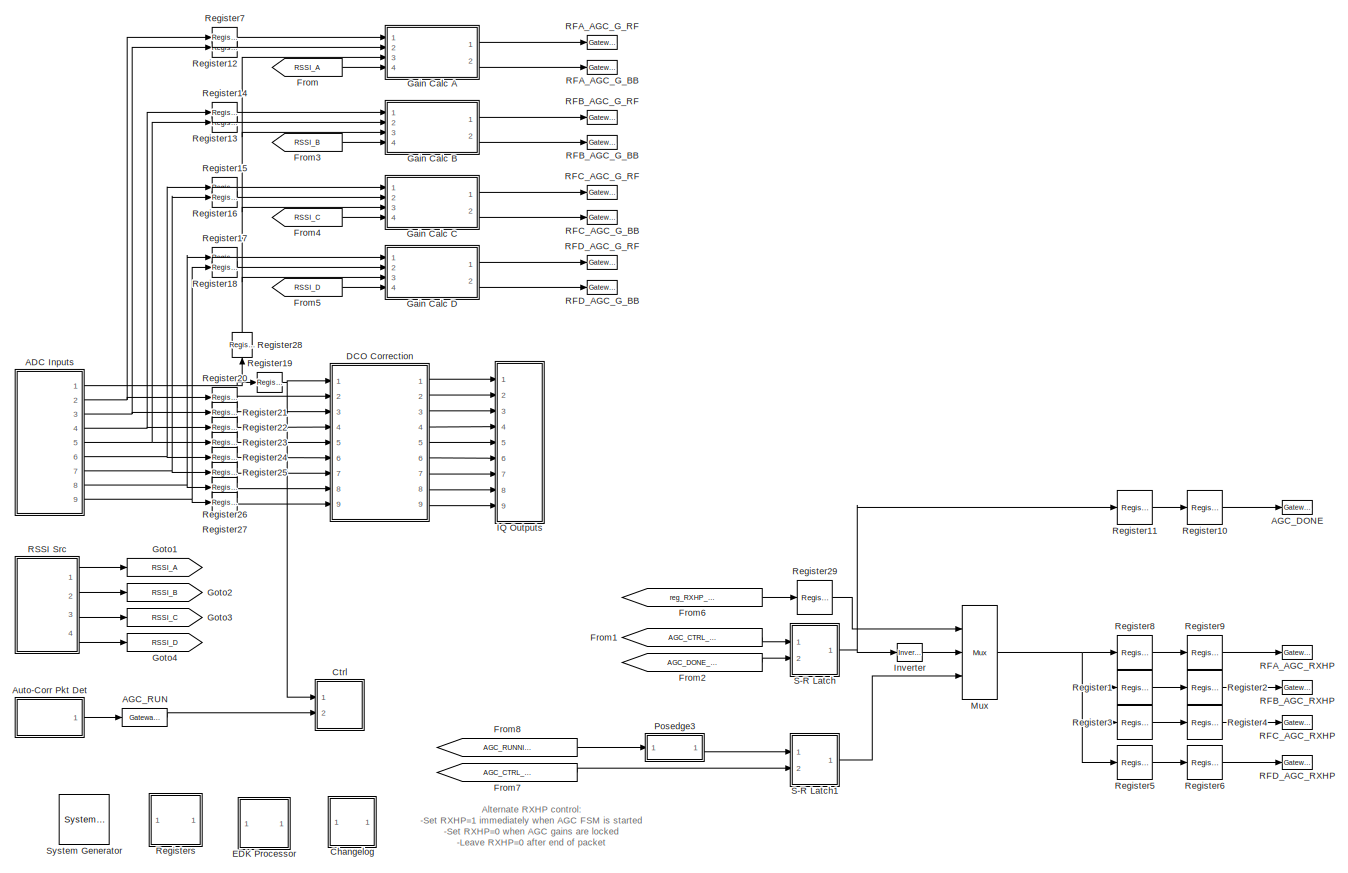
[diagram: root canvas - part 1/2, most of the canvas]
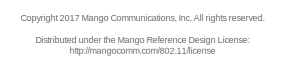
[diagram: root canvas - part 2/2, bottom left region]
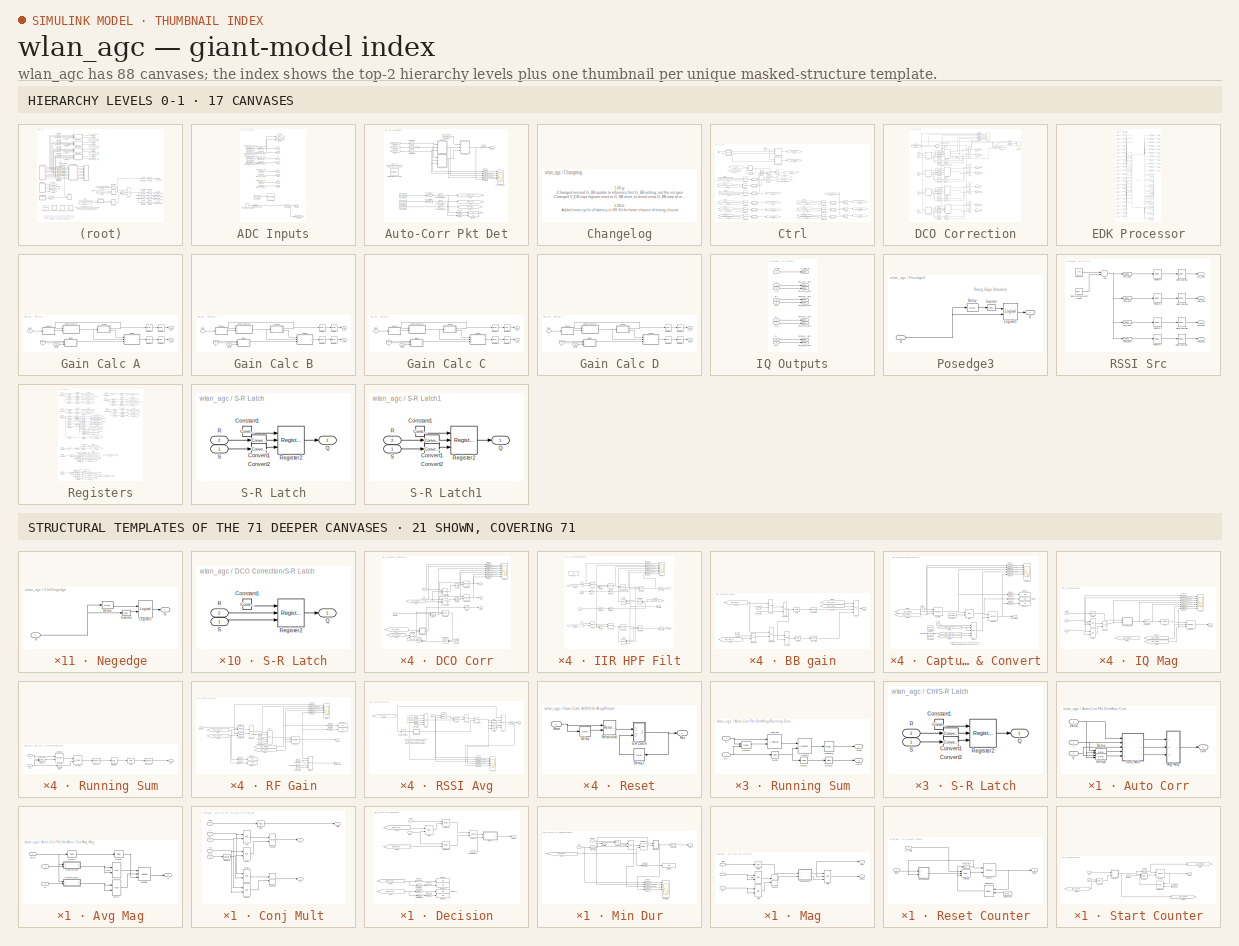
[diagram: thumbnail index - top-2 hierarchy levels (17 canvases) + 21 structural-template representatives of the remaining 71 canvases]
MODEL wlan_agc
KIND model
CONFIG InitFcn = wlan_agc_init
CONFIG PostLoadFcn = wlan_agc_init
CONFIG StartFcn = wlan_agc_init
BLOCK [Reference]  System Generator  REF=xbsIndex_r4/ System Generator
  AttributesFormatString = System\\nGenerator
  Impl_file = ISE Defaults
  Ports = []
  SID = 1
  SourceBlock = xbsIndex_r4/ System Generator
  SourceType = Xilinx System Generator Block
  Synth_file = XST Defaults
  Tag = genX
  UserData = DataTag0
  UserDataPersistent = on
  block_type = sysgen
  clock_wrapper = Clock Enables
  core_generation = According to Block Masks
  dbl_ovrd = According to Block Masks
  dcm_input_clock_period = 10
  deprecated_control = off
  directory = ./pcore_agc_v200c
  eval_field = 0
  has_advanced_control = 0
  incr_netlist = off
  infoedit = System Generator
  package = ff1156
  part = xc6vlx240t
  proj_type = Project Navigator
  run_coregen = off
  sg_icon_stat = 50,50,0,0,token,white,0,58c5b5770fe5f7c311f53dbc6e73f0f6,right,,[ ],[ ]
  sg_mask_display = fprintf('','COMMENT: begin icon graphics');\npatch([0 50 50 0 0 ],[0 0 50 50 0 ],[1 1 1 ]);\npatch([1.6375 16.81 27.31 37.81 48.31 27.31 12.1375 1.6375 ],[36.655 36.655 47.155 36.655 47.155 47.155 47.155 36.655 ],[0.933333 0.203922 0.141176 ]);\npatch([12.1375 27.31 16.81 1.6375 12.1375 ],[26.155 26.155 36.655 36.655 26.155 ],[0.698039 0.0313725 0.219608 ]);\npatch([1.6375 16.81 27.31 12.1375 1.63...<+335ch>
  sggui_pos = 326,241,464,470
  simulink_period = 1
  speed = -2
  synthesis_tool = XST
  sysclk_period = 10
  testbench = off
  trim_vbits = Everywhere in SubSystem
  xilinxfamily = virtex6
BLOCK [SubSystem] ADC Inputs
  FunctionWithSeparateData = off
  MaskHideContents = off
  MaskIconFrame = on
  MaskIconOpaque = on
  MaskIconRotate = none
  MaskIconUnits = autoscale
  MaskPortRotate = default
  MinAlgLoopOccurrences = off
  Opaque = off
  Ports = [0, 9]
  PropExecContextOutsideSubsystem = off
  RTWSystemCode = Auto
  RequestExecContextInheritance = off
  SID = 2
BLOCK [Outport] ADC Inputs/A I
  IconDisplay = Port number
  MaskIconFrame = on
  MaskIconOpaque = on
  MaskIconRotate = none
  MaskIconUnits = autoscale
  MaskPortRotate = default
  Port = 2
  SID = 24
BLOCK [Outport] ADC Inputs/A Q
  IconDisplay = Port number
  MaskIconFrame = on
  MaskIconOpaque = on
  MaskIconRotate = none
  MaskIconUnits = autoscale
  MaskPortRotate = default
  Port = 3
  SID = 25
BLOCK [Reference] ADC Inputs/ADC_IQ_VALID  REF=xbsIndex_r4/Gateway In
  ADCChannel = '1'
  LOCs = {}
  Ports = [1, 1]
  SID = 3
  SourceBlock = xbsIndex_r4/Gateway In
  SourceType = Xilinx Gateway In Block
  UseAsADC = off
  arith_type = Boolean
  bin_pt = 0
  block_type = gatewayin
  dbl_ovrd = off
  exp_width = 8
  frac_width = 24
  gui_display_data_type = Boolean
  has_advanced_control = 0
  hdl_port = on
  infoedit = Gateway in block.  Converts inputs of type Simulink integer, single, double and fixed-point to  Xilinx fixed-point or floating-point data type.<br><br>Hardware notes:  In hardware these blocks become top level input ports.  <repeated x39 — deduplicated; at blocks: ADC_IQ_VALID, RFA_RX_I_IN, RFA_RX_Q_IN, RFB_RX_I_IN, RFB_RX_Q_IN, RFC_RX_I_IN, RFC_RX_Q_IN, RFD_RX_I_IN, RFD_RX_Q_IN, AGC_RUN, AXI_ARESETN, S_AXI_ARADDR, S_AXI_ARBURST, S_AXI_ARCACHE, S_AXI_ARID, S_AXI_ARLEN, +23 more>
  inherit_from_input = off
  locs_specified = off
  n_bits = 1
  overflow = Saturate
  period = 1
  preci_type = Single
  quantization = Round  (unbiased: +/- Inf)
  sg_icon_stat = 40,14,1,1,white,yellow,1,00d3666e,right,,[ ],[ ]
  sg_mask_display = fprintf('','COMMENT: begin icon graphics');\npatch([0 40 40 0 0 ],[0 0 14 14 0 ],[0.95 0.93 0.65 ]);\nplot([0 40 40 0 0 ],[0 0 14 14 0 ]);\npatch([15.55 18.44 20.44 22.44 24.44 20.44 17.55 15.55 ],[9.22 9.22 11.22 9.22 11.22 11.22 11.22 9.22 ],[1 1 1 ]);\npatch([17.55 20.44 18.44 15.55 17.55 ],[7.22 7.22 9.22 9.22 7.22 ],[0.985 0.979 0.895 ]);\npatch([15.55 18.44 20.44 17.55 15.55 ],[5.22 5.22 7.2...<+385ch>  <repeated x13 — deduplicated; at blocks: ADC_IQ_VALID, RFA_RX_I_IN, RFA_RX_Q_IN, RFB_RX_I_IN, RFB_RX_Q_IN, RFC_RX_I_IN, RFC_RX_Q_IN, RFD_RX_I_IN, RFD_RX_Q_IN, RFA_RSSI, RFB_RSSI, RFC_RSSI, RFD_RSSI>
  sggui_pos = -1,-1,-1,-1
  timing_constraint = None
  xl_area = [0,0,0,0,0,0,0]
  xl_use_area = off
BLOCK [Outport] ADC Inputs/B I
  IconDisplay = Port number
  MaskIconFrame = on
  MaskIconOpaque = on
  MaskIconRotate = none
  MaskIconUnits = autoscale
  MaskPortRotate = default
  Port = 4
  SID = 26
BLOCK [Outport] ADC Inputs/B Q
  IconDisplay = Port number
  MaskIconFrame = on
  MaskIconOpaque = on
  MaskIconRotate = none
  MaskIconUnits = autoscale
  MaskPortRotate = default
  Port = 5
  SID = 27
BLOCK [Outport] ADC Inputs/C I
  IconDisplay = Port number
  MaskIconFrame = on
  MaskIconOpaque = on
  MaskIconRotate = none
  MaskIconUnits = autoscale
  MaskPortRotate = default
  Port = 6
  SID = 28
BLOCK [Outport] ADC Inputs/C Q
  IconDisplay = Port number
  MaskIconFrame = on
  MaskIconOpaque = on
  MaskIconRotate = none
  MaskIconUnits = autoscale
  MaskPortRotate = default
  Port = 7
  SID = 29
BLOCK [Reference] ADC Inputs/Constant  REF=xbsIndex_r4/Constant
  Ports = [0, 1]
  SID = 4
  SourceBlock = xbsIndex_r4/Constant
  SourceType = Xilinx Constant Block Block
  arith_type = Boolean
  bin_pt = 14
  block_type = constant
  carry = CIN
  const = 1
  dbl_ovrd = off
  dsp48_infoedit = The use of this block for DSP48 instructions is deprecated.  Please use the Opmode block.
  equ = P=C
  exp_width = 8
  explicit_period = on
  frac_width = 24
  gui_display_data_type = Boolean
  has_advanced_control = 0
  inp1 = P
  inp2 = PCIN>>17
  n_bits = 16
  opr = +
  opselect = C
  period = 4
  preci_type = Single
  sg_icon_stat = 55,26,0,1,white,blue,0,1c72b5be,right,,[ ],[ ]
  sg_mask_display = fprintf('','COMMENT: begin icon graphics');\npatch([0 55 55 0 0 ],[0 0 26 26 0 ],[0.77 0.82 0.91 ]);\nplot([0 55 55 0 0 ],[0 0 26 26 0 ]);\npatch([20.325 24.66 27.66 30.66 33.66 27.66 23.325 20.325 ],[16.33 16.33 19.33 16.33 19.33 19.33 19.33 16.33 ],[1 1 1 ]);\npatch([23.325 27.66 24.66 20.325 23.325 ],[13.33 13.33 16.33 16.33 13.33 ],[0.931 0.946 0.973 ]);\npatch([20.325 24.66 27.66 23.325 20.32...<+333ch>  <repeated x4 — deduplicated; at blocks: Constant, Constant2, Constant3>
  sggui_pos = -1,-1,-1,-1
BLOCK [Reference] ADC Inputs/Convert2  REF=xbsIndex_r4/Convert
  Ports = [1, 1]
  SID = 5
  SourceBlock = xbsIndex_r4/Convert
  SourceType = Xilinx Type Converter Block
  arith_type = Boolean
  bin_pt = 0
  block_type = convert
  dbl_ovrd = off
  en = off
  exp_bits = 8
  float_type = Single
  fraction_bits = 24
  gui_display_data_type = Boolean
  has_advanced_control = 0
  infoedit = Hardware notes: rounding and saturating require hardware resources; truncating and wrapping do not.
  latency = 0
  n_bits = 1
  overflow = Wrap
  pipeline = off
  quantization = Truncate
  sg_icon_stat = 25,18,1,1,white,blue,0,edca21da,right,,[ ],[ ]
  sg_mask_display = fprintf('','COMMENT: begin icon graphics');\npatch([0 25 25 0 0 ],[0 0 18 18 0 ],[0.77 0.82 0.91 ]);\nplot([0 25 25 0 0 ],[0 0 18 18 0 ]);\npatch([7.55 10.44 12.44 14.44 16.44 12.44 9.55 7.55 ],[11.22 11.22 13.22 11.22 13.22 13.22 13.22 11.22 ],[1 1 1 ]);\npatch([9.55 12.44 10.44 7.55 9.55 ],[9.22 9.22 11.22 11.22 9.22 ],[0.931 0.946 0.973 ]);\npatch([7.55 10.44 12.44 9.55 7.55 ],[7.22 7.22 9.22 9...<+303ch>  <repeated x11 — deduplicated; at blocks: Convert2, Convert1>
  sggui_pos = -1,-1,-1,-1
  xl_area = [0,0,0,0,0,0,0]
  xl_use_area = off
BLOCK [Outport] ADC Inputs/D I
  IconDisplay = Port number
  MaskIconFrame = on
  MaskIconOpaque = on
  MaskIconRotate = none
  MaskIconUnits = autoscale
  MaskPortRotate = default
  Port = 8
  SID = 30
BLOCK [Outport] ADC Inputs/D Q
  IconDisplay = Port number
  MaskIconFrame = on
  MaskIconOpaque = on
  MaskIconRotate = none
  MaskIconUnits = autoscale
  MaskPortRotate = default
  Port = 9
  SID = 31
BLOCK [FromWorkspace] ADC Inputs/From\nWorkspace
  Interpolate = off
  MaskIconFrame = on
  MaskIconOpaque = on
  MaskIconRotate = none
  MaskIconUnits = autoscale
  MaskPortRotate = default
  OutputAfterFinalValue = Setting to zero
  SID = 6
  SampleTime = 8
  VariableName = raw_rx_I
  ZeroCross = on
BLOCK [FromWorkspace] ADC Inputs/From\nWorkspace1
  Interpolate = off
  MaskIconFrame = on
  MaskIconOpaque = on
  MaskIconRotate = none
  MaskIconUnits = autoscale
  MaskPortRotate = default
  OutputAfterFinalValue = Setting to zero
  SID = 7
  SampleTime = 8
  VariableName = raw_rx_Q
  ZeroCross = on
BLOCK [FromWorkspace] ADC Inputs/From\nWorkspace2
  Interpolate = off
  MaskIconFrame = on
  MaskIconOpaque = on
  MaskIconRotate = none
  MaskIconUnits = autoscale
  MaskPortRotate = default
  OutputAfterFinalValue = Setting to zero
  SID = 8
  SampleTime = 8
  VariableName = raw_rx_I
  ZeroCross = on
BLOCK [FromWorkspace] ADC Inputs/From\nWorkspace3
  Interpolate = off
  MaskIconFrame = on
  MaskIconOpaque = on
  MaskIconRotate = none
  MaskIconUnits = autoscale
  MaskPortRotate = default
  OutputAfterFinalValue = Setting to zero
  SID = 9
  SampleTime = 8
  VariableName = raw_rx_Q
  ZeroCross = on
BLOCK [Goto] ADC Inputs/Goto1
  GotoTag = sim_A_I
  MaskIconFrame = on
  MaskIconOpaque = on
  MaskIconRotate = none
  MaskIconUnits = autoscale
  MaskPortRotate = default
  SID = 10
  TagVisibility = global
BLOCK [Goto] ADC Inputs/Goto2
  GotoTag = sim_A_Q
  MaskIconFrame = on
  MaskIconOpaque = on
  MaskIconRotate = none
  MaskIconUnits = autoscale
  MaskPortRotate = default
  SID = 11
  TagVisibility = global
BLOCK [Goto] ADC Inputs/Goto3
  GotoTag = sim_IQ_valid
  MaskIconFrame = on
  MaskIconOpaque = on
  MaskIconRotate = none
  MaskIconUnits = autoscale
  MaskPortRotate = default
  SID = 12
  TagVisibility = global
BLOCK [Outport] ADC Inputs/IQ Valid
  IconDisplay = Port number
  MaskIconFrame = on
  MaskIconOpaque = on
  MaskIconRotate = none
  MaskIconUnits = autoscale
  MaskPortRotate = default
  SID = 23
BLOCK [DiscretePulseGenerator] ADC Inputs/Pulse\nGenerator3
  MaskIconFrame = on
  MaskIconOpaque = on
  MaskIconRotate = none
  MaskIconUnits = autoscale
  MaskPortRotate = default
  Period = 8
  Ports = [0, 1]
  SID = 13
BLOCK [Reference] ADC Inputs/RFA_RX_I_IN  REF=xbsIndex_r4/Gateway In
  ADCChannel = '1'
  LOCs = {}
  Ports = [1, 1]
  SID = 14
  SourceBlock = xbsIndex_r4/Gateway In
  SourceType = Xilinx Gateway In Block
  UseAsADC = off
  arith_type = Signed  (2's comp)
  bin_pt = 11
  block_type = gatewayin
  dbl_ovrd = off
  exp_width = 8
  frac_width = 24
  gui_display_data_type = Fixed-point
  has_advanced_control = 0
  hdl_port = on
  inherit_from_input = off
  locs_specified = off
  n_bits = 12
  overflow = Saturate
  period = 1
  preci_type = Single
  quantization = Round  (unbiased: +/- Inf)
  sg_icon_stat = 40,14,1,1,white,yellow,1,00d3666e,right,,[ ],[ ]
  sggui_pos = -1,-1,-1,-1
  timing_constraint = None
  xl_area = [0,0,0,0,0,0,0]
  xl_use_area = off
BLOCK [Reference] ADC Inputs/RFA_RX_Q_IN  REF=xbsIndex_r4/Gateway In
  ADCChannel = '1'
  LOCs = {}
  Ports = [1, 1]
  SID = 15
  SourceBlock = xbsIndex_r4/Gateway In
  SourceType = Xilinx Gateway In Block
  UseAsADC = off
  arith_type = Signed  (2's comp)
  bin_pt = 11
  block_type = gatewayin
  dbl_ovrd = off
  exp_width = 8
  frac_width = 24
  gui_display_data_type = Fixed-point
  has_advanced_control = 0
  hdl_port = on
  inherit_from_input = off
  locs_specified = off
  n_bits = 12
  overflow = Saturate
  period = 1
  preci_type = Single
  quantization = Round  (unbiased: +/- Inf)
  sg_icon_stat = 40,14,1,1,white,yellow,1,00d3666e,right,,[ ],[ ]
  sggui_pos = -1,-1,-1,-1
  timing_constraint = None
  xl_area = [0,0,0,0,0,0,0]
  xl_use_area = off
BLOCK [Reference] ADC Inputs/RFB_RX_I_IN  REF=xbsIndex_r4/Gateway In
  ADCChannel = '1'
  LOCs = {}
  Ports = [1, 1]
  SID = 16
  SourceBlock = xbsIndex_r4/Gateway In
  SourceType = Xilinx Gateway In Block
  UseAsADC = off
  arith_type = Signed  (2's comp)
  bin_pt = 11
  block_type = gatewayin
  dbl_ovrd = off
  exp_width = 8
  frac_width = 24
  gui_display_data_type = Fixed-point
  has_advanced_control = 0
  hdl_port = on
  inherit_from_input = off
  locs_specified = off
  n_bits = 12
  overflow = Saturate
  period = 1
  preci_type = Single
  quantization = Round  (unbiased: +/- Inf)
  sg_icon_stat = 40,14,1,1,white,yellow,1,00d3666e,right,,[ ],[ ]
  sggui_pos = -1,-1,-1,-1
  timing_constraint = None
  xl_area = [0,0,0,0,0,0,0]
  xl_use_area = off
BLOCK [Reference] ADC Inputs/RFB_RX_Q_IN  REF=xbsIndex_r4/Gateway In
  ADCChannel = '1'
  LOCs = {}
  Ports = [1, 1]
  SID = 17
  SourceBlock = xbsIndex_r4/Gateway In
  SourceType = Xilinx Gateway In Block
  UseAsADC = off
  arith_type = Signed  (2's comp)
  bin_pt = 11
  block_type = gatewayin
  dbl_ovrd = off
  exp_width = 8
  frac_width = 24
  gui_display_data_type = Fixed-point
  has_advanced_control = 0
  hdl_port = on
  inherit_from_input = off
  locs_specified = off
  n_bits = 12
  overflow = Saturate
  period = 1
  preci_type = Single
  quantization = Round  (unbiased: +/- Inf)
  sg_icon_stat = 40,14,1,1,white,yellow,1,00d3666e,right,,[ ],[ ]
  sggui_pos = -1,-1,-1,-1
  timing_constraint = None
  xl_area = [0,0,0,0,0,0,0]
  xl_use_area = off
BLOCK [Reference] ADC Inputs/RFC_RX_I_IN  REF=xbsIndex_r4/Gateway In
  ADCChannel = '1'
  LOCs = {}
  Ports = [1, 1]
  SID = 18
  SourceBlock = xbsIndex_r4/Gateway In
  SourceType = Xilinx Gateway In Block
  UseAsADC = off
  arith_type = Signed  (2's comp)
  bin_pt = 11
  block_type = gatewayin
  dbl_ovrd = off
  exp_width = 8
  frac_width = 24
  gui_display_data_type = Fixed-point
  has_advanced_control = 0
  hdl_port = on
  inherit_from_input = off
  locs_specified = off
  n_bits = 12
  overflow = Saturate
  period = 1
  preci_type = Single
  quantization = Round  (unbiased: +/- Inf)
  sg_icon_stat = 40,14,1,1,white,yellow,1,00d3666e,right,,[ ],[ ]
  sggui_pos = -1,-1,-1,-1
  timing_constraint = None
  xl_area = [0,0,0,0,0,0,0]
  xl_use_area = off
BLOCK [Reference] ADC Inputs/RFC_RX_Q_IN  REF=xbsIndex_r4/Gateway In
  ADCChannel = '1'
  LOCs = {}
  Ports = [1, 1]
  SID = 19
  SourceBlock = xbsIndex_r4/Gateway In
  SourceType = Xilinx Gateway In Block
  UseAsADC = off
  arith_type = Signed  (2's comp)
  bin_pt = 11
  block_type = gatewayin
  dbl_ovrd = off
  exp_width = 8
  frac_width = 24
  gui_display_data_type = Fixed-point
  has_advanced_control = 0
  hdl_port = on
  inherit_from_input = off
  locs_specified = off
  n_bits = 12
  overflow = Saturate
  period = 1
  preci_type = Single
  quantization = Round  (unbiased: +/- Inf)
  sg_icon_stat = 40,14,1,1,white,yellow,1,00d3666e,right,,[ ],[ ]
  sggui_pos = -1,-1,-1,-1
  timing_constraint = None
  xl_area = [0,0,0,0,0,0,0]
  xl_use_area = off
BLOCK [Reference] ADC Inputs/RFD_RX_I_IN  REF=xbsIndex_r4/Gateway In
  ADCChannel = '1'
  LOCs = {}
  Ports = [1, 1]
  SID = 20
  SourceBlock = xbsIndex_r4/Gateway In
  SourceType = Xilinx Gateway In Block
  UseAsADC = off
  arith_type = Signed  (2's comp)
  bin_pt = 11
  block_type = gatewayin
  dbl_ovrd = off
  exp_width = 8
  frac_width = 24
  gui_display_data_type = Fixed-point
  has_advanced_control = 0
  hdl_port = on
  inherit_from_input = off
  locs_specified = off
  n_bits = 12
  overflow = Saturate
  period = 1
  preci_type = Single
  quantization = Round  (unbiased: +/- Inf)
  sg_icon_stat = 40,14,1,1,white,yellow,1,00d3666e,right,,[ ],[ ]
  sggui_pos = -1,-1,-1,-1
  timing_constraint = None
  xl_area = [0,0,0,0,0,0,0]
  xl_use_area = off
BLOCK [Reference] ADC Inputs/RFD_RX_Q_IN  REF=xbsIndex_r4/Gateway In
  ADCChannel = '1'
  LOCs = {}
  Ports = [1, 1]
  SID = 21
  SourceBlock = xbsIndex_r4/Gateway In
  SourceType = Xilinx Gateway In Block
  UseAsADC = off
  arith_type = Signed  (2's comp)
  bin_pt = 11
  block_type = gatewayin
  dbl_ovrd = off
  exp_width = 8
  frac_width = 24
  gui_display_data_type = Fixed-point
  has_advanced_control = 0
  hdl_port = on
  inherit_from_input = off
  locs_specified = off
  n_bits = 12
  overflow = Saturate
  period = 1
  preci_type = Single
  quantization = Round  (unbiased: +/- Inf)
  sg_icon_stat = 40,14,1,1,white,yellow,1,00d3666e,right,,[ ],[ ]
  sggui_pos = -1,-1,-1,-1
  timing_constraint = None
  xl_area = [0,0,0,0,0,0,0]
  xl_use_area = off
BLOCK [Reference] ADC Inputs/Up Sample  REF=xbsIndex_r4/Up Sample
  Ports = [1, 1]
  SID = 22
  SourceBlock = xbsIndex_r4/Up Sample
  SourceType = Xilinx Up Sampler Block
  block_type = usamp
  copy_samples = off
  dbl_ovrd = off
  en = off
  has_advanced_control = 0
  infoedit = Up samples input data.  Inserted values  can be zeros or copies of the most recent input sample.<br><br>Hardware notes: No hardware is needed if inserted values are copies of the input sample; otherwise, a mux and single bit flip-flop are used.
  latency = 0
  sample_ratio = 4
  sg_icon_stat = 60,54,1,1,white,blue,0,a300b05e,right,,[ ],[ ]
  sg_mask_display = fprintf('','COMMENT: begin icon graphics');\npatch([0 60 60 0 0 ],[0 0 54 54 0 ],[0.77 0.82 0.91 ]);\nplot([0 60 60 0 0 ],[0 0 54 54 0 ]);\npatch([14.425 24.54 31.54 38.54 45.54 31.54 21.425 14.425 ],[34.77 34.77 41.77 34.77 41.77 41.77 41.77 34.77 ],[1 1 1 ]);\npatch([21.425 31.54 24.54 14.425 21.425 ],[27.77 27.77 34.77 34.77 27.77 ],[0.931 0.946 0.973 ]);\npatch([14.425 24.54 31.54 21.425 14.42...<+370ch>
  sggui_pos = -1,-1,-1,-1
  xl_area = [0,0,0,0,0,0,0]
  xl_use_area = off
BLOCK [Reference] AGC_DONE  REF=xbsIndex_r4/Gateway Out
  DACChannel = '1'
  LOCs = {}
  Ports = [1, 1]
  SID = 32
  SourceBlock = xbsIndex_r4/Gateway Out
  SourceType = Xilinx Gateway Out Block
  UseAsDAC = off
  block_type = gatewayout
  has_advanced_control = 0
  hdl_port = on
  infoedit = Gateway out block.  Converts Xilinx fixed-point or floating-point type inputs into ouputs of type Simulink integer, single, double, or fixed-point.<br><br>Hardware notes:  In hardware these blocks become top level output ports or are discarded, depending on how they are configured.  <repeated x39 — deduplicated; at blocks: AGC_DONE, S_AXI_ARREADY, S_AXI_AWREADY, S_AXI_BID, S_AXI_BRESP, S_AXI_BVALID, S_AXI_RDATA, S_AXI_RID, S_AXI_RLAST, S_AXI_RRESP, S_AXI_RVALID, S_AXI_WREADY, IQ_Valid_Out, RFA_RX_I_OUT, RFA_RX_Q_OUT, RFB_RX_I_OUT, +23 more>
  inherit_from_input = off
  locs_specified = off
  sg_icon_stat = 30,14,1,1,white,yellow,1,cc31b7ac,right,,[ ],[ ]
  sg_mask_display = fprintf('','COMMENT: begin icon graphics');\npatch([0 30 30 0 0 ],[0 0 14 14 0 ],[0.95 0.93 0.65 ]);\nplot([0 30 30 0 0 ],[0 0 14 14 0 ]);\npatch([10.55 13.44 15.44 17.44 19.44 15.44 12.55 10.55 ],[9.22 9.22 11.22 9.22 11.22 11.22 11.22 9.22 ],[1 1 1 ]);\npatch([12.55 15.44 13.44 10.55 12.55 ],[7.22 7.22 9.22 9.22 7.22 ],[0.985 0.979 0.895 ]);\npatch([10.55 13.44 15.44 12.55 10.55 ],[5.22 5.22 7.2...<+386ch>  <repeated x22 — deduplicated; at blocks: AGC_DONE, IQ_Valid_Out, RFA_RX_I_OUT, RFA_RX_Q_OUT, RFB_RX_I_OUT, RFB_RX_Q_OUT, RFC_RX_I_OUT, RFC_RX_Q_OUT, RFD_RX_I_OUT, RFD_RX_Q_OUT, RFA_AGC_G_BB, RFA_AGC_G_RF, RFA_AGC_RXHP, RFB_AGC_G_BB, RFB_AGC_G_RF, RFB_AGC_RXHP, +6 more>
  sggui_pos = -1,-1,-1,-1
  timing_constraint = None
  xl_area = [0,0,0,0,0,0,0]
  xl_use_area = off
BLOCK [Reference] AGC_RUN  REF=xbsIndex_r4/Gateway In
  ADCChannel = '1'
  LOCs = {}
  Ports = [1, 1]
  SID = 33
  SourceBlock = xbsIndex_r4/Gateway In
  SourceType = Xilinx Gateway In Block
  UseAsADC = off
  arith_type = Boolean
  bin_pt = 14
  block_type = gatewayin
  dbl_ovrd = off
  exp_width = 8
  frac_width = 24
  gui_display_data_type = Boolean
  has_advanced_control = 0
  hdl_port = on
  inherit_from_input = off
  locs_specified = off
  n_bits = 16
  overflow = Saturate
  period = 1
  preci_type = Single
  quantization = Round  (unbiased: +/- Inf)
  sg_icon_stat = 45,18,1,1,white,yellow,1,00d3666e,right,,[ ],[ ]
  sg_mask_display = fprintf('','COMMENT: begin icon graphics');\npatch([0 45 45 0 0 ],[0 0 18 18 0 ],[0.95 0.93 0.65 ]);\nplot([0 45 45 0 0 ],[0 0 18 18 0 ]);\npatch([17.55 20.44 22.44 24.44 26.44 22.44 19.55 17.55 ],[11.22 11.22 13.22 11.22 13.22 13.22 13.22 11.22 ],[1 1 1 ]);\npatch([19.55 22.44 20.44 17.55 19.55 ],[9.22 9.22 11.22 11.22 9.22 ],[0.985 0.979 0.895 ]);\npatch([17.55 20.44 22.44 19.55 17.55 ],[7.22 7....<+391ch>
  sggui_pos = -1,-1,-1,-1
  timing_constraint = None
  xl_area = [0,0,0,0,0,0,0]
  xl_use_area = off
BLOCK [SubSystem] Auto-Corr Pkt Det
  FunctionWithSeparateData = off
  MaskHideContents = off
  MaskIconFrame = on
  MaskIconOpaque = on
  MaskIconRotate = none
  MaskIconUnits = autoscale
  MaskPortRotate = default
  MinAlgLoopOccurrences = off
  Opaque = off
  Ports = [0, 1]
  PropExecContextOutsideSubsystem = off
  RTWSystemCode = Auto
  RequestExecContextInheritance = off
  SID = 34
BLOCK [SubSystem] Auto-Corr Pkt Det/Auto Corr
  FunctionWithSeparateData = off
  MaskHideContents = off
  MaskIconFrame = on
  MaskIconOpaque = on
  MaskIconRotate = none
  MaskIconUnits = autoscale
  MaskPortRotate = default
  MinAlgLoopOccurrences = off
  Opaque = off
  Ports = [3, 1]
  PropExecContextOutsideSubsystem = off
  RTWSystemCode = Auto
  RequestExecContextInheritance = off
  SID = 35
BLOCK [Scope] Auto-Corr Pkt Det/Auto Corr Pkt Det
  DataFormat = StructureWithTime
  Floating = off
  LimitDataPoints = off
  MaskIconFrame = on
  MaskIconOpaque = on
  MaskIconRotate = none
  MaskIconUnits = autoscale
  MaskPortRotate = default
  NumInputPorts = 7
  Ports = [7]
  SID = 93
  SampleTime = 0
  SaveName = ScopeData28
  TimeRange = 10000
  YMax = 0.4~0.4~0.2~0.2~0.02~1~0.8
  YMin = -0.4~-0.4~-0.2~-0.2~-0.01~-1~0
  ZoomMode = yonly
BLOCK [SubSystem] Auto-Corr Pkt Det/Auto Corr/Avg Mag
  FunctionWithSeparateData = off
  MaskHideContents = off
  MaskIconFrame = on
  MaskIconOpaque = on
  MaskIconRotate = none
  MaskIconUnits = autoscale
  MaskPortRotate = default
  MinAlgLoopOccurrences = off
  Opaque = off
  Ports = [3, 1]
  PropExecContextOutsideSubsystem = off
  RTWSystemCode = Auto
  RequestExecContextInheritance = off
  SID = 39
BLOCK [Reference] Auto-Corr Pkt Det/Auto Corr/Avg Mag/AddSub1  REF=xbsIndex_r4/AddSub
  Ports = [3, 1]
  SID = 43
  SourceBlock = xbsIndex_r4/AddSub
  SourceType = Xilinx Adder/Subtracter Block
  arith_type = Signed  (2's comp)
  bin_pt = 18
  block_type = addsub
  block_version = VER_STRING_GOES_HERE
  dbl_ovrd = off
  en = on
  has_advanced_control = 0
  hw_selection = Fabric
  latency = 1
  mode = Addition
  n_bits = 25
  overflow = Saturate
  pipelined = off
  precision = User Defined
  quantization = Truncate
  sg_icon_stat = 50,52,3,1,white,blue,0,96ed0f94,right,,[ ],[ ]
  sg_mask_display = fprintf('','COMMENT: begin icon graphics');\npatch([0 50 50 0 0 ],[0 0 52 52 0 ],[0.77 0.82 0.91 ]);\nplot([0 50 50 0 0 ],[0 0 52 52 0 ]);\npatch([9.425 19.54 26.54 33.54 40.54 26.54 16.425 9.425 ],[33.77 33.77 40.77 33.77 40.77 40.77 40.77 33.77 ],[1 1 1 ]);\npatch([16.425 26.54 19.54 9.425 16.425 ],[26.77 26.77 33.77 33.77 26.77 ],[0.931 0.946 0.973 ]);\npatch([9.425 19.54 26.54 16.425 9.425 ],[...<+600ch>
  sggui_pos = 20,20,348,344
  use_behavioral_HDL = on
  use_carryin = off
  use_carryout = off
  use_rpm = off
  xl_area = [9 18 0 17 0 0 0]
  xl_use_area = off
BLOCK [Reference] Auto-Corr Pkt Det/Auto Corr/Avg Mag/Delay  REF=xbsIndex_r4/Delay
  Ports = [1, 1]
  SID = 44
  SourceBlock = xbsIndex_r4/Delay
  SourceType = Xilinx Delay Block
  block_type = delay
  dbl_ovrd = off
  en = off
  has_advanced_control = 0
  infoedit = Hardware notes: A delay line is a chain, each link of which is an SRL16 followed by a flip-flop.
  infoeditControl = Selection of Reset will increase slice count due to use of real FFs and instead of SRLs
  latency = 1
  reg_retiming = off
  rst = off
  sg_icon_stat = 35,28,1,1,white,blue,0,07b98262,right,,[ ],[ ]
  sg_mask_display = fprintf('','COMMENT: begin icon graphics');\npatch([0 35 35 0 0 ],[0 0 28 28 0 ],[0.77 0.82 0.91 ]);\nplot([0 35 35 0 0 ],[0 0 28 28 0 ]);\npatch([8.1 13.88 17.88 21.88 25.88 17.88 12.1 8.1 ],[18.44 18.44 22.44 18.44 22.44 22.44 22.44 18.44 ],[1 1 1 ]);\npatch([12.1 17.88 13.88 8.1 12.1 ],[14.44 14.44 18.44 18.44 14.44 ],[0.931 0.946 0.973 ]);\npatch([8.1 13.88 17.88 12.1 8.1 ],[10.44 10.44 14.44 ...<+310ch>  <repeated x8 — deduplicated; at blocks: Delay, Delay1>
  sggui_pos = -1,-1,-1,-1
  xl_area = [0,0,0,0,0,0,0]
  xl_use_area = off
BLOCK [Reference] Auto-Corr Pkt Det/Auto Corr/Avg Mag/Delay1  REF=xbsIndex_r4/Delay
  Ports = [1, 1]
  SID = 45
  SourceBlock = xbsIndex_r4/Delay
  SourceType = Xilinx Delay Block
  block_type = delay
  dbl_ovrd = off
  en = off
  has_advanced_control = 0
  infoedit = Hardware notes: A delay line is a chain, each link of which is an SRL16 followed by a flip-flop.
  infoeditControl = Selection of Reset will increase slice count due to use of real FFs and instead of SRLs
  latency = 2
  reg_retiming = off
  rst = off
  sg_icon_stat = 35,28,1,1,white,blue,0,85ce9542,right,,[ ],[ ]
  sggui_pos = -1,-1,-1,-1
  xl_area = [0,0,0,0,0,0,0]
  xl_use_area = off
BLOCK [Inport] Auto-Corr Pkt Det/Auto Corr/Avg Mag/I
  IconDisplay = Port number
  MaskIconFrame = on
  MaskIconOpaque = on
  MaskIconRotate = none
  MaskIconUnits = autoscale
  MaskPortRotate = default
  Port = 2
  SID = 41
BLOCK [Outport] Auto-Corr Pkt Det/Auto Corr/Avg Mag/M
  IconDisplay = Port number
  MaskIconFrame = on
  MaskIconOpaque = on
  MaskIconRotate = none
  MaskIconUnits = autoscale
  MaskPortRotate = default
  SID = 72
BLOCK [Reference] Auto-Corr Pkt Det/Auto Corr/Avg Mag/Mult  REF=xbsIndex_r4/Mult
  Ports = [2, 1]
  SID = 46
  SourceBlock = xbsIndex_r4/Mult
  SourceType = Xilinx Multiplier Block
  arith_type = Signed  (2's comp)
  bin_pt = 18
  block_type = mult
  dbl_ovrd = off
  en = off
  has_advanced_control = 0
  infoedit = Hardware notes: To check for the optimum internal pipeline stages of the dedicated multiplier you must select 'Test for optimum pipelining'.<br><br>Optimization Goal: For implementation into device fabric (LUTs), the Speed or Area optimization will take effect only if it's supported by IP for the particular device family. Otherwise, the results will be identical regardless of the selection.  <repeated x38 — deduplicated; at blocks: Mult, Mult1, Mult2, Mult3>
  latency = 1
  n_bits = 25
  opt = Speed
  optimum_pipeline = off
  overflow = Saturate
  pipeline = on
  placement_style = Triangular
  precision = User Defined
  quantization = Truncate
  sg_icon_stat = 35,62,2,1,white,blue,0,82c891c1,right,,[ ],[ ]
  sg_mask_display = fprintf('','COMMENT: begin icon graphics');\npatch([0 35 35 0 0 ],[0 0 62 62 0 ],[0.77 0.82 0.91 ]);\nplot([0 35 35 0 0 ],[0 0 62 62 0 ]);\npatch([5.875 13.1 18.1 23.1 28.1 18.1 10.875 5.875 ],[36.55 36.55 41.55 36.55 41.55 41.55 41.55 36.55 ],[1 1 1 ]);\npatch([10.875 18.1 13.1 5.875 10.875 ],[31.55 31.55 36.55 36.55 31.55 ],[0.931 0.946 0.973 ]);\npatch([5.875 13.1 18.1 10.875 5.875 ],[26.55 26....<+521ch>  <repeated x16 — deduplicated; at blocks: Mult, Mult1, Mult2, Mult3>
  sggui_pos = -1,-1,-1,-1
  use_behavioral_HDL = off
  use_embedded = on
  use_rpm = on
  xl_area = [0,0,0,0,0,0,0]
  xl_use_area = off
BLOCK [Reference] Auto-Corr Pkt Det/Auto Corr/Avg Mag/Mult1  REF=xbsIndex_r4/Mult
  Ports = [2, 1]
  SID = 47
  SourceBlock = xbsIndex_r4/Mult
  SourceType = Xilinx Multiplier Block
  arith_type = Signed  (2's comp)
  bin_pt = 18
  block_type = mult
  dbl_ovrd = off
  en = off
  has_advanced_control = 0
  latency = 1
  n_bits = 25
  opt = Speed
  optimum_pipeline = off
  overflow = Saturate
  pipeline = on
  placement_style = Triangular
  precision = User Defined
  quantization = Truncate
  sg_icon_stat = 35,62,2,1,white,blue,0,82c891c1,right,,[ ],[ ]
  sggui_pos = -1,-1,-1,-1
  use_behavioral_HDL = off
  use_embedded = on
  use_rpm = on
  xl_area = [0,0,0,0,0,0,0]
  xl_use_area = off
BLOCK [Inport] Auto-Corr Pkt Det/Auto Corr/Avg Mag/Q
  IconDisplay = Port number
  MaskIconFrame = on
  MaskIconOpaque = on
  MaskIconRotate = none
  MaskIconUnits = autoscale
  MaskPortRotate = default
  Port = 3
  SID = 42
BLOCK [SubSystem] Auto-Corr Pkt Det/Auto Corr/Avg Mag/Running Sum
  FunctionWithSeparateData = off
  MaskHideContents = off
  MaskIconFrame = on
  MaskIconOpaque = on
  MaskIconRotate = none
  MaskIconUnits = autoscale
  MaskPortRotate = default
  MinAlgLoopOccurrences = off
  Opaque = off
  Ports = [2, 2]
  PropExecContextOutsideSubsystem = off
  RTWSystemCode = Auto
  RequestExecContextInheritance = off
  SID = 48
BLOCK [Reference] Auto-Corr Pkt Det/Auto Corr/Avg Mag/Running Sum/Accum1  REF=xbsIndex_r4/Accumulator
  Ports = [2, 1]
  SID = 51
  SourceBlock = xbsIndex_r4/Accumulator
  SourceType = Xilinx Accumulator Block
  block_type = accum
  block_version = VER_STRING_GOES_HERE
  dbl_ovrd = off
  en = on
  has_advanced_control = 0
  hasbypass = off
  implementation = Fabric
  infoedit = Adder or subtracter-based accumulator.   Output type and binary point position match the input.<br><br>Hardware notes: When \"Reinitialize with input 'b' on reset\" is selected, the accumulator is forced to run at the system rate even if the input 'b' is running at a slower rate.  <repeated x19 — deduplicated; at blocks: Accum1, Accumulator, Accumulator1>
  infoeditControl = reset for floating point data type must be asserted for a minimum of 2 cycles
  latency = 0
  lsb = -100
  msb = 100
  msb_inp = 100
  n_bits = 25
  operation = Add
  overflow = Flag as error
  rst = off
  scale = 1
  sg_icon_stat = 50,53,2,1,white,blue,0,debef366,right,,[ ],[ ]
  sg_mask_display = fprintf('','COMMENT: begin icon graphics');\npatch([0 50 50 0 0 ],[0 0 53 53 0 ],[0.77 0.82 0.91 ]);\nplot([0 50 50 0 0 ],[0 0 53 53 0 ]);\npatch([9.425 19.54 26.54 33.54 40.54 26.54 16.425 9.425 ],[33.77 33.77 40.77 33.77 40.77 40.77 40.77 33.77 ],[1 1 1 ]);\npatch([16.425 26.54 19.54 9.425 16.425 ],[26.77 26.77 33.77 33.77 26.77 ],[0.931 0.946 0.973 ]);\npatch([9.425 19.54 26.54 16.425 9.425 ],[...<+441ch>  <repeated x7 — deduplicated; at blocks: Accum1>
  sggui_pos = 20,20,367,457
  use_behavioral_HDL = on
  xl_area = [12 23 0 22 0 0 0]
  xl_use_area = off
BLOCK [Reference] Auto-Corr Pkt Det/Auto Corr/Avg Mag/Running Sum/AddSub1  REF=xbsIndex_r4/AddSub
  Ports = [2, 1]
  SID = 52
  SourceBlock = xbsIndex_r4/AddSub
  SourceType = Xilinx Adder/Subtracter Block
  arith_type = Signed  (2's comp)
  bin_pt = 28
  block_type = addsub
  block_version = VER_STRING_GOES_HERE
  dbl_ovrd = off
  en = off
  has_advanced_control = 0
  hw_selection = Fabric
  latency = 1
  mode = Subtraction
  n_bits = 36
  overflow = Saturate
  pipelined = off
  precision = Full
  quantization = Truncate
  sg_icon_stat = 50,51,2,1,white,blue,0,8a00a986,right,,[ ],[ ]
  sg_mask_display = fprintf('','COMMENT: begin icon graphics');\npatch([0 50 50 0 0 ],[0 0 51 51 0 ],[0.77 0.82 0.91 ]);\nplot([0 50 50 0 0 ],[0 0 51 51 0 ]);\npatch([9.425 19.54 26.54 33.54 40.54 26.54 16.425 9.425 ],[32.77 32.77 39.77 32.77 39.77 39.77 39.77 32.77 ],[1 1 1 ]);\npatch([16.425 26.54 19.54 9.425 16.425 ],[25.77 25.77 32.77 32.77 25.77 ],[0.931 0.946 0.973 ]);\npatch([9.425 19.54 26.54 16.425 9.425 ],[...<+556ch>  <repeated x7 — deduplicated; at blocks: AddSub1>
  sggui_pos = 20,20,348,344
  use_behavioral_HDL = on
  use_carryin = off
  use_carryout = off
  use_rpm = off
  xl_area = [9 18 0 17 0 0 0]
  xl_use_area = off
BLOCK [Inport] Auto-Corr Pkt Det/Auto Corr/Avg Mag/Running Sum/D
  IconDisplay = Port number
  MaskIconFrame = on
  MaskIconOpaque = on
  MaskIconRotate = none
  MaskIconUnits = autoscale
  MaskPortRotate = default
  Port = 2
  SID = 50
BLOCK [Reference] Auto-Corr Pkt Det/Auto Corr/Avg Mag/Running Sum/Delay  REF=xbsIndex_r4/Delay
  Ports = [1, 1]
  SID = 53
  SourceBlock = xbsIndex_r4/Delay
  SourceType = Xilinx Delay Block
  block_type = delay
  block_version = VER_STRING_GOES_HERE
  dbl_ovrd = off
  en = off
  has_advanced_control = 0
  infoedit = Hardware notes: A delay line is a chain, each link of which is an SRL16 followed by a flip-flop.
  infoeditControl = Selection of Reset will increase slice count due to use of real FFs and instead of SRLs
  latency = 1
  reg_retiming = off
  rst = off
  sg_icon_stat = 25,24,1,1,white,blue,0,07b98262,right,,[ ],[ ]
  sg_mask_display = fprintf('','COMMENT: begin icon graphics');\npatch([0 25 25 0 0 ],[0 0 24 24 0 ],[0.77 0.82 0.91 ]);\nplot([0 25 25 0 0 ],[0 0 24 24 0 ]);\npatch([5.325 9.66 12.66 15.66 18.66 12.66 8.325 5.325 ],[15.33 15.33 18.33 15.33 18.33 18.33 18.33 15.33 ],[1 1 1 ]);\npatch([8.325 12.66 9.66 5.325 8.325 ],[12.33 12.33 15.33 15.33 12.33 ],[0.931 0.946 0.973 ]);\npatch([5.325 9.66 12.66 8.325 5.325 ],[9.33 9....<+318ch>  <repeated x33 — deduplicated; at blocks: Delay, Delay1, Delay2, Delay3, Delay5, Delay6>
  sggui_pos = -1,-1,-1,-1
  xl_area = [7 14 0 14 0 0 0]
  xl_use_area = off
BLOCK [Reference] Auto-Corr Pkt Det/Auto Corr/Avg Mag/Running Sum/Delay1  REF=xbsIndex_r4/Delay
  Ports = [1, 1]
  SID = 54
  SourceBlock = xbsIndex_r4/Delay
  SourceType = Xilinx Delay Block
  block_type = delay
  block_version = VER_STRING_GOES_HERE
  dbl_ovrd = off
  en = off
  has_advanced_control = 0
  infoedit = Hardware notes: A delay line is a chain, each link of which is an SRL16 followed by a flip-flop.
  infoeditControl = Selection of Reset will increase slice count due to use of real FFs and instead of SRLs
  latency = 1
  reg_retiming = off
  rst = off
  sg_icon_stat = 25,24,1,1,white,blue,0,07b98262,right,,[ ],[ ]
  sggui_pos = -1,-1,-1,-1
  xl_area = [7 14 0 14 0 0 0]
  xl_use_area = off
BLOCK [Reference] Auto-Corr Pkt Det/Auto Corr/Avg Mag/Running Sum/Delay2  REF=xbsIndex_r4/Delay
  Ports = [1, 1]
  SID = 55
  SourceBlock = xbsIndex_r4/Delay
  SourceType = Xilinx Delay Block
  block_type = delay
  block_version = VER_STRING_GOES_HERE
  dbl_ovrd = off
  en = off
  has_advanced_control = 0
  infoedit = Hardware notes: A delay line is a chain, each link of which is an SRL16 followed by a flip-flop.
  infoeditControl = Selection of Reset will increase slice count due to use of real FFs and instead of SRLs
  latency = 1
  reg_retiming = off
  rst = off
  sg_icon_stat = 25,24,1,1,white,blue,0,07b98262,right,,[ ],[ ]
  sggui_pos = -1,-1,-1,-1
  xl_area = [7 14 0 14 0 0 0]
  xl_use_area = off
BLOCK [Reference] Auto-Corr Pkt Det/Auto Corr/Avg Mag/Running Sum/Delay6  REF=xbsIndex_r4/Delay
  Ports = [2, 1]
  SID = 56
  SourceBlock = xbsIndex_r4/Delay
  SourceType = Xilinx Delay Block
  block_type = delay
  block_version = VER_STRING_GOES_HERE
  dbl_ovrd = off
  en = on
  has_advanced_control = 0
  infoedit = Hardware notes: A delay line is a chain, each link of which is an SRL16 followed by a flip-flop.
  infoeditControl = Selection of Reset will increase slice count due to use of real FFs and instead of SRLs
  latency = 16
  reg_retiming = off
  rst = off
  sg_icon_stat = 35,24,2,1,white,blue,0,68dbc054,right,,[ ],[ ]
  sg_mask_display = fprintf('','COMMENT: begin icon graphics');\npatch([0 35 35 0 0 ],[0 0 24 24 0 ],[0.77 0.82 0.91 ]);\nplot([0 35 35 0 0 ],[0 0 24 24 0 ]);\npatch([10.325 14.66 17.66 20.66 23.66 17.66 13.325 10.325 ],[15.33 15.33 18.33 15.33 18.33 18.33 18.33 15.33 ],[1 1 1 ]);\npatch([13.325 17.66 14.66 10.325 13.325 ],[12.33 12.33 15.33 15.33 12.33 ],[0.931 0.946 0.973 ]);\npatch([10.325 14.66 17.66 13.325 10.32...<+379ch>  <repeated x7 — deduplicated; at blocks: Delay6>
  sggui_pos = -1,-1,-1,-1
  xl_area = [9 17 0 17 0 0 0]
  xl_use_area = off
BLOCK [Inport] Auto-Corr Pkt Det/Auto Corr/Avg Mag/Running Sum/En
  IconDisplay = Port number
  MaskIconFrame = on
  MaskIconOpaque = on
  MaskIconRotate = none
  MaskIconUnits = autoscale
  MaskPortRotate = default
  SID = 49
BLOCK [Reference] Auto-Corr Pkt Det/Auto Corr/Avg Mag/Running Sum/Register  REF=xbsIndex_r4/Register
  Ports = [1, 1]
  SID = 57
  SourceBlock = xbsIndex_r4/Register
  SourceType = Xilinx Register Block
  block_type = register
  dbl_ovrd = off
  en = off
  has_advanced_control = 0
  init = 0
  rst = off
  sg_icon_stat = 35,36,1,1,white,blue,0,c80657c5,right,,[ ],[ ]
  sg_mask_display = fprintf('','COMMENT: begin icon graphics');\npatch([0 35 35 0 0 ],[0 0 36 36 0 ],[0.77 0.82 0.91 ]);\nplot([0 35 35 0 0 ],[0 0 36 36 0 ]);\npatch([5.875 13.1 18.1 23.1 28.1 18.1 10.875 5.875 ],[23.55 23.55 28.55 23.55 28.55 28.55 28.55 23.55 ],[1 1 1 ]);\npatch([10.875 18.1 13.1 5.875 10.875 ],[18.55 18.55 23.55 23.55 18.55 ],[0.931 0.946 0.973 ]);\npatch([5.875 13.1 18.1 10.875 5.875 ],[13.55 13....<+404ch>  <repeated x7 — deduplicated; at blocks: Register>
  sggui_pos = -1,-1,-1,-1
  xl_area = [0,0,0,0,0,0,0]
  xl_use_area = off
BLOCK [Outport] Auto-Corr Pkt Det/Auto Corr/Avg Mag/Running Sum/Sum
  IconDisplay = Port number
  MaskIconFrame = on
  MaskIconOpaque = on
  MaskIconRotate = none
  MaskIconUnits = autoscale
  MaskPortRotate = default
  Port = 2
  SID = 59
BLOCK [Outport] Auto-Corr Pkt Det/Auto Corr/Avg Mag/Running Sum/Valid
  IconDisplay = Port number
  MaskIconFrame = on
  MaskIconOpaque = on
  MaskIconRotate = none
  MaskIconUnits = autoscale
  MaskPortRotate = default
  SID = 58
BLOCK [SubSystem] Auto-Corr Pkt Det/Auto Corr/Avg Mag/Running Sum1
  FunctionWithSeparateData = off
  MaskHideContents = off
  MaskIconFrame = on
  MaskIconOpaque = on
  MaskIconRotate = none
  MaskIconUnits = autoscale
  MaskPortRotate = default
  MinAlgLoopOccurrences = off
  Opaque = off
  Ports = [2, 2]
  PropExecContextOutsideSubsystem = off
  RTWSystemCode = Auto
  RequestExecContextInheritance = off
  SID = 60
BLOCK [Reference] Auto-Corr Pkt Det/Auto Corr/Avg Mag/Running Sum1/Accum1  REF=xbsIndex_r4/Accumulator
  Ports = [2, 1]
  SID = 63
  SourceBlock = xbsIndex_r4/Accumulator
  SourceType = Xilinx Accumulator Block
  block_type = accum
  block_version = VER_STRING_GOES_HERE
  dbl_ovrd = off
  en = on
  has_advanced_control = 0
  hasbypass = off
  implementation = Fabric
  infoeditControl = reset for floating point data type must be asserted for a minimum of 2 cycles
  latency = 0
  lsb = -100
  msb = 100
  msb_inp = 100
  n_bits = 25
  operation = Add
  overflow = Flag as error
  rst = off
  scale = 1
  sg_icon_stat = 50,53,2,1,white,blue,0,debef366,right,,[ ],[ ]
  sggui_pos = 20,20,367,457
  use_behavioral_HDL = on
  xl_area = [12 23 0 22 0 0 0]
  xl_use_area = off
BLOCK [Reference] Auto-Corr Pkt Det/Auto Corr/Avg Mag/Running Sum1/AddSub1  REF=xbsIndex_r4/AddSub
  Ports = [2, 1]
  SID = 64
  SourceBlock = xbsIndex_r4/AddSub
  SourceType = Xilinx Adder/Subtracter Block
  arith_type = Signed  (2's comp)
  bin_pt = 28
  block_type = addsub
  block_version = VER_STRING_GOES_HERE
  dbl_ovrd = off
  en = off
  has_advanced_control = 0
  hw_selection = Fabric
  latency = 1
  mode = Subtraction
  n_bits = 36
  overflow = Saturate
  pipelined = off
  precision = Full
  quantization = Truncate
  sg_icon_stat = 50,51,2,1,white,blue,0,8a00a986,right,,[ ],[ ]
  sggui_pos = 20,20,348,344
  use_behavioral_HDL = on
  use_carryin = off
  use_carryout = off
  use_rpm = off
  xl_area = [9 18 0 17 0 0 0]
  xl_use_area = off
BLOCK [Inport] Auto-Corr Pkt Det/Auto Corr/Avg Mag/Running Sum1/D
  IconDisplay = Port number
  MaskIconFrame = on
  MaskIconOpaque = on
  MaskIconRotate = none
  MaskIconUnits = autoscale
  MaskPortRotate = default
  Port = 2
  SID = 62
BLOCK [Reference] Auto-Corr Pkt Det/Auto Corr/Avg Mag/Running Sum1/Delay  REF=xbsIndex_r4/Delay
  Ports = [1, 1]
  SID = 65
  SourceBlock = xbsIndex_r4/Delay
  SourceType = Xilinx Delay Block
  block_type = delay
  block_version = VER_STRING_GOES_HERE
  dbl_ovrd = off
  en = off
  has_advanced_control = 0
  infoedit = Hardware notes: A delay line is a chain, each link of which is an SRL16 followed by a flip-flop.
  infoeditControl = Selection of Reset will increase slice count due to use of real FFs and instead of SRLs
  latency = 1
  reg_retiming = off
  rst = off
  sg_icon_stat = 25,24,1,1,white,blue,0,07b98262,right,,[ ],[ ]
  sggui_pos = -1,-1,-1,-1
  xl_area = [7 14 0 14 0 0 0]
  xl_use_area = off
BLOCK [Reference] Auto-Corr Pkt Det/Auto Corr/Avg Mag/Running Sum1/Delay1  REF=xbsIndex_r4/Delay
  Ports = [1, 1]
  SID = 66
  SourceBlock = xbsIndex_r4/Delay
  SourceType = Xilinx Delay Block
  block_type = delay
  block_version = VER_STRING_GOES_HERE
  dbl_ovrd = off
  en = off
  has_advanced_control = 0
  infoedit = Hardware notes: A delay line is a chain, each link of which is an SRL16 followed by a flip-flop.
  infoeditControl = Selection of Reset will increase slice count due to use of real FFs and instead of SRLs
  latency = 1
  reg_retiming = off
  rst = off
  sg_icon_stat = 25,24,1,1,white,blue,0,07b98262,right,,[ ],[ ]
  sggui_pos = -1,-1,-1,-1
  xl_area = [7 14 0 14 0 0 0]
  xl_use_area = off
BLOCK [Reference] Auto-Corr Pkt Det/Auto Corr/Avg Mag/Running Sum1/Delay2  REF=xbsIndex_r4/Delay
  Ports = [1, 1]
  SID = 67
  SourceBlock = xbsIndex_r4/Delay
  SourceType = Xilinx Delay Block
  block_type = delay
  block_version = VER_STRING_GOES_HERE
  dbl_ovrd = off
  en = off
  has_advanced_control = 0
  infoedit = Hardware notes: A delay line is a chain, each link of which is an SRL16 followed by a flip-flop.
  infoeditControl = Selection of Reset will increase slice count due to use of real FFs and instead of SRLs
  latency = 1
  reg_retiming = off
  rst = off
  sg_icon_stat = 25,24,1,1,white,blue,0,07b98262,right,,[ ],[ ]
  sggui_pos = -1,-1,-1,-1
  xl_area = [7 14 0 14 0 0 0]
  xl_use_area = off
BLOCK [Reference] Auto-Corr Pkt Det/Auto Corr/Avg Mag/Running Sum1/Delay6  REF=xbsIndex_r4/Delay
  Ports = [2, 1]
  SID = 68
  SourceBlock = xbsIndex_r4/Delay
  SourceType = Xilinx Delay Block
  block_type = delay
  block_version = VER_STRING_GOES_HERE
  dbl_ovrd = off
  en = on
  has_advanced_control = 0
  infoedit = Hardware notes: A delay line is a chain, each link of which is an SRL16 followed by a flip-flop.
  infoeditControl = Selection of Reset will increase slice count due to use of real FFs and instead of SRLs
  latency = 16
  reg_retiming = off
  rst = off
  sg_icon_stat = 35,24,2,1,white,blue,0,68dbc054,right,,[ ],[ ]
  sggui_pos = -1,-1,-1,-1
  xl_area = [9 17 0 17 0 0 0]
  xl_use_area = off
BLOCK [Inport] Auto-Corr Pkt Det/Auto Corr/Avg Mag/Running Sum1/En
  IconDisplay = Port number
  MaskIconFrame = on
  MaskIconOpaque = on
  MaskIconRotate = none
  MaskIconUnits = autoscale
  MaskPortRotate = default
  SID = 61
BLOCK [Reference] Auto-Corr Pkt Det/Auto Corr/Avg Mag/Running Sum1/Register  REF=xbsIndex_r4/Register
  Ports = [1, 1]
  SID = 69
  SourceBlock = xbsIndex_r4/Register
  SourceType = Xilinx Register Block
  block_type = register
  dbl_ovrd = off
  en = off
  has_advanced_control = 0
  init = 0
  rst = off
  sg_icon_stat = 35,36,1,1,white,blue,0,c80657c5,right,,[ ],[ ]
  sggui_pos = -1,-1,-1,-1
  xl_area = [0,0,0,0,0,0,0]
  xl_use_area = off
BLOCK [Outport] Auto-Corr Pkt Det/Auto Corr/Avg Mag/Running Sum1/Sum
  IconDisplay = Port number
  MaskIconFrame = on
  MaskIconOpaque = on
  MaskIconRotate = none
  MaskIconUnits = autoscale
  MaskPortRotate = default
  Port = 2
  SID = 71
BLOCK [Outport] Auto-Corr Pkt Det/Auto Corr/Avg Mag/Running Sum1/Valid
  IconDisplay = Port number
  MaskIconFrame = on
  MaskIconOpaque = on
  MaskIconRotate = none
  MaskIconUnits = autoscale
  MaskPortRotate = default
  SID = 70
BLOCK [Inport] Auto-Corr Pkt Det/Auto Corr/Avg Mag/Valid
  IconDisplay = Port number
  MaskIconFrame = on
  MaskIconOpaque = on
  MaskIconRotate = none
  MaskIconUnits = autoscale
  MaskPortRotate = default
  SID = 40
BLOCK [SubSystem] Auto-Corr Pkt Det/Auto Corr/Conj Mult
  FunctionWithSeparateData = off
  MaskHideContents = off
  MaskIconFrame = on
  MaskIconOpaque = on
  MaskIconRotate = none
  MaskIconUnits = autoscale
  MaskPortRotate = default
  MinAlgLoopOccurrences = off
  Opaque = off
  Ports = [5, 3]
  PropExecContextOutsideSubsystem = off
  RTWSystemCode = Auto
  RequestExecContextInheritance = off
  SID = 73
BLOCK [Outport] Auto-Corr Pkt Det/Auto Corr/Conj Mult/ I
  IconDisplay = Port number
  MaskIconFrame = on
  MaskIconOpaque = on
  MaskIconRotate = none
  MaskIconUnits = autoscale
  MaskPortRotate = default
  Port = 2
  SID = 88
BLOCK [Outport] Auto-Corr Pkt Det/Auto Corr/Conj Mult/ Q
  IconDisplay = Port number
  MaskIconFrame = on
  MaskIconOpaque = on
  MaskIconRotate = none
  MaskIconUnits = autoscale
  MaskPortRotate = default
  Port = 3
  SID = 89
BLOCK [Outport] Auto-Corr Pkt Det/Auto Corr/Conj Mult/ Valid
  IconDisplay = Port number
  MaskIconFrame = on
  MaskIconOpaque = on
  MaskIconRotate = none
  MaskIconUnits = autoscale
  MaskPortRotate = default
  SID = 87
BLOCK [Inport] Auto-Corr Pkt Det/Auto Corr/Conj Mult/A I
  IconDisplay = Port number
  MaskIconFrame = on
  MaskIconOpaque = on
  MaskIconRotate = none
  MaskIconUnits = autoscale
  MaskPortRotate = default
  Port = 2
  SID = 75
BLOCK [Inport] Auto-Corr Pkt Det/Auto Corr/Conj Mult/A Q
  IconDisplay = Port number
  MaskIconFrame = on
  MaskIconOpaque = on
  MaskIconRotate = none
  MaskIconUnits = autoscale
  MaskPortRotate = default
  Port = 3
  SID = 76
BLOCK [Reference] Auto-Corr Pkt Det/Auto Corr/Conj Mult/AddSub  REF=xbsIndex_r4/AddSub
  Ports = [2, 1]
  SID = 79
  SourceBlock = xbsIndex_r4/AddSub
  SourceType = Xilinx Adder/Subtracter Block
  arith_type = Signed  (2's comp)
  bin_pt = 18
  block_type = addsub
  dbl_ovrd = off
  en = off
  has_advanced_control = 0
  hw_selection = Fabric
  latency = 1
  mode = Subtraction
  n_bits = 20
  overflow = Flag as error
  pipelined = off
  precision = User Defined
  quantization = Truncate
  sg_icon_stat = 30,58,2,1,white,blue,0,8a00a986,right,,[ ],[ ]
  sg_mask_display = fprintf('','COMMENT: begin icon graphics');\npatch([0 30 30 0 0 ],[0 0 58 58 0 ],[0.77 0.82 0.91 ]);\nplot([0 30 30 0 0 ],[0 0 58 58 0 ]);\npatch([6.1 11.88 15.88 19.88 23.88 15.88 10.1 6.1 ],[33.44 33.44 37.44 33.44 37.44 37.44 37.44 33.44 ],[1 1 1 ]);\npatch([10.1 15.88 11.88 6.1 10.1 ],[29.44 29.44 33.44 33.44 29.44 ],[0.931 0.946 0.973 ]);\npatch([6.1 11.88 15.88 10.1 6.1 ],[25.44 25.44 29.44 ...<+532ch>
  sggui_pos = -1,-1,-1,-1
  use_behavioral_HDL = off
  use_carryin = off
  use_carryout = off
  xl_area = [0,0,0,0,0,0,0]
  xl_use_area = off
BLOCK [Reference] Auto-Corr Pkt Det/Auto Corr/Conj Mult/AddSub1  REF=xbsIndex_r4/AddSub
  Ports = [2, 1]
  SID = 80
  SourceBlock = xbsIndex_r4/AddSub
  SourceType = Xilinx Adder/Subtracter Block
  arith_type = Signed  (2's comp)
  bin_pt = 18
  block_type = addsub
  dbl_ovrd = off
  en = off
  has_advanced_control = 0
  hw_selection = Fabric
  latency = 1
  mode = Addition
  n_bits = 20
  overflow = Flag as error
  pipelined = off
  precision = User Defined
  quantization = Truncate
  sg_icon_stat = 30,58,2,1,white,blue,0,e85d8a90,right,,[ ],[ ]
  sg_mask_display = fprintf('','COMMENT: begin icon graphics');\npatch([0 30 30 0 0 ],[0 0 58 58 0 ],[0.77 0.82 0.91 ]);\nplot([0 30 30 0 0 ],[0 0 58 58 0 ]);\npatch([6.1 11.88 15.88 19.88 23.88 15.88 10.1 6.1 ],[33.44 33.44 37.44 33.44 37.44 37.44 37.44 33.44 ],[1 1 1 ]);\npatch([10.1 15.88 11.88 6.1 10.1 ],[29.44 29.44 33.44 33.44 29.44 ],[0.931 0.946 0.973 ]);\npatch([6.1 11.88 15.88 10.1 6.1 ],[25.44 25.44 29.44 ...<+532ch>
  sggui_pos = -1,-1,-1,-1
  use_behavioral_HDL = off
  use_carryin = off
  use_carryout = off
  xl_area = [0,0,0,0,0,0,0]
  xl_use_area = off
BLOCK [Inport] Auto-Corr Pkt Det/Auto Corr/Conj Mult/B I
  IconDisplay = Port number
  MaskIconFrame = on
  MaskIconOpaque = on
  MaskIconRotate = none
  MaskIconUnits = autoscale
  MaskPortRotate = default
  Port = 4
  SID = 77
BLOCK [Inport] Auto-Corr Pkt Det/Auto Corr/Conj Mult/B Q
  IconDisplay = Port number
  MaskIconFrame = on
  MaskIconOpaque = on
  MaskIconRotate = none
  MaskIconUnits = autoscale
  MaskPortRotate = default
  Port = 5
  SID = 78
BLOCK [Reference] Auto-Corr Pkt Det/Auto Corr/Conj Mult/Delay  REF=xbsIndex_r4/Delay
  Ports = [1, 1]
  SID = 81
  SourceBlock = xbsIndex_r4/Delay
  SourceType = Xilinx Delay Block
  block_type = delay
  dbl_ovrd = off
  en = off
  has_advanced_control = 0
  infoedit = Hardware notes: A delay line is a chain, each link of which is an SRL16 followed by a flip-flop.
  infoeditControl = Selection of Reset will increase slice count due to use of real FFs and instead of SRLs
  latency = 2
  reg_retiming = off
  rst = off
  sg_icon_stat = 35,28,1,1,white,blue,0,85ce9542,right,,[ ],[ ]
  sggui_pos = -1,-1,-1,-1
  xl_area = [0,0,0,0,0,0,0]
  xl_use_area = off
BLOCK [Reference] Auto-Corr Pkt Det/Auto Corr/Conj Mult/Mult  REF=xbsIndex_r4/Mult
  Ports = [2, 1]
  SID = 82
  SourceBlock = xbsIndex_r4/Mult
  SourceType = Xilinx Multiplier Block
  arith_type = Signed  (2's comp)
  bin_pt = 19
  block_type = mult
  dbl_ovrd = off
  en = off
  has_advanced_control = 0
  latency = 1
  n_bits = 20
  opt = Speed
  optimum_pipeline = off
  overflow = Saturate
  pipeline = on
  placement_style = Triangular
  precision = User Defined
  quantization = Truncate
  sg_icon_stat = 35,62,2,1,white,blue,0,82c891c1,right,,[ ],[ ]
  sggui_pos = -1,-1,-1,-1
  use_behavioral_HDL = off
  use_embedded = on
  use_rpm = on
  xl_area = [0,0,0,0,0,0,0]
  xl_use_area = off
BLOCK [Reference] Auto-Corr Pkt Det/Auto Corr/Conj Mult/Mult1  REF=xbsIndex_r4/Mult
  Ports = [2, 1]
  SID = 83
  SourceBlock = xbsIndex_r4/Mult
  SourceType = Xilinx Multiplier Block
  arith_type = Signed  (2's comp)
  bin_pt = 19
  block_type = mult
  dbl_ovrd = off
  en = off
  has_advanced_control = 0
  latency = 1
  n_bits = 20
  opt = Speed
  optimum_pipeline = off
  overflow = Saturate
  pipeline = on
  placement_style = Triangular
  precision = User Defined
  quantization = Truncate
  sg_icon_stat = 35,62,2,1,white,blue,0,82c891c1,right,,[ ],[ ]
  sggui_pos = -1,-1,-1,-1
  use_behavioral_HDL = off
  use_embedded = on
  use_rpm = on
  xl_area = [0,0,0,0,0,0,0]
  xl_use_area = off
BLOCK [Reference] Auto-Corr Pkt Det/Auto Corr/Conj Mult/Mult2  REF=xbsIndex_r4/Mult
  Ports = [2, 1]
  SID = 84
  SourceBlock = xbsIndex_r4/Mult
  SourceType = Xilinx Multiplier Block
  arith_type = Signed  (2's comp)
  bin_pt = 19
  block_type = mult
  dbl_ovrd = off
  en = off
  has_advanced_control = 0
  latency = 1
  n_bits = 20
  opt = Speed
  optimum_pipeline = off
  overflow = Saturate
  pipeline = on
  placement_style = Triangular
  precision = User Defined
  quantization = Truncate
  sg_icon_stat = 35,62,2,1,white,blue,0,82c891c1,right,,[ ],[ ]
  sggui_pos = -1,-1,-1,-1
  use_behavioral_HDL = off
  use_embedded = on
  use_rpm = on
  xl_area = [0,0,0,0,0,0,0]
  xl_use_area = off
BLOCK [Reference] Auto-Corr Pkt Det/Auto Corr/Conj Mult/Mult3  REF=xbsIndex_r4/Mult
  Ports = [2, 1]
  SID = 85
  SourceBlock = xbsIndex_r4/Mult
  SourceType = Xilinx Multiplier Block
  arith_type = Signed  (2's comp)
  bin_pt = 19
  block_type = mult
  dbl_ovrd = off
  en = off
  has_advanced_control = 0
  latency = 1
  n_bits = 20
  opt = Speed
  optimum_pipeline = off
  overflow = Saturate
  pipeline = on
  placement_style = Triangular
  precision = User Defined
  quantization = Truncate
  sg_icon_stat = 35,62,2,1,white,blue,0,82c891c1,right,,[ ],[ ]
  sggui_pos = -1,-1,-1,-1
  use_behavioral_HDL = off
  use_embedded = on
  use_rpm = on
  xl_area = [0,0,0,0,0,0,0]
  xl_use_area = off
BLOCK [Reference] Auto-Corr Pkt Det/Auto Corr/Conj Mult/Negate  REF=xbsIndex_r4/Negate
  Ports = [1, 1]
  SID = 86
  SourceBlock = xbsIndex_r4/Negate
  SourceType = Xilinx Negate Block Block
  arith_type = Signed  (2's comp)
  bin_pt = 15
  block_type = negate
  dbl_ovrd = off
  en = off
  has_advanced_control = 0
  latency = 0
  n_bits = 16
  overflow = Saturate
  precision = User Defined
  quantization = Truncate
  sg_icon_stat = 35,24,1,1,white,blue,0,36bd7045,right,,[ ],[ ]
  sg_mask_display = fprintf('','COMMENT: begin icon graphics');\npatch([0 35 35 0 0 ],[0 0 24 24 0 ],[0.77 0.82 0.91 ]);\nplot([0 35 35 0 0 ],[0 0 24 24 0 ]);\npatch([10.325 14.66 17.66 20.66 23.66 17.66 13.325 10.325 ],[15.33 15.33 18.33 15.33 18.33 18.33 18.33 15.33 ],[1 1 1 ]);\npatch([13.325 17.66 14.66 10.325 13.325 ],[12.33 12.33 15.33 15.33 12.33 ],[0.931 0.946 0.973 ]);\npatch([10.325 14.66 17.66 13.325 10.32...<+339ch>
  sggui_pos = -1,-1,-1,-1
  xl_area = [0,0,0,0,0,0,0]
  xl_use_area = off
BLOCK [Inport] Auto-Corr Pkt Det/Auto Corr/Conj Mult/Valid
  IconDisplay = Port number
  MaskIconFrame = on
  MaskIconOpaque = on
  MaskIconRotate = none
  MaskIconUnits = autoscale
  MaskPortRotate = default
  SID = 74
BLOCK [Outport] Auto-Corr Pkt Det/Auto Corr/Corr
  IconDisplay = Port number
  MaskIconFrame = on
  MaskIconOpaque = on
  MaskIconRotate = none
  MaskIconUnits = autoscale
  MaskPortRotate = default
  SID = 92
BLOCK [Reference] Auto-Corr Pkt Det/Auto Corr/Delay  REF=xbsIndex_r4/Delay
  Ports = [2, 1]
  SID = 90
  SourceBlock = xbsIndex_r4/Delay
  SourceType = Xilinx Delay Block
  block_type = delay
  block_version = VER_STRING_GOES_HERE
  dbl_ovrd = off
  en = on
  has_advanced_control = 0
  infoedit = Hardware notes: A delay line is a chain, each link of which is an SRL16 followed by a flip-flop.
  infoeditControl = Selection of Reset will increase slice count due to use of real FFs and instead of SRLs
  latency = 16
  reg_retiming = off
  rst = off
  sg_icon_stat = 35,20,2,1,white,blue,0,68dbc054,right,,[ ],[ ]
  sg_mask_display = fprintf('','COMMENT: begin icon graphics');\npatch([0 35 35 0 0 ],[0 0 20 20 0 ],[0.77 0.82 0.91 ]);\nplot([0 35 35 0 0 ],[0 0 20 20 0 ]);\npatch([12.55 15.44 17.44 19.44 21.44 17.44 14.55 12.55 ],[12.22 12.22 14.22 12.22 14.22 14.22 14.22 12.22 ],[1 1 1 ]);\npatch([14.55 17.44 15.44 12.55 14.55 ],[10.22 10.22 12.22 12.22 10.22 ],[0.931 0.946 0.973 ]);\npatch([12.55 15.44 17.44 14.55 12.55 ],[8.22...<+367ch>
  sggui_pos = -1,-1,-1,-1
  xl_area = [7 14 0 14 0 0 0]
  xl_use_area = off
BLOCK [Reference] Auto-Corr Pkt Det/Auto Corr/Delay1  REF=xbsIndex_r4/Delay
  Ports = [2, 1]
  SID = 91
  SourceBlock = xbsIndex_r4/Delay
  SourceType = Xilinx Delay Block
  block_type = delay
  block_version = VER_STRING_GOES_HERE
  dbl_ovrd = off
  en = on
  has_advanced_control = 0
  infoedit = Hardware notes: A delay line is a chain, each link of which is an SRL16 followed by a flip-flop.
  infoeditControl = Selection of Reset will increase slice count due to use of real FFs and instead of SRLs
  latency = 16
  reg_retiming = off
  rst = off
  sg_icon_stat = 35,20,2,1,white,blue,0,68dbc054,right,,[ ],[ ]
  sg_mask_display = fprintf('','COMMENT: begin icon graphics');\npatch([0 35 35 0 0 ],[0 0 20 20 0 ],[0.77 0.82 0.91 ]);\nplot([0 35 35 0 0 ],[0 0 20 20 0 ]);\npatch([12.55 15.44 17.44 19.44 21.44 17.44 14.55 12.55 ],[12.22 12.22 14.22 12.22 14.22 14.22 14.22 12.22 ],[1 1 1 ]);\npatch([14.55 17.44 15.44 12.55 14.55 ],[10.22 10.22 12.22 12.22 10.22 ],[0.931 0.946 0.973 ]);\npatch([12.55 15.44 17.44 14.55 12.55 ],[8.22...<+367ch>
  sggui_pos = -1,-1,-1,-1
  xl_area = [7 14 0 14 0 0 0]
  xl_use_area = off
BLOCK [Inport] Auto-Corr Pkt Det/Auto Corr/I
  IconDisplay = Port number
  MaskIconFrame = on
  MaskIconOpaque = on
  MaskIconRotate = none
  MaskIconUnits = autoscale
  MaskPortRotate = default
  Port = 2
  SID = 37
BLOCK [Inport] Auto-Corr Pkt Det/Auto Corr/Q
  IconDisplay = Port number
  MaskIconFrame = on
  MaskIconOpaque = on
  MaskIconRotate = none
  MaskIconUnits = autoscale
  MaskPortRotate = default
  Port = 3
  SID = 38
BLOCK [Inport] Auto-Corr Pkt Det/Auto Corr/Valid
  IconDisplay = Port number
  MaskIconFrame = on
  MaskIconOpaque = on
  MaskIconRotate = none
  MaskIconUnits = autoscale
  MaskPortRotate = default
  SID = 36
BLOCK [Reference] Auto-Corr Pkt Det/Constant  REF=xbsIndex_r4/Constant
  Ports = [0, 1]
  SID = 94
  SourceBlock = xbsIndex_r4/Constant
  SourceType = Xilinx Constant Block Block
  arith_type = Boolean
  bin_pt = 14
  block_type = constant
  carry = CIN
  const = 0
  dbl_ovrd = off
  dsp48_infoedit = The use of this block for DSP48 instructions is deprecated.  Please use the Opmode block.
  equ = P=C
  exp_width = 8
  explicit_period = off
  frac_width = 24
  gui_display_data_type = Boolean
  has_advanced_control = 0
  inp1 = P
  inp2 = PCIN>>17
  n_bits = 16
  opr = +
  opselect = C
  period = 1
  preci_type = Single
  sg_icon_stat = 55,26,0,1,white,blue,0,bf4ddd8b,right,,[ ],[ ]
  sggui_pos = -1,-1,-1,-1
BLOCK [Reference] Auto-Corr Pkt Det/Constant1  REF=xbsIndex_r4/Constant
  Ports = [0, 1]
  SID = 95
  SourceBlock = xbsIndex_r4/Constant
  SourceType = Xilinx Constant Block Block
  arith_type = Unsigned
  bin_pt = 0
  block_type = constant
  carry = CIN
  const = PHY_CONFIG_PKT_DET_CORR_THRESH
  dbl_ovrd = off
  dsp48_infoedit = The use of this block for DSP48 instructions is deprecated.  Please use the Opmode block.
  equ = P=C
  exp_width = 8
  explicit_period = on
  frac_width = 24
  gui_display_data_type = Fixed-point
  has_advanced_control = 0
  inp1 = P
  inp2 = PCIN>>17
  n_bits = 8
  opr = +
  opselect = C
  period = 1
  preci_type = Single
  sg_icon_stat = 55,26,0,1,white,blue,0,a05f99df,right,,[ ],[ ]
  sg_mask_display = fprintf('','COMMENT: begin icon graphics');\npatch([0 55 55 0 0 ],[0 0 26 26 0 ],[0.77 0.82 0.91 ]);\nplot([0 55 55 0 0 ],[0 0 26 26 0 ]);\npatch([20.325 24.66 27.66 30.66 33.66 27.66 23.325 20.325 ],[16.33 16.33 19.33 16.33 19.33 19.33 19.33 16.33 ],[1 1 1 ]);\npatch([23.325 27.66 24.66 20.325 23.325 ],[13.33 13.33 16.33 16.33 13.33 ],[0.931 0.946 0.973 ]);\npatch([20.325 24.66 27.66 23.325 20.32...<+334ch>
  sggui_pos = -1,-1,-1,-1
BLOCK [Reference] Auto-Corr Pkt Det/Constant2  REF=xbsIndex_r4/Constant
  Ports = [0, 1]
  SID = 96
  SourceBlock = xbsIndex_r4/Constant
  SourceType = Xilinx Constant Block Block
  arith_type = Unsigned
  bin_pt = 0
  block_type = constant
  carry = CIN
  const = PHY_CONFIG_PKT_DET_ENERGY_THRESH
  dbl_ovrd = off
  dsp48_infoedit = The use of this block for DSP48 instructions is deprecated.  Please use the Opmode block.
  equ = P=C
  exp_width = 8
  explicit_period = on
  frac_width = 24
  gui_display_data_type = Fixed-point
  has_advanced_control = 0
  inp1 = P
  inp2 = PCIN>>17
  n_bits = 16
  opr = +
  opselect = C
  period = 1
  preci_type = Single
  sg_icon_stat = 55,26,0,1,white,blue,0,1c72b5be,right,,[ ],[ ]
  sggui_pos = -1,-1,-1,-1
BLOCK [Reference] Auto-Corr Pkt Det/Constant3  REF=xbsIndex_r4/Constant
  Ports = [0, 1]
  SID = 97
  SourceBlock = xbsIndex_r4/Constant
  SourceType = Xilinx Constant Block Block
  arith_type = Unsigned
  bin_pt = 0
  block_type = constant
  carry = CIN
  const = PHY_CONFIG_PKT_DET_MIN_DURR
  dbl_ovrd = off
  dsp48_infoedit = The use of this block for DSP48 instructions is deprecated.  Please use the Opmode block.
  equ = P=C
  exp_width = 8
  explicit_period = on
  frac_width = 24
  gui_display_data_type = Fixed-point
  has_advanced_control = 0
  inp1 = P
  inp2 = PCIN>>17
  n_bits = 6
  opr = +
  opselect = C
  period = 1
  preci_type = Single
  sg_icon_stat = 55,26,0,1,white,blue,0,85f36853,right,,[ ],[ ]
  sggui_pos = -1,-1,-1,-1
BLOCK [SubSystem] Auto-Corr Pkt Det/Decision
  FunctionWithSeparateData = off
  MaskHideContents = off
  MaskIconFrame = on
  MaskIconOpaque = on
  MaskIconRotate = none
  MaskIconUnits = autoscale
  MaskPortRotate = default
  MinAlgLoopOccurrences = off
  Opaque = off
  Ports = [3, 1]
  PropExecContextOutsideSubsystem = off
  RTWSystemCode = Auto
  RequestExecContextInheritance = off
  SID = 98
BLOCK [Inport] Auto-Corr Pkt Det/Decision/Corr
  IconDisplay = Port number
  MaskIconFrame = on
  MaskIconOpaque = on
  MaskIconRotate = none
  MaskIconUnits = autoscale
  MaskPortRotate = default
  Port = 2
  SID = 100
BLOCK [Display] Auto-Corr Pkt Det/Decision/Display
  Decimation = 1
  Lockdown = off
  MaskIconFrame = on
  MaskIconOpaque = on
  MaskIconRotate = none
  MaskIconUnits = autoscale
  MaskPortRotate = default
  Ports = [1]
  SID = 102
BLOCK [Display] Auto-Corr Pkt Det/Decision/Display1
  Decimation = 1
  Lockdown = off
  MaskIconFrame = on
  MaskIconOpaque = on
  MaskIconRotate = none
  MaskIconUnits = autoscale
  MaskPortRotate = default
  Ports = [1]
  SID = 103
BLOCK [Display] Auto-Corr Pkt Det/Decision/Display2
  Decimation = 1
  Lockdown = off
  MaskIconFrame = on
  MaskIconOpaque = on
  MaskIconRotate = none
  MaskIconUnits = autoscale
  MaskPortRotate = default
  Ports = [1]
  SID = 104
BLOCK [Display] Auto-Corr Pkt Det/Decision/Display3
  Decimation = 1
  Lockdown = off
  MaskIconFrame = on
  MaskIconOpaque = on
  MaskIconRotate = none
  MaskIconUnits = autoscale
  MaskPortRotate = default
  Ports = [1]
  SID = 105
BLOCK [From] Auto-Corr Pkt Det/Decision/From1
  CloseFcn = tagdialog Close
  GotoTag = regRx_PktDet_CorrThresh
  MaskIconFrame = on
  MaskIconOpaque = on
  MaskIconRotate = none
  MaskIconUnits = autoscale
  MaskPortRotate = default
  SID = 106
  TagVisibility = global
BLOCK [From] Auto-Corr Pkt Det/Decision/From2
  CloseFcn = tagdialog Close
  GotoTag = regRx_PktDet_CorrThresh
  MaskIconFrame = on
  MaskIconOpaque = on
  MaskIconRotate = none
  MaskIconUnits = autoscale
  MaskPortRotate = default
  SID = 107
  TagVisibility = global
BLOCK [From] Auto-Corr Pkt Det/Decision/From3
  CloseFcn = tagdialog Close
  GotoTag = regRx_PktDet_EnergyThresh
  MaskIconFrame = on
  MaskIconOpaque = on
  MaskIconRotate = none
  MaskIconUnits = autoscale
  MaskPortRotate = default
  SID = 108
  TagVisibility = global
BLOCK [From] Auto-Corr Pkt Det/Decision/From4
  CloseFcn = tagdialog Close
  GotoTag = regRx_PktDet_EnergyThresh
  MaskIconFrame = on
  MaskIconOpaque = on
  MaskIconRotate = none
  MaskIconUnits = autoscale
  MaskPortRotate = default
  SID = 109
  TagVisibility = global
BLOCK [Reference] Auto-Corr Pkt Det/Decision/Logical  REF=xbsIndex_r4/Logical
  Ports = [2, 1]
  SID = 110
  SourceBlock = xbsIndex_r4/Logical
  SourceType = Xilinx Logical Block Block
  align_bp = on
  arith_type = Unsigned
  bin_pt = 2
  block_type = logical
  block_version = VER_STRING_GOES_HERE
  dbl_ovrd = off
  en = off
  has_advanced_control = 0
  inputs = 2
  latency = 0
  logical_function = AND
  n_bits = 8
  precision = Full
  sg_icon_stat = 45,44,2,1,white,blue,0,83a4b621,right,,[ ],[ ]
  sg_mask_display = fprintf('','COMMENT: begin icon graphics');\npatch([0 45 45 0 0 ],[0 0 44 44 0 ],[0.77 0.82 0.91 ]);\nplot([0 45 45 0 0 ],[0 0 44 44 0 ]);\npatch([8.65 17.32 23.32 29.32 35.32 23.32 14.65 8.65 ],[28.66 28.66 34.66 28.66 34.66 34.66 34.66 28.66 ],[1 1 1 ]);\npatch([14.65 23.32 17.32 8.65 14.65 ],[22.66 22.66 28.66 28.66 22.66 ],[0.931 0.946 0.973 ]);\npatch([8.65 17.32 23.32 14.65 8.65 ],[16.66 16....<+310ch>
  sggui_pos = -1,-1,-1,-1
  xl_area = [1 0 0 1 0 0 0]
  xl_use_area = off
BLOCK [Inport] Auto-Corr Pkt Det/Decision/Mag
  IconDisplay = Port number
  MaskIconFrame = on
  MaskIconOpaque = on
  MaskIconRotate = none
  MaskIconUnits = autoscale
  MaskPortRotate = default
  Port = 3
  SID = 101
BLOCK [SubSystem] Auto-Corr Pkt Det/Decision/Min Dur
  FunctionWithSeparateData = off
  MaskHideContents = off
  MaskIconFrame = on
  MaskIconOpaque = on
  MaskIconRotate = none
  MaskIconUnits = autoscale
  MaskPortRotate = default
  MinAlgLoopOccurrences = off
  Opaque = off
  Ports = [2, 1]
  PropExecContextOutsideSubsystem = off
  RTWSystemCode = Auto
  RequestExecContextInheritance = off
  SID = 111
BLOCK [Reference] Auto-Corr Pkt Det/Decision/Min Dur/Convert1  REF=xbsIndex_r4/Convert
  Ports = [1, 1]
  SID = 114
  SourceBlock = xbsIndex_r4/Convert
  SourceType = Xilinx Type Converter Block
  arith_type = Boolean
  bin_pt = 0
  block_type = convert
  block_version = VER_STRING_GOES_HERE
  dbl_ovrd = off
  en = off
  exp_bits = 8
  float_type = Single
  fraction_bits = 24
  gui_display_data_type = Boolean
  has_advanced_control = 0
  infoedit = Hardware notes: rounding and saturating require hardware resources; truncating and wrapping do not.
  latency = 0
  n_bits = 1
  overflow = Wrap
  pipeline = off
  quantization = Truncate
  sg_icon_stat = 30,18,1,1,white,blue,0,edca21da,right,,[ ],[ ]
  sg_mask_display = fprintf('','COMMENT: begin icon graphics');\npatch([0 30 30 0 0 ],[0 0 18 18 0 ],[0.77 0.82 0.91 ]);\nplot([0 30 30 0 0 ],[0 0 18 18 0 ]);\npatch([10.55 13.44 15.44 17.44 19.44 15.44 12.55 10.55 ],[11.22 11.22 13.22 11.22 13.22 13.22 13.22 11.22 ],[1 1 1 ]);\npatch([12.55 15.44 13.44 10.55 12.55 ],[9.22 9.22 11.22 11.22 9.22 ],[0.931 0.946 0.973 ]);\npatch([10.55 13.44 15.44 12.55 10.55 ],[7.22 7....<+315ch>  <repeated x10 — deduplicated; at blocks: Convert1, Convert2>
  sggui_pos = 20,20,461,366
  xl_area = [0,0,0,0,0,0,0]
  xl_use_area = off
BLOCK [Reference] Auto-Corr Pkt Det/Decision/Min Dur/Convert2  REF=xbsIndex_r4/Convert
  Ports = [1, 1]
  SID = 115
  SourceBlock = xbsIndex_r4/Convert
  SourceType = Xilinx Type Converter Block
  arith_type = Boolean
  bin_pt = 0
  block_type = convert
  block_version = VER_STRING_GOES_HERE
  dbl_ovrd = off
  en = off
  exp_bits = 8
  float_type = Single
  fraction_bits = 24
  gui_display_data_type = Boolean
  has_advanced_control = 0
  infoedit = Hardware notes: rounding and saturating require hardware resources; truncating and wrapping do not.
  latency = 0
  n_bits = 1
  overflow = Wrap
  pipeline = off
  quantization = Truncate
  sg_icon_stat = 30,18,1,1,white,blue,0,edca21da,right,,[ ],[ ]
  sggui_pos = 20,20,461,366
  xl_area = [0,0,0,0,0,0,0]
  xl_use_area = off
BLOCK [Reference] Auto-Corr Pkt Det/Decision/Min Dur/Counter1  REF=xbsIndex_r4/Counter
  Ports = [2, 1]
  SID = 116
  SourceBlock = xbsIndex_r4/Counter
  SourceType = Xilinx Counter Block
  arith_type = Unsigned
  bin_pt = 0
  block_type = counter
  block_version = 10.1.3
  cnt_by_val = 1
  cnt_to = Inf
  cnt_type = Free Running
  dbl_ovrd = off
  en = on
  explicit_period = off
  has_advanced_control = 0
  implementation = Fabric
  infoedit = Hardware notes: Free running counters are the least expensive in hardware.  A count limited counter is implemented by combining a counter with a comparator.
  load_pin = off
  n_bits = 11
  operation = Up
  period = 4
  rst = on
  sg_icon_stat = 35,62,2,1,white,blue,0,ae3608d6,right,,[ ],[ ]
  sg_mask_display = fprintf('','COMMENT: begin icon graphics');\npatch([0 35 35 0 0 ],[0 0 62 62 0 ],[0.77 0.82 0.91 ]);\nplot([0 35 35 0 0 ],[0 0 62 62 0 ]);\npatch([5.875 13.1 18.1 23.1 28.1 18.1 10.875 5.875 ],[36.55 36.55 41.55 36.55 41.55 41.55 41.55 36.55 ],[1 1 1 ]);\npatch([10.875 18.1 13.1 5.875 10.875 ],[31.55 31.55 36.55 36.55 31.55 ],[0.931 0.946 0.973 ]);\npatch([5.875 13.1 18.1 10.875 5.875 ],[26.55 26....<+428ch>
  sggui_pos = 20,20,348,619
  start_count = 0
  use_behavioral_HDL = off
  use_rpm = off
  xl_area = [0,0,0,0,0,0,0]
  xl_use_area = off
BLOCK [Inport] Auto-Corr Pkt Det/Decision/Min Dur/Det
  IconDisplay = Port number
  MaskIconFrame = on
  MaskIconOpaque = on
  MaskIconRotate = none
  MaskIconUnits = autoscale
  MaskPortRotate = default
  SID = 112
BLOCK [Display] Auto-Corr Pkt Det/Decision/Min Dur/Display
  Decimation = 1
  Lockdown = off
  MaskIconFrame = on
  MaskIconOpaque = on
  MaskIconRotate = none
  MaskIconUnits = autoscale
  MaskPortRotate = default
  Ports = [1]
  SID = 117
BLOCK [From] Auto-Corr Pkt Det/Decision/Min Dur/From4
  CloseFcn = tagdialog Close
  GotoTag = regPktDet_pktDetMinDuration_autoCorr
  MaskIconFrame = on
  MaskIconOpaque = on
  MaskIconRotate = none
  MaskIconUnits = autoscale
  MaskPortRotate = default
  SID = 118
  TagVisibility = global
BLOCK [Reference] Auto-Corr Pkt Det/Decision/Min Dur/Inverter1  REF=xbsIndex_r4/Inverter
  Ports = [1, 1]
  SID = 119
  SourceBlock = xbsIndex_r4/Inverter
  SourceType = Xilinx Inverter Block
  block_type = inv
  block_version = 8.2
  dbl_ovrd = off
  en = off
  has_advanced_control = 0
  infoedit = Bitwise logical negation (one's complement) operator.
  latency = 0
  sg_icon_stat = 25,14,1,1,white,blue,0,267846e5,right,,[ ],[ ]
  sg_mask_display = fprintf('','COMMENT: begin icon graphics');\npatch([0 25 25 0 0 ],[0 0 14 14 0 ],[0.77 0.82 0.91 ]);\nplot([0 25 25 0 0 ],[0 0 14 14 0 ]);\npatch([7.55 10.44 12.44 14.44 16.44 12.44 9.55 7.55 ],[9.22 9.22 11.22 9.22 11.22 11.22 11.22 9.22 ],[1 1 1 ]);\npatch([9.55 12.44 10.44 7.55 9.55 ],[7.22 7.22 9.22 9.22 7.22 ],[0.931 0.946 0.973 ]);\npatch([7.55 10.44 12.44 9.55 7.55 ],[5.22 5.22 7.22 7.22 5....<+281ch>
  sggui_pos = -1,-1,-1,-1
  xl_area = [0 0 0 0 0 0 0]
  xl_use_area = off
BLOCK [Reference] Auto-Corr Pkt Det/Decision/Min Dur/Logical1  REF=xbsIndex_r4/Logical
  Ports = [2, 1]
  SID = 120
  SourceBlock = xbsIndex_r4/Logical
  SourceType = Xilinx Logical Block Block
  align_bp = on
  arith_type = Unsigned
  bin_pt = 0
  block_type = logical
  block_version = 10.1.3
  dbl_ovrd = off
  en = off
  has_advanced_control = 0
  inputs = 2
  latency = 0
  logical_function = OR
  n_bits = 16
  precision = Full
  sg_icon_stat = 30,27,2,1,white,blue,0,7ede7d88,right,,[ ],[ ]
  sg_mask_display = fprintf('','COMMENT: begin icon graphics');\npatch([0 30 30 0 0 ],[0 0 27 27 0 ],[0.77 0.82 0.91 ]);\nplot([0 30 30 0 0 ],[0 0 27 27 0 ]);\npatch([8.325 12.66 15.66 18.66 21.66 15.66 11.325 8.325 ],[16.33 16.33 19.33 16.33 19.33 19.33 19.33 16.33 ],[1 1 1 ]);\npatch([11.325 15.66 12.66 8.325 11.325 ],[13.33 13.33 16.33 16.33 13.33 ],[0.931 0.946 0.973 ]);\npatch([8.325 12.66 15.66 11.325 8.325 ],[...<+317ch>
  sggui_pos = 20,20,348,261
  xl_area = [0,0,0,0,0,0,0]
  xl_use_area = off
BLOCK [Outport] Auto-Corr Pkt Det/Decision/Min Dur/Pkt Det
  IconDisplay = Port number
  MaskIconFrame = on
  MaskIconOpaque = on
  MaskIconRotate = none
  MaskIconUnits = autoscale
  MaskPortRotate = default
  SID = 134
BLOCK [Scope] Auto-Corr Pkt Det/Decision/Min Dur/Pkt Det Ctrl
  DataFormat = StructureWithTime
  Floating = off
  LimitDataPoints = off
  MaskIconFrame = on
  MaskIconOpaque = on
  MaskIconRotate = none
  MaskIconUnits = autoscale
  MaskPortRotate = default
  NumInputPorts = 7
  Ports = [7]
  SID = 121
  SampleTime = 0
  SaveName = ScopeData6
  TimeRange = 2500
  YMax = 1~1~1.3~0.05~13.1~-0.05~4.275
  YMin = -1~-1~0.4~-0.09~12.75~-0.55~4
  ZoomMode = xonly
BLOCK [Reference] Auto-Corr Pkt Det/Decision/Min Dur/Relational3  REF=xbsIndex_r4/Relational
  Ports = [2, 1]
  SID = 122
  SourceBlock = xbsIndex_r4/Relational
  SourceType = Xilinx Arithmetic Relational Operator Block
  block_type = relational
  block_version = VER_STRING_GOES_HERE
  dbl_ovrd = off
  en = off
  has_advanced_control = 0
  latency = 0
  mode = a>b
  sg_icon_stat = 45,44,2,1,white,blue,0,b5131c97,right,,[ ],[ ]
  sg_mask_display = fprintf('','COMMENT: begin icon graphics');\npatch([0 45 45 0 0 ],[0 0 44 44 0 ],[0.77 0.82 0.91 ]);\nplot([0 45 45 0 0 ],[0 0 44 44 0 ]);\npatch([8.65 17.32 23.32 29.32 35.32 23.32 14.65 8.65 ],[28.66 28.66 34.66 28.66 34.66 34.66 34.66 28.66 ],[1 1 1 ]);\npatch([14.65 23.32 17.32 8.65 14.65 ],[22.66 22.66 28.66 28.66 22.66 ],[0.931 0.946 0.973 ]);\npatch([8.65 17.32 23.32 14.65 8.65 ],[16.66 16....<+455ch>
  sggui_pos = 500,165,356,193
  xl_area = [0,0,0,0,0,0,0]
  xl_use_area = off
BLOCK [Inport] Auto-Corr Pkt Det/Decision/Min Dur/Reset
  IconDisplay = Port number
  MaskIconFrame = on
  MaskIconOpaque = on
  MaskIconRotate = none
  MaskIconUnits = autoscale
  MaskPortRotate = default
  Port = 2
  SID = 113
BLOCK [SubSystem] Auto-Corr Pkt Det/Decision/Min Dur/S-R Latch
  FunctionWithSeparateData = off
  MaskHideContents = off
  MaskIconFrame = on
  MaskIconOpaque = on
  MaskIconRotate = none
  MaskIconUnits = autoscale
  MaskPortRotate = default
  MinAlgLoopOccurrences = off
  Opaque = off
  Ports = [2, 1]
  PropExecContextOutsideSubsystem = off
  RTWSystemCode = Auto
  RequestExecContextInheritance = off
  SID = 123
BLOCK [Reference] Auto-Corr Pkt Det/Decision/Min Dur/S-R Latch/Constant1  REF=xbsIndex_r4/Constant
  Ports = [0, 1]
  SID = 126
  SourceBlock = xbsIndex_r4/Constant
  SourceType = Xilinx Constant Block Block
  arith_type = Boolean
  bin_pt = 0
  block_type = constant
  block_version = VER_STRING_GOES_HERE
  carry = CIN
  const = 1
  dbl_ovrd = off
  dsp48_infoedit = The use of this block for DSP48 instructions is deprecated.  Please use the Opmode block.
  equ = P=C
  exp_width = 8
  explicit_period = off
  frac_width = 24
  gui_display_data_type = Fixed-point
  has_advanced_control = 0
  inp1 = P
  inp2 = PCIN>>17
  n_bits = 1
  opr = +
  opselect = C
  period = 1
  preci_type = Single
  sg_icon_stat = 15,18,0,1,white,blue,0,1c72b5be,right,,[ ],[ ]
  sg_mask_display = fprintf('','COMMENT: begin icon graphics');\npatch([0 15 15 0 0 ],[0 0 18 18 0 ],[0.77 0.82 0.91 ]);\nplot([0 15 15 0 0 ],[0 0 18 18 0 ]);\npatch([2.55 5.44 7.44 9.44 11.44 7.44 4.55 2.55 ],[11.22 11.22 13.22 11.22 13.22 13.22 13.22 11.22 ],[1 1 1 ]);\npatch([4.55 7.44 5.44 2.55 4.55 ],[9.22 9.22 11.22 11.22 9.22 ],[0.931 0.946 0.973 ]);\npatch([2.55 5.44 7.44 4.55 2.55 ],[7.22 7.22 9.22 9.22 7.22...<+287ch>  <repeated x15 — deduplicated; at blocks: Constant1>
  sggui_pos = -1,-1,-1,-1
BLOCK [Outport] Auto-Corr Pkt Det/Decision/Min Dur/S-R Latch/Q
  IconDisplay = Port number
  MaskIconFrame = on
  MaskIconOpaque = on
  MaskIconRotate = none
  MaskIconUnits = autoscale
  MaskPortRotate = default
  SID = 128
BLOCK [Inport] Auto-Corr Pkt Det/Decision/Min Dur/S-R Latch/R
  IconDisplay = Port number
  MaskIconFrame = on
  MaskIconOpaque = on
  MaskIconRotate = none
  MaskIconUnits = autoscale
  MaskPortRotate = default
  SID = 124
BLOCK [Reference] Auto-Corr Pkt Det/Decision/Min Dur/S-R Latch/Register2  REF=xbsIndex_r4/Register
  Ports = [3, 1]
  SID = 127
  SourceBlock = xbsIndex_r4/Register
  SourceType = Xilinx Register Block
  block_type = register
  block_version = VER_STRING_GOES_HERE
  dbl_ovrd = off
  en = on
  has_advanced_control = 0
  init = 0
  rst = on
  sg_icon_stat = 45,48,3,1,white,blue,0,30546de1,right,,[ ],[ ]
  sg_mask_display = fprintf('','COMMENT: begin icon graphics');\npatch([0 45 45 0 0 ],[0 0 48 48 0 ],[0.77 0.82 0.91 ]);\nplot([0 45 45 0 0 ],[0 0 48 48 0 ]);\npatch([8.65 17.32 23.32 29.32 35.32 23.32 14.65 8.65 ],[30.66 30.66 36.66 30.66 36.66 36.66 36.66 30.66 ],[1 1 1 ]);\npatch([14.65 23.32 17.32 8.65 14.65 ],[24.66 24.66 30.66 30.66 24.66 ],[0.931 0.946 0.973 ]);\npatch([8.65 17.32 23.32 14.65 8.65 ],[18.66 18....<+498ch>  <repeated x15 — deduplicated; at blocks: Register2>
  sggui_pos = 20,20,348,193
  xl_area = [1 1 0 0 0 0 0]
  xl_use_area = off
BLOCK [Inport] Auto-Corr Pkt Det/Decision/Min Dur/S-R Latch/S
  IconDisplay = Port number
  MaskIconFrame = on
  MaskIconOpaque = on
  MaskIconRotate = none
  MaskIconUnits = autoscale
  MaskPortRotate = default
  Port = 2
  SID = 125
BLOCK [Reference] Auto-Corr Pkt Det/Decision/Min Dur/done1  REF=xbsIndex_r4/Gateway Out
  DACChannel = '1'
  LOCs = {}
  Ports = [1, 1]
  SID = 129
  SourceBlock = xbsIndex_r4/Gateway Out
  SourceType = Xilinx Gateway Out Block
  UseAsDAC = off
  block_type = gatewayout
  block_version = VER_STRING_GOES_HERE
  has_advanced_control = 0
  hdl_port = off
  infoedit = Gateway out block.  Converts Xilinx fixed point inputs into ouputs of type Simulink integer, double, or fixed point.<P><P>Hardware notes:  In hardware these blocks become top level output ports or are discarded, depending on how they are configured.  <repeated x198 — deduplicated; at blocks: done1, done14, done2, done4, done5, done15, done17, done18, done3, done6, done7, done8, done9>
  inherit_from_input = off
  locs_specified = off
  sg_icon_stat = 35,10,1,1,white,grey,1,632ec840,right,,[ ],[ ]
  sg_mask_display = fprintf('','COMMENT: begin icon graphics');\npatch([0 35 35 0 0 ],[0 0 10 10 0 ],[0.88 0.88 0.88 ]);\nplot([0 35 35 0 0 ],[0 0 10 10 0 ]);\npatch([14.775 16.22 17.22 18.22 19.22 17.22 15.775 14.775 ],[6.11 6.11 7.11 6.11 7.11 7.11 7.11 6.11 ],[1 1 1 ]);\npatch([15.775 17.22 16.22 14.775 15.775 ],[5.11 5.11 6.11 6.11 5.11 ],[0.964 0.964 0.964 ]);\npatch([14.775 16.22 17.22 15.775 14.775 ],[4.11 4.1...<+390ch>  <repeated x198 — deduplicated; at blocks: done1, done14, done2, done4, done5, done15, done17, done18, done3, done6, done7, done8, done9>
  sggui_pos = -1,-1,-1,-1
  timing_constraint = None
  xl_area = [0 0 0 0 1 0 0]
  xl_use_area = off
BLOCK [Reference] Auto-Corr Pkt Det/Decision/Min Dur/done14  REF=xbsIndex_r4/Gateway Out
  DACChannel = '1'
  LOCs = {}
  Ports = [1, 1]
  SID = 130
  SourceBlock = xbsIndex_r4/Gateway Out
  SourceType = Xilinx Gateway Out Block
  UseAsDAC = off
  block_type = gatewayout
  block_version = VER_STRING_GOES_HERE
  has_advanced_control = 0
  hdl_port = off
  inherit_from_input = off
  locs_specified = off
  sg_icon_stat = 35,10,1,1,white,grey,1,632ec840,right,,[ ],[ ]
  sggui_pos = -1,-1,-1,-1
  timing_constraint = None
  xl_area = [0 0 0 0 1 0 0]
  xl_use_area = off
BLOCK [Reference] Auto-Corr Pkt Det/Decision/Min Dur/done2  REF=xbsIndex_r4/Gateway Out
  DACChannel = '1'
  LOCs = {}
  Ports = [1, 1]
  SID = 131
  SourceBlock = xbsIndex_r4/Gateway Out
  SourceType = Xilinx Gateway Out Block
  UseAsDAC = off
  block_type = gatewayout
  block_version = VER_STRING_GOES_HERE
  has_advanced_control = 0
  hdl_port = off
  inherit_from_input = off
  locs_specified = off
  sg_icon_stat = 35,10,1,1,white,grey,1,632ec840,right,,[ ],[ ]
  sggui_pos = -1,-1,-1,-1
  timing_constraint = None
  xl_area = [0 0 0 0 1 0 0]
  xl_use_area = off
BLOCK [Reference] Auto-Corr Pkt Det/Decision/Min Dur/done4  REF=xbsIndex_r4/Gateway Out
  DACChannel = '1'
  LOCs = {}
  Ports = [1, 1]
  SID = 132
  SourceBlock = xbsIndex_r4/Gateway Out
  SourceType = Xilinx Gateway Out Block
  UseAsDAC = off
  block_type = gatewayout
  block_version = VER_STRING_GOES_HERE
  has_advanced_control = 0
  hdl_port = off
  inherit_from_input = off
  locs_specified = off
  sg_icon_stat = 35,10,1,1,white,grey,1,632ec840,right,,[ ],[ ]
  sggui_pos = -1,-1,-1,-1
  timing_constraint = None
  xl_area = [0 0 0 0 1 0 0]
  xl_use_area = off
BLOCK [Reference] Auto-Corr Pkt Det/Decision/Min Dur/done5  REF=xbsIndex_r4/Gateway Out
  DACChannel = '1'
  LOCs = {}
  Ports = [1, 1]
  SID = 133
  SourceBlock = xbsIndex_r4/Gateway Out
  SourceType = Xilinx Gateway Out Block
  UseAsDAC = off
  block_type = gatewayout
  block_version = VER_STRING_GOES_HERE
  has_advanced_control = 0
  hdl_port = off
  inherit_from_input = off
  locs_specified = off
  sg_icon_stat = 35,10,1,1,white,grey,1,632ec840,right,,[ ],[ ]
  sggui_pos = -1,-1,-1,-1
  timing_constraint = None
  xl_area = [0 0 0 0 1 0 0]
  xl_use_area = off
BLOCK [Reference] Auto-Corr Pkt Det/Decision/Mult1  REF=xbsIndex_r4/Mult
  Ports = [2, 1]
  SID = 135
  SourceBlock = xbsIndex_r4/Mult
  SourceType = Xilinx Multiplier Block
  arith_type = Unsigned
  bin_pt = 20
  block_type = mult
  block_version = VER_STRING_GOES_HERE
  dbl_ovrd = off
  en = off
  has_advanced_control = 0
  latency = 1
  n_bits = 30
  opt = Speed
  optimum_pipeline = off
  overflow = Flag as error
  pipeline = on
  placement_style = Rectangular shape
  precision = User Defined
  quantization = Truncate
  sg_icon_stat = 50,56,2,1,white,blue,0,82c891c1,right,,[ ],[ ]
  sg_mask_display = fprintf('','COMMENT: begin icon graphics');\npatch([0 50 50 0 0 ],[0 0 56 56 0 ],[0.77 0.82 0.91 ]);\nplot([0 50 50 0 0 ],[0 0 56 56 0 ]);\npatch([9.425 19.54 26.54 33.54 40.54 26.54 16.425 9.425 ],[35.77 35.77 42.77 35.77 42.77 42.77 42.77 35.77 ],[1 1 1 ]);\npatch([16.425 26.54 19.54 9.425 16.425 ],[28.77 28.77 35.77 35.77 28.77 ],[0.931 0.946 0.973 ]);\npatch([9.425 19.54 26.54 16.425 9.425 ],[...<+534ch>
  sggui_pos = 241,702,356,577
  use_behavioral_HDL = off
  use_embedded = on
  use_rpm = off
  xl_area = [63 105 0 106 0 4 0]
  xl_use_area = off
BLOCK [Outport] Auto-Corr Pkt Det/Decision/PktDet
  IconDisplay = Port number
  MaskIconFrame = on
  MaskIconOpaque = on
  MaskIconRotate = none
  MaskIconUnits = autoscale
  MaskPortRotate = default
  SID = 144
BLOCK [Inport] Auto-Corr Pkt Det/Decision/PktDet Reset
  IconDisplay = Port number
  MaskIconFrame = on
  MaskIconOpaque = on
  MaskIconRotate = none
  MaskIconUnits = autoscale
  MaskPortRotate = default
  SID = 99
BLOCK [Reference] Auto-Corr Pkt Det/Decision/Reinterpret  REF=xbsIndex_r4/Reinterpret
  Ports = [1, 1]
  SID = 136
  SourceBlock = xbsIndex_r4/Reinterpret
  SourceType = Xilinx Type Reinterpreter Block
  arith_type = Unsigned
  bin_pt = 0
  block_type = reinterpret
  force_arith_type = on
  force_bin_pt = on
  has_advanced_control = 0
  infoedit = Changes signal type without altering the binary representation.   You can change the signal between signed and unsigned, and relocate the binary point.<br><br>Hardware notes: In hardware this block costs nothing.<br><br>Example:  Suppose the input is 6 bits wide, signed, with 2 fractional bits, and the output is forced to unsigned with 0 fractional bits.  Then an input of -2.0 (1110.00 in binary 2...<+58ch>  <repeated x10 — deduplicated; at blocks: Reinterpret, Reinterpret1, Reinterpret2, Reinterpret3>
  sg_icon_stat = 25,14,1,1,white,blue,0,6b04d0b0,right,,[ ],[ ]
  sg_mask_display = fprintf('','COMMENT: begin icon graphics');\npatch([0 25 25 0 0 ],[0 0 14 14 0 ],[0.77 0.82 0.91 ]);\nplot([0 25 25 0 0 ],[0 0 14 14 0 ]);\npatch([7.55 10.44 12.44 14.44 16.44 12.44 9.55 7.55 ],[9.22 9.22 11.22 9.22 11.22 11.22 11.22 9.22 ],[1 1 1 ]);\npatch([9.55 12.44 10.44 7.55 9.55 ],[7.22 7.22 9.22 9.22 7.22 ],[0.931 0.946 0.973 ]);\npatch([7.55 10.44 12.44 9.55 7.55 ],[5.22 5.22 7.22 7.22 5....<+289ch>
  sggui_pos = -1,-1,-1,-1
BLOCK [Reference] Auto-Corr Pkt Det/Decision/Reinterpret1  REF=xbsIndex_r4/Reinterpret
  Ports = [1, 1]
  SID = 137
  SourceBlock = xbsIndex_r4/Reinterpret
  SourceType = Xilinx Type Reinterpreter Block
  arith_type = Unsigned
  bin_pt = 0
  block_type = reinterpret
  force_arith_type = on
  force_bin_pt = on
  has_advanced_control = 0
  sg_icon_stat = 25,14,1,1,white,blue,0,6b04d0b0,right,,[ ],[ ]
  sg_mask_display = fprintf('','COMMENT: begin icon graphics');\npatch([0 25 25 0 0 ],[0 0 14 14 0 ],[0.77 0.82 0.91 ]);\nplot([0 25 25 0 0 ],[0 0 14 14 0 ]);\npatch([7.55 10.44 12.44 14.44 16.44 12.44 9.55 7.55 ],[9.22 9.22 11.22 9.22 11.22 11.22 11.22 9.22 ],[1 1 1 ]);\npatch([9.55 12.44 10.44 7.55 9.55 ],[7.22 7.22 9.22 9.22 7.22 ],[0.931 0.946 0.973 ]);\npatch([7.55 10.44 12.44 9.55 7.55 ],[5.22 5.22 7.22 7.22 5....<+289ch>
  sggui_pos = -1,-1,-1,-1
BLOCK [Reference] Auto-Corr Pkt Det/Decision/Relational  REF=xbsIndex_r4/Relational
  Ports = [2, 1]
  SID = 138
  SourceBlock = xbsIndex_r4/Relational
  SourceType = Xilinx Arithmetic Relational Operator Block
  block_type = relational
  block_version = VER_STRING_GOES_HERE
  dbl_ovrd = off
  en = off
  has_advanced_control = 0
  latency = 1
  mode = a>b
  sg_icon_stat = 45,44,2,1,white,blue,0,3049caaa,right,,[ ],[ ]
  sg_mask_display = fprintf('','COMMENT: begin icon graphics');\npatch([0 45 45 0 0 ],[0 0 44 44 0 ],[0.77 0.82 0.91 ]);\nplot([0 45 45 0 0 ],[0 0 44 44 0 ]);\npatch([8.65 17.32 23.32 29.32 35.32 23.32 14.65 8.65 ],[28.66 28.66 34.66 28.66 34.66 34.66 34.66 28.66 ],[1 1 1 ]);\npatch([14.65 23.32 17.32 8.65 14.65 ],[22.66 22.66 28.66 28.66 22.66 ],[0.931 0.946 0.973 ]);\npatch([8.65 17.32 23.32 14.65 8.65 ],[16.66 16....<+516ch>
  sggui_pos = -1,-1,-1,-1
  xl_area = [11 1 0 22 0 0 0]
  xl_use_area = off
BLOCK [Reference] Auto-Corr Pkt Det/Decision/Relational1  REF=xbsIndex_r4/Relational
  Ports = [2, 1]
  SID = 139
  SourceBlock = xbsIndex_r4/Relational
  SourceType = Xilinx Arithmetic Relational Operator Block
  block_type = relational
  block_version = VER_STRING_GOES_HERE
  dbl_ovrd = off
  en = off
  has_advanced_control = 0
  latency = 1
  mode = a>b
  sg_icon_stat = 45,44,2,1,white,blue,0,3049caaa,right,,[ ],[ ]
  sg_mask_display = fprintf('','COMMENT: begin icon graphics');\npatch([0 45 45 0 0 ],[0 0 44 44 0 ],[0.77 0.82 0.91 ]);\nplot([0 45 45 0 0 ],[0 0 44 44 0 ]);\npatch([8.65 17.32 23.32 29.32 35.32 23.32 14.65 8.65 ],[28.66 28.66 34.66 28.66 34.66 34.66 34.66 28.66 ],[1 1 1 ]);\npatch([14.65 23.32 17.32 8.65 14.65 ],[22.66 22.66 28.66 28.66 22.66 ],[0.931 0.946 0.973 ]);\npatch([8.65 17.32 23.32 14.65 8.65 ],[16.66 16....<+516ch>
  sggui_pos = 20,20,348,193
  xl_area = [11 1 0 22 0 0 0]
  xl_use_area = off
BLOCK [Reference] Auto-Corr Pkt Det/Decision/done14  REF=xbsIndex_r4/Gateway Out
  DACChannel = '1'
  LOCs = {}
  Ports = [1, 1]
  SID = 140
  SourceBlock = xbsIndex_r4/Gateway Out
  SourceType = Xilinx Gateway Out Block
  UseAsDAC = off
  block_type = gatewayout
  block_version = VER_STRING_GOES_HERE
  has_advanced_control = 0
  hdl_port = off
  inherit_from_input = off
  locs_specified = off
  sg_icon_stat = 35,10,1,1,white,grey,1,632ec840,right,,[ ],[ ]
  sggui_pos = -1,-1,-1,-1
  timing_constraint = None
  xl_area = [0 0 0 0 1 0 0]
  xl_use_area = off
BLOCK [Reference] Auto-Corr Pkt Det/Decision/done15  REF=xbsIndex_r4/Gateway Out
  DACChannel = '1'
  LOCs = {}
  Ports = [1, 1]
  SID = 141
  SourceBlock = xbsIndex_r4/Gateway Out
  SourceType = Xilinx Gateway Out Block
  UseAsDAC = off
  block_type = gatewayout
  block_version = VER_STRING_GOES_HERE
  has_advanced_control = 0
  hdl_port = off
  inherit_from_input = off
  locs_specified = off
  sg_icon_stat = 35,10,1,1,white,grey,1,632ec840,right,,[ ],[ ]
  sggui_pos = -1,-1,-1,-1
  timing_constraint = None
  xl_area = [0 0 0 0 1 0 0]
  xl_use_area = off
BLOCK [Reference] Auto-Corr Pkt Det/Decision/done17  REF=xbsIndex_r4/Gateway Out
  DACChannel = '1'
  LOCs = {}
  Ports = [1, 1]
  SID = 142
  SourceBlock = xbsIndex_r4/Gateway Out
  SourceType = Xilinx Gateway Out Block
  UseAsDAC = off
  block_type = gatewayout
  block_version = VER_STRING_GOES_HERE
  has_advanced_control = 0
  hdl_port = off
  inherit_from_input = off
  locs_specified = off
  sg_icon_stat = 35,10,1,1,white,grey,1,632ec840,right,,[ ],[ ]
  sggui_pos = -1,-1,-1,-1
  timing_constraint = None
  xl_area = [0 0 0 0 1 0 0]
  xl_use_area = off
BLOCK [Reference] Auto-Corr Pkt Det/Decision/done18  REF=xbsIndex_r4/Gateway Out
  DACChannel = '1'
  LOCs = {}
  Ports = [1, 1]
  SID = 143
  SourceBlock = xbsIndex_r4/Gateway Out
  SourceType = Xilinx Gateway Out Block
  UseAsDAC = off
  block_type = gatewayout
  block_version = VER_STRING_GOES_HERE
  has_advanced_control = 0
  hdl_port = off
  inherit_from_input = off
  locs_specified = off
  sg_icon_stat = 35,10,1,1,white,grey,1,632ec840,right,,[ ],[ ]
  sggui_pos = -1,-1,-1,-1
  timing_constraint = None
  xl_area = [0 0 0 0 1 0 0]
  xl_use_area = off
BLOCK [Display] Auto-Corr Pkt Det/Display
  Decimation = 1
  Lockdown = off
  MaskIconFrame = on
  MaskIconOpaque = on
  MaskIconRotate = none
  MaskIconUnits = autoscale
  MaskPortRotate = default
  Ports = [1]
  SID = 145
BLOCK [Display] Auto-Corr Pkt Det/Display1
  Decimation = 1
  Lockdown = off
  MaskIconFrame = on
  MaskIconOpaque = on
  MaskIconRotate = none
  MaskIconUnits = autoscale
  MaskPortRotate = default
  Ports = [1]
  SID = 146
BLOCK [Reference] Auto-Corr Pkt Det/Disregard Subsystem  REF=xbsIndex_r4/Disregard Subsystem
  AttributesFormatString = Disregard Subsystem\\nFor Generation
  Ports = []
  SID = 147
  SourceBlock = xbsIndex_r4/Disregard Subsystem
  SourceType = Xilinx Disregard Subsystem For Generation Block
  Tag = discardX
  block_type = disregard
  has_advanced_control = 0
  infoedit = Place this block into a subsystem to have System Generator ignore the subsystem during code generation. This block can be used in combination with the Simulation Multiplexer block to provide an alternative simulation model for another subsystem (e.g., to provide a simulation model for a black box).
  sg_icon_stat = 58,58,-1,-1,darkgray,black,0,07734,right,,[ ],[ ]
  sg_mask_display = fprintf('','COMMENT: begin icon graphics');\npatch([0 58 58 0 0 ],[0 0 58 58 0 ],[0.1 0.1 0.1 ]);\nplot([0 58 58 0 0 ],[0 0 58 58 0 ]);\npatch([11.2 22.76 30.76 38.76 46.76 30.76 19.2 11.2 ],[37.88 37.88 45.88 37.88 45.88 45.88 45.88 37.88 ],[0.33 0.33 0.33 ]);\npatch([19.2 30.76 22.76 11.2 19.2 ],[29.88 29.88 37.88 37.88 29.88 ],[0.261 0.261 0.261 ]);\npatch([11.2 22.76 30.76 19.2 11.2 ],[21.88 2...<+284ch>
  sggui_pos = -1,-1,-1,-1
BLOCK [Reference] Auto-Corr Pkt Det/Down Sample1  REF=xbsIndex_r4/Down Sample
  Ports = [1, 1]
  SID = 148
  SourceBlock = xbsIndex_r4/Down Sample
  SourceType = Xilinx Down Sampler Block
  block_type = dsamp
  block_version = VER_STRING_GOES_HERE
  dbl_ovrd = off
  en = off
  has_advanced_control = 0
  infoedit = Hardware notes: Sample and Latency controls determine the hardware implementation.  The cost in hardware of different implementations varies considerably; press Help for details.
  latency = 1
  sample_phase = Last Value of Frame  (most efficient)
  sample_ratio = 8
  sg_icon_stat = 25,24,1,1,white,blue,0,dee880ed,right,,[ ],[ ]
  sg_mask_display = fprintf('','COMMENT: begin icon graphics');\npatch([0 25 25 0 0 ],[0 0 24 24 0 ],[0.77 0.82 0.91 ]);\nplot([0 25 25 0 0 ],[0 0 24 24 0 ]);\npatch([5.325 9.66 12.66 15.66 18.66 12.66 8.325 5.325 ],[15.33 15.33 18.33 15.33 18.33 18.33 18.33 15.33 ],[1 1 1 ]);\npatch([8.325 12.66 9.66 5.325 8.325 ],[12.33 12.33 15.33 15.33 12.33 ],[0.931 0.946 0.973 ]);\npatch([5.325 9.66 12.66 8.325 5.325 ],[9.33 9....<+413ch>  <repeated x3 — deduplicated; at blocks: Down Sample1, Down Sample16, Down Sample2>
  sggui_pos = 20,20,356,300
  xl_area = [0,0,0,0,0,0,0]
  xl_use_area = off
BLOCK [Reference] Auto-Corr Pkt Det/Down Sample16  REF=xbsIndex_r4/Down Sample
  Ports = [1, 1]
  SID = 149
  SourceBlock = xbsIndex_r4/Down Sample
  SourceType = Xilinx Down Sampler Block
  block_type = dsamp
  block_version = VER_STRING_GOES_HERE
  dbl_ovrd = off
  en = off
  has_advanced_control = 0
  infoedit = Hardware notes: Sample and Latency controls determine the hardware implementation.  The cost in hardware of different implementations varies considerably; press Help for details.
  latency = 1
  sample_phase = Last Value of Frame  (most efficient)
  sample_ratio = 8
  sg_icon_stat = 25,24,1,1,white,blue,0,dee880ed,right,,[ ],[ ]
  sggui_pos = 20,20,356,300
  xl_area = [0,0,0,0,0,0,0]
  xl_use_area = off
BLOCK [Reference] Auto-Corr Pkt Det/Down Sample2  REF=xbsIndex_r4/Down Sample
  Ports = [1, 1]
  SID = 150
  SourceBlock = xbsIndex_r4/Down Sample
  SourceType = Xilinx Down Sampler Block
  block_type = dsamp
  block_version = VER_STRING_GOES_HERE
  dbl_ovrd = off
  en = off
  has_advanced_control = 0
  infoedit = Hardware notes: Sample and Latency controls determine the hardware implementation.  The cost in hardware of different implementations varies considerably; press Help for details.
  latency = 1
  sample_phase = Last Value of Frame  (most efficient)
  sample_ratio = 8
  sg_icon_stat = 25,24,1,1,white,blue,0,dee880ed,right,,[ ],[ ]
  sggui_pos = 20,20,356,300
  xl_area = [0,0,0,0,0,0,0]
  xl_use_area = off
BLOCK [From] Auto-Corr Pkt Det/From1
  GotoTag = sim_A_Q
  MaskIconFrame = on
  MaskIconOpaque = on
  MaskIconRotate = none
  MaskIconUnits = autoscale
  MaskPortRotate = default
  SID = 151
  TagVisibility = global
BLOCK [From] Auto-Corr Pkt Det/From2
  GotoTag = sim_IQ_valid
  MaskIconFrame = on
  MaskIconOpaque = on
  MaskIconRotate = none
  MaskIconUnits = autoscale
  MaskPortRotate = default
  SID = 152
  TagVisibility = global
BLOCK [From] Auto-Corr Pkt Det/From6
  GotoTag = sim_A_I
  MaskIconFrame = on
  MaskIconOpaque = on
  MaskIconRotate = none
  MaskIconUnits = autoscale
  MaskPortRotate = default
  SID = 153
  TagVisibility = global
BLOCK [Goto] Auto-Corr Pkt Det/Goto11
  GotoTag = regPktDet_pktDetMinDuration_autoCorr
  MaskIconFrame = on
  MaskIconOpaque = on
  MaskIconRotate = none
  MaskIconUnits = autoscale
  MaskPortRotate = default
  SID = 154
  TagVisibility = global
BLOCK [Goto] Auto-Corr Pkt Det/Goto7
  GotoTag = regRx_PktDet_CorrThresh
  MaskIconFrame = on
  MaskIconOpaque = on
  MaskIconRotate = none
  MaskIconUnits = autoscale
  MaskPortRotate = default
  SID = 155
  TagVisibility = global
BLOCK [Goto] Auto-Corr Pkt Det/Goto8
  GotoTag = regRx_PktDet_EnergyThresh
  MaskIconFrame = on
  MaskIconOpaque = on
  MaskIconRotate = none
  MaskIconUnits = autoscale
  MaskPortRotate = default
  SID = 156
  TagVisibility = global
BLOCK [SubSystem] Auto-Corr Pkt Det/Mag
  FunctionWithSeparateData = off
  MaskHideContents = off
  MaskIconFrame = on
  MaskIconOpaque = on
  MaskIconRotate = none
  MaskIconUnits = autoscale
  MaskPortRotate = default
  MinAlgLoopOccurrences = off
  Opaque = off
  Ports = [3, 2]
  PropExecContextOutsideSubsystem = off
  RTWSystemCode = Auto
  RequestExecContextInheritance = off
  SID = 157
BLOCK [Reference] Auto-Corr Pkt Det/Mag/AddSub  REF=xbsIndex_r4/AddSub
  Ports = [2, 1]
  SID = 161
  SourceBlock = xbsIndex_r4/AddSub
  SourceType = Xilinx Adder/Subtracter Block
  arith_type = Signed  (2's comp)
  bin_pt = 18
  block_type = addsub
  dbl_ovrd = off
  en = off
  has_advanced_control = 0
  hw_selection = Fabric
  latency = 0
  mode = Addition
  n_bits = 20
  overflow = Flag as error
  pipelined = off
  precision = User Defined
  quantization = Truncate
  sg_icon_stat = 30,58,2,1,white,blue,0,e139daf6,right,,[ ],[ ]
  sg_mask_display = fprintf('','COMMENT: begin icon graphics');\npatch([0 30 30 0 0 ],[0 0 58 58 0 ],[0.77 0.82 0.91 ]);\nplot([0 30 30 0 0 ],[0 0 58 58 0 ]);\npatch([6.1 11.88 15.88 19.88 23.88 15.88 10.1 6.1 ],[33.44 33.44 37.44 33.44 37.44 37.44 37.44 33.44 ],[1 1 1 ]);\npatch([10.1 15.88 11.88 6.1 10.1 ],[29.44 29.44 33.44 33.44 29.44 ],[0.931 0.946 0.973 ]);\npatch([6.1 11.88 15.88 10.1 6.1 ],[25.44 25.44 29.44 ...<+418ch>  <repeated x5 — deduplicated; at blocks: AddSub>
  sggui_pos = -1,-1,-1,-1
  use_behavioral_HDL = off
  use_carryin = off
  use_carryout = off
  xl_area = [0,0,0,0,0,0,0]
  xl_use_area = off
BLOCK [Reference] Auto-Corr Pkt Det/Mag/Delay  REF=xbsIndex_r4/Delay
  Ports = [1, 1]
  SID = 162
  SourceBlock = xbsIndex_r4/Delay
  SourceType = Xilinx Delay Block
  block_type = delay
  dbl_ovrd = off
  en = off
  has_advanced_control = 0
  infoedit = Hardware notes: A delay line is a chain, each link of which is an SRL16 followed by a flip-flop.
  infoeditControl = Selection of Reset will increase slice count due to use of real FFs and instead of SRLs
  latency = 1
  reg_retiming = off
  rst = off
  sg_icon_stat = 35,28,1,1,white,blue,0,07b98262,right,,[ ],[ ]
  sggui_pos = -1,-1,-1,-1
  xl_area = [0,0,0,0,0,0,0]
  xl_use_area = off
BLOCK [Inport] Auto-Corr Pkt Det/Mag/I
  IconDisplay = Port number
  MaskIconFrame = on
  MaskIconOpaque = on
  MaskIconRotate = none
  MaskIconUnits = autoscale
  MaskPortRotate = default
  Port = 2
  SID = 159
BLOCK [Outport] Auto-Corr Pkt Det/Mag/Mag
  IconDisplay = Port number
  MaskIconFrame = on
  MaskIconOpaque = on
  MaskIconRotate = none
  MaskIconUnits = autoscale
  MaskPortRotate = default
  Port = 2
  SID = 179
BLOCK [Outport] Auto-Corr Pkt Det/Mag/Mag Sq
  IconDisplay = Port number
  MaskIconFrame = on
  MaskIconOpaque = on
  MaskIconRotate = none
  MaskIconUnits = autoscale
  MaskPortRotate = default
  SID = 178
BLOCK [Reference] Auto-Corr Pkt Det/Mag/Mult  REF=xbsIndex_r4/Mult
  Ports = [2, 1]
  SID = 163
  SourceBlock = xbsIndex_r4/Mult
  SourceType = Xilinx Multiplier Block
  arith_type = Signed  (2's comp)
  bin_pt = 19
  block_type = mult
  dbl_ovrd = off
  en = off
  has_advanced_control = 0
  latency = 1
  n_bits = 20
  opt = Speed
  optimum_pipeline = off
  overflow = Saturate
  pipeline = on
  placement_style = Triangular
  precision = User Defined
  quantization = Truncate
  sg_icon_stat = 35,62,2,1,white,blue,0,82c891c1,right,,[ ],[ ]
  sggui_pos = -1,-1,-1,-1
  use_behavioral_HDL = off
  use_embedded = on
  use_rpm = on
  xl_area = [0,0,0,0,0,0,0]
  xl_use_area = off
BLOCK [Reference] Auto-Corr Pkt Det/Mag/Mult1  REF=xbsIndex_r4/Mult
  Ports = [2, 1]
  SID = 164
  SourceBlock = xbsIndex_r4/Mult
  SourceType = Xilinx Multiplier Block
  arith_type = Signed  (2's comp)
  bin_pt = 19
  block_type = mult
  dbl_ovrd = off
  en = off
  has_advanced_control = 0
  latency = 1
  n_bits = 20
  opt = Speed
  optimum_pipeline = off
  overflow = Saturate
  pipeline = on
  placement_style = Triangular
  precision = User Defined
  quantization = Truncate
  sg_icon_stat = 35,62,2,1,white,blue,0,82c891c1,right,,[ ],[ ]
  sggui_pos = -1,-1,-1,-1
  use_behavioral_HDL = off
  use_embedded = on
  use_rpm = on
  xl_area = [0,0,0,0,0,0,0]
  xl_use_area = off
BLOCK [Reference] Auto-Corr Pkt Det/Mag/Mult2  REF=xbsIndex_r4/Mult
  Ports = [3, 1]
  SID = 165
  SourceBlock = xbsIndex_r4/Mult
  SourceType = Xilinx Multiplier Block
  arith_type = Signed  (2's comp)
  bin_pt = 18
  block_type = mult
  dbl_ovrd = off
  en = on
  has_advanced_control = 0
  latency = 1
  n_bits = 25
  opt = Speed
  optimum_pipeline = off
  overflow = Saturate
  pipeline = on
  placement_style = Triangular
  precision = User Defined
  quantization = Truncate
  sg_icon_stat = 35,62,3,1,white,blue,0,ba9ee9a2,right,,[ ],[ ]
  sg_mask_display = fprintf('','COMMENT: begin icon graphics');\npatch([0 35 35 0 0 ],[0 0 62 62 0 ],[0.77 0.82 0.91 ]);\nplot([0 35 35 0 0 ],[0 0 62 62 0 ]);\npatch([5.875 13.1 18.1 23.1 28.1 18.1 10.875 5.875 ],[36.55 36.55 41.55 36.55 41.55 41.55 41.55 36.55 ],[1 1 1 ]);\npatch([10.875 18.1 13.1 5.875 10.875 ],[31.55 31.55 36.55 36.55 31.55 ],[0.931 0.946 0.973 ]);\npatch([5.875 13.1 18.1 10.875 5.875 ],[26.55 26....<+565ch>
  sggui_pos = -1,-1,-1,-1
  use_behavioral_HDL = off
  use_embedded = on
  use_rpm = on
  xl_area = [0,0,0,0,0,0,0]
  xl_use_area = off
BLOCK [Inport] Auto-Corr Pkt Det/Mag/Q
  IconDisplay = Port number
  MaskIconFrame = on
  MaskIconOpaque = on
  MaskIconRotate = none
  MaskIconUnits = autoscale
  MaskPortRotate = default
  Port = 3
  SID = 160
BLOCK [SubSystem] Auto-Corr Pkt Det/Mag/Running Sum
  FunctionWithSeparateData = off
  MaskHideContents = off
  MaskIconFrame = on
  MaskIconOpaque = on
  MaskIconRotate = none
  MaskIconUnits = autoscale
  MaskPortRotate = default
  MinAlgLoopOccurrences = off
  Opaque = off
  Ports = [2, 2]
  PropExecContextOutsideSubsystem = off
  RTWSystemCode = Auto
  RequestExecContextInheritance = off
  SID = 166
BLOCK [Reference] Auto-Corr Pkt Det/Mag/Running Sum/Accum1  REF=xbsIndex_r4/Accumulator
  Ports = [2, 1]
  SID = 169
  SourceBlock = xbsIndex_r4/Accumulator
  SourceType = Xilinx Accumulator Block
  block_type = accum
  block_version = VER_STRING_GOES_HERE
  dbl_ovrd = off
  en = on
  has_advanced_control = 0
  hasbypass = off
  implementation = Fabric
  infoeditControl = reset for floating point data type must be asserted for a minimum of 2 cycles
  latency = 0
  lsb = -100
  msb = 100
  msb_inp = 100
  n_bits = 25
  operation = Add
  overflow = Flag as error
  rst = off
  scale = 1
  sg_icon_stat = 50,53,2,1,white,blue,0,debef366,right,,[ ],[ ]
  sggui_pos = 20,20,367,457
  use_behavioral_HDL = on
  xl_area = [12 23 0 22 0 0 0]
  xl_use_area = off
BLOCK [Reference] Auto-Corr Pkt Det/Mag/Running Sum/AddSub1  REF=xbsIndex_r4/AddSub
  Ports = [2, 1]
  SID = 170
  SourceBlock = xbsIndex_r4/AddSub
  SourceType = Xilinx Adder/Subtracter Block
  arith_type = Signed  (2's comp)
  bin_pt = 28
  block_type = addsub
  block_version = VER_STRING_GOES_HERE
  dbl_ovrd = off
  en = off
  has_advanced_control = 0
  hw_selection = Fabric
  latency = 1
  mode = Subtraction
  n_bits = 36
  overflow = Saturate
  pipelined = off
  precision = Full
  quantization = Truncate
  sg_icon_stat = 50,51,2,1,white,blue,0,8a00a986,right,,[ ],[ ]
  sggui_pos = 20,20,348,344
  use_behavioral_HDL = on
  use_carryin = off
  use_carryout = off
  use_rpm = off
  xl_area = [9 18 0 17 0 0 0]
  xl_use_area = off
BLOCK [Inport] Auto-Corr Pkt Det/Mag/Running Sum/D
  IconDisplay = Port number
  MaskIconFrame = on
  MaskIconOpaque = on
  MaskIconRotate = none
  MaskIconUnits = autoscale
  MaskPortRotate = default
  Port = 2
  SID = 168
BLOCK [Reference] Auto-Corr Pkt Det/Mag/Running Sum/Delay  REF=xbsIndex_r4/Delay
  Ports = [1, 1]
  SID = 171
  SourceBlock = xbsIndex_r4/Delay
  SourceType = Xilinx Delay Block
  block_type = delay
  block_version = VER_STRING_GOES_HERE
  dbl_ovrd = off
  en = off
  has_advanced_control = 0
  infoedit = Hardware notes: A delay line is a chain, each link of which is an SRL16 followed by a flip-flop.
  infoeditControl = Selection of Reset will increase slice count due to use of real FFs and instead of SRLs
  latency = 1
  reg_retiming = off
  rst = off
  sg_icon_stat = 25,24,1,1,white,blue,0,07b98262,right,,[ ],[ ]
  sggui_pos = -1,-1,-1,-1
  xl_area = [7 14 0 14 0 0 0]
  xl_use_area = off
BLOCK [Reference] Auto-Corr Pkt Det/Mag/Running Sum/Delay1  REF=xbsIndex_r4/Delay
  Ports = [1, 1]
  SID = 172
  SourceBlock = xbsIndex_r4/Delay
  SourceType = Xilinx Delay Block
  block_type = delay
  block_version = VER_STRING_GOES_HERE
  dbl_ovrd = off
  en = off
  has_advanced_control = 0
  infoedit = Hardware notes: A delay line is a chain, each link of which is an SRL16 followed by a flip-flop.
  infoeditControl = Selection of Reset will increase slice count due to use of real FFs and instead of SRLs
  latency = 1
  reg_retiming = off
  rst = off
  sg_icon_stat = 25,24,1,1,white,blue,0,07b98262,right,,[ ],[ ]
  sggui_pos = -1,-1,-1,-1
  xl_area = [7 14 0 14 0 0 0]
  xl_use_area = off
BLOCK [Reference] Auto-Corr Pkt Det/Mag/Running Sum/Delay2  REF=xbsIndex_r4/Delay
  Ports = [1, 1]
  SID = 173
  SourceBlock = xbsIndex_r4/Delay
  SourceType = Xilinx Delay Block
  block_type = delay
  block_version = VER_STRING_GOES_HERE
  dbl_ovrd = off
  en = off
  has_advanced_control = 0
  infoedit = Hardware notes: A delay line is a chain, each link of which is an SRL16 followed by a flip-flop.
  infoeditControl = Selection of Reset will increase slice count due to use of real FFs and instead of SRLs
  latency = 1
  reg_retiming = off
  rst = off
  sg_icon_stat = 25,24,1,1,white,blue,0,07b98262,right,,[ ],[ ]
  sggui_pos = -1,-1,-1,-1
  xl_area = [7 14 0 14 0 0 0]
  xl_use_area = off
BLOCK [Reference] Auto-Corr Pkt Det/Mag/Running Sum/Delay6  REF=xbsIndex_r4/Delay
  Ports = [2, 1]
  SID = 174
  SourceBlock = xbsIndex_r4/Delay
  SourceType = Xilinx Delay Block
  block_type = delay
  block_version = VER_STRING_GOES_HERE
  dbl_ovrd = off
  en = on
  has_advanced_control = 0
  infoedit = Hardware notes: A delay line is a chain, each link of which is an SRL16 followed by a flip-flop.
  infoeditControl = Selection of Reset will increase slice count due to use of real FFs and instead of SRLs
  latency = 16
  reg_retiming = off
  rst = off
  sg_icon_stat = 35,24,2,1,white,blue,0,68dbc054,right,,[ ],[ ]
  sggui_pos = -1,-1,-1,-1
  xl_area = [9 17 0 17 0 0 0]
  xl_use_area = off
BLOCK [Inport] Auto-Corr Pkt Det/Mag/Running Sum/En
  IconDisplay = Port number
  MaskIconFrame = on
  MaskIconOpaque = on
  MaskIconRotate = none
  MaskIconUnits = autoscale
  MaskPortRotate = default
  SID = 167
BLOCK [Reference] Auto-Corr Pkt Det/Mag/Running Sum/Register  REF=xbsIndex_r4/Register
  Ports = [1, 1]
  SID = 175
  SourceBlock = xbsIndex_r4/Register
  SourceType = Xilinx Register Block
  block_type = register
  dbl_ovrd = off
  en = off
  has_advanced_control = 0
  init = 0
  rst = off
  sg_icon_stat = 35,36,1,1,white,blue,0,c80657c5,right,,[ ],[ ]
  sggui_pos = -1,-1,-1,-1
  xl_area = [0,0,0,0,0,0,0]
  xl_use_area = off
BLOCK [Outport] Auto-Corr Pkt Det/Mag/Running Sum/Sum
  IconDisplay = Port number
  MaskIconFrame = on
  MaskIconOpaque = on
  MaskIconRotate = none
  MaskIconUnits = autoscale
  MaskPortRotate = default
  SID = 176
BLOCK [Outport] Auto-Corr Pkt Det/Mag/Running Sum/Valid
  IconDisplay = Port number
  MaskIconFrame = on
  MaskIconOpaque = on
  MaskIconRotate = none
  MaskIconUnits = autoscale
  MaskPortRotate = default
  Port = 2
  SID = 177
BLOCK [Inport] Auto-Corr Pkt Det/Mag/Valid
  IconDisplay = Port number
  MaskIconFrame = on
  MaskIconOpaque = on
  MaskIconRotate = none
  MaskIconUnits = autoscale
  MaskPortRotate = default
  SID = 158
BLOCK [Outport] Auto-Corr Pkt Det/PktDet
  IconDisplay = Port number
  MaskIconFrame = on
  MaskIconOpaque = on
  MaskIconRotate = none
  MaskIconUnits = autoscale
  MaskPortRotate = default
  SID = 193
BLOCK [Reference] Auto-Corr Pkt Det/Register1  REF=xbsIndex_r4/Register
  Ports = [1, 1]
  SID = 180
  SourceBlock = xbsIndex_r4/Register
  SourceType = Xilinx Register Block
  block_type = register
  dbl_ovrd = off
  en = off
  has_advanced_control = 0
  init = 0
  rst = off
  sg_icon_stat = 30,24,1,1,white,blue,0,c80657c5,right,,[ ],[ ]
  sg_mask_display = fprintf('','COMMENT: begin icon graphics');\npatch([0 30 30 0 0 ],[0 0 24 24 0 ],[0.77 0.82 0.91 ]);\nplot([0 30 30 0 0 ],[0 0 24 24 0 ]);\npatch([8.325 12.66 15.66 18.66 21.66 15.66 11.325 8.325 ],[15.33 15.33 18.33 15.33 18.33 18.33 18.33 15.33 ],[1 1 1 ]);\npatch([11.325 15.66 12.66 8.325 11.325 ],[12.33 12.33 15.33 15.33 12.33 ],[0.931 0.946 0.973 ]);\npatch([8.325 12.66 15.66 11.325 8.325 ],[...<+411ch>  <repeated x3 — deduplicated; at blocks: Register1, Register2, Register3>
  sggui_pos = -1,-1,-1,-1
  xl_area = [0,0,0,0,0,0,0]
  xl_use_area = off
BLOCK [Reference] Auto-Corr Pkt Det/Register2  REF=xbsIndex_r4/Register
  Ports = [1, 1]
  SID = 181
  SourceBlock = xbsIndex_r4/Register
  SourceType = Xilinx Register Block
  block_type = register
  dbl_ovrd = off
  en = off
  has_advanced_control = 0
  init = 0
  rst = off
  sg_icon_stat = 30,24,1,1,white,blue,0,c80657c5,right,,[ ],[ ]
  sggui_pos = -1,-1,-1,-1
  xl_area = [0,0,0,0,0,0,0]
  xl_use_area = off
BLOCK [Reference] Auto-Corr Pkt Det/Register3  REF=xbsIndex_r4/Register
  Ports = [1, 1]
  SID = 182
  SourceBlock = xbsIndex_r4/Register
  SourceType = Xilinx Register Block
  block_type = register
  dbl_ovrd = off
  en = off
  has_advanced_control = 0
  init = 0
  rst = off
  sg_icon_stat = 30,24,1,1,white,blue,0,c80657c5,right,,[ ],[ ]
  sggui_pos = -1,-1,-1,-1
  xl_area = [0,0,0,0,0,0,0]
  xl_use_area = off
BLOCK [Reference] Auto-Corr Pkt Det/To_UFix8_1  REF=xbsIndex_r4/Reinterpret
  Ports = [1, 1]
  SID = 183
  SourceBlock = xbsIndex_r4/Reinterpret
  SourceType = Xilinx Type Reinterpreter Block
  arith_type = Unsigned
  bin_pt = 8
  block_type = cast
  block_version = VER_STRING_GOES_HERE
  force_arith_type = on
  force_bin_pt = on
  has_advanced_control = 0
  infoedit = Changes type of samples without altering their binary representation.<P><P>Hardware notes: In hardware this block costs nothing.<P><P>Example:  Suppose the input is 6 bits wide, signed, with 2 fractional bits, and the output is forced to unsigned with 0 fractional bits.  Then an input of -2.0 (1110.00 in binary 2's complement) becomes an output of 56 (111000 in binary).
  sg_icon_stat = 45,16,1,1,white,blue,0,6b04d0b0,right,,[ ],[ ]
  sg_mask_display = fprintf('','COMMENT: begin icon graphics');\npatch([0 45 45 0 0 ],[0 0 16 16 0 ],[0.77 0.82 0.91 ]);\nplot([0 45 45 0 0 ],[0 0 16 16 0 ]);\npatch([17.55 20.44 22.44 24.44 26.44 22.44 19.55 17.55 ],[10.22 10.22 12.22 10.22 12.22 12.22 12.22 10.22 ],[1 1 1 ]);\npatch([19.55 22.44 20.44 17.55 19.55 ],[8.22 8.22 10.22 10.22 8.22 ],[0.931 0.946 0.973 ]);\npatch([17.55 20.44 22.44 19.55 17.55 ],[6.22 6....<+307ch>
  sggui_pos = 20,20,356,284
BLOCK [Reference] Auto-Corr Pkt Det/To_UFix8_7  REF=xbsIndex_r4/Reinterpret
  Ports = [1, 1]
  SID = 184
  SourceBlock = xbsIndex_r4/Reinterpret
  SourceType = Xilinx Type Reinterpreter Block
  arith_type = Unsigned
  bin_pt = 7
  block_type = cast
  block_version = VER_STRING_GOES_HERE
  force_arith_type = on
  force_bin_pt = on
  has_advanced_control = 0
  infoedit = Changes type of samples without altering their binary representation.<P><P>Hardware notes: In hardware this block costs nothing.<P><P>Example:  Suppose the input is 6 bits wide, signed, with 2 fractional bits, and the output is forced to unsigned with 0 fractional bits.  Then an input of -2.0 (1110.00 in binary 2's complement) becomes an output of 56 (111000 in binary).
  sg_icon_stat = 45,16,1,1,white,blue,0,6b04d0b0,right,,[ ],[ ]
  sg_mask_display = fprintf('','COMMENT: begin icon graphics');\npatch([0 45 45 0 0 ],[0 0 16 16 0 ],[0.77 0.82 0.91 ]);\nplot([0 45 45 0 0 ],[0 0 16 16 0 ]);\npatch([17.55 20.44 22.44 24.44 26.44 22.44 19.55 17.55 ],[10.22 10.22 12.22 10.22 12.22 12.22 12.22 10.22 ],[1 1 1 ]);\npatch([19.55 22.44 20.44 17.55 19.55 ],[8.22 8.22 10.22 10.22 8.22 ],[0.931 0.946 0.973 ]);\npatch([17.55 20.44 22.44 19.55 17.55 ],[6.22 6....<+307ch>
  sggui_pos = 20,20,356,284
BLOCK [Reference] Auto-Corr Pkt Det/done1  REF=xbsIndex_r4/Gateway Out
  DACChannel = '1'
  LOCs = {}
  Ports = [1, 1]
  SID = 185
  SourceBlock = xbsIndex_r4/Gateway Out
  SourceType = Xilinx Gateway Out Block
  UseAsDAC = off
  block_type = gatewayout
  block_version = VER_STRING_GOES_HERE
  has_advanced_control = 0
  hdl_port = off
  inherit_from_input = off
  locs_specified = off
  sg_icon_stat = 35,10,1,1,white,grey,1,632ec840,right,,[ ],[ ]
  sggui_pos = -1,-1,-1,-1
  timing_constraint = None
  xl_area = [0 0 0 0 1 0 0]
  xl_use_area = off
BLOCK [Reference] Auto-Corr Pkt Det/done2  REF=xbsIndex_r4/Gateway Out
  DACChannel = '1'
  LOCs = {}
  Ports = [1, 1]
  SID = 186
  SourceBlock = xbsIndex_r4/Gateway Out
  SourceType = Xilinx Gateway Out Block
  UseAsDAC = off
  block_type = gatewayout
  block_version = VER_STRING_GOES_HERE
  has_advanced_control = 0
  hdl_port = off
  inherit_from_input = off
  locs_specified = off
  sg_icon_stat = 35,10,1,1,white,grey,1,632ec840,right,,[ ],[ ]
  sggui_pos = -1,-1,-1,-1
  timing_constraint = None
  xl_area = [0 0 0 0 1 0 0]
  xl_use_area = off
BLOCK [Reference] Auto-Corr Pkt Det/done3  REF=xbsIndex_r4/Gateway Out
  DACChannel = '1'
  LOCs = {}
  Ports = [1, 1]
  SID = 187
  SourceBlock = xbsIndex_r4/Gateway Out
  SourceType = Xilinx Gateway Out Block
  UseAsDAC = off
  block_type = gatewayout
  block_version = VER_STRING_GOES_HERE
  has_advanced_control = 0
  hdl_port = off
  inherit_from_input = off
  locs_specified = off
  sg_icon_stat = 35,10,1,1,white,grey,1,632ec840,right,,[ ],[ ]
  sggui_pos = -1,-1,-1,-1
  timing_constraint = None
  xl_area = [0 0 0 0 1 0 0]
  xl_use_area = off
BLOCK [Reference] Auto-Corr Pkt Det/done4  REF=xbsIndex_r4/Gateway Out
  DACChannel = '1'
  LOCs = {}
  Ports = [1, 1]
  SID = 188
  SourceBlock = xbsIndex_r4/Gateway Out
  SourceType = Xilinx Gateway Out Block
  UseAsDAC = off
  block_type = gatewayout
  block_version = VER_STRING_GOES_HERE
  has_advanced_control = 0
  hdl_port = off
  inherit_from_input = off
  locs_specified = off
  sg_icon_stat = 35,10,1,1,white,grey,1,632ec840,right,,[ ],[ ]
  sggui_pos = -1,-1,-1,-1
  timing_constraint = None
  xl_area = [0 0 0 0 1 0 0]
  xl_use_area = off
BLOCK [Reference] Auto-Corr Pkt Det/done5  REF=xbsIndex_r4/Gateway Out
  DACChannel = '1'
  LOCs = {}
  Ports = [1, 1]
  SID = 189
  SourceBlock = xbsIndex_r4/Gateway Out
  SourceType = Xilinx Gateway Out Block
  UseAsDAC = off
  block_type = gatewayout
  block_version = VER_STRING_GOES_HERE
  has_advanced_control = 0
  hdl_port = off
  inherit_from_input = off
  locs_specified = off
  sg_icon_stat = 35,10,1,1,white,grey,1,632ec840,right,,[ ],[ ]
  sggui_pos = -1,-1,-1,-1
  timing_constraint = None
  xl_area = [0 0 0 0 1 0 0]
  xl_use_area = off
BLOCK [Reference] Auto-Corr Pkt Det/done6  REF=xbsIndex_r4/Gateway Out
  DACChannel = '1'
  LOCs = {}
  Ports = [1, 1]
  SID = 190
  SourceBlock = xbsIndex_r4/Gateway Out
  SourceType = Xilinx Gateway Out Block
  UseAsDAC = off
  block_type = gatewayout
  block_version = VER_STRING_GOES_HERE
  has_advanced_control = 0
  hdl_port = off
  inherit_from_input = off
  locs_specified = off
  sg_icon_stat = 35,10,1,1,white,grey,1,632ec840,right,,[ ],[ ]
  sggui_pos = -1,-1,-1,-1
  timing_constraint = None
  xl_area = [0 0 0 0 1 0 0]
  xl_use_area = off
BLOCK [Reference] Auto-Corr Pkt Det/done7  REF=xbsIndex_r4/Gateway Out
  DACChannel = '1'
  LOCs = {}
  Ports = [1, 1]
  SID = 191
  SourceBlock = xbsIndex_r4/Gateway Out
  SourceType = Xilinx Gateway Out Block
  UseAsDAC = off
  block_type = gatewayout
  block_version = VER_STRING_GOES_HERE
  has_advanced_control = 0
  hdl_port = off
  inherit_from_input = off
  locs_specified = off
  sg_icon_stat = 35,10,1,1,white,grey,1,632ec840,right,,[ ],[ ]
  sggui_pos = -1,-1,-1,-1
  timing_constraint = None
  xl_area = [0 0 0 0 1 0 0]
  xl_use_area = off
BLOCK [Reference] Auto-Corr Pkt Det/done8  REF=xbsIndex_r4/Gateway Out
  DACChannel = '1'
  LOCs = {}
  Ports = [1, 1]
  SID = 192
  SourceBlock = xbsIndex_r4/Gateway Out
  SourceType = Xilinx Gateway Out Block
  UseAsDAC = off
  block_type = gatewayout
  block_version = VER_STRING_GOES_HERE
  has_advanced_control = 0
  hdl_port = off
  inherit_from_input = off
  locs_specified = off
  sg_icon_stat = 35,10,1,1,white,grey,1,632ec840,right,,[ ],[ ]
  sggui_pos = -1,-1,-1,-1
  timing_constraint = None
  xl_area = [0 0 0 0 1 0 0]
  xl_use_area = off
BLOCK [SubSystem] Changelog
  FunctionWithSeparateData = off
  MaskHideContents = off
  MaskIconFrame = on
  MaskIconOpaque = on
  MaskIconRotate = none
  MaskIconUnits = autoscale
  MaskPortRotate = default
  MinAlgLoopOccurrences = off
  Opaque = off
  Ports = []
  PropExecContextOutsideSubsystem = off
  RTWSystemCode = Auto
  RequestExecContextInheritance = off
  SID = 194
BLOCK [SubSystem] Ctrl
  FunctionWithSeparateData = off
  MaskHideContents = off
  MaskIconFrame = on
  MaskIconOpaque = on
  MaskIconRotate = none
  MaskIconUnits = autoscale
  MaskPortRotate = default
  MinAlgLoopOccurrences = off
  Opaque = off
  Ports = [2]
  PropExecContextOutsideSubsystem = off
  RTWSystemCode = Auto
  RequestExecContextInheritance = off
  SID = 195
BLOCK [Reference] Ctrl/Counter1  REF=xbsIndex_r4/Counter
  Ports = [2, 1]
  SID = 198
  SourceBlock = xbsIndex_r4/Counter
  SourceType = Xilinx Counter Block
  arith_type = Unsigned
  bin_pt = 0
  block_type = counter
  cnt_by_val = 1
  cnt_to = 1023
  cnt_type = Free Running
  dbl_ovrd = off
  en = on
  explicit_period = off
  has_advanced_control = 0
  implementation = Fabric
  infoedit = Hardware notes: Free running counters are the least expensive in hardware.  A count limited counter is implemented by combining a counter with a comparator.
  load_pin = off
  n_bits = 2
  operation = Up
  period = 1
  rst = on
  sg_icon_stat = 30,51,2,1,white,blue,0,ae3608d6,right,,[ ],[ ]
  sg_mask_display = fprintf('','COMMENT: begin icon graphics');\npatch([0 30 30 0 0 ],[0 0 51 51 0 ],[0.77 0.82 0.91 ]);\nplot([0 30 30 0 0 ],[0 0 51 51 0 ]);\npatch([6.1 11.88 15.88 19.88 23.88 15.88 10.1 6.1 ],[29.44 29.44 33.44 29.44 33.44 33.44 33.44 29.44 ],[1 1 1 ]);\npatch([10.1 15.88 11.88 6.1 10.1 ],[25.44 25.44 29.44 29.44 25.44 ],[0.931 0.946 0.973 ]);\npatch([6.1 11.88 15.88 10.1 6.1 ],[21.44 21.44 25.44 ...<+417ch>
  sggui_pos = -1,-1,-1,-1
  start_count = 0
  use_behavioral_HDL = off
  xl_area = [0,0,0,0,0,0,0]
  xl_use_area = off
BLOCK [Reference] Ctrl/Delay  REF=xbsIndex_r4/Delay
  Ports = [1, 1]
  SID = 199
  SourceBlock = xbsIndex_r4/Delay
  SourceType = Xilinx Delay Block
  block_type = delay
  block_version = VER_STRING_GOES_HERE
  dbl_ovrd = off
  en = off
  has_advanced_control = 0
  infoedit = Hardware notes: A delay line is a chain, each link of which is an SRL16 followed by a flip-flop.
  infoeditControl = Selection of Reset will increase slice count due to use of real FFs and instead of SRLs
  latency = 2
  reg_retiming = off
  rst = off
  sg_icon_stat = 25,24,1,1,white,blue,0,85ce9542,right,,[ ],[ ]
  sggui_pos = -1,-1,-1,-1
  xl_area = [7 14 0 14 0 0 0]
  xl_use_area = off
BLOCK [Reference] Ctrl/Delay1  REF=xbsIndex_r4/Delay
  Ports = [1, 1]
  SID = 200
  SourceBlock = xbsIndex_r4/Delay
  SourceType = Xilinx Delay Block
  block_type = delay
  block_version = VER_STRING_GOES_HERE
  dbl_ovrd = off
  en = off
  has_advanced_control = 0
  infoedit = Hardware notes: A delay line is a chain, each link of which is an SRL16 followed by a flip-flop.
  infoeditControl = Selection of Reset will increase slice count due to use of real FFs and instead of SRLs
  latency = 5
  reg_retiming = off
  rst = off
  sg_icon_stat = 25,24,1,1,white,blue,0,ec356abf,right,,[ ],[ ]
  sggui_pos = -1,-1,-1,-1
  xl_area = [7 14 0 14 0 0 0]
  xl_use_area = off
BLOCK [Reference] Ctrl/Delay2  REF=xbsIndex_r4/Delay
  Ports = [1, 1]
  SID = 201
  SourceBlock = xbsIndex_r4/Delay
  SourceType = Xilinx Delay Block
  block_type = delay
  block_version = VER_STRING_GOES_HERE
  dbl_ovrd = off
  en = off
  has_advanced_control = 0
  infoedit = Hardware notes: A delay line is a chain, each link of which is an SRL16 followed by a flip-flop.
  infoeditControl = Selection of Reset will increase slice count due to use of real FFs and instead of SRLs
  latency = 6
  reg_retiming = off
  rst = off
  sg_icon_stat = 25,24,1,1,white,blue,0,aa5bc30d,right,,[ ],[ ]
  sggui_pos = -1,-1,-1,-1
  xl_area = [7 14 0 14 0 0 0]
  xl_use_area = off
BLOCK [Reference] Ctrl/Delay3  REF=xbsIndex_r4/Delay
  Ports = [1, 1]
  SID = 202
  SourceBlock = xbsIndex_r4/Delay
  SourceType = Xilinx Delay Block
  block_type = delay
  block_version = VER_STRING_GOES_HERE
  dbl_ovrd = off
  en = off
  has_advanced_control = 0
  infoedit = Hardware notes: A delay line is a chain, each link of which is an SRL16 followed by a flip-flop.
  infoeditControl = Selection of Reset will increase slice count due to use of real FFs and instead of SRLs
  latency = 6
  reg_retiming = off
  rst = off
  sg_icon_stat = 25,24,1,1,white,blue,0,aa5bc30d,left,,[ ],[ ]
  sggui_pos = -1,-1,-1,-1
  xl_area = [7 14 0 14 0 0 0]
  xl_use_area = off
BLOCK [From] Ctrl/From
  GotoTag = reg_AGC_TIMING_CAPT_RSSI_1
  MaskIconFrame = on
  MaskIconOpaque = on
  MaskIconRotate = none
  MaskIconUnits = autoscale
  MaskPortRotate = default
  SID = 203
  TagVisibility = global
BLOCK [From] Ctrl/From1
  GotoTag = AGC_RESET_CNTR
  MaskIconFrame = on
  MaskIconOpaque = on
  MaskIconRotate = none
  MaskIconUnits = autoscale
  MaskPortRotate = default
  SID = 204
BLOCK [From] Ctrl/From10
  GotoTag = AGC_CTRL_CNTR
  MaskIconFrame = on
  MaskIconOpaque = on
  MaskIconRotate = none
  MaskIconUnits = autoscale
  MaskPortRotate = default
  SID = 205
BLOCK [From] Ctrl/From11
  GotoTag = AGC_DONE_G_BB
  MaskIconFrame = on
  MaskIconOpaque = on
  MaskIconRotate = none
  MaskIconUnits = autoscale
  MaskPortRotate = default
  SID = 206
  TagVisibility = global
BLOCK [From] Ctrl/From12
  GotoTag = AGC_CTRL_CNTR
  MaskIconFrame = on
  MaskIconOpaque = on
  MaskIconRotate = none
  MaskIconUnits = autoscale
  MaskPortRotate = default
  SID = 207
BLOCK [From] Ctrl/From13
  GotoTag = reg_AGC_TIMING_RESET_G_RF
  MaskIconFrame = on
  MaskIconOpaque = on
  MaskIconRotate = none
  MaskIconUnits = autoscale
  MaskPortRotate = default
  SID = 208
  TagVisibility = global
BLOCK [From] Ctrl/From14
  GotoTag = reg_AGC_TIMING_CAPT_RSSI_2
  MaskIconFrame = on
  MaskIconOpaque = on
  MaskIconRotate = none
  MaskIconUnits = autoscale
  MaskPortRotate = default
  SID = 209
  TagVisibility = global
BLOCK [From] Ctrl/From15
  GotoTag = AGC_CTRL_CNTR
  MaskIconFrame = on
  MaskIconOpaque = on
  MaskIconRotate = none
  MaskIconUnits = autoscale
  MaskPortRotate = default
  SID = 210
BLOCK [From] Ctrl/From16
  GotoTag = reg_AGC_TIMING_START_DCO
  MaskIconFrame = on
  MaskIconOpaque = on
  MaskIconRotate = none
  MaskIconUnits = autoscale
  MaskPortRotate = default
  SID = 211
  TagVisibility = global
BLOCK [From] Ctrl/From17
  GotoTag = AGC_CTRL_CNTR
  MaskIconFrame = on
  MaskIconOpaque = on
  MaskIconRotate = none
  MaskIconUnits = autoscale
  MaskPortRotate = default
  SID = 212
BLOCK [From] Ctrl/From18
  GotoTag = reg_AGC_TIMING_EN_IIR
  MaskIconFrame = on
  MaskIconOpaque = on
  MaskIconRotate = none
  MaskIconUnits = autoscale
  MaskPortRotate = default
  SID = 213
  TagVisibility = global
BLOCK [From] Ctrl/From19
  GotoTag = reg_AGC_RESET
  MaskIconFrame = on
  MaskIconOpaque = on
  MaskIconRotate = none
  MaskIconUnits = autoscale
  MaskPortRotate = default
  SID = 214
  TagVisibility = global
BLOCK [From] Ctrl/From2
  GotoTag = AGC_RESET_CNTR
  MaskIconFrame = on
  MaskIconOpaque = on
  MaskIconRotate = none
  MaskIconUnits = autoscale
  MaskPortRotate = default
  SID = 215
BLOCK [From] Ctrl/From3
  GotoTag = reg_AGC_TIMING_CAPT_V_DB
  MaskIconFrame = on
  MaskIconOpaque = on
  MaskIconRotate = none
  MaskIconUnits = autoscale
  MaskPortRotate = default
  SID = 216
  TagVisibility = global
BLOCK [From] Ctrl/From4
  GotoTag = reg_AGC_TIMING_DONE
  MaskIconFrame = on
  MaskIconOpaque = on
  MaskIconRotate = none
  MaskIconUnits = autoscale
  MaskPortRotate = default
  SID = 217
  TagVisibility = global
BLOCK [From] Ctrl/From5
  GotoTag = AGC_CTRL_CNTR
  MaskIconFrame = on
  MaskIconOpaque = on
  MaskIconRotate = none
  MaskIconUnits = autoscale
  MaskPortRotate = default
  SID = 218
BLOCK [From] Ctrl/From6
  GotoTag = AGC_CTRL_CNTR
  MaskIconFrame = on
  MaskIconOpaque = on
  MaskIconRotate = none
  MaskIconUnits = autoscale
  MaskPortRotate = default
  SID = 219
BLOCK [From] Ctrl/From7
  GotoTag = reg_AGC_TIMING_RESET_RXHP
  MaskIconFrame = on
  MaskIconOpaque = on
  MaskIconRotate = none
  MaskIconUnits = autoscale
  MaskPortRotate = default
  SID = 220
  TagVisibility = global
BLOCK [From] Ctrl/From8
  GotoTag = AGC_RESET_CNTR
  MaskIconFrame = on
  MaskIconOpaque = on
  MaskIconRotate = none
  MaskIconUnits = autoscale
  MaskPortRotate = default
  SID = 221
BLOCK [From] Ctrl/From9
  GotoTag = reg_AGC_TIMING_RESET_G_BB
  MaskIconFrame = on
  MaskIconOpaque = on
  MaskIconRotate = none
  MaskIconUnits = autoscale
  MaskPortRotate = default
  SID = 222
  TagVisibility = global
BLOCK [Goto] Ctrl/Goto1
  GotoTag = AGC_CTRL_CNTR
  MaskIconFrame = on
  MaskIconOpaque = on
  MaskIconRotate = none
  MaskIconUnits = autoscale
  MaskPortRotate = default
  SID = 223
  TagVisibility = local
BLOCK [Goto] Ctrl/Goto10
  GotoTag = AGC_DONE_RXHP
  MaskIconFrame = on
  MaskIconOpaque = on
  MaskIconRotate = none
  MaskIconUnits = autoscale
  MaskPortRotate = default
  SID = 224
  TagVisibility = global
BLOCK [Goto] Ctrl/Goto11
  GotoTag = AGC_DONE_G_BB
  MaskIconFrame = on
  MaskIconOpaque = on
  MaskIconRotate = none
  MaskIconUnits = autoscale
  MaskPortRotate = default
  SID = 225
  TagVisibility = global
BLOCK [Goto] Ctrl/Goto12
  GotoTag = AGC_DONE_G_RF
  MaskIconFrame = on
  MaskIconOpaque = on
  MaskIconRotate = none
  MaskIconUnits = autoscale
  MaskPortRotate = default
  SID = 226
  TagVisibility = global
BLOCK [Goto] Ctrl/Goto2
  GotoTag = AGC_RESET_CNTR
  MaskIconFrame = on
  MaskIconOpaque = on
  MaskIconRotate = none
  MaskIconUnits = autoscale
  MaskPortRotate = default
  SID = 227
  TagVisibility = local
BLOCK [Goto] Ctrl/Goto3
  GotoTag = AGC_CTRL_Capture_V_DB
  MaskIconFrame = on
  MaskIconOpaque = on
  MaskIconRotate = none
  MaskIconUnits = autoscale
  MaskPortRotate = default
  SID = 228
  TagVisibility = global
BLOCK [Goto] Ctrl/Goto4
  GotoTag = AGC_CTRL_Capture_RSSI
  MaskIconFrame = on
  MaskIconOpaque = on
  MaskIconRotate = none
  MaskIconUnits = autoscale
  MaskPortRotate = default
  SID = 229
  TagVisibility = global
BLOCK [Goto] Ctrl/Goto5
  GotoTag = AGC_CTRL_G_BB_SEL
  MaskIconFrame = on
  MaskIconOpaque = on
  MaskIconRotate = none
  MaskIconUnits = autoscale
  MaskPortRotate = default
  SID = 230
  TagVisibility = global
BLOCK [Goto] Ctrl/Goto6
  GotoTag = AGC_CTRL_Set_G_RF
  MaskIconFrame = on
  MaskIconOpaque = on
  MaskIconRotate = none
  MaskIconUnits = autoscale
  MaskPortRotate = default
  SID = 231
  TagVisibility = global
BLOCK [Goto] Ctrl/Goto7
  GotoTag = AGC_CTRL_Start_DCO
  MaskIconFrame = on
  MaskIconOpaque = on
  MaskIconRotate = none
  MaskIconUnits = autoscale
  MaskPortRotate = default
  SID = 232
  TagVisibility = global
BLOCK [Goto] Ctrl/Goto8
  GotoTag = AGC_CTRL_En_IIR_Filt
  MaskIconFrame = on
  MaskIconOpaque = on
  MaskIconRotate = none
  MaskIconUnits = autoscale
  MaskPortRotate = default
  SID = 233
  TagVisibility = global
BLOCK [Goto] Ctrl/Goto9
  GotoTag = AGC_CTRL_DONE
  MaskIconFrame = on
  MaskIconOpaque = on
  MaskIconRotate = none
  MaskIconUnits = autoscale
  MaskPortRotate = default
  SID = 234
  TagVisibility = global
BLOCK [Inport] Ctrl/IQ Valid
  IconDisplay = Port number
  MaskIconFrame = on
  MaskIconOpaque = on
  MaskIconRotate = none
  MaskIconUnits = autoscale
  MaskPortRotate = default
  SID = 196
BLOCK [Reference] Ctrl/Logical1  REF=xbsIndex_r4/Logical
  Ports = [2, 1]
  SID = 235
  SourceBlock = xbsIndex_r4/Logical
  SourceType = Xilinx Logical Block Block
  align_bp = on
  arith_type = Unsigned
  bin_pt = 0
  block_type = logical
  dbl_ovrd = off
  en = off
  has_advanced_control = 0
  inputs = 2
  latency = 0
  logical_function = OR
  n_bits = 16
  precision = Full
  sg_icon_stat = 40,36,2,1,white,blue,0,7ede7d88,right,,[ ],[ ]
  sg_mask_display = fprintf('','COMMENT: begin icon graphics');\npatch([0 40 40 0 0 ],[0 0 36 36 0 ],[0.77 0.82 0.91 ]);\nplot([0 40 40 0 0 ],[0 0 36 36 0 ]);\npatch([8.875 16.1 21.1 26.1 31.1 21.1 13.875 8.875 ],[23.55 23.55 28.55 23.55 28.55 28.55 28.55 23.55 ],[1 1 1 ]);\npatch([13.875 21.1 16.1 8.875 13.875 ],[18.55 18.55 23.55 23.55 18.55 ],[0.931 0.946 0.973 ]);\npatch([8.875 16.1 21.1 13.875 8.875 ],[13.55 13....<+304ch>  <repeated x6 — deduplicated; at blocks: Logical1, Logical2, Logical3, Logical4, Logical5>
  sggui_pos = -1,-1,-1,-1
  xl_area = [0,0,0,0,0,0,0]
  xl_use_area = off
BLOCK [Reference] Ctrl/Logical2  REF=xbsIndex_r4/Logical
  Ports = [2, 1]
  SID = 236
  SourceBlock = xbsIndex_r4/Logical
  SourceType = Xilinx Logical Block Block
  align_bp = on
  arith_type = Unsigned
  bin_pt = 0
  block_type = logical
  dbl_ovrd = off
  en = off
  has_advanced_control = 0
  inputs = 2
  latency = 0
  logical_function = OR
  n_bits = 16
  precision = Full
  sg_icon_stat = 40,36,2,1,white,blue,0,7ede7d88,right,,[ ],[ ]
  sggui_pos = -1,-1,-1,-1
  xl_area = [0,0,0,0,0,0,0]
  xl_use_area = off
BLOCK [Reference] Ctrl/Logical3  REF=xbsIndex_r4/Logical
  Ports = [2, 1]
  SID = 237
  SourceBlock = xbsIndex_r4/Logical
  SourceType = Xilinx Logical Block Block
  align_bp = on
  arith_type = Unsigned
  bin_pt = 0
  block_type = logical
  dbl_ovrd = off
  en = off
  has_advanced_control = 0
  inputs = 2
  latency = 0
  logical_function = OR
  n_bits = 16
  precision = Full
  sg_icon_stat = 40,36,2,1,white,blue,0,7ede7d88,right,,[ ],[ ]
  sggui_pos = -1,-1,-1,-1
  xl_area = [0,0,0,0,0,0,0]
  xl_use_area = off
BLOCK [Reference] Ctrl/Logical4  REF=xbsIndex_r4/Logical
  Ports = [2, 1]
  SID = 238
  SourceBlock = xbsIndex_r4/Logical
  SourceType = Xilinx Logical Block Block
  align_bp = on
  arith_type = Unsigned
  bin_pt = 0
  block_type = logical
  dbl_ovrd = off
  en = off
  has_advanced_control = 0
  inputs = 2
  latency = 0
  logical_function = OR
  n_bits = 16
  precision = Full
  sg_icon_stat = 40,36,2,1,white,blue,0,7ede7d88,right,,[ ],[ ]
  sggui_pos = -1,-1,-1,-1
  xl_area = [0,0,0,0,0,0,0]
  xl_use_area = off
BLOCK [Reference] Ctrl/Logical5  REF=xbsIndex_r4/Logical
  Ports = [2, 1]
  SID = 239
  SourceBlock = xbsIndex_r4/Logical
  SourceType = Xilinx Logical Block Block
  align_bp = on
  arith_type = Unsigned
  bin_pt = 0
  block_type = logical
  dbl_ovrd = off
  en = off
  has_advanced_control = 0
  inputs = 2
  latency = 0
  logical_function = OR
  n_bits = 16
  precision = Full
  sg_icon_stat = 40,36,2,1,white,blue,0,7ede7d88,right,,[ ],[ ]
  sggui_pos = -1,-1,-1,-1
  xl_area = [0,0,0,0,0,0,0]
  xl_use_area = off
BLOCK [SubSystem] Ctrl/Negedge
  FunctionWithSeparateData = off
  MaskHideContents = off
  MaskIconFrame = on
  MaskIconOpaque = on
  MaskIconRotate = none
  MaskIconUnits = autoscale
  MaskPortRotate = default
  MinAlgLoopOccurrences = off
  Opaque = off
  Ports = [1, 1]
  PropExecContextOutsideSubsystem = off
  RTWSystemCode = Auto
  RequestExecContextInheritance = off
  SID = 240
BLOCK [Inport] Ctrl/Negedge/D
  IconDisplay = Port number
  MaskIconFrame = on
  MaskIconOpaque = on
  MaskIconRotate = none
  MaskIconUnits = autoscale
  MaskPortRotate = default
  SID = 241
BLOCK [Reference] Ctrl/Negedge/Delay  REF=xbsIndex_r4/Delay
  Ports = [1, 1]
  SID = 242
  SourceBlock = xbsIndex_r4/Delay
  SourceType = Xilinx Delay Block
  block_type = delay
  block_version = VER_STRING_GOES_HERE
  dbl_ovrd = off
  en = off
  has_advanced_control = 0
  infoedit = Hardware notes: A delay line is a chain, each link of which is an SRL16 followed by a flip-flop. If register retiming is enabled, the delay line is a chain of flip-flops.
  infoeditControl = Selection of Reset will increase slice count due to use of real FFs and instead of SRLs
  latency = 1
  reg_retiming = off
  rst = off
  sg_icon_stat = 35,24,1,1,white,blue,0,07b98262,right,,[ ],[ ]
  sg_mask_display = fprintf('','COMMENT: begin icon graphics');\npatch([0 35 35 0 0 ],[0 0 24 24 0 ],[0.77 0.82 0.91 ]);\nplot([0 35 35 0 0 ],[0 0 24 24 0 ]);\npatch([10.325 14.66 17.66 20.66 23.66 17.66 13.325 10.325 ],[15.33 15.33 18.33 15.33 18.33 18.33 18.33 15.33 ],[1 1 1 ]);\npatch([13.325 17.66 14.66 10.325 13.325 ],[12.33 12.33 15.33 15.33 12.33 ],[0.931 0.946 0.973 ]);\npatch([10.325 14.66 17.66 13.325 10.32...<+334ch>  <repeated x12 — deduplicated; at blocks: Delay>
  sggui_pos = -1,-1,-1,-1
  xl_area = [1 1 0 0 0 0 0]
  xl_use_area = off
BLOCK [Reference] Ctrl/Negedge/Inverter  REF=xbsIndex_r4/Inverter
  Ports = [1, 1]
  SID = 243
  SourceBlock = xbsIndex_r4/Inverter
  SourceType = Xilinx Inverter Block
  block_type = inv
  block_version = VER_STRING_GOES_HERE
  dbl_ovrd = off
  en = off
  has_advanced_control = 0
  infoedit = Bitwise logical negation (one's complement) operator.
  latency = 0
  sg_icon_stat = 25,18,1,1,white,blue,0,267846e5,right,,[ ],[ ]
  sg_mask_display = fprintf('','COMMENT: begin icon graphics');\npatch([0 25 25 0 0 ],[0 0 18 18 0 ],[0.77 0.82 0.91 ]);\nplot([0 25 25 0 0 ],[0 0 18 18 0 ]);\npatch([7.55 10.44 12.44 14.44 16.44 12.44 9.55 7.55 ],[11.22 11.22 13.22 11.22 13.22 13.22 13.22 11.22 ],[1 1 1 ]);\npatch([9.55 12.44 10.44 7.55 9.55 ],[9.22 9.22 11.22 11.22 9.22 ],[0.931 0.946 0.973 ]);\npatch([7.55 10.44 12.44 9.55 7.55 ],[7.22 7.22 9.22 9...<+287ch>  <repeated x15 — deduplicated; at blocks: Inverter, Inverter1>
  sggui_pos = -1,-1,-1,-1
  xl_area = [0 0 0 0 0 0 0]
  xl_use_area = off
BLOCK [Reference] Ctrl/Negedge/Logical1  REF=xbsIndex_r4/Logical
  Ports = [2, 1]
  SID = 244
  SourceBlock = xbsIndex_r4/Logical
  SourceType = Xilinx Logical Block Block
  align_bp = on
  arith_type = Unsigned
  bin_pt = 2
  block_type = logical
  block_version = VER_STRING_GOES_HERE
  dbl_ovrd = off
  en = off
  has_advanced_control = 0
  inputs = 2
  latency = 0
  logical_function = AND
  n_bits = 8
  precision = Full
  sg_icon_stat = 45,53,2,1,white,blue,0,83a4b621,right,,[ ],[ ]
  sg_mask_display = fprintf('','COMMENT: begin icon graphics');\npatch([0 45 45 0 0 ],[0 0 53 53 0 ],[0.77 0.82 0.91 ]);\nplot([0 45 45 0 0 ],[0 0 53 53 0 ]);\npatch([8.65 17.32 23.32 29.32 35.32 23.32 14.65 8.65 ],[32.66 32.66 38.66 32.66 38.66 38.66 38.66 32.66 ],[1 1 1 ]);\npatch([14.65 23.32 17.32 8.65 14.65 ],[26.66 26.66 32.66 32.66 26.66 ],[0.931 0.946 0.973 ]);\npatch([8.65 17.32 23.32 14.65 8.65 ],[20.66 20....<+310ch>  <repeated x12 — deduplicated; at blocks: Logical1>
  sggui_pos = -1,-1,-1,-1
  xl_area = [1 0 0 1 0 0 0]
  xl_use_area = off
BLOCK [Outport] Ctrl/Negedge/Q
  IconDisplay = Port number
  MaskIconFrame = on
  MaskIconOpaque = on
  MaskIconRotate = none
  MaskIconUnits = autoscale
  MaskPortRotate = default
  SID = 245
BLOCK [SubSystem] Ctrl/Posedge1
  FunctionWithSeparateData = off
  MaskHideContents = off
  MaskIconFrame = on
  MaskIconOpaque = on
  MaskIconRotate = none
  MaskIconUnits = autoscale
  MaskPortRotate = default
  MinAlgLoopOccurrences = off
  Opaque = off
  Ports = [1, 1]
  PropExecContextOutsideSubsystem = off
  RTWSystemCode = Auto
  RequestExecContextInheritance = off
  SID = 246
BLOCK [Inport] Ctrl/Posedge1/D
  IconDisplay = Port number
  MaskIconFrame = on
  MaskIconOpaque = on
  MaskIconRotate = none
  MaskIconUnits = autoscale
  MaskPortRotate = default
  SID = 247
BLOCK [Reference] Ctrl/Posedge1/Delay  REF=xbsIndex_r4/Delay
  Ports = [1, 1]
  SID = 248
  SourceBlock = xbsIndex_r4/Delay
  SourceType = Xilinx Delay Block
  block_type = delay
  block_version = VER_STRING_GOES_HERE
  dbl_ovrd = off
  en = off
  has_advanced_control = 0
  infoedit = Hardware notes: A delay line is a chain, each link of which is an SRL16 followed by a flip-flop. If register retiming is enabled, the delay line is a chain of flip-flops.
  infoeditControl = Selection of Reset will increase slice count due to use of real FFs and instead of SRLs
  latency = 1
  reg_retiming = off
  rst = off
  sg_icon_stat = 35,24,1,1,white,blue,0,07b98262,right,,[ ],[ ]
  sggui_pos = -1,-1,-1,-1
  xl_area = [1 1 0 0 0 0 0]
  xl_use_area = off
BLOCK [Reference] Ctrl/Posedge1/Inverter  REF=xbsIndex_r4/Inverter
  Ports = [1, 1]
  SID = 249
  SourceBlock = xbsIndex_r4/Inverter
  SourceType = Xilinx Inverter Block
  block_type = inv
  block_version = VER_STRING_GOES_HERE
  dbl_ovrd = off
  en = off
  has_advanced_control = 0
  infoedit = Bitwise logical negation (one's complement) operator.
  latency = 0
  sg_icon_stat = 25,18,1,1,white,blue,0,267846e5,right,,[ ],[ ]
  sggui_pos = -1,-1,-1,-1
  xl_area = [0 0 0 0 0 0 0]
  xl_use_area = off
BLOCK [Reference] Ctrl/Posedge1/Logical1  REF=xbsIndex_r4/Logical
  Ports = [2, 1]
  SID = 250
  SourceBlock = xbsIndex_r4/Logical
  SourceType = Xilinx Logical Block Block
  align_bp = on
  arith_type = Unsigned
  bin_pt = 2
  block_type = logical
  block_version = VER_STRING_GOES_HERE
  dbl_ovrd = off
  en = off
  has_advanced_control = 0
  inputs = 2
  latency = 0
  logical_function = AND
  n_bits = 8
  precision = Full
  sg_icon_stat = 45,53,2,1,white,blue,0,83a4b621,right,,[ ],[ ]
  sggui_pos = -1,-1,-1,-1
  xl_area = [1 0 0 1 0 0 0]
  xl_use_area = off
BLOCK [Outport] Ctrl/Posedge1/Q
  IconDisplay = Port number
  MaskIconFrame = on
  MaskIconOpaque = on
  MaskIconRotate = none
  MaskIconUnits = autoscale
  MaskPortRotate = default
  SID = 251
BLOCK [SubSystem] Ctrl/Posedge10
  FunctionWithSeparateData = off
  MaskHideContents = off
  MaskIconFrame = on
  MaskIconOpaque = on
  MaskIconRotate = none
  MaskIconUnits = autoscale
  MaskPortRotate = default
  MinAlgLoopOccurrences = off
  Opaque = off
  Ports = [1, 1]
  PropExecContextOutsideSubsystem = off
  RTWSystemCode = Auto
  RequestExecContextInheritance = off
  SID = 252
BLOCK [Inport] Ctrl/Posedge10/D
  IconDisplay = Port number
  MaskIconFrame = on
  MaskIconOpaque = on
  MaskIconRotate = none
  MaskIconUnits = autoscale
  MaskPortRotate = default
  SID = 253
BLOCK [Reference] Ctrl/Posedge10/Delay  REF=xbsIndex_r4/Delay
  Ports = [1, 1]
  SID = 254
  SourceBlock = xbsIndex_r4/Delay
  SourceType = Xilinx Delay Block
  block_type = delay
  block_version = VER_STRING_GOES_HERE
  dbl_ovrd = off
  en = off
  has_advanced_control = 0
  infoedit = Hardware notes: A delay line is a chain, each link of which is an SRL16 followed by a flip-flop. If register retiming is enabled, the delay line is a chain of flip-flops.
  infoeditControl = Selection of Reset will increase slice count due to use of real FFs and instead of SRLs
  latency = 1
  reg_retiming = off
  rst = off
  sg_icon_stat = 35,24,1,1,white,blue,0,07b98262,right,,[ ],[ ]
  sggui_pos = -1,-1,-1,-1
  xl_area = [1 1 0 0 0 0 0]
  xl_use_area = off
BLOCK [Reference] Ctrl/Posedge10/Inverter  REF=xbsIndex_r4/Inverter
  Ports = [1, 1]
  SID = 255
  SourceBlock = xbsIndex_r4/Inverter
  SourceType = Xilinx Inverter Block
  block_type = inv
  block_version = VER_STRING_GOES_HERE
  dbl_ovrd = off
  en = off
  has_advanced_control = 0
  infoedit = Bitwise logical negation (one's complement) operator.
  latency = 0
  sg_icon_stat = 25,18,1,1,white,blue,0,267846e5,right,,[ ],[ ]
  sggui_pos = -1,-1,-1,-1
  xl_area = [0 0 0 0 0 0 0]
  xl_use_area = off
BLOCK [Reference] Ctrl/Posedge10/Logical1  REF=xbsIndex_r4/Logical
  Ports = [2, 1]
  SID = 256
  SourceBlock = xbsIndex_r4/Logical
  SourceType = Xilinx Logical Block Block
  align_bp = on
  arith_type = Unsigned
  bin_pt = 2
  block_type = logical
  block_version = VER_STRING_GOES_HERE
  dbl_ovrd = off
  en = off
  has_advanced_control = 0
  inputs = 2
  latency = 0
  logical_function = AND
  n_bits = 8
  precision = Full
  sg_icon_stat = 45,53,2,1,white,blue,0,83a4b621,right,,[ ],[ ]
  sggui_pos = -1,-1,-1,-1
  xl_area = [1 0 0 1 0 0 0]
  xl_use_area = off
BLOCK [Outport] Ctrl/Posedge10/Q
  IconDisplay = Port number
  MaskIconFrame = on
  MaskIconOpaque = on
  MaskIconRotate = none
  MaskIconUnits = autoscale
  MaskPortRotate = default
  SID = 257
BLOCK [SubSystem] Ctrl/Posedge2
  FunctionWithSeparateData = off
  MaskHideContents = off
  MaskIconFrame = on
  MaskIconOpaque = on
  MaskIconRotate = none
  MaskIconUnits = autoscale
  MaskPortRotate = default
  MinAlgLoopOccurrences = off
  Opaque = off
  Ports = [1, 1]
  PropExecContextOutsideSubsystem = off
  RTWSystemCode = Auto
  RequestExecContextInheritance = off
  SID = 258
BLOCK [Inport] Ctrl/Posedge2/D
  IconDisplay = Port number
  MaskIconFrame = on
  MaskIconOpaque = on
  MaskIconRotate = none
  MaskIconUnits = autoscale
  MaskPortRotate = default
  SID = 259
BLOCK [Reference] Ctrl/Posedge2/Delay  REF=xbsIndex_r4/Delay
  Ports = [1, 1]
  SID = 260
  SourceBlock = xbsIndex_r4/Delay
  SourceType = Xilinx Delay Block
  block_type = delay
  block_version = VER_STRING_GOES_HERE
  dbl_ovrd = off
  en = off
  has_advanced_control = 0
  infoedit = Hardware notes: A delay line is a chain, each link of which is an SRL16 followed by a flip-flop. If register retiming is enabled, the delay line is a chain of flip-flops.
  infoeditControl = Selection of Reset will increase slice count due to use of real FFs and instead of SRLs
  latency = 1
  reg_retiming = off
  rst = off
  sg_icon_stat = 35,24,1,1,white,blue,0,07b98262,right,,[ ],[ ]
  sggui_pos = -1,-1,-1,-1
  xl_area = [1 1 0 0 0 0 0]
  xl_use_area = off
BLOCK [Reference] Ctrl/Posedge2/Inverter  REF=xbsIndex_r4/Inverter
  Ports = [1, 1]
  SID = 261
  SourceBlock = xbsIndex_r4/Inverter
  SourceType = Xilinx Inverter Block
  block_type = inv
  block_version = VER_STRING_GOES_HERE
  dbl_ovrd = off
  en = off
  has_advanced_control = 0
  infoedit = Bitwise logical negation (one's complement) operator.
  latency = 0
  sg_icon_stat = 25,18,1,1,white,blue,0,267846e5,right,,[ ],[ ]
  sggui_pos = -1,-1,-1,-1
  xl_area = [0 0 0 0 0 0 0]
  xl_use_area = off
BLOCK [Reference] Ctrl/Posedge2/Logical1  REF=xbsIndex_r4/Logical
  Ports = [2, 1]
  SID = 262
  SourceBlock = xbsIndex_r4/Logical
  SourceType = Xilinx Logical Block Block
  align_bp = on
  arith_type = Unsigned
  bin_pt = 2
  block_type = logical
  block_version = VER_STRING_GOES_HERE
  dbl_ovrd = off
  en = off
  has_advanced_control = 0
  inputs = 2
  latency = 0
  logical_function = AND
  n_bits = 8
  precision = Full
  sg_icon_stat = 45,53,2,1,white,blue,0,83a4b621,right,,[ ],[ ]
  sggui_pos = -1,-1,-1,-1
  xl_area = [1 0 0 1 0 0 0]
  xl_use_area = off
BLOCK [Outport] Ctrl/Posedge2/Q
  IconDisplay = Port number
  MaskIconFrame = on
  MaskIconOpaque = on
  MaskIconRotate = none
  MaskIconUnits = autoscale
  MaskPortRotate = default
  SID = 263
BLOCK [SubSystem] Ctrl/Posedge3
  FunctionWithSeparateData = off
  MaskHideContents = off
  MaskIconFrame = on
  MaskIconOpaque = on
  MaskIconRotate = none
  MaskIconUnits = autoscale
  MaskPortRotate = default
  MinAlgLoopOccurrences = off
  Opaque = off
  Ports = [1, 1]
  PropExecContextOutsideSubsystem = off
  RTWSystemCode = Auto
  RequestExecContextInheritance = off
  SID = 264
BLOCK [Inport] Ctrl/Posedge3/D
  IconDisplay = Port number
  MaskIconFrame = on
  MaskIconOpaque = on
  MaskIconRotate = none
  MaskIconUnits = autoscale
  MaskPortRotate = default
  SID = 265
BLOCK [Reference] Ctrl/Posedge3/Delay  REF=xbsIndex_r4/Delay
  Ports = [1, 1]
  SID = 266
  SourceBlock = xbsIndex_r4/Delay
  SourceType = Xilinx Delay Block
  block_type = delay
  block_version = VER_STRING_GOES_HERE
  dbl_ovrd = off
  en = off
  has_advanced_control = 0
  infoedit = Hardware notes: A delay line is a chain, each link of which is an SRL16 followed by a flip-flop. If register retiming is enabled, the delay line is a chain of flip-flops.
  infoeditControl = Selection of Reset will increase slice count due to use of real FFs and instead of SRLs
  latency = 1
  reg_retiming = off
  rst = off
  sg_icon_stat = 35,24,1,1,white,blue,0,07b98262,right,,[ ],[ ]
  sggui_pos = -1,-1,-1,-1
  xl_area = [1 1 0 0 0 0 0]
  xl_use_area = off
BLOCK [Reference] Ctrl/Posedge3/Inverter  REF=xbsIndex_r4/Inverter
  Ports = [1, 1]
  SID = 267
  SourceBlock = xbsIndex_r4/Inverter
  SourceType = Xilinx Inverter Block
  block_type = inv
  block_version = VER_STRING_GOES_HERE
  dbl_ovrd = off
  en = off
  has_advanced_control = 0
  infoedit = Bitwise logical negation (one's complement) operator.
  latency = 0
  sg_icon_stat = 25,18,1,1,white,blue,0,267846e5,right,,[ ],[ ]
  sggui_pos = -1,-1,-1,-1
  xl_area = [0 0 0 0 0 0 0]
  xl_use_area = off
BLOCK [Reference] Ctrl/Posedge3/Logical1  REF=xbsIndex_r4/Logical
  Ports = [2, 1]
  SID = 268
  SourceBlock = xbsIndex_r4/Logical
  SourceType = Xilinx Logical Block Block
  align_bp = on
  arith_type = Unsigned
  bin_pt = 2
  block_type = logical
  block_version = VER_STRING_GOES_HERE
  dbl_ovrd = off
  en = off
  has_advanced_control = 0
  inputs = 2
  latency = 0
  logical_function = AND
  n_bits = 8
  precision = Full
  sg_icon_stat = 45,53,2,1,white,blue,0,83a4b621,right,,[ ],[ ]
  sggui_pos = -1,-1,-1,-1
  xl_area = [1 0 0 1 0 0 0]
  xl_use_area = off
BLOCK [Outport] Ctrl/Posedge3/Q
  IconDisplay = Port number
  MaskIconFrame = on
  MaskIconOpaque = on
  MaskIconRotate = none
  MaskIconUnits = autoscale
  MaskPortRotate = default
  SID = 269
BLOCK [SubSystem] Ctrl/Posedge4
  FunctionWithSeparateData = off
  MaskHideContents = off
  MaskIconFrame = on
  MaskIconOpaque = on
  MaskIconRotate = none
  MaskIconUnits = autoscale
  MaskPortRotate = default
  MinAlgLoopOccurrences = off
  Opaque = off
  Ports = [1, 1]
  PropExecContextOutsideSubsystem = off
  RTWSystemCode = Auto
  RequestExecContextInheritance = off
  SID = 270
BLOCK [Inport] Ctrl/Posedge4/D
  IconDisplay = Port number
  MaskIconFrame = on
  MaskIconOpaque = on
  MaskIconRotate = none
  MaskIconUnits = autoscale
  MaskPortRotate = default
  SID = 271
BLOCK [Reference] Ctrl/Posedge4/Delay  REF=xbsIndex_r4/Delay
  Ports = [1, 1]
  SID = 272
  SourceBlock = xbsIndex_r4/Delay
  SourceType = Xilinx Delay Block
  block_type = delay
  block_version = VER_STRING_GOES_HERE
  dbl_ovrd = off
  en = off
  has_advanced_control = 0
  infoedit = Hardware notes: A delay line is a chain, each link of which is an SRL16 followed by a flip-flop. If register retiming is enabled, the delay line is a chain of flip-flops.
  infoeditControl = Selection of Reset will increase slice count due to use of real FFs and instead of SRLs
  latency = 1
  reg_retiming = off
  rst = off
  sg_icon_stat = 35,24,1,1,white,blue,0,07b98262,right,,[ ],[ ]
  sggui_pos = -1,-1,-1,-1
  xl_area = [1 1 0 0 0 0 0]
  xl_use_area = off
BLOCK [Reference] Ctrl/Posedge4/Inverter  REF=xbsIndex_r4/Inverter
  Ports = [1, 1]
  SID = 273
  SourceBlock = xbsIndex_r4/Inverter
  SourceType = Xilinx Inverter Block
  block_type = inv
  block_version = VER_STRING_GOES_HERE
  dbl_ovrd = off
  en = off
  has_advanced_control = 0
  infoedit = Bitwise logical negation (one's complement) operator.
  latency = 0
  sg_icon_stat = 25,18,1,1,white,blue,0,267846e5,right,,[ ],[ ]
  sggui_pos = -1,-1,-1,-1
  xl_area = [0 0 0 0 0 0 0]
  xl_use_area = off
BLOCK [Reference] Ctrl/Posedge4/Logical1  REF=xbsIndex_r4/Logical
  Ports = [2, 1]
  SID = 274
  SourceBlock = xbsIndex_r4/Logical
  SourceType = Xilinx Logical Block Block
  align_bp = on
  arith_type = Unsigned
  bin_pt = 2
  block_type = logical
  block_version = VER_STRING_GOES_HERE
  dbl_ovrd = off
  en = off
  has_advanced_control = 0
  inputs = 2
  latency = 0
  logical_function = AND
  n_bits = 8
  precision = Full
  sg_icon_stat = 45,53,2,1,white,blue,0,83a4b621,right,,[ ],[ ]
  sggui_pos = -1,-1,-1,-1
  xl_area = [1 0 0 1 0 0 0]
  xl_use_area = off
BLOCK [Outport] Ctrl/Posedge4/Q
  IconDisplay = Port number
  MaskIconFrame = on
  MaskIconOpaque = on
  MaskIconRotate = none
  MaskIconUnits = autoscale
  MaskPortRotate = default
  SID = 275
BLOCK [SubSystem] Ctrl/Posedge5
  FunctionWithSeparateData = off
  MaskHideContents = off
  MaskIconFrame = on
  MaskIconOpaque = on
  MaskIconRotate = none
  MaskIconUnits = autoscale
  MaskPortRotate = default
  MinAlgLoopOccurrences = off
  Opaque = off
  Ports = [1, 1]
  PropExecContextOutsideSubsystem = off
  RTWSystemCode = Auto
  RequestExecContextInheritance = off
  SID = 276
BLOCK [Inport] Ctrl/Posedge5/D
  IconDisplay = Port number
  MaskIconFrame = on
  MaskIconOpaque = on
  MaskIconRotate = none
  MaskIconUnits = autoscale
  MaskPortRotate = default
  SID = 277
BLOCK [Reference] Ctrl/Posedge5/Delay  REF=xbsIndex_r4/Delay
  Ports = [1, 1]
  SID = 278
  SourceBlock = xbsIndex_r4/Delay
  SourceType = Xilinx Delay Block
  block_type = delay
  block_version = VER_STRING_GOES_HERE
  dbl_ovrd = off
  en = off
  has_advanced_control = 0
  infoedit = Hardware notes: A delay line is a chain, each link of which is an SRL16 followed by a flip-flop. If register retiming is enabled, the delay line is a chain of flip-flops.
  infoeditControl = Selection of Reset will increase slice count due to use of real FFs and instead of SRLs
  latency = 1
  reg_retiming = off
  rst = off
  sg_icon_stat = 35,24,1,1,white,blue,0,07b98262,right,,[ ],[ ]
  sggui_pos = -1,-1,-1,-1
  xl_area = [1 1 0 0 0 0 0]
  xl_use_area = off
BLOCK [Reference] Ctrl/Posedge5/Inverter  REF=xbsIndex_r4/Inverter
  Ports = [1, 1]
  SID = 279
  SourceBlock = xbsIndex_r4/Inverter
  SourceType = Xilinx Inverter Block
  block_type = inv
  block_version = VER_STRING_GOES_HERE
  dbl_ovrd = off
  en = off
  has_advanced_control = 0
  infoedit = Bitwise logical negation (one's complement) operator.
  latency = 0
  sg_icon_stat = 25,18,1,1,white,blue,0,267846e5,right,,[ ],[ ]
  sggui_pos = -1,-1,-1,-1
  xl_area = [0 0 0 0 0 0 0]
  xl_use_area = off
BLOCK [Reference] Ctrl/Posedge5/Logical1  REF=xbsIndex_r4/Logical
  Ports = [2, 1]
  SID = 280
  SourceBlock = xbsIndex_r4/Logical
  SourceType = Xilinx Logical Block Block
  align_bp = on
  arith_type = Unsigned
  bin_pt = 2
  block_type = logical
  block_version = VER_STRING_GOES_HERE
  dbl_ovrd = off
  en = off
  has_advanced_control = 0
  inputs = 2
  latency = 0
  logical_function = AND
  n_bits = 8
  precision = Full
  sg_icon_stat = 45,53,2,1,white,blue,0,83a4b621,right,,[ ],[ ]
  sggui_pos = -1,-1,-1,-1
  xl_area = [1 0 0 1 0 0 0]
  xl_use_area = off
BLOCK [Outport] Ctrl/Posedge5/Q
  IconDisplay = Port number
  MaskIconFrame = on
  MaskIconOpaque = on
  MaskIconRotate = none
  MaskIconUnits = autoscale
  MaskPortRotate = default
  SID = 281
BLOCK [SubSystem] Ctrl/Posedge6
  FunctionWithSeparateData = off
  MaskHideContents = off
  MaskIconFrame = on
  MaskIconOpaque = on
  MaskIconRotate = none
  MaskIconUnits = autoscale
  MaskPortRotate = default
  MinAlgLoopOccurrences = off
  Opaque = off
  Ports = [1, 1]
  PropExecContextOutsideSubsystem = off
  RTWSystemCode = Auto
  RequestExecContextInheritance = off
  SID = 282
BLOCK [Inport] Ctrl/Posedge6/D
  IconDisplay = Port number
  MaskIconFrame = on
  MaskIconOpaque = on
  MaskIconRotate = none
  MaskIconUnits = autoscale
  MaskPortRotate = default
  SID = 283
BLOCK [Reference] Ctrl/Posedge6/Delay  REF=xbsIndex_r4/Delay
  Ports = [1, 1]
  SID = 284
  SourceBlock = xbsIndex_r4/Delay
  SourceType = Xilinx Delay Block
  block_type = delay
  block_version = VER_STRING_GOES_HERE
  dbl_ovrd = off
  en = off
  has_advanced_control = 0
  infoedit = Hardware notes: A delay line is a chain, each link of which is an SRL16 followed by a flip-flop. If register retiming is enabled, the delay line is a chain of flip-flops.
  infoeditControl = Selection of Reset will increase slice count due to use of real FFs and instead of SRLs
  latency = 1
  reg_retiming = off
  rst = off
  sg_icon_stat = 35,24,1,1,white,blue,0,07b98262,right,,[ ],[ ]
  sggui_pos = -1,-1,-1,-1
  xl_area = [1 1 0 0 0 0 0]
  xl_use_area = off
BLOCK [Reference] Ctrl/Posedge6/Inverter  REF=xbsIndex_r4/Inverter
  Ports = [1, 1]
  SID = 285
  SourceBlock = xbsIndex_r4/Inverter
  SourceType = Xilinx Inverter Block
  block_type = inv
  block_version = VER_STRING_GOES_HERE
  dbl_ovrd = off
  en = off
  has_advanced_control = 0
  infoedit = Bitwise logical negation (one's complement) operator.
  latency = 0
  sg_icon_stat = 25,18,1,1,white,blue,0,267846e5,right,,[ ],[ ]
  sggui_pos = -1,-1,-1,-1
  xl_area = [0 0 0 0 0 0 0]
  xl_use_area = off
BLOCK [Reference] Ctrl/Posedge6/Logical1  REF=xbsIndex_r4/Logical
  Ports = [2, 1]
  SID = 286
  SourceBlock = xbsIndex_r4/Logical
  SourceType = Xilinx Logical Block Block
  align_bp = on
  arith_type = Unsigned
  bin_pt = 2
  block_type = logical
  block_version = VER_STRING_GOES_HERE
  dbl_ovrd = off
  en = off
  has_advanced_control = 0
  inputs = 2
  latency = 0
  logical_function = AND
  n_bits = 8
  precision = Full
  sg_icon_stat = 45,53,2,1,white,blue,0,83a4b621,right,,[ ],[ ]
  sggui_pos = -1,-1,-1,-1
  xl_area = [1 0 0 1 0 0 0]
  xl_use_area = off
BLOCK [Outport] Ctrl/Posedge6/Q
  IconDisplay = Port number
  MaskIconFrame = on
  MaskIconOpaque = on
  MaskIconRotate = none
  MaskIconUnits = autoscale
  MaskPortRotate = default
  SID = 287
BLOCK [SubSystem] Ctrl/Posedge7
  FunctionWithSeparateData = off
  MaskHideContents = off
  MaskIconFrame = on
  MaskIconOpaque = on
  MaskIconRotate = none
  MaskIconUnits = autoscale
  MaskPortRotate = default
  MinAlgLoopOccurrences = off
  Opaque = off
  Ports = [1, 1]
  PropExecContextOutsideSubsystem = off
  RTWSystemCode = Auto
  RequestExecContextInheritance = off
  SID = 288
BLOCK [Inport] Ctrl/Posedge7/D
  IconDisplay = Port number
  MaskIconFrame = on
  MaskIconOpaque = on
  MaskIconRotate = none
  MaskIconUnits = autoscale
  MaskPortRotate = default
  SID = 289
BLOCK [Reference] Ctrl/Posedge7/Delay  REF=xbsIndex_r4/Delay
  Ports = [1, 1]
  SID = 290
  SourceBlock = xbsIndex_r4/Delay
  SourceType = Xilinx Delay Block
  block_type = delay
  block_version = VER_STRING_GOES_HERE
  dbl_ovrd = off
  en = off
  has_advanced_control = 0
  infoedit = Hardware notes: A delay line is a chain, each link of which is an SRL16 followed by a flip-flop. If register retiming is enabled, the delay line is a chain of flip-flops.
  infoeditControl = Selection of Reset will increase slice count due to use of real FFs and instead of SRLs
  latency = 1
  reg_retiming = off
  rst = off
  sg_icon_stat = 35,24,1,1,white,blue,0,07b98262,right,,[ ],[ ]
  sggui_pos = -1,-1,-1,-1
  xl_area = [1 1 0 0 0 0 0]
  xl_use_area = off
BLOCK [Reference] Ctrl/Posedge7/Inverter  REF=xbsIndex_r4/Inverter
  Ports = [1, 1]
  SID = 291
  SourceBlock = xbsIndex_r4/Inverter
  SourceType = Xilinx Inverter Block
  block_type = inv
  block_version = VER_STRING_GOES_HERE
  dbl_ovrd = off
  en = off
  has_advanced_control = 0
  infoedit = Bitwise logical negation (one's complement) operator.
  latency = 0
  sg_icon_stat = 25,18,1,1,white,blue,0,267846e5,right,,[ ],[ ]
  sggui_pos = -1,-1,-1,-1
  xl_area = [0 0 0 0 0 0 0]
  xl_use_area = off
BLOCK [Reference] Ctrl/Posedge7/Logical1  REF=xbsIndex_r4/Logical
  Ports = [2, 1]
  SID = 292
  SourceBlock = xbsIndex_r4/Logical
  SourceType = Xilinx Logical Block Block
  align_bp = on
  arith_type = Unsigned
  bin_pt = 2
  block_type = logical
  block_version = VER_STRING_GOES_HERE
  dbl_ovrd = off
  en = off
  has_advanced_control = 0
  inputs = 2
  latency = 0
  logical_function = AND
  n_bits = 8
  precision = Full
  sg_icon_stat = 45,53,2,1,white,blue,0,83a4b621,right,,[ ],[ ]
  sggui_pos = -1,-1,-1,-1
  xl_area = [1 0 0 1 0 0 0]
  xl_use_area = off
BLOCK [Outport] Ctrl/Posedge7/Q
  IconDisplay = Port number
  MaskIconFrame = on
  MaskIconOpaque = on
  MaskIconRotate = none
  MaskIconUnits = autoscale
  MaskPortRotate = default
  SID = 293
BLOCK [SubSystem] Ctrl/Posedge8
  FunctionWithSeparateData = off
  MaskHideContents = off
  MaskIconFrame = on
  MaskIconOpaque = on
  MaskIconRotate = none
  MaskIconUnits = autoscale
  MaskPortRotate = default
  MinAlgLoopOccurrences = off
  Opaque = off
  Ports = [1, 1]
  PropExecContextOutsideSubsystem = off
  RTWSystemCode = Auto
  RequestExecContextInheritance = off
  SID = 294
BLOCK [Inport] Ctrl/Posedge8/D
  IconDisplay = Port number
  MaskIconFrame = on
  MaskIconOpaque = on
  MaskIconRotate = none
  MaskIconUnits = autoscale
  MaskPortRotate = default
  SID = 295
BLOCK [Reference] Ctrl/Posedge8/Delay  REF=xbsIndex_r4/Delay
  Ports = [1, 1]
  SID = 296
  SourceBlock = xbsIndex_r4/Delay
  SourceType = Xilinx Delay Block
  block_type = delay
  block_version = VER_STRING_GOES_HERE
  dbl_ovrd = off
  en = off
  has_advanced_control = 0
  infoedit = Hardware notes: A delay line is a chain, each link of which is an SRL16 followed by a flip-flop. If register retiming is enabled, the delay line is a chain of flip-flops.
  infoeditControl = Selection of Reset will increase slice count due to use of real FFs and instead of SRLs
  latency = 1
  reg_retiming = off
  rst = off
  sg_icon_stat = 35,24,1,1,white,blue,0,07b98262,right,,[ ],[ ]
  sggui_pos = -1,-1,-1,-1
  xl_area = [1 1 0 0 0 0 0]
  xl_use_area = off
BLOCK [Reference] Ctrl/Posedge8/Inverter  REF=xbsIndex_r4/Inverter
  Ports = [1, 1]
  SID = 297
  SourceBlock = xbsIndex_r4/Inverter
  SourceType = Xilinx Inverter Block
  block_type = inv
  block_version = VER_STRING_GOES_HERE
  dbl_ovrd = off
  en = off
  has_advanced_control = 0
  infoedit = Bitwise logical negation (one's complement) operator.
  latency = 0
  sg_icon_stat = 25,18,1,1,white,blue,0,267846e5,right,,[ ],[ ]
  sggui_pos = -1,-1,-1,-1
  xl_area = [0 0 0 0 0 0 0]
  xl_use_area = off
BLOCK [Reference] Ctrl/Posedge8/Logical1  REF=xbsIndex_r4/Logical
  Ports = [2, 1]
  SID = 298
  SourceBlock = xbsIndex_r4/Logical
  SourceType = Xilinx Logical Block Block
  align_bp = on
  arith_type = Unsigned
  bin_pt = 2
  block_type = logical
  block_version = VER_STRING_GOES_HERE
  dbl_ovrd = off
  en = off
  has_advanced_control = 0
  inputs = 2
  latency = 0
  logical_function = AND
  n_bits = 8
  precision = Full
  sg_icon_stat = 45,53,2,1,white,blue,0,83a4b621,right,,[ ],[ ]
  sggui_pos = -1,-1,-1,-1
  xl_area = [1 0 0 1 0 0 0]
  xl_use_area = off
BLOCK [Outport] Ctrl/Posedge8/Q
  IconDisplay = Port number
  MaskIconFrame = on
  MaskIconOpaque = on
  MaskIconRotate = none
  MaskIconUnits = autoscale
  MaskPortRotate = default
  SID = 299
BLOCK [SubSystem] Ctrl/Posedge9
  FunctionWithSeparateData = off
  MaskHideContents = off
  MaskIconFrame = on
  MaskIconOpaque = on
  MaskIconRotate = none
  MaskIconUnits = autoscale
  MaskPortRotate = default
  MinAlgLoopOccurrences = off
  Opaque = off
  Ports = [1, 1]
  PropExecContextOutsideSubsystem = off
  RTWSystemCode = Auto
  RequestExecContextInheritance = off
  SID = 300
BLOCK [Inport] Ctrl/Posedge9/D
  IconDisplay = Port number
  MaskIconFrame = on
  MaskIconOpaque = on
  MaskIconRotate = none
  MaskIconUnits = autoscale
  MaskPortRotate = default
  SID = 301
BLOCK [Reference] Ctrl/Posedge9/Delay  REF=xbsIndex_r4/Delay
  Ports = [1, 1]
  SID = 302
  SourceBlock = xbsIndex_r4/Delay
  SourceType = Xilinx Delay Block
  block_type = delay
  block_version = VER_STRING_GOES_HERE
  dbl_ovrd = off
  en = off
  has_advanced_control = 0
  infoedit = Hardware notes: A delay line is a chain, each link of which is an SRL16 followed by a flip-flop. If register retiming is enabled, the delay line is a chain of flip-flops.
  infoeditControl = Selection of Reset will increase slice count due to use of real FFs and instead of SRLs
  latency = 1
  reg_retiming = off
  rst = off
  sg_icon_stat = 35,24,1,1,white,blue,0,07b98262,right,,[ ],[ ]
  sggui_pos = -1,-1,-1,-1
  xl_area = [1 1 0 0 0 0 0]
  xl_use_area = off
BLOCK [Reference] Ctrl/Posedge9/Inverter  REF=xbsIndex_r4/Inverter
  Ports = [1, 1]
  SID = 303
  SourceBlock = xbsIndex_r4/Inverter
  SourceType = Xilinx Inverter Block
  block_type = inv
  block_version = VER_STRING_GOES_HERE
  dbl_ovrd = off
  en = off
  has_advanced_control = 0
  infoedit = Bitwise logical negation (one's complement) operator.
  latency = 0
  sg_icon_stat = 25,18,1,1,white,blue,0,267846e5,right,,[ ],[ ]
  sggui_pos = -1,-1,-1,-1
  xl_area = [0 0 0 0 0 0 0]
  xl_use_area = off
BLOCK [Reference] Ctrl/Posedge9/Logical1  REF=xbsIndex_r4/Logical
  Ports = [2, 1]
  SID = 304
  SourceBlock = xbsIndex_r4/Logical
  SourceType = Xilinx Logical Block Block
  align_bp = on
  arith_type = Unsigned
  bin_pt = 2
  block_type = logical
  block_version = VER_STRING_GOES_HERE
  dbl_ovrd = off
  en = off
  has_advanced_control = 0
  inputs = 2
  latency = 0
  logical_function = AND
  n_bits = 8
  precision = Full
  sg_icon_stat = 45,53,2,1,white,blue,0,83a4b621,right,,[ ],[ ]
  sggui_pos = -1,-1,-1,-1
  xl_area = [1 0 0 1 0 0 0]
  xl_use_area = off
BLOCK [Outport] Ctrl/Posedge9/Q
  IconDisplay = Port number
  MaskIconFrame = on
  MaskIconOpaque = on
  MaskIconRotate = none
  MaskIconUnits = autoscale
  MaskPortRotate = default
  SID = 305
BLOCK [Reference] Ctrl/Relational  REF=xbsIndex_r4/Relational
  Ports = [2, 1]
  SID = 306
  SourceBlock = xbsIndex_r4/Relational
  SourceType = Xilinx Arithmetic Relational Operator Block
  block_type = relational
  dbl_ovrd = off
  en = off
  has_advanced_control = 0
  latency = 0
  mode = a>=b
  sg_icon_stat = 45,53,2,1,white,blue,0,6218dc92,right,,[ ],[ ]
  sg_mask_display = fprintf('','COMMENT: begin icon graphics');\npatch([0 45 45 0 0 ],[0 0 53 53 0 ],[0.77 0.82 0.91 ]);\nplot([0 45 45 0 0 ],[0 0 53 53 0 ]);\npatch([8.65 17.32 23.32 29.32 35.32 23.32 14.65 8.65 ],[32.66 32.66 38.66 32.66 38.66 38.66 38.66 32.66 ],[1 1 1 ]);\npatch([14.65 23.32 17.32 8.65 14.65 ],[26.66 26.66 32.66 32.66 26.66 ],[0.931 0.946 0.973 ]);\npatch([8.65 17.32 23.32 14.65 8.65 ],[20.66 20....<+459ch>  <repeated x9 — deduplicated; at blocks: Relational, Relational1, Relational2, Relational3, Relational4, Relational5, Relational6, Relational7, Relational8>
  sggui_pos = -1,-1,-1,-1
  xl_area = [0,0,0,0,0,0,0]
  xl_use_area = off
BLOCK [Reference] Ctrl/Relational1  REF=xbsIndex_r4/Relational
  Ports = [2, 1]
  SID = 307
  SourceBlock = xbsIndex_r4/Relational
  SourceType = Xilinx Arithmetic Relational Operator Block
  block_type = relational
  dbl_ovrd = off
  en = off
  has_advanced_control = 0
  latency = 0
  mode = a>=b
  sg_icon_stat = 45,53,2,1,white,blue,0,6218dc92,right,,[ ],[ ]
  sggui_pos = -1,-1,-1,-1
  xl_area = [0,0,0,0,0,0,0]
  xl_use_area = off
BLOCK [Reference] Ctrl/Relational2  REF=xbsIndex_r4/Relational
  Ports = [2, 1]
  SID = 308
  SourceBlock = xbsIndex_r4/Relational
  SourceType = Xilinx Arithmetic Relational Operator Block
  block_type = relational
  dbl_ovrd = off
  en = off
  has_advanced_control = 0
  latency = 0
  mode = a>=b
  sg_icon_stat = 45,53,2,1,white,blue,0,6218dc92,right,,[ ],[ ]
  sggui_pos = -1,-1,-1,-1
  xl_area = [0,0,0,0,0,0,0]
  xl_use_area = off
BLOCK [Reference] Ctrl/Relational3  REF=xbsIndex_r4/Relational
  Ports = [2, 1]
  SID = 309
  SourceBlock = xbsIndex_r4/Relational
  SourceType = Xilinx Arithmetic Relational Operator Block
  block_type = relational
  dbl_ovrd = off
  en = off
  has_advanced_control = 0
  latency = 0
  mode = a>=b
  sg_icon_stat = 45,53,2,1,white,blue,0,6218dc92,right,,[ ],[ ]
  sggui_pos = -1,-1,-1,-1
  xl_area = [0,0,0,0,0,0,0]
  xl_use_area = off
BLOCK [Reference] Ctrl/Relational4  REF=xbsIndex_r4/Relational
  Ports = [2, 1]
  SID = 310
  SourceBlock = xbsIndex_r4/Relational
  SourceType = Xilinx Arithmetic Relational Operator Block
  block_type = relational
  dbl_ovrd = off
  en = off
  has_advanced_control = 0
  latency = 0
  mode = a>=b
  sg_icon_stat = 45,53,2,1,white,blue,0,6218dc92,right,,[ ],[ ]
  sggui_pos = -1,-1,-1,-1
  xl_area = [0,0,0,0,0,0,0]
  xl_use_area = off
BLOCK [Reference] Ctrl/Relational5  REF=xbsIndex_r4/Relational
  Ports = [2, 1]
  SID = 311
  SourceBlock = xbsIndex_r4/Relational
  SourceType = Xilinx Arithmetic Relational Operator Block
  block_type = relational
  dbl_ovrd = off
  en = off
  has_advanced_control = 0
  latency = 0
  mode = a>=b
  sg_icon_stat = 45,53,2,1,white,blue,0,6218dc92,right,,[ ],[ ]
  sggui_pos = -1,-1,-1,-1
  xl_area = [0,0,0,0,0,0,0]
  xl_use_area = off
BLOCK [Reference] Ctrl/Relational6  REF=xbsIndex_r4/Relational
  Ports = [2, 1]
  SID = 312
  SourceBlock = xbsIndex_r4/Relational
  SourceType = Xilinx Arithmetic Relational Operator Block
  block_type = relational
  dbl_ovrd = off
  en = off
  has_advanced_control = 0
  latency = 0
  mode = a>=b
  sg_icon_stat = 45,53,2,1,white,blue,0,6218dc92,right,,[ ],[ ]
  sggui_pos = -1,-1,-1,-1
  xl_area = [0,0,0,0,0,0,0]
  xl_use_area = off
BLOCK [Reference] Ctrl/Relational7  REF=xbsIndex_r4/Relational
  Ports = [2, 1]
  SID = 313
  SourceBlock = xbsIndex_r4/Relational
  SourceType = Xilinx Arithmetic Relational Operator Block
  block_type = relational
  dbl_ovrd = off
  en = off
  has_advanced_control = 0
  latency = 0
  mode = a>=b
  sg_icon_stat = 45,53,2,1,white,blue,0,6218dc92,right,,[ ],[ ]
  sggui_pos = -1,-1,-1,-1
  xl_area = [0,0,0,0,0,0,0]
  xl_use_area = off
BLOCK [Reference] Ctrl/Relational8  REF=xbsIndex_r4/Relational
  Ports = [2, 1]
  SID = 314
  SourceBlock = xbsIndex_r4/Relational
  SourceType = Xilinx Arithmetic Relational Operator Block
  block_type = relational
  dbl_ovrd = off
  en = off
  has_advanced_control = 0
  latency = 0
  mode = a>=b
  sg_icon_stat = 45,53,2,1,white,blue,0,6218dc92,right,,[ ],[ ]
  sggui_pos = -1,-1,-1,-1
  xl_area = [0,0,0,0,0,0,0]
  xl_use_area = off
BLOCK [SubSystem] Ctrl/Reset Counter
  FunctionWithSeparateData = off
  MaskHideContents = off
  MaskIconFrame = on
  MaskIconOpaque = on
  MaskIconRotate = none
  MaskIconUnits = autoscale
  MaskPortRotate = default
  MinAlgLoopOccurrences = off
  Opaque = off
  Ports = [2, 1]
  PropExecContextOutsideSubsystem = off
  RTWSystemCode = Auto
  RequestExecContextInheritance = off
  SID = 315
BLOCK [Reference] Ctrl/Reset Counter/Constant2  REF=xbsIndex_r4/Constant
  Ports = [0, 1]
  SID = 318
  SourceBlock = xbsIndex_r4/Constant
  SourceType = Xilinx Constant Block Block
  arith_type = Unsigned
  bin_pt = 0
  block_type = constant
  block_version = VER_STRING_GOES_HERE
  carry = CIN
  const = 253
  dbl_ovrd = off
  dsp48_infoedit = The use of this block for DSP48 instructions is deprecated.  Please use the Opmode block.
  equ = P=C
  exp_width = 8
  explicit_period = off
  frac_width = 24
  gui_display_data_type = Fixed-point
  has_advanced_control = 0
  inp1 = P
  inp2 = PCIN>>17
  n_bits = 8
  opr = +
  opselect = C
  period = 1
  preci_type = Single
  sg_icon_stat = 40,16,0,1,white,blue,0,38d09f39,left,,[ ],[ ]
  sg_mask_display = fprintf('','COMMENT: begin icon graphics');\npatch([0 40 40 0 0 ],[0 0 16 16 0 ],[0.77 0.82 0.91 ]);\nplot([0 40 40 0 0 ],[0 0 16 16 0 ]);\npatch([15.55 18.44 20.44 22.44 24.44 20.44 17.55 15.55 ],[10.22 10.22 12.22 10.22 12.22 12.22 12.22 10.22 ],[1 1 1 ]);\npatch([17.55 20.44 18.44 15.55 17.55 ],[8.22 8.22 10.22 10.22 8.22 ],[0.931 0.946 0.973 ]);\npatch([15.55 18.44 20.44 17.55 15.55 ],[6.22 6....<+312ch>
  sggui_pos = -1,-1,-1,-1
BLOCK [Outport] Ctrl/Reset Counter/Count
  IconDisplay = Port number
  MaskIconFrame = on
  MaskIconOpaque = on
  MaskIconRotate = none
  MaskIconUnits = autoscale
  MaskPortRotate = default
  SID = 331
BLOCK [Reference] Ctrl/Reset Counter/Counter1  REF=xbsIndex_r4/Counter
  Ports = [2, 1]
  SID = 319
  SourceBlock = xbsIndex_r4/Counter
  SourceType = Xilinx Counter Block
  arith_type = Unsigned
  bin_pt = 0
  block_type = counter
  cnt_by_val = 1
  cnt_to = 1023
  cnt_type = Free Running
  dbl_ovrd = off
  en = on
  explicit_period = off
  has_advanced_control = 0
  implementation = Fabric
  infoedit = Hardware notes: Free running counters are the least expensive in hardware.  A count limited counter is implemented by combining a counter with a comparator.
  load_pin = off
  n_bits = 8
  operation = Up
  period = 1
  rst = on
  sg_icon_stat = 60,60,2,1,white,blue,0,ae3608d6,right,,[ ],[ ]
  sg_mask_display = fprintf('','COMMENT: begin icon graphics');\npatch([0 60 60 0 0 ],[0 0 60 60 0 ],[0.77 0.82 0.91 ]);\nplot([0 60 60 0 0 ],[0 0 60 60 0 ]);\npatch([12.2 23.76 31.76 39.76 47.76 31.76 20.2 12.2 ],[38.88 38.88 46.88 38.88 46.88 46.88 46.88 38.88 ],[1 1 1 ]);\npatch([20.2 31.76 23.76 12.2 20.2 ],[30.88 30.88 38.88 38.88 30.88 ],[0.931 0.946 0.973 ]);\npatch([12.2 23.76 31.76 20.2 12.2 ],[22.88 22.88 3...<+423ch>
  sggui_pos = -1,-1,-1,-1
  start_count = 0
  use_behavioral_HDL = off
  xl_area = [0,0,0,0,0,0,0]
  xl_use_area = off
BLOCK [Inport] Ctrl/Reset Counter/Done
  IconDisplay = Port number
  MaskIconFrame = on
  MaskIconOpaque = on
  MaskIconRotate = none
  MaskIconUnits = autoscale
  MaskPortRotate = default
  Port = 2
  SID = 317
BLOCK [Inport] Ctrl/Reset Counter/IQ Valid
  IconDisplay = Port number
  MaskIconFrame = on
  MaskIconOpaque = on
  MaskIconRotate = none
  MaskIconUnits = autoscale
  MaskPortRotate = default
  SID = 316
BLOCK [Reference] Ctrl/Reset Counter/Inverter1  REF=xbsIndex_r4/Inverter
  Ports = [1, 1]
  SID = 320
  SourceBlock = xbsIndex_r4/Inverter
  SourceType = Xilinx Inverter Block
  block_type = inv
  block_version = VER_STRING_GOES_HERE
  dbl_ovrd = off
  en = off
  has_advanced_control = 0
  infoedit = Bitwise logical negation (one's complement) operator.
  latency = 0
  sg_icon_stat = 25,18,1,1,white,blue,0,267846e5,right,,[ ],[ ]
  sggui_pos = -1,-1,-1,-1
  xl_area = [0 0 0 0 0 0 0]
  xl_use_area = off
BLOCK [Reference] Ctrl/Reset Counter/Logical2  REF=xbsIndex_r4/Logical
  Ports = [3, 1]
  SID = 321
  SourceBlock = xbsIndex_r4/Logical
  SourceType = Xilinx Logical Block Block
  align_bp = on
  arith_type = Unsigned
  bin_pt = 0
  block_type = logical
  dbl_ovrd = off
  en = off
  has_advanced_control = 0
  inputs = 3
  latency = 0
  logical_function = AND
  n_bits = 16
  precision = Full
  sg_icon_stat = 40,36,3,1,white,blue,0,98d76266,right,,[ ],[ ]
  sg_mask_display = fprintf('','COMMENT: begin icon graphics');\npatch([0 40 40 0 0 ],[0 0 36 36 0 ],[0.77 0.82 0.91 ]);\nplot([0 40 40 0 0 ],[0 0 36 36 0 ]);\npatch([8.875 16.1 21.1 26.1 31.1 21.1 13.875 8.875 ],[23.55 23.55 28.55 23.55 28.55 28.55 28.55 23.55 ],[1 1 1 ]);\npatch([13.875 21.1 16.1 8.875 13.875 ],[18.55 18.55 23.55 23.55 18.55 ],[0.931 0.946 0.973 ]);\npatch([8.875 16.1 21.1 13.875 8.875 ],[13.55 13....<+307ch>
  sggui_pos = -1,-1,-1,-1
  xl_area = [0,0,0,0,0,0,0]
  xl_use_area = off
BLOCK [Reference] Ctrl/Reset Counter/Relational1  REF=xbsIndex_r4/Relational
  Ports = [2, 1]
  SID = 322
  SourceBlock = xbsIndex_r4/Relational
  SourceType = Xilinx Arithmetic Relational Operator Block
  block_type = relational
  dbl_ovrd = off
  en = off
  has_advanced_control = 0
  latency = 0
  mode = a<b
  sg_icon_stat = 45,53,2,1,white,blue,0,731fb07f,left,,[ ],[ ]
  sg_mask_display = fprintf('','COMMENT: begin icon graphics');\npatch([0 45 45 0 0 ],[0 0 53 53 0 ],[0.77 0.82 0.91 ]);\nplot([0 45 45 0 0 ],[0 0 53 53 0 ]);\npatch([8.65 17.32 23.32 29.32 35.32 23.32 14.65 8.65 ],[32.66 32.66 38.66 32.66 38.66 38.66 38.66 32.66 ],[1 1 1 ]);\npatch([14.65 23.32 17.32 8.65 14.65 ],[26.66 26.66 32.66 32.66 26.66 ],[0.931 0.946 0.973 ]);\npatch([8.65 17.32 23.32 14.65 8.65 ],[20.66 20....<+455ch>
  sggui_pos = -1,-1,-1,-1
  xl_area = [0,0,0,0,0,0,0]
  xl_use_area = off
BLOCK [SubSystem] Ctrl/Reset Counter/S-R Latch1
  FunctionWithSeparateData = off
  MaskHideContents = off
  MaskIconFrame = on
  MaskIconOpaque = on
  MaskIconRotate = none
  MaskIconUnits = autoscale
  MaskPortRotate = default
  MinAlgLoopOccurrences = off
  Opaque = off
  Ports = [2, 1]
  PropExecContextOutsideSubsystem = off
  RTWSystemCode = Auto
  RequestExecContextInheritance = off
  SID = 323
BLOCK [Reference] Ctrl/Reset Counter/S-R Latch1/Constant1  REF=xbsIndex_r4/Constant
  Ports = [0, 1]
  SID = 326
  SourceBlock = xbsIndex_r4/Constant
  SourceType = Xilinx Constant Block Block
  arith_type = Boolean
  bin_pt = 0
  block_type = constant
  block_version = VER_STRING_GOES_HERE
  carry = CIN
  const = 1
  dbl_ovrd = off
  dsp48_infoedit = The use of this block for DSP48 instructions is deprecated.  Please use the Opmode block.
  equ = P=C
  exp_width = 8
  explicit_period = off
  frac_width = 24
  gui_display_data_type = Boolean
  has_advanced_control = 0
  inp1 = P
  inp2 = PCIN>>17
  n_bits = 1
  opr = +
  opselect = C
  period = 1
  preci_type = Single
  sg_icon_stat = 15,18,0,1,white,blue,0,1c72b5be,right,,[ ],[ ]
  sggui_pos = -1,-1,-1,-1
BLOCK [Reference] Ctrl/Reset Counter/S-R Latch1/Convert1  REF=xbsIndex_r4/Convert
  Ports = [1, 1]
  SID = 327
  SourceBlock = xbsIndex_r4/Convert
  SourceType = Xilinx Type Converter Block
  arith_type = Boolean
  bin_pt = 0
  block_type = convert
  dbl_ovrd = off
  en = off
  exp_bits = 8
  float_type = Single
  fraction_bits = 24
  gui_display_data_type = Boolean
  has_advanced_control = 0
  infoedit = Hardware notes: rounding and saturating require hardware resources; truncating and wrapping do not.
  latency = 0
  n_bits = 1
  overflow = Wrap
  pipeline = off
  quantization = Truncate
  sg_icon_stat = 25,18,1,1,white,blue,0,edca21da,right,,[ ],[ ]
  sggui_pos = -1,-1,-1,-1
  xl_area = [0,0,0,0,0,0,0]
  xl_use_area = off
BLOCK [Reference] Ctrl/Reset Counter/S-R Latch1/Convert2  REF=xbsIndex_r4/Convert
  Ports = [1, 1]
  SID = 328
  SourceBlock = xbsIndex_r4/Convert
  SourceType = Xilinx Type Converter Block
  arith_type = Boolean
  bin_pt = 0
  block_type = convert
  dbl_ovrd = off
  en = off
  exp_bits = 8
  float_type = Single
  fraction_bits = 24
  gui_display_data_type = Boolean
  has_advanced_control = 0
  infoedit = Hardware notes: rounding and saturating require hardware resources; truncating and wrapping do not.
  latency = 0
  n_bits = 1
  overflow = Wrap
  pipeline = off
  quantization = Truncate
  sg_icon_stat = 25,18,1,1,white,blue,0,edca21da,right,,[ ],[ ]
  sggui_pos = -1,-1,-1,-1
  xl_area = [0,0,0,0,0,0,0]
  xl_use_area = off
BLOCK [Outport] Ctrl/Reset Counter/S-R Latch1/Q
  IconDisplay = Port number
  MaskIconFrame = on
  MaskIconOpaque = on
  MaskIconRotate = none
  MaskIconUnits = autoscale
  MaskPortRotate = default
  SID = 330
BLOCK [Inport] Ctrl/Reset Counter/S-R Latch1/R
  IconDisplay = Port number
  MaskIconFrame = on
  MaskIconOpaque = on
  MaskIconRotate = none
  MaskIconUnits = autoscale
  MaskPortRotate = default
  Port = 2
  SID = 325
BLOCK [Reference] Ctrl/Reset Counter/S-R Latch1/Register2  REF=xbsIndex_r4/Register
  Ports = [3, 1]
  SID = 329
  SourceBlock = xbsIndex_r4/Register
  SourceType = Xilinx Register Block
  block_type = register
  block_version = VER_STRING_GOES_HERE
  dbl_ovrd = off
  en = on
  has_advanced_control = 0
  init = 0
  rst = on
  sg_icon_stat = 45,48,3,1,white,blue,0,30546de1,right,,[ ],[ ]
  sggui_pos = 20,20,348,193
  xl_area = [1 1 0 0 0 0 0]
  xl_use_area = off
BLOCK [Inport] Ctrl/Reset Counter/S-R Latch1/S
  IconDisplay = Port number
  MaskIconFrame = on
  MaskIconOpaque = on
  MaskIconRotate = none
  MaskIconUnits = autoscale
  MaskPortRotate = default
  SID = 324
BLOCK [Inport] Ctrl/Run
  IconDisplay = Port number
  MaskIconFrame = on
  MaskIconOpaque = on
  MaskIconRotate = none
  MaskIconUnits = autoscale
  MaskPortRotate = default
  Port = 2
  SID = 197
BLOCK [SubSystem] Ctrl/S-R Latch
  FunctionWithSeparateData = off
  MaskHideContents = off
  MaskIconFrame = on
  MaskIconOpaque = on
  MaskIconRotate = none
  MaskIconUnits = autoscale
  MaskPortRotate = default
  MinAlgLoopOccurrences = off
  Opaque = off
  Ports = [2, 1]
  PropExecContextOutsideSubsystem = off
  RTWSystemCode = Auto
  RequestExecContextInheritance = off
  SID = 332
BLOCK [Reference] Ctrl/S-R Latch/Constant1  REF=xbsIndex_r4/Constant
  Ports = [0, 1]
  SID = 335
  SourceBlock = xbsIndex_r4/Constant
  SourceType = Xilinx Constant Block Block
  arith_type = Boolean
  bin_pt = 0
  block_type = constant
  block_version = VER_STRING_GOES_HERE
  carry = CIN
  const = 1
  dbl_ovrd = off
  dsp48_infoedit = The use of this block for DSP48 instructions is deprecated.  Please use the Opmode block.
  equ = P=C
  exp_width = 8
  explicit_period = off
  frac_width = 24
  gui_display_data_type = Boolean
  has_advanced_control = 0
  inp1 = P
  inp2 = PCIN>>17
  n_bits = 1
  opr = +
  opselect = C
  period = 1
  preci_type = Single
  sg_icon_stat = 15,18,0,1,white,blue,0,1c72b5be,right,,[ ],[ ]
  sggui_pos = -1,-1,-1,-1
BLOCK [Reference] Ctrl/S-R Latch/Convert1  REF=xbsIndex_r4/Convert
  Ports = [1, 1]
  SID = 336
  SourceBlock = xbsIndex_r4/Convert
  SourceType = Xilinx Type Converter Block
  arith_type = Boolean
  bin_pt = 0
  block_type = convert
  dbl_ovrd = off
  en = off
  exp_bits = 8
  float_type = Single
  fraction_bits = 24
  gui_display_data_type = Boolean
  has_advanced_control = 0
  infoedit = Hardware notes: rounding and saturating require hardware resources; truncating and wrapping do not.
  latency = 0
  n_bits = 1
  overflow = Wrap
  pipeline = off
  quantization = Truncate
  sg_icon_stat = 25,18,1,1,white,blue,0,edca21da,right,,[ ],[ ]
  sggui_pos = -1,-1,-1,-1
  xl_area = [0,0,0,0,0,0,0]
  xl_use_area = off
BLOCK [Reference] Ctrl/S-R Latch/Convert2  REF=xbsIndex_r4/Convert
  Ports = [1, 1]
  SID = 337
  SourceBlock = xbsIndex_r4/Convert
  SourceType = Xilinx Type Converter Block
  arith_type = Boolean
  bin_pt = 0
  block_type = convert
  dbl_ovrd = off
  en = off
  exp_bits = 8
  float_type = Single
  fraction_bits = 24
  gui_display_data_type = Boolean
  has_advanced_control = 0
  infoedit = Hardware notes: rounding and saturating require hardware resources; truncating and wrapping do not.
  latency = 0
  n_bits = 1
  overflow = Wrap
  pipeline = off
  quantization = Truncate
  sg_icon_stat = 25,18,1,1,white,blue,0,edca21da,right,,[ ],[ ]
  sggui_pos = -1,-1,-1,-1
  xl_area = [0,0,0,0,0,0,0]
  xl_use_area = off
BLOCK [Outport] Ctrl/S-R Latch/Q
  IconDisplay = Port number
  MaskIconFrame = on
  MaskIconOpaque = on
  MaskIconRotate = none
  MaskIconUnits = autoscale
  MaskPortRotate = default
  SID = 339
BLOCK [Inport] Ctrl/S-R Latch/R
  IconDisplay = Port number
  MaskIconFrame = on
  MaskIconOpaque = on
  MaskIconRotate = none
  MaskIconUnits = autoscale
  MaskPortRotate = default
  Port = 2
  SID = 334
BLOCK [Reference] Ctrl/S-R Latch/Register2  REF=xbsIndex_r4/Register
  Ports = [3, 1]
  SID = 338
  SourceBlock = xbsIndex_r4/Register
  SourceType = Xilinx Register Block
  block_type = register
  block_version = VER_STRING_GOES_HERE
  dbl_ovrd = off
  en = on
  has_advanced_control = 0
  init = 0
  rst = on
  sg_icon_stat = 45,48,3,1,white,blue,0,30546de1,right,,[ ],[ ]
  sggui_pos = 20,20,348,193
  xl_area = [1 1 0 0 0 0 0]
  xl_use_area = off
BLOCK [Inport] Ctrl/S-R Latch/S
  IconDisplay = Port number
  MaskIconFrame = on
  MaskIconOpaque = on
  MaskIconRotate = none
  MaskIconUnits = autoscale
  MaskPortRotate = default
  SID = 333
BLOCK [SubSystem] Ctrl/Start Counter
  FunctionWithSeparateData = off
  MaskHideContents = off
  MaskIconFrame = on
  MaskIconOpaque = on
  MaskIconRotate = none
  MaskIconUnits = autoscale
  MaskPortRotate = default
  MinAlgLoopOccurrences = off
  Opaque = off
  Ports = [3, 1]
  PropExecContextOutsideSubsystem = off
  RTWSystemCode = Auto
  RequestExecContextInheritance = off
  SID = 340
BLOCK [Reference] Ctrl/Start Counter/Constant1  REF=xbsIndex_r4/Constant
  Ports = [0, 1]
  SID = 344
  SourceBlock = xbsIndex_r4/Constant
  SourceType = Xilinx Constant Block Block
  arith_type = Unsigned
  bin_pt = 0
  block_type = constant
  block_version = VER_STRING_GOES_HERE
  carry = CIN
  const = 253
  dbl_ovrd = off
  dsp48_infoedit = The use of this block for DSP48 instructions is deprecated.  Please use the Opmode block.
  equ = P=C
  exp_width = 8
  explicit_period = off
  frac_width = 24
  gui_display_data_type = Fixed-point
  has_advanced_control = 0
  inp1 = P
  inp2 = PCIN>>17
  n_bits = 8
  opr = +
  opselect = C
  period = 1
  preci_type = Single
  sg_icon_stat = 40,16,0,1,white,blue,0,38d09f39,left,,[ ],[ ]
  sg_mask_display = fprintf('','COMMENT: begin icon graphics');\npatch([0 40 40 0 0 ],[0 0 16 16 0 ],[0.77 0.82 0.91 ]);\nplot([0 40 40 0 0 ],[0 0 16 16 0 ]);\npatch([15.55 18.44 20.44 22.44 24.44 20.44 17.55 15.55 ],[10.22 10.22 12.22 10.22 12.22 12.22 12.22 10.22 ],[1 1 1 ]);\npatch([17.55 20.44 18.44 15.55 17.55 ],[8.22 8.22 10.22 10.22 8.22 ],[0.931 0.946 0.973 ]);\npatch([15.55 18.44 20.44 17.55 15.55 ],[6.22 6....<+312ch>
  sggui_pos = -1,-1,-1,-1
BLOCK [Outport] Ctrl/Start Counter/Count
  IconDisplay = Port number
  MaskIconFrame = on
  MaskIconOpaque = on
  MaskIconRotate = none
  MaskIconUnits = autoscale
  MaskPortRotate = default
  SID = 360
BLOCK [Reference] Ctrl/Start Counter/Counter  REF=xbsIndex_r4/Counter
  Ports = [2, 1]
  SID = 345
  SourceBlock = xbsIndex_r4/Counter
  SourceType = Xilinx Counter Block
  arith_type = Unsigned
  bin_pt = 0
  block_type = counter
  cnt_by_val = 1
  cnt_to = 1023
  cnt_type = Free Running
  dbl_ovrd = off
  en = on
  explicit_period = off
  has_advanced_control = 0
  implementation = Fabric
  infoedit = Hardware notes: Free running counters are the least expensive in hardware.  A count limited counter is implemented by combining a counter with a comparator.
  load_pin = off
  n_bits = 8
  operation = Up
  period = 1
  rst = on
  sg_icon_stat = 60,60,2,1,white,blue,0,ae3608d6,right,,[ ],[ ]
  sg_mask_display = fprintf('','COMMENT: begin icon graphics');\npatch([0 60 60 0 0 ],[0 0 60 60 0 ],[0.77 0.82 0.91 ]);\nplot([0 60 60 0 0 ],[0 0 60 60 0 ]);\npatch([12.2 23.76 31.76 39.76 47.76 31.76 20.2 12.2 ],[38.88 38.88 46.88 38.88 46.88 46.88 46.88 38.88 ],[1 1 1 ]);\npatch([20.2 31.76 23.76 12.2 20.2 ],[30.88 30.88 38.88 38.88 30.88 ],[0.931 0.946 0.973 ]);\npatch([12.2 23.76 31.76 20.2 12.2 ],[22.88 22.88 3...<+423ch>
  sggui_pos = -1,-1,-1,-1
  start_count = 0
  use_behavioral_HDL = off
  xl_area = [0,0,0,0,0,0,0]
  xl_use_area = off
BLOCK [Inport] Ctrl/Start Counter/Done
  IconDisplay = Port number
  MaskIconFrame = on
  MaskIconOpaque = on
  MaskIconRotate = none
  MaskIconUnits = autoscale
  MaskPortRotate = default
  Port = 3
  SID = 343
BLOCK [From] Ctrl/Start Counter/From2
  GotoTag = reg_AGC_RESET
  MaskIconFrame = on
  MaskIconOpaque = on
  MaskIconRotate = none
  MaskIconUnits = autoscale
  MaskPortRotate = default
  SID = 346
  TagVisibility = global
BLOCK [Goto] Ctrl/Start Counter/Goto1
  GotoTag = AGC_RUNNING
  MaskIconFrame = on
  MaskIconOpaque = on
  MaskIconRotate = none
  MaskIconUnits = autoscale
  MaskPortRotate = default
  SID = 1626
  TagVisibility = global
BLOCK [Goto] Ctrl/Start Counter/Goto5
  GotoTag = AGC_RESET
  MaskIconFrame = on
  MaskIconOpaque = on
  MaskIconRotate = none
  MaskIconUnits = autoscale
  MaskPortRotate = default
  SID = 347
  TagVisibility = global
BLOCK [Inport] Ctrl/Start Counter/IQ Valid
  IconDisplay = Port number
  MaskIconFrame = on
  MaskIconOpaque = on
  MaskIconRotate = none
  MaskIconUnits = autoscale
  MaskPortRotate = default
  SID = 341
BLOCK [Reference] Ctrl/Start Counter/Inverter  REF=xbsIndex_r4/Inverter
  Ports = [1, 1]
  SID = 348
  SourceBlock = xbsIndex_r4/Inverter
  SourceType = Xilinx Inverter Block
  block_type = inv
  block_version = VER_STRING_GOES_HERE
  dbl_ovrd = off
  en = off
  has_advanced_control = 0
  infoedit = Bitwise logical negation (one's complement) operator.
  latency = 0
  sg_icon_stat = 25,18,1,1,white,blue,0,267846e5,right,,[ ],[ ]
  sggui_pos = -1,-1,-1,-1
  xl_area = [0 0 0 0 0 0 0]
  xl_use_area = off
BLOCK [Reference] Ctrl/Start Counter/Logical  REF=xbsIndex_r4/Logical
  Ports = [3, 1]
  SID = 349
  SourceBlock = xbsIndex_r4/Logical
  SourceType = Xilinx Logical Block Block
  align_bp = on
  arith_type = Unsigned
  bin_pt = 0
  block_type = logical
  dbl_ovrd = off
  en = off
  has_advanced_control = 0
  inputs = 3
  latency = 0
  logical_function = AND
  n_bits = 16
  precision = Full
  sg_icon_stat = 40,36,3,1,white,blue,0,98d76266,right,,[ ],[ ]
  sg_mask_display = fprintf('','COMMENT: begin icon graphics');\npatch([0 40 40 0 0 ],[0 0 36 36 0 ],[0.77 0.82 0.91 ]);\nplot([0 40 40 0 0 ],[0 0 36 36 0 ]);\npatch([8.875 16.1 21.1 26.1 31.1 21.1 13.875 8.875 ],[23.55 23.55 28.55 23.55 28.55 28.55 28.55 23.55 ],[1 1 1 ]);\npatch([13.875 21.1 16.1 8.875 13.875 ],[18.55 18.55 23.55 23.55 18.55 ],[0.931 0.946 0.973 ]);\npatch([8.875 16.1 21.1 13.875 8.875 ],[13.55 13....<+307ch>
  sggui_pos = -1,-1,-1,-1
  xl_area = [0,0,0,0,0,0,0]
  xl_use_area = off
BLOCK [Reference] Ctrl/Start Counter/Logical1  REF=xbsIndex_r4/Logical
  Ports = [2, 1]
  SID = 350
  SourceBlock = xbsIndex_r4/Logical
  SourceType = Xilinx Logical Block Block
  align_bp = on
  arith_type = Unsigned
  bin_pt = 0
  block_type = logical
  dbl_ovrd = off
  en = off
  has_advanced_control = 0
  inputs = 2
  latency = 0
  logical_function = OR
  n_bits = 16
  precision = Full
  sg_icon_stat = 40,36,2,1,white,blue,0,7ede7d88,right,,[ ],[ ]
  sggui_pos = -1,-1,-1,-1
  xl_area = [0,0,0,0,0,0,0]
  xl_use_area = off
BLOCK [Reference] Ctrl/Start Counter/Relational5  REF=xbsIndex_r4/Relational
  Ports = [2, 1]
  SID = 351
  SourceBlock = xbsIndex_r4/Relational
  SourceType = Xilinx Arithmetic Relational Operator Block
  block_type = relational
  dbl_ovrd = off
  en = off
  has_advanced_control = 0
  latency = 0
  mode = a<b
  sg_icon_stat = 45,53,2,1,white,blue,0,731fb07f,left,,[ ],[ ]
  sg_mask_display = fprintf('','COMMENT: begin icon graphics');\npatch([0 45 45 0 0 ],[0 0 53 53 0 ],[0.77 0.82 0.91 ]);\nplot([0 45 45 0 0 ],[0 0 53 53 0 ]);\npatch([8.65 17.32 23.32 29.32 35.32 23.32 14.65 8.65 ],[32.66 32.66 38.66 32.66 38.66 38.66 38.66 32.66 ],[1 1 1 ]);\npatch([14.65 23.32 17.32 8.65 14.65 ],[26.66 26.66 32.66 32.66 26.66 ],[0.931 0.946 0.973 ]);\npatch([8.65 17.32 23.32 14.65 8.65 ],[20.66 20....<+455ch>
  sggui_pos = -1,-1,-1,-1
  xl_area = [0,0,0,0,0,0,0]
  xl_use_area = off
BLOCK [SubSystem] Ctrl/Start Counter/S-R Latch
  FunctionWithSeparateData = off
  MaskHideContents = off
  MaskIconFrame = on
  MaskIconOpaque = on
  MaskIconRotate = none
  MaskIconUnits = autoscale
  MaskPortRotate = default
  MinAlgLoopOccurrences = off
  Opaque = off
  Ports = [2, 1]
  PropExecContextOutsideSubsystem = off
  RTWSystemCode = Auto
  RequestExecContextInheritance = off
  SID = 352
BLOCK [Reference] Ctrl/Start Counter/S-R Latch/Constant1  REF=xbsIndex_r4/Constant
  Ports = [0, 1]
  SID = 355
  SourceBlock = xbsIndex_r4/Constant
  SourceType = Xilinx Constant Block Block
  arith_type = Boolean
  bin_pt = 0
  block_type = constant
  block_version = VER_STRING_GOES_HERE
  carry = CIN
  const = 1
  dbl_ovrd = off
  dsp48_infoedit = The use of this block for DSP48 instructions is deprecated.  Please use the Opmode block.
  equ = P=C
  exp_width = 8
  explicit_period = off
  frac_width = 24
  gui_display_data_type = Boolean
  has_advanced_control = 0
  inp1 = P
  inp2 = PCIN>>17
  n_bits = 1
  opr = +
  opselect = C
  period = 1
  preci_type = Single
  sg_icon_stat = 15,18,0,1,white,blue,0,1c72b5be,right,,[ ],[ ]
  sggui_pos = -1,-1,-1,-1
BLOCK [Reference] Ctrl/Start Counter/S-R Latch/Convert1  REF=xbsIndex_r4/Convert
  Ports = [1, 1]
  SID = 356
  SourceBlock = xbsIndex_r4/Convert
  SourceType = Xilinx Type Converter Block
  arith_type = Boolean
  bin_pt = 0
  block_type = convert
  dbl_ovrd = off
  en = off
  exp_bits = 8
  float_type = Single
  fraction_bits = 24
  gui_display_data_type = Boolean
  has_advanced_control = 0
  infoedit = Hardware notes: rounding and saturating require hardware resources; truncating and wrapping do not.
  latency = 0
  n_bits = 1
  overflow = Wrap
  pipeline = off
  quantization = Truncate
  sg_icon_stat = 25,18,1,1,white,blue,0,edca21da,right,,[ ],[ ]
  sggui_pos = -1,-1,-1,-1
  xl_area = [0,0,0,0,0,0,0]
  xl_use_area = off
BLOCK [Reference] Ctrl/Start Counter/S-R Latch/Convert2  REF=xbsIndex_r4/Convert
  Ports = [1, 1]
  SID = 357
  SourceBlock = xbsIndex_r4/Convert
  SourceType = Xilinx Type Converter Block
  arith_type = Boolean
  bin_pt = 0
  block_type = convert
  dbl_ovrd = off
  en = off
  exp_bits = 8
  float_type = Single
  fraction_bits = 24
  gui_display_data_type = Boolean
  has_advanced_control = 0
  infoedit = Hardware notes: rounding and saturating require hardware resources; truncating and wrapping do not.
  latency = 0
  n_bits = 1
  overflow = Wrap
  pipeline = off
  quantization = Truncate
  sg_icon_stat = 25,18,1,1,white,blue,0,edca21da,right,,[ ],[ ]
  sggui_pos = -1,-1,-1,-1
  xl_area = [0,0,0,0,0,0,0]
  xl_use_area = off
BLOCK [Outport] Ctrl/Start Counter/S-R Latch/Q
  IconDisplay = Port number
  MaskIconFrame = on
  MaskIconOpaque = on
  MaskIconRotate = none
  MaskIconUnits = autoscale
  MaskPortRotate = default
  SID = 359
BLOCK [Inport] Ctrl/Start Counter/S-R Latch/R
  IconDisplay = Port number
  MaskIconFrame = on
  MaskIconOpaque = on
  MaskIconRotate = none
  MaskIconUnits = autoscale
  MaskPortRotate = default
  Port = 2
  SID = 354
BLOCK [Reference] Ctrl/Start Counter/S-R Latch/Register2  REF=xbsIndex_r4/Register
  Ports = [3, 1]
  SID = 358
  SourceBlock = xbsIndex_r4/Register
  SourceType = Xilinx Register Block
  block_type = register
  block_version = VER_STRING_GOES_HERE
  dbl_ovrd = off
  en = on
  has_advanced_control = 0
  init = 0
  rst = on
  sg_icon_stat = 45,48,3,1,white,blue,0,30546de1,right,,[ ],[ ]
  sggui_pos = 20,20,348,193
  xl_area = [1 1 0 0 0 0 0]
  xl_use_area = off
BLOCK [Inport] Ctrl/Start Counter/S-R Latch/S
  IconDisplay = Port number
  MaskIconFrame = on
  MaskIconOpaque = on
  MaskIconRotate = none
  MaskIconUnits = autoscale
  MaskPortRotate = default
  SID = 353
BLOCK [Inport] Ctrl/Start Counter/Start
  IconDisplay = Port number
  MaskIconFrame = on
  MaskIconOpaque = on
  MaskIconRotate = none
  MaskIconUnits = autoscale
  MaskPortRotate = default
  Port = 2
  SID = 342
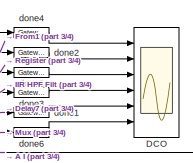
[diagram: DCO Correction - part 1/4, top center region]
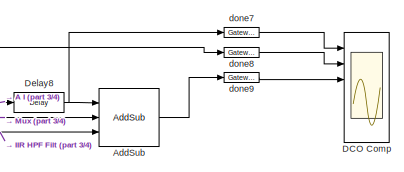
[diagram: DCO Correction - part 2/4, top right region]
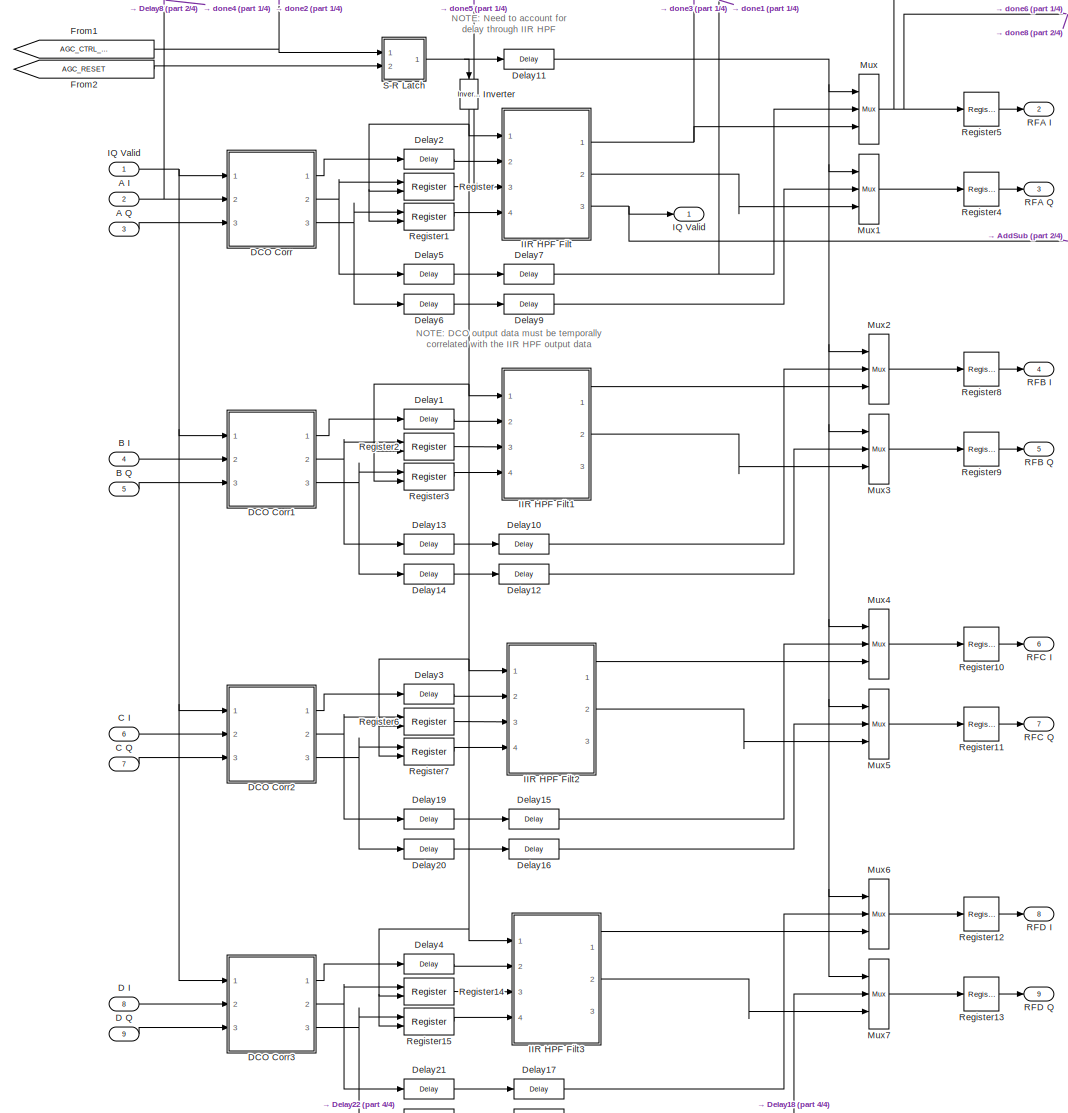
[diagram: DCO Correction - part 3/4, left side, full height]
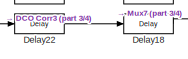
[diagram: DCO Correction - part 4/4, bottom left region]
BLOCK [SubSystem] DCO Correction
  FunctionWithSeparateData = off
  MaskHideContents = off
  MaskIconFrame = on
  MaskIconOpaque = on
  MaskIconRotate = none
  MaskIconUnits = autoscale
  MaskPortRotate = default
  MinAlgLoopOccurrences = off
  Opaque = off
  Ports = [9, 9]
  PropExecContextOutsideSubsystem = off
  RTWSystemCode = Auto
  RequestExecContextInheritance = off
  SID = 361
BLOCK [Outport] DCO Correction/ IQ Valid
  IconDisplay = Port number
  MaskIconFrame = on
  MaskIconOpaque = on
  MaskIconRotate = none
  MaskIconUnits = autoscale
  MaskPortRotate = default
  SID = 736
BLOCK [Outport] DCO Correction/ RFA I
  IconDisplay = Port number
  MaskIconFrame = on
  MaskIconOpaque = on
  MaskIconRotate = none
  MaskIconUnits = autoscale
  MaskPortRotate = default
  Port = 2
  SID = 737
BLOCK [Outport] DCO Correction/ RFA Q
  IconDisplay = Port number
  MaskIconFrame = on
  MaskIconOpaque = on
  MaskIconRotate = none
  MaskIconUnits = autoscale
  MaskPortRotate = default
  Port = 3
  SID = 738
BLOCK [Inport] DCO Correction/A I
  IconDisplay = Port number
  MaskIconFrame = on
  MaskIconOpaque = on
  MaskIconRotate = none
  MaskIconUnits = autoscale
  MaskPortRotate = default
  Port = 2
  SID = 363
BLOCK [Inport] DCO Correction/A Q
  IconDisplay = Port number
  MaskIconFrame = on
  MaskIconOpaque = on
  MaskIconRotate = none
  MaskIconUnits = autoscale
  MaskPortRotate = default
  Port = 3
  SID = 364
BLOCK [Reference] DCO Correction/AddSub  REF=xbsIndex_r4/AddSub
  Ports = [3, 1]
  SID = 1611
  SourceBlock = xbsIndex_r4/AddSub
  SourceType = Xilinx Adder/Subtracter Block
  arith_type = Unsigned
  bin_pt = 14
  block_type = addsub
  dbl_ovrd = off
  en = on
  has_advanced_control = 0
  hw_selection = Fabric
  latency = 1
  mode = Subtraction
  n_bits = 16
  overflow = Wrap
  pipelined = off
  precision = Full
  quantization = Truncate
  sg_icon_stat = 60,58,3,1,white,blue,0,30170062,right,,[ ],[ ]
  sg_mask_display = fprintf('','COMMENT: begin icon graphics');\npatch([0 60 60 0 0 ],[0 0 58 58 0 ],[0.77 0.82 0.91 ]);\nplot([0 60 60 0 0 ],[0 0 58 58 0 ]);\npatch([12.2 23.76 31.76 39.76 47.76 31.76 20.2 12.2 ],[37.88 37.88 45.88 37.88 45.88 45.88 45.88 37.88 ],[1 1 1 ]);\npatch([20.2 31.76 23.76 12.2 20.2 ],[29.88 29.88 37.88 37.88 29.88 ],[0.931 0.946 0.973 ]);\npatch([12.2 23.76 31.76 20.2 12.2 ],[21.88 21.88 2...<+582ch>
  sggui_pos = -1,-1,-1,-1
  use_behavioral_HDL = off
  use_carryin = off
  use_carryout = off
  xl_area = [0,0,0,0,0,0,0]
  xl_use_area = off
BLOCK [Inport] DCO Correction/B I
  IconDisplay = Port number
  MaskIconFrame = on
  MaskIconOpaque = on
  MaskIconRotate = none
  MaskIconUnits = autoscale
  MaskPortRotate = default
  Port = 4
  SID = 365
BLOCK [Inport] DCO Correction/B Q
  IconDisplay = Port number
  MaskIconFrame = on
  MaskIconOpaque = on
  MaskIconRotate = none
  MaskIconUnits = autoscale
  MaskPortRotate = default
  Port = 5
  SID = 366
BLOCK [Inport] DCO Correction/C I
  IconDisplay = Port number
  MaskIconFrame = on
  MaskIconOpaque = on
  MaskIconRotate = none
  MaskIconUnits = autoscale
  MaskPortRotate = default
  Port = 6
  SID = 367
BLOCK [Inport] DCO Correction/C Q
  IconDisplay = Port number
  MaskIconFrame = on
  MaskIconOpaque = on
  MaskIconRotate = none
  MaskIconUnits = autoscale
  MaskPortRotate = default
  Port = 7
  SID = 368
BLOCK [Inport] DCO Correction/D I
  IconDisplay = Port number
  MaskIconFrame = on
  MaskIconOpaque = on
  MaskIconRotate = none
  MaskIconUnits = autoscale
  MaskPortRotate = default
  Port = 8
  SID = 369
BLOCK [Inport] DCO Correction/D Q
  IconDisplay = Port number
  MaskIconFrame = on
  MaskIconOpaque = on
  MaskIconRotate = none
  MaskIconUnits = autoscale
  MaskPortRotate = default
  Port = 9
  SID = 370
BLOCK [Scope] DCO Correction/DCO
  DataFormat = StructureWithTime
  Floating = off
  LimitDataPoints = off
  MaskIconFrame = on
  MaskIconOpaque = on
  MaskIconRotate = none
  MaskIconUnits = autoscale
  MaskPortRotate = default
  NumInputPorts = 6
  Ports = [6]
  SID = 371
  SampleTime = 0
  SaveName = ScopeData3
  TimeRange = 10000
  YMax = 1~1~1~1~1~1
  YMin = -1~0~-1~-1~-1~-1
  ZoomMode = xonly
BLOCK [Scope] DCO Correction/DCO Comp
  DataFormat = StructureWithTime
  Floating = off
  LimitDataPoints = off
  MaskIconFrame = on
  MaskIconOpaque = on
  MaskIconRotate = none
  MaskIconUnits = autoscale
  MaskPortRotate = default
  NumInputPorts = 6
  Ports = [6]
  SID = 1607
  SampleTime = 0
  SaveName = ScopeData8
  TimeRange = 10000
  YMax = 1~1~1~1~1~1
  YMin = -1~0~-1~-1~-1~-1
  ZoomMode = xonly
BLOCK [SubSystem] DCO Correction/DCO Corr
  FunctionWithSeparateData = off
  MaskHideContents = off
  MaskIconFrame = on
  MaskIconOpaque = on
  MaskIconRotate = none
  MaskIconUnits = autoscale
  MaskPortRotate = default
  MinAlgLoopOccurrences = off
  Opaque = off
  Ports = [3, 3]
  PropExecContextOutsideSubsystem = off
  RTWSystemCode = Auto
  RequestExecContextInheritance = off
  SID = 372
BLOCK [Outport] DCO Correction/DCO Corr/ I
  IconDisplay = Port number
  MaskIconFrame = on
  MaskIconOpaque = on
  MaskIconRotate = none
  MaskIconUnits = autoscale
  MaskPortRotate = default
  Port = 2
  SID = 407
BLOCK [Outport] DCO Correction/DCO Corr/ Q
  IconDisplay = Port number
  MaskIconFrame = on
  MaskIconOpaque = on
  MaskIconRotate = none
  MaskIconUnits = autoscale
  MaskPortRotate = default
  Port = 3
  SID = 408
BLOCK [Reference] DCO Correction/DCO Corr/Accumulator  REF=xbsIndex_r4/Accumulator
  Ports = [3, 1]
  SID = 376
  SourceBlock = xbsIndex_r4/Accumulator
  SourceType = Xilinx Accumulator Block
  block_type = accum
  block_version = VER_STRING_GOES_HERE
  dbl_ovrd = off
  en = on
  has_advanced_control = 0
  hasbypass = off
  implementation = Fabric
  infoeditControl = reset for floating point data type must be asserted for a minimum of 2 cycles
  latency = 0
  lsb = -100
  msb = 100
  msb_inp = 100
  n_bits = 17
  operation = Add
  overflow = Flag as error
  rst = on
  scale = 1
  sg_icon_stat = 35,42,3,1,white,blue,0,ee9eb47a,right,,[ ],[ ]
  sg_mask_display = fprintf('','COMMENT: begin icon graphics');\npatch([0 35 35 0 0 ],[0 0 42 42 0 ],[0.77 0.82 0.91 ]);\nplot([0 35 35 0 0 ],[0 0 42 42 0 ]);\npatch([5.875 13.1 18.1 23.1 28.1 18.1 10.875 5.875 ],[26.55 26.55 31.55 26.55 31.55 31.55 31.55 26.55 ],[1 1 1 ]);\npatch([10.875 18.1 13.1 5.875 10.875 ],[21.55 21.55 26.55 26.55 21.55 ],[0.931 0.946 0.973 ]);\npatch([5.875 13.1 18.1 10.875 5.875 ],[16.55 16....<+471ch>  <repeated x8 — deduplicated; at blocks: Accumulator, Accumulator1>
  sggui_pos = 20,20,356,457
  use_behavioral_HDL = on
  xl_area = [0,0,0,0,0,0,0]
  xl_use_area = off
BLOCK [Reference] DCO Correction/DCO Corr/Accumulator1  REF=xbsIndex_r4/Accumulator
  Ports = [3, 1]
  SID = 377
  SourceBlock = xbsIndex_r4/Accumulator
  SourceType = Xilinx Accumulator Block
  block_type = accum
  block_version = VER_STRING_GOES_HERE
  dbl_ovrd = off
  en = on
  has_advanced_control = 0
  hasbypass = off
  implementation = Fabric
  infoeditControl = reset for floating point data type must be asserted for a minimum of 2 cycles
  latency = 0
  lsb = -100
  msb = 100
  msb_inp = 100
  n_bits = 17
  operation = Add
  overflow = Flag as error
  rst = on
  scale = 1
  sg_icon_stat = 35,42,3,1,white,blue,0,ee9eb47a,right,,[ ],[ ]
  sggui_pos = 20,20,356,457
  use_behavioral_HDL = on
  xl_area = [0,0,0,0,0,0,0]
  xl_use_area = off
BLOCK [Reference] DCO Correction/DCO Corr/AddSub  REF=xbsIndex_r4/AddSub
  Ports = [2, 1]
  SID = 378
  SourceBlock = xbsIndex_r4/AddSub
  SourceType = Xilinx Adder/Subtracter Block
  arith_type = Signed  (2's comp)
  bin_pt = 15
  block_type = addsub
  dbl_ovrd = off
  en = off
  has_advanced_control = 0
  hw_selection = Fabric
  latency = 1
  mode = Subtraction
  n_bits = 16
  overflow = Wrap
  pipelined = off
  precision = User Defined
  quantization = Truncate
  sg_icon_stat = 45,42,2,1,white,blue,0,8a00a986,right,,[ ],[ ]
  sg_mask_display = fprintf('','COMMENT: begin icon graphics');\npatch([0 45 45 0 0 ],[0 0 42 42 0 ],[0.77 0.82 0.91 ]);\nplot([0 45 45 0 0 ],[0 0 42 42 0 ]);\npatch([8.65 17.32 23.32 29.32 35.32 23.32 14.65 8.65 ],[27.66 27.66 33.66 27.66 33.66 33.66 33.66 27.66 ],[1 1 1 ]);\npatch([14.65 23.32 17.32 8.65 14.65 ],[21.66 21.66 27.66 27.66 21.66 ],[0.931 0.946 0.973 ]);\npatch([8.65 17.32 23.32 14.65 8.65 ],[15.66 15....<+540ch>  <repeated x16 — deduplicated; at blocks: AddSub, AddSub1, AddSub2>
  sggui_pos = -1,-1,-1,-1
  use_behavioral_HDL = off
  use_carryin = off
  use_carryout = off
  xl_area = [0,0,0,0,0,0,0]
  xl_use_area = off
BLOCK [Reference] DCO Correction/DCO Corr/AddSub1  REF=xbsIndex_r4/AddSub
  Ports = [2, 1]
  SID = 379
  SourceBlock = xbsIndex_r4/AddSub
  SourceType = Xilinx Adder/Subtracter Block
  arith_type = Signed  (2's comp)
  bin_pt = 15
  block_type = addsub
  dbl_ovrd = off
  en = off
  has_advanced_control = 0
  hw_selection = Fabric
  latency = 1
  mode = Subtraction
  n_bits = 16
  overflow = Wrap
  pipelined = off
  precision = User Defined
  quantization = Truncate
  sg_icon_stat = 45,42,2,1,white,blue,0,8a00a986,right,,[ ],[ ]
  sggui_pos = -1,-1,-1,-1
  use_behavioral_HDL = off
  use_carryin = off
  use_carryout = off
  xl_area = [0,0,0,0,0,0,0]
  xl_use_area = off
BLOCK [Reference] DCO Correction/DCO Corr/Constant  REF=xbsIndex_r4/Constant
  Ports = [0, 1]
  SID = 380
  SourceBlock = xbsIndex_r4/Constant
  SourceType = Xilinx Constant Block Block
  arith_type = Unsigned
  bin_pt = 0
  block_type = constant
  carry = CIN
  const = 31
  dbl_ovrd = off
  dsp48_infoedit = The use of this block for DSP48 instructions is deprecated.  Please use the Opmode block.
  equ = P=C
  exp_width = 8
  explicit_period = off
  frac_width = 24
  gui_display_data_type = Fixed-point
  has_advanced_control = 0
  inp1 = P
  inp2 = PCIN>>17
  n_bits = 5
  opr = +
  opselect = C
  period = 1
  preci_type = Single
  sg_icon_stat = 30,22,0,1,white,blue,0,8a5cc997,left,,[ ],[ ]
  sg_mask_display = fprintf('','COMMENT: begin icon graphics');\npatch([0 30 30 0 0 ],[0 0 22 22 0 ],[0.77 0.82 0.91 ]);\nplot([0 30 30 0 0 ],[0 0 22 22 0 ]);\npatch([8.325 12.66 15.66 18.66 21.66 15.66 11.325 8.325 ],[14.33 14.33 17.33 14.33 17.33 17.33 17.33 14.33 ],[1 1 1 ]);\npatch([11.325 15.66 12.66 8.325 11.325 ],[11.33 11.33 14.33 14.33 11.33 ],[0.931 0.946 0.973 ]);\npatch([8.325 12.66 15.66 11.325 8.325 ],[...<+322ch>  <repeated x4 — deduplicated; at blocks: Constant>
  sggui_pos = -1,-1,-1,-1
BLOCK [Reference] DCO Correction/DCO Corr/Counter  REF=xbsIndex_r4/Counter
  Ports = [2, 1]
  SID = 381
  SourceBlock = xbsIndex_r4/Counter
  SourceType = Xilinx Counter Block
  arith_type = Unsigned
  bin_pt = 0
  block_type = counter
  cnt_by_val = 1
  cnt_to = Inf
  cnt_type = Free Running
  dbl_ovrd = off
  en = on
  explicit_period = off
  has_advanced_control = 0
  implementation = Fabric
  infoedit = Hardware notes: Free running counters are the least expensive in hardware.  A count limited counter is implemented by combining a counter with a comparator.
  load_pin = off
  n_bits = 5
  operation = Up
  period = 1
  rst = on
  sg_icon_stat = 40,40,2,1,white,blue,0,ae3608d6,right,,[ ],[ ]
  sg_mask_display = fprintf('','COMMENT: begin icon graphics');\npatch([0 40 40 0 0 ],[0 0 40 40 0 ],[0.77 0.82 0.91 ]);\nplot([0 40 40 0 0 ],[0 0 40 40 0 ]);\npatch([8.875 16.1 21.1 26.1 31.1 21.1 13.875 8.875 ],[25.55 25.55 30.55 25.55 30.55 30.55 30.55 25.55 ],[1 1 1 ]);\npatch([13.875 21.1 16.1 8.875 13.875 ],[20.55 20.55 25.55 25.55 20.55 ],[0.931 0.946 0.973 ]);\npatch([8.875 16.1 21.1 13.875 8.875 ],[15.55 15....<+428ch>  <repeated x4 — deduplicated; at blocks: Counter>
  sggui_pos = -1,-1,-1,-1
  start_count = 0
  use_behavioral_HDL = off
  xl_area = [0,0,0,0,0,0,0]
  xl_use_area = off
BLOCK [Scope] DCO Correction/DCO Corr/DCO Est
  DataFormat = StructureWithTime
  Floating = off
  LimitDataPoints = off
  MaskIconFrame = on
  MaskIconOpaque = on
  MaskIconRotate = none
  MaskIconUnits = autoscale
  MaskPortRotate = default
  NumInputPorts = 7
  Ports = [7]
  SID = 382
  SampleTime = 0
  SaveName = ScopeData1
  TimeRange = 10000
  YMax = 0.4~0.4~1~0.03~0.009999999999999999~0.4~0.4
  YMin = -0.4~-0.4~0~0~-0.02~-0.4~-0.4
  ZoomMode = xonly
BLOCK [Reference] DCO Correction/DCO Corr/Delay  REF=xbsIndex_r4/Delay
  Ports = [1, 1]
  SID = 383
  SourceBlock = xbsIndex_r4/Delay
  SourceType = Xilinx Delay Block
  block_type = delay
  dbl_ovrd = off
  en = off
  has_advanced_control = 0
  infoedit = Hardware notes: A delay line is a chain, each link of which is an SRL16 followed by a flip-flop.
  infoeditControl = Selection of Reset will increase slice count due to use of real FFs and instead of SRLs
  latency = 1
  reg_retiming = off
  rst = off
  sg_icon_stat = 30,26,1,1,white,blue,0,07b98262,right,,[ ],[ ]
  sg_mask_display = fprintf('','COMMENT: begin icon graphics');\npatch([0 30 30 0 0 ],[0 0 26 26 0 ],[0.77 0.82 0.91 ]);\nplot([0 30 30 0 0 ],[0 0 26 26 0 ]);\npatch([8.325 12.66 15.66 18.66 21.66 15.66 11.325 8.325 ],[16.33 16.33 19.33 16.33 19.33 19.33 19.33 16.33 ],[1 1 1 ]);\npatch([11.325 15.66 12.66 8.325 11.325 ],[13.33 13.33 16.33 16.33 13.33 ],[0.931 0.946 0.973 ]);\npatch([8.325 12.66 15.66 11.325 8.325 ],[...<+334ch>  <repeated x4 — deduplicated; at blocks: Delay>
  sggui_pos = -1,-1,-1,-1
  xl_area = [0,0,0,0,0,0,0]
  xl_use_area = off
BLOCK [From] DCO Correction/DCO Corr/From1
  GotoTag = AGC_RESET
  MaskIconFrame = on
  MaskIconOpaque = on
  MaskIconRotate = none
  MaskIconUnits = autoscale
  MaskPortRotate = default
  SID = 384
  TagVisibility = global
BLOCK [From] DCO Correction/DCO Corr/From2
  GotoTag = AGC_CTRL_Start_DCO
  MaskIconFrame = on
  MaskIconOpaque = on
  MaskIconRotate = none
  MaskIconUnits = autoscale
  MaskPortRotate = default
  SID = 385
  TagVisibility = global
BLOCK [From] DCO Correction/DCO Corr/From3
  GotoTag = AGC_RESET
  MaskIconFrame = on
  MaskIconOpaque = on
  MaskIconRotate = none
  MaskIconUnits = autoscale
  MaskPortRotate = default
  SID = 386
  TagVisibility = global
BLOCK [Inport] DCO Correction/DCO Corr/I
  IconDisplay = Port number
  MaskIconFrame = on
  MaskIconOpaque = on
  MaskIconRotate = none
  MaskIconUnits = autoscale
  MaskPortRotate = default
  Port = 2
  SID = 374
BLOCK [Inport] DCO Correction/DCO Corr/IQ Valid
  IconDisplay = Port number
  MaskIconFrame = on
  MaskIconOpaque = on
  MaskIconRotate = none
  MaskIconUnits = autoscale
  MaskPortRotate = default
  SID = 373
BLOCK [Reference] DCO Correction/DCO Corr/Logical  REF=xbsIndex_r4/Logical
  Ports = [2, 1]
  SID = 387
  SourceBlock = xbsIndex_r4/Logical
  SourceType = Xilinx Logical Block Block
  align_bp = on
  arith_type = Unsigned
  bin_pt = 0
  block_type = logical
  dbl_ovrd = off
  en = off
  has_advanced_control = 0
  inputs = 2
  latency = 0
  logical_function = AND
  n_bits = 16
  precision = Full
  sg_icon_stat = 35,22,2,1,white,blue,0,83a4b621,right,,[ ],[ ]
  sg_mask_display = fprintf('','COMMENT: begin icon graphics');\npatch([0 35 35 0 0 ],[0 0 22 22 0 ],[0.77 0.82 0.91 ]);\nplot([0 35 35 0 0 ],[0 0 22 22 0 ]);\npatch([10.325 14.66 17.66 20.66 23.66 17.66 13.325 10.325 ],[14.33 14.33 17.33 14.33 17.33 17.33 17.33 14.33 ],[1 1 1 ]);\npatch([13.325 17.66 14.66 10.325 13.325 ],[11.33 11.33 14.33 14.33 11.33 ],[0.931 0.946 0.973 ]);\npatch([10.325 14.66 17.66 13.325 10.32...<+318ch>  <repeated x8 — deduplicated; at blocks: Logical, Logical2>
  sggui_pos = -1,-1,-1,-1
  xl_area = [0,0,0,0,0,0,0]
  xl_use_area = off
BLOCK [Reference] DCO Correction/DCO Corr/Logical1  REF=xbsIndex_r4/Logical
  Ports = [2, 1]
  SID = 388
  SourceBlock = xbsIndex_r4/Logical
  SourceType = Xilinx Logical Block Block
  align_bp = on
  arith_type = Unsigned
  bin_pt = 0
  block_type = logical
  dbl_ovrd = off
  en = off
  has_advanced_control = 0
  inputs = 2
  latency = 0
  logical_function = OR
  n_bits = 16
  precision = Full
  sg_icon_stat = 35,40,2,1,white,blue,0,7ede7d88,right,,[ ],[ ]
  sg_mask_display = fprintf('','COMMENT: begin icon graphics');\npatch([0 35 35 0 0 ],[0 0 40 40 0 ],[0.77 0.82 0.91 ]);\nplot([0 35 35 0 0 ],[0 0 40 40 0 ]);\npatch([5.875 13.1 18.1 23.1 28.1 18.1 10.875 5.875 ],[25.55 25.55 30.55 25.55 30.55 30.55 30.55 25.55 ],[1 1 1 ]);\npatch([10.875 18.1 13.1 5.875 10.875 ],[20.55 20.55 25.55 25.55 20.55 ],[0.931 0.946 0.973 ]);\npatch([5.875 13.1 18.1 10.875 5.875 ],[15.55 15....<+308ch>  <repeated x4 — deduplicated; at blocks: Logical1>
  sggui_pos = -1,-1,-1,-1
  xl_area = [0,0,0,0,0,0,0]
  xl_use_area = off
BLOCK [Reference] DCO Correction/DCO Corr/Logical2  REF=xbsIndex_r4/Logical
  Ports = [2, 1]
  SID = 389
  SourceBlock = xbsIndex_r4/Logical
  SourceType = Xilinx Logical Block Block
  align_bp = on
  arith_type = Unsigned
  bin_pt = 0
  block_type = logical
  dbl_ovrd = off
  en = off
  has_advanced_control = 0
  inputs = 2
  latency = 0
  logical_function = AND
  n_bits = 16
  precision = Full
  sg_icon_stat = 35,22,2,1,white,blue,0,83a4b621,left,,[ ],[ ]
  sggui_pos = -1,-1,-1,-1
  xl_area = [0,0,0,0,0,0,0]
  xl_use_area = off
BLOCK [Inport] DCO Correction/DCO Corr/Q
  IconDisplay = Port number
  MaskIconFrame = on
  MaskIconOpaque = on
  MaskIconRotate = none
  MaskIconUnits = autoscale
  MaskPortRotate = default
  Port = 3
  SID = 375
BLOCK [Reference] DCO Correction/DCO Corr/Relational  REF=xbsIndex_r4/Relational
  Ports = [2, 1]
  SID = 390
  SourceBlock = xbsIndex_r4/Relational
  SourceType = Xilinx Arithmetic Relational Operator Block
  block_type = relational
  dbl_ovrd = off
  en = off
  has_advanced_control = 0
  latency = 0
  mode = a=b
  sg_icon_stat = 35,29,2,1,white,blue,0,2a81ff49,left,,[ ],[ ]
  sg_mask_display = fprintf('','COMMENT: begin icon graphics');\npatch([0 35 35 0 0 ],[0 0 29 29 0 ],[0.77 0.82 0.91 ]);\nplot([0 35 35 0 0 ],[0 0 29 29 0 ]);\npatch([8.1 13.88 17.88 21.88 25.88 17.88 12.1 8.1 ],[18.44 18.44 22.44 18.44 22.44 22.44 22.44 18.44 ],[1 1 1 ]);\npatch([12.1 17.88 13.88 8.1 12.1 ],[14.44 14.44 18.44 18.44 14.44 ],[0.931 0.946 0.973 ]);\npatch([8.1 13.88 17.88 12.1 8.1 ],[10.44 10.44 14.44 ...<+439ch>  <repeated x4 — deduplicated; at blocks: Relational>
  sggui_pos = -1,-1,-1,-1
  xl_area = [0,0,0,0,0,0,0]
  xl_use_area = off
BLOCK [SubSystem] DCO Correction/DCO Corr/S-R Latch
  FunctionWithSeparateData = off
  MaskHideContents = off
  MaskIconFrame = on
  MaskIconOpaque = on
  MaskIconRotate = none
  MaskIconUnits = autoscale
  MaskPortRotate = default
  MinAlgLoopOccurrences = off
  Opaque = off
  Ports = [2, 1]
  PropExecContextOutsideSubsystem = off
  RTWSystemCode = Auto
  RequestExecContextInheritance = off
  SID = 391
BLOCK [Reference] DCO Correction/DCO Corr/S-R Latch/Constant1  REF=xbsIndex_r4/Constant
  Ports = [0, 1]
  SID = 394
  SourceBlock = xbsIndex_r4/Constant
  SourceType = Xilinx Constant Block Block
  arith_type = Boolean
  bin_pt = 0
  block_type = constant
  block_version = VER_STRING_GOES_HERE
  carry = CIN
  const = 1
  dbl_ovrd = off
  dsp48_infoedit = The use of this block for DSP48 instructions is deprecated.  Please use the Opmode block.
  equ = P=C
  exp_width = 8
  explicit_period = off
  frac_width = 24
  gui_display_data_type = Boolean
  has_advanced_control = 0
  inp1 = P
  inp2 = PCIN>>17
  n_bits = 1
  opr = +
  opselect = C
  period = 1
  preci_type = Single
  sg_icon_stat = 15,18,0,1,white,blue,0,1c72b5be,right,,[ ],[ ]
  sggui_pos = 20,20,400,346
BLOCK [Outport] DCO Correction/DCO Corr/S-R Latch/Q
  IconDisplay = Port number
  MaskIconFrame = on
  MaskIconOpaque = on
  MaskIconRotate = none
  MaskIconUnits = autoscale
  MaskPortRotate = default
  SID = 396
BLOCK [Inport] DCO Correction/DCO Corr/S-R Latch/R
  IconDisplay = Port number
  MaskIconFrame = on
  MaskIconOpaque = on
  MaskIconRotate = none
  MaskIconUnits = autoscale
  MaskPortRotate = default
  Port = 2
  SID = 393
BLOCK [Reference] DCO Correction/DCO Corr/S-R Latch/Register2  REF=xbsIndex_r4/Register
  Ports = [3, 1]
  SID = 395
  SourceBlock = xbsIndex_r4/Register
  SourceType = Xilinx Register Block
  block_type = register
  block_version = VER_STRING_GOES_HERE
  dbl_ovrd = off
  en = on
  has_advanced_control = 0
  init = 0
  rst = on
  sg_icon_stat = 45,48,3,1,white,blue,0,30546de1,right,,[ ],[ ]
  sggui_pos = 20,20,348,193
  xl_area = [1 1 0 0 0 0 0]
  xl_use_area = off
BLOCK [Inport] DCO Correction/DCO Corr/S-R Latch/S
  IconDisplay = Port number
  MaskIconFrame = on
  MaskIconOpaque = on
  MaskIconRotate = none
  MaskIconUnits = autoscale
  MaskPortRotate = default
  SID = 392
BLOCK [Reference] DCO Correction/DCO Corr/Scale  REF=xbsIndex_r4/Scale
  Ports = [1, 1]
  SID = 397
  SourceBlock = xbsIndex_r4/Scale
  SourceType = Xilinx Input Scaler Block
  block_type = scale
  dbl_ovrd = off
  has_advanced_control = 0
  infoedit = Scales input by a power of two by adjusting the binary point position.<br><br>Hardware notes: In hardware this block costs nothing.
  scale_factor = -5
  sg_icon_stat = 25,26,1,1,white,blue,0,8781d150,right,,[ ],[ ]
  sg_mask_display = fprintf('','COMMENT: begin icon graphics');\npatch([0 25 25 0 0 ],[0 0 26 26 0 ],[0.77 0.82 0.91 ]);\nplot([0 25 25 0 0 ],[0 0 26 26 0 ]);\npatch([5.325 9.66 12.66 15.66 18.66 12.66 8.325 5.325 ],[16.33 16.33 19.33 16.33 19.33 19.33 19.33 16.33 ],[1 1 1 ]);\npatch([8.325 12.66 9.66 5.325 8.325 ],[13.33 13.33 16.33 16.33 13.33 ],[0.931 0.946 0.973 ]);\npatch([5.325 9.66 12.66 8.325 5.325 ],[10.33 1...<+330ch>  <repeated x8 — deduplicated; at blocks: Scale, Scale1>
  sggui_pos = -1,-1,-1,-1
BLOCK [Reference] DCO Correction/DCO Corr/Scale1  REF=xbsIndex_r4/Scale
  Ports = [1, 1]
  SID = 398
  SourceBlock = xbsIndex_r4/Scale
  SourceType = Xilinx Input Scaler Block
  block_type = scale
  dbl_ovrd = off
  has_advanced_control = 0
  infoedit = Scales input by a power of two by adjusting the binary point position.<br><br>Hardware notes: In hardware this block costs nothing.
  scale_factor = -5
  sg_icon_stat = 25,26,1,1,white,blue,0,8781d150,right,,[ ],[ ]
  sggui_pos = -1,-1,-1,-1
BLOCK [Outport] DCO Correction/DCO Corr/Valid
  IconDisplay = Port number
  MaskIconFrame = on
  MaskIconOpaque = on
  MaskIconRotate = none
  MaskIconUnits = autoscale
  MaskPortRotate = default
  SID = 406
BLOCK [Reference] DCO Correction/DCO Corr/done1  REF=xbsIndex_r4/Gateway Out
  DACChannel = '1'
  LOCs = {}
  Ports = [1, 1]
  SID = 399
  SourceBlock = xbsIndex_r4/Gateway Out
  SourceType = Xilinx Gateway Out Block
  UseAsDAC = off
  block_type = gatewayout
  block_version = VER_STRING_GOES_HERE
  has_advanced_control = 0
  hdl_port = off
  inherit_from_input = off
  locs_specified = off
  sg_icon_stat = 35,10,1,1,white,grey,1,632ec840,right,,[ ],[ ]
  sggui_pos = -1,-1,-1,-1
  timing_constraint = None
  xl_area = [0 0 0 0 1 0 0]
  xl_use_area = off
BLOCK [Reference] DCO Correction/DCO Corr/done2  REF=xbsIndex_r4/Gateway Out
  DACChannel = '1'
  LOCs = {}
  Ports = [1, 1]
  SID = 400
  SourceBlock = xbsIndex_r4/Gateway Out
  SourceType = Xilinx Gateway Out Block
  UseAsDAC = off
  block_type = gatewayout
  block_version = VER_STRING_GOES_HERE
  has_advanced_control = 0
  hdl_port = off
  inherit_from_input = off
  locs_specified = off
  sg_icon_stat = 35,10,1,1,white,grey,1,632ec840,right,,[ ],[ ]
  sggui_pos = -1,-1,-1,-1
  timing_constraint = None
  xl_area = [0 0 0 0 1 0 0]
  xl_use_area = off
BLOCK [Reference] DCO Correction/DCO Corr/done3  REF=xbsIndex_r4/Gateway Out
  DACChannel = '1'
  LOCs = {}
  Ports = [1, 1]
  SID = 401
  SourceBlock = xbsIndex_r4/Gateway Out
  SourceType = Xilinx Gateway Out Block
  UseAsDAC = off
  block_type = gatewayout
  block_version = VER_STRING_GOES_HERE
  has_advanced_control = 0
  hdl_port = off
  inherit_from_input = off
  locs_specified = off
  sg_icon_stat = 35,10,1,1,white,grey,1,632ec840,right,,[ ],[ ]
  sggui_pos = -1,-1,-1,-1
  timing_constraint = None
  xl_area = [0 0 0 0 1 0 0]
  xl_use_area = off
BLOCK [Reference] DCO Correction/DCO Corr/done4  REF=xbsIndex_r4/Gateway Out
  DACChannel = '1'
  LOCs = {}
  Ports = [1, 1]
  SID = 402
  SourceBlock = xbsIndex_r4/Gateway Out
  SourceType = Xilinx Gateway Out Block
  UseAsDAC = off
  block_type = gatewayout
  block_version = VER_STRING_GOES_HERE
  has_advanced_control = 0
  hdl_port = off
  inherit_from_input = off
  locs_specified = off
  sg_icon_stat = 35,10,1,1,white,grey,1,632ec840,right,,[ ],[ ]
  sggui_pos = -1,-1,-1,-1
  timing_constraint = None
  xl_area = [0 0 0 0 1 0 0]
  xl_use_area = off
BLOCK [Reference] DCO Correction/DCO Corr/done5  REF=xbsIndex_r4/Gateway Out
  DACChannel = '1'
  LOCs = {}
  Ports = [1, 1]
  SID = 403
  SourceBlock = xbsIndex_r4/Gateway Out
  SourceType = Xilinx Gateway Out Block
  UseAsDAC = off
  block_type = gatewayout
  block_version = VER_STRING_GOES_HERE
  has_advanced_control = 0
  hdl_port = off
  inherit_from_input = off
  locs_specified = off
  sg_icon_stat = 35,10,1,1,white,grey,1,632ec840,right,,[ ],[ ]
  sggui_pos = -1,-1,-1,-1
  timing_constraint = None
  xl_area = [0 0 0 0 1 0 0]
  xl_use_area = off
BLOCK [Reference] DCO Correction/DCO Corr/done6  REF=xbsIndex_r4/Gateway Out
  DACChannel = '1'
  LOCs = {}
  Ports = [1, 1]
  SID = 404
  SourceBlock = xbsIndex_r4/Gateway Out
  SourceType = Xilinx Gateway Out Block
  UseAsDAC = off
  block_type = gatewayout
  block_version = VER_STRING_GOES_HERE
  has_advanced_control = 0
  hdl_port = off
  inherit_from_input = off
  locs_specified = off
  sg_icon_stat = 35,10,1,1,white,grey,1,632ec840,right,,[ ],[ ]
  sggui_pos = -1,-1,-1,-1
  timing_constraint = None
  xl_area = [0 0 0 0 1 0 0]
  xl_use_area = off
BLOCK [Reference] DCO Correction/DCO Corr/done7  REF=xbsIndex_r4/Gateway Out
  DACChannel = '1'
  LOCs = {}
  Ports = [1, 1]
  SID = 405
  SourceBlock = xbsIndex_r4/Gateway Out
  SourceType = Xilinx Gateway Out Block
  UseAsDAC = off
  block_type = gatewayout
  block_version = VER_STRING_GOES_HERE
  has_advanced_control = 0
  hdl_port = off
  inherit_from_input = off
  locs_specified = off
  sg_icon_stat = 35,10,1,1,white,grey,1,632ec840,right,,[ ],[ ]
  sggui_pos = -1,-1,-1,-1
  timing_constraint = None
  xl_area = [0 0 0 0 1 0 0]
  xl_use_area = off
BLOCK [SubSystem] DCO Correction/DCO Corr1
  FunctionWithSeparateData = off
  MaskHideContents = off
  MaskIconFrame = on
  MaskIconOpaque = on
  MaskIconRotate = none
  MaskIconUnits = autoscale
  MaskPortRotate = default
  MinAlgLoopOccurrences = off
  Opaque = off
  Ports = [3, 3]
  PropExecContextOutsideSubsystem = off
  RTWSystemCode = Auto
  RequestExecContextInheritance = off
  SID = 409
BLOCK [Outport] DCO Correction/DCO Corr1/ I
  IconDisplay = Port number
  MaskIconFrame = on
  MaskIconOpaque = on
  MaskIconRotate = none
  MaskIconUnits = autoscale
  MaskPortRotate = default
  Port = 2
  SID = 444
BLOCK [Outport] DCO Correction/DCO Corr1/ Q
  IconDisplay = Port number
  MaskIconFrame = on
  MaskIconOpaque = on
  MaskIconRotate = none
  MaskIconUnits = autoscale
  MaskPortRotate = default
  Port = 3
  SID = 445
BLOCK [Reference] DCO Correction/DCO Corr1/Accumulator  REF=xbsIndex_r4/Accumulator
  Ports = [3, 1]
  SID = 413
  SourceBlock = xbsIndex_r4/Accumulator
  SourceType = Xilinx Accumulator Block
  block_type = accum
  block_version = VER_STRING_GOES_HERE
  dbl_ovrd = off
  en = on
  has_advanced_control = 0
  hasbypass = off
  implementation = Fabric
  infoeditControl = reset for floating point data type must be asserted for a minimum of 2 cycles
  latency = 0
  lsb = -100
  msb = 100
  msb_inp = 100
  n_bits = 17
  operation = Add
  overflow = Flag as error
  rst = on
  scale = 1
  sg_icon_stat = 35,42,3,1,white,blue,0,ee9eb47a,right,,[ ],[ ]
  sggui_pos = 20,20,356,457
  use_behavioral_HDL = on
  xl_area = [0,0,0,0,0,0,0]
  xl_use_area = off
BLOCK [Reference] DCO Correction/DCO Corr1/Accumulator1  REF=xbsIndex_r4/Accumulator
  Ports = [3, 1]
  SID = 414
  SourceBlock = xbsIndex_r4/Accumulator
  SourceType = Xilinx Accumulator Block
  block_type = accum
  block_version = VER_STRING_GOES_HERE
  dbl_ovrd = off
  en = on
  has_advanced_control = 0
  hasbypass = off
  implementation = Fabric
  infoeditControl = reset for floating point data type must be asserted for a minimum of 2 cycles
  latency = 0
  lsb = -100
  msb = 100
  msb_inp = 100
  n_bits = 17
  operation = Add
  overflow = Flag as error
  rst = on
  scale = 1
  sg_icon_stat = 35,42,3,1,white,blue,0,ee9eb47a,right,,[ ],[ ]
  sggui_pos = 20,20,356,457
  use_behavioral_HDL = on
  xl_area = [0,0,0,0,0,0,0]
  xl_use_area = off
BLOCK [Reference] DCO Correction/DCO Corr1/AddSub  REF=xbsIndex_r4/AddSub
  Ports = [2, 1]
  SID = 415
  SourceBlock = xbsIndex_r4/AddSub
  SourceType = Xilinx Adder/Subtracter Block
  arith_type = Signed  (2's comp)
  bin_pt = 15
  block_type = addsub
  dbl_ovrd = off
  en = off
  has_advanced_control = 0
  hw_selection = Fabric
  latency = 1
  mode = Subtraction
  n_bits = 16
  overflow = Wrap
  pipelined = off
  precision = User Defined
  quantization = Truncate
  sg_icon_stat = 45,42,2,1,white,blue,0,8a00a986,right,,[ ],[ ]
  sggui_pos = -1,-1,-1,-1
  use_behavioral_HDL = off
  use_carryin = off
  use_carryout = off
  xl_area = [0,0,0,0,0,0,0]
  xl_use_area = off
BLOCK [Reference] DCO Correction/DCO Corr1/AddSub1  REF=xbsIndex_r4/AddSub
  Ports = [2, 1]
  SID = 416
  SourceBlock = xbsIndex_r4/AddSub
  SourceType = Xilinx Adder/Subtracter Block
  arith_type = Signed  (2's comp)
  bin_pt = 15
  block_type = addsub
  dbl_ovrd = off
  en = off
  has_advanced_control = 0
  hw_selection = Fabric
  latency = 1
  mode = Subtraction
  n_bits = 16
  overflow = Wrap
  pipelined = off
  precision = User Defined
  quantization = Truncate
  sg_icon_stat = 45,42,2,1,white,blue,0,8a00a986,right,,[ ],[ ]
  sggui_pos = -1,-1,-1,-1
  use_behavioral_HDL = off
  use_carryin = off
  use_carryout = off
  xl_area = [0,0,0,0,0,0,0]
  xl_use_area = off
BLOCK [Reference] DCO Correction/DCO Corr1/Constant  REF=xbsIndex_r4/Constant
  Ports = [0, 1]
  SID = 417
  SourceBlock = xbsIndex_r4/Constant
  SourceType = Xilinx Constant Block Block
  arith_type = Unsigned
  bin_pt = 0
  block_type = constant
  carry = CIN
  const = 31
  dbl_ovrd = off
  dsp48_infoedit = The use of this block for DSP48 instructions is deprecated.  Please use the Opmode block.
  equ = P=C
  exp_width = 8
  explicit_period = off
  frac_width = 24
  gui_display_data_type = Fixed-point
  has_advanced_control = 0
  inp1 = P
  inp2 = PCIN>>17
  n_bits = 5
  opr = +
  opselect = C
  period = 1
  preci_type = Single
  sg_icon_stat = 30,22,0,1,white,blue,0,8a5cc997,left,,[ ],[ ]
  sggui_pos = -1,-1,-1,-1
BLOCK [Reference] DCO Correction/DCO Corr1/Counter  REF=xbsIndex_r4/Counter
  Ports = [2, 1]
  SID = 418
  SourceBlock = xbsIndex_r4/Counter
  SourceType = Xilinx Counter Block
  arith_type = Unsigned
  bin_pt = 0
  block_type = counter
  cnt_by_val = 1
  cnt_to = Inf
  cnt_type = Free Running
  dbl_ovrd = off
  en = on
  explicit_period = off
  has_advanced_control = 0
  implementation = Fabric
  infoedit = Hardware notes: Free running counters are the least expensive in hardware.  A count limited counter is implemented by combining a counter with a comparator.
  load_pin = off
  n_bits = 5
  operation = Up
  period = 1
  rst = on
  sg_icon_stat = 40,40,2,1,white,blue,0,ae3608d6,right,,[ ],[ ]
  sggui_pos = -1,-1,-1,-1
  start_count = 0
  use_behavioral_HDL = off
  xl_area = [0,0,0,0,0,0,0]
  xl_use_area = off
BLOCK [Scope] DCO Correction/DCO Corr1/DCO Est
  DataFormat = StructureWithTime
  Floating = off
  LimitDataPoints = off
  MaskIconFrame = on
  MaskIconOpaque = on
  MaskIconRotate = none
  MaskIconUnits = autoscale
  MaskPortRotate = default
  NumInputPorts = 7
  Ports = [7]
  SID = 419
  SampleTime = 0
  SaveName = ScopeData1
  TimeRange = 10000
  YMax = 0.4~0.4~1~0.03~0.009999999999999999~0.4~0.4
  YMin = -0.4~-0.4~0~0~-0.02~-0.4~-0.4
  ZoomMode = xonly
BLOCK [Reference] DCO Correction/DCO Corr1/Delay  REF=xbsIndex_r4/Delay
  Ports = [1, 1]
  SID = 420
  SourceBlock = xbsIndex_r4/Delay
  SourceType = Xilinx Delay Block
  block_type = delay
  dbl_ovrd = off
  en = off
  has_advanced_control = 0
  infoedit = Hardware notes: A delay line is a chain, each link of which is an SRL16 followed by a flip-flop.
  infoeditControl = Selection of Reset will increase slice count due to use of real FFs and instead of SRLs
  latency = 1
  reg_retiming = off
  rst = off
  sg_icon_stat = 30,26,1,1,white,blue,0,07b98262,right,,[ ],[ ]
  sggui_pos = -1,-1,-1,-1
  xl_area = [0,0,0,0,0,0,0]
  xl_use_area = off
BLOCK [From] DCO Correction/DCO Corr1/From1
  GotoTag = AGC_RESET
  MaskIconFrame = on
  MaskIconOpaque = on
  MaskIconRotate = none
  MaskIconUnits = autoscale
  MaskPortRotate = default
  SID = 421
  TagVisibility = global
BLOCK [From] DCO Correction/DCO Corr1/From2
  GotoTag = AGC_CTRL_Start_DCO
  MaskIconFrame = on
  MaskIconOpaque = on
  MaskIconRotate = none
  MaskIconUnits = autoscale
  MaskPortRotate = default
  SID = 422
  TagVisibility = global
BLOCK [From] DCO Correction/DCO Corr1/From3
  GotoTag = AGC_RESET
  MaskIconFrame = on
  MaskIconOpaque = on
  MaskIconRotate = none
  MaskIconUnits = autoscale
  MaskPortRotate = default
  SID = 423
  TagVisibility = global
BLOCK [Inport] DCO Correction/DCO Corr1/I
  IconDisplay = Port number
  MaskIconFrame = on
  MaskIconOpaque = on
  MaskIconRotate = none
  MaskIconUnits = autoscale
  MaskPortRotate = default
  Port = 2
  SID = 411
BLOCK [Inport] DCO Correction/DCO Corr1/IQ Valid
  IconDisplay = Port number
  MaskIconFrame = on
  MaskIconOpaque = on
  MaskIconRotate = none
  MaskIconUnits = autoscale
  MaskPortRotate = default
  SID = 410
BLOCK [Reference] DCO Correction/DCO Corr1/Logical  REF=xbsIndex_r4/Logical
  Ports = [2, 1]
  SID = 424
  SourceBlock = xbsIndex_r4/Logical
  SourceType = Xilinx Logical Block Block
  align_bp = on
  arith_type = Unsigned
  bin_pt = 0
  block_type = logical
  dbl_ovrd = off
  en = off
  has_advanced_control = 0
  inputs = 2
  latency = 0
  logical_function = AND
  n_bits = 16
  precision = Full
  sg_icon_stat = 35,22,2,1,white,blue,0,83a4b621,right,,[ ],[ ]
  sggui_pos = -1,-1,-1,-1
  xl_area = [0,0,0,0,0,0,0]
  xl_use_area = off
BLOCK [Reference] DCO Correction/DCO Corr1/Logical1  REF=xbsIndex_r4/Logical
  Ports = [2, 1]
  SID = 425
  SourceBlock = xbsIndex_r4/Logical
  SourceType = Xilinx Logical Block Block
  align_bp = on
  arith_type = Unsigned
  bin_pt = 0
  block_type = logical
  dbl_ovrd = off
  en = off
  has_advanced_control = 0
  inputs = 2
  latency = 0
  logical_function = OR
  n_bits = 16
  precision = Full
  sg_icon_stat = 35,40,2,1,white,blue,0,7ede7d88,right,,[ ],[ ]
  sggui_pos = -1,-1,-1,-1
  xl_area = [0,0,0,0,0,0,0]
  xl_use_area = off
BLOCK [Reference] DCO Correction/DCO Corr1/Logical2  REF=xbsIndex_r4/Logical
  Ports = [2, 1]
  SID = 426
  SourceBlock = xbsIndex_r4/Logical
  SourceType = Xilinx Logical Block Block
  align_bp = on
  arith_type = Unsigned
  bin_pt = 0
  block_type = logical
  dbl_ovrd = off
  en = off
  has_advanced_control = 0
  inputs = 2
  latency = 0
  logical_function = AND
  n_bits = 16
  precision = Full
  sg_icon_stat = 35,22,2,1,white,blue,0,83a4b621,left,,[ ],[ ]
  sggui_pos = -1,-1,-1,-1
  xl_area = [0,0,0,0,0,0,0]
  xl_use_area = off
BLOCK [Inport] DCO Correction/DCO Corr1/Q
  IconDisplay = Port number
  MaskIconFrame = on
  MaskIconOpaque = on
  MaskIconRotate = none
  MaskIconUnits = autoscale
  MaskPortRotate = default
  Port = 3
  SID = 412
BLOCK [Reference] DCO Correction/DCO Corr1/Relational  REF=xbsIndex_r4/Relational
  Ports = [2, 1]
  SID = 427
  SourceBlock = xbsIndex_r4/Relational
  SourceType = Xilinx Arithmetic Relational Operator Block
  block_type = relational
  dbl_ovrd = off
  en = off
  has_advanced_control = 0
  latency = 0
  mode = a=b
  sg_icon_stat = 35,29,2,1,white,blue,0,2a81ff49,left,,[ ],[ ]
  sggui_pos = -1,-1,-1,-1
  xl_area = [0,0,0,0,0,0,0]
  xl_use_area = off
BLOCK [SubSystem] DCO Correction/DCO Corr1/S-R Latch
  FunctionWithSeparateData = off
  MaskHideContents = off
  MaskIconFrame = on
  MaskIconOpaque = on
  MaskIconRotate = none
  MaskIconUnits = autoscale
  MaskPortRotate = default
  MinAlgLoopOccurrences = off
  Opaque = off
  Ports = [2, 1]
  PropExecContextOutsideSubsystem = off
  RTWSystemCode = Auto
  RequestExecContextInheritance = off
  SID = 428
BLOCK [Reference] DCO Correction/DCO Corr1/S-R Latch/Constant1  REF=xbsIndex_r4/Constant
  Ports = [0, 1]
  SID = 431
  SourceBlock = xbsIndex_r4/Constant
  SourceType = Xilinx Constant Block Block
  arith_type = Boolean
  bin_pt = 0
  block_type = constant
  block_version = VER_STRING_GOES_HERE
  carry = CIN
  const = 1
  dbl_ovrd = off
  dsp48_infoedit = The use of this block for DSP48 instructions is deprecated.  Please use the Opmode block.
  equ = P=C
  exp_width = 8
  explicit_period = off
  frac_width = 24
  gui_display_data_type = Boolean
  has_advanced_control = 0
  inp1 = P
  inp2 = PCIN>>17
  n_bits = 1
  opr = +
  opselect = C
  period = 1
  preci_type = Single
  sg_icon_stat = 15,18,0,1,white,blue,0,1c72b5be,right,,[ ],[ ]
  sggui_pos = 20,20,400,346
BLOCK [Outport] DCO Correction/DCO Corr1/S-R Latch/Q
  IconDisplay = Port number
  MaskIconFrame = on
  MaskIconOpaque = on
  MaskIconRotate = none
  MaskIconUnits = autoscale
  MaskPortRotate = default
  SID = 433
BLOCK [Inport] DCO Correction/DCO Corr1/S-R Latch/R
  IconDisplay = Port number
  MaskIconFrame = on
  MaskIconOpaque = on
  MaskIconRotate = none
  MaskIconUnits = autoscale
  MaskPortRotate = default
  Port = 2
  SID = 430
BLOCK [Reference] DCO Correction/DCO Corr1/S-R Latch/Register2  REF=xbsIndex_r4/Register
  Ports = [3, 1]
  SID = 432
  SourceBlock = xbsIndex_r4/Register
  SourceType = Xilinx Register Block
  block_type = register
  block_version = VER_STRING_GOES_HERE
  dbl_ovrd = off
  en = on
  has_advanced_control = 0
  init = 0
  rst = on
  sg_icon_stat = 45,48,3,1,white,blue,0,30546de1,right,,[ ],[ ]
  sggui_pos = 20,20,348,193
  xl_area = [1 1 0 0 0 0 0]
  xl_use_area = off
BLOCK [Inport] DCO Correction/DCO Corr1/S-R Latch/S
  IconDisplay = Port number
  MaskIconFrame = on
  MaskIconOpaque = on
  MaskIconRotate = none
  MaskIconUnits = autoscale
  MaskPortRotate = default
  SID = 429
BLOCK [Reference] DCO Correction/DCO Corr1/Scale  REF=xbsIndex_r4/Scale
  Ports = [1, 1]
  SID = 434
  SourceBlock = xbsIndex_r4/Scale
  SourceType = Xilinx Input Scaler Block
  block_type = scale
  dbl_ovrd = off
  has_advanced_control = 0
  infoedit = Scales input by a power of two by adjusting the binary point position.<br><br>Hardware notes: In hardware this block costs nothing.
  scale_factor = -5
  sg_icon_stat = 25,26,1,1,white,blue,0,8781d150,right,,[ ],[ ]
  sggui_pos = -1,-1,-1,-1
BLOCK [Reference] DCO Correction/DCO Corr1/Scale1  REF=xbsIndex_r4/Scale
  Ports = [1, 1]
  SID = 435
  SourceBlock = xbsIndex_r4/Scale
  SourceType = Xilinx Input Scaler Block
  block_type = scale
  dbl_ovrd = off
  has_advanced_control = 0
  infoedit = Scales input by a power of two by adjusting the binary point position.<br><br>Hardware notes: In hardware this block costs nothing.
  scale_factor = -5
  sg_icon_stat = 25,26,1,1,white,blue,0,8781d150,right,,[ ],[ ]
  sggui_pos = -1,-1,-1,-1
BLOCK [Outport] DCO Correction/DCO Corr1/Valid
  IconDisplay = Port number
  MaskIconFrame = on
  MaskIconOpaque = on
  MaskIconRotate = none
  MaskIconUnits = autoscale
  MaskPortRotate = default
  SID = 443
BLOCK [Reference] DCO Correction/DCO Corr1/done1  REF=xbsIndex_r4/Gateway Out
  DACChannel = '1'
  LOCs = {}
  Ports = [1, 1]
  SID = 436
  SourceBlock = xbsIndex_r4/Gateway Out
  SourceType = Xilinx Gateway Out Block
  UseAsDAC = off
  block_type = gatewayout
  block_version = VER_STRING_GOES_HERE
  has_advanced_control = 0
  hdl_port = off
  inherit_from_input = off
  locs_specified = off
  sg_icon_stat = 35,10,1,1,white,grey,1,632ec840,right,,[ ],[ ]
  sggui_pos = -1,-1,-1,-1
  timing_constraint = None
  xl_area = [0 0 0 0 1 0 0]
  xl_use_area = off
BLOCK [Reference] DCO Correction/DCO Corr1/done2  REF=xbsIndex_r4/Gateway Out
  DACChannel = '1'
  LOCs = {}
  Ports = [1, 1]
  SID = 437
  SourceBlock = xbsIndex_r4/Gateway Out
  SourceType = Xilinx Gateway Out Block
  UseAsDAC = off
  block_type = gatewayout
  block_version = VER_STRING_GOES_HERE
  has_advanced_control = 0
  hdl_port = off
  inherit_from_input = off
  locs_specified = off
  sg_icon_stat = 35,10,1,1,white,grey,1,632ec840,right,,[ ],[ ]
  sggui_pos = -1,-1,-1,-1
  timing_constraint = None
  xl_area = [0 0 0 0 1 0 0]
  xl_use_area = off
BLOCK [Reference] DCO Correction/DCO Corr1/done3  REF=xbsIndex_r4/Gateway Out
  DACChannel = '1'
  LOCs = {}
  Ports = [1, 1]
  SID = 438
  SourceBlock = xbsIndex_r4/Gateway Out
  SourceType = Xilinx Gateway Out Block
  UseAsDAC = off
  block_type = gatewayout
  block_version = VER_STRING_GOES_HERE
  has_advanced_control = 0
  hdl_port = off
  inherit_from_input = off
  locs_specified = off
  sg_icon_stat = 35,10,1,1,white,grey,1,632ec840,right,,[ ],[ ]
  sggui_pos = -1,-1,-1,-1
  timing_constraint = None
  xl_area = [0 0 0 0 1 0 0]
  xl_use_area = off
BLOCK [Reference] DCO Correction/DCO Corr1/done4  REF=xbsIndex_r4/Gateway Out
  DACChannel = '1'
  LOCs = {}
  Ports = [1, 1]
  SID = 439
  SourceBlock = xbsIndex_r4/Gateway Out
  SourceType = Xilinx Gateway Out Block
  UseAsDAC = off
  block_type = gatewayout
  block_version = VER_STRING_GOES_HERE
  has_advanced_control = 0
  hdl_port = off
  inherit_from_input = off
  locs_specified = off
  sg_icon_stat = 35,10,1,1,white,grey,1,632ec840,right,,[ ],[ ]
  sggui_pos = -1,-1,-1,-1
  timing_constraint = None
  xl_area = [0 0 0 0 1 0 0]
  xl_use_area = off
BLOCK [Reference] DCO Correction/DCO Corr1/done5  REF=xbsIndex_r4/Gateway Out
  DACChannel = '1'
  LOCs = {}
  Ports = [1, 1]
  SID = 440
  SourceBlock = xbsIndex_r4/Gateway Out
  SourceType = Xilinx Gateway Out Block
  UseAsDAC = off
  block_type = gatewayout
  block_version = VER_STRING_GOES_HERE
  has_advanced_control = 0
  hdl_port = off
  inherit_from_input = off
  locs_specified = off
  sg_icon_stat = 35,10,1,1,white,grey,1,632ec840,right,,[ ],[ ]
  sggui_pos = -1,-1,-1,-1
  timing_constraint = None
  xl_area = [0 0 0 0 1 0 0]
  xl_use_area = off
BLOCK [Reference] DCO Correction/DCO Corr1/done6  REF=xbsIndex_r4/Gateway Out
  DACChannel = '1'
  LOCs = {}
  Ports = [1, 1]
  SID = 441
  SourceBlock = xbsIndex_r4/Gateway Out
  SourceType = Xilinx Gateway Out Block
  UseAsDAC = off
  block_type = gatewayout
  block_version = VER_STRING_GOES_HERE
  has_advanced_control = 0
  hdl_port = off
  inherit_from_input = off
  locs_specified = off
  sg_icon_stat = 35,10,1,1,white,grey,1,632ec840,right,,[ ],[ ]
  sggui_pos = -1,-1,-1,-1
  timing_constraint = None
  xl_area = [0 0 0 0 1 0 0]
  xl_use_area = off
BLOCK [Reference] DCO Correction/DCO Corr1/done7  REF=xbsIndex_r4/Gateway Out
  DACChannel = '1'
  LOCs = {}
  Ports = [1, 1]
  SID = 442
  SourceBlock = xbsIndex_r4/Gateway Out
  SourceType = Xilinx Gateway Out Block
  UseAsDAC = off
  block_type = gatewayout
  block_version = VER_STRING_GOES_HERE
  has_advanced_control = 0
  hdl_port = off
  inherit_from_input = off
  locs_specified = off
  sg_icon_stat = 35,10,1,1,white,grey,1,632ec840,right,,[ ],[ ]
  sggui_pos = -1,-1,-1,-1
  timing_constraint = None
  xl_area = [0 0 0 0 1 0 0]
  xl_use_area = off
BLOCK [SubSystem] DCO Correction/DCO Corr2
  FunctionWithSeparateData = off
  MaskHideContents = off
  MaskIconFrame = on
  MaskIconOpaque = on
  MaskIconRotate = none
  MaskIconUnits = autoscale
  MaskPortRotate = default
  MinAlgLoopOccurrences = off
  Opaque = off
  Ports = [3, 3]
  PropExecContextOutsideSubsystem = off
  RTWSystemCode = Auto
  RequestExecContextInheritance = off
  SID = 446
BLOCK [Outport] DCO Correction/DCO Corr2/ I
  IconDisplay = Port number
  MaskIconFrame = on
  MaskIconOpaque = on
  MaskIconRotate = none
  MaskIconUnits = autoscale
  MaskPortRotate = default
  Port = 2
  SID = 481
BLOCK [Outport] DCO Correction/DCO Corr2/ Q
  IconDisplay = Port number
  MaskIconFrame = on
  MaskIconOpaque = on
  MaskIconRotate = none
  MaskIconUnits = autoscale
  MaskPortRotate = default
  Port = 3
  SID = 482
BLOCK [Reference] DCO Correction/DCO Corr2/Accumulator  REF=xbsIndex_r4/Accumulator
  Ports = [3, 1]
  SID = 450
  SourceBlock = xbsIndex_r4/Accumulator
  SourceType = Xilinx Accumulator Block
  block_type = accum
  block_version = VER_STRING_GOES_HERE
  dbl_ovrd = off
  en = on
  has_advanced_control = 0
  hasbypass = off
  implementation = Fabric
  infoeditControl = reset for floating point data type must be asserted for a minimum of 2 cycles
  latency = 0
  lsb = -100
  msb = 100
  msb_inp = 100
  n_bits = 17
  operation = Add
  overflow = Flag as error
  rst = on
  scale = 1
  sg_icon_stat = 35,42,3,1,white,blue,0,ee9eb47a,right,,[ ],[ ]
  sggui_pos = 20,20,356,457
  use_behavioral_HDL = on
  xl_area = [0,0,0,0,0,0,0]
  xl_use_area = off
BLOCK [Reference] DCO Correction/DCO Corr2/Accumulator1  REF=xbsIndex_r4/Accumulator
  Ports = [3, 1]
  SID = 451
  SourceBlock = xbsIndex_r4/Accumulator
  SourceType = Xilinx Accumulator Block
  block_type = accum
  block_version = VER_STRING_GOES_HERE
  dbl_ovrd = off
  en = on
  has_advanced_control = 0
  hasbypass = off
  implementation = Fabric
  infoeditControl = reset for floating point data type must be asserted for a minimum of 2 cycles
  latency = 0
  lsb = -100
  msb = 100
  msb_inp = 100
  n_bits = 17
  operation = Add
  overflow = Flag as error
  rst = on
  scale = 1
  sg_icon_stat = 35,42,3,1,white,blue,0,ee9eb47a,right,,[ ],[ ]
  sggui_pos = 20,20,356,457
  use_behavioral_HDL = on
  xl_area = [0,0,0,0,0,0,0]
  xl_use_area = off
BLOCK [Reference] DCO Correction/DCO Corr2/AddSub  REF=xbsIndex_r4/AddSub
  Ports = [2, 1]
  SID = 452
  SourceBlock = xbsIndex_r4/AddSub
  SourceType = Xilinx Adder/Subtracter Block
  arith_type = Signed  (2's comp)
  bin_pt = 15
  block_type = addsub
  dbl_ovrd = off
  en = off
  has_advanced_control = 0
  hw_selection = Fabric
  latency = 1
  mode = Subtraction
  n_bits = 16
  overflow = Wrap
  pipelined = off
  precision = User Defined
  quantization = Truncate
  sg_icon_stat = 45,42,2,1,white,blue,0,8a00a986,right,,[ ],[ ]
  sggui_pos = -1,-1,-1,-1
  use_behavioral_HDL = off
  use_carryin = off
  use_carryout = off
  xl_area = [0,0,0,0,0,0,0]
  xl_use_area = off
BLOCK [Reference] DCO Correction/DCO Corr2/AddSub1  REF=xbsIndex_r4/AddSub
  Ports = [2, 1]
  SID = 453
  SourceBlock = xbsIndex_r4/AddSub
  SourceType = Xilinx Adder/Subtracter Block
  arith_type = Signed  (2's comp)
  bin_pt = 15
  block_type = addsub
  dbl_ovrd = off
  en = off
  has_advanced_control = 0
  hw_selection = Fabric
  latency = 1
  mode = Subtraction
  n_bits = 16
  overflow = Wrap
  pipelined = off
  precision = User Defined
  quantization = Truncate
  sg_icon_stat = 45,42,2,1,white,blue,0,8a00a986,right,,[ ],[ ]
  sggui_pos = -1,-1,-1,-1
  use_behavioral_HDL = off
  use_carryin = off
  use_carryout = off
  xl_area = [0,0,0,0,0,0,0]
  xl_use_area = off
BLOCK [Reference] DCO Correction/DCO Corr2/Constant  REF=xbsIndex_r4/Constant
  Ports = [0, 1]
  SID = 454
  SourceBlock = xbsIndex_r4/Constant
  SourceType = Xilinx Constant Block Block
  arith_type = Unsigned
  bin_pt = 0
  block_type = constant
  carry = CIN
  const = 31
  dbl_ovrd = off
  dsp48_infoedit = The use of this block for DSP48 instructions is deprecated.  Please use the Opmode block.
  equ = P=C
  exp_width = 8
  explicit_period = off
  frac_width = 24
  gui_display_data_type = Fixed-point
  has_advanced_control = 0
  inp1 = P
  inp2 = PCIN>>17
  n_bits = 5
  opr = +
  opselect = C
  period = 1
  preci_type = Single
  sg_icon_stat = 30,22,0,1,white,blue,0,8a5cc997,left,,[ ],[ ]
  sggui_pos = -1,-1,-1,-1
BLOCK [Reference] DCO Correction/DCO Corr2/Counter  REF=xbsIndex_r4/Counter
  Ports = [2, 1]
  SID = 455
  SourceBlock = xbsIndex_r4/Counter
  SourceType = Xilinx Counter Block
  arith_type = Unsigned
  bin_pt = 0
  block_type = counter
  cnt_by_val = 1
  cnt_to = Inf
  cnt_type = Free Running
  dbl_ovrd = off
  en = on
  explicit_period = off
  has_advanced_control = 0
  implementation = Fabric
  infoedit = Hardware notes: Free running counters are the least expensive in hardware.  A count limited counter is implemented by combining a counter with a comparator.
  load_pin = off
  n_bits = 5
  operation = Up
  period = 1
  rst = on
  sg_icon_stat = 40,40,2,1,white,blue,0,ae3608d6,right,,[ ],[ ]
  sggui_pos = -1,-1,-1,-1
  start_count = 0
  use_behavioral_HDL = off
  xl_area = [0,0,0,0,0,0,0]
  xl_use_area = off
BLOCK [Scope] DCO Correction/DCO Corr2/DCO Est
  DataFormat = StructureWithTime
  Floating = off
  LimitDataPoints = off
  MaskIconFrame = on
  MaskIconOpaque = on
  MaskIconRotate = none
  MaskIconUnits = autoscale
  MaskPortRotate = default
  NumInputPorts = 7
  Ports = [7]
  SID = 456
  SampleTime = 0
  SaveName = ScopeData1
  TimeRange = 10000
  YMax = 0.4~0.4~1~0.03~0.009999999999999999~0.4~0.4
  YMin = -0.4~-0.4~0~0~-0.02~-0.4~-0.4
  ZoomMode = xonly
BLOCK [Reference] DCO Correction/DCO Corr2/Delay  REF=xbsIndex_r4/Delay
  Ports = [1, 1]
  SID = 457
  SourceBlock = xbsIndex_r4/Delay
  SourceType = Xilinx Delay Block
  block_type = delay
  dbl_ovrd = off
  en = off
  has_advanced_control = 0
  infoedit = Hardware notes: A delay line is a chain, each link of which is an SRL16 followed by a flip-flop.
  infoeditControl = Selection of Reset will increase slice count due to use of real FFs and instead of SRLs
  latency = 1
  reg_retiming = off
  rst = off
  sg_icon_stat = 30,26,1,1,white,blue,0,07b98262,right,,[ ],[ ]
  sggui_pos = -1,-1,-1,-1
  xl_area = [0,0,0,0,0,0,0]
  xl_use_area = off
BLOCK [From] DCO Correction/DCO Corr2/From1
  GotoTag = AGC_RESET
  MaskIconFrame = on
  MaskIconOpaque = on
  MaskIconRotate = none
  MaskIconUnits = autoscale
  MaskPortRotate = default
  SID = 458
  TagVisibility = global
BLOCK [From] DCO Correction/DCO Corr2/From2
  GotoTag = AGC_CTRL_Start_DCO
  MaskIconFrame = on
  MaskIconOpaque = on
  MaskIconRotate = none
  MaskIconUnits = autoscale
  MaskPortRotate = default
  SID = 459
  TagVisibility = global
BLOCK [From] DCO Correction/DCO Corr2/From3
  GotoTag = AGC_RESET
  MaskIconFrame = on
  MaskIconOpaque = on
  MaskIconRotate = none
  MaskIconUnits = autoscale
  MaskPortRotate = default
  SID = 460
  TagVisibility = global
BLOCK [Inport] DCO Correction/DCO Corr2/I
  IconDisplay = Port number
  MaskIconFrame = on
  MaskIconOpaque = on
  MaskIconRotate = none
  MaskIconUnits = autoscale
  MaskPortRotate = default
  Port = 2
  SID = 448
BLOCK [Inport] DCO Correction/DCO Corr2/IQ Valid
  IconDisplay = Port number
  MaskIconFrame = on
  MaskIconOpaque = on
  MaskIconRotate = none
  MaskIconUnits = autoscale
  MaskPortRotate = default
  SID = 447
BLOCK [Reference] DCO Correction/DCO Corr2/Logical  REF=xbsIndex_r4/Logical
  Ports = [2, 1]
  SID = 461
  SourceBlock = xbsIndex_r4/Logical
  SourceType = Xilinx Logical Block Block
  align_bp = on
  arith_type = Unsigned
  bin_pt = 0
  block_type = logical
  dbl_ovrd = off
  en = off
  has_advanced_control = 0
  inputs = 2
  latency = 0
  logical_function = AND
  n_bits = 16
  precision = Full
  sg_icon_stat = 35,22,2,1,white,blue,0,83a4b621,right,,[ ],[ ]
  sggui_pos = -1,-1,-1,-1
  xl_area = [0,0,0,0,0,0,0]
  xl_use_area = off
BLOCK [Reference] DCO Correction/DCO Corr2/Logical1  REF=xbsIndex_r4/Logical
  Ports = [2, 1]
  SID = 462
  SourceBlock = xbsIndex_r4/Logical
  SourceType = Xilinx Logical Block Block
  align_bp = on
  arith_type = Unsigned
  bin_pt = 0
  block_type = logical
  dbl_ovrd = off
  en = off
  has_advanced_control = 0
  inputs = 2
  latency = 0
  logical_function = OR
  n_bits = 16
  precision = Full
  sg_icon_stat = 35,40,2,1,white,blue,0,7ede7d88,right,,[ ],[ ]
  sggui_pos = -1,-1,-1,-1
  xl_area = [0,0,0,0,0,0,0]
  xl_use_area = off
BLOCK [Reference] DCO Correction/DCO Corr2/Logical2  REF=xbsIndex_r4/Logical
  Ports = [2, 1]
  SID = 463
  SourceBlock = xbsIndex_r4/Logical
  SourceType = Xilinx Logical Block Block
  align_bp = on
  arith_type = Unsigned
  bin_pt = 0
  block_type = logical
  dbl_ovrd = off
  en = off
  has_advanced_control = 0
  inputs = 2
  latency = 0
  logical_function = AND
  n_bits = 16
  precision = Full
  sg_icon_stat = 35,22,2,1,white,blue,0,83a4b621,left,,[ ],[ ]
  sggui_pos = -1,-1,-1,-1
  xl_area = [0,0,0,0,0,0,0]
  xl_use_area = off
BLOCK [Inport] DCO Correction/DCO Corr2/Q
  IconDisplay = Port number
  MaskIconFrame = on
  MaskIconOpaque = on
  MaskIconRotate = none
  MaskIconUnits = autoscale
  MaskPortRotate = default
  Port = 3
  SID = 449
BLOCK [Reference] DCO Correction/DCO Corr2/Relational  REF=xbsIndex_r4/Relational
  Ports = [2, 1]
  SID = 464
  SourceBlock = xbsIndex_r4/Relational
  SourceType = Xilinx Arithmetic Relational Operator Block
  block_type = relational
  dbl_ovrd = off
  en = off
  has_advanced_control = 0
  latency = 0
  mode = a=b
  sg_icon_stat = 35,29,2,1,white,blue,0,2a81ff49,left,,[ ],[ ]
  sggui_pos = -1,-1,-1,-1
  xl_area = [0,0,0,0,0,0,0]
  xl_use_area = off
BLOCK [SubSystem] DCO Correction/DCO Corr2/S-R Latch
  FunctionWithSeparateData = off
  MaskHideContents = off
  MaskIconFrame = on
  MaskIconOpaque = on
  MaskIconRotate = none
  MaskIconUnits = autoscale
  MaskPortRotate = default
  MinAlgLoopOccurrences = off
  Opaque = off
  Ports = [2, 1]
  PropExecContextOutsideSubsystem = off
  RTWSystemCode = Auto
  RequestExecContextInheritance = off
  SID = 465
BLOCK [Reference] DCO Correction/DCO Corr2/S-R Latch/Constant1  REF=xbsIndex_r4/Constant
  Ports = [0, 1]
  SID = 468
  SourceBlock = xbsIndex_r4/Constant
  SourceType = Xilinx Constant Block Block
  arith_type = Boolean
  bin_pt = 0
  block_type = constant
  block_version = VER_STRING_GOES_HERE
  carry = CIN
  const = 1
  dbl_ovrd = off
  dsp48_infoedit = The use of this block for DSP48 instructions is deprecated.  Please use the Opmode block.
  equ = P=C
  exp_width = 8
  explicit_period = off
  frac_width = 24
  gui_display_data_type = Boolean
  has_advanced_control = 0
  inp1 = P
  inp2 = PCIN>>17
  n_bits = 1
  opr = +
  opselect = C
  period = 1
  preci_type = Single
  sg_icon_stat = 15,18,0,1,white,blue,0,1c72b5be,right,,[ ],[ ]
  sggui_pos = 20,20,400,346
BLOCK [Outport] DCO Correction/DCO Corr2/S-R Latch/Q
  IconDisplay = Port number
  MaskIconFrame = on
  MaskIconOpaque = on
  MaskIconRotate = none
  MaskIconUnits = autoscale
  MaskPortRotate = default
  SID = 470
BLOCK [Inport] DCO Correction/DCO Corr2/S-R Latch/R
  IconDisplay = Port number
  MaskIconFrame = on
  MaskIconOpaque = on
  MaskIconRotate = none
  MaskIconUnits = autoscale
  MaskPortRotate = default
  Port = 2
  SID = 467
BLOCK [Reference] DCO Correction/DCO Corr2/S-R Latch/Register2  REF=xbsIndex_r4/Register
  Ports = [3, 1]
  SID = 469
  SourceBlock = xbsIndex_r4/Register
  SourceType = Xilinx Register Block
  block_type = register
  block_version = VER_STRING_GOES_HERE
  dbl_ovrd = off
  en = on
  has_advanced_control = 0
  init = 0
  rst = on
  sg_icon_stat = 45,48,3,1,white,blue,0,30546de1,right,,[ ],[ ]
  sggui_pos = 20,20,348,193
  xl_area = [1 1 0 0 0 0 0]
  xl_use_area = off
BLOCK [Inport] DCO Correction/DCO Corr2/S-R Latch/S
  IconDisplay = Port number
  MaskIconFrame = on
  MaskIconOpaque = on
  MaskIconRotate = none
  MaskIconUnits = autoscale
  MaskPortRotate = default
  SID = 466
BLOCK [Reference] DCO Correction/DCO Corr2/Scale  REF=xbsIndex_r4/Scale
  Ports = [1, 1]
  SID = 471
  SourceBlock = xbsIndex_r4/Scale
  SourceType = Xilinx Input Scaler Block
  block_type = scale
  dbl_ovrd = off
  has_advanced_control = 0
  infoedit = Scales input by a power of two by adjusting the binary point position.<br><br>Hardware notes: In hardware this block costs nothing.
  scale_factor = -5
  sg_icon_stat = 25,26,1,1,white,blue,0,8781d150,right,,[ ],[ ]
  sggui_pos = -1,-1,-1,-1
BLOCK [Reference] DCO Correction/DCO Corr2/Scale1  REF=xbsIndex_r4/Scale
  Ports = [1, 1]
  SID = 472
  SourceBlock = xbsIndex_r4/Scale
  SourceType = Xilinx Input Scaler Block
  block_type = scale
  dbl_ovrd = off
  has_advanced_control = 0
  infoedit = Scales input by a power of two by adjusting the binary point position.<br><br>Hardware notes: In hardware this block costs nothing.
  scale_factor = -5
  sg_icon_stat = 25,26,1,1,white,blue,0,8781d150,right,,[ ],[ ]
  sggui_pos = -1,-1,-1,-1
BLOCK [Outport] DCO Correction/DCO Corr2/Valid
  IconDisplay = Port number
  MaskIconFrame = on
  MaskIconOpaque = on
  MaskIconRotate = none
  MaskIconUnits = autoscale
  MaskPortRotate = default
  SID = 480
BLOCK [Reference] DCO Correction/DCO Corr2/done1  REF=xbsIndex_r4/Gateway Out
  DACChannel = '1'
  LOCs = {}
  Ports = [1, 1]
  SID = 473
  SourceBlock = xbsIndex_r4/Gateway Out
  SourceType = Xilinx Gateway Out Block
  UseAsDAC = off
  block_type = gatewayout
  block_version = VER_STRING_GOES_HERE
  has_advanced_control = 0
  hdl_port = off
  inherit_from_input = off
  locs_specified = off
  sg_icon_stat = 35,10,1,1,white,grey,1,632ec840,right,,[ ],[ ]
  sggui_pos = -1,-1,-1,-1
  timing_constraint = None
  xl_area = [0 0 0 0 1 0 0]
  xl_use_area = off
BLOCK [Reference] DCO Correction/DCO Corr2/done2  REF=xbsIndex_r4/Gateway Out
  DACChannel = '1'
  LOCs = {}
  Ports = [1, 1]
  SID = 474
  SourceBlock = xbsIndex_r4/Gateway Out
  SourceType = Xilinx Gateway Out Block
  UseAsDAC = off
  block_type = gatewayout
  block_version = VER_STRING_GOES_HERE
  has_advanced_control = 0
  hdl_port = off
  inherit_from_input = off
  locs_specified = off
  sg_icon_stat = 35,10,1,1,white,grey,1,632ec840,right,,[ ],[ ]
  sggui_pos = -1,-1,-1,-1
  timing_constraint = None
  xl_area = [0 0 0 0 1 0 0]
  xl_use_area = off
BLOCK [Reference] DCO Correction/DCO Corr2/done3  REF=xbsIndex_r4/Gateway Out
  DACChannel = '1'
  LOCs = {}
  Ports = [1, 1]
  SID = 475
  SourceBlock = xbsIndex_r4/Gateway Out
  SourceType = Xilinx Gateway Out Block
  UseAsDAC = off
  block_type = gatewayout
  block_version = VER_STRING_GOES_HERE
  has_advanced_control = 0
  hdl_port = off
  inherit_from_input = off
  locs_specified = off
  sg_icon_stat = 35,10,1,1,white,grey,1,632ec840,right,,[ ],[ ]
  sggui_pos = -1,-1,-1,-1
  timing_constraint = None
  xl_area = [0 0 0 0 1 0 0]
  xl_use_area = off
BLOCK [Reference] DCO Correction/DCO Corr2/done4  REF=xbsIndex_r4/Gateway Out
  DACChannel = '1'
  LOCs = {}
  Ports = [1, 1]
  SID = 476
  SourceBlock = xbsIndex_r4/Gateway Out
  SourceType = Xilinx Gateway Out Block
  UseAsDAC = off
  block_type = gatewayout
  block_version = VER_STRING_GOES_HERE
  has_advanced_control = 0
  hdl_port = off
  inherit_from_input = off
  locs_specified = off
  sg_icon_stat = 35,10,1,1,white,grey,1,632ec840,right,,[ ],[ ]
  sggui_pos = -1,-1,-1,-1
  timing_constraint = None
  xl_area = [0 0 0 0 1 0 0]
  xl_use_area = off
BLOCK [Reference] DCO Correction/DCO Corr2/done5  REF=xbsIndex_r4/Gateway Out
  DACChannel = '1'
  LOCs = {}
  Ports = [1, 1]
  SID = 477
  SourceBlock = xbsIndex_r4/Gateway Out
  SourceType = Xilinx Gateway Out Block
  UseAsDAC = off
  block_type = gatewayout
  block_version = VER_STRING_GOES_HERE
  has_advanced_control = 0
  hdl_port = off
  inherit_from_input = off
  locs_specified = off
  sg_icon_stat = 35,10,1,1,white,grey,1,632ec840,right,,[ ],[ ]
  sggui_pos = -1,-1,-1,-1
  timing_constraint = None
  xl_area = [0 0 0 0 1 0 0]
  xl_use_area = off
BLOCK [Reference] DCO Correction/DCO Corr2/done6  REF=xbsIndex_r4/Gateway Out
  DACChannel = '1'
  LOCs = {}
  Ports = [1, 1]
  SID = 478
  SourceBlock = xbsIndex_r4/Gateway Out
  SourceType = Xilinx Gateway Out Block
  UseAsDAC = off
  block_type = gatewayout
  block_version = VER_STRING_GOES_HERE
  has_advanced_control = 0
  hdl_port = off
  inherit_from_input = off
  locs_specified = off
  sg_icon_stat = 35,10,1,1,white,grey,1,632ec840,right,,[ ],[ ]
  sggui_pos = -1,-1,-1,-1
  timing_constraint = None
  xl_area = [0 0 0 0 1 0 0]
  xl_use_area = off
BLOCK [Reference] DCO Correction/DCO Corr2/done7  REF=xbsIndex_r4/Gateway Out
  DACChannel = '1'
  LOCs = {}
  Ports = [1, 1]
  SID = 479
  SourceBlock = xbsIndex_r4/Gateway Out
  SourceType = Xilinx Gateway Out Block
  UseAsDAC = off
  block_type = gatewayout
  block_version = VER_STRING_GOES_HERE
  has_advanced_control = 0
  hdl_port = off
  inherit_from_input = off
  locs_specified = off
  sg_icon_stat = 35,10,1,1,white,grey,1,632ec840,right,,[ ],[ ]
  sggui_pos = -1,-1,-1,-1
  timing_constraint = None
  xl_area = [0 0 0 0 1 0 0]
  xl_use_area = off
BLOCK [SubSystem] DCO Correction/DCO Corr3
  FunctionWithSeparateData = off
  MaskHideContents = off
  MaskIconFrame = on
  MaskIconOpaque = on
  MaskIconRotate = none
  MaskIconUnits = autoscale
  MaskPortRotate = default
  MinAlgLoopOccurrences = off
  Opaque = off
  Ports = [3, 3]
  PropExecContextOutsideSubsystem = off
  RTWSystemCode = Auto
  RequestExecContextInheritance = off
  SID = 483
BLOCK [Outport] DCO Correction/DCO Corr3/ I
  IconDisplay = Port number
  MaskIconFrame = on
  MaskIconOpaque = on
  MaskIconRotate = none
  MaskIconUnits = autoscale
  MaskPortRotate = default
  Port = 2
  SID = 518
BLOCK [Outport] DCO Correction/DCO Corr3/ Q
  IconDisplay = Port number
  MaskIconFrame = on
  MaskIconOpaque = on
  MaskIconRotate = none
  MaskIconUnits = autoscale
  MaskPortRotate = default
  Port = 3
  SID = 519
BLOCK [Reference] DCO Correction/DCO Corr3/Accumulator  REF=xbsIndex_r4/Accumulator
  Ports = [3, 1]
  SID = 487
  SourceBlock = xbsIndex_r4/Accumulator
  SourceType = Xilinx Accumulator Block
  block_type = accum
  block_version = VER_STRING_GOES_HERE
  dbl_ovrd = off
  en = on
  has_advanced_control = 0
  hasbypass = off
  implementation = Fabric
  infoeditControl = reset for floating point data type must be asserted for a minimum of 2 cycles
  latency = 0
  lsb = -100
  msb = 100
  msb_inp = 100
  n_bits = 17
  operation = Add
  overflow = Flag as error
  rst = on
  scale = 1
  sg_icon_stat = 35,42,3,1,white,blue,0,ee9eb47a,right,,[ ],[ ]
  sggui_pos = 20,20,356,457
  use_behavioral_HDL = on
  xl_area = [0,0,0,0,0,0,0]
  xl_use_area = off
BLOCK [Reference] DCO Correction/DCO Corr3/Accumulator1  REF=xbsIndex_r4/Accumulator
  Ports = [3, 1]
  SID = 488
  SourceBlock = xbsIndex_r4/Accumulator
  SourceType = Xilinx Accumulator Block
  block_type = accum
  block_version = VER_STRING_GOES_HERE
  dbl_ovrd = off
  en = on
  has_advanced_control = 0
  hasbypass = off
  implementation = Fabric
  infoeditControl = reset for floating point data type must be asserted for a minimum of 2 cycles
  latency = 0
  lsb = -100
  msb = 100
  msb_inp = 100
  n_bits = 17
  operation = Add
  overflow = Flag as error
  rst = on
  scale = 1
  sg_icon_stat = 35,42,3,1,white,blue,0,ee9eb47a,right,,[ ],[ ]
  sggui_pos = 20,20,356,457
  use_behavioral_HDL = on
  xl_area = [0,0,0,0,0,0,0]
  xl_use_area = off
BLOCK [Reference] DCO Correction/DCO Corr3/AddSub  REF=xbsIndex_r4/AddSub
  Ports = [2, 1]
  SID = 489
  SourceBlock = xbsIndex_r4/AddSub
  SourceType = Xilinx Adder/Subtracter Block
  arith_type = Signed  (2's comp)
  bin_pt = 15
  block_type = addsub
  dbl_ovrd = off
  en = off
  has_advanced_control = 0
  hw_selection = Fabric
  latency = 1
  mode = Subtraction
  n_bits = 16
  overflow = Wrap
  pipelined = off
  precision = User Defined
  quantization = Truncate
  sg_icon_stat = 45,42,2,1,white,blue,0,8a00a986,right,,[ ],[ ]
  sggui_pos = -1,-1,-1,-1
  use_behavioral_HDL = off
  use_carryin = off
  use_carryout = off
  xl_area = [0,0,0,0,0,0,0]
  xl_use_area = off
BLOCK [Reference] DCO Correction/DCO Corr3/AddSub1  REF=xbsIndex_r4/AddSub
  Ports = [2, 1]
  SID = 490
  SourceBlock = xbsIndex_r4/AddSub
  SourceType = Xilinx Adder/Subtracter Block
  arith_type = Signed  (2's comp)
  bin_pt = 15
  block_type = addsub
  dbl_ovrd = off
  en = off
  has_advanced_control = 0
  hw_selection = Fabric
  latency = 1
  mode = Subtraction
  n_bits = 16
  overflow = Wrap
  pipelined = off
  precision = User Defined
  quantization = Truncate
  sg_icon_stat = 45,42,2,1,white,blue,0,8a00a986,right,,[ ],[ ]
  sggui_pos = -1,-1,-1,-1
  use_behavioral_HDL = off
  use_carryin = off
  use_carryout = off
  xl_area = [0,0,0,0,0,0,0]
  xl_use_area = off
BLOCK [Reference] DCO Correction/DCO Corr3/Constant  REF=xbsIndex_r4/Constant
  Ports = [0, 1]
  SID = 491
  SourceBlock = xbsIndex_r4/Constant
  SourceType = Xilinx Constant Block Block
  arith_type = Unsigned
  bin_pt = 0
  block_type = constant
  carry = CIN
  const = 31
  dbl_ovrd = off
  dsp48_infoedit = The use of this block for DSP48 instructions is deprecated.  Please use the Opmode block.
  equ = P=C
  exp_width = 8
  explicit_period = off
  frac_width = 24
  gui_display_data_type = Fixed-point
  has_advanced_control = 0
  inp1 = P
  inp2 = PCIN>>17
  n_bits = 5
  opr = +
  opselect = C
  period = 1
  preci_type = Single
  sg_icon_stat = 30,22,0,1,white,blue,0,8a5cc997,left,,[ ],[ ]
  sggui_pos = -1,-1,-1,-1
BLOCK [Reference] DCO Correction/DCO Corr3/Counter  REF=xbsIndex_r4/Counter
  Ports = [2, 1]
  SID = 492
  SourceBlock = xbsIndex_r4/Counter
  SourceType = Xilinx Counter Block
  arith_type = Unsigned
  bin_pt = 0
  block_type = counter
  cnt_by_val = 1
  cnt_to = Inf
  cnt_type = Free Running
  dbl_ovrd = off
  en = on
  explicit_period = off
  has_advanced_control = 0
  implementation = Fabric
  infoedit = Hardware notes: Free running counters are the least expensive in hardware.  A count limited counter is implemented by combining a counter with a comparator.
  load_pin = off
  n_bits = 5
  operation = Up
  period = 1
  rst = on
  sg_icon_stat = 40,40,2,1,white,blue,0,ae3608d6,right,,[ ],[ ]
  sggui_pos = -1,-1,-1,-1
  start_count = 0
  use_behavioral_HDL = off
  xl_area = [0,0,0,0,0,0,0]
  xl_use_area = off
BLOCK [Scope] DCO Correction/DCO Corr3/DCO Est
  DataFormat = StructureWithTime
  Floating = off
  LimitDataPoints = off
  MaskIconFrame = on
  MaskIconOpaque = on
  MaskIconRotate = none
  MaskIconUnits = autoscale
  MaskPortRotate = default
  NumInputPorts = 7
  Ports = [7]
  SID = 493
  SampleTime = 0
  SaveName = ScopeData1
  TimeRange = 10000
  YMax = 0.4~0.4~1~0.03~0.009999999999999999~0.4~0.4
  YMin = -0.4~-0.4~0~0~-0.02~-0.4~-0.4
  ZoomMode = xonly
BLOCK [Reference] DCO Correction/DCO Corr3/Delay  REF=xbsIndex_r4/Delay
  Ports = [1, 1]
  SID = 494
  SourceBlock = xbsIndex_r4/Delay
  SourceType = Xilinx Delay Block
  block_type = delay
  dbl_ovrd = off
  en = off
  has_advanced_control = 0
  infoedit = Hardware notes: A delay line is a chain, each link of which is an SRL16 followed by a flip-flop.
  infoeditControl = Selection of Reset will increase slice count due to use of real FFs and instead of SRLs
  latency = 1
  reg_retiming = off
  rst = off
  sg_icon_stat = 30,26,1,1,white,blue,0,07b98262,right,,[ ],[ ]
  sggui_pos = -1,-1,-1,-1
  xl_area = [0,0,0,0,0,0,0]
  xl_use_area = off
BLOCK [From] DCO Correction/DCO Corr3/From1
  GotoTag = AGC_RESET
  MaskIconFrame = on
  MaskIconOpaque = on
  MaskIconRotate = none
  MaskIconUnits = autoscale
  MaskPortRotate = default
  SID = 495
  TagVisibility = global
BLOCK [From] DCO Correction/DCO Corr3/From2
  GotoTag = AGC_CTRL_Start_DCO
  MaskIconFrame = on
  MaskIconOpaque = on
  MaskIconRotate = none
  MaskIconUnits = autoscale
  MaskPortRotate = default
  SID = 496
  TagVisibility = global
BLOCK [From] DCO Correction/DCO Corr3/From3
  GotoTag = AGC_RESET
  MaskIconFrame = on
  MaskIconOpaque = on
  MaskIconRotate = none
  MaskIconUnits = autoscale
  MaskPortRotate = default
  SID = 497
  TagVisibility = global
BLOCK [Inport] DCO Correction/DCO Corr3/I
  IconDisplay = Port number
  MaskIconFrame = on
  MaskIconOpaque = on
  MaskIconRotate = none
  MaskIconUnits = autoscale
  MaskPortRotate = default
  Port = 2
  SID = 485
BLOCK [Inport] DCO Correction/DCO Corr3/IQ Valid
  IconDisplay = Port number
  MaskIconFrame = on
  MaskIconOpaque = on
  MaskIconRotate = none
  MaskIconUnits = autoscale
  MaskPortRotate = default
  SID = 484
BLOCK [Reference] DCO Correction/DCO Corr3/Logical  REF=xbsIndex_r4/Logical
  Ports = [2, 1]
  SID = 498
  SourceBlock = xbsIndex_r4/Logical
  SourceType = Xilinx Logical Block Block
  align_bp = on
  arith_type = Unsigned
  bin_pt = 0
  block_type = logical
  dbl_ovrd = off
  en = off
  has_advanced_control = 0
  inputs = 2
  latency = 0
  logical_function = AND
  n_bits = 16
  precision = Full
  sg_icon_stat = 35,22,2,1,white,blue,0,83a4b621,right,,[ ],[ ]
  sggui_pos = -1,-1,-1,-1
  xl_area = [0,0,0,0,0,0,0]
  xl_use_area = off
BLOCK [Reference] DCO Correction/DCO Corr3/Logical1  REF=xbsIndex_r4/Logical
  Ports = [2, 1]
  SID = 499
  SourceBlock = xbsIndex_r4/Logical
  SourceType = Xilinx Logical Block Block
  align_bp = on
  arith_type = Unsigned
  bin_pt = 0
  block_type = logical
  dbl_ovrd = off
  en = off
  has_advanced_control = 0
  inputs = 2
  latency = 0
  logical_function = OR
  n_bits = 16
  precision = Full
  sg_icon_stat = 35,40,2,1,white,blue,0,7ede7d88,right,,[ ],[ ]
  sggui_pos = -1,-1,-1,-1
  xl_area = [0,0,0,0,0,0,0]
  xl_use_area = off
BLOCK [Reference] DCO Correction/DCO Corr3/Logical2  REF=xbsIndex_r4/Logical
  Ports = [2, 1]
  SID = 500
  SourceBlock = xbsIndex_r4/Logical
  SourceType = Xilinx Logical Block Block
  align_bp = on
  arith_type = Unsigned
  bin_pt = 0
  block_type = logical
  dbl_ovrd = off
  en = off
  has_advanced_control = 0
  inputs = 2
  latency = 0
  logical_function = AND
  n_bits = 16
  precision = Full
  sg_icon_stat = 35,22,2,1,white,blue,0,83a4b621,left,,[ ],[ ]
  sggui_pos = -1,-1,-1,-1
  xl_area = [0,0,0,0,0,0,0]
  xl_use_area = off
BLOCK [Inport] DCO Correction/DCO Corr3/Q
  IconDisplay = Port number
  MaskIconFrame = on
  MaskIconOpaque = on
  MaskIconRotate = none
  MaskIconUnits = autoscale
  MaskPortRotate = default
  Port = 3
  SID = 486
BLOCK [Reference] DCO Correction/DCO Corr3/Relational  REF=xbsIndex_r4/Relational
  Ports = [2, 1]
  SID = 501
  SourceBlock = xbsIndex_r4/Relational
  SourceType = Xilinx Arithmetic Relational Operator Block
  block_type = relational
  dbl_ovrd = off
  en = off
  has_advanced_control = 0
  latency = 0
  mode = a=b
  sg_icon_stat = 35,29,2,1,white,blue,0,2a81ff49,left,,[ ],[ ]
  sggui_pos = -1,-1,-1,-1
  xl_area = [0,0,0,0,0,0,0]
  xl_use_area = off
BLOCK [SubSystem] DCO Correction/DCO Corr3/S-R Latch
  FunctionWithSeparateData = off
  MaskHideContents = off
  MaskIconFrame = on
  MaskIconOpaque = on
  MaskIconRotate = none
  MaskIconUnits = autoscale
  MaskPortRotate = default
  MinAlgLoopOccurrences = off
  Opaque = off
  Ports = [2, 1]
  PropExecContextOutsideSubsystem = off
  RTWSystemCode = Auto
  RequestExecContextInheritance = off
  SID = 502
BLOCK [Reference] DCO Correction/DCO Corr3/S-R Latch/Constant1  REF=xbsIndex_r4/Constant
  Ports = [0, 1]
  SID = 505
  SourceBlock = xbsIndex_r4/Constant
  SourceType = Xilinx Constant Block Block
  arith_type = Boolean
  bin_pt = 0
  block_type = constant
  block_version = VER_STRING_GOES_HERE
  carry = CIN
  const = 1
  dbl_ovrd = off
  dsp48_infoedit = The use of this block for DSP48 instructions is deprecated.  Please use the Opmode block.
  equ = P=C
  exp_width = 8
  explicit_period = off
  frac_width = 24
  gui_display_data_type = Boolean
  has_advanced_control = 0
  inp1 = P
  inp2 = PCIN>>17
  n_bits = 1
  opr = +
  opselect = C
  period = 1
  preci_type = Single
  sg_icon_stat = 15,18,0,1,white,blue,0,1c72b5be,right,,[ ],[ ]
  sggui_pos = 20,20,400,346
BLOCK [Outport] DCO Correction/DCO Corr3/S-R Latch/Q
  IconDisplay = Port number
  MaskIconFrame = on
  MaskIconOpaque = on
  MaskIconRotate = none
  MaskIconUnits = autoscale
  MaskPortRotate = default
  SID = 507
BLOCK [Inport] DCO Correction/DCO Corr3/S-R Latch/R
  IconDisplay = Port number
  MaskIconFrame = on
  MaskIconOpaque = on
  MaskIconRotate = none
  MaskIconUnits = autoscale
  MaskPortRotate = default
  Port = 2
  SID = 504
BLOCK [Reference] DCO Correction/DCO Corr3/S-R Latch/Register2  REF=xbsIndex_r4/Register
  Ports = [3, 1]
  SID = 506
  SourceBlock = xbsIndex_r4/Register
  SourceType = Xilinx Register Block
  block_type = register
  block_version = VER_STRING_GOES_HERE
  dbl_ovrd = off
  en = on
  has_advanced_control = 0
  init = 0
  rst = on
  sg_icon_stat = 45,48,3,1,white,blue,0,30546de1,right,,[ ],[ ]
  sggui_pos = 20,20,348,193
  xl_area = [1 1 0 0 0 0 0]
  xl_use_area = off
BLOCK [Inport] DCO Correction/DCO Corr3/S-R Latch/S
  IconDisplay = Port number
  MaskIconFrame = on
  MaskIconOpaque = on
  MaskIconRotate = none
  MaskIconUnits = autoscale
  MaskPortRotate = default
  SID = 503
BLOCK [Reference] DCO Correction/DCO Corr3/Scale  REF=xbsIndex_r4/Scale
  Ports = [1, 1]
  SID = 508
  SourceBlock = xbsIndex_r4/Scale
  SourceType = Xilinx Input Scaler Block
  block_type = scale
  dbl_ovrd = off
  has_advanced_control = 0
  infoedit = Scales input by a power of two by adjusting the binary point position.<br><br>Hardware notes: In hardware this block costs nothing.
  scale_factor = -5
  sg_icon_stat = 25,26,1,1,white,blue,0,8781d150,right,,[ ],[ ]
  sggui_pos = -1,-1,-1,-1
BLOCK [Reference] DCO Correction/DCO Corr3/Scale1  REF=xbsIndex_r4/Scale
  Ports = [1, 1]
  SID = 509
  SourceBlock = xbsIndex_r4/Scale
  SourceType = Xilinx Input Scaler Block
  block_type = scale
  dbl_ovrd = off
  has_advanced_control = 0
  infoedit = Scales input by a power of two by adjusting the binary point position.<br><br>Hardware notes: In hardware this block costs nothing.
  scale_factor = -5
  sg_icon_stat = 25,26,1,1,white,blue,0,8781d150,right,,[ ],[ ]
  sggui_pos = -1,-1,-1,-1
BLOCK [Outport] DCO Correction/DCO Corr3/Valid
  IconDisplay = Port number
  MaskIconFrame = on
  MaskIconOpaque = on
  MaskIconRotate = none
  MaskIconUnits = autoscale
  MaskPortRotate = default
  SID = 517
BLOCK [Reference] DCO Correction/DCO Corr3/done1  REF=xbsIndex_r4/Gateway Out
  DACChannel = '1'
  LOCs = {}
  Ports = [1, 1]
  SID = 510
  SourceBlock = xbsIndex_r4/Gateway Out
  SourceType = Xilinx Gateway Out Block
  UseAsDAC = off
  block_type = gatewayout
  block_version = VER_STRING_GOES_HERE
  has_advanced_control = 0
  hdl_port = off
  inherit_from_input = off
  locs_specified = off
  sg_icon_stat = 35,10,1,1,white,grey,1,632ec840,right,,[ ],[ ]
  sggui_pos = -1,-1,-1,-1
  timing_constraint = None
  xl_area = [0 0 0 0 1 0 0]
  xl_use_area = off
BLOCK [Reference] DCO Correction/DCO Corr3/done2  REF=xbsIndex_r4/Gateway Out
  DACChannel = '1'
  LOCs = {}
  Ports = [1, 1]
  SID = 511
  SourceBlock = xbsIndex_r4/Gateway Out
  SourceType = Xilinx Gateway Out Block
  UseAsDAC = off
  block_type = gatewayout
  block_version = VER_STRING_GOES_HERE
  has_advanced_control = 0
  hdl_port = off
  inherit_from_input = off
  locs_specified = off
  sg_icon_stat = 35,10,1,1,white,grey,1,632ec840,right,,[ ],[ ]
  sggui_pos = -1,-1,-1,-1
  timing_constraint = None
  xl_area = [0 0 0 0 1 0 0]
  xl_use_area = off
BLOCK [Reference] DCO Correction/DCO Corr3/done3  REF=xbsIndex_r4/Gateway Out
  DACChannel = '1'
  LOCs = {}
  Ports = [1, 1]
  SID = 512
  SourceBlock = xbsIndex_r4/Gateway Out
  SourceType = Xilinx Gateway Out Block
  UseAsDAC = off
  block_type = gatewayout
  block_version = VER_STRING_GOES_HERE
  has_advanced_control = 0
  hdl_port = off
  inherit_from_input = off
  locs_specified = off
  sg_icon_stat = 35,10,1,1,white,grey,1,632ec840,right,,[ ],[ ]
  sggui_pos = -1,-1,-1,-1
  timing_constraint = None
  xl_area = [0 0 0 0 1 0 0]
  xl_use_area = off
BLOCK [Reference] DCO Correction/DCO Corr3/done4  REF=xbsIndex_r4/Gateway Out
  DACChannel = '1'
  LOCs = {}
  Ports = [1, 1]
  SID = 513
  SourceBlock = xbsIndex_r4/Gateway Out
  SourceType = Xilinx Gateway Out Block
  UseAsDAC = off
  block_type = gatewayout
  block_version = VER_STRING_GOES_HERE
  has_advanced_control = 0
  hdl_port = off
  inherit_from_input = off
  locs_specified = off
  sg_icon_stat = 35,10,1,1,white,grey,1,632ec840,right,,[ ],[ ]
  sggui_pos = -1,-1,-1,-1
  timing_constraint = None
  xl_area = [0 0 0 0 1 0 0]
  xl_use_area = off
BLOCK [Reference] DCO Correction/DCO Corr3/done5  REF=xbsIndex_r4/Gateway Out
  DACChannel = '1'
  LOCs = {}
  Ports = [1, 1]
  SID = 514
  SourceBlock = xbsIndex_r4/Gateway Out
  SourceType = Xilinx Gateway Out Block
  UseAsDAC = off
  block_type = gatewayout
  block_version = VER_STRING_GOES_HERE
  has_advanced_control = 0
  hdl_port = off
  inherit_from_input = off
  locs_specified = off
  sg_icon_stat = 35,10,1,1,white,grey,1,632ec840,right,,[ ],[ ]
  sggui_pos = -1,-1,-1,-1
  timing_constraint = None
  xl_area = [0 0 0 0 1 0 0]
  xl_use_area = off
BLOCK [Reference] DCO Correction/DCO Corr3/done6  REF=xbsIndex_r4/Gateway Out
  DACChannel = '1'
  LOCs = {}
  Ports = [1, 1]
  SID = 515
  SourceBlock = xbsIndex_r4/Gateway Out
  SourceType = Xilinx Gateway Out Block
  UseAsDAC = off
  block_type = gatewayout
  block_version = VER_STRING_GOES_HERE
  has_advanced_control = 0
  hdl_port = off
  inherit_from_input = off
  locs_specified = off
  sg_icon_stat = 35,10,1,1,white,grey,1,632ec840,right,,[ ],[ ]
  sggui_pos = -1,-1,-1,-1
  timing_constraint = None
  xl_area = [0 0 0 0 1 0 0]
  xl_use_area = off
BLOCK [Reference] DCO Correction/DCO Corr3/done7  REF=xbsIndex_r4/Gateway Out
  DACChannel = '1'
  LOCs = {}
  Ports = [1, 1]
  SID = 516
  SourceBlock = xbsIndex_r4/Gateway Out
  SourceType = Xilinx Gateway Out Block
  UseAsDAC = off
  block_type = gatewayout
  block_version = VER_STRING_GOES_HERE
  has_advanced_control = 0
  hdl_port = off
  inherit_from_input = off
  locs_specified = off
  sg_icon_stat = 35,10,1,1,white,grey,1,632ec840,right,,[ ],[ ]
  sggui_pos = -1,-1,-1,-1
  timing_constraint = None
  xl_area = [0 0 0 0 1 0 0]
  xl_use_area = off
BLOCK [Reference] DCO Correction/Delay1  REF=xbsIndex_r4/Delay
  Ports = [1, 1]
  SID = 520
  SourceBlock = xbsIndex_r4/Delay
  SourceType = Xilinx Delay Block
  block_type = delay
  dbl_ovrd = off
  en = off
  has_advanced_control = 0
  infoedit = Hardware notes: A delay line is a chain, each link of which is an SRL16 followed by a flip-flop.
  infoeditControl = Selection of Reset will increase slice count due to use of real FFs and instead of SRLs
  latency = 1
  reg_retiming = off
  rst = off
  sg_icon_stat = 50,20,1,1,white,blue,0,07b98262,right,,[ ],[ ]
  sg_mask_display = fprintf('','COMMENT: begin icon graphics');\npatch([0 50 50 0 0 ],[0 0 20 20 0 ],[0.77 0.82 0.91 ]);\nplot([0 50 50 0 0 ],[0 0 20 20 0 ]);\npatch([20.55 23.44 25.44 27.44 29.44 25.44 22.55 20.55 ],[12.22 12.22 14.22 12.22 14.22 14.22 14.22 12.22 ],[1 1 1 ]);\npatch([22.55 25.44 23.44 20.55 22.55 ],[10.22 10.22 12.22 12.22 10.22 ],[0.931 0.946 0.973 ]);\npatch([20.55 23.44 25.44 22.55 20.55 ],[8.22...<+322ch>  <repeated x22 — deduplicated; at blocks: Delay1, Delay10, Delay11, Delay12, Delay13, Delay14, Delay15, Delay16, Delay17, Delay18, Delay19, Delay2, Delay20, Delay21, Delay22, Delay3, +6 more>
  sggui_pos = -1,-1,-1,-1
  xl_area = [0,0,0,0,0,0,0]
  xl_use_area = off
BLOCK [Reference] DCO Correction/Delay10  REF=xbsIndex_r4/Delay
  Ports = [1, 1]
  SID = 1614
  SourceBlock = xbsIndex_r4/Delay
  SourceType = Xilinx Delay Block
  block_type = delay
  dbl_ovrd = off
  en = off
  has_advanced_control = 0
  infoedit = Hardware notes: A delay line is a chain, each link of which is an SRL16 followed by a flip-flop.
  infoeditControl = Selection of Reset will increase slice count due to use of real FFs and instead of SRLs
  latency = 3
  reg_retiming = off
  rst = off
  sg_icon_stat = 50,20,1,1,white,blue,0,83e6bb61,right,,[ ],[ ]
  sggui_pos = -1,-1,-1,-1
  xl_area = [0,0,0,0,0,0,0]
  xl_use_area = off
BLOCK [Reference] DCO Correction/Delay11  REF=xbsIndex_r4/Delay
  Ports = [1, 1]
  SID = 521
  SourceBlock = xbsIndex_r4/Delay
  SourceType = Xilinx Delay Block
  block_type = delay
  dbl_ovrd = off
  en = off
  has_advanced_control = 0
  infoedit = Hardware notes: A delay line is a chain, each link of which is an SRL16 followed by a flip-flop.
  infoeditControl = Selection of Reset will increase slice count due to use of real FFs and instead of SRLs
  latency = 7
  reg_retiming = off
  rst = off
  sg_icon_stat = 50,20,1,1,white,blue,0,d93bb731,right,,[ ],[ ]
  sggui_pos = -1,-1,-1,-1
  xl_area = [0,0,0,0,0,0,0]
  xl_use_area = off
BLOCK [Reference] DCO Correction/Delay12  REF=xbsIndex_r4/Delay
  Ports = [1, 1]
  SID = 1615
  SourceBlock = xbsIndex_r4/Delay
  SourceType = Xilinx Delay Block
  block_type = delay
  dbl_ovrd = off
  en = off
  has_advanced_control = 0
  infoedit = Hardware notes: A delay line is a chain, each link of which is an SRL16 followed by a flip-flop.
  infoeditControl = Selection of Reset will increase slice count due to use of real FFs and instead of SRLs
  latency = 3
  reg_retiming = off
  rst = off
  sg_icon_stat = 50,20,1,1,white,blue,0,83e6bb61,right,,[ ],[ ]
  sggui_pos = -1,-1,-1,-1
  xl_area = [0,0,0,0,0,0,0]
  xl_use_area = off
BLOCK [Reference] DCO Correction/Delay13  REF=xbsIndex_r4/Delay
  Ports = [1, 1]
  SID = 522
  SourceBlock = xbsIndex_r4/Delay
  SourceType = Xilinx Delay Block
  block_type = delay
  dbl_ovrd = off
  en = off
  has_advanced_control = 0
  infoedit = Hardware notes: A delay line is a chain, each link of which is an SRL16 followed by a flip-flop.
  infoeditControl = Selection of Reset will increase slice count due to use of real FFs and instead of SRLs
  latency = 1
  reg_retiming = off
  rst = off
  sg_icon_stat = 50,20,1,1,white,blue,0,07b98262,right,,[ ],[ ]
  sggui_pos = -1,-1,-1,-1
  xl_area = [0,0,0,0,0,0,0]
  xl_use_area = off
BLOCK [Reference] DCO Correction/Delay14  REF=xbsIndex_r4/Delay
  Ports = [1, 1]
  SID = 523
  SourceBlock = xbsIndex_r4/Delay
  SourceType = Xilinx Delay Block
  block_type = delay
  dbl_ovrd = off
  en = off
  has_advanced_control = 0
  infoedit = Hardware notes: A delay line is a chain, each link of which is an SRL16 followed by a flip-flop.
  infoeditControl = Selection of Reset will increase slice count due to use of real FFs and instead of SRLs
  latency = 1
  reg_retiming = off
  rst = off
  sg_icon_stat = 50,20,1,1,white,blue,0,07b98262,right,,[ ],[ ]
  sggui_pos = -1,-1,-1,-1
  xl_area = [0,0,0,0,0,0,0]
  xl_use_area = off
BLOCK [Reference] DCO Correction/Delay15  REF=xbsIndex_r4/Delay
  Ports = [1, 1]
  SID = 1616
  SourceBlock = xbsIndex_r4/Delay
  SourceType = Xilinx Delay Block
  block_type = delay
  dbl_ovrd = off
  en = off
  has_advanced_control = 0
  infoedit = Hardware notes: A delay line is a chain, each link of which is an SRL16 followed by a flip-flop.
  infoeditControl = Selection of Reset will increase slice count due to use of real FFs and instead of SRLs
  latency = 3
  reg_retiming = off
  rst = off
  sg_icon_stat = 50,20,1,1,white,blue,0,83e6bb61,right,,[ ],[ ]
  sggui_pos = -1,-1,-1,-1
  xl_area = [0,0,0,0,0,0,0]
  xl_use_area = off
BLOCK [Reference] DCO Correction/Delay16  REF=xbsIndex_r4/Delay
  Ports = [1, 1]
  SID = 1617
  SourceBlock = xbsIndex_r4/Delay
  SourceType = Xilinx Delay Block
  block_type = delay
  dbl_ovrd = off
  en = off
  has_advanced_control = 0
  infoedit = Hardware notes: A delay line is a chain, each link of which is an SRL16 followed by a flip-flop.
  infoeditControl = Selection of Reset will increase slice count due to use of real FFs and instead of SRLs
  latency = 3
  reg_retiming = off
  rst = off
  sg_icon_stat = 50,20,1,1,white,blue,0,83e6bb61,right,,[ ],[ ]
  sggui_pos = -1,-1,-1,-1
  xl_area = [0,0,0,0,0,0,0]
  xl_use_area = off
BLOCK [Reference] DCO Correction/Delay17  REF=xbsIndex_r4/Delay
  Ports = [1, 1]
  SID = 1618
  SourceBlock = xbsIndex_r4/Delay
  SourceType = Xilinx Delay Block
  block_type = delay
  dbl_ovrd = off
  en = off
  has_advanced_control = 0
  infoedit = Hardware notes: A delay line is a chain, each link of which is an SRL16 followed by a flip-flop.
  infoeditControl = Selection of Reset will increase slice count due to use of real FFs and instead of SRLs
  latency = 3
  reg_retiming = off
  rst = off
  sg_icon_stat = 50,20,1,1,white,blue,0,83e6bb61,right,,[ ],[ ]
  sggui_pos = -1,-1,-1,-1
  xl_area = [0,0,0,0,0,0,0]
  xl_use_area = off
BLOCK [Reference] DCO Correction/Delay18  REF=xbsIndex_r4/Delay
  Ports = [1, 1]
  SID = 1619
  SourceBlock = xbsIndex_r4/Delay
  SourceType = Xilinx Delay Block
  block_type = delay
  dbl_ovrd = off
  en = off
  has_advanced_control = 0
  infoedit = Hardware notes: A delay line is a chain, each link of which is an SRL16 followed by a flip-flop.
  infoeditControl = Selection of Reset will increase slice count due to use of real FFs and instead of SRLs
  latency = 3
  reg_retiming = off
  rst = off
  sg_icon_stat = 50,20,1,1,white,blue,0,83e6bb61,right,,[ ],[ ]
  sggui_pos = -1,-1,-1,-1
  xl_area = [0,0,0,0,0,0,0]
  xl_use_area = off
BLOCK [Reference] DCO Correction/Delay19  REF=xbsIndex_r4/Delay
  Ports = [1, 1]
  SID = 526
  SourceBlock = xbsIndex_r4/Delay
  SourceType = Xilinx Delay Block
  block_type = delay
  dbl_ovrd = off
  en = off
  has_advanced_control = 0
  infoedit = Hardware notes: A delay line is a chain, each link of which is an SRL16 followed by a flip-flop.
  infoeditControl = Selection of Reset will increase slice count due to use of real FFs and instead of SRLs
  latency = 1
  reg_retiming = off
  rst = off
  sg_icon_stat = 50,20,1,1,white,blue,0,07b98262,right,,[ ],[ ]
  sggui_pos = -1,-1,-1,-1
  xl_area = [0,0,0,0,0,0,0]
  xl_use_area = off
BLOCK [Reference] DCO Correction/Delay2  REF=xbsIndex_r4/Delay
  Ports = [1, 1]
  SID = 527
  SourceBlock = xbsIndex_r4/Delay
  SourceType = Xilinx Delay Block
  block_type = delay
  dbl_ovrd = off
  en = off
  has_advanced_control = 0
  infoedit = Hardware notes: A delay line is a chain, each link of which is an SRL16 followed by a flip-flop.
  infoeditControl = Selection of Reset will increase slice count due to use of real FFs and instead of SRLs
  latency = 1
  reg_retiming = off
  rst = off
  sg_icon_stat = 50,20,1,1,white,blue,0,07b98262,right,,[ ],[ ]
  sggui_pos = -1,-1,-1,-1
  xl_area = [0,0,0,0,0,0,0]
  xl_use_area = off
BLOCK [Reference] DCO Correction/Delay20  REF=xbsIndex_r4/Delay
  Ports = [1, 1]
  SID = 528
  SourceBlock = xbsIndex_r4/Delay
  SourceType = Xilinx Delay Block
  block_type = delay
  dbl_ovrd = off
  en = off
  has_advanced_control = 0
  infoedit = Hardware notes: A delay line is a chain, each link of which is an SRL16 followed by a flip-flop.
  infoeditControl = Selection of Reset will increase slice count due to use of real FFs and instead of SRLs
  latency = 1
  reg_retiming = off
  rst = off
  sg_icon_stat = 50,20,1,1,white,blue,0,07b98262,right,,[ ],[ ]
  sggui_pos = -1,-1,-1,-1
  xl_area = [0,0,0,0,0,0,0]
  xl_use_area = off
BLOCK [Reference] DCO Correction/Delay21  REF=xbsIndex_r4/Delay
  Ports = [1, 1]
  SID = 529
  SourceBlock = xbsIndex_r4/Delay
  SourceType = Xilinx Delay Block
  block_type = delay
  dbl_ovrd = off
  en = off
  has_advanced_control = 0
  infoedit = Hardware notes: A delay line is a chain, each link of which is an SRL16 followed by a flip-flop.
  infoeditControl = Selection of Reset will increase slice count due to use of real FFs and instead of SRLs
  latency = 1
  reg_retiming = off
  rst = off
  sg_icon_stat = 50,20,1,1,white,blue,0,07b98262,right,,[ ],[ ]
  sggui_pos = -1,-1,-1,-1
  xl_area = [0,0,0,0,0,0,0]
  xl_use_area = off
BLOCK [Reference] DCO Correction/Delay22  REF=xbsIndex_r4/Delay
  Ports = [1, 1]
  SID = 530
  SourceBlock = xbsIndex_r4/Delay
  SourceType = Xilinx Delay Block
  block_type = delay
  dbl_ovrd = off
  en = off
  has_advanced_control = 0
  infoedit = Hardware notes: A delay line is a chain, each link of which is an SRL16 followed by a flip-flop.
  infoeditControl = Selection of Reset will increase slice count due to use of real FFs and instead of SRLs
  latency = 1
  reg_retiming = off
  rst = off
  sg_icon_stat = 50,20,1,1,white,blue,0,07b98262,right,,[ ],[ ]
  sggui_pos = -1,-1,-1,-1
  xl_area = [0,0,0,0,0,0,0]
  xl_use_area = off
BLOCK [Reference] DCO Correction/Delay3  REF=xbsIndex_r4/Delay
  Ports = [1, 1]
  SID = 535
  SourceBlock = xbsIndex_r4/Delay
  SourceType = Xilinx Delay Block
  block_type = delay
  dbl_ovrd = off
  en = off
  has_advanced_control = 0
  infoedit = Hardware notes: A delay line is a chain, each link of which is an SRL16 followed by a flip-flop.
  infoeditControl = Selection of Reset will increase slice count due to use of real FFs and instead of SRLs
  latency = 1
  reg_retiming = off
  rst = off
  sg_icon_stat = 50,20,1,1,white,blue,0,07b98262,right,,[ ],[ ]
  sggui_pos = -1,-1,-1,-1
  xl_area = [0,0,0,0,0,0,0]
  xl_use_area = off
BLOCK [Reference] DCO Correction/Delay4  REF=xbsIndex_r4/Delay
  Ports = [1, 1]
  SID = 536
  SourceBlock = xbsIndex_r4/Delay
  SourceType = Xilinx Delay Block
  block_type = delay
  dbl_ovrd = off
  en = off
  has_advanced_control = 0
  infoedit = Hardware notes: A delay line is a chain, each link of which is an SRL16 followed by a flip-flop.
  infoeditControl = Selection of Reset will increase slice count due to use of real FFs and instead of SRLs
  latency = 1
  reg_retiming = off
  rst = off
  sg_icon_stat = 50,20,1,1,white,blue,0,07b98262,right,,[ ],[ ]
  sggui_pos = -1,-1,-1,-1
  xl_area = [0,0,0,0,0,0,0]
  xl_use_area = off
BLOCK [Reference] DCO Correction/Delay5  REF=xbsIndex_r4/Delay
  Ports = [1, 1]
  SID = 537
  SourceBlock = xbsIndex_r4/Delay
  SourceType = Xilinx Delay Block
  block_type = delay
  dbl_ovrd = off
  en = off
  has_advanced_control = 0
  infoedit = Hardware notes: A delay line is a chain, each link of which is an SRL16 followed by a flip-flop.
  infoeditControl = Selection of Reset will increase slice count due to use of real FFs and instead of SRLs
  latency = 1
  reg_retiming = off
  rst = off
  sg_icon_stat = 50,20,1,1,white,blue,0,07b98262,right,,[ ],[ ]
  sggui_pos = -1,-1,-1,-1
  xl_area = [0,0,0,0,0,0,0]
  xl_use_area = off
BLOCK [Reference] DCO Correction/Delay6  REF=xbsIndex_r4/Delay
  Ports = [1, 1]
  SID = 538
  SourceBlock = xbsIndex_r4/Delay
  SourceType = Xilinx Delay Block
  block_type = delay
  dbl_ovrd = off
  en = off
  has_advanced_control = 0
  infoedit = Hardware notes: A delay line is a chain, each link of which is an SRL16 followed by a flip-flop.
  infoeditControl = Selection of Reset will increase slice count due to use of real FFs and instead of SRLs
  latency = 1
  reg_retiming = off
  rst = off
  sg_icon_stat = 50,20,1,1,white,blue,0,07b98262,right,,[ ],[ ]
  sggui_pos = -1,-1,-1,-1
  xl_area = [0,0,0,0,0,0,0]
  xl_use_area = off
BLOCK [Reference] DCO Correction/Delay7  REF=xbsIndex_r4/Delay
  Ports = [1, 1]
  SID = 539
  SourceBlock = xbsIndex_r4/Delay
  SourceType = Xilinx Delay Block
  block_type = delay
  dbl_ovrd = off
  en = off
  has_advanced_control = 0
  infoedit = Hardware notes: A delay line is a chain, each link of which is an SRL16 followed by a flip-flop.
  infoeditControl = Selection of Reset will increase slice count due to use of real FFs and instead of SRLs
  latency = 3
  reg_retiming = off
  rst = off
  sg_icon_stat = 50,20,1,1,white,blue,0,83e6bb61,right,,[ ],[ ]
  sggui_pos = -1,-1,-1,-1
  xl_area = [0,0,0,0,0,0,0]
  xl_use_area = off
BLOCK [Reference] DCO Correction/Delay8  REF=xbsIndex_r4/Delay
  Ports = [1, 1]
  SID = 1612
  SourceBlock = xbsIndex_r4/Delay
  SourceType = Xilinx Delay Block
  block_type = delay
  dbl_ovrd = off
  en = off
  has_advanced_control = 0
  infoedit = Hardware notes: A delay line is a chain, each link of which is an SRL16 followed by a flip-flop.
  infoeditControl = Selection of Reset will increase slice count due to use of real FFs and instead of SRLs
  latency = 5
  reg_retiming = off
  rst = off
  sg_icon_stat = 50,20,1,1,white,blue,0,ec356abf,right,,[ ],[ ]
  sggui_pos = -1,-1,-1,-1
  xl_area = [0,0,0,0,0,0,0]
  xl_use_area = off
BLOCK [Reference] DCO Correction/Delay9  REF=xbsIndex_r4/Delay
  Ports = [1, 1]
  SID = 540
  SourceBlock = xbsIndex_r4/Delay
  SourceType = Xilinx Delay Block
  block_type = delay
  dbl_ovrd = off
  en = off
  has_advanced_control = 0
  infoedit = Hardware notes: A delay line is a chain, each link of which is an SRL16 followed by a flip-flop.
  infoeditControl = Selection of Reset will increase slice count due to use of real FFs and instead of SRLs
  latency = 3
  reg_retiming = off
  rst = off
  sg_icon_stat = 50,20,1,1,white,blue,0,83e6bb61,right,,[ ],[ ]
  sggui_pos = -1,-1,-1,-1
  xl_area = [0,0,0,0,0,0,0]
  xl_use_area = off
BLOCK [From] DCO Correction/From1
  GotoTag = AGC_CTRL_En_IIR_Filt
  MaskIconFrame = on
  MaskIconOpaque = on
  MaskIconRotate = none
  MaskIconUnits = autoscale
  MaskPortRotate = default
  SID = 541
  TagVisibility = global
BLOCK [From] DCO Correction/From2
  GotoTag = AGC_RESET
  MaskIconFrame = on
  MaskIconOpaque = on
  MaskIconRotate = none
  MaskIconUnits = autoscale
  MaskPortRotate = default
  SID = 542
  TagVisibility = global
BLOCK [SubSystem] DCO Correction/IIR HPF Filt
  FunctionWithSeparateData = off
  MaskHideContents = off
  MaskIconFrame = on
  MaskIconOpaque = on
  MaskIconRotate = none
  MaskIconUnits = autoscale
  MaskPortRotate = default
  MinAlgLoopOccurrences = off
  Opaque = off
  Ports = [4, 3]
  PropExecContextOutsideSubsystem = off
  RTWSystemCode = Auto
  RequestExecContextInheritance = off
  SID = 543
BLOCK [Outport] DCO Correction/IIR HPF Filt/ I
  IconDisplay = Port number
  MaskIconFrame = on
  MaskIconOpaque = on
  MaskIconRotate = none
  MaskIconUnits = autoscale
  MaskPortRotate = default
  SID = 579
BLOCK [Outport] DCO Correction/IIR HPF Filt/ IQ Valid
  IconDisplay = Port number
  MaskIconFrame = on
  MaskIconOpaque = on
  MaskIconRotate = none
  MaskIconUnits = autoscale
  MaskPortRotate = default
  Port = 3
  SID = 581
BLOCK [Outport] DCO Correction/IIR HPF Filt/ Q
  IconDisplay = Port number
  MaskIconFrame = on
  MaskIconOpaque = on
  MaskIconRotate = none
  MaskIconUnits = autoscale
  MaskPortRotate = default
  Port = 2
  SID = 580
BLOCK [Reference] DCO Correction/IIR HPF Filt/AddSub  REF=xbsIndex_r4/AddSub
  Ports = [2, 1]
  SID = 548
  SourceBlock = xbsIndex_r4/AddSub
  SourceType = Xilinx Adder/Subtracter Block
  arith_type = Signed  (2's comp)
  bin_pt = 14
  block_type = addsub
  dbl_ovrd = off
  en = off
  has_advanced_control = 0
  hw_selection = Fabric
  latency = 1
  mode = Subtraction
  n_bits = 16
  overflow = Flag as error
  pipelined = off
  precision = Full
  quantization = Truncate
  sg_icon_stat = 45,42,2,1,white,blue,0,8a00a986,right,,[ ],[ ]
  sggui_pos = -1,-1,-1,-1
  use_behavioral_HDL = off
  use_carryin = off
  use_carryout = off
  xl_area = [0,0,0,0,0,0,0]
  xl_use_area = off
BLOCK [Reference] DCO Correction/IIR HPF Filt/AddSub1  REF=xbsIndex_r4/AddSub
  Ports = [2, 1]
  SID = 549
  SourceBlock = xbsIndex_r4/AddSub
  SourceType = Xilinx Adder/Subtracter Block
  arith_type = Signed  (2's comp)
  bin_pt = 14
  block_type = addsub
  dbl_ovrd = off
  en = off
  has_advanced_control = 0
  hw_selection = Fabric
  latency = 0
  mode = Subtraction
  n_bits = 16
  overflow = Flag as error
  pipelined = off
  precision = Full
  quantization = Truncate
  sg_icon_stat = 45,42,2,1,white,blue,0,32e1f85f,right,,[ ],[ ]
  sg_mask_display = fprintf('','COMMENT: begin icon graphics');\npatch([0 45 45 0 0 ],[0 0 42 42 0 ],[0.77 0.82 0.91 ]);\nplot([0 45 45 0 0 ],[0 0 42 42 0 ]);\npatch([8.65 17.32 23.32 29.32 35.32 23.32 14.65 8.65 ],[27.66 27.66 33.66 27.66 33.66 33.66 33.66 27.66 ],[1 1 1 ]);\npatch([14.65 23.32 17.32 8.65 14.65 ],[21.66 21.66 27.66 27.66 21.66 ],[0.931 0.946 0.973 ]);\npatch([8.65 17.32 23.32 14.65 8.65 ],[15.66 15....<+426ch>  <repeated x8 — deduplicated; at blocks: AddSub1, AddSub3>
  sggui_pos = -1,-1,-1,-1
  use_behavioral_HDL = off
  use_carryin = off
  use_carryout = off
  xl_area = [0,0,0,0,0,0,0]
  xl_use_area = off
BLOCK [Reference] DCO Correction/IIR HPF Filt/AddSub2  REF=xbsIndex_r4/AddSub
  Ports = [2, 1]
  SID = 550
  SourceBlock = xbsIndex_r4/AddSub
  SourceType = Xilinx Adder/Subtracter Block
  arith_type = Signed  (2's comp)
  bin_pt = 14
  block_type = addsub
  dbl_ovrd = off
  en = off
  has_advanced_control = 0
  hw_selection = Fabric
  latency = 1
  mode = Subtraction
  n_bits = 16
  overflow = Flag as error
  pipelined = off
  precision = Full
  quantization = Truncate
  sg_icon_stat = 45,42,2,1,white,blue,0,8a00a986,right,,[ ],[ ]
  sggui_pos = -1,-1,-1,-1
  use_behavioral_HDL = off
  use_carryin = off
  use_carryout = off
  xl_area = [0,0,0,0,0,0,0]
  xl_use_area = off
BLOCK [Reference] DCO Correction/IIR HPF Filt/AddSub3  REF=xbsIndex_r4/AddSub
  Ports = [2, 1]
  SID = 551
  SourceBlock = xbsIndex_r4/AddSub
  SourceType = Xilinx Adder/Subtracter Block
  arith_type = Signed  (2's comp)
  bin_pt = 14
  block_type = addsub
  dbl_ovrd = off
  en = off
  has_advanced_control = 0
  hw_selection = Fabric
  latency = 0
  mode = Subtraction
  n_bits = 16
  overflow = Flag as error
  pipelined = off
  precision = Full
  quantization = Truncate
  sg_icon_stat = 45,42,2,1,white,blue,0,32e1f85f,right,,[ ],[ ]
  sggui_pos = -1,-1,-1,-1
  use_behavioral_HDL = off
  use_carryin = off
  use_carryout = off
  xl_area = [0,0,0,0,0,0,0]
  xl_use_area = off
BLOCK [Reference] DCO Correction/IIR HPF Filt/Convert1  REF=xbsIndex_r4/Convert
  Ports = [1, 1]
  SID = 552
  SourceBlock = xbsIndex_r4/Convert
  SourceType = Xilinx Type Converter Block
  arith_type = Signed  (2's comp)
  bin_pt = 15
  block_type = convert
  dbl_ovrd = off
  en = off
  exp_bits = 8
  float_type = Single
  fraction_bits = 24
  gui_display_data_type = Fixed-point
  has_advanced_control = 0
  infoedit = Hardware notes: rounding and saturating require hardware resources; truncating and wrapping do not.
  latency = 0
  n_bits = 16
  overflow = Saturate
  pipeline = off
  quantization = Truncate
  sg_icon_stat = 30,18,1,1,white,blue,0,edca21da,right,,[ ],[ ]
  sggui_pos = -1,-1,-1,-1
  xl_area = [0,0,0,0,0,0,0]
  xl_use_area = off
BLOCK [Reference] DCO Correction/IIR HPF Filt/Convert2  REF=xbsIndex_r4/Convert
  Ports = [1, 1]
  SID = 553
  SourceBlock = xbsIndex_r4/Convert
  SourceType = Xilinx Type Converter Block
  arith_type = Signed  (2's comp)
  bin_pt = 15
  block_type = convert
  dbl_ovrd = off
  en = off
  exp_bits = 8
  float_type = Single
  fraction_bits = 24
  gui_display_data_type = Fixed-point
  has_advanced_control = 0
  infoedit = Hardware notes: rounding and saturating require hardware resources; truncating and wrapping do not.
  latency = 0
  n_bits = 16
  overflow = Saturate
  pipeline = off
  quantization = Truncate
  sg_icon_stat = 30,18,1,1,white,blue,0,edca21da,right,,[ ],[ ]
  sggui_pos = -1,-1,-1,-1
  xl_area = [0,0,0,0,0,0,0]
  xl_use_area = off
BLOCK [Reference] DCO Correction/IIR HPF Filt/Delay1  REF=xbsIndex_r4/Delay
  Ports = [2, 1]
  SID = 554
  SourceBlock = xbsIndex_r4/Delay
  SourceType = Xilinx Delay Block
  block_type = delay
  dbl_ovrd = off
  en = on
  has_advanced_control = 0
  infoedit = Hardware notes: A delay line is a chain, each link of which is an SRL16 followed by a flip-flop.
  infoeditControl = Selection of Reset will increase slice count due to use of real FFs and instead of SRLs
  latency = 1
  reg_retiming = off
  rst = off
  sg_icon_stat = 25,24,2,1,white,blue,0,7c0ac154,right,,[ ],[ ]
  sg_mask_display = fprintf('','COMMENT: begin icon graphics');\npatch([0 25 25 0 0 ],[0 0 24 24 0 ],[0.77 0.82 0.91 ]);\nplot([0 25 25 0 0 ],[0 0 24 24 0 ]);\npatch([5.325 9.66 12.66 15.66 18.66 12.66 8.325 5.325 ],[15.33 15.33 18.33 15.33 18.33 18.33 18.33 15.33 ],[1 1 1 ]);\npatch([8.325 12.66 9.66 5.325 8.325 ],[12.33 12.33 15.33 15.33 12.33 ],[0.931 0.946 0.973 ]);\npatch([5.325 9.66 12.66 8.325 5.325 ],[9.33 9....<+362ch>  <repeated x8 — deduplicated; at blocks: Delay1, Delay4>
  sggui_pos = -1,-1,-1,-1
  xl_area = [0,0,0,0,0,0,0]
  xl_use_area = off
BLOCK [Reference] DCO Correction/IIR HPF Filt/Delay2  REF=xbsIndex_r4/Delay
  Ports = [1, 1]
  SID = 555
  SourceBlock = xbsIndex_r4/Delay
  SourceType = Xilinx Delay Block
  block_type = delay
  dbl_ovrd = off
  en = off
  has_advanced_control = 0
  infoedit = Hardware notes: A delay line is a chain, each link of which is an SRL16 followed by a flip-flop.
  infoeditControl = Selection of Reset will increase slice count due to use of real FFs and instead of SRLs
  latency = 1
  reg_retiming = off
  rst = off
  sg_icon_stat = 25,24,1,1,white,blue,0,07b98262,right,,[ ],[ ]
  sggui_pos = -1,-1,-1,-1
  xl_area = [0,0,0,0,0,0,0]
  xl_use_area = off
BLOCK [Reference] DCO Correction/IIR HPF Filt/Delay3  REF=xbsIndex_r4/Delay
  Ports = [1, 1]
  SID = 556
  SourceBlock = xbsIndex_r4/Delay
  SourceType = Xilinx Delay Block
  block_type = delay
  dbl_ovrd = off
  en = off
  has_advanced_control = 0
  infoedit = Hardware notes: A delay line is a chain, each link of which is an SRL16 followed by a flip-flop.
  infoeditControl = Selection of Reset will increase slice count due to use of real FFs and instead of SRLs
  latency = 1
  reg_retiming = off
  rst = off
  sg_icon_stat = 25,24,1,1,white,blue,0,07b98262,right,,[ ],[ ]
  sggui_pos = -1,-1,-1,-1
  xl_area = [0,0,0,0,0,0,0]
  xl_use_area = off
BLOCK [Reference] DCO Correction/IIR HPF Filt/Delay4  REF=xbsIndex_r4/Delay
  Ports = [2, 1]
  SID = 557
  SourceBlock = xbsIndex_r4/Delay
  SourceType = Xilinx Delay Block
  block_type = delay
  dbl_ovrd = off
  en = on
  has_advanced_control = 0
  infoedit = Hardware notes: A delay line is a chain, each link of which is an SRL16 followed by a flip-flop.
  infoeditControl = Selection of Reset will increase slice count due to use of real FFs and instead of SRLs
  latency = 1
  reg_retiming = off
  rst = off
  sg_icon_stat = 25,24,2,1,white,blue,0,7c0ac154,right,,[ ],[ ]
  sggui_pos = -1,-1,-1,-1
  xl_area = [0,0,0,0,0,0,0]
  xl_use_area = off
BLOCK [Reference] DCO Correction/IIR HPF Filt/Delay5  REF=xbsIndex_r4/Delay
  Ports = [1, 1]
  SID = 558
  SourceBlock = xbsIndex_r4/Delay
  SourceType = Xilinx Delay Block
  block_type = delay
  dbl_ovrd = off
  en = off
  has_advanced_control = 0
  infoedit = Hardware notes: A delay line is a chain, each link of which is an SRL16 followed by a flip-flop.
  infoeditControl = Selection of Reset will increase slice count due to use of real FFs and instead of SRLs
  latency = 1
  reg_retiming = off
  rst = off
  sg_icon_stat = 25,24,1,1,white,blue,0,07b98262,right,,[ ],[ ]
  sggui_pos = -1,-1,-1,-1
  xl_area = [0,0,0,0,0,0,0]
  xl_use_area = off
BLOCK [Reference] DCO Correction/IIR HPF Filt/Delay6  REF=xbsIndex_r4/Delay
  Ports = [1, 1]
  SID = 559
  SourceBlock = xbsIndex_r4/Delay
  SourceType = Xilinx Delay Block
  block_type = delay
  dbl_ovrd = off
  en = off
  has_advanced_control = 0
  infoedit = Hardware notes: A delay line is a chain, each link of which is an SRL16 followed by a flip-flop.
  infoeditControl = Selection of Reset will increase slice count due to use of real FFs and instead of SRLs
  latency = 1
  reg_retiming = off
  rst = off
  sg_icon_stat = 25,24,1,1,white,blue,0,07b98262,right,,[ ],[ ]
  sggui_pos = -1,-1,-1,-1
  xl_area = [0,0,0,0,0,0,0]
  xl_use_area = off
BLOCK [Display] DCO Correction/IIR HPF Filt/Display
  Decimation = 1
  Lockdown = off
  MaskIconFrame = on
  MaskIconOpaque = on
  MaskIconRotate = none
  MaskIconUnits = autoscale
  MaskPortRotate = default
  Ports = [1]
  SID = 560
BLOCK [From] DCO Correction/IIR HPF Filt/From2
  GotoTag = reg_AGC_IIR_COEF_B0_A
  MaskIconFrame = on
  MaskIconOpaque = on
  MaskIconRotate = none
  MaskIconUnits = autoscale
  MaskPortRotate = default
  SID = 561
  TagVisibility = global
BLOCK [From] DCO Correction/IIR HPF Filt/From4
  GotoTag = reg_AGC_IIR_COEF_B0_A
  MaskIconFrame = on
  MaskIconOpaque = on
  MaskIconRotate = none
  MaskIconUnits = autoscale
  MaskPortRotate = default
  SID = 562
  TagVisibility = global
BLOCK [From] DCO Correction/IIR HPF Filt/From5
  GotoTag = reg_AGC_IIR_COEF_A1_A
  MaskIconFrame = on
  MaskIconOpaque = on
  MaskIconRotate = none
  MaskIconUnits = autoscale
  MaskPortRotate = default
  SID = 563
  TagVisibility = global
BLOCK [Inport] DCO Correction/IIR HPF Filt/I
  IconDisplay = Port number
  MaskIconFrame = on
  MaskIconOpaque = on
  MaskIconRotate = none
  MaskIconUnits = autoscale
  MaskPortRotate = default
  Port = 3
  SID = 546
BLOCK [Scope] DCO Correction/IIR HPF Filt/IIR Filt
  DataFormat = StructureWithTime
  Floating = off
  LimitDataPoints = off
  MaskIconFrame = on
  MaskIconOpaque = on
  MaskIconRotate = none
  MaskIconUnits = autoscale
  MaskPortRotate = default
  NumInputPorts = 7
  Ports = [7]
  SID = 564
  SampleTime = 0
  TimeRange = 10000
  YMax = 0.4~0.4~0.4~1~0.4~1~0.4
  YMin = -0.4~-0.4~-0.4~-1~-0.4~0~-0.4
  ZoomMode = xonly
BLOCK [Inport] DCO Correction/IIR HPF Filt/IQ Valid
  IconDisplay = Port number
  MaskIconFrame = on
  MaskIconOpaque = on
  MaskIconRotate = none
  MaskIconUnits = autoscale
  MaskPortRotate = default
  Port = 2
  SID = 545
BLOCK [Reference] DCO Correction/IIR HPF Filt/Mult  REF=xbsIndex_r4/Mult
  Ports = [2, 1]
  SID = 565
  SourceBlock = xbsIndex_r4/Mult
  SourceType = Xilinx Multiplier Block
  arith_type = Signed  (2's comp)
  bin_pt = 17
  block_type = mult
  dbl_ovrd = off
  en = off
  has_advanced_control = 0
  latency = 1
  n_bits = 18
  opt = Speed
  optimum_pipeline = off
  overflow = Flag as error
  pipeline = on
  placement_style = Triangular
  precision = User Defined
  quantization = Truncate
  sg_icon_stat = 40,44,2,1,white,blue,0,82c891c1,right,,[ ],[ ]
  sg_mask_display = fprintf('','COMMENT: begin icon graphics');\npatch([0 40 40 0 0 ],[0 0 44 44 0 ],[0.77 0.82 0.91 ]);\nplot([0 40 40 0 0 ],[0 0 44 44 0 ]);\npatch([8.875 16.1 21.1 26.1 31.1 21.1 13.875 8.875 ],[27.55 27.55 32.55 27.55 32.55 32.55 32.55 27.55 ],[1 1 1 ]);\npatch([13.875 21.1 16.1 8.875 13.875 ],[22.55 22.55 27.55 27.55 22.55 ],[0.931 0.946 0.973 ]);\npatch([8.875 16.1 21.1 13.875 8.875 ],[17.55 17....<+521ch>  <repeated x8 — deduplicated; at blocks: Mult, Mult2>
  sggui_pos = -1,-1,-1,-1
  use_behavioral_HDL = off
  use_embedded = on
  use_rpm = on
  xl_area = [0,0,0,0,0,0,0]
  xl_use_area = off
BLOCK [Reference] DCO Correction/IIR HPF Filt/Mult1  REF=xbsIndex_r4/Mult
  Ports = [3, 1]
  SID = 566
  SourceBlock = xbsIndex_r4/Mult
  SourceType = Xilinx Multiplier Block
  arith_type = Signed  (2's comp)
  bin_pt = 16
  block_type = mult
  dbl_ovrd = off
  en = on
  has_advanced_control = 0
  latency = 1
  n_bits = 18
  opt = Speed
  optimum_pipeline = off
  overflow = Flag as error
  pipeline = on
  placement_style = Triangular
  precision = User Defined
  quantization = Truncate
  sg_icon_stat = 40,44,3,1,white,blue,0,ba9ee9a2,left,,[ ],[ ]
  sg_mask_display = fprintf('','COMMENT: begin icon graphics');\npatch([0 40 40 0 0 ],[0 0 44 44 0 ],[0.77 0.82 0.91 ]);\nplot([0 40 40 0 0 ],[0 0 44 44 0 ]);\npatch([8.875 16.1 21.1 26.1 31.1 21.1 13.875 8.875 ],[27.55 27.55 32.55 27.55 32.55 32.55 32.55 27.55 ],[1 1 1 ]);\npatch([13.875 21.1 16.1 8.875 13.875 ],[22.55 22.55 27.55 27.55 22.55 ],[0.931 0.946 0.973 ]);\npatch([8.875 16.1 21.1 13.875 8.875 ],[17.55 17....<+565ch>  <repeated x8 — deduplicated; at blocks: Mult1, Mult3>
  sggui_pos = -1,-1,-1,-1
  use_behavioral_HDL = off
  use_embedded = on
  use_rpm = on
  xl_area = [0,0,0,0,0,0,0]
  xl_use_area = off
BLOCK [Reference] DCO Correction/IIR HPF Filt/Mult2  REF=xbsIndex_r4/Mult
  Ports = [2, 1]
  SID = 567
  SourceBlock = xbsIndex_r4/Mult
  SourceType = Xilinx Multiplier Block
  arith_type = Signed  (2's comp)
  bin_pt = 17
  block_type = mult
  dbl_ovrd = off
  en = off
  has_advanced_control = 0
  latency = 1
  n_bits = 18
  opt = Speed
  optimum_pipeline = off
  overflow = Flag as error
  pipeline = on
  placement_style = Triangular
  precision = User Defined
  quantization = Truncate
  sg_icon_stat = 40,44,2,1,white,blue,0,82c891c1,right,,[ ],[ ]
  sggui_pos = -1,-1,-1,-1
  use_behavioral_HDL = off
  use_embedded = on
  use_rpm = on
  xl_area = [0,0,0,0,0,0,0]
  xl_use_area = off
BLOCK [Reference] DCO Correction/IIR HPF Filt/Mult3  REF=xbsIndex_r4/Mult
  Ports = [3, 1]
  SID = 568
  SourceBlock = xbsIndex_r4/Mult
  SourceType = Xilinx Multiplier Block
  arith_type = Signed  (2's comp)
  bin_pt = 16
  block_type = mult
  dbl_ovrd = off
  en = on
  has_advanced_control = 0
  latency = 1
  n_bits = 18
  opt = Speed
  optimum_pipeline = off
  overflow = Flag as error
  pipeline = on
  placement_style = Triangular
  precision = User Defined
  quantization = Truncate
  sg_icon_stat = 40,44,3,1,white,blue,0,ba9ee9a2,left,,[ ],[ ]
  sggui_pos = -1,-1,-1,-1
  use_behavioral_HDL = off
  use_embedded = on
  use_rpm = on
  xl_area = [0,0,0,0,0,0,0]
  xl_use_area = off
BLOCK [Inport] DCO Correction/IIR HPF Filt/Q
  IconDisplay = Port number
  MaskIconFrame = on
  MaskIconOpaque = on
  MaskIconRotate = none
  MaskIconUnits = autoscale
  MaskPortRotate = default
  Port = 4
  SID = 547
BLOCK [Reference] DCO Correction/IIR HPF Filt/Register  REF=xbsIndex_r4/Register
  Ports = [2, 1]
  SID = 569
  SourceBlock = xbsIndex_r4/Register
  SourceType = Xilinx Register Block
  block_type = register
  dbl_ovrd = off
  en = on
  has_advanced_control = 0
  init = 0
  rst = off
  sg_icon_stat = 35,36,2,1,white,blue,0,6bd0930c,right,,[ ],[ ]
  sg_mask_display = fprintf('','COMMENT: begin icon graphics');\npatch([0 35 35 0 0 ],[0 0 36 36 0 ],[0.77 0.82 0.91 ]);\nplot([0 35 35 0 0 ],[0 0 36 36 0 ]);\npatch([5.875 13.1 18.1 23.1 28.1 18.1 10.875 5.875 ],[23.55 23.55 28.55 23.55 28.55 28.55 28.55 23.55 ],[1 1 1 ]);\npatch([10.875 18.1 13.1 5.875 10.875 ],[18.55 18.55 23.55 23.55 18.55 ],[0.931 0.946 0.973 ]);\npatch([5.875 13.1 18.1 10.875 5.875 ],[13.55 13....<+448ch>  <repeated x8 — deduplicated; at blocks: Register, Register1>
  sggui_pos = -1,-1,-1,-1
  xl_area = [0,0,0,0,0,0,0]
  xl_use_area = off
BLOCK [Reference] DCO Correction/IIR HPF Filt/Register1  REF=xbsIndex_r4/Register
  Ports = [2, 1]
  SID = 570
  SourceBlock = xbsIndex_r4/Register
  SourceType = Xilinx Register Block
  block_type = register
  dbl_ovrd = off
  en = on
  has_advanced_control = 0
  init = 0
  rst = off
  sg_icon_stat = 35,36,2,1,white,blue,0,6bd0930c,right,,[ ],[ ]
  sggui_pos = -1,-1,-1,-1
  xl_area = [0,0,0,0,0,0,0]
  xl_use_area = off
BLOCK [Reference] DCO Correction/IIR HPF Filt/Register2  REF=xbsIndex_r4/Register
  Ports = [2, 1]
  SID = 571
  SourceBlock = xbsIndex_r4/Register
  SourceType = Xilinx Register Block
  block_type = register
  dbl_ovrd = off
  en = off
  has_advanced_control = 0
  init = 0
  rst = on
  sg_icon_stat = 35,36,2,1,white,blue,0,140cc11c,left,,[ ],[ ]
  sg_mask_display = fprintf('','COMMENT: begin icon graphics');\npatch([0 35 35 0 0 ],[0 0 36 36 0 ],[0.77 0.82 0.91 ]);\nplot([0 35 35 0 0 ],[0 0 36 36 0 ]);\npatch([5.875 13.1 18.1 23.1 28.1 18.1 10.875 5.875 ],[23.55 23.55 28.55 23.55 28.55 28.55 28.55 23.55 ],[1 1 1 ]);\npatch([10.875 18.1 13.1 5.875 10.875 ],[18.55 18.55 23.55 23.55 18.55 ],[0.931 0.946 0.973 ]);\npatch([5.875 13.1 18.1 10.875 5.875 ],[13.55 13....<+449ch>  <repeated x4 — deduplicated; at blocks: Register2>
  sggui_pos = -1,-1,-1,-1
  xl_area = [0,0,0,0,0,0,0]
  xl_use_area = off
BLOCK [Inport] DCO Correction/IIR HPF Filt/Reset
  IconDisplay = Port number
  MaskIconFrame = on
  MaskIconOpaque = on
  MaskIconRotate = none
  MaskIconUnits = autoscale
  MaskPortRotate = default
  SID = 544
BLOCK [Reference] DCO Correction/IIR HPF Filt/done1  REF=xbsIndex_r4/Gateway Out
  DACChannel = '1'
  LOCs = {}
  Ports = [1, 1]
  SID = 572
  SourceBlock = xbsIndex_r4/Gateway Out
  SourceType = Xilinx Gateway Out Block
  UseAsDAC = off
  block_type = gatewayout
  block_version = VER_STRING_GOES_HERE
  has_advanced_control = 0
  hdl_port = off
  inherit_from_input = off
  locs_specified = off
  sg_icon_stat = 35,10,1,1,white,grey,1,632ec840,right,,[ ],[ ]
  sggui_pos = -1,-1,-1,-1
  timing_constraint = None
  xl_area = [0 0 0 0 1 0 0]
  xl_use_area = off
BLOCK [Reference] DCO Correction/IIR HPF Filt/done2  REF=xbsIndex_r4/Gateway Out
  DACChannel = '1'
  LOCs = {}
  Ports = [1, 1]
  SID = 573
  SourceBlock = xbsIndex_r4/Gateway Out
  SourceType = Xilinx Gateway Out Block
  UseAsDAC = off
  block_type = gatewayout
  block_version = VER_STRING_GOES_HERE
  has_advanced_control = 0
  hdl_port = off
  inherit_from_input = off
  locs_specified = off
  sg_icon_stat = 35,10,1,1,white,grey,1,632ec840,right,,[ ],[ ]
  sggui_pos = -1,-1,-1,-1
  timing_constraint = None
  xl_area = [0 0 0 0 1 0 0]
  xl_use_area = off
BLOCK [Reference] DCO Correction/IIR HPF Filt/done3  REF=xbsIndex_r4/Gateway Out
  DACChannel = '1'
  LOCs = {}
  Ports = [1, 1]
  SID = 574
  SourceBlock = xbsIndex_r4/Gateway Out
  SourceType = Xilinx Gateway Out Block
  UseAsDAC = off
  block_type = gatewayout
  block_version = VER_STRING_GOES_HERE
  has_advanced_control = 0
  hdl_port = off
  inherit_from_input = off
  locs_specified = off
  sg_icon_stat = 35,10,1,1,white,grey,1,632ec840,right,,[ ],[ ]
  sggui_pos = -1,-1,-1,-1
  timing_constraint = None
  xl_area = [0 0 0 0 1 0 0]
  xl_use_area = off
BLOCK [Reference] DCO Correction/IIR HPF Filt/done4  REF=xbsIndex_r4/Gateway Out
  DACChannel = '1'
  LOCs = {}
  Ports = [1, 1]
  SID = 575
  SourceBlock = xbsIndex_r4/Gateway Out
  SourceType = Xilinx Gateway Out Block
  UseAsDAC = off
  block_type = gatewayout
  block_version = VER_STRING_GOES_HERE
  has_advanced_control = 0
  hdl_port = off
  inherit_from_input = off
  locs_specified = off
  sg_icon_stat = 35,10,1,1,white,grey,1,632ec840,right,,[ ],[ ]
  sggui_pos = -1,-1,-1,-1
  timing_constraint = None
  xl_area = [0 0 0 0 1 0 0]
  xl_use_area = off
BLOCK [Reference] DCO Correction/IIR HPF Filt/done5  REF=xbsIndex_r4/Gateway Out
  DACChannel = '1'
  LOCs = {}
  Ports = [1, 1]
  SID = 576
  SourceBlock = xbsIndex_r4/Gateway Out
  SourceType = Xilinx Gateway Out Block
  UseAsDAC = off
  block_type = gatewayout
  block_version = VER_STRING_GOES_HERE
  has_advanced_control = 0
  hdl_port = off
  inherit_from_input = off
  locs_specified = off
  sg_icon_stat = 35,10,1,1,white,grey,1,632ec840,right,,[ ],[ ]
  sggui_pos = -1,-1,-1,-1
  timing_constraint = None
  xl_area = [0 0 0 0 1 0 0]
  xl_use_area = off
BLOCK [Reference] DCO Correction/IIR HPF Filt/done6  REF=xbsIndex_r4/Gateway Out
  DACChannel = '1'
  LOCs = {}
  Ports = [1, 1]
  SID = 577
  SourceBlock = xbsIndex_r4/Gateway Out
  SourceType = Xilinx Gateway Out Block
  UseAsDAC = off
  block_type = gatewayout
  block_version = VER_STRING_GOES_HERE
  has_advanced_control = 0
  hdl_port = off
  inherit_from_input = off
  locs_specified = off
  sg_icon_stat = 35,10,1,1,white,grey,1,632ec840,right,,[ ],[ ]
  sggui_pos = -1,-1,-1,-1
  timing_constraint = None
  xl_area = [0 0 0 0 1 0 0]
  xl_use_area = off
BLOCK [Reference] DCO Correction/IIR HPF Filt/done7  REF=xbsIndex_r4/Gateway Out
  DACChannel = '1'
  LOCs = {}
  Ports = [1, 1]
  SID = 578
  SourceBlock = xbsIndex_r4/Gateway Out
  SourceType = Xilinx Gateway Out Block
  UseAsDAC = off
  block_type = gatewayout
  block_version = VER_STRING_GOES_HERE
  has_advanced_control = 0
  hdl_port = off
  inherit_from_input = off
  locs_specified = off
  sg_icon_stat = 35,10,1,1,white,grey,1,632ec840,right,,[ ],[ ]
  sggui_pos = -1,-1,-1,-1
  timing_constraint = None
  xl_area = [0 0 0 0 1 0 0]
  xl_use_area = off
BLOCK [SubSystem] DCO Correction/IIR HPF Filt1
  FunctionWithSeparateData = off
  MaskHideContents = off
  MaskIconFrame = on
  MaskIconOpaque = on
  MaskIconRotate = none
  MaskIconUnits = autoscale
  MaskPortRotate = default
  MinAlgLoopOccurrences = off
  Opaque = off
  Ports = [4, 3]
  PropExecContextOutsideSubsystem = off
  RTWSystemCode = Auto
  RequestExecContextInheritance = off
  SID = 582
BLOCK [Outport] DCO Correction/IIR HPF Filt1/ I
  IconDisplay = Port number
  MaskIconFrame = on
  MaskIconOpaque = on
  MaskIconRotate = none
  MaskIconUnits = autoscale
  MaskPortRotate = default
  SID = 618
BLOCK [Outport] DCO Correction/IIR HPF Filt1/ IQ Valid
  IconDisplay = Port number
  MaskIconFrame = on
  MaskIconOpaque = on
  MaskIconRotate = none
  MaskIconUnits = autoscale
  MaskPortRotate = default
  Port = 3
  SID = 620
BLOCK [Outport] DCO Correction/IIR HPF Filt1/ Q
  IconDisplay = Port number
  MaskIconFrame = on
  MaskIconOpaque = on
  MaskIconRotate = none
  MaskIconUnits = autoscale
  MaskPortRotate = default
  Port = 2
  SID = 619
BLOCK [Reference] DCO Correction/IIR HPF Filt1/AddSub  REF=xbsIndex_r4/AddSub
  Ports = [2, 1]
  SID = 587
  SourceBlock = xbsIndex_r4/AddSub
  SourceType = Xilinx Adder/Subtracter Block
  arith_type = Signed  (2's comp)
  bin_pt = 14
  block_type = addsub
  dbl_ovrd = off
  en = off
  has_advanced_control = 0
  hw_selection = Fabric
  latency = 1
  mode = Subtraction
  n_bits = 16
  overflow = Flag as error
  pipelined = off
  precision = Full
  quantization = Truncate
  sg_icon_stat = 45,42,2,1,white,blue,0,8a00a986,right,,[ ],[ ]
  sggui_pos = -1,-1,-1,-1
  use_behavioral_HDL = off
  use_carryin = off
  use_carryout = off
  xl_area = [0,0,0,0,0,0,0]
  xl_use_area = off
BLOCK [Reference] DCO Correction/IIR HPF Filt1/AddSub1  REF=xbsIndex_r4/AddSub
  Ports = [2, 1]
  SID = 588
  SourceBlock = xbsIndex_r4/AddSub
  SourceType = Xilinx Adder/Subtracter Block
  arith_type = Signed  (2's comp)
  bin_pt = 14
  block_type = addsub
  dbl_ovrd = off
  en = off
  has_advanced_control = 0
  hw_selection = Fabric
  latency = 0
  mode = Subtraction
  n_bits = 16
  overflow = Flag as error
  pipelined = off
  precision = Full
  quantization = Truncate
  sg_icon_stat = 45,42,2,1,white,blue,0,32e1f85f,right,,[ ],[ ]
  sggui_pos = -1,-1,-1,-1
  use_behavioral_HDL = off
  use_carryin = off
  use_carryout = off
  xl_area = [0,0,0,0,0,0,0]
  xl_use_area = off
BLOCK [Reference] DCO Correction/IIR HPF Filt1/AddSub2  REF=xbsIndex_r4/AddSub
  Ports = [2, 1]
  SID = 589
  SourceBlock = xbsIndex_r4/AddSub
  SourceType = Xilinx Adder/Subtracter Block
  arith_type = Signed  (2's comp)
  bin_pt = 14
  block_type = addsub
  dbl_ovrd = off
  en = off
  has_advanced_control = 0
  hw_selection = Fabric
  latency = 1
  mode = Subtraction
  n_bits = 16
  overflow = Flag as error
  pipelined = off
  precision = Full
  quantization = Truncate
  sg_icon_stat = 45,42,2,1,white,blue,0,8a00a986,right,,[ ],[ ]
  sggui_pos = -1,-1,-1,-1
  use_behavioral_HDL = off
  use_carryin = off
  use_carryout = off
  xl_area = [0,0,0,0,0,0,0]
  xl_use_area = off
BLOCK [Reference] DCO Correction/IIR HPF Filt1/AddSub3  REF=xbsIndex_r4/AddSub
  Ports = [2, 1]
  SID = 590
  SourceBlock = xbsIndex_r4/AddSub
  SourceType = Xilinx Adder/Subtracter Block
  arith_type = Signed  (2's comp)
  bin_pt = 14
  block_type = addsub
  dbl_ovrd = off
  en = off
  has_advanced_control = 0
  hw_selection = Fabric
  latency = 0
  mode = Subtraction
  n_bits = 16
  overflow = Flag as error
  pipelined = off
  precision = Full
  quantization = Truncate
  sg_icon_stat = 45,42,2,1,white,blue,0,32e1f85f,right,,[ ],[ ]
  sggui_pos = -1,-1,-1,-1
  use_behavioral_HDL = off
  use_carryin = off
  use_carryout = off
  xl_area = [0,0,0,0,0,0,0]
  xl_use_area = off
BLOCK [Reference] DCO Correction/IIR HPF Filt1/Convert1  REF=xbsIndex_r4/Convert
  Ports = [1, 1]
  SID = 591
  SourceBlock = xbsIndex_r4/Convert
  SourceType = Xilinx Type Converter Block
  arith_type = Signed  (2's comp)
  bin_pt = 15
  block_type = convert
  dbl_ovrd = off
  en = off
  exp_bits = 8
  float_type = Single
  fraction_bits = 24
  gui_display_data_type = Fixed-point
  has_advanced_control = 0
  infoedit = Hardware notes: rounding and saturating require hardware resources; truncating and wrapping do not.
  latency = 0
  n_bits = 16
  overflow = Saturate
  pipeline = off
  quantization = Truncate
  sg_icon_stat = 30,18,1,1,white,blue,0,edca21da,right,,[ ],[ ]
  sggui_pos = -1,-1,-1,-1
  xl_area = [0,0,0,0,0,0,0]
  xl_use_area = off
BLOCK [Reference] DCO Correction/IIR HPF Filt1/Convert2  REF=xbsIndex_r4/Convert
  Ports = [1, 1]
  SID = 592
  SourceBlock = xbsIndex_r4/Convert
  SourceType = Xilinx Type Converter Block
  arith_type = Signed  (2's comp)
  bin_pt = 15
  block_type = convert
  dbl_ovrd = off
  en = off
  exp_bits = 8
  float_type = Single
  fraction_bits = 24
  gui_display_data_type = Fixed-point
  has_advanced_control = 0
  infoedit = Hardware notes: rounding and saturating require hardware resources; truncating and wrapping do not.
  latency = 0
  n_bits = 16
  overflow = Saturate
  pipeline = off
  quantization = Truncate
  sg_icon_stat = 30,18,1,1,white,blue,0,edca21da,right,,[ ],[ ]
  sggui_pos = -1,-1,-1,-1
  xl_area = [0,0,0,0,0,0,0]
  xl_use_area = off
BLOCK [Reference] DCO Correction/IIR HPF Filt1/Delay1  REF=xbsIndex_r4/Delay
  Ports = [2, 1]
  SID = 593
  SourceBlock = xbsIndex_r4/Delay
  SourceType = Xilinx Delay Block
  block_type = delay
  dbl_ovrd = off
  en = on
  has_advanced_control = 0
  infoedit = Hardware notes: A delay line is a chain, each link of which is an SRL16 followed by a flip-flop.
  infoeditControl = Selection of Reset will increase slice count due to use of real FFs and instead of SRLs
  latency = 1
  reg_retiming = off
  rst = off
  sg_icon_stat = 25,24,2,1,white,blue,0,7c0ac154,right,,[ ],[ ]
  sggui_pos = -1,-1,-1,-1
  xl_area = [0,0,0,0,0,0,0]
  xl_use_area = off
BLOCK [Reference] DCO Correction/IIR HPF Filt1/Delay2  REF=xbsIndex_r4/Delay
  Ports = [1, 1]
  SID = 594
  SourceBlock = xbsIndex_r4/Delay
  SourceType = Xilinx Delay Block
  block_type = delay
  dbl_ovrd = off
  en = off
  has_advanced_control = 0
  infoedit = Hardware notes: A delay line is a chain, each link of which is an SRL16 followed by a flip-flop.
  infoeditControl = Selection of Reset will increase slice count due to use of real FFs and instead of SRLs
  latency = 1
  reg_retiming = off
  rst = off
  sg_icon_stat = 25,24,1,1,white,blue,0,07b98262,right,,[ ],[ ]
  sggui_pos = -1,-1,-1,-1
  xl_area = [0,0,0,0,0,0,0]
  xl_use_area = off
BLOCK [Reference] DCO Correction/IIR HPF Filt1/Delay3  REF=xbsIndex_r4/Delay
  Ports = [1, 1]
  SID = 595
  SourceBlock = xbsIndex_r4/Delay
  SourceType = Xilinx Delay Block
  block_type = delay
  dbl_ovrd = off
  en = off
  has_advanced_control = 0
  infoedit = Hardware notes: A delay line is a chain, each link of which is an SRL16 followed by a flip-flop.
  infoeditControl = Selection of Reset will increase slice count due to use of real FFs and instead of SRLs
  latency = 1
  reg_retiming = off
  rst = off
  sg_icon_stat = 25,24,1,1,white,blue,0,07b98262,right,,[ ],[ ]
  sggui_pos = -1,-1,-1,-1
  xl_area = [0,0,0,0,0,0,0]
  xl_use_area = off
BLOCK [Reference] DCO Correction/IIR HPF Filt1/Delay4  REF=xbsIndex_r4/Delay
  Ports = [2, 1]
  SID = 596
  SourceBlock = xbsIndex_r4/Delay
  SourceType = Xilinx Delay Block
  block_type = delay
  dbl_ovrd = off
  en = on
  has_advanced_control = 0
  infoedit = Hardware notes: A delay line is a chain, each link of which is an SRL16 followed by a flip-flop.
  infoeditControl = Selection of Reset will increase slice count due to use of real FFs and instead of SRLs
  latency = 1
  reg_retiming = off
  rst = off
  sg_icon_stat = 25,24,2,1,white,blue,0,7c0ac154,right,,[ ],[ ]
  sggui_pos = -1,-1,-1,-1
  xl_area = [0,0,0,0,0,0,0]
  xl_use_area = off
BLOCK [Reference] DCO Correction/IIR HPF Filt1/Delay5  REF=xbsIndex_r4/Delay
  Ports = [1, 1]
  SID = 597
  SourceBlock = xbsIndex_r4/Delay
  SourceType = Xilinx Delay Block
  block_type = delay
  dbl_ovrd = off
  en = off
  has_advanced_control = 0
  infoedit = Hardware notes: A delay line is a chain, each link of which is an SRL16 followed by a flip-flop.
  infoeditControl = Selection of Reset will increase slice count due to use of real FFs and instead of SRLs
  latency = 1
  reg_retiming = off
  rst = off
  sg_icon_stat = 25,24,1,1,white,blue,0,07b98262,right,,[ ],[ ]
  sggui_pos = -1,-1,-1,-1
  xl_area = [0,0,0,0,0,0,0]
  xl_use_area = off
BLOCK [Reference] DCO Correction/IIR HPF Filt1/Delay6  REF=xbsIndex_r4/Delay
  Ports = [1, 1]
  SID = 598
  SourceBlock = xbsIndex_r4/Delay
  SourceType = Xilinx Delay Block
  block_type = delay
  dbl_ovrd = off
  en = off
  has_advanced_control = 0
  infoedit = Hardware notes: A delay line is a chain, each link of which is an SRL16 followed by a flip-flop.
  infoeditControl = Selection of Reset will increase slice count due to use of real FFs and instead of SRLs
  latency = 1
  reg_retiming = off
  rst = off
  sg_icon_stat = 25,24,1,1,white,blue,0,07b98262,right,,[ ],[ ]
  sggui_pos = -1,-1,-1,-1
  xl_area = [0,0,0,0,0,0,0]
  xl_use_area = off
BLOCK [Display] DCO Correction/IIR HPF Filt1/Display
  Decimation = 1
  Lockdown = off
  MaskIconFrame = on
  MaskIconOpaque = on
  MaskIconRotate = none
  MaskIconUnits = autoscale
  MaskPortRotate = default
  Ports = [1]
  SID = 599
BLOCK [From] DCO Correction/IIR HPF Filt1/From2
  GotoTag = reg_AGC_IIR_COEF_B0_B
  MaskIconFrame = on
  MaskIconOpaque = on
  MaskIconRotate = none
  MaskIconUnits = autoscale
  MaskPortRotate = default
  SID = 600
  TagVisibility = global
BLOCK [From] DCO Correction/IIR HPF Filt1/From4
  GotoTag = reg_AGC_IIR_COEF_B0_B
  MaskIconFrame = on
  MaskIconOpaque = on
  MaskIconRotate = none
  MaskIconUnits = autoscale
  MaskPortRotate = default
  SID = 601
  TagVisibility = global
BLOCK [From] DCO Correction/IIR HPF Filt1/From5
  GotoTag = reg_AGC_IIR_COEF_A1_B
  MaskIconFrame = on
  MaskIconOpaque = on
  MaskIconRotate = none
  MaskIconUnits = autoscale
  MaskPortRotate = default
  SID = 602
  TagVisibility = global
BLOCK [Inport] DCO Correction/IIR HPF Filt1/I
  IconDisplay = Port number
  MaskIconFrame = on
  MaskIconOpaque = on
  MaskIconRotate = none
  MaskIconUnits = autoscale
  MaskPortRotate = default
  Port = 3
  SID = 585
BLOCK [Scope] DCO Correction/IIR HPF Filt1/IIR Filt
  DataFormat = StructureWithTime
  Floating = off
  LimitDataPoints = off
  MaskIconFrame = on
  MaskIconOpaque = on
  MaskIconRotate = none
  MaskIconUnits = autoscale
  MaskPortRotate = default
  NumInputPorts = 7
  Ports = [7]
  SID = 603
  SampleTime = 0
  TimeRange = 10000
  YMax = 0.4~0.4~0.4~1~0.4~1~0.4
  YMin = -0.4~-0.4~-0.4~-1~-0.4~0~-0.4
  ZoomMode = xonly
BLOCK [Inport] DCO Correction/IIR HPF Filt1/IQ Valid
  IconDisplay = Port number
  MaskIconFrame = on
  MaskIconOpaque = on
  MaskIconRotate = none
  MaskIconUnits = autoscale
  MaskPortRotate = default
  Port = 2
  SID = 584
BLOCK [Reference] DCO Correction/IIR HPF Filt1/Mult  REF=xbsIndex_r4/Mult
  Ports = [2, 1]
  SID = 604
  SourceBlock = xbsIndex_r4/Mult
  SourceType = Xilinx Multiplier Block
  arith_type = Signed  (2's comp)
  bin_pt = 17
  block_type = mult
  dbl_ovrd = off
  en = off
  has_advanced_control = 0
  latency = 1
  n_bits = 18
  opt = Speed
  optimum_pipeline = off
  overflow = Flag as error
  pipeline = on
  placement_style = Triangular
  precision = User Defined
  quantization = Truncate
  sg_icon_stat = 40,44,2,1,white,blue,0,82c891c1,right,,[ ],[ ]
  sggui_pos = -1,-1,-1,-1
  use_behavioral_HDL = off
  use_embedded = on
  use_rpm = on
  xl_area = [0,0,0,0,0,0,0]
  xl_use_area = off
BLOCK [Reference] DCO Correction/IIR HPF Filt1/Mult1  REF=xbsIndex_r4/Mult
  Ports = [3, 1]
  SID = 605
  SourceBlock = xbsIndex_r4/Mult
  SourceType = Xilinx Multiplier Block
  arith_type = Signed  (2's comp)
  bin_pt = 16
  block_type = mult
  dbl_ovrd = off
  en = on
  has_advanced_control = 0
  latency = 1
  n_bits = 18
  opt = Speed
  optimum_pipeline = off
  overflow = Flag as error
  pipeline = on
  placement_style = Triangular
  precision = User Defined
  quantization = Truncate
  sg_icon_stat = 40,44,3,1,white,blue,0,ba9ee9a2,left,,[ ],[ ]
  sggui_pos = -1,-1,-1,-1
  use_behavioral_HDL = off
  use_embedded = on
  use_rpm = on
  xl_area = [0,0,0,0,0,0,0]
  xl_use_area = off
BLOCK [Reference] DCO Correction/IIR HPF Filt1/Mult2  REF=xbsIndex_r4/Mult
  Ports = [2, 1]
  SID = 606
  SourceBlock = xbsIndex_r4/Mult
  SourceType = Xilinx Multiplier Block
  arith_type = Signed  (2's comp)
  bin_pt = 17
  block_type = mult
  dbl_ovrd = off
  en = off
  has_advanced_control = 0
  latency = 1
  n_bits = 18
  opt = Speed
  optimum_pipeline = off
  overflow = Flag as error
  pipeline = on
  placement_style = Triangular
  precision = User Defined
  quantization = Truncate
  sg_icon_stat = 40,44,2,1,white,blue,0,82c891c1,right,,[ ],[ ]
  sggui_pos = -1,-1,-1,-1
  use_behavioral_HDL = off
  use_embedded = on
  use_rpm = on
  xl_area = [0,0,0,0,0,0,0]
  xl_use_area = off
BLOCK [Reference] DCO Correction/IIR HPF Filt1/Mult3  REF=xbsIndex_r4/Mult
  Ports = [3, 1]
  SID = 607
  SourceBlock = xbsIndex_r4/Mult
  SourceType = Xilinx Multiplier Block
  arith_type = Signed  (2's comp)
  bin_pt = 16
  block_type = mult
  dbl_ovrd = off
  en = on
  has_advanced_control = 0
  latency = 1
  n_bits = 18
  opt = Speed
  optimum_pipeline = off
  overflow = Flag as error
  pipeline = on
  placement_style = Triangular
  precision = User Defined
  quantization = Truncate
  sg_icon_stat = 40,44,3,1,white,blue,0,ba9ee9a2,left,,[ ],[ ]
  sggui_pos = -1,-1,-1,-1
  use_behavioral_HDL = off
  use_embedded = on
  use_rpm = on
  xl_area = [0,0,0,0,0,0,0]
  xl_use_area = off
BLOCK [Inport] DCO Correction/IIR HPF Filt1/Q
  IconDisplay = Port number
  MaskIconFrame = on
  MaskIconOpaque = on
  MaskIconRotate = none
  MaskIconUnits = autoscale
  MaskPortRotate = default
  Port = 4
  SID = 586
BLOCK [Reference] DCO Correction/IIR HPF Filt1/Register  REF=xbsIndex_r4/Register
  Ports = [2, 1]
  SID = 608
  SourceBlock = xbsIndex_r4/Register
  SourceType = Xilinx Register Block
  block_type = register
  dbl_ovrd = off
  en = on
  has_advanced_control = 0
  init = 0
  rst = off
  sg_icon_stat = 35,36,2,1,white,blue,0,6bd0930c,right,,[ ],[ ]
  sggui_pos = -1,-1,-1,-1
  xl_area = [0,0,0,0,0,0,0]
  xl_use_area = off
BLOCK [Reference] DCO Correction/IIR HPF Filt1/Register1  REF=xbsIndex_r4/Register
  Ports = [2, 1]
  SID = 609
  SourceBlock = xbsIndex_r4/Register
  SourceType = Xilinx Register Block
  block_type = register
  dbl_ovrd = off
  en = on
  has_advanced_control = 0
  init = 0
  rst = off
  sg_icon_stat = 35,36,2,1,white,blue,0,6bd0930c,right,,[ ],[ ]
  sggui_pos = -1,-1,-1,-1
  xl_area = [0,0,0,0,0,0,0]
  xl_use_area = off
BLOCK [Reference] DCO Correction/IIR HPF Filt1/Register2  REF=xbsIndex_r4/Register
  Ports = [2, 1]
  SID = 610
  SourceBlock = xbsIndex_r4/Register
  SourceType = Xilinx Register Block
  block_type = register
  dbl_ovrd = off
  en = off
  has_advanced_control = 0
  init = 0
  rst = on
  sg_icon_stat = 35,36,2,1,white,blue,0,140cc11c,left,,[ ],[ ]
  sggui_pos = -1,-1,-1,-1
  xl_area = [0,0,0,0,0,0,0]
  xl_use_area = off
BLOCK [Inport] DCO Correction/IIR HPF Filt1/Reset
  IconDisplay = Port number
  MaskIconFrame = on
  MaskIconOpaque = on
  MaskIconRotate = none
  MaskIconUnits = autoscale
  MaskPortRotate = default
  SID = 583
BLOCK [Reference] DCO Correction/IIR HPF Filt1/done1  REF=xbsIndex_r4/Gateway Out
  DACChannel = '1'
  LOCs = {}
  Ports = [1, 1]
  SID = 611
  SourceBlock = xbsIndex_r4/Gateway Out
  SourceType = Xilinx Gateway Out Block
  UseAsDAC = off
  block_type = gatewayout
  block_version = VER_STRING_GOES_HERE
  has_advanced_control = 0
  hdl_port = off
  inherit_from_input = off
  locs_specified = off
  sg_icon_stat = 35,10,1,1,white,grey,1,632ec840,right,,[ ],[ ]
  sggui_pos = -1,-1,-1,-1
  timing_constraint = None
  xl_area = [0 0 0 0 1 0 0]
  xl_use_area = off
BLOCK [Reference] DCO Correction/IIR HPF Filt1/done2  REF=xbsIndex_r4/Gateway Out
  DACChannel = '1'
  LOCs = {}
  Ports = [1, 1]
  SID = 612
  SourceBlock = xbsIndex_r4/Gateway Out
  SourceType = Xilinx Gateway Out Block
  UseAsDAC = off
  block_type = gatewayout
  block_version = VER_STRING_GOES_HERE
  has_advanced_control = 0
  hdl_port = off
  inherit_from_input = off
  locs_specified = off
  sg_icon_stat = 35,10,1,1,white,grey,1,632ec840,right,,[ ],[ ]
  sggui_pos = -1,-1,-1,-1
  timing_constraint = None
  xl_area = [0 0 0 0 1 0 0]
  xl_use_area = off
BLOCK [Reference] DCO Correction/IIR HPF Filt1/done3  REF=xbsIndex_r4/Gateway Out
  DACChannel = '1'
  LOCs = {}
  Ports = [1, 1]
  SID = 613
  SourceBlock = xbsIndex_r4/Gateway Out
  SourceType = Xilinx Gateway Out Block
  UseAsDAC = off
  block_type = gatewayout
  block_version = VER_STRING_GOES_HERE
  has_advanced_control = 0
  hdl_port = off
  inherit_from_input = off
  locs_specified = off
  sg_icon_stat = 35,10,1,1,white,grey,1,632ec840,right,,[ ],[ ]
  sggui_pos = -1,-1,-1,-1
  timing_constraint = None
  xl_area = [0 0 0 0 1 0 0]
  xl_use_area = off
BLOCK [Reference] DCO Correction/IIR HPF Filt1/done4  REF=xbsIndex_r4/Gateway Out
  DACChannel = '1'
  LOCs = {}
  Ports = [1, 1]
  SID = 614
  SourceBlock = xbsIndex_r4/Gateway Out
  SourceType = Xilinx Gateway Out Block
  UseAsDAC = off
  block_type = gatewayout
  block_version = VER_STRING_GOES_HERE
  has_advanced_control = 0
  hdl_port = off
  inherit_from_input = off
  locs_specified = off
  sg_icon_stat = 35,10,1,1,white,grey,1,632ec840,right,,[ ],[ ]
  sggui_pos = -1,-1,-1,-1
  timing_constraint = None
  xl_area = [0 0 0 0 1 0 0]
  xl_use_area = off
BLOCK [Reference] DCO Correction/IIR HPF Filt1/done5  REF=xbsIndex_r4/Gateway Out
  DACChannel = '1'
  LOCs = {}
  Ports = [1, 1]
  SID = 615
  SourceBlock = xbsIndex_r4/Gateway Out
  SourceType = Xilinx Gateway Out Block
  UseAsDAC = off
  block_type = gatewayout
  block_version = VER_STRING_GOES_HERE
  has_advanced_control = 0
  hdl_port = off
  inherit_from_input = off
  locs_specified = off
  sg_icon_stat = 35,10,1,1,white,grey,1,632ec840,right,,[ ],[ ]
  sggui_pos = -1,-1,-1,-1
  timing_constraint = None
  xl_area = [0 0 0 0 1 0 0]
  xl_use_area = off
BLOCK [Reference] DCO Correction/IIR HPF Filt1/done6  REF=xbsIndex_r4/Gateway Out
  DACChannel = '1'
  LOCs = {}
  Ports = [1, 1]
  SID = 616
  SourceBlock = xbsIndex_r4/Gateway Out
  SourceType = Xilinx Gateway Out Block
  UseAsDAC = off
  block_type = gatewayout
  block_version = VER_STRING_GOES_HERE
  has_advanced_control = 0
  hdl_port = off
  inherit_from_input = off
  locs_specified = off
  sg_icon_stat = 35,10,1,1,white,grey,1,632ec840,right,,[ ],[ ]
  sggui_pos = -1,-1,-1,-1
  timing_constraint = None
  xl_area = [0 0 0 0 1 0 0]
  xl_use_area = off
BLOCK [Reference] DCO Correction/IIR HPF Filt1/done7  REF=xbsIndex_r4/Gateway Out
  DACChannel = '1'
  LOCs = {}
  Ports = [1, 1]
  SID = 617
  SourceBlock = xbsIndex_r4/Gateway Out
  SourceType = Xilinx Gateway Out Block
  UseAsDAC = off
  block_type = gatewayout
  block_version = VER_STRING_GOES_HERE
  has_advanced_control = 0
  hdl_port = off
  inherit_from_input = off
  locs_specified = off
  sg_icon_stat = 35,10,1,1,white,grey,1,632ec840,right,,[ ],[ ]
  sggui_pos = -1,-1,-1,-1
  timing_constraint = None
  xl_area = [0 0 0 0 1 0 0]
  xl_use_area = off
BLOCK [SubSystem] DCO Correction/IIR HPF Filt2
  FunctionWithSeparateData = off
  MaskHideContents = off
  MaskIconFrame = on
  MaskIconOpaque = on
  MaskIconRotate = none
  MaskIconUnits = autoscale
  MaskPortRotate = default
  MinAlgLoopOccurrences = off
  Opaque = off
  Ports = [4, 3]
  PropExecContextOutsideSubsystem = off
  RTWSystemCode = Auto
  RequestExecContextInheritance = off
  SID = 621
BLOCK [Outport] DCO Correction/IIR HPF Filt2/ I
  IconDisplay = Port number
  MaskIconFrame = on
  MaskIconOpaque = on
  MaskIconRotate = none
  MaskIconUnits = autoscale
  MaskPortRotate = default
  SID = 657
BLOCK [Outport] DCO Correction/IIR HPF Filt2/ IQ Valid
  IconDisplay = Port number
  MaskIconFrame = on
  MaskIconOpaque = on
  MaskIconRotate = none
  MaskIconUnits = autoscale
  MaskPortRotate = default
  Port = 3
  SID = 659
BLOCK [Outport] DCO Correction/IIR HPF Filt2/ Q
  IconDisplay = Port number
  MaskIconFrame = on
  MaskIconOpaque = on
  MaskIconRotate = none
  MaskIconUnits = autoscale
  MaskPortRotate = default
  Port = 2
  SID = 658
BLOCK [Reference] DCO Correction/IIR HPF Filt2/AddSub  REF=xbsIndex_r4/AddSub
  Ports = [2, 1]
  SID = 626
  SourceBlock = xbsIndex_r4/AddSub
  SourceType = Xilinx Adder/Subtracter Block
  arith_type = Signed  (2's comp)
  bin_pt = 14
  block_type = addsub
  dbl_ovrd = off
  en = off
  has_advanced_control = 0
  hw_selection = Fabric
  latency = 1
  mode = Subtraction
  n_bits = 16
  overflow = Flag as error
  pipelined = off
  precision = Full
  quantization = Truncate
  sg_icon_stat = 45,42,2,1,white,blue,0,8a00a986,right,,[ ],[ ]
  sggui_pos = -1,-1,-1,-1
  use_behavioral_HDL = off
  use_carryin = off
  use_carryout = off
  xl_area = [0,0,0,0,0,0,0]
  xl_use_area = off
BLOCK [Reference] DCO Correction/IIR HPF Filt2/AddSub1  REF=xbsIndex_r4/AddSub
  Ports = [2, 1]
  SID = 627
  SourceBlock = xbsIndex_r4/AddSub
  SourceType = Xilinx Adder/Subtracter Block
  arith_type = Signed  (2's comp)
  bin_pt = 14
  block_type = addsub
  dbl_ovrd = off
  en = off
  has_advanced_control = 0
  hw_selection = Fabric
  latency = 0
  mode = Subtraction
  n_bits = 16
  overflow = Flag as error
  pipelined = off
  precision = Full
  quantization = Truncate
  sg_icon_stat = 45,42,2,1,white,blue,0,32e1f85f,right,,[ ],[ ]
  sggui_pos = -1,-1,-1,-1
  use_behavioral_HDL = off
  use_carryin = off
  use_carryout = off
  xl_area = [0,0,0,0,0,0,0]
  xl_use_area = off
BLOCK [Reference] DCO Correction/IIR HPF Filt2/AddSub2  REF=xbsIndex_r4/AddSub
  Ports = [2, 1]
  SID = 628
  SourceBlock = xbsIndex_r4/AddSub
  SourceType = Xilinx Adder/Subtracter Block
  arith_type = Signed  (2's comp)
  bin_pt = 14
  block_type = addsub
  dbl_ovrd = off
  en = off
  has_advanced_control = 0
  hw_selection = Fabric
  latency = 1
  mode = Subtraction
  n_bits = 16
  overflow = Flag as error
  pipelined = off
  precision = Full
  quantization = Truncate
  sg_icon_stat = 45,42,2,1,white,blue,0,8a00a986,right,,[ ],[ ]
  sggui_pos = -1,-1,-1,-1
  use_behavioral_HDL = off
  use_carryin = off
  use_carryout = off
  xl_area = [0,0,0,0,0,0,0]
  xl_use_area = off
BLOCK [Reference] DCO Correction/IIR HPF Filt2/AddSub3  REF=xbsIndex_r4/AddSub
  Ports = [2, 1]
  SID = 629
  SourceBlock = xbsIndex_r4/AddSub
  SourceType = Xilinx Adder/Subtracter Block
  arith_type = Signed  (2's comp)
  bin_pt = 14
  block_type = addsub
  dbl_ovrd = off
  en = off
  has_advanced_control = 0
  hw_selection = Fabric
  latency = 0
  mode = Subtraction
  n_bits = 16
  overflow = Flag as error
  pipelined = off
  precision = Full
  quantization = Truncate
  sg_icon_stat = 45,42,2,1,white,blue,0,32e1f85f,right,,[ ],[ ]
  sggui_pos = -1,-1,-1,-1
  use_behavioral_HDL = off
  use_carryin = off
  use_carryout = off
  xl_area = [0,0,0,0,0,0,0]
  xl_use_area = off
BLOCK [Reference] DCO Correction/IIR HPF Filt2/Convert1  REF=xbsIndex_r4/Convert
  Ports = [1, 1]
  SID = 630
  SourceBlock = xbsIndex_r4/Convert
  SourceType = Xilinx Type Converter Block
  arith_type = Signed  (2's comp)
  bin_pt = 15
  block_type = convert
  dbl_ovrd = off
  en = off
  exp_bits = 8
  float_type = Single
  fraction_bits = 24
  gui_display_data_type = Fixed-point
  has_advanced_control = 0
  infoedit = Hardware notes: rounding and saturating require hardware resources; truncating and wrapping do not.
  latency = 0
  n_bits = 16
  overflow = Saturate
  pipeline = off
  quantization = Truncate
  sg_icon_stat = 30,18,1,1,white,blue,0,edca21da,right,,[ ],[ ]
  sggui_pos = -1,-1,-1,-1
  xl_area = [0,0,0,0,0,0,0]
  xl_use_area = off
BLOCK [Reference] DCO Correction/IIR HPF Filt2/Convert2  REF=xbsIndex_r4/Convert
  Ports = [1, 1]
  SID = 631
  SourceBlock = xbsIndex_r4/Convert
  SourceType = Xilinx Type Converter Block
  arith_type = Signed  (2's comp)
  bin_pt = 15
  block_type = convert
  dbl_ovrd = off
  en = off
  exp_bits = 8
  float_type = Single
  fraction_bits = 24
  gui_display_data_type = Fixed-point
  has_advanced_control = 0
  infoedit = Hardware notes: rounding and saturating require hardware resources; truncating and wrapping do not.
  latency = 0
  n_bits = 16
  overflow = Saturate
  pipeline = off
  quantization = Truncate
  sg_icon_stat = 30,18,1,1,white,blue,0,edca21da,right,,[ ],[ ]
  sggui_pos = -1,-1,-1,-1
  xl_area = [0,0,0,0,0,0,0]
  xl_use_area = off
BLOCK [Reference] DCO Correction/IIR HPF Filt2/Delay1  REF=xbsIndex_r4/Delay
  Ports = [2, 1]
  SID = 632
  SourceBlock = xbsIndex_r4/Delay
  SourceType = Xilinx Delay Block
  block_type = delay
  dbl_ovrd = off
  en = on
  has_advanced_control = 0
  infoedit = Hardware notes: A delay line is a chain, each link of which is an SRL16 followed by a flip-flop.
  infoeditControl = Selection of Reset will increase slice count due to use of real FFs and instead of SRLs
  latency = 1
  reg_retiming = off
  rst = off
  sg_icon_stat = 25,24,2,1,white,blue,0,7c0ac154,right,,[ ],[ ]
  sggui_pos = -1,-1,-1,-1
  xl_area = [0,0,0,0,0,0,0]
  xl_use_area = off
BLOCK [Reference] DCO Correction/IIR HPF Filt2/Delay2  REF=xbsIndex_r4/Delay
  Ports = [1, 1]
  SID = 633
  SourceBlock = xbsIndex_r4/Delay
  SourceType = Xilinx Delay Block
  block_type = delay
  dbl_ovrd = off
  en = off
  has_advanced_control = 0
  infoedit = Hardware notes: A delay line is a chain, each link of which is an SRL16 followed by a flip-flop.
  infoeditControl = Selection of Reset will increase slice count due to use of real FFs and instead of SRLs
  latency = 1
  reg_retiming = off
  rst = off
  sg_icon_stat = 25,24,1,1,white,blue,0,07b98262,right,,[ ],[ ]
  sggui_pos = -1,-1,-1,-1
  xl_area = [0,0,0,0,0,0,0]
  xl_use_area = off
BLOCK [Reference] DCO Correction/IIR HPF Filt2/Delay3  REF=xbsIndex_r4/Delay
  Ports = [1, 1]
  SID = 634
  SourceBlock = xbsIndex_r4/Delay
  SourceType = Xilinx Delay Block
  block_type = delay
  dbl_ovrd = off
  en = off
  has_advanced_control = 0
  infoedit = Hardware notes: A delay line is a chain, each link of which is an SRL16 followed by a flip-flop.
  infoeditControl = Selection of Reset will increase slice count due to use of real FFs and instead of SRLs
  latency = 1
  reg_retiming = off
  rst = off
  sg_icon_stat = 25,24,1,1,white,blue,0,07b98262,right,,[ ],[ ]
  sggui_pos = -1,-1,-1,-1
  xl_area = [0,0,0,0,0,0,0]
  xl_use_area = off
BLOCK [Reference] DCO Correction/IIR HPF Filt2/Delay4  REF=xbsIndex_r4/Delay
  Ports = [2, 1]
  SID = 635
  SourceBlock = xbsIndex_r4/Delay
  SourceType = Xilinx Delay Block
  block_type = delay
  dbl_ovrd = off
  en = on
  has_advanced_control = 0
  infoedit = Hardware notes: A delay line is a chain, each link of which is an SRL16 followed by a flip-flop.
  infoeditControl = Selection of Reset will increase slice count due to use of real FFs and instead of SRLs
  latency = 1
  reg_retiming = off
  rst = off
  sg_icon_stat = 25,24,2,1,white,blue,0,7c0ac154,right,,[ ],[ ]
  sggui_pos = -1,-1,-1,-1
  xl_area = [0,0,0,0,0,0,0]
  xl_use_area = off
BLOCK [Reference] DCO Correction/IIR HPF Filt2/Delay5  REF=xbsIndex_r4/Delay
  Ports = [1, 1]
  SID = 636
  SourceBlock = xbsIndex_r4/Delay
  SourceType = Xilinx Delay Block
  block_type = delay
  dbl_ovrd = off
  en = off
  has_advanced_control = 0
  infoedit = Hardware notes: A delay line is a chain, each link of which is an SRL16 followed by a flip-flop.
  infoeditControl = Selection of Reset will increase slice count due to use of real FFs and instead of SRLs
  latency = 1
  reg_retiming = off
  rst = off
  sg_icon_stat = 25,24,1,1,white,blue,0,07b98262,right,,[ ],[ ]
  sggui_pos = -1,-1,-1,-1
  xl_area = [0,0,0,0,0,0,0]
  xl_use_area = off
BLOCK [Reference] DCO Correction/IIR HPF Filt2/Delay6  REF=xbsIndex_r4/Delay
  Ports = [1, 1]
  SID = 637
  SourceBlock = xbsIndex_r4/Delay
  SourceType = Xilinx Delay Block
  block_type = delay
  dbl_ovrd = off
  en = off
  has_advanced_control = 0
  infoedit = Hardware notes: A delay line is a chain, each link of which is an SRL16 followed by a flip-flop.
  infoeditControl = Selection of Reset will increase slice count due to use of real FFs and instead of SRLs
  latency = 1
  reg_retiming = off
  rst = off
  sg_icon_stat = 25,24,1,1,white,blue,0,07b98262,right,,[ ],[ ]
  sggui_pos = -1,-1,-1,-1
  xl_area = [0,0,0,0,0,0,0]
  xl_use_area = off
BLOCK [Display] DCO Correction/IIR HPF Filt2/Display
  Decimation = 1
  Lockdown = off
  MaskIconFrame = on
  MaskIconOpaque = on
  MaskIconRotate = none
  MaskIconUnits = autoscale
  MaskPortRotate = default
  Ports = [1]
  SID = 638
BLOCK [From] DCO Correction/IIR HPF Filt2/From2
  GotoTag = reg_AGC_IIR_COEF_B0_C
  MaskIconFrame = on
  MaskIconOpaque = on
  MaskIconRotate = none
  MaskIconUnits = autoscale
  MaskPortRotate = default
  SID = 639
  TagVisibility = global
BLOCK [From] DCO Correction/IIR HPF Filt2/From4
  GotoTag = reg_AGC_IIR_COEF_B0_C
  MaskIconFrame = on
  MaskIconOpaque = on
  MaskIconRotate = none
  MaskIconUnits = autoscale
  MaskPortRotate = default
  SID = 640
  TagVisibility = global
BLOCK [From] DCO Correction/IIR HPF Filt2/From5
  GotoTag = reg_AGC_IIR_COEF_A1_C
  MaskIconFrame = on
  MaskIconOpaque = on
  MaskIconRotate = none
  MaskIconUnits = autoscale
  MaskPortRotate = default
  SID = 641
  TagVisibility = global
BLOCK [Inport] DCO Correction/IIR HPF Filt2/I
  IconDisplay = Port number
  MaskIconFrame = on
  MaskIconOpaque = on
  MaskIconRotate = none
  MaskIconUnits = autoscale
  MaskPortRotate = default
  Port = 3
  SID = 624
BLOCK [Scope] DCO Correction/IIR HPF Filt2/IIR Filt
  DataFormat = StructureWithTime
  Floating = off
  LimitDataPoints = off
  MaskIconFrame = on
  MaskIconOpaque = on
  MaskIconRotate = none
  MaskIconUnits = autoscale
  MaskPortRotate = default
  NumInputPorts = 7
  Ports = [7]
  SID = 642
  SampleTime = 0
  TimeRange = 10000
  YMax = 0.4~0.4~0.4~1~0.4~1~0.4
  YMin = -0.4~-0.4~-0.4~-1~-0.4~0~-0.4
  ZoomMode = xonly
BLOCK [Inport] DCO Correction/IIR HPF Filt2/IQ Valid
  IconDisplay = Port number
  MaskIconFrame = on
  MaskIconOpaque = on
  MaskIconRotate = none
  MaskIconUnits = autoscale
  MaskPortRotate = default
  Port = 2
  SID = 623
BLOCK [Reference] DCO Correction/IIR HPF Filt2/Mult  REF=xbsIndex_r4/Mult
  Ports = [2, 1]
  SID = 643
  SourceBlock = xbsIndex_r4/Mult
  SourceType = Xilinx Multiplier Block
  arith_type = Signed  (2's comp)
  bin_pt = 17
  block_type = mult
  dbl_ovrd = off
  en = off
  has_advanced_control = 0
  latency = 1
  n_bits = 18
  opt = Speed
  optimum_pipeline = off
  overflow = Flag as error
  pipeline = on
  placement_style = Triangular
  precision = User Defined
  quantization = Truncate
  sg_icon_stat = 40,44,2,1,white,blue,0,82c891c1,right,,[ ],[ ]
  sggui_pos = -1,-1,-1,-1
  use_behavioral_HDL = off
  use_embedded = on
  use_rpm = on
  xl_area = [0,0,0,0,0,0,0]
  xl_use_area = off
BLOCK [Reference] DCO Correction/IIR HPF Filt2/Mult1  REF=xbsIndex_r4/Mult
  Ports = [3, 1]
  SID = 644
  SourceBlock = xbsIndex_r4/Mult
  SourceType = Xilinx Multiplier Block
  arith_type = Signed  (2's comp)
  bin_pt = 16
  block_type = mult
  dbl_ovrd = off
  en = on
  has_advanced_control = 0
  latency = 1
  n_bits = 18
  opt = Speed
  optimum_pipeline = off
  overflow = Flag as error
  pipeline = on
  placement_style = Triangular
  precision = User Defined
  quantization = Truncate
  sg_icon_stat = 40,44,3,1,white,blue,0,ba9ee9a2,left,,[ ],[ ]
  sggui_pos = -1,-1,-1,-1
  use_behavioral_HDL = off
  use_embedded = on
  use_rpm = on
  xl_area = [0,0,0,0,0,0,0]
  xl_use_area = off
BLOCK [Reference] DCO Correction/IIR HPF Filt2/Mult2  REF=xbsIndex_r4/Mult
  Ports = [2, 1]
  SID = 645
  SourceBlock = xbsIndex_r4/Mult
  SourceType = Xilinx Multiplier Block
  arith_type = Signed  (2's comp)
  bin_pt = 17
  block_type = mult
  dbl_ovrd = off
  en = off
  has_advanced_control = 0
  latency = 1
  n_bits = 18
  opt = Speed
  optimum_pipeline = off
  overflow = Flag as error
  pipeline = on
  placement_style = Triangular
  precision = User Defined
  quantization = Truncate
  sg_icon_stat = 40,44,2,1,white,blue,0,82c891c1,right,,[ ],[ ]
  sggui_pos = -1,-1,-1,-1
  use_behavioral_HDL = off
  use_embedded = on
  use_rpm = on
  xl_area = [0,0,0,0,0,0,0]
  xl_use_area = off
BLOCK [Reference] DCO Correction/IIR HPF Filt2/Mult3  REF=xbsIndex_r4/Mult
  Ports = [3, 1]
  SID = 646
  SourceBlock = xbsIndex_r4/Mult
  SourceType = Xilinx Multiplier Block
  arith_type = Signed  (2's comp)
  bin_pt = 16
  block_type = mult
  dbl_ovrd = off
  en = on
  has_advanced_control = 0
  latency = 1
  n_bits = 18
  opt = Speed
  optimum_pipeline = off
  overflow = Flag as error
  pipeline = on
  placement_style = Triangular
  precision = User Defined
  quantization = Truncate
  sg_icon_stat = 40,44,3,1,white,blue,0,ba9ee9a2,left,,[ ],[ ]
  sggui_pos = -1,-1,-1,-1
  use_behavioral_HDL = off
  use_embedded = on
  use_rpm = on
  xl_area = [0,0,0,0,0,0,0]
  xl_use_area = off
BLOCK [Inport] DCO Correction/IIR HPF Filt2/Q
  IconDisplay = Port number
  MaskIconFrame = on
  MaskIconOpaque = on
  MaskIconRotate = none
  MaskIconUnits = autoscale
  MaskPortRotate = default
  Port = 4
  SID = 625
BLOCK [Reference] DCO Correction/IIR HPF Filt2/Register  REF=xbsIndex_r4/Register
  Ports = [2, 1]
  SID = 647
  SourceBlock = xbsIndex_r4/Register
  SourceType = Xilinx Register Block
  block_type = register
  dbl_ovrd = off
  en = on
  has_advanced_control = 0
  init = 0
  rst = off
  sg_icon_stat = 35,36,2,1,white,blue,0,6bd0930c,right,,[ ],[ ]
  sggui_pos = -1,-1,-1,-1
  xl_area = [0,0,0,0,0,0,0]
  xl_use_area = off
BLOCK [Reference] DCO Correction/IIR HPF Filt2/Register1  REF=xbsIndex_r4/Register
  Ports = [2, 1]
  SID = 648
  SourceBlock = xbsIndex_r4/Register
  SourceType = Xilinx Register Block
  block_type = register
  dbl_ovrd = off
  en = on
  has_advanced_control = 0
  init = 0
  rst = off
  sg_icon_stat = 35,36,2,1,white,blue,0,6bd0930c,right,,[ ],[ ]
  sggui_pos = -1,-1,-1,-1
  xl_area = [0,0,0,0,0,0,0]
  xl_use_area = off
BLOCK [Reference] DCO Correction/IIR HPF Filt2/Register2  REF=xbsIndex_r4/Register
  Ports = [2, 1]
  SID = 649
  SourceBlock = xbsIndex_r4/Register
  SourceType = Xilinx Register Block
  block_type = register
  dbl_ovrd = off
  en = off
  has_advanced_control = 0
  init = 0
  rst = on
  sg_icon_stat = 35,36,2,1,white,blue,0,140cc11c,left,,[ ],[ ]
  sggui_pos = -1,-1,-1,-1
  xl_area = [0,0,0,0,0,0,0]
  xl_use_area = off
BLOCK [Inport] DCO Correction/IIR HPF Filt2/Reset
  IconDisplay = Port number
  MaskIconFrame = on
  MaskIconOpaque = on
  MaskIconRotate = none
  MaskIconUnits = autoscale
  MaskPortRotate = default
  SID = 622
BLOCK [Reference] DCO Correction/IIR HPF Filt2/done1  REF=xbsIndex_r4/Gateway Out
  DACChannel = '1'
  LOCs = {}
  Ports = [1, 1]
  SID = 650
  SourceBlock = xbsIndex_r4/Gateway Out
  SourceType = Xilinx Gateway Out Block
  UseAsDAC = off
  block_type = gatewayout
  block_version = VER_STRING_GOES_HERE
  has_advanced_control = 0
  hdl_port = off
  inherit_from_input = off
  locs_specified = off
  sg_icon_stat = 35,10,1,1,white,grey,1,632ec840,right,,[ ],[ ]
  sggui_pos = -1,-1,-1,-1
  timing_constraint = None
  xl_area = [0 0 0 0 1 0 0]
  xl_use_area = off
BLOCK [Reference] DCO Correction/IIR HPF Filt2/done2  REF=xbsIndex_r4/Gateway Out
  DACChannel = '1'
  LOCs = {}
  Ports = [1, 1]
  SID = 651
  SourceBlock = xbsIndex_r4/Gateway Out
  SourceType = Xilinx Gateway Out Block
  UseAsDAC = off
  block_type = gatewayout
  block_version = VER_STRING_GOES_HERE
  has_advanced_control = 0
  hdl_port = off
  inherit_from_input = off
  locs_specified = off
  sg_icon_stat = 35,10,1,1,white,grey,1,632ec840,right,,[ ],[ ]
  sggui_pos = -1,-1,-1,-1
  timing_constraint = None
  xl_area = [0 0 0 0 1 0 0]
  xl_use_area = off
BLOCK [Reference] DCO Correction/IIR HPF Filt2/done3  REF=xbsIndex_r4/Gateway Out
  DACChannel = '1'
  LOCs = {}
  Ports = [1, 1]
  SID = 652
  SourceBlock = xbsIndex_r4/Gateway Out
  SourceType = Xilinx Gateway Out Block
  UseAsDAC = off
  block_type = gatewayout
  block_version = VER_STRING_GOES_HERE
  has_advanced_control = 0
  hdl_port = off
  inherit_from_input = off
  locs_specified = off
  sg_icon_stat = 35,10,1,1,white,grey,1,632ec840,right,,[ ],[ ]
  sggui_pos = -1,-1,-1,-1
  timing_constraint = None
  xl_area = [0 0 0 0 1 0 0]
  xl_use_area = off
BLOCK [Reference] DCO Correction/IIR HPF Filt2/done4  REF=xbsIndex_r4/Gateway Out
  DACChannel = '1'
  LOCs = {}
  Ports = [1, 1]
  SID = 653
  SourceBlock = xbsIndex_r4/Gateway Out
  SourceType = Xilinx Gateway Out Block
  UseAsDAC = off
  block_type = gatewayout
  block_version = VER_STRING_GOES_HERE
  has_advanced_control = 0
  hdl_port = off
  inherit_from_input = off
  locs_specified = off
  sg_icon_stat = 35,10,1,1,white,grey,1,632ec840,right,,[ ],[ ]
  sggui_pos = -1,-1,-1,-1
  timing_constraint = None
  xl_area = [0 0 0 0 1 0 0]
  xl_use_area = off
BLOCK [Reference] DCO Correction/IIR HPF Filt2/done5  REF=xbsIndex_r4/Gateway Out
  DACChannel = '1'
  LOCs = {}
  Ports = [1, 1]
  SID = 654
  SourceBlock = xbsIndex_r4/Gateway Out
  SourceType = Xilinx Gateway Out Block
  UseAsDAC = off
  block_type = gatewayout
  block_version = VER_STRING_GOES_HERE
  has_advanced_control = 0
  hdl_port = off
  inherit_from_input = off
  locs_specified = off
  sg_icon_stat = 35,10,1,1,white,grey,1,632ec840,right,,[ ],[ ]
  sggui_pos = -1,-1,-1,-1
  timing_constraint = None
  xl_area = [0 0 0 0 1 0 0]
  xl_use_area = off
BLOCK [Reference] DCO Correction/IIR HPF Filt2/done6  REF=xbsIndex_r4/Gateway Out
  DACChannel = '1'
  LOCs = {}
  Ports = [1, 1]
  SID = 655
  SourceBlock = xbsIndex_r4/Gateway Out
  SourceType = Xilinx Gateway Out Block
  UseAsDAC = off
  block_type = gatewayout
  block_version = VER_STRING_GOES_HERE
  has_advanced_control = 0
  hdl_port = off
  inherit_from_input = off
  locs_specified = off
  sg_icon_stat = 35,10,1,1,white,grey,1,632ec840,right,,[ ],[ ]
  sggui_pos = -1,-1,-1,-1
  timing_constraint = None
  xl_area = [0 0 0 0 1 0 0]
  xl_use_area = off
BLOCK [Reference] DCO Correction/IIR HPF Filt2/done7  REF=xbsIndex_r4/Gateway Out
  DACChannel = '1'
  LOCs = {}
  Ports = [1, 1]
  SID = 656
  SourceBlock = xbsIndex_r4/Gateway Out
  SourceType = Xilinx Gateway Out Block
  UseAsDAC = off
  block_type = gatewayout
  block_version = VER_STRING_GOES_HERE
  has_advanced_control = 0
  hdl_port = off
  inherit_from_input = off
  locs_specified = off
  sg_icon_stat = 35,10,1,1,white,grey,1,632ec840,right,,[ ],[ ]
  sggui_pos = -1,-1,-1,-1
  timing_constraint = None
  xl_area = [0 0 0 0 1 0 0]
  xl_use_area = off
BLOCK [SubSystem] DCO Correction/IIR HPF Filt3
  FunctionWithSeparateData = off
  MaskHideContents = off
  MaskIconFrame = on
  MaskIconOpaque = on
  MaskIconRotate = none
  MaskIconUnits = autoscale
  MaskPortRotate = default
  MinAlgLoopOccurrences = off
  Opaque = off
  Ports = [4, 3]
  PropExecContextOutsideSubsystem = off
  RTWSystemCode = Auto
  RequestExecContextInheritance = off
  SID = 660
BLOCK [Outport] DCO Correction/IIR HPF Filt3/ I
  IconDisplay = Port number
  MaskIconFrame = on
  MaskIconOpaque = on
  MaskIconRotate = none
  MaskIconUnits = autoscale
  MaskPortRotate = default
  SID = 696
BLOCK [Outport] DCO Correction/IIR HPF Filt3/ IQ Valid
  IconDisplay = Port number
  MaskIconFrame = on
  MaskIconOpaque = on
  MaskIconRotate = none
  MaskIconUnits = autoscale
  MaskPortRotate = default
  Port = 3
  SID = 698
BLOCK [Outport] DCO Correction/IIR HPF Filt3/ Q
  IconDisplay = Port number
  MaskIconFrame = on
  MaskIconOpaque = on
  MaskIconRotate = none
  MaskIconUnits = autoscale
  MaskPortRotate = default
  Port = 2
  SID = 697
BLOCK [Reference] DCO Correction/IIR HPF Filt3/AddSub  REF=xbsIndex_r4/AddSub
  Ports = [2, 1]
  SID = 665
  SourceBlock = xbsIndex_r4/AddSub
  SourceType = Xilinx Adder/Subtracter Block
  arith_type = Signed  (2's comp)
  bin_pt = 14
  block_type = addsub
  dbl_ovrd = off
  en = off
  has_advanced_control = 0
  hw_selection = Fabric
  latency = 1
  mode = Subtraction
  n_bits = 16
  overflow = Flag as error
  pipelined = off
  precision = Full
  quantization = Truncate
  sg_icon_stat = 45,42,2,1,white,blue,0,8a00a986,right,,[ ],[ ]
  sggui_pos = -1,-1,-1,-1
  use_behavioral_HDL = off
  use_carryin = off
  use_carryout = off
  xl_area = [0,0,0,0,0,0,0]
  xl_use_area = off
BLOCK [Reference] DCO Correction/IIR HPF Filt3/AddSub1  REF=xbsIndex_r4/AddSub
  Ports = [2, 1]
  SID = 666
  SourceBlock = xbsIndex_r4/AddSub
  SourceType = Xilinx Adder/Subtracter Block
  arith_type = Signed  (2's comp)
  bin_pt = 14
  block_type = addsub
  dbl_ovrd = off
  en = off
  has_advanced_control = 0
  hw_selection = Fabric
  latency = 0
  mode = Subtraction
  n_bits = 16
  overflow = Flag as error
  pipelined = off
  precision = Full
  quantization = Truncate
  sg_icon_stat = 45,42,2,1,white,blue,0,32e1f85f,right,,[ ],[ ]
  sggui_pos = -1,-1,-1,-1
  use_behavioral_HDL = off
  use_carryin = off
  use_carryout = off
  xl_area = [0,0,0,0,0,0,0]
  xl_use_area = off
BLOCK [Reference] DCO Correction/IIR HPF Filt3/AddSub2  REF=xbsIndex_r4/AddSub
  Ports = [2, 1]
  SID = 667
  SourceBlock = xbsIndex_r4/AddSub
  SourceType = Xilinx Adder/Subtracter Block
  arith_type = Signed  (2's comp)
  bin_pt = 14
  block_type = addsub
  dbl_ovrd = off
  en = off
  has_advanced_control = 0
  hw_selection = Fabric
  latency = 1
  mode = Subtraction
  n_bits = 16
  overflow = Flag as error
  pipelined = off
  precision = Full
  quantization = Truncate
  sg_icon_stat = 45,42,2,1,white,blue,0,8a00a986,right,,[ ],[ ]
  sggui_pos = -1,-1,-1,-1
  use_behavioral_HDL = off
  use_carryin = off
  use_carryout = off
  xl_area = [0,0,0,0,0,0,0]
  xl_use_area = off
BLOCK [Reference] DCO Correction/IIR HPF Filt3/AddSub3  REF=xbsIndex_r4/AddSub
  Ports = [2, 1]
  SID = 668
  SourceBlock = xbsIndex_r4/AddSub
  SourceType = Xilinx Adder/Subtracter Block
  arith_type = Signed  (2's comp)
  bin_pt = 14
  block_type = addsub
  dbl_ovrd = off
  en = off
  has_advanced_control = 0
  hw_selection = Fabric
  latency = 0
  mode = Subtraction
  n_bits = 16
  overflow = Flag as error
  pipelined = off
  precision = Full
  quantization = Truncate
  sg_icon_stat = 45,42,2,1,white,blue,0,32e1f85f,right,,[ ],[ ]
  sggui_pos = -1,-1,-1,-1
  use_behavioral_HDL = off
  use_carryin = off
  use_carryout = off
  xl_area = [0,0,0,0,0,0,0]
  xl_use_area = off
BLOCK [Reference] DCO Correction/IIR HPF Filt3/Convert1  REF=xbsIndex_r4/Convert
  Ports = [1, 1]
  SID = 669
  SourceBlock = xbsIndex_r4/Convert
  SourceType = Xilinx Type Converter Block
  arith_type = Signed  (2's comp)
  bin_pt = 15
  block_type = convert
  dbl_ovrd = off
  en = off
  exp_bits = 8
  float_type = Single
  fraction_bits = 24
  gui_display_data_type = Fixed-point
  has_advanced_control = 0
  infoedit = Hardware notes: rounding and saturating require hardware resources; truncating and wrapping do not.
  latency = 0
  n_bits = 16
  overflow = Saturate
  pipeline = off
  quantization = Truncate
  sg_icon_stat = 30,18,1,1,white,blue,0,edca21da,right,,[ ],[ ]
  sggui_pos = -1,-1,-1,-1
  xl_area = [0,0,0,0,0,0,0]
  xl_use_area = off
BLOCK [Reference] DCO Correction/IIR HPF Filt3/Convert2  REF=xbsIndex_r4/Convert
  Ports = [1, 1]
  SID = 670
  SourceBlock = xbsIndex_r4/Convert
  SourceType = Xilinx Type Converter Block
  arith_type = Signed  (2's comp)
  bin_pt = 15
  block_type = convert
  dbl_ovrd = off
  en = off
  exp_bits = 8
  float_type = Single
  fraction_bits = 24
  gui_display_data_type = Fixed-point
  has_advanced_control = 0
  infoedit = Hardware notes: rounding and saturating require hardware resources; truncating and wrapping do not.
  latency = 0
  n_bits = 16
  overflow = Saturate
  pipeline = off
  quantization = Truncate
  sg_icon_stat = 30,18,1,1,white,blue,0,edca21da,right,,[ ],[ ]
  sggui_pos = -1,-1,-1,-1
  xl_area = [0,0,0,0,0,0,0]
  xl_use_area = off
BLOCK [Reference] DCO Correction/IIR HPF Filt3/Delay1  REF=xbsIndex_r4/Delay
  Ports = [2, 1]
  SID = 671
  SourceBlock = xbsIndex_r4/Delay
  SourceType = Xilinx Delay Block
  block_type = delay
  dbl_ovrd = off
  en = on
  has_advanced_control = 0
  infoedit = Hardware notes: A delay line is a chain, each link of which is an SRL16 followed by a flip-flop.
  infoeditControl = Selection of Reset will increase slice count due to use of real FFs and instead of SRLs
  latency = 1
  reg_retiming = off
  rst = off
  sg_icon_stat = 25,24,2,1,white,blue,0,7c0ac154,right,,[ ],[ ]
  sggui_pos = -1,-1,-1,-1
  xl_area = [0,0,0,0,0,0,0]
  xl_use_area = off
BLOCK [Reference] DCO Correction/IIR HPF Filt3/Delay2  REF=xbsIndex_r4/Delay
  Ports = [1, 1]
  SID = 672
  SourceBlock = xbsIndex_r4/Delay
  SourceType = Xilinx Delay Block
  block_type = delay
  dbl_ovrd = off
  en = off
  has_advanced_control = 0
  infoedit = Hardware notes: A delay line is a chain, each link of which is an SRL16 followed by a flip-flop.
  infoeditControl = Selection of Reset will increase slice count due to use of real FFs and instead of SRLs
  latency = 1
  reg_retiming = off
  rst = off
  sg_icon_stat = 25,24,1,1,white,blue,0,07b98262,right,,[ ],[ ]
  sggui_pos = -1,-1,-1,-1
  xl_area = [0,0,0,0,0,0,0]
  xl_use_area = off
BLOCK [Reference] DCO Correction/IIR HPF Filt3/Delay3  REF=xbsIndex_r4/Delay
  Ports = [1, 1]
  SID = 673
  SourceBlock = xbsIndex_r4/Delay
  SourceType = Xilinx Delay Block
  block_type = delay
  dbl_ovrd = off
  en = off
  has_advanced_control = 0
  infoedit = Hardware notes: A delay line is a chain, each link of which is an SRL16 followed by a flip-flop.
  infoeditControl = Selection of Reset will increase slice count due to use of real FFs and instead of SRLs
  latency = 1
  reg_retiming = off
  rst = off
  sg_icon_stat = 25,24,1,1,white,blue,0,07b98262,right,,[ ],[ ]
  sggui_pos = -1,-1,-1,-1
  xl_area = [0,0,0,0,0,0,0]
  xl_use_area = off
BLOCK [Reference] DCO Correction/IIR HPF Filt3/Delay4  REF=xbsIndex_r4/Delay
  Ports = [2, 1]
  SID = 674
  SourceBlock = xbsIndex_r4/Delay
  SourceType = Xilinx Delay Block
  block_type = delay
  dbl_ovrd = off
  en = on
  has_advanced_control = 0
  infoedit = Hardware notes: A delay line is a chain, each link of which is an SRL16 followed by a flip-flop.
  infoeditControl = Selection of Reset will increase slice count due to use of real FFs and instead of SRLs
  latency = 1
  reg_retiming = off
  rst = off
  sg_icon_stat = 25,24,2,1,white,blue,0,7c0ac154,right,,[ ],[ ]
  sggui_pos = -1,-1,-1,-1
  xl_area = [0,0,0,0,0,0,0]
  xl_use_area = off
BLOCK [Reference] DCO Correction/IIR HPF Filt3/Delay5  REF=xbsIndex_r4/Delay
  Ports = [1, 1]
  SID = 675
  SourceBlock = xbsIndex_r4/Delay
  SourceType = Xilinx Delay Block
  block_type = delay
  dbl_ovrd = off
  en = off
  has_advanced_control = 0
  infoedit = Hardware notes: A delay line is a chain, each link of which is an SRL16 followed by a flip-flop.
  infoeditControl = Selection of Reset will increase slice count due to use of real FFs and instead of SRLs
  latency = 1
  reg_retiming = off
  rst = off
  sg_icon_stat = 25,24,1,1,white,blue,0,07b98262,right,,[ ],[ ]
  sggui_pos = -1,-1,-1,-1
  xl_area = [0,0,0,0,0,0,0]
  xl_use_area = off
BLOCK [Reference] DCO Correction/IIR HPF Filt3/Delay6  REF=xbsIndex_r4/Delay
  Ports = [1, 1]
  SID = 676
  SourceBlock = xbsIndex_r4/Delay
  SourceType = Xilinx Delay Block
  block_type = delay
  dbl_ovrd = off
  en = off
  has_advanced_control = 0
  infoedit = Hardware notes: A delay line is a chain, each link of which is an SRL16 followed by a flip-flop.
  infoeditControl = Selection of Reset will increase slice count due to use of real FFs and instead of SRLs
  latency = 1
  reg_retiming = off
  rst = off
  sg_icon_stat = 25,24,1,1,white,blue,0,07b98262,right,,[ ],[ ]
  sggui_pos = -1,-1,-1,-1
  xl_area = [0,0,0,0,0,0,0]
  xl_use_area = off
BLOCK [Display] DCO Correction/IIR HPF Filt3/Display
  Decimation = 1
  Lockdown = off
  MaskIconFrame = on
  MaskIconOpaque = on
  MaskIconRotate = none
  MaskIconUnits = autoscale
  MaskPortRotate = default
  Ports = [1]
  SID = 677
BLOCK [From] DCO Correction/IIR HPF Filt3/From2
  GotoTag = reg_AGC_IIR_COEF_B0_D
  MaskIconFrame = on
  MaskIconOpaque = on
  MaskIconRotate = none
  MaskIconUnits = autoscale
  MaskPortRotate = default
  SID = 678
  TagVisibility = global
BLOCK [From] DCO Correction/IIR HPF Filt3/From4
  GotoTag = reg_AGC_IIR_COEF_B0_D
  MaskIconFrame = on
  MaskIconOpaque = on
  MaskIconRotate = none
  MaskIconUnits = autoscale
  MaskPortRotate = default
  SID = 679
  TagVisibility = global
BLOCK [From] DCO Correction/IIR HPF Filt3/From5
  GotoTag = reg_AGC_IIR_COEF_A1_D
  MaskIconFrame = on
  MaskIconOpaque = on
  MaskIconRotate = none
  MaskIconUnits = autoscale
  MaskPortRotate = default
  SID = 680
  TagVisibility = global
BLOCK [Inport] DCO Correction/IIR HPF Filt3/I
  IconDisplay = Port number
  MaskIconFrame = on
  MaskIconOpaque = on
  MaskIconRotate = none
  MaskIconUnits = autoscale
  MaskPortRotate = default
  Port = 3
  SID = 663
BLOCK [Scope] DCO Correction/IIR HPF Filt3/IIR Filt
  DataFormat = StructureWithTime
  Floating = off
  LimitDataPoints = off
  MaskIconFrame = on
  MaskIconOpaque = on
  MaskIconRotate = none
  MaskIconUnits = autoscale
  MaskPortRotate = default
  NumInputPorts = 7
  Ports = [7]
  SID = 681
  SampleTime = 0
  TimeRange = 10000
  YMax = 0.4~0.4~0.4~1~0.4~1~0.4
  YMin = -0.4~-0.4~-0.4~-1~-0.4~0~-0.4
  ZoomMode = xonly
BLOCK [Inport] DCO Correction/IIR HPF Filt3/IQ Valid
  IconDisplay = Port number
  MaskIconFrame = on
  MaskIconOpaque = on
  MaskIconRotate = none
  MaskIconUnits = autoscale
  MaskPortRotate = default
  Port = 2
  SID = 662
BLOCK [Reference] DCO Correction/IIR HPF Filt3/Mult  REF=xbsIndex_r4/Mult
  Ports = [2, 1]
  SID = 682
  SourceBlock = xbsIndex_r4/Mult
  SourceType = Xilinx Multiplier Block
  arith_type = Signed  (2's comp)
  bin_pt = 17
  block_type = mult
  dbl_ovrd = off
  en = off
  has_advanced_control = 0
  latency = 1
  n_bits = 18
  opt = Speed
  optimum_pipeline = off
  overflow = Flag as error
  pipeline = on
  placement_style = Triangular
  precision = User Defined
  quantization = Truncate
  sg_icon_stat = 40,44,2,1,white,blue,0,82c891c1,right,,[ ],[ ]
  sggui_pos = -1,-1,-1,-1
  use_behavioral_HDL = off
  use_embedded = on
  use_rpm = on
  xl_area = [0,0,0,0,0,0,0]
  xl_use_area = off
BLOCK [Reference] DCO Correction/IIR HPF Filt3/Mult1  REF=xbsIndex_r4/Mult
  Ports = [3, 1]
  SID = 683
  SourceBlock = xbsIndex_r4/Mult
  SourceType = Xilinx Multiplier Block
  arith_type = Signed  (2's comp)
  bin_pt = 16
  block_type = mult
  dbl_ovrd = off
  en = on
  has_advanced_control = 0
  latency = 1
  n_bits = 18
  opt = Speed
  optimum_pipeline = off
  overflow = Flag as error
  pipeline = on
  placement_style = Triangular
  precision = User Defined
  quantization = Truncate
  sg_icon_stat = 40,44,3,1,white,blue,0,ba9ee9a2,left,,[ ],[ ]
  sggui_pos = -1,-1,-1,-1
  use_behavioral_HDL = off
  use_embedded = on
  use_rpm = on
  xl_area = [0,0,0,0,0,0,0]
  xl_use_area = off
BLOCK [Reference] DCO Correction/IIR HPF Filt3/Mult2  REF=xbsIndex_r4/Mult
  Ports = [2, 1]
  SID = 684
  SourceBlock = xbsIndex_r4/Mult
  SourceType = Xilinx Multiplier Block
  arith_type = Signed  (2's comp)
  bin_pt = 17
  block_type = mult
  dbl_ovrd = off
  en = off
  has_advanced_control = 0
  latency = 1
  n_bits = 18
  opt = Speed
  optimum_pipeline = off
  overflow = Flag as error
  pipeline = on
  placement_style = Triangular
  precision = User Defined
  quantization = Truncate
  sg_icon_stat = 40,44,2,1,white,blue,0,82c891c1,right,,[ ],[ ]
  sggui_pos = -1,-1,-1,-1
  use_behavioral_HDL = off
  use_embedded = on
  use_rpm = on
  xl_area = [0,0,0,0,0,0,0]
  xl_use_area = off
BLOCK [Reference] DCO Correction/IIR HPF Filt3/Mult3  REF=xbsIndex_r4/Mult
  Ports = [3, 1]
  SID = 685
  SourceBlock = xbsIndex_r4/Mult
  SourceType = Xilinx Multiplier Block
  arith_type = Signed  (2's comp)
  bin_pt = 16
  block_type = mult
  dbl_ovrd = off
  en = on
  has_advanced_control = 0
  latency = 1
  n_bits = 18
  opt = Speed
  optimum_pipeline = off
  overflow = Flag as error
  pipeline = on
  placement_style = Triangular
  precision = User Defined
  quantization = Truncate
  sg_icon_stat = 40,44,3,1,white,blue,0,ba9ee9a2,left,,[ ],[ ]
  sggui_pos = -1,-1,-1,-1
  use_behavioral_HDL = off
  use_embedded = on
  use_rpm = on
  xl_area = [0,0,0,0,0,0,0]
  xl_use_area = off
BLOCK [Inport] DCO Correction/IIR HPF Filt3/Q
  IconDisplay = Port number
  MaskIconFrame = on
  MaskIconOpaque = on
  MaskIconRotate = none
  MaskIconUnits = autoscale
  MaskPortRotate = default
  Port = 4
  SID = 664
BLOCK [Reference] DCO Correction/IIR HPF Filt3/Register  REF=xbsIndex_r4/Register
  Ports = [2, 1]
  SID = 686
  SourceBlock = xbsIndex_r4/Register
  SourceType = Xilinx Register Block
  block_type = register
  dbl_ovrd = off
  en = on
  has_advanced_control = 0
  init = 0
  rst = off
  sg_icon_stat = 35,36,2,1,white,blue,0,6bd0930c,right,,[ ],[ ]
  sggui_pos = -1,-1,-1,-1
  xl_area = [0,0,0,0,0,0,0]
  xl_use_area = off
BLOCK [Reference] DCO Correction/IIR HPF Filt3/Register1  REF=xbsIndex_r4/Register
  Ports = [2, 1]
  SID = 687
  SourceBlock = xbsIndex_r4/Register
  SourceType = Xilinx Register Block
  block_type = register
  dbl_ovrd = off
  en = on
  has_advanced_control = 0
  init = 0
  rst = off
  sg_icon_stat = 35,36,2,1,white,blue,0,6bd0930c,right,,[ ],[ ]
  sggui_pos = -1,-1,-1,-1
  xl_area = [0,0,0,0,0,0,0]
  xl_use_area = off
BLOCK [Reference] DCO Correction/IIR HPF Filt3/Register2  REF=xbsIndex_r4/Register
  Ports = [2, 1]
  SID = 688
  SourceBlock = xbsIndex_r4/Register
  SourceType = Xilinx Register Block
  block_type = register
  dbl_ovrd = off
  en = off
  has_advanced_control = 0
  init = 0
  rst = on
  sg_icon_stat = 35,36,2,1,white,blue,0,140cc11c,left,,[ ],[ ]
  sggui_pos = -1,-1,-1,-1
  xl_area = [0,0,0,0,0,0,0]
  xl_use_area = off
BLOCK [Inport] DCO Correction/IIR HPF Filt3/Reset
  IconDisplay = Port number
  MaskIconFrame = on
  MaskIconOpaque = on
  MaskIconRotate = none
  MaskIconUnits = autoscale
  MaskPortRotate = default
  SID = 661
BLOCK [Reference] DCO Correction/IIR HPF Filt3/done1  REF=xbsIndex_r4/Gateway Out
  DACChannel = '1'
  LOCs = {}
  Ports = [1, 1]
  SID = 689
  SourceBlock = xbsIndex_r4/Gateway Out
  SourceType = Xilinx Gateway Out Block
  UseAsDAC = off
  block_type = gatewayout
  block_version = VER_STRING_GOES_HERE
  has_advanced_control = 0
  hdl_port = off
  inherit_from_input = off
  locs_specified = off
  sg_icon_stat = 35,10,1,1,white,grey,1,632ec840,right,,[ ],[ ]
  sggui_pos = -1,-1,-1,-1
  timing_constraint = None
  xl_area = [0 0 0 0 1 0 0]
  xl_use_area = off
BLOCK [Reference] DCO Correction/IIR HPF Filt3/done2  REF=xbsIndex_r4/Gateway Out
  DACChannel = '1'
  LOCs = {}
  Ports = [1, 1]
  SID = 690
  SourceBlock = xbsIndex_r4/Gateway Out
  SourceType = Xilinx Gateway Out Block
  UseAsDAC = off
  block_type = gatewayout
  block_version = VER_STRING_GOES_HERE
  has_advanced_control = 0
  hdl_port = off
  inherit_from_input = off
  locs_specified = off
  sg_icon_stat = 35,10,1,1,white,grey,1,632ec840,right,,[ ],[ ]
  sggui_pos = -1,-1,-1,-1
  timing_constraint = None
  xl_area = [0 0 0 0 1 0 0]
  xl_use_area = off
BLOCK [Reference] DCO Correction/IIR HPF Filt3/done3  REF=xbsIndex_r4/Gateway Out
  DACChannel = '1'
  LOCs = {}
  Ports = [1, 1]
  SID = 691
  SourceBlock = xbsIndex_r4/Gateway Out
  SourceType = Xilinx Gateway Out Block
  UseAsDAC = off
  block_type = gatewayout
  block_version = VER_STRING_GOES_HERE
  has_advanced_control = 0
  hdl_port = off
  inherit_from_input = off
  locs_specified = off
  sg_icon_stat = 35,10,1,1,white,grey,1,632ec840,right,,[ ],[ ]
  sggui_pos = -1,-1,-1,-1
  timing_constraint = None
  xl_area = [0 0 0 0 1 0 0]
  xl_use_area = off
BLOCK [Reference] DCO Correction/IIR HPF Filt3/done4  REF=xbsIndex_r4/Gateway Out
  DACChannel = '1'
  LOCs = {}
  Ports = [1, 1]
  SID = 692
  SourceBlock = xbsIndex_r4/Gateway Out
  SourceType = Xilinx Gateway Out Block
  UseAsDAC = off
  block_type = gatewayout
  block_version = VER_STRING_GOES_HERE
  has_advanced_control = 0
  hdl_port = off
  inherit_from_input = off
  locs_specified = off
  sg_icon_stat = 35,10,1,1,white,grey,1,632ec840,right,,[ ],[ ]
  sggui_pos = -1,-1,-1,-1
  timing_constraint = None
  xl_area = [0 0 0 0 1 0 0]
  xl_use_area = off
BLOCK [Reference] DCO Correction/IIR HPF Filt3/done5  REF=xbsIndex_r4/Gateway Out
  DACChannel = '1'
  LOCs = {}
  Ports = [1, 1]
  SID = 693
  SourceBlock = xbsIndex_r4/Gateway Out
  SourceType = Xilinx Gateway Out Block
  UseAsDAC = off
  block_type = gatewayout
  block_version = VER_STRING_GOES_HERE
  has_advanced_control = 0
  hdl_port = off
  inherit_from_input = off
  locs_specified = off
  sg_icon_stat = 35,10,1,1,white,grey,1,632ec840,right,,[ ],[ ]
  sggui_pos = -1,-1,-1,-1
  timing_constraint = None
  xl_area = [0 0 0 0 1 0 0]
  xl_use_area = off
BLOCK [Reference] DCO Correction/IIR HPF Filt3/done6  REF=xbsIndex_r4/Gateway Out
  DACChannel = '1'
  LOCs = {}
  Ports = [1, 1]
  SID = 694
  SourceBlock = xbsIndex_r4/Gateway Out
  SourceType = Xilinx Gateway Out Block
  UseAsDAC = off
  block_type = gatewayout
  block_version = VER_STRING_GOES_HERE
  has_advanced_control = 0
  hdl_port = off
  inherit_from_input = off
  locs_specified = off
  sg_icon_stat = 35,10,1,1,white,grey,1,632ec840,right,,[ ],[ ]
  sggui_pos = -1,-1,-1,-1
  timing_constraint = None
  xl_area = [0 0 0 0 1 0 0]
  xl_use_area = off
BLOCK [Reference] DCO Correction/IIR HPF Filt3/done7  REF=xbsIndex_r4/Gateway Out
  DACChannel = '1'
  LOCs = {}
  Ports = [1, 1]
  SID = 695
  SourceBlock = xbsIndex_r4/Gateway Out
  SourceType = Xilinx Gateway Out Block
  UseAsDAC = off
  block_type = gatewayout
  block_version = VER_STRING_GOES_HERE
  has_advanced_control = 0
  hdl_port = off
  inherit_from_input = off
  locs_specified = off
  sg_icon_stat = 35,10,1,1,white,grey,1,632ec840,right,,[ ],[ ]
  sggui_pos = -1,-1,-1,-1
  timing_constraint = None
  xl_area = [0 0 0 0 1 0 0]
  xl_use_area = off
BLOCK [Inport] DCO Correction/IQ Valid
  IconDisplay = Port number
  MaskIconFrame = on
  MaskIconOpaque = on
  MaskIconRotate = none
  MaskIconUnits = autoscale
  MaskPortRotate = default
  SID = 362
BLOCK [Reference] DCO Correction/Inverter  REF=xbsIndex_r4/Inverter
  Ports = [1, 1]
  SID = 699
  SourceBlock = xbsIndex_r4/Inverter
  SourceType = Xilinx Inverter Block
  block_type = inv
  dbl_ovrd = off
  en = off
  has_advanced_control = 0
  infoedit = Bitwise logical negation (one's complement) operator.
  latency = 0
  sg_icon_stat = 18,30,1,1,white,blue,0,267846e5,down,,[ ],[ ]
  sg_mask_display = fprintf('','COMMENT: begin icon graphics');\npatch([0 18 18 0 0 ],[0 0 30 30 0 ],[0.77 0.82 0.91 ]);\nplot([0 18 18 0 0 ],[0 0 30 30 0 ]);\npatch([4.55 7.44 9.44 11.44 13.44 9.44 6.55 4.55 ],[17.22 17.22 19.22 17.22 19.22 19.22 19.22 17.22 ],[1 1 1 ]);\npatch([6.55 9.44 7.44 4.55 6.55 ],[15.22 15.22 17.22 17.22 15.22 ],[0.931 0.946 0.973 ]);\npatch([4.55 7.44 9.44 6.55 4.55 ],[13.22 13.22 15.22 15...<+293ch>
  sggui_pos = -1,-1,-1,-1
  xl_area = [0,0,0,0,0,0,0]
  xl_use_area = off
BLOCK [Reference] DCO Correction/Mux  REF=xbsIndex_r4/Mux
  Ports = [3, 1]
  SID = 700
  SourceBlock = xbsIndex_r4/Mux
  SourceType = Xilinx Bus Multiplexer Block
  arith_type = Unsigned
  bin_pt = 14
  block_type = mux
  dbl_ovrd = off
  en = off
  has_advanced_control = 0
  inputs = 2
  latency = 0
  n_bits = 16
  overflow = Wrap
  precision = Full
  quantization = Truncate
  sg_icon_stat = 20,70,3,1,white,blue,3,eb98d690,right,,[ ],[ ]
  sg_mask_display = fprintf('','COMMENT: begin icon graphics');\npatch([0 20 20 0 0 ],[0 10 60 70 0 ],[0.77 0.82 0.91 ]);\nplot([0 20 20 0 0 ],[0 10 60 70 0 ]);\npatch([5.55 8.44 10.44 12.44 14.44 10.44 7.55 5.55 ],[37.22 37.22 39.22 37.22 39.22 39.22 39.22 37.22 ],[1 1 1 ]);\npatch([7.55 10.44 8.44 5.55 7.55 ],[35.22 35.22 37.22 37.22 35.22 ],[0.931 0.946 0.973 ]);\npatch([5.55 8.44 10.44 7.55 5.55 ],[33.22 33.22 35...<+449ch>  <repeated x8 — deduplicated; at blocks: Mux, Mux1, Mux2, Mux3, Mux4, Mux5, Mux6, Mux7>
  sggui_pos = -1,-1,-1,-1
  xl_area = [0,0,0,0,0,0,0]
  xl_use_area = off
BLOCK [Reference] DCO Correction/Mux1  REF=xbsIndex_r4/Mux
  Ports = [3, 1]
  SID = 701
  SourceBlock = xbsIndex_r4/Mux
  SourceType = Xilinx Bus Multiplexer Block
  arith_type = Unsigned
  bin_pt = 14
  block_type = mux
  dbl_ovrd = off
  en = off
  has_advanced_control = 0
  inputs = 2
  latency = 0
  n_bits = 16
  overflow = Wrap
  precision = Full
  quantization = Truncate
  sg_icon_stat = 20,70,3,1,white,blue,3,eb98d690,right,,[ ],[ ]
  sggui_pos = -1,-1,-1,-1
  xl_area = [0,0,0,0,0,0,0]
  xl_use_area = off
BLOCK [Reference] DCO Correction/Mux2  REF=xbsIndex_r4/Mux
  Ports = [3, 1]
  SID = 702
  SourceBlock = xbsIndex_r4/Mux
  SourceType = Xilinx Bus Multiplexer Block
  arith_type = Unsigned
  bin_pt = 14
  block_type = mux
  dbl_ovrd = off
  en = off
  has_advanced_control = 0
  inputs = 2
  latency = 0
  n_bits = 16
  overflow = Wrap
  precision = Full
  quantization = Truncate
  sg_icon_stat = 20,70,3,1,white,blue,3,eb98d690,right,,[ ],[ ]
  sggui_pos = -1,-1,-1,-1
  xl_area = [0,0,0,0,0,0,0]
  xl_use_area = off
BLOCK [Reference] DCO Correction/Mux3  REF=xbsIndex_r4/Mux
  Ports = [3, 1]
  SID = 703
  SourceBlock = xbsIndex_r4/Mux
  SourceType = Xilinx Bus Multiplexer Block
  arith_type = Unsigned
  bin_pt = 14
  block_type = mux
  dbl_ovrd = off
  en = off
  has_advanced_control = 0
  inputs = 2
  latency = 0
  n_bits = 16
  overflow = Wrap
  precision = Full
  quantization = Truncate
  sg_icon_stat = 20,70,3,1,white,blue,3,eb98d690,right,,[ ],[ ]
  sggui_pos = -1,-1,-1,-1
  xl_area = [0,0,0,0,0,0,0]
  xl_use_area = off
BLOCK [Reference] DCO Correction/Mux4  REF=xbsIndex_r4/Mux
  Ports = [3, 1]
  SID = 704
  SourceBlock = xbsIndex_r4/Mux
  SourceType = Xilinx Bus Multiplexer Block
  arith_type = Unsigned
  bin_pt = 14
  block_type = mux
  dbl_ovrd = off
  en = off
  has_advanced_control = 0
  inputs = 2
  latency = 0
  n_bits = 16
  overflow = Wrap
  precision = Full
  quantization = Truncate
  sg_icon_stat = 20,70,3,1,white,blue,3,eb98d690,right,,[ ],[ ]
  sggui_pos = -1,-1,-1,-1
  xl_area = [0,0,0,0,0,0,0]
  xl_use_area = off
BLOCK [Reference] DCO Correction/Mux5  REF=xbsIndex_r4/Mux
  Ports = [3, 1]
  SID = 705
  SourceBlock = xbsIndex_r4/Mux
  SourceType = Xilinx Bus Multiplexer Block
  arith_type = Unsigned
  bin_pt = 14
  block_type = mux
  dbl_ovrd = off
  en = off
  has_advanced_control = 0
  inputs = 2
  latency = 0
  n_bits = 16
  overflow = Wrap
  precision = Full
  quantization = Truncate
  sg_icon_stat = 20,70,3,1,white,blue,3,eb98d690,right,,[ ],[ ]
  sggui_pos = -1,-1,-1,-1
  xl_area = [0,0,0,0,0,0,0]
  xl_use_area = off
BLOCK [Reference] DCO Correction/Mux6  REF=xbsIndex_r4/Mux
  Ports = [3, 1]
  SID = 706
  SourceBlock = xbsIndex_r4/Mux
  SourceType = Xilinx Bus Multiplexer Block
  arith_type = Unsigned
  bin_pt = 14
  block_type = mux
  dbl_ovrd = off
  en = off
  has_advanced_control = 0
  inputs = 2
  latency = 0
  n_bits = 16
  overflow = Wrap
  precision = Full
  quantization = Truncate
  sg_icon_stat = 20,70,3,1,white,blue,3,eb98d690,right,,[ ],[ ]
  sggui_pos = -1,-1,-1,-1
  xl_area = [0,0,0,0,0,0,0]
  xl_use_area = off
BLOCK [Reference] DCO Correction/Mux7  REF=xbsIndex_r4/Mux
  Ports = [3, 1]
  SID = 707
  SourceBlock = xbsIndex_r4/Mux
  SourceType = Xilinx Bus Multiplexer Block
  arith_type = Unsigned
  bin_pt = 14
  block_type = mux
  dbl_ovrd = off
  en = off
  has_advanced_control = 0
  inputs = 2
  latency = 0
  n_bits = 16
  overflow = Wrap
  precision = Full
  quantization = Truncate
  sg_icon_stat = 20,70,3,1,white,blue,3,eb98d690,right,,[ ],[ ]
  sggui_pos = -1,-1,-1,-1
  xl_area = [0,0,0,0,0,0,0]
  xl_use_area = off
BLOCK [Outport] DCO Correction/RFB I
  IconDisplay = Port number
  MaskIconFrame = on
  MaskIconOpaque = on
  MaskIconRotate = none
  MaskIconUnits = autoscale
  MaskPortRotate = default
  Port = 4
  SID = 739
BLOCK [Outport] DCO Correction/RFB Q
  IconDisplay = Port number
  MaskIconFrame = on
  MaskIconOpaque = on
  MaskIconRotate = none
  MaskIconUnits = autoscale
  MaskPortRotate = default
  Port = 5
  SID = 740
BLOCK [Outport] DCO Correction/RFC I
  IconDisplay = Port number
  MaskIconFrame = on
  MaskIconOpaque = on
  MaskIconRotate = none
  MaskIconUnits = autoscale
  MaskPortRotate = default
  Port = 6
  SID = 741
BLOCK [Outport] DCO Correction/RFC Q
  IconDisplay = Port number
  MaskIconFrame = on
  MaskIconOpaque = on
  MaskIconRotate = none
  MaskIconUnits = autoscale
  MaskPortRotate = default
  Port = 7
  SID = 742
BLOCK [Outport] DCO Correction/RFD I
  IconDisplay = Port number
  MaskIconFrame = on
  MaskIconOpaque = on
  MaskIconRotate = none
  MaskIconUnits = autoscale
  MaskPortRotate = default
  Port = 8
  SID = 743
BLOCK [Outport] DCO Correction/RFD Q
  IconDisplay = Port number
  MaskIconFrame = on
  MaskIconOpaque = on
  MaskIconRotate = none
  MaskIconUnits = autoscale
  MaskPortRotate = default
  Port = 9
  SID = 744
BLOCK [Reference] DCO Correction/Register  REF=xbsIndex_r4/Register
  Ports = [2, 1]
  SID = 708
  SourceBlock = xbsIndex_r4/Register
  SourceType = Xilinx Register Block
  block_type = register
  dbl_ovrd = off
  en = off
  has_advanced_control = 0
  init = 0
  rst = on
  sg_icon_stat = 50,27,2,1,white,blue,0,140cc11c,right,,[ ],[ ]
  sg_mask_display = fprintf('','COMMENT: begin icon graphics');\npatch([0 50 50 0 0 ],[0 0 27 27 0 ],[0.77 0.82 0.91 ]);\nplot([0 50 50 0 0 ],[0 0 27 27 0 ]);\npatch([18.325 22.66 25.66 28.66 31.66 25.66 21.325 18.325 ],[16.33 16.33 19.33 16.33 19.33 19.33 19.33 16.33 ],[1 1 1 ]);\npatch([21.325 25.66 22.66 18.325 21.325 ],[13.33 13.33 16.33 16.33 13.33 ],[0.931 0.946 0.973 ]);\npatch([18.325 22.66 25.66 21.325 18.32...<+468ch>  <repeated x8 — deduplicated; at blocks: Register, Register1, Register14, Register15, Register2, Register3, Register6, Register7>
  sggui_pos = -1,-1,-1,-1
  xl_area = [0,0,0,0,0,0,0]
  xl_use_area = off
BLOCK [Reference] DCO Correction/Register1  REF=xbsIndex_r4/Register
  Ports = [2, 1]
  SID = 709
  SourceBlock = xbsIndex_r4/Register
  SourceType = Xilinx Register Block
  block_type = register
  dbl_ovrd = off
  en = off
  has_advanced_control = 0
  init = 0
  rst = on
  sg_icon_stat = 50,27,2,1,white,blue,0,140cc11c,right,,[ ],[ ]
  sggui_pos = -1,-1,-1,-1
  xl_area = [0,0,0,0,0,0,0]
  xl_use_area = off
BLOCK [Reference] DCO Correction/Register10  REF=xbsIndex_r4/Register
  Ports = [1, 1]
  SID = 710
  SourceBlock = xbsIndex_r4/Register
  SourceType = Xilinx Register Block
  block_type = register
  dbl_ovrd = off
  en = off
  has_advanced_control = 0
  init = 0
  rst = off
  sg_icon_stat = 35,34,1,1,white,blue,0,c80657c5,right,,[ ],[ ]
  sg_mask_display = fprintf('','COMMENT: begin icon graphics');\npatch([0 35 35 0 0 ],[0 0 34 34 0 ],[0.77 0.82 0.91 ]);\nplot([0 35 35 0 0 ],[0 0 34 34 0 ]);\npatch([8.1 13.88 17.88 21.88 25.88 17.88 12.1 8.1 ],[21.44 21.44 25.44 21.44 25.44 25.44 25.44 21.44 ],[1 1 1 ]);\npatch([12.1 17.88 13.88 8.1 12.1 ],[17.44 17.44 21.44 21.44 17.44 ],[0.931 0.946 0.973 ]);\npatch([8.1 13.88 17.88 12.1 8.1 ],[13.44 13.44 17.44 ...<+393ch>  <repeated x35 — deduplicated; at blocks: Register10, Register11, Register12, Register13, Register4, Register5, Register8, Register9, Register1, Register2, Register3, Register29, Register6>
  sggui_pos = -1,-1,-1,-1
  xl_area = [0,0,0,0,0,0,0]
  xl_use_area = off
BLOCK [Reference] DCO Correction/Register11  REF=xbsIndex_r4/Register
  Ports = [1, 1]
  SID = 711
  SourceBlock = xbsIndex_r4/Register
  SourceType = Xilinx Register Block
  block_type = register
  dbl_ovrd = off
  en = off
  has_advanced_control = 0
  init = 0
  rst = off
  sg_icon_stat = 35,34,1,1,white,blue,0,c80657c5,right,,[ ],[ ]
  sggui_pos = -1,-1,-1,-1
  xl_area = [0,0,0,0,0,0,0]
  xl_use_area = off
BLOCK [Reference] DCO Correction/Register12  REF=xbsIndex_r4/Register
  Ports = [1, 1]
  SID = 712
  SourceBlock = xbsIndex_r4/Register
  SourceType = Xilinx Register Block
  block_type = register
  dbl_ovrd = off
  en = off
  has_advanced_control = 0
  init = 0
  rst = off
  sg_icon_stat = 35,34,1,1,white,blue,0,c80657c5,right,,[ ],[ ]
  sggui_pos = -1,-1,-1,-1
  xl_area = [0,0,0,0,0,0,0]
  xl_use_area = off
BLOCK [Reference] DCO Correction/Register13  REF=xbsIndex_r4/Register
  Ports = [1, 1]
  SID = 713
  SourceBlock = xbsIndex_r4/Register
  SourceType = Xilinx Register Block
  block_type = register
  dbl_ovrd = off
  en = off
  has_advanced_control = 0
  init = 0
  rst = off
  sg_icon_stat = 35,34,1,1,white,blue,0,c80657c5,right,,[ ],[ ]
  sggui_pos = -1,-1,-1,-1
  xl_area = [0,0,0,0,0,0,0]
  xl_use_area = off
BLOCK [Reference] DCO Correction/Register14  REF=xbsIndex_r4/Register
  Ports = [2, 1]
  SID = 714
  SourceBlock = xbsIndex_r4/Register
  SourceType = Xilinx Register Block
  block_type = register
  dbl_ovrd = off
  en = off
  has_advanced_control = 0
  init = 0
  rst = on
  sg_icon_stat = 50,27,2,1,white,blue,0,140cc11c,right,,[ ],[ ]
  sggui_pos = -1,-1,-1,-1
  xl_area = [0,0,0,0,0,0,0]
  xl_use_area = off
BLOCK [Reference] DCO Correction/Register15  REF=xbsIndex_r4/Register
  Ports = [2, 1]
  SID = 715
  SourceBlock = xbsIndex_r4/Register
  SourceType = Xilinx Register Block
  block_type = register
  dbl_ovrd = off
  en = off
  has_advanced_control = 0
  init = 0
  rst = on
  sg_icon_stat = 50,27,2,1,white,blue,0,140cc11c,right,,[ ],[ ]
  sggui_pos = -1,-1,-1,-1
  xl_area = [0,0,0,0,0,0,0]
  xl_use_area = off
BLOCK [Reference] DCO Correction/Register2  REF=xbsIndex_r4/Register
  Ports = [2, 1]
  SID = 716
  SourceBlock = xbsIndex_r4/Register
  SourceType = Xilinx Register Block
  block_type = register
  dbl_ovrd = off
  en = off
  has_advanced_control = 0
  init = 0
  rst = on
  sg_icon_stat = 50,27,2,1,white,blue,0,140cc11c,right,,[ ],[ ]
  sggui_pos = -1,-1,-1,-1
  xl_area = [0,0,0,0,0,0,0]
  xl_use_area = off
BLOCK [Reference] DCO Correction/Register3  REF=xbsIndex_r4/Register
  Ports = [2, 1]
  SID = 717
  SourceBlock = xbsIndex_r4/Register
  SourceType = Xilinx Register Block
  block_type = register
  dbl_ovrd = off
  en = off
  has_advanced_control = 0
  init = 0
  rst = on
  sg_icon_stat = 50,27,2,1,white,blue,0,140cc11c,right,,[ ],[ ]
  sggui_pos = -1,-1,-1,-1
  xl_area = [0,0,0,0,0,0,0]
  xl_use_area = off
BLOCK [Reference] DCO Correction/Register4  REF=xbsIndex_r4/Register
  Ports = [1, 1]
  SID = 718
  SourceBlock = xbsIndex_r4/Register
  SourceType = Xilinx Register Block
  block_type = register
  dbl_ovrd = off
  en = off
  has_advanced_control = 0
  init = 0
  rst = off
  sg_icon_stat = 35,34,1,1,white,blue,0,c80657c5,right,,[ ],[ ]
  sggui_pos = -1,-1,-1,-1
  xl_area = [0,0,0,0,0,0,0]
  xl_use_area = off
BLOCK [Reference] DCO Correction/Register5  REF=xbsIndex_r4/Register
  Ports = [1, 1]
  SID = 719
  SourceBlock = xbsIndex_r4/Register
  SourceType = Xilinx Register Block
  block_type = register
  dbl_ovrd = off
  en = off
  has_advanced_control = 0
  init = 0
  rst = off
  sg_icon_stat = 35,34,1,1,white,blue,0,c80657c5,right,,[ ],[ ]
  sggui_pos = -1,-1,-1,-1
  xl_area = [0,0,0,0,0,0,0]
  xl_use_area = off
BLOCK [Reference] DCO Correction/Register6  REF=xbsIndex_r4/Register
  Ports = [2, 1]
  SID = 720
  SourceBlock = xbsIndex_r4/Register
  SourceType = Xilinx Register Block
  block_type = register
  dbl_ovrd = off
  en = off
  has_advanced_control = 0
  init = 0
  rst = on
  sg_icon_stat = 50,27,2,1,white,blue,0,140cc11c,right,,[ ],[ ]
  sggui_pos = -1,-1,-1,-1
  xl_area = [0,0,0,0,0,0,0]
  xl_use_area = off
BLOCK [Reference] DCO Correction/Register7  REF=xbsIndex_r4/Register
  Ports = [2, 1]
  SID = 721
  SourceBlock = xbsIndex_r4/Register
  SourceType = Xilinx Register Block
  block_type = register
  dbl_ovrd = off
  en = off
  has_advanced_control = 0
  init = 0
  rst = on
  sg_icon_stat = 50,27,2,1,white,blue,0,140cc11c,right,,[ ],[ ]
  sggui_pos = -1,-1,-1,-1
  xl_area = [0,0,0,0,0,0,0]
  xl_use_area = off
BLOCK [Reference] DCO Correction/Register8  REF=xbsIndex_r4/Register
  Ports = [1, 1]
  SID = 722
  SourceBlock = xbsIndex_r4/Register
  SourceType = Xilinx Register Block
  block_type = register
  dbl_ovrd = off
  en = off
  has_advanced_control = 0
  init = 0
  rst = off
  sg_icon_stat = 35,34,1,1,white,blue,0,c80657c5,right,,[ ],[ ]
  sggui_pos = -1,-1,-1,-1
  xl_area = [0,0,0,0,0,0,0]
  xl_use_area = off
BLOCK [Reference] DCO Correction/Register9  REF=xbsIndex_r4/Register
  Ports = [1, 1]
  SID = 723
  SourceBlock = xbsIndex_r4/Register
  SourceType = Xilinx Register Block
  block_type = register
  dbl_ovrd = off
  en = off
  has_advanced_control = 0
  init = 0
  rst = off
  sg_icon_stat = 35,34,1,1,white,blue,0,c80657c5,right,,[ ],[ ]
  sggui_pos = -1,-1,-1,-1
  xl_area = [0,0,0,0,0,0,0]
  xl_use_area = off
BLOCK [SubSystem] DCO Correction/S-R Latch
  FunctionWithSeparateData = off
  MaskHideContents = off
  MaskIconFrame = on
  MaskIconOpaque = on
  MaskIconRotate = none
  MaskIconUnits = autoscale
  MaskPortRotate = default
  MinAlgLoopOccurrences = off
  Opaque = off
  Ports = [2, 1]
  PropExecContextOutsideSubsystem = off
  RTWSystemCode = Auto
  RequestExecContextInheritance = off
  SID = 724
BLOCK [Reference] DCO Correction/S-R Latch/Constant1  REF=xbsIndex_r4/Constant
  Ports = [0, 1]
  SID = 727
  SourceBlock = xbsIndex_r4/Constant
  SourceType = Xilinx Constant Block Block
  arith_type = Boolean
  bin_pt = 0
  block_type = constant
  block_version = VER_STRING_GOES_HERE
  carry = CIN
  const = 1
  dbl_ovrd = off
  dsp48_infoedit = The use of this block for DSP48 instructions is deprecated.  Please use the Opmode block.
  equ = P=C
  exp_width = 8
  explicit_period = off
  frac_width = 24
  gui_display_data_type = Boolean
  has_advanced_control = 0
  inp1 = P
  inp2 = PCIN>>17
  n_bits = 1
  opr = +
  opselect = C
  period = 1
  preci_type = Single
  sg_icon_stat = 15,18,0,1,white,blue,0,1c72b5be,right,,[ ],[ ]
  sggui_pos = 20,20,400,346
BLOCK [Outport] DCO Correction/S-R Latch/Q
  IconDisplay = Port number
  MaskIconFrame = on
  MaskIconOpaque = on
  MaskIconRotate = none
  MaskIconUnits = autoscale
  MaskPortRotate = default
  SID = 729
BLOCK [Inport] DCO Correction/S-R Latch/R
  IconDisplay = Port number
  MaskIconFrame = on
  MaskIconOpaque = on
  MaskIconRotate = none
  MaskIconUnits = autoscale
  MaskPortRotate = default
  Port = 2
  SID = 726
BLOCK [Reference] DCO Correction/S-R Latch/Register2  REF=xbsIndex_r4/Register
  Ports = [3, 1]
  SID = 728
  SourceBlock = xbsIndex_r4/Register
  SourceType = Xilinx Register Block
  block_type = register
  block_version = VER_STRING_GOES_HERE
  dbl_ovrd = off
  en = on
  has_advanced_control = 0
  init = 0
  rst = on
  sg_icon_stat = 45,48,3,1,white,blue,0,30546de1,right,,[ ],[ ]
  sggui_pos = 20,20,348,193
  xl_area = [1 1 0 0 0 0 0]
  xl_use_area = off
BLOCK [Inport] DCO Correction/S-R Latch/S
  IconDisplay = Port number
  MaskIconFrame = on
  MaskIconOpaque = on
  MaskIconRotate = none
  MaskIconUnits = autoscale
  MaskPortRotate = default
  SID = 725
BLOCK [Reference] DCO Correction/done1  REF=xbsIndex_r4/Gateway Out
  DACChannel = '1'
  LOCs = {}
  Ports = [1, 1]
  SID = 730
  SourceBlock = xbsIndex_r4/Gateway Out
  SourceType = Xilinx Gateway Out Block
  UseAsDAC = off
  block_type = gatewayout
  block_version = VER_STRING_GOES_HERE
  has_advanced_control = 0
  hdl_port = off
  inherit_from_input = off
  locs_specified = off
  sg_icon_stat = 35,10,1,1,white,grey,1,632ec840,right,,[ ],[ ]
  sggui_pos = -1,-1,-1,-1
  timing_constraint = None
  xl_area = [0 0 0 0 1 0 0]
  xl_use_area = off
BLOCK [Reference] DCO Correction/done2  REF=xbsIndex_r4/Gateway Out
  DACChannel = '1'
  LOCs = {}
  Ports = [1, 1]
  SID = 731
  SourceBlock = xbsIndex_r4/Gateway Out
  SourceType = Xilinx Gateway Out Block
  UseAsDAC = off
  block_type = gatewayout
  block_version = VER_STRING_GOES_HERE
  has_advanced_control = 0
  hdl_port = off
  inherit_from_input = off
  locs_specified = off
  sg_icon_stat = 35,10,1,1,white,grey,1,632ec840,right,,[ ],[ ]
  sggui_pos = -1,-1,-1,-1
  timing_constraint = None
  xl_area = [0 0 0 0 1 0 0]
  xl_use_area = off
BLOCK [Reference] DCO Correction/done3  REF=xbsIndex_r4/Gateway Out
  DACChannel = '1'
  LOCs = {}
  Ports = [1, 1]
  SID = 732
  SourceBlock = xbsIndex_r4/Gateway Out
  SourceType = Xilinx Gateway Out Block
  UseAsDAC = off
  block_type = gatewayout
  block_version = VER_STRING_GOES_HERE
  has_advanced_control = 0
  hdl_port = off
  inherit_from_input = off
  locs_specified = off
  sg_icon_stat = 35,10,1,1,white,grey,1,632ec840,right,,[ ],[ ]
  sggui_pos = -1,-1,-1,-1
  timing_constraint = None
  xl_area = [0 0 0 0 1 0 0]
  xl_use_area = off
BLOCK [Reference] DCO Correction/done4  REF=xbsIndex_r4/Gateway Out
  DACChannel = '1'
  LOCs = {}
  Ports = [1, 1]
  SID = 733
  SourceBlock = xbsIndex_r4/Gateway Out
  SourceType = Xilinx Gateway Out Block
  UseAsDAC = off
  block_type = gatewayout
  block_version = VER_STRING_GOES_HERE
  has_advanced_control = 0
  hdl_port = off
  inherit_from_input = off
  locs_specified = off
  sg_icon_stat = 35,10,1,1,white,grey,1,632ec840,right,,[ ],[ ]
  sggui_pos = -1,-1,-1,-1
  timing_constraint = None
  xl_area = [0 0 0 0 1 0 0]
  xl_use_area = off
BLOCK [Reference] DCO Correction/done5  REF=xbsIndex_r4/Gateway Out
  DACChannel = '1'
  LOCs = {}
  Ports = [1, 1]
  SID = 734
  SourceBlock = xbsIndex_r4/Gateway Out
  SourceType = Xilinx Gateway Out Block
  UseAsDAC = off
  block_type = gatewayout
  block_version = VER_STRING_GOES_HERE
  has_advanced_control = 0
  hdl_port = off
  inherit_from_input = off
  locs_specified = off
  sg_icon_stat = 35,10,1,1,white,grey,1,632ec840,right,,[ ],[ ]
  sggui_pos = -1,-1,-1,-1
  timing_constraint = None
  xl_area = [0 0 0 0 1 0 0]
  xl_use_area = off
BLOCK [Reference] DCO Correction/done6  REF=xbsIndex_r4/Gateway Out
  DACChannel = '1'
  LOCs = {}
  Ports = [1, 1]
  SID = 735
  SourceBlock = xbsIndex_r4/Gateway Out
  SourceType = Xilinx Gateway Out Block
  UseAsDAC = off
  block_type = gatewayout
  block_version = VER_STRING_GOES_HERE
  has_advanced_control = 0
  hdl_port = off
  inherit_from_input = off
  locs_specified = off
  sg_icon_stat = 35,10,1,1,white,grey,1,632ec840,right,,[ ],[ ]
  sggui_pos = -1,-1,-1,-1
  timing_constraint = None
  xl_area = [0 0 0 0 1 0 0]
  xl_use_area = off
BLOCK [Reference] DCO Correction/done7  REF=xbsIndex_r4/Gateway Out
  DACChannel = '1'
  LOCs = {}
  Ports = [1, 1]
  SID = 1608
  SourceBlock = xbsIndex_r4/Gateway Out
  SourceType = Xilinx Gateway Out Block
  UseAsDAC = off
  block_type = gatewayout
  block_version = VER_STRING_GOES_HERE
  has_advanced_control = 0
  hdl_port = off
  inherit_from_input = off
  locs_specified = off
  sg_icon_stat = 35,10,1,1,white,grey,1,632ec840,right,,[ ],[ ]
  sggui_pos = -1,-1,-1,-1
  timing_constraint = None
  xl_area = [0 0 0 0 1 0 0]
  xl_use_area = off
BLOCK [Reference] DCO Correction/done8  REF=xbsIndex_r4/Gateway Out
  DACChannel = '1'
  LOCs = {}
  Ports = [1, 1]
  SID = 1610
  SourceBlock = xbsIndex_r4/Gateway Out
  SourceType = Xilinx Gateway Out Block
  UseAsDAC = off
  block_type = gatewayout
  block_version = VER_STRING_GOES_HERE
  has_advanced_control = 0
  hdl_port = off
  inherit_from_input = off
  locs_specified = off
  sg_icon_stat = 35,10,1,1,white,grey,1,632ec840,right,,[ ],[ ]
  sggui_pos = -1,-1,-1,-1
  timing_constraint = None
  xl_area = [0 0 0 0 1 0 0]
  xl_use_area = off
BLOCK [Reference] DCO Correction/done9  REF=xbsIndex_r4/Gateway Out
  DACChannel = '1'
  LOCs = {}
  Ports = [1, 1]
  SID = 1613
  SourceBlock = xbsIndex_r4/Gateway Out
  SourceType = Xilinx Gateway Out Block
  UseAsDAC = off
  block_type = gatewayout
  block_version = VER_STRING_GOES_HERE
  has_advanced_control = 0
  hdl_port = off
  inherit_from_input = off
  locs_specified = off
  sg_icon_stat = 35,10,1,1,white,grey,1,632ec840,right,,[ ],[ ]
  sggui_pos = -1,-1,-1,-1
  timing_constraint = None
  xl_area = [0 0 0 0 1 0 0]
  xl_use_area = off
BLOCK [SubSystem] EDK Processor
  CloseFcn = xlDestroyGui(gcbh);
  CopyFcn = xlProcBlockCopyCallback(gcbh);xlBlockMoveCallback(gcbh);
  DeleteFcn = xlDestroyGui(gcbh);
  DestroyFcn = xlDestroyGui(gcbh);
  FunctionWithSeparateData = off
  LoadFcn = xlBlockLoadCallback(gcbh);
  MaskCallbackString = |||||||||||||||||||||||||||||||||||
  MaskDescription = Xilinx EDK Processor
  MaskDisplay = fprintf('','COMMENT: begin icon graphics');\npatch([0 48 48 0 0 ],[0 0 48 48 0 ],[0.77 0.82 0.91 ]);\nplot([0 48 48 0 0 ],[0 0 48 48 0 ]);\npatch([10.65 19.32 25.32 31.32 37.32 25.32 16.65 10.65 ],[30.66 30.66 36.66 30.66 36.66 36.66 36.66 30.66 ],[1 1 1 ]);\npatch([16.65 25.32 19.32 10.65 16.65 ],[24.66 24.66 30.66 30.66 24.66 ],[0.931 0.946 0.973 ]);\npatch([10.65 19.32 25.32 16.65 10.65 ],[18.6...<+294ch>
  MaskEnableString = on,on,on,on,on,on,on,on,on,on,on,on,on,on,on,on,on,on,on,on,on,on,on,on,on,on,on,on,on,on,on,on,on,on,on,on
  MaskHelp = eval('');xlDoc('-book','sysgen','-topic','EDK_Processor');
  MaskHideContents = off
  MaskIconFrame = off
  MaskIconOpaque = on
  MaskIconRotate = none
  MaskIconUnits = autoscale
  MaskInitialization = try\n  tmp_gcb = gcb;\n  tmp_gcbh = gcbh;\n  if (strcmp('SysGenIndex',get_param(bdroot(tmp_gcbh),'tag')) && ~isempty(regexp(bdroot(tmp_gcb), '^xbs', 'once')))\n    return;\n  end;\n  xlMungeMaskParams;\n\n  block_type='edkprocessor';\n\n  serialized_declarations = '{''block_type''=>''String''}';\n  xledkprocessor_init();\n  ptable_ = xlblockprep(get_param(tmp_gcb, 'MaskWSVariables'));\n  try\n    ...<+321ch>
  MaskPortRotate = default
  MaskPromptString = Configure Processor for|XPS Project| |Available Memories| | |Bus Type|Base Address| |Lock| |Dual Clocks| |Register Read-Back|Constraint File| |Inherit Device Type|Initial Program| |Enable Co-Debug with Xilinx SDK (Beta)| | | | | | | | | | | | | | | |
  MaskSelfModifiable = on
  MaskStyleString = popup(EDK pcore generation|HDL netlisting),edit,edit,edit,edit,edit,popup(AXI|PLB),edit,edit,checkbox,edit,checkbox,edit,checkbox,edit,edit,checkbox,edit,edit,checkbox,edit,edit,edit,edit,edit,edit,edit,edit,edit,edit,edit,edit,edit,edit,edit,edit
  MaskToolTipString = on,on,on,on,on,on,on,on,on,on,on,on,on,on,on,on,on,on,on,on,on,on,on,on,on,on,on,on,on,on,on,on,on,on,on,on
  MaskTunableValueString = on,on,on,on,on,on,on,on,on,on,on,on,on,on,on,on,on,on,on,on,on,on,on,on,on,on,on,on,on,on,on,on,on,on,on,on
  MaskType = Xilinx EDK Processor Block
  MaskValueString = EDK pcore generation||<qt bgcolor=\"#FFFFFF\"><div><img src=\"<path>"> &lt;&lt;TIMING_RESET&gt;&gt;<br></div><div><img src=\"<path>"> &lt;&lt;RSSI_PWR_CALIB&gt;&gt;<br></div><div><img src=\"<path>"> &lt;&lt;IIR_COEF_B0&gt;&gt;<br></...<+2580ch>
  MaskVariables = mode=&1;xmp=&2;MemVisToProc=&3;AvailableMemories=&4;portInterfaceTable=&5;bus_type_sgadvanced=&6;bus_type=&7;baseaddr=&8;baseaddr_lock_sgadvanced=&9;baseaddr_lock=@10;dual_clock_sgadvanced=&11;dual_clock=@12;reg_readback_sgadvanced=&13;reg_readback=@14;ucf_file=&15;inheritDeviceType_sgadvanced=&16;inheritDeviceType=@17;elf_file=&18;codebug_sgadvanced=&19;codebug=@20;clock_name=&21;internalPortList...<+246ch>
  MaskVisibilityString = on,on,off,on,on,off,on,on,off,on,off,on,off,on,on,off,on,on,off,on,off,off,off,off,off,off,off,off,off,off,off,off,off,off,off,off
  MinAlgLoopOccurrences = off
  ModelCloseFcn = xlDestroyGui(gcbh);
  MoveFcn = xlBlockMoveCallback(gcbh);
  Opaque = off
  OpenFcn = bh=gcbh;xlProcBlockCallbacks('populatesharedmemorylistbox',bh);xlOpenGui(bh, 'edkprocessor_gui.xml', @xlProcBlockEnablement, @xlProcBlockAction);
  Ports = []
  PostSaveFcn = xlBlockPostSaveCallback(gcbh);
  PreSaveFcn = xlBlockPreSaveCallback(gcbh);
  PropExecContextOutsideSubsystem = off
  RTWSystemCode = Auto
  RequestExecContextInheritance = off
  SID = 745
BLOCK [Reference] EDK Processor/AXI_ARESETN  REF=xbsIndex_r4/Gateway In
  ADCChannel = '1'
  LOCs = {}
  Ports = [1, 1]
  SID = 745:206
  SourceBlock = xbsIndex_r4/Gateway In
  SourceType = Xilinx Gateway In Block
  UseAsADC = off
  arith_type = Boolean
  bin_pt = 14
  block_type = gatewayin
  dbl_ovrd = off
  exp_width = 8
  frac_width = 24
  gui_display_data_type = Fixed-point
  has_advanced_control = 0
  hdl_port = on
  inherit_from_input = off
  locs_specified = off
  n_bits = 16
  overflow = Saturate
  period = xlGetNormalizedPeriod()
  preci_type = Single
  quantization = Round  (unbiased: +/- Inf)
  sg_icon_stat = 65,20,1,1,white,yellow,1,00d3666e,right,,[ ],[ ]
  sg_mask_display = fprintf('','COMMENT: begin icon graphics');\npatch([0 65 65 0 0 ],[0 0 20 20 0 ],[0.95 0.93 0.65 ]);\nplot([0 65 65 0 0 ],[0 0 20 20 0 ]);\npatch([27.55 30.44 32.44 34.44 36.44 32.44 29.55 27.55 ],[12.22 12.22 14.22 12.22 14.22 14.22 14.22 12.22 ],[1 1 1 ]);\npatch([29.55 32.44 30.44 27.55 29.55 ],[10.22 10.22 12.22 12.22 10.22 ],[0.985 0.979 0.895 ]);\npatch([27.55 30.44 32.44 29.55 27.55 ],[8.22...<+396ch>  <repeated x25 — deduplicated; at blocks: AXI_ARESETN, S_AXI_ARADDR, S_AXI_ARBURST, S_AXI_ARCACHE, S_AXI_ARID, S_AXI_ARLEN, S_AXI_ARLOCK, S_AXI_ARPROT, S_AXI_ARSIZE, S_AXI_ARVALID, S_AXI_AWADDR, S_AXI_AWBURST, S_AXI_AWCACHE, S_AXI_AWID, S_AXI_AWLEN, S_AXI_AWLOCK, +9 more>
  sggui_pos = -1,-1,-1,-1
  timing_constraint = None
  xl_area = [0,0,0,0,0,0,0]
  xl_use_area = off
BLOCK [Constant] EDK Processor/Constant
  MaskIconFrame = on
  MaskIconOpaque = on
  MaskIconRotate = none
  MaskIconUnits = autoscale
  MaskPortRotate = default
  SID = 745:205
BLOCK [Constant] EDK Processor/Constant1
  MaskIconFrame = on
  MaskIconOpaque = on
  MaskIconRotate = none
  MaskIconUnits = autoscale
  MaskPortRotate = default
  SID = 745:207
BLOCK [Constant] EDK Processor/Constant10
  MaskIconFrame = on
  MaskIconOpaque = on
  MaskIconRotate = none
  MaskIconUnits = autoscale
  MaskPortRotate = default
  SID = 745:225
BLOCK [Constant] EDK Processor/Constant11
  MaskIconFrame = on
  MaskIconOpaque = on
  MaskIconRotate = none
  MaskIconUnits = autoscale
  MaskPortRotate = default
  SID = 745:227
BLOCK [Constant] EDK Processor/Constant12
  MaskIconFrame = on
  MaskIconOpaque = on
  MaskIconRotate = none
  MaskIconUnits = autoscale
  MaskPortRotate = default
  SID = 745:229
BLOCK [Constant] EDK Processor/Constant13
  MaskIconFrame = on
  MaskIconOpaque = on
  MaskIconRotate = none
  MaskIconUnits = autoscale
  MaskPortRotate = default
  SID = 745:231
BLOCK [Constant] EDK Processor/Constant14
  MaskIconFrame = on
  MaskIconOpaque = on
  MaskIconRotate = none
  MaskIconUnits = autoscale
  MaskPortRotate = default
  SID = 745:233
BLOCK [Constant] EDK Processor/Constant15
  MaskIconFrame = on
  MaskIconOpaque = on
  MaskIconRotate = none
  MaskIconUnits = autoscale
  MaskPortRotate = default
  SID = 745:235
BLOCK [Constant] EDK Processor/Constant16
  MaskIconFrame = on
  MaskIconOpaque = on
  MaskIconRotate = none
  MaskIconUnits = autoscale
  MaskPortRotate = default
  SID = 745:237
BLOCK [Constant] EDK Processor/Constant17
  MaskIconFrame = on
  MaskIconOpaque = on
  MaskIconRotate = none
  MaskIconUnits = autoscale
  MaskPortRotate = default
  SID = 745:239
BLOCK [Constant] EDK Processor/Constant18
  MaskIconFrame = on
  MaskIconOpaque = on
  MaskIconRotate = none
  MaskIconUnits = autoscale
  MaskPortRotate = default
  SID = 745:241
BLOCK [Constant] EDK Processor/Constant19
  MaskIconFrame = on
  MaskIconOpaque = on
  MaskIconRotate = none
  MaskIconUnits = autoscale
  MaskPortRotate = default
  SID = 745:243
BLOCK [Constant] EDK Processor/Constant2
  MaskIconFrame = on
  MaskIconOpaque = on
  MaskIconRotate = none
  MaskIconUnits = autoscale
  MaskPortRotate = default
  SID = 745:209
BLOCK [Constant] EDK Processor/Constant20
  MaskIconFrame = on
  MaskIconOpaque = on
  MaskIconRotate = none
  MaskIconUnits = autoscale
  MaskPortRotate = default
  SID = 745:245
BLOCK [Constant] EDK Processor/Constant21
  MaskIconFrame = on
  MaskIconOpaque = on
  MaskIconRotate = none
  MaskIconUnits = autoscale
  MaskPortRotate = default
  SID = 745:247
BLOCK [Constant] EDK Processor/Constant22
  MaskIconFrame = on
  MaskIconOpaque = on
  MaskIconRotate = none
  MaskIconUnits = autoscale
  MaskPortRotate = default
  SID = 745:249
BLOCK [Constant] EDK Processor/Constant23
  MaskIconFrame = on
  MaskIconOpaque = on
  MaskIconRotate = none
  MaskIconUnits = autoscale
  MaskPortRotate = default
  SID = 745:251
BLOCK [Constant] EDK Processor/Constant24
  MaskIconFrame = on
  MaskIconOpaque = on
  MaskIconRotate = none
  MaskIconUnits = autoscale
  MaskPortRotate = default
  SID = 745:253
BLOCK [Constant] EDK Processor/Constant3
  MaskIconFrame = on
  MaskIconOpaque = on
  MaskIconRotate = none
  MaskIconUnits = autoscale
  MaskPortRotate = default
  SID = 745:211
BLOCK [Constant] EDK Processor/Constant4
  MaskIconFrame = on
  MaskIconOpaque = on
  MaskIconRotate = none
  MaskIconUnits = autoscale
  MaskPortRotate = default
  SID = 745:213
BLOCK [Constant] EDK Processor/Constant5
  MaskIconFrame = on
  MaskIconOpaque = on
  MaskIconRotate = none
  MaskIconUnits = autoscale
  MaskPortRotate = default
  SID = 745:215
BLOCK [Constant] EDK Processor/Constant6
  MaskIconFrame = on
  MaskIconOpaque = on
  MaskIconRotate = none
  MaskIconUnits = autoscale
  MaskPortRotate = default
  SID = 745:217
BLOCK [Constant] EDK Processor/Constant7
  MaskIconFrame = on
  MaskIconOpaque = on
  MaskIconRotate = none
  MaskIconUnits = autoscale
  MaskPortRotate = default
  SID = 745:219
BLOCK [Constant] EDK Processor/Constant8
  MaskIconFrame = on
  MaskIconOpaque = on
  MaskIconRotate = none
  MaskIconUnits = autoscale
  MaskPortRotate = default
  SID = 745:221
BLOCK [Constant] EDK Processor/Constant9
  MaskIconFrame = on
  MaskIconOpaque = on
  MaskIconRotate = none
  MaskIconUnits = autoscale
  MaskPortRotate = default
  SID = 745:223
BLOCK [Reference] EDK Processor/S_AXI_ARADDR  REF=xbsIndex_r4/Gateway In
  ADCChannel = '1'
  LOCs = {}
  Ports = [1, 1]
  SID = 745:208
  SourceBlock = xbsIndex_r4/Gateway In
  SourceType = Xilinx Gateway In Block
  UseAsADC = off
  arith_type = Unsigned
  bin_pt = 0
  block_type = gatewayin
  dbl_ovrd = off
  exp_width = 8
  frac_width = 24
  gui_display_data_type = Fixed-point
  has_advanced_control = 0
  hdl_port = on
  inherit_from_input = off
  locs_specified = off
  n_bits = 32
  overflow = Saturate
  period = xlGetNormalizedPeriod()
  preci_type = Single
  quantization = Round  (unbiased: +/- Inf)
  sg_icon_stat = 65,20,1,1,white,yellow,1,00d3666e,right,,[ ],[ ]
  sggui_pos = -1,-1,-1,-1
  timing_constraint = None
  xl_area = [0,0,0,0,0,0,0]
  xl_use_area = off
BLOCK [Reference] EDK Processor/S_AXI_ARBURST  REF=xbsIndex_r4/Gateway In
  ADCChannel = '1'
  LOCs = {}
  Ports = [1, 1]
  SID = 745:210
  SourceBlock = xbsIndex_r4/Gateway In
  SourceType = Xilinx Gateway In Block
  UseAsADC = off
  arith_type = Unsigned
  bin_pt = 0
  block_type = gatewayin
  dbl_ovrd = off
  exp_width = 8
  frac_width = 24
  gui_display_data_type = Fixed-point
  has_advanced_control = 0
  hdl_port = on
  inherit_from_input = off
  locs_specified = off
  n_bits = 2
  overflow = Saturate
  period = xlGetNormalizedPeriod()
  preci_type = Single
  quantization = Round  (unbiased: +/- Inf)
  sg_icon_stat = 65,20,1,1,white,yellow,1,00d3666e,right,,[ ],[ ]
  sggui_pos = -1,-1,-1,-1
  timing_constraint = None
  xl_area = [0,0,0,0,0,0,0]
  xl_use_area = off
BLOCK [Reference] EDK Processor/S_AXI_ARCACHE  REF=xbsIndex_r4/Gateway In
  ADCChannel = '1'
  LOCs = {}
  Ports = [1, 1]
  SID = 745:212
  SourceBlock = xbsIndex_r4/Gateway In
  SourceType = Xilinx Gateway In Block
  UseAsADC = off
  arith_type = Unsigned
  bin_pt = 0
  block_type = gatewayin
  dbl_ovrd = off
  exp_width = 8
  frac_width = 24
  gui_display_data_type = Fixed-point
  has_advanced_control = 0
  hdl_port = on
  inherit_from_input = off
  locs_specified = off
  n_bits = 4
  overflow = Saturate
  period = xlGetNormalizedPeriod()
  preci_type = Single
  quantization = Round  (unbiased: +/- Inf)
  sg_icon_stat = 65,20,1,1,white,yellow,1,00d3666e,right,,[ ],[ ]
  sggui_pos = -1,-1,-1,-1
  timing_constraint = None
  xl_area = [0,0,0,0,0,0,0]
  xl_use_area = off
BLOCK [Reference] EDK Processor/S_AXI_ARID  REF=xbsIndex_r4/Gateway In
  ADCChannel = '1'
  LOCs = {}
  Ports = [1, 1]
  SID = 745:214
  SourceBlock = xbsIndex_r4/Gateway In
  SourceType = Xilinx Gateway In Block
  UseAsADC = off
  arith_type = Unsigned
  bin_pt = 0
  block_type = gatewayin
  dbl_ovrd = off
  exp_width = 8
  frac_width = 24
  gui_display_data_type = Fixed-point
  has_advanced_control = 0
  hdl_port = on
  inherit_from_input = off
  locs_specified = off
  n_bits = 8
  overflow = Saturate
  period = xlGetNormalizedPeriod()
  preci_type = Single
  quantization = Round  (unbiased: +/- Inf)
  sg_icon_stat = 65,20,1,1,white,yellow,1,00d3666e,right,,[ ],[ ]
  sggui_pos = -1,-1,-1,-1
  timing_constraint = None
  xl_area = [0,0,0,0,0,0,0]
  xl_use_area = off
BLOCK [Reference] EDK Processor/S_AXI_ARLEN  REF=xbsIndex_r4/Gateway In
  ADCChannel = '1'
  LOCs = {}
  Ports = [1, 1]
  SID = 745:216
  SourceBlock = xbsIndex_r4/Gateway In
  SourceType = Xilinx Gateway In Block
  UseAsADC = off
  arith_type = Unsigned
  bin_pt = 0
  block_type = gatewayin
  dbl_ovrd = off
  exp_width = 8
  frac_width = 24
  gui_display_data_type = Fixed-point
  has_advanced_control = 0
  hdl_port = on
  inherit_from_input = off
  locs_specified = off
  n_bits = 8
  overflow = Saturate
  period = xlGetNormalizedPeriod()
  preci_type = Single
  quantization = Round  (unbiased: +/- Inf)
  sg_icon_stat = 65,20,1,1,white,yellow,1,00d3666e,right,,[ ],[ ]
  sggui_pos = -1,-1,-1,-1
  timing_constraint = None
  xl_area = [0,0,0,0,0,0,0]
  xl_use_area = off
BLOCK [Reference] EDK Processor/S_AXI_ARLOCK  REF=xbsIndex_r4/Gateway In
  ADCChannel = '1'
  LOCs = {}
  Ports = [1, 1]
  SID = 745:218
  SourceBlock = xbsIndex_r4/Gateway In
  SourceType = Xilinx Gateway In Block
  UseAsADC = off
  arith_type = Unsigned
  bin_pt = 0
  block_type = gatewayin
  dbl_ovrd = off
  exp_width = 8
  frac_width = 24
  gui_display_data_type = Fixed-point
  has_advanced_control = 0
  hdl_port = on
  inherit_from_input = off
  locs_specified = off
  n_bits = 2
  overflow = Saturate
  period = xlGetNormalizedPeriod()
  preci_type = Single
  quantization = Round  (unbiased: +/- Inf)
  sg_icon_stat = 65,20,1,1,white,yellow,1,00d3666e,right,,[ ],[ ]
  sggui_pos = -1,-1,-1,-1
  timing_constraint = None
  xl_area = [0,0,0,0,0,0,0]
  xl_use_area = off
BLOCK [Reference] EDK Processor/S_AXI_ARPROT  REF=xbsIndex_r4/Gateway In
  ADCChannel = '1'
  LOCs = {}
  Ports = [1, 1]
  SID = 745:220
  SourceBlock = xbsIndex_r4/Gateway In
  SourceType = Xilinx Gateway In Block
  UseAsADC = off
  arith_type = Unsigned
  bin_pt = 0
  block_type = gatewayin
  dbl_ovrd = off
  exp_width = 8
  frac_width = 24
  gui_display_data_type = Fixed-point
  has_advanced_control = 0
  hdl_port = on
  inherit_from_input = off
  locs_specified = off
  n_bits = 3
  overflow = Saturate
  period = xlGetNormalizedPeriod()
  preci_type = Single
  quantization = Round  (unbiased: +/- Inf)
  sg_icon_stat = 65,20,1,1,white,yellow,1,00d3666e,right,,[ ],[ ]
  sggui_pos = -1,-1,-1,-1
  timing_constraint = None
  xl_area = [0,0,0,0,0,0,0]
  xl_use_area = off
BLOCK [Reference] EDK Processor/S_AXI_ARREADY  REF=xbsIndex_r4/Gateway Out
  DACChannel = '1'
  LOCs = {}
  Ports = [1, 1]
  SID = 745:256
  SourceBlock = xbsIndex_r4/Gateway Out
  SourceType = Xilinx Gateway Out Block
  UseAsDAC = off
  block_type = gatewayout
  has_advanced_control = 0
  hdl_port = on
  inherit_from_input = off
  locs_specified = off
  sg_icon_stat = 60,20,1,1,white,yellow,1,cc31b7ac,right,,[ ],[ ]
  sg_mask_display = fprintf('','COMMENT: begin icon graphics');\npatch([0 60 60 0 0 ],[0 0 20 20 0 ],[0.95 0.93 0.65 ]);\nplot([0 60 60 0 0 ],[0 0 20 20 0 ]);\npatch([25.55 28.44 30.44 32.44 34.44 30.44 27.55 25.55 ],[12.22 12.22 14.22 12.22 14.22 14.22 14.22 12.22 ],[1 1 1 ]);\npatch([27.55 30.44 28.44 25.55 27.55 ],[10.22 10.22 12.22 12.22 10.22 ],[0.985 0.979 0.895 ]);\npatch([25.55 28.44 30.44 27.55 25.55 ],[8.22...<+397ch>  <repeated x11 — deduplicated; at blocks: S_AXI_ARREADY, S_AXI_AWREADY, S_AXI_BID, S_AXI_BRESP, S_AXI_BVALID, S_AXI_RDATA, S_AXI_RID, S_AXI_RLAST, S_AXI_RRESP, S_AXI_RVALID, S_AXI_WREADY>
  sggui_pos = -1,-1,-1,-1
  timing_constraint = None
  xl_area = [0,0,0,0,0,0,0]
  xl_use_area = off
BLOCK [Reference] EDK Processor/S_AXI_ARSIZE  REF=xbsIndex_r4/Gateway In
  ADCChannel = '1'
  LOCs = {}
  Ports = [1, 1]
  SID = 745:222
  SourceBlock = xbsIndex_r4/Gateway In
  SourceType = Xilinx Gateway In Block
  UseAsADC = off
  arith_type = Unsigned
  bin_pt = 0
  block_type = gatewayin
  dbl_ovrd = off
  exp_width = 8
  frac_width = 24
  gui_display_data_type = Fixed-point
  has_advanced_control = 0
  hdl_port = on
  inherit_from_input = off
  locs_specified = off
  n_bits = 3
  overflow = Saturate
  period = xlGetNormalizedPeriod()
  preci_type = Single
  quantization = Round  (unbiased: +/- Inf)
  sg_icon_stat = 65,20,1,1,white,yellow,1,00d3666e,right,,[ ],[ ]
  sggui_pos = -1,-1,-1,-1
  timing_constraint = None
  xl_area = [0,0,0,0,0,0,0]
  xl_use_area = off
BLOCK [Reference] EDK Processor/S_AXI_ARVALID  REF=xbsIndex_r4/Gateway In
  ADCChannel = '1'
  LOCs = {}
  Ports = [1, 1]
  SID = 745:224
  SourceBlock = xbsIndex_r4/Gateway In
  SourceType = Xilinx Gateway In Block
  UseAsADC = off
  arith_type = Boolean
  bin_pt = 14
  block_type = gatewayin
  dbl_ovrd = off
  exp_width = 8
  frac_width = 24
  gui_display_data_type = Fixed-point
  has_advanced_control = 0
  hdl_port = on
  inherit_from_input = off
  locs_specified = off
  n_bits = 16
  overflow = Saturate
  period = xlGetNormalizedPeriod()
  preci_type = Single
  quantization = Round  (unbiased: +/- Inf)
  sg_icon_stat = 65,20,1,1,white,yellow,1,00d3666e,right,,[ ],[ ]
  sggui_pos = -1,-1,-1,-1
  timing_constraint = None
  xl_area = [0,0,0,0,0,0,0]
  xl_use_area = off
BLOCK [Reference] EDK Processor/S_AXI_AWADDR  REF=xbsIndex_r4/Gateway In
  ADCChannel = '1'
  LOCs = {}
  Ports = [1, 1]
  SID = 745:226
  SourceBlock = xbsIndex_r4/Gateway In
  SourceType = Xilinx Gateway In Block
  UseAsADC = off
  arith_type = Unsigned
  bin_pt = 0
  block_type = gatewayin
  dbl_ovrd = off
  exp_width = 8
  frac_width = 24
  gui_display_data_type = Fixed-point
  has_advanced_control = 0
  hdl_port = on
  inherit_from_input = off
  locs_specified = off
  n_bits = 32
  overflow = Saturate
  period = xlGetNormalizedPeriod()
  preci_type = Single
  quantization = Round  (unbiased: +/- Inf)
  sg_icon_stat = 65,20,1,1,white,yellow,1,00d3666e,right,,[ ],[ ]
  sggui_pos = -1,-1,-1,-1
  timing_constraint = None
  xl_area = [0,0,0,0,0,0,0]
  xl_use_area = off
BLOCK [Reference] EDK Processor/S_AXI_AWBURST  REF=xbsIndex_r4/Gateway In
  ADCChannel = '1'
  LOCs = {}
  Ports = [1, 1]
  SID = 745:228
  SourceBlock = xbsIndex_r4/Gateway In
  SourceType = Xilinx Gateway In Block
  UseAsADC = off
  arith_type = Unsigned
  bin_pt = 0
  block_type = gatewayin
  dbl_ovrd = off
  exp_width = 8
  frac_width = 24
  gui_display_data_type = Fixed-point
  has_advanced_control = 0
  hdl_port = on
  inherit_from_input = off
  locs_specified = off
  n_bits = 2
  overflow = Saturate
  period = xlGetNormalizedPeriod()
  preci_type = Single
  quantization = Round  (unbiased: +/- Inf)
  sg_icon_stat = 65,20,1,1,white,yellow,1,00d3666e,right,,[ ],[ ]
  sggui_pos = -1,-1,-1,-1
  timing_constraint = None
  xl_area = [0,0,0,0,0,0,0]
  xl_use_area = off
BLOCK [Reference] EDK Processor/S_AXI_AWCACHE  REF=xbsIndex_r4/Gateway In
  ADCChannel = '1'
  LOCs = {}
  Ports = [1, 1]
  SID = 745:230
  SourceBlock = xbsIndex_r4/Gateway In
  SourceType = Xilinx Gateway In Block
  UseAsADC = off
  arith_type = Unsigned
  bin_pt = 0
  block_type = gatewayin
  dbl_ovrd = off
  exp_width = 8
  frac_width = 24
  gui_display_data_type = Fixed-point
  has_advanced_control = 0
  hdl_port = on
  inherit_from_input = off
  locs_specified = off
  n_bits = 4
  overflow = Saturate
  period = xlGetNormalizedPeriod()
  preci_type = Single
  quantization = Round  (unbiased: +/- Inf)
  sg_icon_stat = 65,20,1,1,white,yellow,1,00d3666e,right,,[ ],[ ]
  sggui_pos = -1,-1,-1,-1
  timing_constraint = None
  xl_area = [0,0,0,0,0,0,0]
  xl_use_area = off
BLOCK [Reference] EDK Processor/S_AXI_AWID  REF=xbsIndex_r4/Gateway In
  ADCChannel = '1'
  LOCs = {}
  Ports = [1, 1]
  SID = 745:232
  SourceBlock = xbsIndex_r4/Gateway In
  SourceType = Xilinx Gateway In Block
  UseAsADC = off
  arith_type = Unsigned
  bin_pt = 0
  block_type = gatewayin
  dbl_ovrd = off
  exp_width = 8
  frac_width = 24
  gui_display_data_type = Fixed-point
  has_advanced_control = 0
  hdl_port = on
  inherit_from_input = off
  locs_specified = off
  n_bits = 8
  overflow = Saturate
  period = xlGetNormalizedPeriod()
  preci_type = Single
  quantization = Round  (unbiased: +/- Inf)
  sg_icon_stat = 65,20,1,1,white,yellow,1,00d3666e,right,,[ ],[ ]
  sggui_pos = -1,-1,-1,-1
  timing_constraint = None
  xl_area = [0,0,0,0,0,0,0]
  xl_use_area = off
BLOCK [Reference] EDK Processor/S_AXI_AWLEN  REF=xbsIndex_r4/Gateway In
  ADCChannel = '1'
  LOCs = {}
  Ports = [1, 1]
  SID = 745:234
  SourceBlock = xbsIndex_r4/Gateway In
  SourceType = Xilinx Gateway In Block
  UseAsADC = off
  arith_type = Unsigned
  bin_pt = 0
  block_type = gatewayin
  dbl_ovrd = off
  exp_width = 8
  frac_width = 24
  gui_display_data_type = Fixed-point
  has_advanced_control = 0
  hdl_port = on
  inherit_from_input = off
  locs_specified = off
  n_bits = 8
  overflow = Saturate
  period = xlGetNormalizedPeriod()
  preci_type = Single
  quantization = Round  (unbiased: +/- Inf)
  sg_icon_stat = 65,20,1,1,white,yellow,1,00d3666e,right,,[ ],[ ]
  sggui_pos = -1,-1,-1,-1
  timing_constraint = None
  xl_area = [0,0,0,0,0,0,0]
  xl_use_area = off
BLOCK [Reference] EDK Processor/S_AXI_AWLOCK  REF=xbsIndex_r4/Gateway In
  ADCChannel = '1'
  LOCs = {}
  Ports = [1, 1]
  SID = 745:236
  SourceBlock = xbsIndex_r4/Gateway In
  SourceType = Xilinx Gateway In Block
  UseAsADC = off
  arith_type = Unsigned
  bin_pt = 0
  block_type = gatewayin
  dbl_ovrd = off
  exp_width = 8
  frac_width = 24
  gui_display_data_type = Fixed-point
  has_advanced_control = 0
  hdl_port = on
  inherit_from_input = off
  locs_specified = off
  n_bits = 2
  overflow = Saturate
  period = xlGetNormalizedPeriod()
  preci_type = Single
  quantization = Round  (unbiased: +/- Inf)
  sg_icon_stat = 65,20,1,1,white,yellow,1,00d3666e,right,,[ ],[ ]
  sggui_pos = -1,-1,-1,-1
  timing_constraint = None
  xl_area = [0,0,0,0,0,0,0]
  xl_use_area = off
BLOCK [Reference] EDK Processor/S_AXI_AWPROT  REF=xbsIndex_r4/Gateway In
  ADCChannel = '1'
  LOCs = {}
  Ports = [1, 1]
  SID = 745:238
  SourceBlock = xbsIndex_r4/Gateway In
  SourceType = Xilinx Gateway In Block
  UseAsADC = off
  arith_type = Unsigned
  bin_pt = 0
  block_type = gatewayin
  dbl_ovrd = off
  exp_width = 8
  frac_width = 24
  gui_display_data_type = Fixed-point
  has_advanced_control = 0
  hdl_port = on
  inherit_from_input = off
  locs_specified = off
  n_bits = 3
  overflow = Saturate
  period = xlGetNormalizedPeriod()
  preci_type = Single
  quantization = Round  (unbiased: +/- Inf)
  sg_icon_stat = 65,20,1,1,white,yellow,1,00d3666e,right,,[ ],[ ]
  sggui_pos = -1,-1,-1,-1
  timing_constraint = None
  xl_area = [0,0,0,0,0,0,0]
  xl_use_area = off
BLOCK [Reference] EDK Processor/S_AXI_AWREADY  REF=xbsIndex_r4/Gateway Out
  DACChannel = '1'
  LOCs = {}
  Ports = [1, 1]
  SID = 745:258
  SourceBlock = xbsIndex_r4/Gateway Out
  SourceType = Xilinx Gateway Out Block
  UseAsDAC = off
  block_type = gatewayout
  has_advanced_control = 0
  hdl_port = on
  inherit_from_input = off
  locs_specified = off
  sg_icon_stat = 60,20,1,1,white,yellow,1,cc31b7ac,right,,[ ],[ ]
  sggui_pos = -1,-1,-1,-1
  timing_constraint = None
  xl_area = [0,0,0,0,0,0,0]
  xl_use_area = off
BLOCK [Reference] EDK Processor/S_AXI_AWSIZE  REF=xbsIndex_r4/Gateway In
  ADCChannel = '1'
  LOCs = {}
  Ports = [1, 1]
  SID = 745:240
  SourceBlock = xbsIndex_r4/Gateway In
  SourceType = Xilinx Gateway In Block
  UseAsADC = off
  arith_type = Unsigned
  bin_pt = 0
  block_type = gatewayin
  dbl_ovrd = off
  exp_width = 8
  frac_width = 24
  gui_display_data_type = Fixed-point
  has_advanced_control = 0
  hdl_port = on
  inherit_from_input = off
  locs_specified = off
  n_bits = 3
  overflow = Saturate
  period = xlGetNormalizedPeriod()
  preci_type = Single
  quantization = Round  (unbiased: +/- Inf)
  sg_icon_stat = 65,20,1,1,white,yellow,1,00d3666e,right,,[ ],[ ]
  sggui_pos = -1,-1,-1,-1
  timing_constraint = None
  xl_area = [0,0,0,0,0,0,0]
  xl_use_area = off
BLOCK [Reference] EDK Processor/S_AXI_AWVALID  REF=xbsIndex_r4/Gateway In
  ADCChannel = '1'
  LOCs = {}
  Ports = [1, 1]
  SID = 745:242
  SourceBlock = xbsIndex_r4/Gateway In
  SourceType = Xilinx Gateway In Block
  UseAsADC = off
  arith_type = Boolean
  bin_pt = 14
  block_type = gatewayin
  dbl_ovrd = off
  exp_width = 8
  frac_width = 24
  gui_display_data_type = Fixed-point
  has_advanced_control = 0
  hdl_port = on
  inherit_from_input = off
  locs_specified = off
  n_bits = 16
  overflow = Saturate
  period = xlGetNormalizedPeriod()
  preci_type = Single
  quantization = Round  (unbiased: +/- Inf)
  sg_icon_stat = 65,20,1,1,white,yellow,1,00d3666e,right,,[ ],[ ]
  sggui_pos = -1,-1,-1,-1
  timing_constraint = None
  xl_area = [0,0,0,0,0,0,0]
  xl_use_area = off
BLOCK [Reference] EDK Processor/S_AXI_BID  REF=xbsIndex_r4/Gateway Out
  DACChannel = '1'
  LOCs = {}
  Ports = [1, 1]
  SID = 745:260
  SourceBlock = xbsIndex_r4/Gateway Out
  SourceType = Xilinx Gateway Out Block
  UseAsDAC = off
  block_type = gatewayout
  has_advanced_control = 0
  hdl_port = on
  inherit_from_input = off
  locs_specified = off
  sg_icon_stat = 60,20,1,1,white,yellow,1,cc31b7ac,right,,[ ],[ ]
  sggui_pos = -1,-1,-1,-1
  timing_constraint = None
  xl_area = [0,0,0,0,0,0,0]
  xl_use_area = off
BLOCK [Reference] EDK Processor/S_AXI_BREADY  REF=xbsIndex_r4/Gateway In
  ADCChannel = '1'
  LOCs = {}
  Ports = [1, 1]
  SID = 745:244
  SourceBlock = xbsIndex_r4/Gateway In
  SourceType = Xilinx Gateway In Block
  UseAsADC = off
  arith_type = Boolean
  bin_pt = 14
  block_type = gatewayin
  dbl_ovrd = off
  exp_width = 8
  frac_width = 24
  gui_display_data_type = Fixed-point
  has_advanced_control = 0
  hdl_port = on
  inherit_from_input = off
  locs_specified = off
  n_bits = 16
  overflow = Saturate
  period = xlGetNormalizedPeriod()
  preci_type = Single
  quantization = Round  (unbiased: +/- Inf)
  sg_icon_stat = 65,20,1,1,white,yellow,1,00d3666e,right,,[ ],[ ]
  sggui_pos = -1,-1,-1,-1
  timing_constraint = None
  xl_area = [0,0,0,0,0,0,0]
  xl_use_area = off
BLOCK [Reference] EDK Processor/S_AXI_BRESP  REF=xbsIndex_r4/Gateway Out
  DACChannel = '1'
  LOCs = {}
  Ports = [1, 1]
  SID = 745:262
  SourceBlock = xbsIndex_r4/Gateway Out
  SourceType = Xilinx Gateway Out Block
  UseAsDAC = off
  block_type = gatewayout
  has_advanced_control = 0
  hdl_port = on
  inherit_from_input = off
  locs_specified = off
  sg_icon_stat = 60,20,1,1,white,yellow,1,cc31b7ac,right,,[ ],[ ]
  sggui_pos = -1,-1,-1,-1
  timing_constraint = None
  xl_area = [0,0,0,0,0,0,0]
  xl_use_area = off
BLOCK [Reference] EDK Processor/S_AXI_BVALID  REF=xbsIndex_r4/Gateway Out
  DACChannel = '1'
  LOCs = {}
  Ports = [1, 1]
  SID = 745:264
  SourceBlock = xbsIndex_r4/Gateway Out
  SourceType = Xilinx Gateway Out Block
  UseAsDAC = off
  block_type = gatewayout
  has_advanced_control = 0
  hdl_port = on
  inherit_from_input = off
  locs_specified = off
  sg_icon_stat = 60,20,1,1,white,yellow,1,cc31b7ac,right,,[ ],[ ]
  sggui_pos = -1,-1,-1,-1
  timing_constraint = None
  xl_area = [0,0,0,0,0,0,0]
  xl_use_area = off
BLOCK [Reference] EDK Processor/S_AXI_RDATA  REF=xbsIndex_r4/Gateway Out
  DACChannel = '1'
  LOCs = {}
  Ports = [1, 1]
  SID = 745:266
  SourceBlock = xbsIndex_r4/Gateway Out
  SourceType = Xilinx Gateway Out Block
  UseAsDAC = off
  block_type = gatewayout
  has_advanced_control = 0
  hdl_port = on
  inherit_from_input = off
  locs_specified = off
  sg_icon_stat = 60,20,1,1,white,yellow,1,cc31b7ac,right,,[ ],[ ]
  sggui_pos = -1,-1,-1,-1
  timing_constraint = None
  xl_area = [0,0,0,0,0,0,0]
  xl_use_area = off
BLOCK [Reference] EDK Processor/S_AXI_RID  REF=xbsIndex_r4/Gateway Out
  DACChannel = '1'
  LOCs = {}
  Ports = [1, 1]
  SID = 745:268
  SourceBlock = xbsIndex_r4/Gateway Out
  SourceType = Xilinx Gateway Out Block
  UseAsDAC = off
  block_type = gatewayout
  has_advanced_control = 0
  hdl_port = on
  inherit_from_input = off
  locs_specified = off
  sg_icon_stat = 60,20,1,1,white,yellow,1,cc31b7ac,right,,[ ],[ ]
  sggui_pos = -1,-1,-1,-1
  timing_constraint = None
  xl_area = [0,0,0,0,0,0,0]
  xl_use_area = off
BLOCK [Reference] EDK Processor/S_AXI_RLAST  REF=xbsIndex_r4/Gateway Out
  DACChannel = '1'
  LOCs = {}
  Ports = [1, 1]
  SID = 745:270
  SourceBlock = xbsIndex_r4/Gateway Out
  SourceType = Xilinx Gateway Out Block
  UseAsDAC = off
  block_type = gatewayout
  has_advanced_control = 0
  hdl_port = on
  inherit_from_input = off
  locs_specified = off
  sg_icon_stat = 60,20,1,1,white,yellow,1,cc31b7ac,right,,[ ],[ ]
  sggui_pos = -1,-1,-1,-1
  timing_constraint = None
  xl_area = [0,0,0,0,0,0,0]
  xl_use_area = off
BLOCK [Reference] EDK Processor/S_AXI_RREADY  REF=xbsIndex_r4/Gateway In
  ADCChannel = '1'
  LOCs = {}
  Ports = [1, 1]
  SID = 745:246
  SourceBlock = xbsIndex_r4/Gateway In
  SourceType = Xilinx Gateway In Block
  UseAsADC = off
  arith_type = Boolean
  bin_pt = 14
  block_type = gatewayin
  dbl_ovrd = off
  exp_width = 8
  frac_width = 24
  gui_display_data_type = Fixed-point
  has_advanced_control = 0
  hdl_port = on
  inherit_from_input = off
  locs_specified = off
  n_bits = 16
  overflow = Saturate
  period = xlGetNormalizedPeriod()
  preci_type = Single
  quantization = Round  (unbiased: +/- Inf)
  sg_icon_stat = 65,20,1,1,white,yellow,1,00d3666e,right,,[ ],[ ]
  sggui_pos = -1,-1,-1,-1
  timing_constraint = None
  xl_area = [0,0,0,0,0,0,0]
  xl_use_area = off
BLOCK [Reference] EDK Processor/S_AXI_RRESP  REF=xbsIndex_r4/Gateway Out
  DACChannel = '1'
  LOCs = {}
  Ports = [1, 1]
  SID = 745:272
  SourceBlock = xbsIndex_r4/Gateway Out
  SourceType = Xilinx Gateway Out Block
  UseAsDAC = off
  block_type = gatewayout
  has_advanced_control = 0
  hdl_port = on
  inherit_from_input = off
  locs_specified = off
  sg_icon_stat = 60,20,1,1,white,yellow,1,cc31b7ac,right,,[ ],[ ]
  sggui_pos = -1,-1,-1,-1
  timing_constraint = None
  xl_area = [0,0,0,0,0,0,0]
  xl_use_area = off
BLOCK [Reference] EDK Processor/S_AXI_RVALID  REF=xbsIndex_r4/Gateway Out
  DACChannel = '1'
  LOCs = {}
  Ports = [1, 1]
  SID = 745:274
  SourceBlock = xbsIndex_r4/Gateway Out
  SourceType = Xilinx Gateway Out Block
  UseAsDAC = off
  block_type = gatewayout
  has_advanced_control = 0
  hdl_port = on
  inherit_from_input = off
  locs_specified = off
  sg_icon_stat = 60,20,1,1,white,yellow,1,cc31b7ac,right,,[ ],[ ]
  sggui_pos = -1,-1,-1,-1
  timing_constraint = None
  xl_area = [0,0,0,0,0,0,0]
  xl_use_area = off
BLOCK [Reference] EDK Processor/S_AXI_WDATA  REF=xbsIndex_r4/Gateway In
  ADCChannel = '1'
  LOCs = {}
  Ports = [1, 1]
  SID = 745:248
  SourceBlock = xbsIndex_r4/Gateway In
  SourceType = Xilinx Gateway In Block
  UseAsADC = off
  arith_type = Unsigned
  bin_pt = 0
  block_type = gatewayin
  dbl_ovrd = off
  exp_width = 8
  frac_width = 24
  gui_display_data_type = Fixed-point
  has_advanced_control = 0
  hdl_port = on
  inherit_from_input = off
  locs_specified = off
  n_bits = 32
  overflow = Saturate
  period = xlGetNormalizedPeriod()
  preci_type = Single
  quantization = Round  (unbiased: +/- Inf)
  sg_icon_stat = 65,20,1,1,white,yellow,1,00d3666e,right,,[ ],[ ]
  sggui_pos = -1,-1,-1,-1
  timing_constraint = None
  xl_area = [0,0,0,0,0,0,0]
  xl_use_area = off
BLOCK [Reference] EDK Processor/S_AXI_WLAST  REF=xbsIndex_r4/Gateway In
  ADCChannel = '1'
  LOCs = {}
  Ports = [1, 1]
  SID = 745:250
  SourceBlock = xbsIndex_r4/Gateway In
  SourceType = Xilinx Gateway In Block
  UseAsADC = off
  arith_type = Boolean
  bin_pt = 14
  block_type = gatewayin
  dbl_ovrd = off
  exp_width = 8
  frac_width = 24
  gui_display_data_type = Fixed-point
  has_advanced_control = 0
  hdl_port = on
  inherit_from_input = off
  locs_specified = off
  n_bits = 16
  overflow = Saturate
  period = xlGetNormalizedPeriod()
  preci_type = Single
  quantization = Round  (unbiased: +/- Inf)
  sg_icon_stat = 65,20,1,1,white,yellow,1,00d3666e,right,,[ ],[ ]
  sggui_pos = -1,-1,-1,-1
  timing_constraint = None
  xl_area = [0,0,0,0,0,0,0]
  xl_use_area = off
BLOCK [Reference] EDK Processor/S_AXI_WREADY  REF=xbsIndex_r4/Gateway Out
  DACChannel = '1'
  LOCs = {}
  Ports = [1, 1]
  SID = 745:276
  SourceBlock = xbsIndex_r4/Gateway Out
  SourceType = Xilinx Gateway Out Block
  UseAsDAC = off
  block_type = gatewayout
  has_advanced_control = 0
  hdl_port = on
  inherit_from_input = off
  locs_specified = off
  sg_icon_stat = 60,20,1,1,white,yellow,1,cc31b7ac,right,,[ ],[ ]
  sggui_pos = -1,-1,-1,-1
  timing_constraint = None
  xl_area = [0,0,0,0,0,0,0]
  xl_use_area = off
BLOCK [Reference] EDK Processor/S_AXI_WSTRB  REF=xbsIndex_r4/Gateway In
  ADCChannel = '1'
  LOCs = {}
  Ports = [1, 1]
  SID = 745:252
  SourceBlock = xbsIndex_r4/Gateway In
  SourceType = Xilinx Gateway In Block
  UseAsADC = off
  arith_type = Unsigned
  bin_pt = 0
  block_type = gatewayin
  dbl_ovrd = off
  exp_width = 8
  frac_width = 24
  gui_display_data_type = Fixed-point
  has_advanced_control = 0
  hdl_port = on
  inherit_from_input = off
  locs_specified = off
  n_bits = 4
  overflow = Saturate
  period = xlGetNormalizedPeriod()
  preci_type = Single
  quantization = Round  (unbiased: +/- Inf)
  sg_icon_stat = 65,20,1,1,white,yellow,1,00d3666e,right,,[ ],[ ]
  sggui_pos = -1,-1,-1,-1
  timing_constraint = None
  xl_area = [0,0,0,0,0,0,0]
  xl_use_area = off
BLOCK [Reference] EDK Processor/S_AXI_WVALID  REF=xbsIndex_r4/Gateway In
  ADCChannel = '1'
  LOCs = {}
  Ports = [1, 1]
  SID = 745:254
  SourceBlock = xbsIndex_r4/Gateway In
  SourceType = Xilinx Gateway In Block
  UseAsADC = off
  arith_type = Boolean
  bin_pt = 14
  block_type = gatewayin
  dbl_ovrd = off
  exp_width = 8
  frac_width = 24
  gui_display_data_type = Fixed-point
  has_advanced_control = 0
  hdl_port = on
  inherit_from_input = off
  locs_specified = off
  n_bits = 16
  overflow = Saturate
  period = xlGetNormalizedPeriod()
  preci_type = Single
  quantization = Round  (unbiased: +/- Inf)
  sg_icon_stat = 65,20,1,1,white,yellow,1,00d3666e,right,,[ ],[ ]
  sggui_pos = -1,-1,-1,-1
  timing_constraint = None
  xl_area = [0,0,0,0,0,0,0]
  xl_use_area = off
BLOCK [Terminator] EDK Processor/Terminator
  MaskIconFrame = on
  MaskIconOpaque = on
  MaskIconRotate = none
  MaskIconUnits = autoscale
  MaskPortRotate = default
  SID = 745:255
BLOCK [Terminator] EDK Processor/Terminator1
  MaskIconFrame = on
  MaskIconOpaque = on
  MaskIconRotate = none
  MaskIconUnits = autoscale
  MaskPortRotate = default
  SID = 745:257
BLOCK [Terminator] EDK Processor/Terminator10
  MaskIconFrame = on
  MaskIconOpaque = on
  MaskIconRotate = none
  MaskIconUnits = autoscale
  MaskPortRotate = default
  SID = 745:275
BLOCK [Terminator] EDK Processor/Terminator2
  MaskIconFrame = on
  MaskIconOpaque = on
  MaskIconRotate = none
  MaskIconUnits = autoscale
  MaskPortRotate = default
  SID = 745:259
BLOCK [Terminator] EDK Processor/Terminator3
  MaskIconFrame = on
  MaskIconOpaque = on
  MaskIconRotate = none
  MaskIconUnits = autoscale
  MaskPortRotate = default
  SID = 745:261
BLOCK [Terminator] EDK Processor/Terminator4
  MaskIconFrame = on
  MaskIconOpaque = on
  MaskIconRotate = none
  MaskIconUnits = autoscale
  MaskPortRotate = default
  SID = 745:263
BLOCK [Terminator] EDK Processor/Terminator5
  MaskIconFrame = on
  MaskIconOpaque = on
  MaskIconRotate = none
  MaskIconUnits = autoscale
  MaskPortRotate = default
  SID = 745:265
BLOCK [Terminator] EDK Processor/Terminator6
  MaskIconFrame = on
  MaskIconOpaque = on
  MaskIconRotate = none
  MaskIconUnits = autoscale
  MaskPortRotate = default
  SID = 745:267
BLOCK [Terminator] EDK Processor/Terminator7
  MaskIconFrame = on
  MaskIconOpaque = on
  MaskIconRotate = none
  MaskIconUnits = autoscale
  MaskPortRotate = default
  SID = 745:269
BLOCK [Terminator] EDK Processor/Terminator8
  MaskIconFrame = on
  MaskIconOpaque = on
  MaskIconRotate = none
  MaskIconUnits = autoscale
  MaskPortRotate = default
  SID = 745:271
BLOCK [Terminator] EDK Processor/Terminator9
  MaskIconFrame = on
  MaskIconOpaque = on
  MaskIconRotate = none
  MaskIconUnits = autoscale
  MaskPortRotate = default
  SID = 745:273
BLOCK [Reference] EDK Processor/To Register  REF=xbsIndex_r4/To Register
  AttributesFormatString = << %<shared_memory_name> >>
  Ports = [2, 1]
  SID = 745:196
  SourceBlock = xbsIndex_r4/To Register
  SourceType = Xilinx Shared Memory Based To Register Block
  arith_type = Unsigned
  bin_pt = 0
  block_type = toreg
  dbl_ovrd = off
  explicit_data_type = on
  gui_display_data_type = Fixed-point
  has_advanced_control = 0
  infoedit = Register block that writes data to a shared memory register.  Delay of one sample period.
  init = 0
  n_bits = 32
  ownership = Owned and initialized elsewhere
  preci_type = Single
  sg_icon_stat = 60,56,2,1,white,blue,0,10ab453e,right,,[ ],[ ]
  sg_mask_display = fprintf('','COMMENT: begin icon graphics');\npatch([0 60 60 0 0 ],[0 0 56 56 0 ],[0.77 0.82 0.91 ]);\nplot([0 60 60 0 0 ],[0 0 56 56 0 ]);\npatch([12.2 23.76 31.76 39.76 47.76 31.76 20.2 12.2 ],[36.88 36.88 44.88 36.88 44.88 44.88 44.88 36.88 ],[1 1 1 ]);\npatch([20.2 31.76 23.76 12.2 20.2 ],[28.88 28.88 36.88 36.88 28.88 ],[0.931 0.946 0.973 ]);\npatch([12.2 23.76 31.76 20.2 12.2 ],[20.88 20.88 2...<+405ch>  <repeated x9 — deduplicated; at blocks: To Register, To Register1, To Register2, To Register3, To Register4, To Register5, To Register6, To Register7, To Register8>
  sggui_pos = -1,-1,-1,-1
  shared_memory_name = 'TIMING_RESET'
  xl_area = [0,0,0,0,0,0,0]
  xl_use_area = off
BLOCK [Reference] EDK Processor/To Register1  REF=xbsIndex_r4/To Register
  AttributesFormatString = << %<shared_memory_name> >>
  Ports = [2, 1]
  SID = 745:197
  SourceBlock = xbsIndex_r4/To Register
  SourceType = Xilinx Shared Memory Based To Register Block
  arith_type = Unsigned
  bin_pt = 0
  block_type = toreg
  dbl_ovrd = off
  explicit_data_type = on
  gui_display_data_type = Fixed-point
  has_advanced_control = 0
  infoedit = Register block that writes data to a shared memory register.  Delay of one sample period.
  init = 0
  n_bits = 32
  ownership = Owned and initialized elsewhere
  preci_type = Single
  sg_icon_stat = 60,56,2,1,white,blue,0,10ab453e,right,,[ ],[ ]
  sggui_pos = -1,-1,-1,-1
  shared_memory_name = 'RSSI_PWR_CALIB'
  xl_area = [0,0,0,0,0,0,0]
  xl_use_area = off
BLOCK [Reference] EDK Processor/To Register2  REF=xbsIndex_r4/To Register
  AttributesFormatString = << %<shared_memory_name> >>
  Ports = [2, 1]
  SID = 745:198
  SourceBlock = xbsIndex_r4/To Register
  SourceType = Xilinx Shared Memory Based To Register Block
  arith_type = Unsigned
  bin_pt = 17
  block_type = toreg
  dbl_ovrd = off
  explicit_data_type = on
  gui_display_data_type = Fixed-point
  has_advanced_control = 0
  infoedit = Register block that writes data to a shared memory register.  Delay of one sample period.
  init = 0
  n_bits = 18
  ownership = Owned and initialized elsewhere
  preci_type = Single
  sg_icon_stat = 60,56,2,1,white,blue,0,10ab453e,right,,[ ],[ ]
  sggui_pos = -1,-1,-1,-1
  shared_memory_name = 'IIR_COEF_B0'
  xl_area = [0,0,0,0,0,0,0]
  xl_use_area = off
BLOCK [Reference] EDK Processor/To Register3  REF=xbsIndex_r4/To Register
  AttributesFormatString = << %<shared_memory_name> >>
  Ports = [2, 1]
  SID = 745:199
  SourceBlock = xbsIndex_r4/To Register
  SourceType = Xilinx Shared Memory Based To Register Block
  arith_type = Signed  (2's comp)
  bin_pt = 17
  block_type = toreg
  dbl_ovrd = off
  explicit_data_type = on
  gui_display_data_type = Fixed-point
  has_advanced_control = 0
  infoedit = Register block that writes data to a shared memory register.  Delay of one sample period.
  init = 0
  n_bits = 18
  ownership = Owned and initialized elsewhere
  preci_type = Single
  sg_icon_stat = 60,56,2,1,white,blue,0,10ab453e,right,,[ ],[ ]
  sggui_pos = -1,-1,-1,-1
  shared_memory_name = 'IIR_COEF_A1'
  xl_area = [0,0,0,0,0,0,0]
  xl_use_area = off
BLOCK [Reference] EDK Processor/To Register4  REF=xbsIndex_r4/To Register
  AttributesFormatString = << %<shared_memory_name> >>
  Ports = [2, 1]
  SID = 745:200
  SourceBlock = xbsIndex_r4/To Register
  SourceType = Xilinx Shared Memory Based To Register Block
  arith_type = Unsigned
  bin_pt = 0
  block_type = toreg
  dbl_ovrd = off
  explicit_data_type = on
  gui_display_data_type = Fixed-point
  has_advanced_control = 0
  infoedit = Register block that writes data to a shared memory register.  Delay of one sample period.
  init = 0
  n_bits = 32
  ownership = Owned and initialized elsewhere
  preci_type = Single
  sg_icon_stat = 60,56,2,1,white,blue,0,10ab453e,right,,[ ],[ ]
  sggui_pos = -1,-1,-1,-1
  shared_memory_name = 'RESET'
  xl_area = [0,0,0,0,0,0,0]
  xl_use_area = off
BLOCK [Reference] EDK Processor/To Register5  REF=xbsIndex_r4/To Register
  AttributesFormatString = << %<shared_memory_name> >>
  Ports = [2, 1]
  SID = 745:201
  SourceBlock = xbsIndex_r4/To Register
  SourceType = Xilinx Shared Memory Based To Register Block
  arith_type = Unsigned
  bin_pt = 0
  block_type = toreg
  dbl_ovrd = off
  explicit_data_type = on
  gui_display_data_type = Fixed-point
  has_advanced_control = 0
  infoedit = Register block that writes data to a shared memory register.  Delay of one sample period.
  init = 0
  n_bits = 32
  ownership = Owned and initialized elsewhere
  preci_type = Single
  sg_icon_stat = 60,56,2,1,white,blue,0,10ab453e,right,,[ ],[ ]
  sggui_pos = -1,-1,-1,-1
  shared_memory_name = 'TIMING_AGC'
  xl_area = [0,0,0,0,0,0,0]
  xl_use_area = off
BLOCK [Reference] EDK Processor/To Register6  REF=xbsIndex_r4/To Register
  AttributesFormatString = << %<shared_memory_name> >>
  Ports = [2, 1]
  SID = 745:202
  SourceBlock = xbsIndex_r4/To Register
  SourceType = Xilinx Shared Memory Based To Register Block
  arith_type = Unsigned
  bin_pt = 0
  block_type = toreg
  dbl_ovrd = off
  explicit_data_type = on
  gui_display_data_type = Fixed-point
  has_advanced_control = 0
  infoedit = Register block that writes data to a shared memory register.  Delay of one sample period.
  init = 0
  n_bits = 32
  ownership = Owned and initialized elsewhere
  preci_type = Single
  sg_icon_stat = 60,56,2,1,white,blue,0,10ab453e,right,,[ ],[ ]
  sggui_pos = -1,-1,-1,-1
  shared_memory_name = 'TARGET'
  xl_area = [0,0,0,0,0,0,0]
  xl_use_area = off
BLOCK [Reference] EDK Processor/To Register7  REF=xbsIndex_r4/To Register
  AttributesFormatString = << %<shared_memory_name> >>
  Ports = [2, 1]
  SID = 745:203
  SourceBlock = xbsIndex_r4/To Register
  SourceType = Xilinx Shared Memory Based To Register Block
  arith_type = Unsigned
  bin_pt = 0
  block_type = toreg
  dbl_ovrd = off
  explicit_data_type = on
  gui_display_data_type = Fixed-point
  has_advanced_control = 0
  infoedit = Register block that writes data to a shared memory register.  Delay of one sample period.
  init = 0
  n_bits = 32
  ownership = Owned and initialized elsewhere
  preci_type = Single
  sg_icon_stat = 60,56,2,1,white,blue,0,10ab453e,right,,[ ],[ ]
  sggui_pos = -1,-1,-1,-1
  shared_memory_name = 'CONFIG'
  xl_area = [0,0,0,0,0,0,0]
  xl_use_area = off
BLOCK [Reference] EDK Processor/To Register8  REF=xbsIndex_r4/To Register
  AttributesFormatString = << %<shared_memory_name> >>
  Ports = [2, 1]
  SID = 745:204
  SourceBlock = xbsIndex_r4/To Register
  SourceType = Xilinx Shared Memory Based To Register Block
  arith_type = Unsigned
  bin_pt = 0
  block_type = toreg
  dbl_ovrd = off
  explicit_data_type = on
  gui_display_data_type = Fixed-point
  has_advanced_control = 0
  infoedit = Register block that writes data to a shared memory register.  Delay of one sample period.
  init = 0
  n_bits = 32
  ownership = Owned and initialized elsewhere
  preci_type = Single
  sg_icon_stat = 60,56,2,1,white,blue,0,10ab453e,right,,[ ],[ ]
  sggui_pos = -1,-1,-1,-1
  shared_memory_name = 'TIMING_DCO'
  xl_area = [0,0,0,0,0,0,0]
  xl_use_area = off
BLOCK [Reference] EDK Processor/memmap  REF=xbsEDKLib_r4/EDK Core
  Ports = [34, 29]
  SID = 745:195
  SourceBlock = xbsEDKLib_r4/EDK Core
  SourceType = Xilinx EDK Core Block
  block_type = edkcore
  blockname = blockname
  bus_type = bus_type
  config = {'inports'=>[{'arith_type'=>2.00000000000000000,'bin_pt'=>0.00000000000000000,'name'=>'AXI_ARESETN','width'=>0},{'arith_type'=>2.00000000000000000,'bin_pt'=>0.00000000000000000,'name'=>'S_AXI_ARADDR','width'=>32},{'arith_type'=>2.00000000000000000,'bin_pt'=>0.00000000000000000,'name'=>'S_AXI_ARBURST','width'=>2},{'arith_type'=>2.00000000000000000,'bin_pt'=>0.00000000000000000,'name'=>'S_AXI_ARCACH...<+5576ch>
  dual_clock = dual_clock
  has_advanced_control = 0
  infoedit = For use with EDK Processor block.
  inheritDeviceType = inheritDeviceType
  memmap_hdlcontent = library IEEE;\nuse IEEE.std_logic_1164.all;\nuse IEEE.numeric_std.all;\n\nentity axi_sgiface is\n    generic (\n        -- AXI specific.\n        -- TODO: need to figure out a way to pass these generics from outside\n        C_S_AXI_SUPPORT_BURST   : integer := 0;\n        -- TODO: fix the internal ID width to 8\n        C_S_AXI_ID_WIDTH        : integer := 8;\n        C_S_AXI_DATA_WIDTH      : in...<+27714ch>
  memxtable = memxtable
  procinfo = procinfo
  sg_icon_stat = 250,1028,34,29,white,blue,0,dd89031c,right,,[ ],[ ]
  sg_mask_display = fprintf('','COMMENT: begin icon graphics');\npatch([0 250 250 0 0 ],[0 0 1028 1028 0 ],[0.77 0.82 0.91 ]);\nplot([0 250 250 0 0 ],[0 0 1028 1028 0 ]);\npatch([47.125 97.7 132.7 167.7 202.7 132.7 82.125 47.125 ],[552.85 552.85 587.85 552.85 587.85 587.85 587.85 552.85 ],[1 1 1 ]);\npatch([82.125 132.7 97.7 47.125 82.125 ],[517.85 517.85 552.85 552.85 517.85 ],[0.931 0.946 0.973 ]);\npatch([47.125 9...<+3910ch>
  sggui_pos = -1,-1,-1,-1
  sim_method = Inactive
  xl_area = [0,0,0,0,0,0,0]
  xl_use_area = off
  xmp = xmp
BLOCK [From] From
  GotoTag = RSSI_A
  MaskIconFrame = on
  MaskIconOpaque = on
  MaskIconRotate = none
  MaskIconUnits = autoscale
  MaskPortRotate = default
  SID = 746
BLOCK [From] From1
  GotoTag = AGC_CTRL_DONE
  MaskIconFrame = on
  MaskIconOpaque = on
  MaskIconRotate = none
  MaskIconUnits = autoscale
  MaskPortRotate = default
  SID = 747
  TagVisibility = global
BLOCK [From] From2
  GotoTag = AGC_DONE_RXHP
  MaskIconFrame = on
  MaskIconOpaque = on
  MaskIconRotate = none
  MaskIconUnits = autoscale
  MaskPortRotate = default
  SID = 748
  TagVisibility = global
BLOCK [From] From3
  GotoTag = RSSI_B
  MaskIconFrame = on
  MaskIconOpaque = on
  MaskIconRotate = none
  MaskIconUnits = autoscale
  MaskPortRotate = default
  SID = 749
BLOCK [From] From4
  GotoTag = RSSI_C
  MaskIconFrame = on
  MaskIconOpaque = on
  MaskIconRotate = none
  MaskIconUnits = autoscale
  MaskPortRotate = default
  SID = 750
BLOCK [From] From5
  GotoTag = RSSI_D
  MaskIconFrame = on
  MaskIconOpaque = on
  MaskIconRotate = none
  MaskIconUnits = autoscale
  MaskPortRotate = default
  SID = 751
BLOCK [From] From6
  GotoTag = reg_RXHP_Ctrl_Mode
  MaskIconFrame = on
  MaskIconOpaque = on
  MaskIconRotate = none
  MaskIconUnits = autoscale
  MaskPortRotate = default
  SID = 1624
  TagVisibility = global
BLOCK [From] From7
  GotoTag = AGC_CTRL_DONE
  MaskIconFrame = on
  MaskIconOpaque = on
  MaskIconRotate = none
  MaskIconUnits = autoscale
  MaskPortRotate = default
  SID = 1642
  TagVisibility = global
BLOCK [From] From8
  GotoTag = AGC_RUNNING
  MaskIconFrame = on
  MaskIconOpaque = on
  MaskIconRotate = none
  MaskIconUnits = autoscale
  MaskPortRotate = default
  SID = 1643
  TagVisibility = global
BLOCK [SubSystem] Gain Calc A
  FunctionWithSeparateData = off
  MaskHideContents = off
  MaskIconFrame = on
  MaskIconOpaque = on
  MaskIconRotate = none
  MaskIconUnits = autoscale
  MaskPortRotate = default
  MinAlgLoopOccurrences = off
  Opaque = off
  Ports = [4, 2]
  PropExecContextOutsideSubsystem = off
  RTWSystemCode = Auto
  RequestExecContextInheritance = off
  SID = 752
BLOCK [SubSystem] Gain Calc A/BB gain
  FunctionWithSeparateData = off
  MaskHideContents = off
  MaskIconFrame = on
  MaskIconOpaque = on
  MaskIconRotate = none
  MaskIconUnits = autoscale
  MaskPortRotate = default
  MinAlgLoopOccurrences = off
  Opaque = off
  Ports = [3, 1]
  PropExecContextOutsideSubsystem = off
  RTWSystemCode = Auto
  RequestExecContextInheritance = off
  SID = 757
BLOCK [Reference] Gain Calc A/BB gain/AddSub  REF=xbsIndex_r4/AddSub
  Ports = [2, 1]
  SID = 761
  SourceBlock = xbsIndex_r4/AddSub
  SourceType = Xilinx Adder/Subtracter Block
  arith_type = Signed  (2's comp)
  bin_pt = 0
  block_type = addsub
  dbl_ovrd = off
  en = off
  has_advanced_control = 0
  hw_selection = Fabric
  latency = 1
  mode = Subtraction
  n_bits = 8
  overflow = Wrap
  pipelined = off
  precision = User Defined
  quantization = Truncate
  sg_icon_stat = 25,93,2,1,white,blue,0,8a00a986,right,,[ ],[ ]
  sg_mask_display = fprintf('','COMMENT: begin icon graphics');\npatch([0 25 25 0 0 ],[0 0 93 93 0 ],[0.77 0.82 0.91 ]);\nplot([0 25 25 0 0 ],[0 0 93 93 0 ]);\npatch([5.325 9.66 12.66 15.66 18.66 12.66 8.325 5.325 ],[49.33 49.33 52.33 49.33 52.33 52.33 52.33 49.33 ],[1 1 1 ]);\npatch([8.325 12.66 9.66 5.325 8.325 ],[46.33 46.33 49.33 49.33 46.33 ],[0.931 0.946 0.973 ]);\npatch([5.325 9.66 12.66 8.325 5.325 ],[43.33 4...<+546ch>  <repeated x8 — deduplicated; at blocks: AddSub, AddSub1>
  sggui_pos = -1,-1,-1,-1
  use_behavioral_HDL = off
  use_carryin = off
  use_carryout = off
  xl_area = [0,0,0,0,0,0,0]
  xl_use_area = off
BLOCK [Reference] Gain Calc A/BB gain/AddSub1  REF=xbsIndex_r4/AddSub
  Ports = [2, 1]
  SID = 762
  SourceBlock = xbsIndex_r4/AddSub
  SourceType = Xilinx Adder/Subtracter Block
  arith_type = Signed  (2's comp)
  bin_pt = 0
  block_type = addsub
  dbl_ovrd = off
  en = off
  has_advanced_control = 0
  hw_selection = Fabric
  latency = 1
  mode = Subtraction
  n_bits = 8
  overflow = Wrap
  pipelined = off
  precision = User Defined
  quantization = Truncate
  sg_icon_stat = 25,93,2,1,white,blue,0,8a00a986,right,,[ ],[ ]
  sggui_pos = -1,-1,-1,-1
  use_behavioral_HDL = off
  use_carryin = off
  use_carryout = off
  xl_area = [0,0,0,0,0,0,0]
  xl_use_area = off
BLOCK [Reference] Gain Calc A/BB gain/AddSub2  REF=xbsIndex_r4/AddSub
  Ports = [2, 1]
  SID = 763
  SourceBlock = xbsIndex_r4/AddSub
  SourceType = Xilinx Adder/Subtracter Block
  arith_type = Signed  (2's comp)
  bin_pt = 0
  block_type = addsub
  dbl_ovrd = off
  en = off
  has_advanced_control = 0
  hw_selection = Fabric
  latency = 0
  mode = Subtraction
  n_bits = 8
  overflow = Wrap
  pipelined = off
  precision = User Defined
  quantization = Truncate
  sg_icon_stat = 30,93,2,1,white,blue,0,32e1f85f,right,,[ ],[ ]
  sg_mask_display = fprintf('','COMMENT: begin icon graphics');\npatch([0 30 30 0 0 ],[0 0 93 93 0 ],[0.77 0.82 0.91 ]);\nplot([0 30 30 0 0 ],[0 0 93 93 0 ]);\npatch([6.1 11.88 15.88 19.88 23.88 15.88 10.1 6.1 ],[50.44 50.44 54.44 50.44 54.44 54.44 54.44 50.44 ],[1 1 1 ]);\npatch([10.1 15.88 11.88 6.1 10.1 ],[46.44 46.44 50.44 50.44 46.44 ],[0.931 0.946 0.973 ]);\npatch([6.1 11.88 15.88 10.1 6.1 ],[42.44 42.44 46.44 ...<+418ch>  <repeated x4 — deduplicated; at blocks: AddSub2>
  sggui_pos = -1,-1,-1,-1
  use_behavioral_HDL = off
  use_carryin = off
  use_carryout = off
  xl_area = [0,0,0,0,0,0,0]
  xl_use_area = off
BLOCK [Reference] Gain Calc A/BB gain/AddSub3  REF=xbsIndex_r4/AddSub
  Ports = [2, 1]
  SID = 764
  SourceBlock = xbsIndex_r4/AddSub
  SourceType = Xilinx Adder/Subtracter Block
  arith_type = Signed  (2's comp)
  bin_pt = 0
  block_type = addsub
  dbl_ovrd = off
  en = off
  has_advanced_control = 0
  hw_selection = Fabric
  latency = 1
  mode = Addition
  n_bits = 8
  overflow = Wrap
  pipelined = off
  precision = User Defined
  quantization = Truncate
  sg_icon_stat = 30,93,2,1,white,blue,0,e85d8a90,right,,[ ],[ ]
  sg_mask_display = fprintf('','COMMENT: begin icon graphics');\npatch([0 30 30 0 0 ],[0 0 93 93 0 ],[0.77 0.82 0.91 ]);\nplot([0 30 30 0 0 ],[0 0 93 93 0 ]);\npatch([6.1 11.88 15.88 19.88 23.88 15.88 10.1 6.1 ],[50.44 50.44 54.44 50.44 54.44 54.44 54.44 50.44 ],[1 1 1 ]);\npatch([10.1 15.88 11.88 6.1 10.1 ],[46.44 46.44 50.44 50.44 46.44 ],[0.931 0.946 0.973 ]);\npatch([6.1 11.88 15.88 10.1 6.1 ],[42.44 42.44 46.44 ...<+532ch>  <repeated x4 — deduplicated; at blocks: AddSub3>
  sggui_pos = -1,-1,-1,-1
  use_behavioral_HDL = off
  use_carryin = off
  use_carryout = off
  xl_area = [0,0,0,0,0,0,0]
  xl_use_area = off
BLOCK [Reference] Gain Calc A/BB gain/AddSub4  REF=xbsIndex_r4/AddSub
  Ports = [2, 1]
  SID = 765
  SourceBlock = xbsIndex_r4/AddSub
  SourceType = Xilinx Adder/Subtracter Block
  arith_type = Signed  (2's comp)
  bin_pt = 0
  block_type = addsub
  dbl_ovrd = off
  en = off
  has_advanced_control = 0
  hw_selection = Fabric
  latency = 0
  mode = Subtraction
  n_bits = 8
  overflow = Wrap
  pipelined = off
  precision = User Defined
  quantization = Truncate
  sg_icon_stat = 30,62,2,1,white,blue,0,32e1f85f,right,,[ ],[ ]
  sg_mask_display = fprintf('','COMMENT: begin icon graphics');\npatch([0 30 30 0 0 ],[0 0 62 62 0 ],[0.77 0.82 0.91 ]);\nplot([0 30 30 0 0 ],[0 0 62 62 0 ]);\npatch([6.1 11.88 15.88 19.88 23.88 15.88 10.1 6.1 ],[35.44 35.44 39.44 35.44 39.44 39.44 39.44 35.44 ],[1 1 1 ]);\npatch([10.1 15.88 11.88 6.1 10.1 ],[31.44 31.44 35.44 35.44 31.44 ],[0.931 0.946 0.973 ]);\npatch([6.1 11.88 15.88 10.1 6.1 ],[27.44 27.44 31.44 ...<+418ch>  <repeated x4 — deduplicated; at blocks: AddSub4>
  sggui_pos = -1,-1,-1,-1
  use_behavioral_HDL = off
  use_carryin = off
  use_carryout = off
  xl_area = [0,0,0,0,0,0,0]
  xl_use_area = off
BLOCK [Reference] Gain Calc A/BB gain/Convert1  REF=xbsIndex_r4/Convert
  Ports = [1, 1]
  SID = 766
  SourceBlock = xbsIndex_r4/Convert
  SourceType = Xilinx Type Converter Block
  arith_type = Unsigned
  bin_pt = 0
  block_type = convert
  dbl_ovrd = off
  en = off
  exp_bits = 8
  float_type = Single
  fraction_bits = 24
  gui_display_data_type = Fixed-point
  has_advanced_control = 0
  infoedit = Hardware notes: rounding and saturating require hardware resources; truncating and wrapping do not.
  latency = 0
  n_bits = 5
  overflow = Saturate
  pipeline = off
  quantization = Truncate
  sg_icon_stat = 45,30,1,1,white,blue,0,edca21da,right,,[ ],[ ]
  sg_mask_display = fprintf('','COMMENT: begin icon graphics');\npatch([0 45 45 0 0 ],[0 0 30 30 0 ],[0.77 0.82 0.91 ]);\nplot([0 45 45 0 0 ],[0 0 30 30 0 ]);\npatch([13.1 18.88 22.88 26.88 30.88 22.88 17.1 13.1 ],[19.44 19.44 23.44 19.44 23.44 23.44 23.44 19.44 ],[1 1 1 ]);\npatch([17.1 22.88 18.88 13.1 17.1 ],[15.44 15.44 19.44 19.44 15.44 ],[0.931 0.946 0.973 ]);\npatch([13.1 18.88 22.88 17.1 13.1 ],[11.44 11.44 1...<+314ch>  <repeated x16 — deduplicated; at blocks: Convert1, Convert2, Convert>
  sggui_pos = -1,-1,-1,-1
  xl_area = [0,0,0,0,0,0,0]
  xl_use_area = off
BLOCK [Reference] Gain Calc A/BB gain/Convert2  REF=xbsIndex_r4/Convert
  Ports = [1, 1]
  SID = 767
  SourceBlock = xbsIndex_r4/Convert
  SourceType = Xilinx Type Converter Block
  arith_type = Unsigned
  bin_pt = 0
  block_type = convert
  dbl_ovrd = off
  en = off
  exp_bits = 8
  float_type = Single
  fraction_bits = 24
  gui_display_data_type = Fixed-point
  has_advanced_control = 0
  infoedit = Hardware notes: rounding and saturating require hardware resources; truncating and wrapping do not.
  latency = 0
  n_bits = 5
  overflow = Saturate
  pipeline = off
  quantization = Truncate
  sg_icon_stat = 45,30,1,1,white,blue,0,edca21da,right,,[ ],[ ]
  sggui_pos = -1,-1,-1,-1
  xl_area = [0,0,0,0,0,0,0]
  xl_use_area = off
BLOCK [From] Gain Calc A/BB gain/From1
  GotoTag = reg_AGC_V_DB_ADJ
  MaskIconFrame = on
  MaskIconOpaque = on
  MaskIconRotate = none
  MaskIconUnits = autoscale
  MaskPortRotate = default
  SID = 768
  TagVisibility = global
BLOCK [From] Gain Calc A/BB gain/From2
  GotoTag = reg_AGC_INIT_G_BB
  MaskIconFrame = on
  MaskIconOpaque = on
  MaskIconRotate = none
  MaskIconUnits = autoscale
  MaskPortRotate = default
  SID = 769
  TagVisibility = global
BLOCK [From] Gain Calc A/BB gain/From3
  GotoTag = reg_AGC_TARGET_PWR
  MaskIconFrame = on
  MaskIconOpaque = on
  MaskIconRotate = none
  MaskIconUnits = autoscale
  MaskPortRotate = default
  SID = 770
  TagVisibility = global
BLOCK [From] Gain Calc A/BB gain/From5
  GotoTag = AGC_CTRL_G_BB_SEL
  MaskIconFrame = on
  MaskIconOpaque = on
  MaskIconRotate = none
  MaskIconUnits = autoscale
  MaskPortRotate = default
  SID = 771
  TagVisibility = global
BLOCK [Outport] Gain Calc A/BB gain/G_BB
  IconDisplay = Port number
  MaskIconFrame = on
  MaskIconOpaque = on
  MaskIconRotate = none
  MaskIconUnits = autoscale
  MaskPortRotate = default
  SID = 775
BLOCK [Inport] Gain Calc A/BB gain/G_RF_dB
  IconDisplay = Port number
  MaskIconFrame = on
  MaskIconOpaque = on
  MaskIconRotate = none
  MaskIconUnits = autoscale
  MaskPortRotate = default
  SID = 758
BLOCK [Inport] Gain Calc A/BB gain/IQ_dBv
  IconDisplay = Port number
  MaskIconFrame = on
  MaskIconOpaque = on
  MaskIconRotate = none
  MaskIconUnits = autoscale
  MaskPortRotate = default
  Port = 3
  SID = 760
BLOCK [Reference] Gain Calc A/BB gain/Mux  REF=xbsIndex_r4/Mux
  Ports = [4, 1]
  SID = 772
  SourceBlock = xbsIndex_r4/Mux
  SourceType = Xilinx Bus Multiplexer Block
  arith_type = Unsigned
  bin_pt = 14
  block_type = mux
  dbl_ovrd = off
  en = off
  has_advanced_control = 0
  inputs = 3
  latency = 0
  n_bits = 16
  overflow = Wrap
  precision = Full
  quantization = Truncate
  sg_icon_stat = 35,107,4,1,white,blue,3,58b3489d,right,,[ ],[ ]
  sg_mask_display = fprintf('','COMMENT: begin icon graphics');\npatch([0 35 35 0 0 ],[0 15.2857 91.7143 107 0 ],[0.77 0.82 0.91 ]);\nplot([0 35 35 0 0 ],[0 15.2857 91.7143 107 0 ]);\npatch([5.875 13.1 18.1 23.1 28.1 18.1 10.875 5.875 ],[58.55 58.55 63.55 58.55 63.55 63.55 63.55 58.55 ],[1 1 1 ]);\npatch([10.875 18.1 13.1 5.875 10.875 ],[53.55 53.55 58.55 58.55 53.55 ],[0.931 0.946 0.973 ]);\npatch([5.875 13.1 18.1 1...<+524ch>  <repeated x4 — deduplicated; at blocks: Mux>
  sggui_pos = -1,-1,-1,-1
  xl_area = [0,0,0,0,0,0,0]
  xl_use_area = off
BLOCK [Inport] Gain Calc A/BB gain/P_IN_RSSI
  IconDisplay = Port number
  MaskIconFrame = on
  MaskIconOpaque = on
  MaskIconRotate = none
  MaskIconUnits = autoscale
  MaskPortRotate = default
  Port = 2
  SID = 759
BLOCK [Reference] Gain Calc A/BB gain/Shift  REF=xbsIndex_r4/Shift
  Ports = [1, 1]
  SID = 773
  SourceBlock = xbsIndex_r4/Shift
  SourceType = Xilinx Binary Shift Operator Block
  arith_type = Signed  (2's comp)
  bin_pt = 14
  block_type = shift
  dbl_ovrd = off
  en = off
  has_advanced_control = 0
  infoedit = Hardware notes: In hardware this block costs nothing if full output precision is used.
  latency = 0
  n_bits = 16
  overflow = Wrap
  precision = Full
  quantization = Truncate
  sg_icon_stat = 40,30,1,1,white,blue,0,77cd8d92,right,,[ ],[ ]
  sg_mask_display = fprintf('','COMMENT: begin icon graphics');\npatch([0 40 40 0 0 ],[0 0 30 30 0 ],[0.77 0.82 0.91 ]);\nplot([0 40 40 0 0 ],[0 0 30 30 0 ]);\npatch([11.1 16.88 20.88 24.88 28.88 20.88 15.1 11.1 ],[19.44 19.44 23.44 19.44 23.44 23.44 23.44 19.44 ],[1 1 1 ]);\npatch([15.1 20.88 16.88 11.1 15.1 ],[15.44 15.44 19.44 19.44 15.44 ],[0.931 0.946 0.973 ]);\npatch([11.1 16.88 20.88 15.1 11.1 ],[11.44 11.44 1...<+322ch>  <repeated x12 — deduplicated; at blocks: Shift, Shift1>
  sggui_pos = -1,-1,-1,-1
  shift_bits = 1
  shift_dir = Right
  xl_area = [0,0,0,0,0,0,0]
  xl_use_area = off
BLOCK [Reference] Gain Calc A/BB gain/Shift1  REF=xbsIndex_r4/Shift
  Ports = [1, 1]
  SID = 774
  SourceBlock = xbsIndex_r4/Shift
  SourceType = Xilinx Binary Shift Operator Block
  arith_type = Signed  (2's comp)
  bin_pt = 14
  block_type = shift
  dbl_ovrd = off
  en = off
  has_advanced_control = 0
  infoedit = Hardware notes: In hardware this block costs nothing if full output precision is used.
  latency = 0
  n_bits = 16
  overflow = Wrap
  precision = Full
  quantization = Truncate
  sg_icon_stat = 40,30,1,1,white,blue,0,77cd8d92,right,,[ ],[ ]
  sggui_pos = -1,-1,-1,-1
  shift_bits = 1
  shift_dir = Right
  xl_area = [0,0,0,0,0,0,0]
  xl_use_area = off
BLOCK [SubSystem] Gain Calc A/Capture & Convert
  FunctionWithSeparateData = off
  MaskHideContents = off
  MaskIconFrame = on
  MaskIconOpaque = on
  MaskIconRotate = none
  MaskIconUnits = autoscale
  MaskPortRotate = default
  MinAlgLoopOccurrences = off
  Opaque = off
  Ports = [2, 1]
  PropExecContextOutsideSubsystem = off
  RTWSystemCode = Auto
  RequestExecContextInheritance = off
  SID = 776
BLOCK [Reference] Gain Calc A/Capture & Convert/AddSub  REF=xbsIndex_r4/AddSub
  Ports = [2, 1]
  SID = 779
  SourceBlock = xbsIndex_r4/AddSub
  SourceType = Xilinx Adder/Subtracter Block
  arith_type = Signed  (2's comp)
  bin_pt = 0
  block_type = addsub
  dbl_ovrd = off
  en = off
  has_advanced_control = 0
  hw_selection = Fabric
  latency = 1
  mode = Subtraction
  n_bits = 8
  overflow = Flag as error
  pipelined = off
  precision = User Defined
  quantization = Truncate
  sg_icon_stat = 60,58,2,1,white,blue,0,8a00a986,right,,[ ],[ ]
  sg_mask_display = fprintf('','COMMENT: begin icon graphics');\npatch([0 60 60 0 0 ],[0 0 58 58 0 ],[0.77 0.82 0.91 ]);\nplot([0 60 60 0 0 ],[0 0 58 58 0 ]);\npatch([12.2 23.76 31.76 39.76 47.76 31.76 20.2 12.2 ],[37.88 37.88 45.88 37.88 45.88 45.88 45.88 37.88 ],[1 1 1 ]);\npatch([20.2 31.76 23.76 12.2 20.2 ],[29.88 29.88 37.88 37.88 29.88 ],[0.931 0.946 0.973 ]);\npatch([12.2 23.76 31.76 20.2 12.2 ],[21.88 21.88 2...<+538ch>  <repeated x4 — deduplicated; at blocks: AddSub>
  sggui_pos = -1,-1,-1,-1
  use_behavioral_HDL = off
  use_carryin = off
  use_carryout = off
  xl_area = [0,0,0,0,0,0,0]
  xl_use_area = off
BLOCK [Reference] Gain Calc A/Capture & Convert/Constant  REF=xbsIndex_r4/Constant
  Ports = [0, 1]
  SID = 780
  SourceBlock = xbsIndex_r4/Constant
  SourceType = Xilinx Constant Block Block
  arith_type = Unsigned
  bin_pt = 12
  block_type = constant
  carry = CIN
  const = 1/15
  dbl_ovrd = off
  dsp48_infoedit = The use of this block for DSP48 instructions is deprecated.  Please use the Opmode block.
  equ = P=C
  exp_width = 8
  explicit_period = off
  frac_width = 24
  gui_display_data_type = Fixed-point
  has_advanced_control = 0
  inp1 = P
  inp2 = PCIN>>17
  n_bits = 12
  opr = +
  opselect = C
  period = 1
  preci_type = Single
  sg_icon_stat = 55,26,0,1,white,blue,0,f0461adc,right,,[ ],[ ]
  sg_mask_display = fprintf('','COMMENT: begin icon graphics');\npatch([0 55 55 0 0 ],[0 0 26 26 0 ],[0.77 0.82 0.91 ]);\nplot([0 55 55 0 0 ],[0 0 26 26 0 ]);\npatch([20.325 24.66 27.66 30.66 33.66 27.66 23.325 20.325 ],[16.33 16.33 19.33 16.33 19.33 19.33 19.33 16.33 ],[1 1 1 ]);\npatch([23.325 27.66 24.66 20.325 23.325 ],[13.33 13.33 16.33 16.33 13.33 ],[0.931 0.946 0.973 ]);\npatch([20.325 24.66 27.66 23.325 20.32...<+346ch>  <repeated x4 — deduplicated; at blocks: Constant>
  sggui_pos = -1,-1,-1,-1
BLOCK [Reference] Gain Calc A/Capture & Convert/Constant1  REF=xbsIndex_r4/Constant
  Ports = [0, 1]
  SID = 781
  SourceBlock = xbsIndex_r4/Constant
  SourceType = Xilinx Constant Block Block
  arith_type = Unsigned
  bin_pt = 0
  block_type = constant
  carry = CIN
  const = 100
  dbl_ovrd = off
  dsp48_infoedit = The use of this block for DSP48 instructions is deprecated.  Please use the Opmode block.
  equ = P=C
  exp_width = 8
  explicit_period = off
  frac_width = 24
  gui_display_data_type = Fixed-point
  has_advanced_control = 0
  inp1 = P
  inp2 = PCIN>>17
  n_bits = 7
  opr = +
  opselect = C
  period = 1
  preci_type = Single
  sg_icon_stat = 35,24,0,1,white,blue,0,f430d5a1,right,,[ ],[ ]
  sg_mask_display = fprintf('','COMMENT: begin icon graphics');\npatch([0 35 35 0 0 ],[0 0 24 24 0 ],[0.77 0.82 0.91 ]);\nplot([0 35 35 0 0 ],[0 0 24 24 0 ]);\npatch([10.325 14.66 17.66 20.66 23.66 17.66 13.325 10.325 ],[15.33 15.33 18.33 15.33 18.33 18.33 18.33 15.33 ],[1 1 1 ]);\npatch([13.325 17.66 14.66 10.325 13.325 ],[12.33 12.33 15.33 15.33 12.33 ],[0.931 0.946 0.973 ]);\npatch([10.325 14.66 17.66 13.325 10.32...<+329ch>  <repeated x4 — deduplicated; at blocks: Constant1>
  sggui_pos = -1,-1,-1,-1
BLOCK [Reference] Gain Calc A/Capture & Convert/Constant2  REF=xbsIndex_r4/Constant
  Ports = [0, 1]
  SID = 782
  SourceBlock = xbsIndex_r4/Constant
  SourceType = Xilinx Constant Block Block
  arith_type = Unsigned
  bin_pt = 0
  block_type = constant
  carry = CIN
  const = 85
  dbl_ovrd = off
  dsp48_infoedit = The use of this block for DSP48 instructions is deprecated.  Please use the Opmode block.
  equ = P=C
  exp_width = 8
  explicit_period = off
  frac_width = 24
  gui_display_data_type = Fixed-point
  has_advanced_control = 0
  inp1 = P
  inp2 = PCIN>>17
  n_bits = 7
  opr = +
  opselect = C
  period = 1
  preci_type = Single
  sg_icon_stat = 35,24,0,1,white,blue,0,1d1d5ce9,right,,[ ],[ ]
  sg_mask_display = fprintf('','COMMENT: begin icon graphics');\npatch([0 35 35 0 0 ],[0 0 24 24 0 ],[0.77 0.82 0.91 ]);\nplot([0 35 35 0 0 ],[0 0 24 24 0 ]);\npatch([10.325 14.66 17.66 20.66 23.66 17.66 13.325 10.325 ],[15.33 15.33 18.33 15.33 18.33 18.33 18.33 15.33 ],[1 1 1 ]);\npatch([13.325 17.66 14.66 10.325 13.325 ],[12.33 12.33 15.33 15.33 12.33 ],[0.931 0.946 0.973 ]);\npatch([10.325 14.66 17.66 13.325 10.32...<+328ch>  <repeated x8 — deduplicated; at blocks: Constant2, Constant3>
  sggui_pos = -1,-1,-1,-1
BLOCK [Reference] Gain Calc A/Capture & Convert/Constant3  REF=xbsIndex_r4/Constant
  Ports = [0, 1]
  SID = 783
  SourceBlock = xbsIndex_r4/Constant
  SourceType = Xilinx Constant Block Block
  arith_type = Unsigned
  bin_pt = 0
  block_type = constant
  carry = CIN
  const = 70
  dbl_ovrd = off
  dsp48_infoedit = The use of this block for DSP48 instructions is deprecated.  Please use the Opmode block.
  equ = P=C
  exp_width = 8
  explicit_period = off
  frac_width = 24
  gui_display_data_type = Fixed-point
  has_advanced_control = 0
  inp1 = P
  inp2 = PCIN>>17
  n_bits = 7
  opr = +
  opselect = C
  period = 1
  preci_type = Single
  sg_icon_stat = 35,24,0,1,white,blue,0,8c6adb57,right,,[ ],[ ]
  sggui_pos = -1,-1,-1,-1
BLOCK [Display] Gain Calc A/Capture & Convert/Display
  Decimation = 1
  Lockdown = off
  MaskIconFrame = on
  MaskIconOpaque = on
  MaskIconRotate = none
  MaskIconUnits = autoscale
  MaskPortRotate = default
  Ports = [1]
  SID = 784
BLOCK [Display] Gain Calc A/Capture & Convert/Display1
  Decimation = 1
  Lockdown = off
  MaskIconFrame = on
  MaskIconOpaque = on
  MaskIconRotate = none
  MaskIconUnits = autoscale
  MaskPortRotate = default
  Ports = [1]
  SID = 785
BLOCK [Display] Gain Calc A/Capture & Convert/Display2
  Decimation = 1
  Lockdown = off
  MaskIconFrame = on
  MaskIconOpaque = on
  MaskIconRotate = none
  MaskIconUnits = autoscale
  MaskPortRotate = default
  Ports = [1]
  SID = 786
BLOCK [From] Gain Calc A/Capture & Convert/From1
  GotoTag = reg_AGC_RSSI_CALIB_G1
  MaskIconFrame = on
  MaskIconOpaque = on
  MaskIconRotate = none
  MaskIconUnits = autoscale
  MaskPortRotate = default
  SID = 787
  TagVisibility = global
BLOCK [From] Gain Calc A/Capture & Convert/From2
  GotoTag = AGC_CTRL_Capture_RSSI
  MaskIconFrame = on
  MaskIconOpaque = on
  MaskIconRotate = none
  MaskIconUnits = autoscale
  MaskPortRotate = default
  SID = 788
  TagVisibility = global
BLOCK [From] Gain Calc A/Capture & Convert/From3
  GotoTag = reg_AGC_RSSI_CALIB_G2
  MaskIconFrame = on
  MaskIconOpaque = on
  MaskIconRotate = none
  MaskIconUnits = autoscale
  MaskPortRotate = default
  SID = 789
  TagVisibility = global
BLOCK [From] Gain Calc A/Capture & Convert/From4
  GotoTag = AGC_RESET
  MaskIconFrame = on
  MaskIconOpaque = on
  MaskIconRotate = none
  MaskIconUnits = autoscale
  MaskPortRotate = default
  SID = 790
  TagVisibility = global
BLOCK [From] Gain Calc A/Capture & Convert/From5
  GotoTag = reg_AGC_RSSI_CALIB_G3
  MaskIconFrame = on
  MaskIconOpaque = on
  MaskIconRotate = none
  MaskIconUnits = autoscale
  MaskPortRotate = default
  SID = 791
  TagVisibility = global
BLOCK [Inport] Gain Calc A/Capture & Convert/G_RF
  IconDisplay = Port number
  MaskIconFrame = on
  MaskIconOpaque = on
  MaskIconRotate = none
  MaskIconUnits = autoscale
  MaskPortRotate = default
  SID = 777
BLOCK [Reference] Gain Calc A/Capture & Convert/Mult  REF=xbsIndex_r4/Mult
  Ports = [2, 1]
  SID = 792
  SourceBlock = xbsIndex_r4/Mult
  SourceType = Xilinx Multiplier Block
  arith_type = Unsigned
  bin_pt = 4
  block_type = mult
  dbl_ovrd = off
  en = off
  has_advanced_control = 0
  latency = 1
  n_bits = 11
  opt = Speed
  optimum_pipeline = off
  overflow = Wrap
  pipeline = on
  placement_style = Triangular
  precision = User Defined
  quantization = Truncate
  sg_icon_stat = 55,55,2,1,white,blue,0,82c891c1,right,,[ ],[ ]
  sg_mask_display = fprintf('','COMMENT: begin icon graphics');\npatch([0 55 55 0 0 ],[0 0 55 55 0 ],[0.77 0.82 0.91 ]);\nplot([0 55 55 0 0 ],[0 0 55 55 0 ]);\npatch([11.425 21.54 28.54 35.54 42.54 28.54 18.425 11.425 ],[34.77 34.77 41.77 34.77 41.77 41.77 41.77 34.77 ],[1 1 1 ]);\npatch([18.425 28.54 21.54 11.425 18.425 ],[27.77 27.77 34.77 34.77 27.77 ],[0.931 0.946 0.973 ]);\npatch([11.425 21.54 28.54 18.425 11.42...<+540ch>  <repeated x4 — deduplicated; at blocks: Mult>
  sggui_pos = -1,-1,-1,-1
  use_behavioral_HDL = off
  use_embedded = on
  use_rpm = on
  xl_area = [0,0,0,0,0,0,0]
  xl_use_area = off
BLOCK [Reference] Gain Calc A/Capture & Convert/Mux1  REF=xbsIndex_r4/Mux
  Ports = [5, 1]
  SID = 793
  SourceBlock = xbsIndex_r4/Mux
  SourceType = Xilinx Bus Multiplexer Block
  arith_type = Unsigned
  bin_pt = 14
  block_type = mux
  dbl_ovrd = off
  en = off
  has_advanced_control = 0
  inputs = 4
  latency = 0
  n_bits = 16
  overflow = Wrap
  precision = Full
  quantization = Truncate
  sg_icon_stat = 35,106,5,1,white,blue,3,d6c79293,right,,[ ],[ ]
  sg_mask_display = fprintf('','COMMENT: begin icon graphics');\npatch([0 35 35 0 0 ],[0 15.1429 90.8571 106 0 ],[0.77 0.82 0.91 ]);\nplot([0 35 35 0 0 ],[0 15.1429 90.8571 106 0 ]);\npatch([5.875 13.1 18.1 23.1 28.1 18.1 10.875 5.875 ],[58.55 58.55 63.55 58.55 63.55 63.55 63.55 58.55 ],[1 1 1 ]);\npatch([10.875 18.1 13.1 5.875 10.875 ],[53.55 53.55 58.55 58.55 53.55 ],[0.931 0.946 0.973 ]);\npatch([5.875 13.1 18.1 1...<+568ch>  <repeated x12 — deduplicated; at blocks: Mux1, Mux>
  sggui_pos = -1,-1,-1,-1
  xl_area = [0,0,0,0,0,0,0]
  xl_use_area = off
BLOCK [Inport] Gain Calc A/Capture & Convert/RSSI
  IconDisplay = Port number
  MaskIconFrame = on
  MaskIconOpaque = on
  MaskIconRotate = none
  MaskIconUnits = autoscale
  MaskPortRotate = default
  Port = 2
  SID = 778
BLOCK [Scope] Gain Calc A/Capture & Convert/RSSI Calc
  DataFormat = StructureWithTime
  Floating = off
  LimitDataPoints = off
  MaskIconFrame = on
  MaskIconOpaque = on
  MaskIconRotate = none
  MaskIconUnits = autoscale
  MaskPortRotate = default
  NumInputPorts = 7
  Ports = [7]
  SID = 794
  SampleTime = 0
  SaveName = ScopeData7
  TimeRange = 10000
  YMax = 1~1~0.8~0.2~80~0~1
  YMin = -1~-1~0~0~0~-40~-1
  ZoomMode = xonly
BLOCK [Reference] Gain Calc A/Capture & Convert/Register  REF=xbsIndex_r4/Register
  Ports = [3, 1]
  SID = 795
  SourceBlock = xbsIndex_r4/Register
  SourceType = Xilinx Register Block
  block_type = register
  dbl_ovrd = off
  en = on
  has_advanced_control = 0
  init = 3
  rst = on
  sg_icon_stat = 60,56,3,1,white,blue,0,30546de1,right,,[ ],[ ]
  sg_mask_display = fprintf('','COMMENT: begin icon graphics');\npatch([0 60 60 0 0 ],[0 0 56 56 0 ],[0.77 0.82 0.91 ]);\nplot([0 60 60 0 0 ],[0 0 56 56 0 ]);\npatch([12.2 23.76 31.76 39.76 47.76 31.76 20.2 12.2 ],[36.88 36.88 44.88 36.88 44.88 44.88 44.88 36.88 ],[1 1 1 ]);\npatch([20.2 31.76 23.76 12.2 20.2 ],[28.88 28.88 36.88 36.88 28.88 ],[0.931 0.946 0.973 ]);\npatch([12.2 23.76 31.76 20.2 12.2 ],[20.88 20.88 2...<+492ch>  <repeated x12 — deduplicated; at blocks: Register>
  sggui_pos = -1,-1,-1,-1
  xl_area = [0,0,0,0,0,0,0]
  xl_use_area = off
BLOCK [Outport] Gain Calc A/Capture & Convert/Rx Pwr (dBm)
  IconDisplay = Port number
  MaskIconFrame = on
  MaskIconOpaque = on
  MaskIconRotate = none
  MaskIconUnits = autoscale
  MaskPortRotate = default
  SID = 804
BLOCK [Reference] Gain Calc A/Capture & Convert/done1  REF=xbsIndex_r4/Gateway Out
  DACChannel = '1'
  LOCs = {}
  Ports = [1, 1]
  SID = 796
  SourceBlock = xbsIndex_r4/Gateway Out
  SourceType = Xilinx Gateway Out Block
  UseAsDAC = off
  block_type = gatewayout
  block_version = VER_STRING_GOES_HERE
  has_advanced_control = 0
  hdl_port = off
  inherit_from_input = off
  locs_specified = off
  sg_icon_stat = 35,10,1,1,white,grey,1,632ec840,right,,[ ],[ ]
  sggui_pos = -1,-1,-1,-1
  timing_constraint = None
  xl_area = [0 0 0 0 1 0 0]
  xl_use_area = off
BLOCK [Reference] Gain Calc A/Capture & Convert/done2  REF=xbsIndex_r4/Gateway Out
  DACChannel = '1'
  LOCs = {}
  Ports = [1, 1]
  SID = 797
  SourceBlock = xbsIndex_r4/Gateway Out
  SourceType = Xilinx Gateway Out Block
  UseAsDAC = off
  block_type = gatewayout
  block_version = VER_STRING_GOES_HERE
  has_advanced_control = 0
  hdl_port = off
  inherit_from_input = off
  locs_specified = off
  sg_icon_stat = 35,10,1,1,white,grey,1,632ec840,right,,[ ],[ ]
  sggui_pos = -1,-1,-1,-1
  timing_constraint = None
  xl_area = [0 0 0 0 1 0 0]
  xl_use_area = off
BLOCK [Reference] Gain Calc A/Capture & Convert/done3  REF=xbsIndex_r4/Gateway Out
  DACChannel = '1'
  LOCs = {}
  Ports = [1, 1]
  SID = 798
  SourceBlock = xbsIndex_r4/Gateway Out
  SourceType = Xilinx Gateway Out Block
  UseAsDAC = off
  block_type = gatewayout
  block_version = VER_STRING_GOES_HERE
  has_advanced_control = 0
  hdl_port = off
  inherit_from_input = off
  locs_specified = off
  sg_icon_stat = 35,10,1,1,white,grey,1,632ec840,right,,[ ],[ ]
  sggui_pos = -1,-1,-1,-1
  timing_constraint = None
  xl_area = [0 0 0 0 1 0 0]
  xl_use_area = off
BLOCK [Reference] Gain Calc A/Capture & Convert/done4  REF=xbsIndex_r4/Gateway Out
  DACChannel = '1'
  LOCs = {}
  Ports = [1, 1]
  SID = 799
  SourceBlock = xbsIndex_r4/Gateway Out
  SourceType = Xilinx Gateway Out Block
  UseAsDAC = off
  block_type = gatewayout
  block_version = VER_STRING_GOES_HERE
  has_advanced_control = 0
  hdl_port = off
  inherit_from_input = off
  locs_specified = off
  sg_icon_stat = 35,10,1,1,white,grey,1,632ec840,right,,[ ],[ ]
  sggui_pos = -1,-1,-1,-1
  timing_constraint = None
  xl_area = [0 0 0 0 1 0 0]
  xl_use_area = off
BLOCK [Reference] Gain Calc A/Capture & Convert/done5  REF=xbsIndex_r4/Gateway Out
  DACChannel = '1'
  LOCs = {}
  Ports = [1, 1]
  SID = 800
  SourceBlock = xbsIndex_r4/Gateway Out
  SourceType = Xilinx Gateway Out Block
  UseAsDAC = off
  block_type = gatewayout
  block_version = VER_STRING_GOES_HERE
  has_advanced_control = 0
  hdl_port = off
  inherit_from_input = off
  locs_specified = off
  sg_icon_stat = 35,10,1,1,white,grey,1,632ec840,right,,[ ],[ ]
  sggui_pos = -1,-1,-1,-1
  timing_constraint = None
  xl_area = [0 0 0 0 1 0 0]
  xl_use_area = off
BLOCK [Reference] Gain Calc A/Capture & Convert/done6  REF=xbsIndex_r4/Gateway Out
  DACChannel = '1'
  LOCs = {}
  Ports = [1, 1]
  SID = 801
  SourceBlock = xbsIndex_r4/Gateway Out
  SourceType = Xilinx Gateway Out Block
  UseAsDAC = off
  block_type = gatewayout
  block_version = VER_STRING_GOES_HERE
  has_advanced_control = 0
  hdl_port = off
  inherit_from_input = off
  locs_specified = off
  sg_icon_stat = 35,10,1,1,white,grey,1,632ec840,right,,[ ],[ ]
  sggui_pos = -1,-1,-1,-1
  timing_constraint = None
  xl_area = [0 0 0 0 1 0 0]
  xl_use_area = off
BLOCK [Reference] Gain Calc A/Capture & Convert/done7  REF=xbsIndex_r4/Gateway Out
  DACChannel = '1'
  LOCs = {}
  Ports = [1, 1]
  SID = 802
  SourceBlock = xbsIndex_r4/Gateway Out
  SourceType = Xilinx Gateway Out Block
  UseAsDAC = off
  block_type = gatewayout
  block_version = VER_STRING_GOES_HERE
  has_advanced_control = 0
  hdl_port = off
  inherit_from_input = off
  locs_specified = off
  sg_icon_stat = 35,10,1,1,white,grey,1,632ec840,right,,[ ],[ ]
  sggui_pos = -1,-1,-1,-1
  timing_constraint = None
  xl_area = [0 0 0 0 1 0 0]
  xl_use_area = off
BLOCK [Reference] Gain Calc A/Capture & Convert/done8  REF=xbsIndex_r4/Gateway Out
  DACChannel = '1'
  LOCs = {}
  Ports = [1, 1]
  SID = 803
  SourceBlock = xbsIndex_r4/Gateway Out
  SourceType = Xilinx Gateway Out Block
  UseAsDAC = off
  block_type = gatewayout
  block_version = VER_STRING_GOES_HERE
  has_advanced_control = 0
  hdl_port = off
  inherit_from_input = off
  locs_specified = off
  sg_icon_stat = 35,10,1,1,white,grey,1,632ec840,right,,[ ],[ ]
  sggui_pos = -1,-1,-1,-1
  timing_constraint = None
  xl_area = [0 0 0 0 1 0 0]
  xl_use_area = off
BLOCK [Outport] Gain Calc A/G_BB
  IconDisplay = Port number
  MaskIconFrame = on
  MaskIconOpaque = on
  MaskIconRotate = none
  MaskIconUnits = autoscale
  MaskPortRotate = default
  Port = 2
  SID = 916
BLOCK [Outport] Gain Calc A/G_RF
  IconDisplay = Port number
  MaskIconFrame = on
  MaskIconOpaque = on
  MaskIconRotate = none
  MaskIconUnits = autoscale
  MaskPortRotate = default
  SID = 915
BLOCK [Inport] Gain Calc A/I
  IconDisplay = Port number
  MaskIconFrame = on
  MaskIconOpaque = on
  MaskIconRotate = none
  MaskIconUnits = autoscale
  MaskPortRotate = default
  SID = 753
BLOCK [SubSystem] Gain Calc A/IQ Mag
  FunctionWithSeparateData = off
  MaskHideContents = off
  MaskIconFrame = on
  MaskIconOpaque = on
  MaskIconRotate = none
  MaskIconUnits = autoscale
  MaskPortRotate = default
  MinAlgLoopOccurrences = off
  Opaque = off
  Ports = [3, 1]
  PropExecContextOutsideSubsystem = off
  RTWSystemCode = Auto
  RequestExecContextInheritance = off
  SID = 805
BLOCK [Reference] Gain Calc A/IQ Mag/AddSub  REF=xbsIndex_r4/AddSub
  Ports = [2, 1]
  SID = 809
  SourceBlock = xbsIndex_r4/AddSub
  SourceType = Xilinx Adder/Subtracter Block
  arith_type = Unsigned
  bin_pt = 19
  block_type = addsub
  dbl_ovrd = off
  en = off
  has_advanced_control = 0
  hw_selection = Fabric
  latency = 0
  mode = Addition
  n_bits = 20
  overflow = Flag as error
  pipelined = off
  precision = User Defined
  quantization = Truncate
  sg_icon_stat = 30,58,2,1,white,blue,0,e139daf6,right,,[ ],[ ]
  sggui_pos = -1,-1,-1,-1
  use_behavioral_HDL = off
  use_carryin = off
  use_carryout = off
  xl_area = [0,0,0,0,0,0,0]
  xl_use_area = off
BLOCK [Reference] Gain Calc A/IQ Mag/Delay  REF=xbsIndex_r4/Delay
  Ports = [1, 1]
  SID = 810
  SourceBlock = xbsIndex_r4/Delay
  SourceType = Xilinx Delay Block
  block_type = delay
  dbl_ovrd = off
  en = off
  has_advanced_control = 0
  infoedit = Hardware notes: A delay line is a chain, each link of which is an SRL16 followed by a flip-flop.
  infoeditControl = Selection of Reset will increase slice count due to use of real FFs and instead of SRLs
  latency = 1
  reg_retiming = off
  rst = off
  sg_icon_stat = 35,28,1,1,white,blue,0,07b98262,right,,[ ],[ ]
  sggui_pos = -1,-1,-1,-1
  xl_area = [0,0,0,0,0,0,0]
  xl_use_area = off
BLOCK [From] Gain Calc A/IQ Mag/From1
  GotoTag = AGC_RESET
  MaskIconFrame = on
  MaskIconOpaque = on
  MaskIconRotate = none
  MaskIconUnits = autoscale
  MaskPortRotate = default
  SID = 811
  TagVisibility = global
BLOCK [From] Gain Calc A/IQ Mag/From11
  GotoTag = AGC_DONE_G_BB
  MaskIconFrame = on
  MaskIconOpaque = on
  MaskIconRotate = none
  MaskIconUnits = autoscale
  MaskPortRotate = default
  SID = 812
  TagVisibility = global
BLOCK [From] Gain Calc A/IQ Mag/From4
  GotoTag = AGC_CTRL_Capture_V_DB
  MaskIconFrame = on
  MaskIconOpaque = on
  MaskIconRotate = none
  MaskIconUnits = autoscale
  MaskPortRotate = default
  SID = 813
  TagVisibility = global
BLOCK [Inport] Gain Calc A/IQ Mag/I
  IconDisplay = Port number
  MaskIconFrame = on
  MaskIconOpaque = on
  MaskIconRotate = none
  MaskIconUnits = autoscale
  MaskPortRotate = default
  SID = 806
BLOCK [Outport] Gain Calc A/IQ Mag/IQ_dBv
  IconDisplay = Port number
  MaskIconFrame = on
  MaskIconOpaque = on
  MaskIconRotate = none
  MaskIconUnits = autoscale
  MaskPortRotate = default
  SID = 839
BLOCK [Reference] Gain Calc A/IQ Mag/Mult  REF=xbsIndex_r4/Mult
  Ports = [2, 1]
  SID = 814
  SourceBlock = xbsIndex_r4/Mult
  SourceType = Xilinx Multiplier Block
  arith_type = Unsigned
  bin_pt = 20
  block_type = mult
  dbl_ovrd = off
  en = off
  has_advanced_control = 0
  latency = 1
  n_bits = 20
  opt = Speed
  optimum_pipeline = off
  overflow = Saturate
  pipeline = on
  placement_style = Triangular
  precision = User Defined
  quantization = Truncate
  sg_icon_stat = 35,62,2,1,white,blue,0,82c891c1,right,,[ ],[ ]
  sggui_pos = -1,-1,-1,-1
  use_behavioral_HDL = off
  use_embedded = on
  use_rpm = on
  xl_area = [0,0,0,0,0,0,0]
  xl_use_area = off
BLOCK [Reference] Gain Calc A/IQ Mag/Mult1  REF=xbsIndex_r4/Mult
  Ports = [2, 1]
  SID = 815
  SourceBlock = xbsIndex_r4/Mult
  SourceType = Xilinx Multiplier Block
  arith_type = Unsigned
  bin_pt = 20
  block_type = mult
  dbl_ovrd = off
  en = off
  has_advanced_control = 0
  latency = 1
  n_bits = 20
  opt = Speed
  optimum_pipeline = off
  overflow = Saturate
  pipeline = on
  placement_style = Triangular
  precision = User Defined
  quantization = Truncate
  sg_icon_stat = 35,62,2,1,white,blue,0,82c891c1,right,,[ ],[ ]
  sggui_pos = -1,-1,-1,-1
  use_behavioral_HDL = off
  use_embedded = on
  use_rpm = on
  xl_area = [0,0,0,0,0,0,0]
  xl_use_area = off
BLOCK [Inport] Gain Calc A/IQ Mag/Q
  IconDisplay = Port number
  MaskIconFrame = on
  MaskIconOpaque = on
  MaskIconRotate = none
  MaskIconUnits = autoscale
  MaskPortRotate = default
  Port = 2
  SID = 807
BLOCK [Reference] Gain Calc A/IQ Mag/ROM  REF=xbsIndex_r4/ROM
  Ports = [1, 1]
  SID = 816
  SourceBlock = xbsIndex_r4/ROM
  SourceType = Xilinx Single Port Read-Only Memory Block
  arith_type = Signed  (2's comp)
  bin_pt = 8
  block_type = sprom
  dbl_ovrd = off
  depth = 2^11
  distributed_mem = Block RAM
  en = off
  exp_width = 8
  frac_width = 24
  gui_display_data_type = Fixed-point
  has_advanced_control = 0
  initVector = 5*log10(linspace(2^-11, 2, 2048))
  init_reg = 0
  latency = 1
  n_bits = 14
  optimize = Area
  preci_type = Single
  rst = off
  sg_icon_stat = 55,34,1,1,white,blue,0,bbc23d60,right,,[ ],[ ]
  sg_mask_display = fprintf('','COMMENT: begin icon graphics');\npatch([0 55 55 0 0 ],[0 0 34 34 0 ],[0.77 0.82 0.91 ]);\nplot([0 55 55 0 0 ],[0 0 34 34 0 ]);\npatch([18.1 23.88 27.88 31.88 35.88 27.88 22.1 18.1 ],[21.44 21.44 25.44 21.44 25.44 25.44 25.44 21.44 ],[1 1 1 ]);\npatch([22.1 27.88 23.88 18.1 22.1 ],[17.44 17.44 21.44 21.44 17.44 ],[0.931 0.946 0.973 ]);\npatch([18.1 23.88 27.88 22.1 18.1 ],[13.44 13.44 1...<+360ch>  <repeated x4 — deduplicated; at blocks: ROM>
  sggui_pos = -1,-1,-1,-1
  use_rpm = on
  xl_area = [0,0,0,0,0,0,0]
  xl_use_area = off
BLOCK [Reference] Gain Calc A/IQ Mag/Register  REF=xbsIndex_r4/Register
  Ports = [3, 1]
  SID = 817
  SourceBlock = xbsIndex_r4/Register
  SourceType = Xilinx Register Block
  block_type = register
  dbl_ovrd = off
  en = on
  has_advanced_control = 0
  init = 0
  rst = on
  sg_icon_stat = 60,56,3,1,white,blue,0,30546de1,right,,[ ],[ ]
  sggui_pos = -1,-1,-1,-1
  xl_area = [0,0,0,0,0,0,0]
  xl_use_area = off
BLOCK [Reference] Gain Calc A/IQ Mag/Reinterpret  REF=xbsIndex_r4/Reinterpret
  Ports = [1, 1]
  SID = 818
  SourceBlock = xbsIndex_r4/Reinterpret
  SourceType = Xilinx Type Reinterpreter Block
  arith_type = Unsigned
  bin_pt = 0
  block_type = reinterpret
  force_arith_type = off
  force_bin_pt = on
  has_advanced_control = 0
  sg_icon_stat = 40,26,1,1,white,blue,0,6b04d0b0,right,,[ ],[ ]
  sg_mask_display = fprintf('','COMMENT: begin icon graphics');\npatch([0 40 40 0 0 ],[0 0 26 26 0 ],[0.77 0.82 0.91 ]);\nplot([0 40 40 0 0 ],[0 0 26 26 0 ]);\npatch([13.325 17.66 20.66 23.66 26.66 20.66 16.325 13.325 ],[16.33 16.33 19.33 16.33 19.33 19.33 19.33 16.33 ],[1 1 1 ]);\npatch([16.325 20.66 17.66 13.325 16.325 ],[13.33 13.33 16.33 16.33 13.33 ],[0.931 0.946 0.973 ]);\npatch([13.325 17.66 20.66 16.325 13.32...<+330ch>  <repeated x4 — deduplicated; at blocks: Reinterpret>
  sggui_pos = -1,-1,-1,-1
BLOCK [SubSystem] Gain Calc A/IQ Mag/Running Sum
  FunctionWithSeparateData = off
  MaskHideContents = off
  MaskIconFrame = on
  MaskIconOpaque = on
  MaskIconRotate = none
  MaskIconUnits = autoscale
  MaskPortRotate = default
  MinAlgLoopOccurrences = off
  Opaque = off
  Ports = [2, 1]
  PropExecContextOutsideSubsystem = off
  RTWSystemCode = Auto
  RequestExecContextInheritance = off
  SID = 819
BLOCK [Reference] Gain Calc A/IQ Mag/Running Sum/Accum1  REF=xbsIndex_r4/Accumulator
  Ports = [2, 1]
  SID = 822
  SourceBlock = xbsIndex_r4/Accumulator
  SourceType = Xilinx Accumulator Block
  block_type = accum
  block_version = VER_STRING_GOES_HERE
  dbl_ovrd = off
  en = on
  has_advanced_control = 0
  hasbypass = off
  implementation = Fabric
  infoeditControl = reset for floating point data type must be asserted for a minimum of 2 cycles
  latency = 0
  lsb = -100
  msb = 100
  msb_inp = 100
  n_bits = 26
  operation = Add
  overflow = Flag as error
  rst = off
  scale = 1
  sg_icon_stat = 50,53,2,1,white,blue,0,debef366,right,,[ ],[ ]
  sggui_pos = 20,20,367,457
  use_behavioral_HDL = on
  xl_area = [12 23 0 22 0 0 0]
  xl_use_area = off
BLOCK [Reference] Gain Calc A/IQ Mag/Running Sum/AddSub1  REF=xbsIndex_r4/AddSub
  Ports = [2, 1]
  SID = 823
  SourceBlock = xbsIndex_r4/AddSub
  SourceType = Xilinx Adder/Subtracter Block
  arith_type = Signed  (2's comp)
  bin_pt = 28
  block_type = addsub
  block_version = VER_STRING_GOES_HERE
  dbl_ovrd = off
  en = off
  has_advanced_control = 0
  hw_selection = Fabric
  latency = 1
  mode = Subtraction
  n_bits = 36
  overflow = Saturate
  pipelined = off
  precision = Full
  quantization = Truncate
  sg_icon_stat = 50,51,2,1,white,blue,0,8a00a986,right,,[ ],[ ]
  sggui_pos = 20,20,348,344
  use_behavioral_HDL = on
  use_carryin = off
  use_carryout = off
  use_rpm = off
  xl_area = [9 18 0 17 0 0 0]
  xl_use_area = off
BLOCK [Reference] Gain Calc A/IQ Mag/Running Sum/Convert  REF=xbsIndex_r4/Convert
  Ports = [1, 1]
  SID = 824
  SourceBlock = xbsIndex_r4/Convert
  SourceType = Xilinx Type Converter Block
  arith_type = Unsigned
  bin_pt = 19
  block_type = convert
  dbl_ovrd = off
  en = off
  exp_bits = 8
  float_type = Single
  fraction_bits = 24
  gui_display_data_type = Fixed-point
  has_advanced_control = 0
  infoedit = Hardware notes: rounding and saturating require hardware resources; truncating and wrapping do not.
  latency = 0
  n_bits = 26
  overflow = Flag as error
  pipeline = off
  quantization = Truncate
  sg_icon_stat = 45,30,1,1,white,blue,0,edca21da,right,,[ ],[ ]
  sggui_pos = -1,-1,-1,-1
  xl_area = [0,0,0,0,0,0,0]
  xl_use_area = off
BLOCK [Reference] Gain Calc A/IQ Mag/Running Sum/Convert1  REF=xbsIndex_r4/Convert
  Ports = [1, 1]
  SID = 825
  SourceBlock = xbsIndex_r4/Convert
  SourceType = Xilinx Type Converter Block
  arith_type = Unsigned
  bin_pt = 10
  block_type = convert
  dbl_ovrd = off
  en = off
  exp_bits = 8
  float_type = Single
  fraction_bits = 24
  gui_display_data_type = Fixed-point
  has_advanced_control = 0
  infoedit = Hardware notes: rounding and saturating require hardware resources; truncating and wrapping do not.
  latency = 0
  n_bits = 11
  overflow = Saturate
  pipeline = off
  quantization = Truncate
  sg_icon_stat = 45,30,1,1,white,blue,0,edca21da,right,,[ ],[ ]
  sggui_pos = -1,-1,-1,-1
  xl_area = [0,0,0,0,0,0,0]
  xl_use_area = off
BLOCK [Inport] Gain Calc A/IQ Mag/Running Sum/D
  IconDisplay = Port number
  MaskIconFrame = on
  MaskIconOpaque = on
  MaskIconRotate = none
  MaskIconUnits = autoscale
  MaskPortRotate = default
  Port = 2
  SID = 821
BLOCK [Reference] Gain Calc A/IQ Mag/Running Sum/Delay  REF=xbsIndex_r4/Delay
  Ports = [1, 1]
  SID = 826
  SourceBlock = xbsIndex_r4/Delay
  SourceType = Xilinx Delay Block
  block_type = delay
  block_version = VER_STRING_GOES_HERE
  dbl_ovrd = off
  en = off
  has_advanced_control = 0
  infoedit = Hardware notes: A delay line is a chain, each link of which is an SRL16 followed by a flip-flop.
  infoeditControl = Selection of Reset will increase slice count due to use of real FFs and instead of SRLs
  latency = 1
  reg_retiming = off
  rst = off
  sg_icon_stat = 25,24,1,1,white,blue,0,07b98262,right,,[ ],[ ]
  sggui_pos = -1,-1,-1,-1
  xl_area = [7 14 0 14 0 0 0]
  xl_use_area = off
BLOCK [Reference] Gain Calc A/IQ Mag/Running Sum/Delay6  REF=xbsIndex_r4/Delay
  Ports = [2, 1]
  SID = 827
  SourceBlock = xbsIndex_r4/Delay
  SourceType = Xilinx Delay Block
  block_type = delay
  block_version = VER_STRING_GOES_HERE
  dbl_ovrd = off
  en = on
  has_advanced_control = 0
  infoedit = Hardware notes: A delay line is a chain, each link of which is an SRL16 followed by a flip-flop.
  infoeditControl = Selection of Reset will increase slice count due to use of real FFs and instead of SRLs
  latency = 16
  reg_retiming = off
  rst = off
  sg_icon_stat = 35,24,2,1,white,blue,0,68dbc054,right,,[ ],[ ]
  sggui_pos = -1,-1,-1,-1
  xl_area = [9 17 0 17 0 0 0]
  xl_use_area = off
BLOCK [Inport] Gain Calc A/IQ Mag/Running Sum/En
  IconDisplay = Port number
  MaskIconFrame = on
  MaskIconOpaque = on
  MaskIconRotate = none
  MaskIconUnits = autoscale
  MaskPortRotate = default
  SID = 820
BLOCK [Reference] Gain Calc A/IQ Mag/Running Sum/Register  REF=xbsIndex_r4/Register
  Ports = [1, 1]
  SID = 828
  SourceBlock = xbsIndex_r4/Register
  SourceType = Xilinx Register Block
  block_type = register
  dbl_ovrd = off
  en = off
  has_advanced_control = 0
  init = 0
  rst = off
  sg_icon_stat = 35,36,1,1,white,blue,0,c80657c5,right,,[ ],[ ]
  sggui_pos = -1,-1,-1,-1
  xl_area = [0,0,0,0,0,0,0]
  xl_use_area = off
BLOCK [Reference] Gain Calc A/IQ Mag/Running Sum/Shift  REF=xbsIndex_r4/Shift
  Ports = [1, 1]
  SID = 829
  SourceBlock = xbsIndex_r4/Shift
  SourceType = Xilinx Binary Shift Operator Block
  arith_type = Signed  (2's comp)
  bin_pt = 14
  block_type = shift
  dbl_ovrd = off
  en = off
  has_advanced_control = 0
  infoedit = Hardware notes: In hardware this block costs nothing if full output precision is used.
  latency = 0
  n_bits = 16
  overflow = Wrap
  precision = Full
  quantization = Truncate
  sg_icon_stat = 40,30,1,1,white,blue,0,f24dc431,right,,[ ],[ ]
  sggui_pos = -1,-1,-1,-1
  shift_bits = 4
  shift_dir = Right
  xl_area = [0,0,0,0,0,0,0]
  xl_use_area = off
BLOCK [Outport] Gain Calc A/IQ Mag/Running Sum/Sum
  IconDisplay = Port number
  MaskIconFrame = on
  MaskIconOpaque = on
  MaskIconRotate = none
  MaskIconUnits = autoscale
  MaskPortRotate = default
  SID = 830
BLOCK [Scope] Gain Calc A/IQ Mag/V_DB
  DataFormat = StructureWithTime
  Floating = off
  LimitDataPoints = off
  MaskIconFrame = on
  MaskIconOpaque = on
  MaskIconRotate = none
  MaskIconUnits = autoscale
  MaskPortRotate = default
  NumInputPorts = 7
  Ports = [7]
  SID = 831
  SampleTime = 0
  SaveName = ScopeData4
  TimeRange = 10000
  YMax = 0.75~0.75~0.35~0.125~125~0~1
  YMin = -0.75~-0.75~0~0~0~-17.5~-1
  ZoomMode = yonly
BLOCK [Inport] Gain Calc A/IQ Mag/Valid
  IconDisplay = Port number
  MaskIconFrame = on
  MaskIconOpaque = on
  MaskIconRotate = none
  MaskIconUnits = autoscale
  MaskPortRotate = default
  Port = 3
  SID = 808
BLOCK [Reference] Gain Calc A/IQ Mag/done1  REF=xbsIndex_r4/Gateway Out
  DACChannel = '1'
  LOCs = {}
  Ports = [1, 1]
  SID = 832
  SourceBlock = xbsIndex_r4/Gateway Out
  SourceType = Xilinx Gateway Out Block
  UseAsDAC = off
  block_type = gatewayout
  block_version = VER_STRING_GOES_HERE
  has_advanced_control = 0
  hdl_port = off
  inherit_from_input = off
  locs_specified = off
  sg_icon_stat = 35,10,1,1,white,grey,1,632ec840,right,,[ ],[ ]
  sggui_pos = -1,-1,-1,-1
  timing_constraint = None
  xl_area = [0 0 0 0 1 0 0]
  xl_use_area = off
BLOCK [Reference] Gain Calc A/IQ Mag/done2  REF=xbsIndex_r4/Gateway Out
  DACChannel = '1'
  LOCs = {}
  Ports = [1, 1]
  SID = 833
  SourceBlock = xbsIndex_r4/Gateway Out
  SourceType = Xilinx Gateway Out Block
  UseAsDAC = off
  block_type = gatewayout
  block_version = VER_STRING_GOES_HERE
  has_advanced_control = 0
  hdl_port = off
  inherit_from_input = off
  locs_specified = off
  sg_icon_stat = 35,10,1,1,white,grey,1,632ec840,right,,[ ],[ ]
  sggui_pos = -1,-1,-1,-1
  timing_constraint = None
  xl_area = [0 0 0 0 1 0 0]
  xl_use_area = off
BLOCK [Reference] Gain Calc A/IQ Mag/done3  REF=xbsIndex_r4/Gateway Out
  DACChannel = '1'
  LOCs = {}
  Ports = [1, 1]
  SID = 834
  SourceBlock = xbsIndex_r4/Gateway Out
  SourceType = Xilinx Gateway Out Block
  UseAsDAC = off
  block_type = gatewayout
  block_version = VER_STRING_GOES_HERE
  has_advanced_control = 0
  hdl_port = off
  inherit_from_input = off
  locs_specified = off
  sg_icon_stat = 35,10,1,1,white,grey,1,632ec840,right,,[ ],[ ]
  sggui_pos = -1,-1,-1,-1
  timing_constraint = None
  xl_area = [0 0 0 0 1 0 0]
  xl_use_area = off
BLOCK [Reference] Gain Calc A/IQ Mag/done4  REF=xbsIndex_r4/Gateway Out
  DACChannel = '1'
  LOCs = {}
  Ports = [1, 1]
  SID = 835
  SourceBlock = xbsIndex_r4/Gateway Out
  SourceType = Xilinx Gateway Out Block
  UseAsDAC = off
  block_type = gatewayout
  block_version = VER_STRING_GOES_HERE
  has_advanced_control = 0
  hdl_port = off
  inherit_from_input = off
  locs_specified = off
  sg_icon_stat = 35,10,1,1,white,grey,1,632ec840,right,,[ ],[ ]
  sggui_pos = -1,-1,-1,-1
  timing_constraint = None
  xl_area = [0 0 0 0 1 0 0]
  xl_use_area = off
BLOCK [Reference] Gain Calc A/IQ Mag/done5  REF=xbsIndex_r4/Gateway Out
  DACChannel = '1'
  LOCs = {}
  Ports = [1, 1]
  SID = 836
  SourceBlock = xbsIndex_r4/Gateway Out
  SourceType = Xilinx Gateway Out Block
  UseAsDAC = off
  block_type = gatewayout
  block_version = VER_STRING_GOES_HERE
  has_advanced_control = 0
  hdl_port = off
  inherit_from_input = off
  locs_specified = off
  sg_icon_stat = 35,10,1,1,white,grey,1,632ec840,right,,[ ],[ ]
  sggui_pos = -1,-1,-1,-1
  timing_constraint = None
  xl_area = [0 0 0 0 1 0 0]
  xl_use_area = off
BLOCK [Reference] Gain Calc A/IQ Mag/done6  REF=xbsIndex_r4/Gateway Out
  DACChannel = '1'
  LOCs = {}
  Ports = [1, 1]
  SID = 837
  SourceBlock = xbsIndex_r4/Gateway Out
  SourceType = Xilinx Gateway Out Block
  UseAsDAC = off
  block_type = gatewayout
  block_version = VER_STRING_GOES_HERE
  has_advanced_control = 0
  hdl_port = off
  inherit_from_input = off
  locs_specified = off
  sg_icon_stat = 35,10,1,1,white,grey,1,632ec840,right,,[ ],[ ]
  sggui_pos = -1,-1,-1,-1
  timing_constraint = None
  xl_area = [0 0 0 0 1 0 0]
  xl_use_area = off
BLOCK [Reference] Gain Calc A/IQ Mag/done7  REF=xbsIndex_r4/Gateway Out
  DACChannel = '1'
  LOCs = {}
  Ports = [1, 1]
  SID = 838
  SourceBlock = xbsIndex_r4/Gateway Out
  SourceType = Xilinx Gateway Out Block
  UseAsDAC = off
  block_type = gatewayout
  block_version = VER_STRING_GOES_HERE
  has_advanced_control = 0
  hdl_port = off
  inherit_from_input = off
  locs_specified = off
  sg_icon_stat = 35,10,1,1,white,grey,1,632ec840,right,,[ ],[ ]
  sggui_pos = -1,-1,-1,-1
  timing_constraint = None
  xl_area = [0 0 0 0 1 0 0]
  xl_use_area = off
BLOCK [Inport] Gain Calc A/IQ Valid
  IconDisplay = Port number
  MaskIconFrame = on
  MaskIconOpaque = on
  MaskIconRotate = none
  MaskIconUnits = autoscale
  MaskPortRotate = default
  Port = 3
  SID = 755
BLOCK [Inport] Gain Calc A/Q
  IconDisplay = Port number
  MaskIconFrame = on
  MaskIconOpaque = on
  MaskIconRotate = none
  MaskIconUnits = autoscale
  MaskPortRotate = default
  Port = 2
  SID = 754
BLOCK [SubSystem] Gain Calc A/RF Gain
  FunctionWithSeparateData = off
  MaskHideContents = off
  MaskIconFrame = on
  MaskIconOpaque = on
  MaskIconRotate = none
  MaskIconUnits = autoscale
  MaskPortRotate = default
  MinAlgLoopOccurrences = off
  Opaque = off
  Ports = [1, 2]
  PropExecContextOutsideSubsystem = off
  RTWSystemCode = Auto
  RequestExecContextInheritance = off
  SID = 840
BLOCK [Reference] Gain Calc A/RF Gain/Concat  REF=xbsIndex_r4/Concat
  Ports = [2, 1]
  SID = 842
  SourceBlock = xbsIndex_r4/Concat
  SourceType = Xilinx Bus Concatenator Block
  block_type = concat
  dbl_ovrd = off
  has_advanced_control = 0
  infoedit = Concatenates two or more inputs.  Output will be cast to an unsigned value with the binary point at zero.
  num_inputs = 2
  sg_icon_stat = 30,93,2,1,white,blue,0,16398980,right,,[ ],[ ]
  sg_mask_display = fprintf('','COMMENT: begin icon graphics');\npatch([0 30 30 0 0 ],[0 0 93 93 0 ],[0.77 0.82 0.91 ]);\nplot([0 30 30 0 0 ],[0 0 93 93 0 ]);\npatch([6.1 11.88 15.88 19.88 23.88 15.88 10.1 6.1 ],[50.44 50.44 54.44 50.44 54.44 54.44 54.44 50.44 ],[1 1 1 ]);\npatch([10.1 15.88 11.88 6.1 10.1 ],[46.44 46.44 50.44 50.44 46.44 ],[0.931 0.946 0.973 ]);\npatch([6.1 11.88 15.88 10.1 6.1 ],[42.44 42.44 46.44 ...<+411ch>  <repeated x4 — deduplicated; at blocks: Concat>
  sggui_pos = -1,-1,-1,-1
BLOCK [Reference] Gain Calc A/RF Gain/Constant  REF=xbsIndex_r4/Constant
  Ports = [0, 1]
  SID = 843
  SourceBlock = xbsIndex_r4/Constant
  SourceType = Xilinx Constant Block Block
  arith_type = Unsigned
  bin_pt = 0
  block_type = constant
  carry = CIN
  const = 3
  dbl_ovrd = off
  dsp48_infoedit = The use of this block for DSP48 instructions is deprecated.  Please use the Opmode block.
  equ = P=C
  exp_width = 8
  explicit_period = off
  frac_width = 24
  gui_display_data_type = Fixed-point
  has_advanced_control = 0
  inp1 = P
  inp2 = PCIN>>17
  n_bits = 2
  opr = +
  opselect = C
  period = 1
  preci_type = Single
  sg_icon_stat = 25,22,0,1,white,blue,0,279a71c8,right,,[ ],[ ]
  sg_mask_display = fprintf('','COMMENT: begin icon graphics');\npatch([0 25 25 0 0 ],[0 0 22 22 0 ],[0.77 0.82 0.91 ]);\nplot([0 25 25 0 0 ],[0 0 22 22 0 ]);\npatch([5.325 9.66 12.66 15.66 18.66 12.66 8.325 5.325 ],[14.33 14.33 17.33 14.33 17.33 17.33 17.33 14.33 ],[1 1 1 ]);\npatch([8.325 12.66 9.66 5.325 8.325 ],[11.33 11.33 14.33 14.33 11.33 ],[0.931 0.946 0.973 ]);\npatch([5.325 9.66 12.66 8.325 5.325 ],[8.33 8....<+311ch>  <repeated x16 — deduplicated; at blocks: Constant, Constant1, Constant2, Constant3>
  sggui_pos = -1,-1,-1,-1
BLOCK [Reference] Gain Calc A/RF Gain/Constant1  REF=xbsIndex_r4/Constant
  Ports = [0, 1]
  SID = 844
  SourceBlock = xbsIndex_r4/Constant
  SourceType = Xilinx Constant Block Block
  arith_type = Unsigned
  bin_pt = 0
  block_type = constant
  carry = CIN
  const = 2
  dbl_ovrd = off
  dsp48_infoedit = The use of this block for DSP48 instructions is deprecated.  Please use the Opmode block.
  equ = P=C
  exp_width = 8
  explicit_period = off
  frac_width = 24
  gui_display_data_type = Fixed-point
  has_advanced_control = 0
  inp1 = P
  inp2 = PCIN>>17
  n_bits = 2
  opr = +
  opselect = C
  period = 1
  preci_type = Single
  sg_icon_stat = 25,22,0,1,white,blue,0,fca86624,right,,[ ],[ ]
  sggui_pos = -1,-1,-1,-1
BLOCK [Reference] Gain Calc A/RF Gain/Constant2  REF=xbsIndex_r4/Constant
  Ports = [0, 1]
  SID = 845
  SourceBlock = xbsIndex_r4/Constant
  SourceType = Xilinx Constant Block Block
  arith_type = Unsigned
  bin_pt = 0
  block_type = constant
  carry = CIN
  const = 1
  dbl_ovrd = off
  dsp48_infoedit = The use of this block for DSP48 instructions is deprecated.  Please use the Opmode block.
  equ = P=C
  exp_width = 8
  explicit_period = off
  frac_width = 24
  gui_display_data_type = Fixed-point
  has_advanced_control = 0
  inp1 = P
  inp2 = PCIN>>17
  n_bits = 2
  opr = +
  opselect = C
  period = 1
  preci_type = Single
  sg_icon_stat = 25,22,0,1,white,blue,0,1c72b5be,right,,[ ],[ ]
  sggui_pos = -1,-1,-1,-1
BLOCK [Reference] Gain Calc A/RF Gain/Constant3  REF=xbsIndex_r4/Constant
  Ports = [0, 1]
  SID = 846
  SourceBlock = xbsIndex_r4/Constant
  SourceType = Xilinx Constant Block Block
  arith_type = Unsigned
  bin_pt = 0
  block_type = constant
  carry = CIN
  const = 0
  dbl_ovrd = off
  dsp48_infoedit = The use of this block for DSP48 instructions is deprecated.  Please use the Opmode block.
  equ = P=C
  exp_width = 8
  explicit_period = off
  frac_width = 24
  gui_display_data_type = Fixed-point
  has_advanced_control = 0
  inp1 = P
  inp2 = PCIN>>17
  n_bits = 6
  opr = +
  opselect = C
  period = 1
  preci_type = Single
  sg_icon_stat = 25,22,0,1,white,blue,0,bf4ddd8b,right,,[ ],[ ]
  sggui_pos = -1,-1,-1,-1
BLOCK [Reference] Gain Calc A/RF Gain/Constant4  REF=xbsIndex_r4/Constant
  Ports = [0, 1]
  SID = 847
  SourceBlock = xbsIndex_r4/Constant
  SourceType = Xilinx Constant Block Block
  arith_type = Unsigned
  bin_pt = 0
  block_type = constant
  carry = CIN
  const = 15
  dbl_ovrd = off
  dsp48_infoedit = The use of this block for DSP48 instructions is deprecated.  Please use the Opmode block.
  equ = P=C
  exp_width = 8
  explicit_period = off
  frac_width = 24
  gui_display_data_type = Fixed-point
  has_advanced_control = 0
  inp1 = P
  inp2 = PCIN>>17
  n_bits = 6
  opr = +
  opselect = C
  period = 1
  preci_type = Single
  sg_icon_stat = 25,22,0,1,white,blue,0,1164c07c,right,,[ ],[ ]
  sg_mask_display = fprintf('','COMMENT: begin icon graphics');\npatch([0 25 25 0 0 ],[0 0 22 22 0 ],[0.77 0.82 0.91 ]);\nplot([0 25 25 0 0 ],[0 0 22 22 0 ]);\npatch([5.325 9.66 12.66 15.66 18.66 12.66 8.325 5.325 ],[14.33 14.33 17.33 14.33 17.33 17.33 17.33 14.33 ],[1 1 1 ]);\npatch([8.325 12.66 9.66 5.325 8.325 ],[11.33 11.33 14.33 14.33 11.33 ],[0.931 0.946 0.973 ]);\npatch([5.325 9.66 12.66 8.325 5.325 ],[8.33 8....<+312ch>  <repeated x8 — deduplicated; at blocks: Constant4, Constant5>
  sggui_pos = -1,-1,-1,-1
BLOCK [Reference] Gain Calc A/RF Gain/Constant5  REF=xbsIndex_r4/Constant
  Ports = [0, 1]
  SID = 848
  SourceBlock = xbsIndex_r4/Constant
  SourceType = Xilinx Constant Block Block
  arith_type = Unsigned
  bin_pt = 0
  block_type = constant
  carry = CIN
  const = 34
  dbl_ovrd = off
  dsp48_infoedit = The use of this block for DSP48 instructions is deprecated.  Please use the Opmode block.
  equ = P=C
  exp_width = 8
  explicit_period = off
  frac_width = 24
  gui_display_data_type = Fixed-point
  has_advanced_control = 0
  inp1 = P
  inp2 = PCIN>>17
  n_bits = 6
  opr = +
  opselect = C
  period = 1
  preci_type = Single
  sg_icon_stat = 25,22,0,1,white,blue,0,995c443f,right,,[ ],[ ]
  sggui_pos = -1,-1,-1,-1
BLOCK [Display] Gain Calc A/RF Gain/Display1
  Decimation = 1
  Lockdown = off
  MaskIconFrame = on
  MaskIconOpaque = on
  MaskIconRotate = none
  MaskIconUnits = autoscale
  MaskPortRotate = default
  Ports = [1]
  SID = 849
BLOCK [Display] Gain Calc A/RF Gain/Display2
  Decimation = 1
  Lockdown = off
  MaskIconFrame = on
  MaskIconOpaque = on
  MaskIconRotate = none
  MaskIconUnits = autoscale
  MaskPortRotate = default
  Ports = [1]
  SID = 850
BLOCK [Display] Gain Calc A/RF Gain/Display3
  Decimation = 1
  Lockdown = off
  MaskIconFrame = on
  MaskIconOpaque = on
  MaskIconRotate = none
  MaskIconUnits = autoscale
  MaskPortRotate = default
  Ports = [1]
  SID = 851
BLOCK [Display] Gain Calc A/RF Gain/Display4
  Decimation = 1
  Lockdown = off
  MaskIconFrame = on
  MaskIconOpaque = on
  MaskIconRotate = none
  MaskIconUnits = autoscale
  MaskPortRotate = default
  Ports = [1]
  SID = 852
BLOCK [From] Gain Calc A/RF Gain/From1
  GotoTag = reg_AGC_RFG_THRESH_21
  MaskIconFrame = on
  MaskIconOpaque = on
  MaskIconRotate = none
  MaskIconUnits = autoscale
  MaskPortRotate = default
  SID = 853
  TagVisibility = global
BLOCK [From] Gain Calc A/RF Gain/From2
  GotoTag = reg_AGC_RFG_THRESH_32
  MaskIconFrame = on
  MaskIconOpaque = on
  MaskIconRotate = none
  MaskIconUnits = autoscale
  MaskPortRotate = default
  SID = 854
  TagVisibility = global
BLOCK [From] Gain Calc A/RF Gain/From3
  GotoTag = AGC_CTRL_Set_G_RF
  MaskIconFrame = on
  MaskIconOpaque = on
  MaskIconRotate = none
  MaskIconUnits = autoscale
  MaskPortRotate = default
  SID = 855
  TagVisibility = global
BLOCK [From] Gain Calc A/RF Gain/From4
  GotoTag = AGC_DONE_G_RF
  MaskIconFrame = on
  MaskIconOpaque = on
  MaskIconRotate = none
  MaskIconUnits = autoscale
  MaskPortRotate = default
  SID = 856
  TagVisibility = global
BLOCK [Outport] Gain Calc A/RF Gain/G_RF
  IconDisplay = Port number
  MaskIconFrame = on
  MaskIconOpaque = on
  MaskIconRotate = none
  MaskIconUnits = autoscale
  MaskPortRotate = default
  SID = 872
BLOCK [Outport] Gain Calc A/RF Gain/G_RF_dB
  IconDisplay = Port number
  MaskIconFrame = on
  MaskIconOpaque = on
  MaskIconRotate = none
  MaskIconUnits = autoscale
  MaskPortRotate = default
  Port = 2
  SID = 873
BLOCK [Reference] Gain Calc A/RF Gain/Mux  REF=xbsIndex_r4/Mux
  Ports = [5, 1]
  SID = 857
  SourceBlock = xbsIndex_r4/Mux
  SourceType = Xilinx Bus Multiplexer Block
  arith_type = Unsigned
  bin_pt = 14
  block_type = mux
  dbl_ovrd = off
  en = off
  has_advanced_control = 0
  inputs = 4
  latency = 0
  n_bits = 16
  overflow = Wrap
  precision = Full
  quantization = Truncate
  sg_icon_stat = 35,106,5,1,white,blue,3,d6c79293,right,,[ ],[ ]
  sggui_pos = -1,-1,-1,-1
  xl_area = [0,0,0,0,0,0,0]
  xl_use_area = off
BLOCK [Reference] Gain Calc A/RF Gain/Mux1  REF=xbsIndex_r4/Mux
  Ports = [5, 1]
  SID = 858
  SourceBlock = xbsIndex_r4/Mux
  SourceType = Xilinx Bus Multiplexer Block
  arith_type = Unsigned
  bin_pt = 14
  block_type = mux
  dbl_ovrd = off
  en = off
  has_advanced_control = 0
  inputs = 4
  latency = 0
  n_bits = 16
  overflow = Wrap
  precision = Full
  quantization = Truncate
  sg_icon_stat = 35,106,5,1,white,blue,3,d6c79293,right,,[ ],[ ]
  sggui_pos = -1,-1,-1,-1
  xl_area = [0,0,0,0,0,0,0]
  xl_use_area = off
BLOCK [Scope] Gain Calc A/RF Gain/RF G
  DataFormat = StructureWithTime
  Floating = off
  LimitDataPoints = off
  MaskIconFrame = on
  MaskIconOpaque = on
  MaskIconRotate = none
  MaskIconUnits = autoscale
  MaskPortRotate = default
  NumInputPorts = 7
  Ports = [7]
  SID = 859
  SampleTime = 0
  SaveName = ScopeData5
  TimeRange = 10000
  YMax = 1~1~0.8~0.2~80~0~1
  YMin = -1~-1~0~0~0~-40~-1
  ZoomMode = xonly
BLOCK [Reference] Gain Calc A/RF Gain/Register  REF=xbsIndex_r4/Register
  Ports = [3, 1]
  SID = 860
  SourceBlock = xbsIndex_r4/Register
  SourceType = Xilinx Register Block
  block_type = register
  dbl_ovrd = off
  en = on
  has_advanced_control = 0
  init = 3
  rst = on
  sg_icon_stat = 60,56,3,1,white,blue,0,30546de1,right,,[ ],[ ]
  sggui_pos = -1,-1,-1,-1
  xl_area = [0,0,0,0,0,0,0]
  xl_use_area = off
BLOCK [Reference] Gain Calc A/RF Gain/Relational1  REF=xbsIndex_r4/Relational
  Ports = [2, 1]
  SID = 861
  SourceBlock = xbsIndex_r4/Relational
  SourceType = Xilinx Arithmetic Relational Operator Block
  block_type = relational
  dbl_ovrd = off
  en = off
  has_advanced_control = 0
  latency = 0
  mode = a>=b
  sg_icon_stat = 45,36,2,1,white,blue,0,6218dc92,right,,[ ],[ ]
  sg_mask_display = fprintf('','COMMENT: begin icon graphics');\npatch([0 45 45 0 0 ],[0 0 36 36 0 ],[0.77 0.82 0.91 ]);\nplot([0 45 45 0 0 ],[0 0 36 36 0 ]);\npatch([10.875 18.1 23.1 28.1 33.1 23.1 15.875 10.875 ],[23.55 23.55 28.55 23.55 28.55 28.55 28.55 23.55 ],[1 1 1 ]);\npatch([15.875 23.1 18.1 10.875 15.875 ],[18.55 18.55 23.55 23.55 18.55 ],[0.931 0.946 0.973 ]);\npatch([10.875 18.1 23.1 15.875 10.875 ],[13.5...<+460ch>  <repeated x8 — deduplicated; at blocks: Relational1, Relational2>
  sggui_pos = -1,-1,-1,-1
  xl_area = [0,0,0,0,0,0,0]
  xl_use_area = off
BLOCK [Reference] Gain Calc A/RF Gain/Relational2  REF=xbsIndex_r4/Relational
  Ports = [2, 1]
  SID = 862
  SourceBlock = xbsIndex_r4/Relational
  SourceType = Xilinx Arithmetic Relational Operator Block
  block_type = relational
  dbl_ovrd = off
  en = off
  has_advanced_control = 0
  latency = 0
  mode = a>=b
  sg_icon_stat = 45,36,2,1,white,blue,0,6218dc92,right,,[ ],[ ]
  sggui_pos = -1,-1,-1,-1
  xl_area = [0,0,0,0,0,0,0]
  xl_use_area = off
BLOCK [Inport] Gain Calc A/RF Gain/Rx Pwr
  IconDisplay = Port number
  MaskIconFrame = on
  MaskIconOpaque = on
  MaskIconRotate = none
  MaskIconUnits = autoscale
  MaskPortRotate = default
  SID = 841
BLOCK [Reference] Gain Calc A/RF Gain/done1  REF=xbsIndex_r4/Gateway Out
  DACChannel = '1'
  LOCs = {}
  Ports = [1, 1]
  SID = 863
  SourceBlock = xbsIndex_r4/Gateway Out
  SourceType = Xilinx Gateway Out Block
  UseAsDAC = off
  block_type = gatewayout
  block_version = VER_STRING_GOES_HERE
  has_advanced_control = 0
  hdl_port = off
  inherit_from_input = off
  locs_specified = off
  sg_icon_stat = 35,10,1,1,white,grey,1,632ec840,right,,[ ],[ ]
  sggui_pos = -1,-1,-1,-1
  timing_constraint = None
  xl_area = [0 0 0 0 1 0 0]
  xl_use_area = off
BLOCK [Reference] Gain Calc A/RF Gain/done2  REF=xbsIndex_r4/Gateway Out
  DACChannel = '1'
  LOCs = {}
  Ports = [1, 1]
  SID = 864
  SourceBlock = xbsIndex_r4/Gateway Out
  SourceType = Xilinx Gateway Out Block
  UseAsDAC = off
  block_type = gatewayout
  block_version = VER_STRING_GOES_HERE
  has_advanced_control = 0
  hdl_port = off
  inherit_from_input = off
  locs_specified = off
  sg_icon_stat = 35,10,1,1,white,grey,1,632ec840,right,,[ ],[ ]
  sggui_pos = -1,-1,-1,-1
  timing_constraint = None
  xl_area = [0 0 0 0 1 0 0]
  xl_use_area = off
BLOCK [Reference] Gain Calc A/RF Gain/done3  REF=xbsIndex_r4/Gateway Out
  DACChannel = '1'
  LOCs = {}
  Ports = [1, 1]
  SID = 865
  SourceBlock = xbsIndex_r4/Gateway Out
  SourceType = Xilinx Gateway Out Block
  UseAsDAC = off
  block_type = gatewayout
  block_version = VER_STRING_GOES_HERE
  has_advanced_control = 0
  hdl_port = off
  inherit_from_input = off
  locs_specified = off
  sg_icon_stat = 35,10,1,1,white,grey,1,632ec840,right,,[ ],[ ]
  sggui_pos = -1,-1,-1,-1
  timing_constraint = None
  xl_area = [0 0 0 0 1 0 0]
  xl_use_area = off
BLOCK [Reference] Gain Calc A/RF Gain/done4  REF=xbsIndex_r4/Gateway Out
  DACChannel = '1'
  LOCs = {}
  Ports = [1, 1]
  SID = 866
  SourceBlock = xbsIndex_r4/Gateway Out
  SourceType = Xilinx Gateway Out Block
  UseAsDAC = off
  block_type = gatewayout
  block_version = VER_STRING_GOES_HERE
  has_advanced_control = 0
  hdl_port = off
  inherit_from_input = off
  locs_specified = off
  sg_icon_stat = 35,10,1,1,white,grey,1,632ec840,right,,[ ],[ ]
  sggui_pos = -1,-1,-1,-1
  timing_constraint = None
  xl_area = [0 0 0 0 1 0 0]
  xl_use_area = off
BLOCK [Reference] Gain Calc A/RF Gain/done5  REF=xbsIndex_r4/Gateway Out
  DACChannel = '1'
  LOCs = {}
  Ports = [1, 1]
  SID = 867
  SourceBlock = xbsIndex_r4/Gateway Out
  SourceType = Xilinx Gateway Out Block
  UseAsDAC = off
  block_type = gatewayout
  block_version = VER_STRING_GOES_HERE
  has_advanced_control = 0
  hdl_port = off
  inherit_from_input = off
  locs_specified = off
  sg_icon_stat = 35,10,1,1,white,grey,1,632ec840,right,,[ ],[ ]
  sggui_pos = -1,-1,-1,-1
  timing_constraint = None
  xl_area = [0 0 0 0 1 0 0]
  xl_use_area = off
BLOCK [Reference] Gain Calc A/RF Gain/done6  REF=xbsIndex_r4/Gateway Out
  DACChannel = '1'
  LOCs = {}
  Ports = [1, 1]
  SID = 868
  SourceBlock = xbsIndex_r4/Gateway Out
  SourceType = Xilinx Gateway Out Block
  UseAsDAC = off
  block_type = gatewayout
  block_version = VER_STRING_GOES_HERE
  has_advanced_control = 0
  hdl_port = off
  inherit_from_input = off
  locs_specified = off
  sg_icon_stat = 35,10,1,1,white,grey,1,632ec840,right,,[ ],[ ]
  sggui_pos = -1,-1,-1,-1
  timing_constraint = None
  xl_area = [0 0 0 0 1 0 0]
  xl_use_area = off
BLOCK [Reference] Gain Calc A/RF Gain/done7  REF=xbsIndex_r4/Gateway Out
  DACChannel = '1'
  LOCs = {}
  Ports = [1, 1]
  SID = 869
  SourceBlock = xbsIndex_r4/Gateway Out
  SourceType = Xilinx Gateway Out Block
  UseAsDAC = off
  block_type = gatewayout
  block_version = VER_STRING_GOES_HERE
  has_advanced_control = 0
  hdl_port = off
  inherit_from_input = off
  locs_specified = off
  sg_icon_stat = 35,10,1,1,white,grey,1,632ec840,right,,[ ],[ ]
  sggui_pos = -1,-1,-1,-1
  timing_constraint = None
  xl_area = [0 0 0 0 1 0 0]
  xl_use_area = off
BLOCK [Reference] Gain Calc A/RF Gain/done8  REF=xbsIndex_r4/Gateway Out
  DACChannel = '1'
  LOCs = {}
  Ports = [1, 1]
  SID = 870
  SourceBlock = xbsIndex_r4/Gateway Out
  SourceType = Xilinx Gateway Out Block
  UseAsDAC = off
  block_type = gatewayout
  block_version = VER_STRING_GOES_HERE
  has_advanced_control = 0
  hdl_port = off
  inherit_from_input = off
  locs_specified = off
  sg_icon_stat = 35,10,1,1,white,grey,1,632ec840,right,,[ ],[ ]
  sggui_pos = -1,-1,-1,-1
  timing_constraint = None
  xl_area = [0 0 0 0 1 0 0]
  xl_use_area = off
BLOCK [Reference] Gain Calc A/RF Gain/done9  REF=xbsIndex_r4/Gateway Out
  DACChannel = '1'
  LOCs = {}
  Ports = [1, 1]
  SID = 871
  SourceBlock = xbsIndex_r4/Gateway Out
  SourceType = Xilinx Gateway Out Block
  UseAsDAC = off
  block_type = gatewayout
  block_version = VER_STRING_GOES_HERE
  has_advanced_control = 0
  hdl_port = off
  inherit_from_input = off
  locs_specified = off
  sg_icon_stat = 35,10,1,1,white,grey,1,632ec840,right,,[ ],[ ]
  sggui_pos = -1,-1,-1,-1
  timing_constraint = None
  xl_area = [0 0 0 0 1 0 0]
  xl_use_area = off
BLOCK [Inport] Gain Calc A/RSSI
  IconDisplay = Port number
  MaskIconFrame = on
  MaskIconOpaque = on
  MaskIconRotate = none
  MaskIconUnits = autoscale
  MaskPortRotate = default
  Port = 4
  SID = 756
BLOCK [SubSystem] Gain Calc A/RSSI Avg
  FunctionWithSeparateData = off
  MaskHideContents = off
  MaskIconFrame = on
  MaskIconOpaque = on
  MaskIconRotate = none
  MaskIconUnits = autoscale
  MaskPortRotate = default
  MinAlgLoopOccurrences = off
  Opaque = off
  Ports = [1, 1]
  PropExecContextOutsideSubsystem = off
  RTWSystemCode = Auto
  RequestExecContextInheritance = off
  SID = 874
BLOCK [Reference] Gain Calc A/RSSI Avg/ASR  REF=xbsIndex_r4/Addressable Shift Register
  Optimization = Resource
  Ports = [2, 1]
  SID = 876
  SourceBlock = xbsIndex_r4/Addressable Shift Register
  SourceType = Xilinx Addressable Shift Register Block
  block_type = addrsr
  block_version = VER_STRING_GOES_HERE
  dbl_ovrd = off
  depth = 2
  en = off
  has_advanced_control = 0
  infer_latency = on
  infoedit = Delay of configurable length.  Any element in the delay line can be addressed and driven onto the output port.<br><br>Hardware notes: This block is implemented using SRL16s. If Virtex-4 or Spartan-3 device is used, multiple SRLC16s are cascaded together.  <repeated x4 — deduplicated; at blocks: ASR>
  initVector = [0]
  sg_icon_stat = 40,35,2,1,white,blue,0,a352fb33,right,,[ ],[ ]
  sg_mask_display = fprintf('','COMMENT: begin icon graphics');\npatch([0 40 40 0 0 ],[0 0 35 35 0 ],[0.77 0.82 0.91 ]);\nplot([0 40 40 0 0 ],[0 0 35 35 0 ]);\npatch([8.875 16.1 21.1 26.1 31.1 21.1 13.875 8.875 ],[22.55 22.55 27.55 22.55 27.55 27.55 27.55 22.55 ],[1 1 1 ]);\npatch([13.875 21.1 16.1 8.875 13.875 ],[17.55 17.55 22.55 22.55 17.55 ],[0.931 0.946 0.973 ]);\npatch([8.875 16.1 21.1 13.875 8.875 ],[12.55 12....<+403ch>  <repeated x4 — deduplicated; at blocks: ASR>
  sggui_pos = 20,20,356,359
  use_behavioral_HDL = off
  use_rpm = off
  xl_area = [0,0,0,0,0,0,0]
  xl_use_area = off
BLOCK [Reference] Gain Calc A/RSSI Avg/Accumulator  REF=xbsIndex_r4/Accumulator
  Ports = [2, 1]
  SID = 877
  SourceBlock = xbsIndex_r4/Accumulator
  SourceType = Xilinx Accumulator Block
  block_type = accum
  block_version = VER_STRING_GOES_HERE
  dbl_ovrd = off
  en = off
  has_advanced_control = 0
  hasbypass = off
  implementation = Fabric
  infoeditControl = reset for floating point data type must be asserted for a minimum of 2 cycles
  latency = 0
  lsb = -100
  msb = 100
  msb_inp = 100
  n_bits = 16
  operation = Add
  overflow = Flag as error
  rst = on
  scale = 1
  sg_icon_stat = 35,42,2,1,white,blue,0,6949434e,right,,[ ],[ ]
  sg_mask_display = fprintf('','COMMENT: begin icon graphics');\npatch([0 35 35 0 0 ],[0 0 42 42 0 ],[0.77 0.82 0.91 ]);\nplot([0 35 35 0 0 ],[0 0 42 42 0 ]);\npatch([5.875 13.1 18.1 23.1 28.1 18.1 10.875 5.875 ],[26.55 26.55 31.55 26.55 31.55 31.55 31.55 26.55 ],[1 1 1 ]);\npatch([10.875 18.1 13.1 5.875 10.875 ],[21.55 21.55 26.55 26.55 21.55 ],[0.931 0.946 0.973 ]);\npatch([5.875 13.1 18.1 10.875 5.875 ],[16.55 16....<+427ch>  <repeated x4 — deduplicated; at blocks: Accumulator>
  sggui_pos = 20,20,356,457
  use_behavioral_HDL = on
  xl_area = [0,0,0,0,0,0,0]
  xl_use_area = off
BLOCK [Reference] Gain Calc A/RSSI Avg/AddSub  REF=xbsIndex_r4/AddSub
  Ports = [2, 1]
  SID = 878
  SourceBlock = xbsIndex_r4/AddSub
  SourceType = Xilinx Adder/Subtracter Block
  arith_type = Unsigned
  bin_pt = 0
  block_type = addsub
  block_version = VER_STRING_GOES_HERE
  dbl_ovrd = off
  en = off
  has_advanced_control = 0
  hw_selection = Fabric
  latency = 0
  mode = Subtraction
  n_bits = 10
  overflow = Wrap
  pipelined = off
  precision = Full
  quantization = Truncate
  sg_icon_stat = 35,53,2,1,white,blue,0,32e1f85f,right,,[ ],[ ]
  sg_mask_display = fprintf('','COMMENT: begin icon graphics');\npatch([0 35 35 0 0 ],[0 0 53 53 0 ],[0.77 0.82 0.91 ]);\nplot([0 35 35 0 0 ],[0 0 53 53 0 ]);\npatch([5.875 13.1 18.1 23.1 28.1 18.1 10.875 5.875 ],[31.55 31.55 36.55 31.55 36.55 36.55 36.55 31.55 ],[1 1 1 ]);\npatch([10.875 18.1 13.1 5.875 10.875 ],[26.55 26.55 31.55 31.55 26.55 ],[0.931 0.946 0.973 ]);\npatch([5.875 13.1 18.1 10.875 5.875 ],[21.55 21....<+429ch>  <repeated x4 — deduplicated; at blocks: AddSub>
  sggui_pos = 283,438,356,344
  use_behavioral_HDL = off
  use_carryin = off
  use_carryout = off
  use_rpm = on
  xl_area = [0,0,0,0,0,0,0]
  xl_use_area = off
BLOCK [Reference] Gain Calc A/RSSI Avg/Constant  REF=xbsIndex_r4/Constant
  Ports = [0, 1]
  SID = 879
  SourceBlock = xbsIndex_r4/Constant
  SourceType = Xilinx Constant Block Block
  arith_type = Unsigned
  bin_pt = 0
  block_type = constant
  carry = CIN
  const = 0
  dbl_ovrd = off
  dsp48_infoedit = The use of this block for DSP48 instructions is deprecated.  Please use the Opmode block.
  equ = P=C
  exp_width = 8
  explicit_period = off
  frac_width = 24
  gui_display_data_type = Fixed-point
  has_advanced_control = 0
  inp1 = P
  inp2 = PCIN>>17
  n_bits = 2
  opr = +
  opselect = C
  period = 1
  preci_type = Single
  sg_icon_stat = 25,20,0,1,white,blue,0,bf4ddd8b,right,,[ ],[ ]
  sg_mask_display = fprintf('','COMMENT: begin icon graphics');\npatch([0 25 25 0 0 ],[0 0 20 20 0 ],[0.77 0.82 0.91 ]);\nplot([0 25 25 0 0 ],[0 0 20 20 0 ]);\npatch([7.55 10.44 12.44 14.44 16.44 12.44 9.55 7.55 ],[12.22 12.22 14.22 12.22 14.22 14.22 14.22 12.22 ],[1 1 1 ]);\npatch([9.55 12.44 10.44 7.55 9.55 ],[10.22 10.22 12.22 12.22 10.22 ],[0.931 0.946 0.973 ]);\npatch([7.55 10.44 12.44 9.55 7.55 ],[8.22 8.22 10....<+303ch>  <repeated x16 — deduplicated; at blocks: Constant, Constant1, Constant2, Constant3>
  sggui_pos = -1,-1,-1,-1
BLOCK [Reference] Gain Calc A/RSSI Avg/Constant1  REF=xbsIndex_r4/Constant
  Ports = [0, 1]
  SID = 880
  SourceBlock = xbsIndex_r4/Constant
  SourceType = Xilinx Constant Block Block
  arith_type = Unsigned
  bin_pt = 0
  block_type = constant
  carry = CIN
  const = 1
  dbl_ovrd = off
  dsp48_infoedit = The use of this block for DSP48 instructions is deprecated.  Please use the Opmode block.
  equ = P=C
  exp_width = 8
  explicit_period = off
  frac_width = 24
  gui_display_data_type = Fixed-point
  has_advanced_control = 0
  inp1 = P
  inp2 = PCIN>>17
  n_bits = 2
  opr = +
  opselect = C
  period = 1
  preci_type = Single
  sg_icon_stat = 25,20,0,1,white,blue,0,1c72b5be,right,,[ ],[ ]
  sggui_pos = -1,-1,-1,-1
BLOCK [Reference] Gain Calc A/RSSI Avg/Constant2  REF=xbsIndex_r4/Constant
  Ports = [0, 1]
  SID = 881
  SourceBlock = xbsIndex_r4/Constant
  SourceType = Xilinx Constant Block Block
  arith_type = Unsigned
  bin_pt = 0
  block_type = constant
  carry = CIN
  const = 3
  dbl_ovrd = off
  dsp48_infoedit = The use of this block for DSP48 instructions is deprecated.  Please use the Opmode block.
  equ = P=C
  exp_width = 8
  explicit_period = off
  frac_width = 24
  gui_display_data_type = Fixed-point
  has_advanced_control = 0
  inp1 = P
  inp2 = PCIN>>17
  n_bits = 3
  opr = +
  opselect = C
  period = 1
  preci_type = Single
  sg_icon_stat = 25,20,0,1,white,blue,0,279a71c8,right,,[ ],[ ]
  sggui_pos = -1,-1,-1,-1
BLOCK [Reference] Gain Calc A/RSSI Avg/Constant3  REF=xbsIndex_r4/Constant
  Ports = [0, 1]
  SID = 882
  SourceBlock = xbsIndex_r4/Constant
  SourceType = Xilinx Constant Block Block
  arith_type = Unsigned
  bin_pt = 0
  block_type = constant
  carry = CIN
  const = 7
  dbl_ovrd = off
  dsp48_infoedit = The use of this block for DSP48 instructions is deprecated.  Please use the Opmode block.
  equ = P=C
  exp_width = 8
  explicit_period = off
  frac_width = 24
  gui_display_data_type = Fixed-point
  has_advanced_control = 0
  inp1 = P
  inp2 = PCIN>>17
  n_bits = 3
  opr = +
  opselect = C
  period = 1
  preci_type = Single
  sg_icon_stat = 25,20,0,1,white,blue,0,2a6960a5,right,,[ ],[ ]
  sggui_pos = -1,-1,-1,-1
BLOCK [Reference] Gain Calc A/RSSI Avg/Convert1  REF=xbsIndex_r4/Convert
  Ports = [1, 1]
  SID = 883
  SourceBlock = xbsIndex_r4/Convert
  SourceType = Xilinx Type Converter Block
  arith_type = Unsigned
  bin_pt = 0
  block_type = convert
  block_version = 10.1.3
  dbl_ovrd = off
  en = off
  exp_bits = 8
  float_type = Single
  fraction_bits = 24
  gui_display_data_type = Fixed-point
  has_advanced_control = 0
  infoedit = Hardware notes: rounding and saturating require hardware resources; truncating and wrapping do not.
  latency = 0
  n_bits = 10
  overflow = Saturate
  pipeline = off
  quantization = Truncate
  sg_icon_stat = 25,16,1,1,white,blue,0,edca21da,right,,[ ],[ ]
  sg_mask_display = fprintf('','COMMENT: begin icon graphics');\npatch([0 25 25 0 0 ],[0 0 16 16 0 ],[0.77 0.82 0.91 ]);\nplot([0 25 25 0 0 ],[0 0 16 16 0 ]);\npatch([7.55 10.44 12.44 14.44 16.44 12.44 9.55 7.55 ],[10.22 10.22 12.22 10.22 12.22 12.22 12.22 10.22 ],[1 1 1 ]);\npatch([9.55 12.44 10.44 7.55 9.55 ],[8.22 8.22 10.22 10.22 8.22 ],[0.931 0.946 0.973 ]);\npatch([7.55 10.44 12.44 9.55 7.55 ],[6.22 6.22 8.22 8...<+303ch>  <repeated x4 — deduplicated; at blocks: Convert1>
  sggui_pos = 20,20,461,334
  xl_area = [0,0,0,0,0,0,0]
  xl_use_area = off
BLOCK [Reference] Gain Calc A/RSSI Avg/Down Sample1  REF=xbsIndex_r4/Down Sample
  Ports = [1, 1]
  SID = 884
  SourceBlock = xbsIndex_r4/Down Sample
  SourceType = Xilinx Down Sampler Block
  block_type = dsamp
  dbl_ovrd = off
  en = off
  has_advanced_control = 0
  infoedit = Hardware notes: Sample and Latency controls determine the hardware implementation.  The cost in hardware of different implementations varies considerably; press Help for details.
  latency = 1
  sample_phase = Last Value of Frame  (most efficient)
  sample_ratio = 16
  sg_icon_stat = 35,42,1,1,white,blue,0,40e65a2b,right,,[ ],[ ]
  sg_mask_display = fprintf('','COMMENT: begin icon graphics');\npatch([0 35 35 0 0 ],[0 0 42 42 0 ],[0.77 0.82 0.91 ]);\nplot([0 35 35 0 0 ],[0 0 42 42 0 ]);\npatch([5.875 13.1 18.1 23.1 28.1 18.1 10.875 5.875 ],[26.55 26.55 31.55 26.55 31.55 31.55 31.55 26.55 ],[1 1 1 ]);\npatch([10.875 18.1 13.1 5.875 10.875 ],[21.55 21.55 26.55 26.55 21.55 ],[0.931 0.946 0.973 ]);\npatch([5.875 13.1 18.1 10.875 5.875 ],[16.55 16....<+421ch>  <repeated x8 — deduplicated; at blocks: Down Sample1, Down Sample, Down Sample2, Down Sample3>
  sggui_pos = -1,-1,-1,-1
  xl_area = [0,0,0,0,0,0,0]
  xl_use_area = off
BLOCK [From] Gain Calc A/RSSI Avg/From1
  CloseFcn = tagdialog Close
  GotoTag = reg_RSSI_AVG_LEN_SEL
  MaskIconFrame = on
  MaskIconOpaque = on
  MaskIconRotate = none
  MaskIconUnits = autoscale
  MaskPortRotate = default
  SID = 885
  TagVisibility = global
BLOCK [Reference] Gain Calc A/RSSI Avg/Mux  REF=xbsIndex_r4/Mux
  Ports = [5, 1]
  SID = 886
  SourceBlock = xbsIndex_r4/Mux
  SourceType = Xilinx Bus Multiplexer Block
  arith_type = Unsigned
  bin_pt = 14
  block_type = mux
  dbl_ovrd = off
  en = off
  has_advanced_control = 0
  inputs = 4
  latency = 0
  n_bits = 16
  overflow = Wrap
  precision = Full
  quantization = Truncate
  sg_icon_stat = 30,106,5,1,white,blue,3,d6c79293,right,,[ ],[ ]
  sg_mask_display = fprintf('','COMMENT: begin icon graphics');\npatch([0 30 30 0 0 ],[0 15.1429 90.8571 106 0 ],[0.77 0.82 0.91 ]);\nplot([0 30 30 0 0 ],[0 15.1429 90.8571 106 0 ]);\npatch([6.1 11.88 15.88 19.88 23.88 15.88 10.1 6.1 ],[57.44 57.44 61.44 57.44 61.44 61.44 61.44 57.44 ],[1 1 1 ]);\npatch([10.1 15.88 11.88 6.1 10.1 ],[53.44 53.44 57.44 57.44 53.44 ],[0.931 0.946 0.973 ]);\npatch([6.1 11.88 15.88 10.1 6...<+557ch>  <repeated x4 — deduplicated; at blocks: Mux>
  sggui_pos = -1,-1,-1,-1
  xl_area = [0,0,0,0,0,0,0]
  xl_use_area = off
BLOCK [Reference] Gain Calc A/RSSI Avg/Mux1  REF=xbsIndex_r4/Mux
  Ports = [5, 1]
  SID = 887
  SourceBlock = xbsIndex_r4/Mux
  SourceType = Xilinx Bus Multiplexer Block
  arith_type = Unsigned
  bin_pt = 14
  block_type = mux
  dbl_ovrd = off
  en = off
  has_advanced_control = 0
  inputs = 4
  latency = 0
  n_bits = 16
  overflow = Wrap
  precision = Full
  quantization = Truncate
  sg_icon_stat = 30,126,5,1,white,blue,3,d6c79293,right,,[ ],[ ]
  sg_mask_display = fprintf('','COMMENT: begin icon graphics');\npatch([0 30 30 0 0 ],[0 18 108 126 0 ],[0.77 0.82 0.91 ]);\nplot([0 30 30 0 0 ],[0 18 108 126 0 ]);\npatch([6.1 11.88 15.88 19.88 23.88 15.88 10.1 6.1 ],[67.44 67.44 71.44 67.44 71.44 71.44 71.44 67.44 ],[1 1 1 ]);\npatch([10.1 15.88 11.88 6.1 10.1 ],[63.44 63.44 67.44 67.44 63.44 ],[0.931 0.946 0.973 ]);\npatch([6.1 11.88 15.88 10.1 6.1 ],[59.44 59.44 ...<+539ch>  <repeated x4 — deduplicated; at blocks: Mux1>
  sggui_pos = -1,-1,-1,-1
  xl_area = [0,0,0,0,0,0,0]
  xl_use_area = off
BLOCK [Inport] Gain Calc A/RSSI Avg/RSSI
  IconDisplay = Port number
  MaskIconFrame = on
  MaskIconOpaque = on
  MaskIconRotate = none
  MaskIconUnits = autoscale
  MaskPortRotate = default
  SID = 875
BLOCK [Scope] Gain Calc A/RSSI Avg/RSSI Avg
  DataFormat = StructureWithTime
  Floating = off
  LimitDataPoints = off
  MaskIconFrame = on
  MaskIconOpaque = on
  MaskIconRotate = none
  MaskIconUnits = autoscale
  MaskPortRotate = default
  NumInputPorts = 7
  Ports = [7]
  SID = 888
  SampleTime = 0
  SaveName = ScopeData2
  TimeRange = 10000
  YMax = 1000~2~1~4000~1000~1~1
  YMin = 0~0~0~0~0~-1~-1
  ZoomMode = xonly
BLOCK [Reference] Gain Calc A/RSSI Avg/Register  REF=xbsIndex_r4/Register
  Ports = [2, 1]
  SID = 889
  SourceBlock = xbsIndex_r4/Register
  SourceType = Xilinx Register Block
  block_type = register
  block_version = VER_STRING_GOES_HERE
  dbl_ovrd = off
  en = off
  has_advanced_control = 0
  init = 0
  rst = on
  sg_icon_stat = 40,38,2,1,white,blue,0,140cc11c,right,,[ ],[ ]
  sg_mask_display = fprintf('','COMMENT: begin icon graphics');\npatch([0 40 40 0 0 ],[0 0 38 38 0 ],[0.77 0.82 0.91 ]);\nplot([0 40 40 0 0 ],[0 0 38 38 0 ]);\npatch([8.875 16.1 21.1 26.1 31.1 21.1 13.875 8.875 ],[24.55 24.55 29.55 24.55 29.55 29.55 29.55 24.55 ],[1 1 1 ]);\npatch([13.875 21.1 16.1 8.875 13.875 ],[19.55 19.55 24.55 24.55 19.55 ],[0.931 0.946 0.973 ]);\npatch([8.875 16.1 21.1 13.875 8.875 ],[14.55 14....<+449ch>  <repeated x4 — deduplicated; at blocks: Register>
  sggui_pos = -1,-1,-1,-1
  xl_area = [0,0,0,0,0,0,0]
  xl_use_area = off
BLOCK [SubSystem] Gain Calc A/RSSI Avg/Reset
  FunctionWithSeparateData = off
  MaskHideContents = off
  MaskIconFrame = on
  MaskIconOpaque = on
  MaskIconRotate = none
  MaskIconUnits = autoscale
  MaskPortRotate = default
  MinAlgLoopOccurrences = off
  Opaque = off
  Ports = [1, 1]
  PropExecContextOutsideSubsystem = off
  RTWSystemCode = Auto
  RequestExecContextInheritance = off
  SID = 890
BLOCK [Reference] Gain Calc A/RSSI Avg/Reset/Delay  REF=xbsIndex_r4/Delay
  Ports = [1, 1]
  SID = 892
  SourceBlock = xbsIndex_r4/Delay
  SourceType = Xilinx Delay Block
  block_type = delay
  dbl_ovrd = off
  en = off
  has_advanced_control = 0
  infoedit = Hardware notes: A delay line is a chain, each link of which is an SRL16 followed by a flip-flop.
  infoeditControl = Selection of Reset will increase slice count due to use of real FFs and instead of SRLs
  latency = 1
  reg_retiming = off
  rst = off
  sg_icon_stat = 30,28,1,1,white,blue,0,07b98262,right,,[ ],[ ]
  sg_mask_display = fprintf('','COMMENT: begin icon graphics');\npatch([0 30 30 0 0 ],[0 0 28 28 0 ],[0.77 0.82 0.91 ]);\nplot([0 30 30 0 0 ],[0 0 28 28 0 ]);\npatch([6.1 11.88 15.88 19.88 23.88 15.88 10.1 6.1 ],[18.44 18.44 22.44 18.44 22.44 22.44 22.44 18.44 ],[1 1 1 ]);\npatch([10.1 15.88 11.88 6.1 10.1 ],[14.44 14.44 18.44 18.44 14.44 ],[0.931 0.946 0.973 ]);\npatch([6.1 11.88 15.88 10.1 6.1 ],[10.44 10.44 14.44 ...<+310ch>  <repeated x4 — deduplicated; at blocks: Delay>
  sggui_pos = -1,-1,-1,-1
  xl_area = [0,0,0,0,0,0,0]
  xl_use_area = off
BLOCK [Reference] Gain Calc A/RSSI Avg/Reset/Delay1  REF=xbsIndex_r4/Delay
  Ports = [1, 1]
  SID = 893
  SourceBlock = xbsIndex_r4/Delay
  SourceType = Xilinx Delay Block
  block_type = delay
  dbl_ovrd = off
  en = off
  has_advanced_control = 0
  infoedit = Hardware notes: A delay line is a chain, each link of which is an SRL16 followed by a flip-flop.
  infoeditControl = Selection of Reset will increase slice count due to use of real FFs and instead of SRLs
  latency = 9
  reg_retiming = off
  rst = off
  sg_icon_stat = 30,34,1,1,white,blue,0,c2fef566,left,,[ ],[ ]
  sg_mask_display = fprintf('','COMMENT: begin icon graphics');\npatch([0 30 30 0 0 ],[0 0 34 34 0 ],[0.77 0.82 0.91 ]);\nplot([0 30 30 0 0 ],[0 0 34 34 0 ]);\npatch([6.1 11.88 15.88 19.88 23.88 15.88 10.1 6.1 ],[21.44 21.44 25.44 21.44 25.44 25.44 25.44 21.44 ],[1 1 1 ]);\npatch([10.1 15.88 11.88 6.1 10.1 ],[17.44 17.44 21.44 21.44 17.44 ],[0.931 0.946 0.973 ]);\npatch([6.1 11.88 15.88 10.1 6.1 ],[13.44 13.44 17.44 ...<+310ch>  <repeated x4 — deduplicated; at blocks: Delay1>
  sggui_pos = -1,-1,-1,-1
  xl_area = [0,0,0,0,0,0,0]
  xl_use_area = off
BLOCK [Reference] Gain Calc A/RSSI Avg/Reset/Relational  REF=xbsIndex_r4/Relational
  Ports = [2, 1]
  SID = 894
  SourceBlock = xbsIndex_r4/Relational
  SourceType = Xilinx Arithmetic Relational Operator Block
  block_type = relational
  dbl_ovrd = off
  en = off
  has_advanced_control = 0
  latency = 0
  mode = a!=b
  sg_icon_stat = 35,40,2,1,white,blue,0,850de6e7,right,,[ ],[ ]
  sg_mask_display = fprintf('','COMMENT: begin icon graphics');\npatch([0 35 35 0 0 ],[0 0 40 40 0 ],[0.77 0.82 0.91 ]);\nplot([0 35 35 0 0 ],[0 0 40 40 0 ]);\npatch([5.875 13.1 18.1 23.1 28.1 18.1 10.875 5.875 ],[25.55 25.55 30.55 25.55 30.55 30.55 30.55 25.55 ],[1 1 1 ]);\npatch([10.875 18.1 13.1 5.875 10.875 ],[20.55 20.55 25.55 25.55 20.55 ],[0.931 0.946 0.973 ]);\npatch([5.875 13.1 18.1 10.875 5.875 ],[15.55 15....<+458ch>  <repeated x4 — deduplicated; at blocks: Relational>
  sggui_pos = -1,-1,-1,-1
  xl_area = [0,0,0,0,0,0,0]
  xl_use_area = off
BLOCK [Outport] Gain Calc A/RSSI Avg/Reset/Rst
  IconDisplay = Port number
  MaskIconFrame = on
  MaskIconOpaque = on
  MaskIconRotate = none
  MaskIconUnits = autoscale
  MaskPortRotate = default
  SID = 901
BLOCK [SubSystem] Gain Calc A/RSSI Avg/Reset/S-R Latch
  FunctionWithSeparateData = off
  MaskHideContents = off
  MaskIconFrame = on
  MaskIconOpaque = on
  MaskIconRotate = none
  MaskIconUnits = autoscale
  MaskPortRotate = default
  MinAlgLoopOccurrences = off
  Opaque = off
  Ports = [2, 1]
  PropExecContextOutsideSubsystem = off
  RTWSystemCode = Auto
  RequestExecContextInheritance = off
  SID = 895
BLOCK [Reference] Gain Calc A/RSSI Avg/Reset/S-R Latch/Constant1  REF=xbsIndex_r4/Constant
  Ports = [0, 1]
  SID = 898
  SourceBlock = xbsIndex_r4/Constant
  SourceType = Xilinx Constant Block Block
  arith_type = Boolean
  bin_pt = 0
  block_type = constant
  block_version = VER_STRING_GOES_HERE
  carry = CIN
  const = 1
  dbl_ovrd = off
  dsp48_infoedit = The use of this block for DSP48 instructions is deprecated.  Please use the Opmode block.
  equ = P=C
  exp_width = 8
  explicit_period = off
  frac_width = 24
  gui_display_data_type = Boolean
  has_advanced_control = 0
  inp1 = P
  inp2 = PCIN>>17
  n_bits = 1
  opr = +
  opselect = C
  period = 1
  preci_type = Single
  sg_icon_stat = 15,18,0,1,white,blue,0,1c72b5be,right,,[ ],[ ]
  sggui_pos = 20,20,400,346
BLOCK [Outport] Gain Calc A/RSSI Avg/Reset/S-R Latch/Q
  IconDisplay = Port number
  MaskIconFrame = on
  MaskIconOpaque = on
  MaskIconRotate = none
  MaskIconUnits = autoscale
  MaskPortRotate = default
  SID = 900
BLOCK [Inport] Gain Calc A/RSSI Avg/Reset/S-R Latch/R
  IconDisplay = Port number
  MaskIconFrame = on
  MaskIconOpaque = on
  MaskIconRotate = none
  MaskIconUnits = autoscale
  MaskPortRotate = default
  Port = 2
  SID = 897
BLOCK [Reference] Gain Calc A/RSSI Avg/Reset/S-R Latch/Register2  REF=xbsIndex_r4/Register
  Ports = [3, 1]
  SID = 899
  SourceBlock = xbsIndex_r4/Register
  SourceType = Xilinx Register Block
  block_type = register
  block_version = VER_STRING_GOES_HERE
  dbl_ovrd = off
  en = on
  has_advanced_control = 0
  init = 0
  rst = on
  sg_icon_stat = 45,48,3,1,white,blue,0,30546de1,right,,[ ],[ ]
  sggui_pos = 20,20,348,193
  xl_area = [1 1 0 0 0 0 0]
  xl_use_area = off
BLOCK [Inport] Gain Calc A/RSSI Avg/Reset/S-R Latch/S
  IconDisplay = Port number
  MaskIconFrame = on
  MaskIconOpaque = on
  MaskIconRotate = none
  MaskIconUnits = autoscale
  MaskPortRotate = default
  SID = 896
BLOCK [Inport] Gain Calc A/RSSI Avg/Reset/Start
  IconDisplay = Port number
  MaskIconFrame = on
  MaskIconOpaque = on
  MaskIconRotate = none
  MaskIconUnits = autoscale
  MaskPortRotate = default
  SID = 891
BLOCK [Reference] Gain Calc A/RSSI Avg/Shift  REF=xbsIndex_r4/Shift
  Ports = [1, 1]
  SID = 902
  SourceBlock = xbsIndex_r4/Shift
  SourceType = Xilinx Binary Shift Operator Block
  arith_type = Signed  (2's comp)
  bin_pt = 14
  block_type = shift
  dbl_ovrd = off
  en = off
  has_advanced_control = 0
  infoedit = Hardware notes: In hardware this block costs nothing if full output precision is used.
  latency = 0
  n_bits = 16
  overflow = Wrap
  precision = Full
  quantization = Truncate
  sg_icon_stat = 35,28,1,1,white,blue,0,77cd8d92,right,,[ ],[ ]
  sg_mask_display = fprintf('','COMMENT: begin icon graphics');\npatch([0 35 35 0 0 ],[0 0 28 28 0 ],[0.77 0.82 0.91 ]);\nplot([0 35 35 0 0 ],[0 0 28 28 0 ]);\npatch([8.1 13.88 17.88 21.88 25.88 17.88 12.1 8.1 ],[18.44 18.44 22.44 18.44 22.44 22.44 22.44 18.44 ],[1 1 1 ]);\npatch([12.1 17.88 13.88 8.1 12.1 ],[14.44 14.44 18.44 18.44 14.44 ],[0.931 0.946 0.973 ]);\npatch([8.1 13.88 17.88 12.1 8.1 ],[10.44 10.44 14.44 ...<+316ch>  <repeated x12 — deduplicated; at blocks: Shift, Shift1, Shift2>
  sggui_pos = -1,-1,-1,-1
  shift_bits = 1
  shift_dir = Right
  xl_area = [0,0,0,0,0,0,0]
  xl_use_area = off
BLOCK [Reference] Gain Calc A/RSSI Avg/Shift1  REF=xbsIndex_r4/Shift
  Ports = [1, 1]
  SID = 903
  SourceBlock = xbsIndex_r4/Shift
  SourceType = Xilinx Binary Shift Operator Block
  arith_type = Signed  (2's comp)
  bin_pt = 14
  block_type = shift
  dbl_ovrd = off
  en = off
  has_advanced_control = 0
  infoedit = Hardware notes: In hardware this block costs nothing if full output precision is used.
  latency = 0
  n_bits = 16
  overflow = Wrap
  precision = Full
  quantization = Truncate
  sg_icon_stat = 35,28,1,1,white,blue,0,b3ac20f4,right,,[ ],[ ]
  sggui_pos = -1,-1,-1,-1
  shift_bits = 2
  shift_dir = Right
  xl_area = [0,0,0,0,0,0,0]
  xl_use_area = off
BLOCK [Reference] Gain Calc A/RSSI Avg/Shift2  REF=xbsIndex_r4/Shift
  Ports = [1, 1]
  SID = 904
  SourceBlock = xbsIndex_r4/Shift
  SourceType = Xilinx Binary Shift Operator Block
  arith_type = Signed  (2's comp)
  bin_pt = 14
  block_type = shift
  dbl_ovrd = off
  en = off
  has_advanced_control = 0
  infoedit = Hardware notes: In hardware this block costs nothing if full output precision is used.
  latency = 0
  n_bits = 16
  overflow = Wrap
  precision = Full
  quantization = Truncate
  sg_icon_stat = 35,28,1,1,white,blue,0,42eb502d,right,,[ ],[ ]
  sggui_pos = -1,-1,-1,-1
  shift_bits = 3
  shift_dir = Right
  xl_area = [0,0,0,0,0,0,0]
  xl_use_area = off
BLOCK [Outport] Gain Calc A/RSSI Avg/avg
  IconDisplay = Port number
  MaskIconFrame = on
  MaskIconOpaque = on
  MaskIconRotate = none
  MaskIconUnits = autoscale
  MaskPortRotate = default
  SID = 910
BLOCK [Reference] Gain Calc A/RSSI Avg/done2  REF=xbsIndex_r4/Gateway Out
  DACChannel = '1'
  LOCs = {}
  Ports = [1, 1]
  SID = 905
  SourceBlock = xbsIndex_r4/Gateway Out
  SourceType = Xilinx Gateway Out Block
  UseAsDAC = off
  block_type = gatewayout
  block_version = VER_STRING_GOES_HERE
  has_advanced_control = 0
  hdl_port = off
  inherit_from_input = off
  locs_specified = off
  sg_icon_stat = 35,10,1,1,white,grey,1,632ec840,right,,[ ],[ ]
  sggui_pos = -1,-1,-1,-1
  timing_constraint = None
  xl_area = [0 0 0 0 1 0 0]
  xl_use_area = off
BLOCK [Reference] Gain Calc A/RSSI Avg/done3  REF=xbsIndex_r4/Gateway Out
  DACChannel = '1'
  LOCs = {}
  Ports = [1, 1]
  SID = 906
  SourceBlock = xbsIndex_r4/Gateway Out
  SourceType = Xilinx Gateway Out Block
  UseAsDAC = off
  block_type = gatewayout
  block_version = VER_STRING_GOES_HERE
  has_advanced_control = 0
  hdl_port = off
  inherit_from_input = off
  locs_specified = off
  sg_icon_stat = 35,10,1,1,white,grey,1,632ec840,right,,[ ],[ ]
  sggui_pos = -1,-1,-1,-1
  timing_constraint = None
  xl_area = [0 0 0 0 1 0 0]
  xl_use_area = off
BLOCK [Reference] Gain Calc A/RSSI Avg/done4  REF=xbsIndex_r4/Gateway Out
  DACChannel = '1'
  LOCs = {}
  Ports = [1, 1]
  SID = 907
  SourceBlock = xbsIndex_r4/Gateway Out
  SourceType = Xilinx Gateway Out Block
  UseAsDAC = off
  block_type = gatewayout
  block_version = VER_STRING_GOES_HERE
  has_advanced_control = 0
  hdl_port = off
  inherit_from_input = off
  locs_specified = off
  sg_icon_stat = 35,10,1,1,white,grey,1,632ec840,right,,[ ],[ ]
  sggui_pos = -1,-1,-1,-1
  timing_constraint = None
  xl_area = [0 0 0 0 1 0 0]
  xl_use_area = off
BLOCK [Reference] Gain Calc A/RSSI Avg/done5  REF=xbsIndex_r4/Gateway Out
  DACChannel = '1'
  LOCs = {}
  Ports = [1, 1]
  SID = 908
  SourceBlock = xbsIndex_r4/Gateway Out
  SourceType = Xilinx Gateway Out Block
  UseAsDAC = off
  block_type = gatewayout
  block_version = VER_STRING_GOES_HERE
  has_advanced_control = 0
  hdl_port = off
  inherit_from_input = off
  locs_specified = off
  sg_icon_stat = 35,10,1,1,white,grey,1,632ec840,right,,[ ],[ ]
  sggui_pos = -1,-1,-1,-1
  timing_constraint = None
  xl_area = [0 0 0 0 1 0 0]
  xl_use_area = off
BLOCK [Reference] Gain Calc A/RSSI Avg/done6  REF=xbsIndex_r4/Gateway Out
  DACChannel = '1'
  LOCs = {}
  Ports = [1, 1]
  SID = 909
  SourceBlock = xbsIndex_r4/Gateway Out
  SourceType = Xilinx Gateway Out Block
  UseAsDAC = off
  block_type = gatewayout
  block_version = VER_STRING_GOES_HERE
  has_advanced_control = 0
  hdl_port = off
  inherit_from_input = off
  locs_specified = off
  sg_icon_stat = 35,10,1,1,white,grey,1,632ec840,right,,[ ],[ ]
  sggui_pos = -1,-1,-1,-1
  timing_constraint = None
  xl_area = [0 0 0 0 1 0 0]
  xl_use_area = off
BLOCK [Reference] Gain Calc A/Register1  REF=xbsIndex_r4/Register
  Ports = [1, 1]
  SID = 911
  SourceBlock = xbsIndex_r4/Register
  SourceType = Xilinx Register Block
  block_type = register
  dbl_ovrd = off
  en = off
  has_advanced_control = 0
  init = 0
  rst = off
  sg_icon_stat = 35,34,1,1,white,blue,0,c80657c5,right,,[ ],[ ]
  sggui_pos = -1,-1,-1,-1
  xl_area = [0,0,0,0,0,0,0]
  xl_use_area = off
BLOCK [Reference] Gain Calc A/Register2  REF=xbsIndex_r4/Register
  Ports = [1, 1]
  SID = 912
  SourceBlock = xbsIndex_r4/Register
  SourceType = Xilinx Register Block
  block_type = register
  dbl_ovrd = off
  en = off
  has_advanced_control = 0
  init = 0
  rst = off
  sg_icon_stat = 35,34,1,1,white,blue,0,c80657c5,right,,[ ],[ ]
  sggui_pos = -1,-1,-1,-1
  xl_area = [0,0,0,0,0,0,0]
  xl_use_area = off
BLOCK [Reference] Gain Calc A/Register3  REF=xbsIndex_r4/Register
  Ports = [1, 1]
  SID = 913
  SourceBlock = xbsIndex_r4/Register
  SourceType = Xilinx Register Block
  block_type = register
  dbl_ovrd = off
  en = off
  has_advanced_control = 0
  init = 0
  rst = off
  sg_icon_stat = 35,34,1,1,white,blue,0,c80657c5,right,,[ ],[ ]
  sggui_pos = -1,-1,-1,-1
  xl_area = [0,0,0,0,0,0,0]
  xl_use_area = off
BLOCK [Reference] Gain Calc A/Register4  REF=xbsIndex_r4/Register
  Ports = [1, 1]
  SID = 914
  SourceBlock = xbsIndex_r4/Register
  SourceType = Xilinx Register Block
  block_type = register
  dbl_ovrd = off
  en = off
  has_advanced_control = 0
  init = 0
  rst = off
  sg_icon_stat = 35,34,1,1,white,blue,0,c80657c5,right,,[ ],[ ]
  sggui_pos = -1,-1,-1,-1
  xl_area = [0,0,0,0,0,0,0]
  xl_use_area = off
BLOCK [SubSystem] Gain Calc B
  FunctionWithSeparateData = off
  MaskHideContents = off
  MaskIconFrame = on
  MaskIconOpaque = on
  MaskIconRotate = none
  MaskIconUnits = autoscale
  MaskPortRotate = default
  MinAlgLoopOccurrences = off
  Opaque = off
  Ports = [4, 2]
  PropExecContextOutsideSubsystem = off
  RTWSystemCode = Auto
  RequestExecContextInheritance = off
  SID = 917
BLOCK [SubSystem] Gain Calc B/BB gain
  FunctionWithSeparateData = off
  MaskHideContents = off
  MaskIconFrame = on
  MaskIconOpaque = on
  MaskIconRotate = none
  MaskIconUnits = autoscale
  MaskPortRotate = default
  MinAlgLoopOccurrences = off
  Opaque = off
  Ports = [3, 1]
  PropExecContextOutsideSubsystem = off
  RTWSystemCode = Auto
  RequestExecContextInheritance = off
  SID = 922
BLOCK [Reference] Gain Calc B/BB gain/AddSub  REF=xbsIndex_r4/AddSub
  Ports = [2, 1]
  SID = 926
  SourceBlock = xbsIndex_r4/AddSub
  SourceType = Xilinx Adder/Subtracter Block
  arith_type = Signed  (2's comp)
  bin_pt = 0
  block_type = addsub
  dbl_ovrd = off
  en = off
  has_advanced_control = 0
  hw_selection = Fabric
  latency = 1
  mode = Subtraction
  n_bits = 8
  overflow = Wrap
  pipelined = off
  precision = User Defined
  quantization = Truncate
  sg_icon_stat = 25,93,2,1,white,blue,0,8a00a986,right,,[ ],[ ]
  sggui_pos = -1,-1,-1,-1
  use_behavioral_HDL = off
  use_carryin = off
  use_carryout = off
  xl_area = [0,0,0,0,0,0,0]
  xl_use_area = off
BLOCK [Reference] Gain Calc B/BB gain/AddSub1  REF=xbsIndex_r4/AddSub
  Ports = [2, 1]
  SID = 927
  SourceBlock = xbsIndex_r4/AddSub
  SourceType = Xilinx Adder/Subtracter Block
  arith_type = Signed  (2's comp)
  bin_pt = 0
  block_type = addsub
  dbl_ovrd = off
  en = off
  has_advanced_control = 0
  hw_selection = Fabric
  latency = 1
  mode = Subtraction
  n_bits = 8
  overflow = Wrap
  pipelined = off
  precision = User Defined
  quantization = Truncate
  sg_icon_stat = 25,93,2,1,white,blue,0,8a00a986,right,,[ ],[ ]
  sggui_pos = -1,-1,-1,-1
  use_behavioral_HDL = off
  use_carryin = off
  use_carryout = off
  xl_area = [0,0,0,0,0,0,0]
  xl_use_area = off
BLOCK [Reference] Gain Calc B/BB gain/AddSub2  REF=xbsIndex_r4/AddSub
  Ports = [2, 1]
  SID = 928
  SourceBlock = xbsIndex_r4/AddSub
  SourceType = Xilinx Adder/Subtracter Block
  arith_type = Signed  (2's comp)
  bin_pt = 0
  block_type = addsub
  dbl_ovrd = off
  en = off
  has_advanced_control = 0
  hw_selection = Fabric
  latency = 0
  mode = Subtraction
  n_bits = 8
  overflow = Wrap
  pipelined = off
  precision = User Defined
  quantization = Truncate
  sg_icon_stat = 30,93,2,1,white,blue,0,32e1f85f,right,,[ ],[ ]
  sggui_pos = -1,-1,-1,-1
  use_behavioral_HDL = off
  use_carryin = off
  use_carryout = off
  xl_area = [0,0,0,0,0,0,0]
  xl_use_area = off
BLOCK [Reference] Gain Calc B/BB gain/AddSub3  REF=xbsIndex_r4/AddSub
  Ports = [2, 1]
  SID = 929
  SourceBlock = xbsIndex_r4/AddSub
  SourceType = Xilinx Adder/Subtracter Block
  arith_type = Signed  (2's comp)
  bin_pt = 0
  block_type = addsub
  dbl_ovrd = off
  en = off
  has_advanced_control = 0
  hw_selection = Fabric
  latency = 1
  mode = Addition
  n_bits = 8
  overflow = Wrap
  pipelined = off
  precision = User Defined
  quantization = Truncate
  sg_icon_stat = 30,93,2,1,white,blue,0,e85d8a90,right,,[ ],[ ]
  sggui_pos = -1,-1,-1,-1
  use_behavioral_HDL = off
  use_carryin = off
  use_carryout = off
  xl_area = [0,0,0,0,0,0,0]
  xl_use_area = off
BLOCK [Reference] Gain Calc B/BB gain/AddSub4  REF=xbsIndex_r4/AddSub
  Ports = [2, 1]
  SID = 930
  SourceBlock = xbsIndex_r4/AddSub
  SourceType = Xilinx Adder/Subtracter Block
  arith_type = Signed  (2's comp)
  bin_pt = 0
  block_type = addsub
  dbl_ovrd = off
  en = off
  has_advanced_control = 0
  hw_selection = Fabric
  latency = 0
  mode = Subtraction
  n_bits = 8
  overflow = Wrap
  pipelined = off
  precision = User Defined
  quantization = Truncate
  sg_icon_stat = 30,62,2,1,white,blue,0,32e1f85f,right,,[ ],[ ]
  sggui_pos = -1,-1,-1,-1
  use_behavioral_HDL = off
  use_carryin = off
  use_carryout = off
  xl_area = [0,0,0,0,0,0,0]
  xl_use_area = off
BLOCK [Reference] Gain Calc B/BB gain/Convert1  REF=xbsIndex_r4/Convert
  Ports = [1, 1]
  SID = 931
  SourceBlock = xbsIndex_r4/Convert
  SourceType = Xilinx Type Converter Block
  arith_type = Unsigned
  bin_pt = 0
  block_type = convert
  dbl_ovrd = off
  en = off
  exp_bits = 8
  float_type = Single
  fraction_bits = 24
  gui_display_data_type = Fixed-point
  has_advanced_control = 0
  infoedit = Hardware notes: rounding and saturating require hardware resources; truncating and wrapping do not.
  latency = 0
  n_bits = 5
  overflow = Saturate
  pipeline = off
  quantization = Truncate
  sg_icon_stat = 45,30,1,1,white,blue,0,edca21da,right,,[ ],[ ]
  sggui_pos = -1,-1,-1,-1
  xl_area = [0,0,0,0,0,0,0]
  xl_use_area = off
BLOCK [Reference] Gain Calc B/BB gain/Convert2  REF=xbsIndex_r4/Convert
  Ports = [1, 1]
  SID = 932
  SourceBlock = xbsIndex_r4/Convert
  SourceType = Xilinx Type Converter Block
  arith_type = Unsigned
  bin_pt = 0
  block_type = convert
  dbl_ovrd = off
  en = off
  exp_bits = 8
  float_type = Single
  fraction_bits = 24
  gui_display_data_type = Fixed-point
  has_advanced_control = 0
  infoedit = Hardware notes: rounding and saturating require hardware resources; truncating and wrapping do not.
  latency = 0
  n_bits = 5
  overflow = Saturate
  pipeline = off
  quantization = Truncate
  sg_icon_stat = 45,30,1,1,white,blue,0,edca21da,right,,[ ],[ ]
  sggui_pos = -1,-1,-1,-1
  xl_area = [0,0,0,0,0,0,0]
  xl_use_area = off
BLOCK [From] Gain Calc B/BB gain/From1
  GotoTag = reg_AGC_V_DB_ADJ
  MaskIconFrame = on
  MaskIconOpaque = on
  MaskIconRotate = none
  MaskIconUnits = autoscale
  MaskPortRotate = default
  SID = 933
  TagVisibility = global
BLOCK [From] Gain Calc B/BB gain/From2
  GotoTag = reg_AGC_INIT_G_BB
  MaskIconFrame = on
  MaskIconOpaque = on
  MaskIconRotate = none
  MaskIconUnits = autoscale
  MaskPortRotate = default
  SID = 934
  TagVisibility = global
BLOCK [From] Gain Calc B/BB gain/From3
  GotoTag = reg_AGC_TARGET_PWR
  MaskIconFrame = on
  MaskIconOpaque = on
  MaskIconRotate = none
  MaskIconUnits = autoscale
  MaskPortRotate = default
  SID = 935
  TagVisibility = global
BLOCK [From] Gain Calc B/BB gain/From5
  GotoTag = AGC_CTRL_G_BB_SEL
  MaskIconFrame = on
  MaskIconOpaque = on
  MaskIconRotate = none
  MaskIconUnits = autoscale
  MaskPortRotate = default
  SID = 936
  TagVisibility = global
BLOCK [Outport] Gain Calc B/BB gain/G_BB
  IconDisplay = Port number
  MaskIconFrame = on
  MaskIconOpaque = on
  MaskIconRotate = none
  MaskIconUnits = autoscale
  MaskPortRotate = default
  SID = 940
BLOCK [Inport] Gain Calc B/BB gain/G_RF_dB
  IconDisplay = Port number
  MaskIconFrame = on
  MaskIconOpaque = on
  MaskIconRotate = none
  MaskIconUnits = autoscale
  MaskPortRotate = default
  SID = 923
BLOCK [Inport] Gain Calc B/BB gain/IQ_dBv
  IconDisplay = Port number
  MaskIconFrame = on
  MaskIconOpaque = on
  MaskIconRotate = none
  MaskIconUnits = autoscale
  MaskPortRotate = default
  Port = 3
  SID = 925
BLOCK [Reference] Gain Calc B/BB gain/Mux  REF=xbsIndex_r4/Mux
  Ports = [4, 1]
  SID = 937
  SourceBlock = xbsIndex_r4/Mux
  SourceType = Xilinx Bus Multiplexer Block
  arith_type = Unsigned
  bin_pt = 14
  block_type = mux
  dbl_ovrd = off
  en = off
  has_advanced_control = 0
  inputs = 3
  latency = 0
  n_bits = 16
  overflow = Wrap
  precision = Full
  quantization = Truncate
  sg_icon_stat = 35,107,4,1,white,blue,3,58b3489d,right,,[ ],[ ]
  sggui_pos = -1,-1,-1,-1
  xl_area = [0,0,0,0,0,0,0]
  xl_use_area = off
BLOCK [Inport] Gain Calc B/BB gain/P_IN_RSSI
  IconDisplay = Port number
  MaskIconFrame = on
  MaskIconOpaque = on
  MaskIconRotate = none
  MaskIconUnits = autoscale
  MaskPortRotate = default
  Port = 2
  SID = 924
BLOCK [Reference] Gain Calc B/BB gain/Shift  REF=xbsIndex_r4/Shift
  Ports = [1, 1]
  SID = 938
  SourceBlock = xbsIndex_r4/Shift
  SourceType = Xilinx Binary Shift Operator Block
  arith_type = Signed  (2's comp)
  bin_pt = 14
  block_type = shift
  dbl_ovrd = off
  en = off
  has_advanced_control = 0
  infoedit = Hardware notes: In hardware this block costs nothing if full output precision is used.
  latency = 0
  n_bits = 16
  overflow = Wrap
  precision = Full
  quantization = Truncate
  sg_icon_stat = 40,30,1,1,white,blue,0,77cd8d92,right,,[ ],[ ]
  sggui_pos = -1,-1,-1,-1
  shift_bits = 1
  shift_dir = Right
  xl_area = [0,0,0,0,0,0,0]
  xl_use_area = off
BLOCK [Reference] Gain Calc B/BB gain/Shift1  REF=xbsIndex_r4/Shift
  Ports = [1, 1]
  SID = 939
  SourceBlock = xbsIndex_r4/Shift
  SourceType = Xilinx Binary Shift Operator Block
  arith_type = Signed  (2's comp)
  bin_pt = 14
  block_type = shift
  dbl_ovrd = off
  en = off
  has_advanced_control = 0
  infoedit = Hardware notes: In hardware this block costs nothing if full output precision is used.
  latency = 0
  n_bits = 16
  overflow = Wrap
  precision = Full
  quantization = Truncate
  sg_icon_stat = 40,30,1,1,white,blue,0,77cd8d92,right,,[ ],[ ]
  sggui_pos = -1,-1,-1,-1
  shift_bits = 1
  shift_dir = Right
  xl_area = [0,0,0,0,0,0,0]
  xl_use_area = off
BLOCK [SubSystem] Gain Calc B/Capture & Convert
  FunctionWithSeparateData = off
  MaskHideContents = off
  MaskIconFrame = on
  MaskIconOpaque = on
  MaskIconRotate = none
  MaskIconUnits = autoscale
  MaskPortRotate = default
  MinAlgLoopOccurrences = off
  Opaque = off
  Ports = [2, 1]
  PropExecContextOutsideSubsystem = off
  RTWSystemCode = Auto
  RequestExecContextInheritance = off
  SID = 941
BLOCK [Reference] Gain Calc B/Capture & Convert/AddSub  REF=xbsIndex_r4/AddSub
  Ports = [2, 1]
  SID = 944
  SourceBlock = xbsIndex_r4/AddSub
  SourceType = Xilinx Adder/Subtracter Block
  arith_type = Signed  (2's comp)
  bin_pt = 0
  block_type = addsub
  dbl_ovrd = off
  en = off
  has_advanced_control = 0
  hw_selection = Fabric
  latency = 1
  mode = Subtraction
  n_bits = 8
  overflow = Flag as error
  pipelined = off
  precision = User Defined
  quantization = Truncate
  sg_icon_stat = 60,58,2,1,white,blue,0,8a00a986,right,,[ ],[ ]
  sggui_pos = -1,-1,-1,-1
  use_behavioral_HDL = off
  use_carryin = off
  use_carryout = off
  xl_area = [0,0,0,0,0,0,0]
  xl_use_area = off
BLOCK [Reference] Gain Calc B/Capture & Convert/Constant  REF=xbsIndex_r4/Constant
  Ports = [0, 1]
  SID = 945
  SourceBlock = xbsIndex_r4/Constant
  SourceType = Xilinx Constant Block Block
  arith_type = Unsigned
  bin_pt = 12
  block_type = constant
  carry = CIN
  const = 1/15
  dbl_ovrd = off
  dsp48_infoedit = The use of this block for DSP48 instructions is deprecated.  Please use the Opmode block.
  equ = P=C
  exp_width = 8
  explicit_period = off
  frac_width = 24
  gui_display_data_type = Fixed-point
  has_advanced_control = 0
  inp1 = P
  inp2 = PCIN>>17
  n_bits = 12
  opr = +
  opselect = C
  period = 1
  preci_type = Single
  sg_icon_stat = 55,26,0,1,white,blue,0,f0461adc,right,,[ ],[ ]
  sggui_pos = -1,-1,-1,-1
BLOCK [Reference] Gain Calc B/Capture & Convert/Constant1  REF=xbsIndex_r4/Constant
  Ports = [0, 1]
  SID = 946
  SourceBlock = xbsIndex_r4/Constant
  SourceType = Xilinx Constant Block Block
  arith_type = Unsigned
  bin_pt = 0
  block_type = constant
  carry = CIN
  const = 100
  dbl_ovrd = off
  dsp48_infoedit = The use of this block for DSP48 instructions is deprecated.  Please use the Opmode block.
  equ = P=C
  exp_width = 8
  explicit_period = off
  frac_width = 24
  gui_display_data_type = Fixed-point
  has_advanced_control = 0
  inp1 = P
  inp2 = PCIN>>17
  n_bits = 7
  opr = +
  opselect = C
  period = 1
  preci_type = Single
  sg_icon_stat = 35,24,0,1,white,blue,0,f430d5a1,right,,[ ],[ ]
  sggui_pos = -1,-1,-1,-1
BLOCK [Reference] Gain Calc B/Capture & Convert/Constant2  REF=xbsIndex_r4/Constant
  Ports = [0, 1]
  SID = 947
  SourceBlock = xbsIndex_r4/Constant
  SourceType = Xilinx Constant Block Block
  arith_type = Unsigned
  bin_pt = 0
  block_type = constant
  carry = CIN
  const = 85
  dbl_ovrd = off
  dsp48_infoedit = The use of this block for DSP48 instructions is deprecated.  Please use the Opmode block.
  equ = P=C
  exp_width = 8
  explicit_period = off
  frac_width = 24
  gui_display_data_type = Fixed-point
  has_advanced_control = 0
  inp1 = P
  inp2 = PCIN>>17
  n_bits = 7
  opr = +
  opselect = C
  period = 1
  preci_type = Single
  sg_icon_stat = 35,24,0,1,white,blue,0,1d1d5ce9,right,,[ ],[ ]
  sggui_pos = -1,-1,-1,-1
BLOCK [Reference] Gain Calc B/Capture & Convert/Constant3  REF=xbsIndex_r4/Constant
  Ports = [0, 1]
  SID = 948
  SourceBlock = xbsIndex_r4/Constant
  SourceType = Xilinx Constant Block Block
  arith_type = Unsigned
  bin_pt = 0
  block_type = constant
  carry = CIN
  const = 70
  dbl_ovrd = off
  dsp48_infoedit = The use of this block for DSP48 instructions is deprecated.  Please use the Opmode block.
  equ = P=C
  exp_width = 8
  explicit_period = off
  frac_width = 24
  gui_display_data_type = Fixed-point
  has_advanced_control = 0
  inp1 = P
  inp2 = PCIN>>17
  n_bits = 7
  opr = +
  opselect = C
  period = 1
  preci_type = Single
  sg_icon_stat = 35,24,0,1,white,blue,0,8c6adb57,right,,[ ],[ ]
  sggui_pos = -1,-1,-1,-1
BLOCK [Display] Gain Calc B/Capture & Convert/Display
  Decimation = 1
  Lockdown = off
  MaskIconFrame = on
  MaskIconOpaque = on
  MaskIconRotate = none
  MaskIconUnits = autoscale
  MaskPortRotate = default
  Ports = [1]
  SID = 949
BLOCK [Display] Gain Calc B/Capture & Convert/Display1
  Decimation = 1
  Lockdown = off
  MaskIconFrame = on
  MaskIconOpaque = on
  MaskIconRotate = none
  MaskIconUnits = autoscale
  MaskPortRotate = default
  Ports = [1]
  SID = 950
BLOCK [Display] Gain Calc B/Capture & Convert/Display2
  Decimation = 1
  Lockdown = off
  MaskIconFrame = on
  MaskIconOpaque = on
  MaskIconRotate = none
  MaskIconUnits = autoscale
  MaskPortRotate = default
  Ports = [1]
  SID = 951
BLOCK [From] Gain Calc B/Capture & Convert/From1
  GotoTag = reg_AGC_RSSI_CALIB_G1
  MaskIconFrame = on
  MaskIconOpaque = on
  MaskIconRotate = none
  MaskIconUnits = autoscale
  MaskPortRotate = default
  SID = 952
  TagVisibility = global
BLOCK [From] Gain Calc B/Capture & Convert/From2
  GotoTag = AGC_CTRL_Capture_RSSI
  MaskIconFrame = on
  MaskIconOpaque = on
  MaskIconRotate = none
  MaskIconUnits = autoscale
  MaskPortRotate = default
  SID = 953
  TagVisibility = global
BLOCK [From] Gain Calc B/Capture & Convert/From3
  GotoTag = reg_AGC_RSSI_CALIB_G2
  MaskIconFrame = on
  MaskIconOpaque = on
  MaskIconRotate = none
  MaskIconUnits = autoscale
  MaskPortRotate = default
  SID = 954
  TagVisibility = global
BLOCK [From] Gain Calc B/Capture & Convert/From4
  GotoTag = AGC_RESET
  MaskIconFrame = on
  MaskIconOpaque = on
  MaskIconRotate = none
  MaskIconUnits = autoscale
  MaskPortRotate = default
  SID = 955
  TagVisibility = global
BLOCK [From] Gain Calc B/Capture & Convert/From5
  GotoTag = reg_AGC_RSSI_CALIB_G3
  MaskIconFrame = on
  MaskIconOpaque = on
  MaskIconRotate = none
  MaskIconUnits = autoscale
  MaskPortRotate = default
  SID = 956
  TagVisibility = global
BLOCK [Inport] Gain Calc B/Capture & Convert/G_RF
  IconDisplay = Port number
  MaskIconFrame = on
  MaskIconOpaque = on
  MaskIconRotate = none
  MaskIconUnits = autoscale
  MaskPortRotate = default
  SID = 942
BLOCK [Reference] Gain Calc B/Capture & Convert/Mult  REF=xbsIndex_r4/Mult
  Ports = [2, 1]
  SID = 957
  SourceBlock = xbsIndex_r4/Mult
  SourceType = Xilinx Multiplier Block
  arith_type = Unsigned
  bin_pt = 4
  block_type = mult
  dbl_ovrd = off
  en = off
  has_advanced_control = 0
  latency = 1
  n_bits = 11
  opt = Speed
  optimum_pipeline = off
  overflow = Wrap
  pipeline = on
  placement_style = Triangular
  precision = User Defined
  quantization = Truncate
  sg_icon_stat = 55,55,2,1,white,blue,0,82c891c1,right,,[ ],[ ]
  sggui_pos = -1,-1,-1,-1
  use_behavioral_HDL = off
  use_embedded = on
  use_rpm = on
  xl_area = [0,0,0,0,0,0,0]
  xl_use_area = off
BLOCK [Reference] Gain Calc B/Capture & Convert/Mux1  REF=xbsIndex_r4/Mux
  Ports = [5, 1]
  SID = 958
  SourceBlock = xbsIndex_r4/Mux
  SourceType = Xilinx Bus Multiplexer Block
  arith_type = Unsigned
  bin_pt = 14
  block_type = mux
  dbl_ovrd = off
  en = off
  has_advanced_control = 0
  inputs = 4
  latency = 0
  n_bits = 16
  overflow = Wrap
  precision = Full
  quantization = Truncate
  sg_icon_stat = 35,106,5,1,white,blue,3,d6c79293,right,,[ ],[ ]
  sggui_pos = -1,-1,-1,-1
  xl_area = [0,0,0,0,0,0,0]
  xl_use_area = off
BLOCK [Inport] Gain Calc B/Capture & Convert/RSSI
  IconDisplay = Port number
  MaskIconFrame = on
  MaskIconOpaque = on
  MaskIconRotate = none
  MaskIconUnits = autoscale
  MaskPortRotate = default
  Port = 2
  SID = 943
BLOCK [Scope] Gain Calc B/Capture & Convert/RSSI Calc
  DataFormat = StructureWithTime
  Floating = off
  LimitDataPoints = off
  MaskIconFrame = on
  MaskIconOpaque = on
  MaskIconRotate = none
  MaskIconUnits = autoscale
  MaskPortRotate = default
  NumInputPorts = 7
  Ports = [7]
  SID = 959
  SampleTime = 0
  SaveName = ScopeData7
  TimeRange = 10000
  YMax = 1~1~0.8~0.2~80~0~1
  YMin = -1~-1~0~0~0~-40~-1
  ZoomMode = xonly
BLOCK [Reference] Gain Calc B/Capture & Convert/Register  REF=xbsIndex_r4/Register
  Ports = [3, 1]
  SID = 960
  SourceBlock = xbsIndex_r4/Register
  SourceType = Xilinx Register Block
  block_type = register
  dbl_ovrd = off
  en = on
  has_advanced_control = 0
  init = 3
  rst = on
  sg_icon_stat = 60,56,3,1,white,blue,0,30546de1,right,,[ ],[ ]
  sggui_pos = -1,-1,-1,-1
  xl_area = [0,0,0,0,0,0,0]
  xl_use_area = off
BLOCK [Outport] Gain Calc B/Capture & Convert/Rx Pwr (dBm)
  IconDisplay = Port number
  MaskIconFrame = on
  MaskIconOpaque = on
  MaskIconRotate = none
  MaskIconUnits = autoscale
  MaskPortRotate = default
  SID = 969
BLOCK [Reference] Gain Calc B/Capture & Convert/done1  REF=xbsIndex_r4/Gateway Out
  DACChannel = '1'
  LOCs = {}
  Ports = [1, 1]
  SID = 961
  SourceBlock = xbsIndex_r4/Gateway Out
  SourceType = Xilinx Gateway Out Block
  UseAsDAC = off
  block_type = gatewayout
  block_version = VER_STRING_GOES_HERE
  has_advanced_control = 0
  hdl_port = off
  inherit_from_input = off
  locs_specified = off
  sg_icon_stat = 35,10,1,1,white,grey,1,632ec840,right,,[ ],[ ]
  sggui_pos = -1,-1,-1,-1
  timing_constraint = None
  xl_area = [0 0 0 0 1 0 0]
  xl_use_area = off
BLOCK [Reference] Gain Calc B/Capture & Convert/done2  REF=xbsIndex_r4/Gateway Out
  DACChannel = '1'
  LOCs = {}
  Ports = [1, 1]
  SID = 962
  SourceBlock = xbsIndex_r4/Gateway Out
  SourceType = Xilinx Gateway Out Block
  UseAsDAC = off
  block_type = gatewayout
  block_version = VER_STRING_GOES_HERE
  has_advanced_control = 0
  hdl_port = off
  inherit_from_input = off
  locs_specified = off
  sg_icon_stat = 35,10,1,1,white,grey,1,632ec840,right,,[ ],[ ]
  sggui_pos = -1,-1,-1,-1
  timing_constraint = None
  xl_area = [0 0 0 0 1 0 0]
  xl_use_area = off
BLOCK [Reference] Gain Calc B/Capture & Convert/done3  REF=xbsIndex_r4/Gateway Out
  DACChannel = '1'
  LOCs = {}
  Ports = [1, 1]
  SID = 963
  SourceBlock = xbsIndex_r4/Gateway Out
  SourceType = Xilinx Gateway Out Block
  UseAsDAC = off
  block_type = gatewayout
  block_version = VER_STRING_GOES_HERE
  has_advanced_control = 0
  hdl_port = off
  inherit_from_input = off
  locs_specified = off
  sg_icon_stat = 35,10,1,1,white,grey,1,632ec840,right,,[ ],[ ]
  sggui_pos = -1,-1,-1,-1
  timing_constraint = None
  xl_area = [0 0 0 0 1 0 0]
  xl_use_area = off
BLOCK [Reference] Gain Calc B/Capture & Convert/done4  REF=xbsIndex_r4/Gateway Out
  DACChannel = '1'
  LOCs = {}
  Ports = [1, 1]
  SID = 964
  SourceBlock = xbsIndex_r4/Gateway Out
  SourceType = Xilinx Gateway Out Block
  UseAsDAC = off
  block_type = gatewayout
  block_version = VER_STRING_GOES_HERE
  has_advanced_control = 0
  hdl_port = off
  inherit_from_input = off
  locs_specified = off
  sg_icon_stat = 35,10,1,1,white,grey,1,632ec840,right,,[ ],[ ]
  sggui_pos = -1,-1,-1,-1
  timing_constraint = None
  xl_area = [0 0 0 0 1 0 0]
  xl_use_area = off
BLOCK [Reference] Gain Calc B/Capture & Convert/done5  REF=xbsIndex_r4/Gateway Out
  DACChannel = '1'
  LOCs = {}
  Ports = [1, 1]
  SID = 965
  SourceBlock = xbsIndex_r4/Gateway Out
  SourceType = Xilinx Gateway Out Block
  UseAsDAC = off
  block_type = gatewayout
  block_version = VER_STRING_GOES_HERE
  has_advanced_control = 0
  hdl_port = off
  inherit_from_input = off
  locs_specified = off
  sg_icon_stat = 35,10,1,1,white,grey,1,632ec840,right,,[ ],[ ]
  sggui_pos = -1,-1,-1,-1
  timing_constraint = None
  xl_area = [0 0 0 0 1 0 0]
  xl_use_area = off
BLOCK [Reference] Gain Calc B/Capture & Convert/done6  REF=xbsIndex_r4/Gateway Out
  DACChannel = '1'
  LOCs = {}
  Ports = [1, 1]
  SID = 966
  SourceBlock = xbsIndex_r4/Gateway Out
  SourceType = Xilinx Gateway Out Block
  UseAsDAC = off
  block_type = gatewayout
  block_version = VER_STRING_GOES_HERE
  has_advanced_control = 0
  hdl_port = off
  inherit_from_input = off
  locs_specified = off
  sg_icon_stat = 35,10,1,1,white,grey,1,632ec840,right,,[ ],[ ]
  sggui_pos = -1,-1,-1,-1
  timing_constraint = None
  xl_area = [0 0 0 0 1 0 0]
  xl_use_area = off
BLOCK [Reference] Gain Calc B/Capture & Convert/done7  REF=xbsIndex_r4/Gateway Out
  DACChannel = '1'
  LOCs = {}
  Ports = [1, 1]
  SID = 967
  SourceBlock = xbsIndex_r4/Gateway Out
  SourceType = Xilinx Gateway Out Block
  UseAsDAC = off
  block_type = gatewayout
  block_version = VER_STRING_GOES_HERE
  has_advanced_control = 0
  hdl_port = off
  inherit_from_input = off
  locs_specified = off
  sg_icon_stat = 35,10,1,1,white,grey,1,632ec840,right,,[ ],[ ]
  sggui_pos = -1,-1,-1,-1
  timing_constraint = None
  xl_area = [0 0 0 0 1 0 0]
  xl_use_area = off
BLOCK [Reference] Gain Calc B/Capture & Convert/done8  REF=xbsIndex_r4/Gateway Out
  DACChannel = '1'
  LOCs = {}
  Ports = [1, 1]
  SID = 968
  SourceBlock = xbsIndex_r4/Gateway Out
  SourceType = Xilinx Gateway Out Block
  UseAsDAC = off
  block_type = gatewayout
  block_version = VER_STRING_GOES_HERE
  has_advanced_control = 0
  hdl_port = off
  inherit_from_input = off
  locs_specified = off
  sg_icon_stat = 35,10,1,1,white,grey,1,632ec840,right,,[ ],[ ]
  sggui_pos = -1,-1,-1,-1
  timing_constraint = None
  xl_area = [0 0 0 0 1 0 0]
  xl_use_area = off
BLOCK [Outport] Gain Calc B/G_BB
  IconDisplay = Port number
  MaskIconFrame = on
  MaskIconOpaque = on
  MaskIconRotate = none
  MaskIconUnits = autoscale
  MaskPortRotate = default
  Port = 2
  SID = 1081
BLOCK [Outport] Gain Calc B/G_RF
  IconDisplay = Port number
  MaskIconFrame = on
  MaskIconOpaque = on
  MaskIconRotate = none
  MaskIconUnits = autoscale
  MaskPortRotate = default
  SID = 1080
BLOCK [Inport] Gain Calc B/I
  IconDisplay = Port number
  MaskIconFrame = on
  MaskIconOpaque = on
  MaskIconRotate = none
  MaskIconUnits = autoscale
  MaskPortRotate = default
  SID = 918
BLOCK [SubSystem] Gain Calc B/IQ Mag
  FunctionWithSeparateData = off
  MaskHideContents = off
  MaskIconFrame = on
  MaskIconOpaque = on
  MaskIconRotate = none
  MaskIconUnits = autoscale
  MaskPortRotate = default
  MinAlgLoopOccurrences = off
  Opaque = off
  Ports = [3, 1]
  PropExecContextOutsideSubsystem = off
  RTWSystemCode = Auto
  RequestExecContextInheritance = off
  SID = 970
BLOCK [Reference] Gain Calc B/IQ Mag/AddSub  REF=xbsIndex_r4/AddSub
  Ports = [2, 1]
  SID = 974
  SourceBlock = xbsIndex_r4/AddSub
  SourceType = Xilinx Adder/Subtracter Block
  arith_type = Unsigned
  bin_pt = 19
  block_type = addsub
  dbl_ovrd = off
  en = off
  has_advanced_control = 0
  hw_selection = Fabric
  latency = 0
  mode = Addition
  n_bits = 20
  overflow = Flag as error
  pipelined = off
  precision = User Defined
  quantization = Truncate
  sg_icon_stat = 30,58,2,1,white,blue,0,e139daf6,right,,[ ],[ ]
  sggui_pos = -1,-1,-1,-1
  use_behavioral_HDL = off
  use_carryin = off
  use_carryout = off
  xl_area = [0,0,0,0,0,0,0]
  xl_use_area = off
BLOCK [Reference] Gain Calc B/IQ Mag/Delay  REF=xbsIndex_r4/Delay
  Ports = [1, 1]
  SID = 975
  SourceBlock = xbsIndex_r4/Delay
  SourceType = Xilinx Delay Block
  block_type = delay
  dbl_ovrd = off
  en = off
  has_advanced_control = 0
  infoedit = Hardware notes: A delay line is a chain, each link of which is an SRL16 followed by a flip-flop.
  infoeditControl = Selection of Reset will increase slice count due to use of real FFs and instead of SRLs
  latency = 1
  reg_retiming = off
  rst = off
  sg_icon_stat = 35,28,1,1,white,blue,0,07b98262,right,,[ ],[ ]
  sggui_pos = -1,-1,-1,-1
  xl_area = [0,0,0,0,0,0,0]
  xl_use_area = off
BLOCK [From] Gain Calc B/IQ Mag/From1
  GotoTag = AGC_RESET
  MaskIconFrame = on
  MaskIconOpaque = on
  MaskIconRotate = none
  MaskIconUnits = autoscale
  MaskPortRotate = default
  SID = 976
  TagVisibility = global
BLOCK [From] Gain Calc B/IQ Mag/From11
  GotoTag = AGC_DONE_G_BB
  MaskIconFrame = on
  MaskIconOpaque = on
  MaskIconRotate = none
  MaskIconUnits = autoscale
  MaskPortRotate = default
  SID = 977
  TagVisibility = global
BLOCK [From] Gain Calc B/IQ Mag/From4
  GotoTag = AGC_CTRL_Capture_V_DB
  MaskIconFrame = on
  MaskIconOpaque = on
  MaskIconRotate = none
  MaskIconUnits = autoscale
  MaskPortRotate = default
  SID = 978
  TagVisibility = global
BLOCK [Inport] Gain Calc B/IQ Mag/I
  IconDisplay = Port number
  MaskIconFrame = on
  MaskIconOpaque = on
  MaskIconRotate = none
  MaskIconUnits = autoscale
  MaskPortRotate = default
  SID = 971
BLOCK [Outport] Gain Calc B/IQ Mag/IQ_dBv
  IconDisplay = Port number
  MaskIconFrame = on
  MaskIconOpaque = on
  MaskIconRotate = none
  MaskIconUnits = autoscale
  MaskPortRotate = default
  SID = 1004
BLOCK [Reference] Gain Calc B/IQ Mag/Mult  REF=xbsIndex_r4/Mult
  Ports = [2, 1]
  SID = 979
  SourceBlock = xbsIndex_r4/Mult
  SourceType = Xilinx Multiplier Block
  arith_type = Unsigned
  bin_pt = 20
  block_type = mult
  dbl_ovrd = off
  en = off
  has_advanced_control = 0
  latency = 1
  n_bits = 20
  opt = Speed
  optimum_pipeline = off
  overflow = Saturate
  pipeline = on
  placement_style = Triangular
  precision = User Defined
  quantization = Truncate
  sg_icon_stat = 35,62,2,1,white,blue,0,82c891c1,right,,[ ],[ ]
  sggui_pos = -1,-1,-1,-1
  use_behavioral_HDL = off
  use_embedded = on
  use_rpm = on
  xl_area = [0,0,0,0,0,0,0]
  xl_use_area = off
BLOCK [Reference] Gain Calc B/IQ Mag/Mult1  REF=xbsIndex_r4/Mult
  Ports = [2, 1]
  SID = 980
  SourceBlock = xbsIndex_r4/Mult
  SourceType = Xilinx Multiplier Block
  arith_type = Unsigned
  bin_pt = 20
  block_type = mult
  dbl_ovrd = off
  en = off
  has_advanced_control = 0
  latency = 1
  n_bits = 20
  opt = Speed
  optimum_pipeline = off
  overflow = Saturate
  pipeline = on
  placement_style = Triangular
  precision = User Defined
  quantization = Truncate
  sg_icon_stat = 35,62,2,1,white,blue,0,82c891c1,right,,[ ],[ ]
  sggui_pos = -1,-1,-1,-1
  use_behavioral_HDL = off
  use_embedded = on
  use_rpm = on
  xl_area = [0,0,0,0,0,0,0]
  xl_use_area = off
BLOCK [Inport] Gain Calc B/IQ Mag/Q
  IconDisplay = Port number
  MaskIconFrame = on
  MaskIconOpaque = on
  MaskIconRotate = none
  MaskIconUnits = autoscale
  MaskPortRotate = default
  Port = 2
  SID = 972
BLOCK [Reference] Gain Calc B/IQ Mag/ROM  REF=xbsIndex_r4/ROM
  Ports = [1, 1]
  SID = 981
  SourceBlock = xbsIndex_r4/ROM
  SourceType = Xilinx Single Port Read-Only Memory Block
  arith_type = Signed  (2's comp)
  bin_pt = 8
  block_type = sprom
  dbl_ovrd = off
  depth = 2^11
  distributed_mem = Block RAM
  en = off
  exp_width = 8
  frac_width = 24
  gui_display_data_type = Fixed-point
  has_advanced_control = 0
  initVector = 5*log10(linspace(2^-11, 2, 2048))
  init_reg = 0
  latency = 1
  n_bits = 14
  optimize = Area
  preci_type = Single
  rst = off
  sg_icon_stat = 55,34,1,1,white,blue,0,bbc23d60,right,,[ ],[ ]
  sggui_pos = -1,-1,-1,-1
  use_rpm = on
  xl_area = [0,0,0,0,0,0,0]
  xl_use_area = off
BLOCK [Reference] Gain Calc B/IQ Mag/Register  REF=xbsIndex_r4/Register
  Ports = [3, 1]
  SID = 982
  SourceBlock = xbsIndex_r4/Register
  SourceType = Xilinx Register Block
  block_type = register
  dbl_ovrd = off
  en = on
  has_advanced_control = 0
  init = 0
  rst = on
  sg_icon_stat = 60,56,3,1,white,blue,0,30546de1,right,,[ ],[ ]
  sggui_pos = -1,-1,-1,-1
  xl_area = [0,0,0,0,0,0,0]
  xl_use_area = off
BLOCK [Reference] Gain Calc B/IQ Mag/Reinterpret  REF=xbsIndex_r4/Reinterpret
  Ports = [1, 1]
  SID = 983
  SourceBlock = xbsIndex_r4/Reinterpret
  SourceType = Xilinx Type Reinterpreter Block
  arith_type = Unsigned
  bin_pt = 0
  block_type = reinterpret
  force_arith_type = off
  force_bin_pt = on
  has_advanced_control = 0
  sg_icon_stat = 40,26,1,1,white,blue,0,6b04d0b0,right,,[ ],[ ]
  sggui_pos = -1,-1,-1,-1
BLOCK [SubSystem] Gain Calc B/IQ Mag/Running Sum
  FunctionWithSeparateData = off
  MaskHideContents = off
  MaskIconFrame = on
  MaskIconOpaque = on
  MaskIconRotate = none
  MaskIconUnits = autoscale
  MaskPortRotate = default
  MinAlgLoopOccurrences = off
  Opaque = off
  Ports = [2, 1]
  PropExecContextOutsideSubsystem = off
  RTWSystemCode = Auto
  RequestExecContextInheritance = off
  SID = 984
BLOCK [Reference] Gain Calc B/IQ Mag/Running Sum/Accum1  REF=xbsIndex_r4/Accumulator
  Ports = [2, 1]
  SID = 987
  SourceBlock = xbsIndex_r4/Accumulator
  SourceType = Xilinx Accumulator Block
  block_type = accum
  block_version = VER_STRING_GOES_HERE
  dbl_ovrd = off
  en = on
  has_advanced_control = 0
  hasbypass = off
  implementation = Fabric
  infoeditControl = reset for floating point data type must be asserted for a minimum of 2 cycles
  latency = 0
  lsb = -100
  msb = 100
  msb_inp = 100
  n_bits = 26
  operation = Add
  overflow = Flag as error
  rst = off
  scale = 1
  sg_icon_stat = 50,53,2,1,white,blue,0,debef366,right,,[ ],[ ]
  sggui_pos = 20,20,367,457
  use_behavioral_HDL = on
  xl_area = [12 23 0 22 0 0 0]
  xl_use_area = off
BLOCK [Reference] Gain Calc B/IQ Mag/Running Sum/AddSub1  REF=xbsIndex_r4/AddSub
  Ports = [2, 1]
  SID = 988
  SourceBlock = xbsIndex_r4/AddSub
  SourceType = Xilinx Adder/Subtracter Block
  arith_type = Signed  (2's comp)
  bin_pt = 28
  block_type = addsub
  block_version = VER_STRING_GOES_HERE
  dbl_ovrd = off
  en = off
  has_advanced_control = 0
  hw_selection = Fabric
  latency = 1
  mode = Subtraction
  n_bits = 36
  overflow = Saturate
  pipelined = off
  precision = Full
  quantization = Truncate
  sg_icon_stat = 50,51,2,1,white,blue,0,8a00a986,right,,[ ],[ ]
  sggui_pos = 20,20,348,344
  use_behavioral_HDL = on
  use_carryin = off
  use_carryout = off
  use_rpm = off
  xl_area = [9 18 0 17 0 0 0]
  xl_use_area = off
BLOCK [Reference] Gain Calc B/IQ Mag/Running Sum/Convert  REF=xbsIndex_r4/Convert
  Ports = [1, 1]
  SID = 989
  SourceBlock = xbsIndex_r4/Convert
  SourceType = Xilinx Type Converter Block
  arith_type = Unsigned
  bin_pt = 19
  block_type = convert
  dbl_ovrd = off
  en = off
  exp_bits = 8
  float_type = Single
  fraction_bits = 24
  gui_display_data_type = Fixed-point
  has_advanced_control = 0
  infoedit = Hardware notes: rounding and saturating require hardware resources; truncating and wrapping do not.
  latency = 0
  n_bits = 26
  overflow = Flag as error
  pipeline = off
  quantization = Truncate
  sg_icon_stat = 45,30,1,1,white,blue,0,edca21da,right,,[ ],[ ]
  sggui_pos = -1,-1,-1,-1
  xl_area = [0,0,0,0,0,0,0]
  xl_use_area = off
BLOCK [Reference] Gain Calc B/IQ Mag/Running Sum/Convert1  REF=xbsIndex_r4/Convert
  Ports = [1, 1]
  SID = 990
  SourceBlock = xbsIndex_r4/Convert
  SourceType = Xilinx Type Converter Block
  arith_type = Unsigned
  bin_pt = 10
  block_type = convert
  dbl_ovrd = off
  en = off
  exp_bits = 8
  float_type = Single
  fraction_bits = 24
  gui_display_data_type = Fixed-point
  has_advanced_control = 0
  infoedit = Hardware notes: rounding and saturating require hardware resources; truncating and wrapping do not.
  latency = 0
  n_bits = 11
  overflow = Saturate
  pipeline = off
  quantization = Truncate
  sg_icon_stat = 45,30,1,1,white,blue,0,edca21da,right,,[ ],[ ]
  sggui_pos = -1,-1,-1,-1
  xl_area = [0,0,0,0,0,0,0]
  xl_use_area = off
BLOCK [Inport] Gain Calc B/IQ Mag/Running Sum/D
  IconDisplay = Port number
  MaskIconFrame = on
  MaskIconOpaque = on
  MaskIconRotate = none
  MaskIconUnits = autoscale
  MaskPortRotate = default
  Port = 2
  SID = 986
BLOCK [Reference] Gain Calc B/IQ Mag/Running Sum/Delay  REF=xbsIndex_r4/Delay
  Ports = [1, 1]
  SID = 991
  SourceBlock = xbsIndex_r4/Delay
  SourceType = Xilinx Delay Block
  block_type = delay
  block_version = VER_STRING_GOES_HERE
  dbl_ovrd = off
  en = off
  has_advanced_control = 0
  infoedit = Hardware notes: A delay line is a chain, each link of which is an SRL16 followed by a flip-flop.
  infoeditControl = Selection of Reset will increase slice count due to use of real FFs and instead of SRLs
  latency = 1
  reg_retiming = off
  rst = off
  sg_icon_stat = 25,24,1,1,white,blue,0,07b98262,right,,[ ],[ ]
  sggui_pos = -1,-1,-1,-1
  xl_area = [7 14 0 14 0 0 0]
  xl_use_area = off
BLOCK [Reference] Gain Calc B/IQ Mag/Running Sum/Delay6  REF=xbsIndex_r4/Delay
  Ports = [2, 1]
  SID = 992
  SourceBlock = xbsIndex_r4/Delay
  SourceType = Xilinx Delay Block
  block_type = delay
  block_version = VER_STRING_GOES_HERE
  dbl_ovrd = off
  en = on
  has_advanced_control = 0
  infoedit = Hardware notes: A delay line is a chain, each link of which is an SRL16 followed by a flip-flop.
  infoeditControl = Selection of Reset will increase slice count due to use of real FFs and instead of SRLs
  latency = 16
  reg_retiming = off
  rst = off
  sg_icon_stat = 35,24,2,1,white,blue,0,68dbc054,right,,[ ],[ ]
  sggui_pos = -1,-1,-1,-1
  xl_area = [9 17 0 17 0 0 0]
  xl_use_area = off
BLOCK [Inport] Gain Calc B/IQ Mag/Running Sum/En
  IconDisplay = Port number
  MaskIconFrame = on
  MaskIconOpaque = on
  MaskIconRotate = none
  MaskIconUnits = autoscale
  MaskPortRotate = default
  SID = 985
BLOCK [Reference] Gain Calc B/IQ Mag/Running Sum/Register  REF=xbsIndex_r4/Register
  Ports = [1, 1]
  SID = 993
  SourceBlock = xbsIndex_r4/Register
  SourceType = Xilinx Register Block
  block_type = register
  dbl_ovrd = off
  en = off
  has_advanced_control = 0
  init = 0
  rst = off
  sg_icon_stat = 35,36,1,1,white,blue,0,c80657c5,right,,[ ],[ ]
  sggui_pos = -1,-1,-1,-1
  xl_area = [0,0,0,0,0,0,0]
  xl_use_area = off
BLOCK [Reference] Gain Calc B/IQ Mag/Running Sum/Shift  REF=xbsIndex_r4/Shift
  Ports = [1, 1]
  SID = 994
  SourceBlock = xbsIndex_r4/Shift
  SourceType = Xilinx Binary Shift Operator Block
  arith_type = Signed  (2's comp)
  bin_pt = 14
  block_type = shift
  dbl_ovrd = off
  en = off
  has_advanced_control = 0
  infoedit = Hardware notes: In hardware this block costs nothing if full output precision is used.
  latency = 0
  n_bits = 16
  overflow = Wrap
  precision = Full
  quantization = Truncate
  sg_icon_stat = 40,30,1,1,white,blue,0,f24dc431,right,,[ ],[ ]
  sggui_pos = -1,-1,-1,-1
  shift_bits = 4
  shift_dir = Right
  xl_area = [0,0,0,0,0,0,0]
  xl_use_area = off
BLOCK [Outport] Gain Calc B/IQ Mag/Running Sum/Sum
  IconDisplay = Port number
  MaskIconFrame = on
  MaskIconOpaque = on
  MaskIconRotate = none
  MaskIconUnits = autoscale
  MaskPortRotate = default
  SID = 995
BLOCK [Scope] Gain Calc B/IQ Mag/V_DB
  DataFormat = StructureWithTime
  Floating = off
  LimitDataPoints = off
  MaskIconFrame = on
  MaskIconOpaque = on
  MaskIconRotate = none
  MaskIconUnits = autoscale
  MaskPortRotate = default
  NumInputPorts = 7
  Ports = [7]
  SID = 996
  SampleTime = 0
  SaveName = ScopeData4
  TimeRange = 10000
  YMax = 0.75~0.75~0.35~0.125~125~0~1
  YMin = -0.75~-0.75~0~0~0~-17.5~-1
  ZoomMode = yonly
BLOCK [Inport] Gain Calc B/IQ Mag/Valid
  IconDisplay = Port number
  MaskIconFrame = on
  MaskIconOpaque = on
  MaskIconRotate = none
  MaskIconUnits = autoscale
  MaskPortRotate = default
  Port = 3
  SID = 973
BLOCK [Reference] Gain Calc B/IQ Mag/done1  REF=xbsIndex_r4/Gateway Out
  DACChannel = '1'
  LOCs = {}
  Ports = [1, 1]
  SID = 997
  SourceBlock = xbsIndex_r4/Gateway Out
  SourceType = Xilinx Gateway Out Block
  UseAsDAC = off
  block_type = gatewayout
  block_version = VER_STRING_GOES_HERE
  has_advanced_control = 0
  hdl_port = off
  inherit_from_input = off
  locs_specified = off
  sg_icon_stat = 35,10,1,1,white,grey,1,632ec840,right,,[ ],[ ]
  sggui_pos = -1,-1,-1,-1
  timing_constraint = None
  xl_area = [0 0 0 0 1 0 0]
  xl_use_area = off
BLOCK [Reference] Gain Calc B/IQ Mag/done2  REF=xbsIndex_r4/Gateway Out
  DACChannel = '1'
  LOCs = {}
  Ports = [1, 1]
  SID = 998
  SourceBlock = xbsIndex_r4/Gateway Out
  SourceType = Xilinx Gateway Out Block
  UseAsDAC = off
  block_type = gatewayout
  block_version = VER_STRING_GOES_HERE
  has_advanced_control = 0
  hdl_port = off
  inherit_from_input = off
  locs_specified = off
  sg_icon_stat = 35,10,1,1,white,grey,1,632ec840,right,,[ ],[ ]
  sggui_pos = -1,-1,-1,-1
  timing_constraint = None
  xl_area = [0 0 0 0 1 0 0]
  xl_use_area = off
BLOCK [Reference] Gain Calc B/IQ Mag/done3  REF=xbsIndex_r4/Gateway Out
  DACChannel = '1'
  LOCs = {}
  Ports = [1, 1]
  SID = 999
  SourceBlock = xbsIndex_r4/Gateway Out
  SourceType = Xilinx Gateway Out Block
  UseAsDAC = off
  block_type = gatewayout
  block_version = VER_STRING_GOES_HERE
  has_advanced_control = 0
  hdl_port = off
  inherit_from_input = off
  locs_specified = off
  sg_icon_stat = 35,10,1,1,white,grey,1,632ec840,right,,[ ],[ ]
  sggui_pos = -1,-1,-1,-1
  timing_constraint = None
  xl_area = [0 0 0 0 1 0 0]
  xl_use_area = off
BLOCK [Reference] Gain Calc B/IQ Mag/done4  REF=xbsIndex_r4/Gateway Out
  DACChannel = '1'
  LOCs = {}
  Ports = [1, 1]
  SID = 1000
  SourceBlock = xbsIndex_r4/Gateway Out
  SourceType = Xilinx Gateway Out Block
  UseAsDAC = off
  block_type = gatewayout
  block_version = VER_STRING_GOES_HERE
  has_advanced_control = 0
  hdl_port = off
  inherit_from_input = off
  locs_specified = off
  sg_icon_stat = 35,10,1,1,white,grey,1,632ec840,right,,[ ],[ ]
  sggui_pos = -1,-1,-1,-1
  timing_constraint = None
  xl_area = [0 0 0 0 1 0 0]
  xl_use_area = off
BLOCK [Reference] Gain Calc B/IQ Mag/done5  REF=xbsIndex_r4/Gateway Out
  DACChannel = '1'
  LOCs = {}
  Ports = [1, 1]
  SID = 1001
  SourceBlock = xbsIndex_r4/Gateway Out
  SourceType = Xilinx Gateway Out Block
  UseAsDAC = off
  block_type = gatewayout
  block_version = VER_STRING_GOES_HERE
  has_advanced_control = 0
  hdl_port = off
  inherit_from_input = off
  locs_specified = off
  sg_icon_stat = 35,10,1,1,white,grey,1,632ec840,right,,[ ],[ ]
  sggui_pos = -1,-1,-1,-1
  timing_constraint = None
  xl_area = [0 0 0 0 1 0 0]
  xl_use_area = off
BLOCK [Reference] Gain Calc B/IQ Mag/done6  REF=xbsIndex_r4/Gateway Out
  DACChannel = '1'
  LOCs = {}
  Ports = [1, 1]
  SID = 1002
  SourceBlock = xbsIndex_r4/Gateway Out
  SourceType = Xilinx Gateway Out Block
  UseAsDAC = off
  block_type = gatewayout
  block_version = VER_STRING_GOES_HERE
  has_advanced_control = 0
  hdl_port = off
  inherit_from_input = off
  locs_specified = off
  sg_icon_stat = 35,10,1,1,white,grey,1,632ec840,right,,[ ],[ ]
  sggui_pos = -1,-1,-1,-1
  timing_constraint = None
  xl_area = [0 0 0 0 1 0 0]
  xl_use_area = off
BLOCK [Reference] Gain Calc B/IQ Mag/done7  REF=xbsIndex_r4/Gateway Out
  DACChannel = '1'
  LOCs = {}
  Ports = [1, 1]
  SID = 1003
  SourceBlock = xbsIndex_r4/Gateway Out
  SourceType = Xilinx Gateway Out Block
  UseAsDAC = off
  block_type = gatewayout
  block_version = VER_STRING_GOES_HERE
  has_advanced_control = 0
  hdl_port = off
  inherit_from_input = off
  locs_specified = off
  sg_icon_stat = 35,10,1,1,white,grey,1,632ec840,right,,[ ],[ ]
  sggui_pos = -1,-1,-1,-1
  timing_constraint = None
  xl_area = [0 0 0 0 1 0 0]
  xl_use_area = off
BLOCK [Inport] Gain Calc B/IQ Valid
  IconDisplay = Port number
  MaskIconFrame = on
  MaskIconOpaque = on
  MaskIconRotate = none
  MaskIconUnits = autoscale
  MaskPortRotate = default
  Port = 3
  SID = 920
BLOCK [Inport] Gain Calc B/Q
  IconDisplay = Port number
  MaskIconFrame = on
  MaskIconOpaque = on
  MaskIconRotate = none
  MaskIconUnits = autoscale
  MaskPortRotate = default
  Port = 2
  SID = 919
BLOCK [SubSystem] Gain Calc B/RF Gain
  FunctionWithSeparateData = off
  MaskHideContents = off
  MaskIconFrame = on
  MaskIconOpaque = on
  MaskIconRotate = none
  MaskIconUnits = autoscale
  MaskPortRotate = default
  MinAlgLoopOccurrences = off
  Opaque = off
  Ports = [1, 2]
  PropExecContextOutsideSubsystem = off
  RTWSystemCode = Auto
  RequestExecContextInheritance = off
  SID = 1005
BLOCK [Reference] Gain Calc B/RF Gain/Concat  REF=xbsIndex_r4/Concat
  Ports = [2, 1]
  SID = 1007
  SourceBlock = xbsIndex_r4/Concat
  SourceType = Xilinx Bus Concatenator Block
  block_type = concat
  dbl_ovrd = off
  has_advanced_control = 0
  infoedit = Concatenates two or more inputs.  Output will be cast to an unsigned value with the binary point at zero.
  num_inputs = 2
  sg_icon_stat = 30,93,2,1,white,blue,0,16398980,right,,[ ],[ ]
  sggui_pos = -1,-1,-1,-1
BLOCK [Reference] Gain Calc B/RF Gain/Constant  REF=xbsIndex_r4/Constant
  Ports = [0, 1]
  SID = 1008
  SourceBlock = xbsIndex_r4/Constant
  SourceType = Xilinx Constant Block Block
  arith_type = Unsigned
  bin_pt = 0
  block_type = constant
  carry = CIN
  const = 3
  dbl_ovrd = off
  dsp48_infoedit = The use of this block for DSP48 instructions is deprecated.  Please use the Opmode block.
  equ = P=C
  exp_width = 8
  explicit_period = off
  frac_width = 24
  gui_display_data_type = Fixed-point
  has_advanced_control = 0
  inp1 = P
  inp2 = PCIN>>17
  n_bits = 2
  opr = +
  opselect = C
  period = 1
  preci_type = Single
  sg_icon_stat = 25,22,0,1,white,blue,0,279a71c8,right,,[ ],[ ]
  sggui_pos = -1,-1,-1,-1
BLOCK [Reference] Gain Calc B/RF Gain/Constant1  REF=xbsIndex_r4/Constant
  Ports = [0, 1]
  SID = 1009
  SourceBlock = xbsIndex_r4/Constant
  SourceType = Xilinx Constant Block Block
  arith_type = Unsigned
  bin_pt = 0
  block_type = constant
  carry = CIN
  const = 2
  dbl_ovrd = off
  dsp48_infoedit = The use of this block for DSP48 instructions is deprecated.  Please use the Opmode block.
  equ = P=C
  exp_width = 8
  explicit_period = off
  frac_width = 24
  gui_display_data_type = Fixed-point
  has_advanced_control = 0
  inp1 = P
  inp2 = PCIN>>17
  n_bits = 2
  opr = +
  opselect = C
  period = 1
  preci_type = Single
  sg_icon_stat = 25,22,0,1,white,blue,0,fca86624,right,,[ ],[ ]
  sggui_pos = -1,-1,-1,-1
BLOCK [Reference] Gain Calc B/RF Gain/Constant2  REF=xbsIndex_r4/Constant
  Ports = [0, 1]
  SID = 1010
  SourceBlock = xbsIndex_r4/Constant
  SourceType = Xilinx Constant Block Block
  arith_type = Unsigned
  bin_pt = 0
  block_type = constant
  carry = CIN
  const = 1
  dbl_ovrd = off
  dsp48_infoedit = The use of this block for DSP48 instructions is deprecated.  Please use the Opmode block.
  equ = P=C
  exp_width = 8
  explicit_period = off
  frac_width = 24
  gui_display_data_type = Fixed-point
  has_advanced_control = 0
  inp1 = P
  inp2 = PCIN>>17
  n_bits = 2
  opr = +
  opselect = C
  period = 1
  preci_type = Single
  sg_icon_stat = 25,22,0,1,white,blue,0,1c72b5be,right,,[ ],[ ]
  sggui_pos = -1,-1,-1,-1
BLOCK [Reference] Gain Calc B/RF Gain/Constant3  REF=xbsIndex_r4/Constant
  Ports = [0, 1]
  SID = 1011
  SourceBlock = xbsIndex_r4/Constant
  SourceType = Xilinx Constant Block Block
  arith_type = Unsigned
  bin_pt = 0
  block_type = constant
  carry = CIN
  const = 0
  dbl_ovrd = off
  dsp48_infoedit = The use of this block for DSP48 instructions is deprecated.  Please use the Opmode block.
  equ = P=C
  exp_width = 8
  explicit_period = off
  frac_width = 24
  gui_display_data_type = Fixed-point
  has_advanced_control = 0
  inp1 = P
  inp2 = PCIN>>17
  n_bits = 6
  opr = +
  opselect = C
  period = 1
  preci_type = Single
  sg_icon_stat = 25,22,0,1,white,blue,0,bf4ddd8b,right,,[ ],[ ]
  sggui_pos = -1,-1,-1,-1
BLOCK [Reference] Gain Calc B/RF Gain/Constant4  REF=xbsIndex_r4/Constant
  Ports = [0, 1]
  SID = 1012
  SourceBlock = xbsIndex_r4/Constant
  SourceType = Xilinx Constant Block Block
  arith_type = Unsigned
  bin_pt = 0
  block_type = constant
  carry = CIN
  const = 15
  dbl_ovrd = off
  dsp48_infoedit = The use of this block for DSP48 instructions is deprecated.  Please use the Opmode block.
  equ = P=C
  exp_width = 8
  explicit_period = off
  frac_width = 24
  gui_display_data_type = Fixed-point
  has_advanced_control = 0
  inp1 = P
  inp2 = PCIN>>17
  n_bits = 6
  opr = +
  opselect = C
  period = 1
  preci_type = Single
  sg_icon_stat = 25,22,0,1,white,blue,0,1164c07c,right,,[ ],[ ]
  sggui_pos = -1,-1,-1,-1
BLOCK [Reference] Gain Calc B/RF Gain/Constant5  REF=xbsIndex_r4/Constant
  Ports = [0, 1]
  SID = 1013
  SourceBlock = xbsIndex_r4/Constant
  SourceType = Xilinx Constant Block Block
  arith_type = Unsigned
  bin_pt = 0
  block_type = constant
  carry = CIN
  const = 34
  dbl_ovrd = off
  dsp48_infoedit = The use of this block for DSP48 instructions is deprecated.  Please use the Opmode block.
  equ = P=C
  exp_width = 8
  explicit_period = off
  frac_width = 24
  gui_display_data_type = Fixed-point
  has_advanced_control = 0
  inp1 = P
  inp2 = PCIN>>17
  n_bits = 6
  opr = +
  opselect = C
  period = 1
  preci_type = Single
  sg_icon_stat = 25,22,0,1,white,blue,0,995c443f,right,,[ ],[ ]
  sggui_pos = -1,-1,-1,-1
BLOCK [Display] Gain Calc B/RF Gain/Display1
  Decimation = 1
  Lockdown = off
  MaskIconFrame = on
  MaskIconOpaque = on
  MaskIconRotate = none
  MaskIconUnits = autoscale
  MaskPortRotate = default
  Ports = [1]
  SID = 1014
BLOCK [Display] Gain Calc B/RF Gain/Display2
  Decimation = 1
  Lockdown = off
  MaskIconFrame = on
  MaskIconOpaque = on
  MaskIconRotate = none
  MaskIconUnits = autoscale
  MaskPortRotate = default
  Ports = [1]
  SID = 1015
BLOCK [Display] Gain Calc B/RF Gain/Display3
  Decimation = 1
  Lockdown = off
  MaskIconFrame = on
  MaskIconOpaque = on
  MaskIconRotate = none
  MaskIconUnits = autoscale
  MaskPortRotate = default
  Ports = [1]
  SID = 1016
BLOCK [Display] Gain Calc B/RF Gain/Display4
  Decimation = 1
  Lockdown = off
  MaskIconFrame = on
  MaskIconOpaque = on
  MaskIconRotate = none
  MaskIconUnits = autoscale
  MaskPortRotate = default
  Ports = [1]
  SID = 1017
BLOCK [From] Gain Calc B/RF Gain/From1
  GotoTag = reg_AGC_RFG_THRESH_21
  MaskIconFrame = on
  MaskIconOpaque = on
  MaskIconRotate = none
  MaskIconUnits = autoscale
  MaskPortRotate = default
  SID = 1018
  TagVisibility = global
BLOCK [From] Gain Calc B/RF Gain/From2
  GotoTag = reg_AGC_RFG_THRESH_32
  MaskIconFrame = on
  MaskIconOpaque = on
  MaskIconRotate = none
  MaskIconUnits = autoscale
  MaskPortRotate = default
  SID = 1019
  TagVisibility = global
BLOCK [From] Gain Calc B/RF Gain/From3
  GotoTag = AGC_CTRL_Set_G_RF
  MaskIconFrame = on
  MaskIconOpaque = on
  MaskIconRotate = none
  MaskIconUnits = autoscale
  MaskPortRotate = default
  SID = 1020
  TagVisibility = global
BLOCK [From] Gain Calc B/RF Gain/From4
  GotoTag = AGC_DONE_G_RF
  MaskIconFrame = on
  MaskIconOpaque = on
  MaskIconRotate = none
  MaskIconUnits = autoscale
  MaskPortRotate = default
  SID = 1021
  TagVisibility = global
BLOCK [Outport] Gain Calc B/RF Gain/G_RF
  IconDisplay = Port number
  MaskIconFrame = on
  MaskIconOpaque = on
  MaskIconRotate = none
  MaskIconUnits = autoscale
  MaskPortRotate = default
  SID = 1037
BLOCK [Outport] Gain Calc B/RF Gain/G_RF_dB
  IconDisplay = Port number
  MaskIconFrame = on
  MaskIconOpaque = on
  MaskIconRotate = none
  MaskIconUnits = autoscale
  MaskPortRotate = default
  Port = 2
  SID = 1038
BLOCK [Reference] Gain Calc B/RF Gain/Mux  REF=xbsIndex_r4/Mux
  Ports = [5, 1]
  SID = 1022
  SourceBlock = xbsIndex_r4/Mux
  SourceType = Xilinx Bus Multiplexer Block
  arith_type = Unsigned
  bin_pt = 14
  block_type = mux
  dbl_ovrd = off
  en = off
  has_advanced_control = 0
  inputs = 4
  latency = 0
  n_bits = 16
  overflow = Wrap
  precision = Full
  quantization = Truncate
  sg_icon_stat = 35,106,5,1,white,blue,3,d6c79293,right,,[ ],[ ]
  sggui_pos = -1,-1,-1,-1
  xl_area = [0,0,0,0,0,0,0]
  xl_use_area = off
BLOCK [Reference] Gain Calc B/RF Gain/Mux1  REF=xbsIndex_r4/Mux
  Ports = [5, 1]
  SID = 1023
  SourceBlock = xbsIndex_r4/Mux
  SourceType = Xilinx Bus Multiplexer Block
  arith_type = Unsigned
  bin_pt = 14
  block_type = mux
  dbl_ovrd = off
  en = off
  has_advanced_control = 0
  inputs = 4
  latency = 0
  n_bits = 16
  overflow = Wrap
  precision = Full
  quantization = Truncate
  sg_icon_stat = 35,106,5,1,white,blue,3,d6c79293,right,,[ ],[ ]
  sggui_pos = -1,-1,-1,-1
  xl_area = [0,0,0,0,0,0,0]
  xl_use_area = off
BLOCK [Scope] Gain Calc B/RF Gain/RF G
  DataFormat = StructureWithTime
  Floating = off
  LimitDataPoints = off
  MaskIconFrame = on
  MaskIconOpaque = on
  MaskIconRotate = none
  MaskIconUnits = autoscale
  MaskPortRotate = default
  NumInputPorts = 7
  Ports = [7]
  SID = 1024
  SampleTime = 0
  SaveName = ScopeData5
  TimeRange = 10000
  YMax = 1~1~0.8~0.2~80~0~1
  YMin = -1~-1~0~0~0~-40~-1
  ZoomMode = xonly
BLOCK [Reference] Gain Calc B/RF Gain/Register  REF=xbsIndex_r4/Register
  Ports = [3, 1]
  SID = 1025
  SourceBlock = xbsIndex_r4/Register
  SourceType = Xilinx Register Block
  block_type = register
  dbl_ovrd = off
  en = on
  has_advanced_control = 0
  init = 3
  rst = on
  sg_icon_stat = 60,56,3,1,white,blue,0,30546de1,right,,[ ],[ ]
  sggui_pos = -1,-1,-1,-1
  xl_area = [0,0,0,0,0,0,0]
  xl_use_area = off
BLOCK [Reference] Gain Calc B/RF Gain/Relational1  REF=xbsIndex_r4/Relational
  Ports = [2, 1]
  SID = 1026
  SourceBlock = xbsIndex_r4/Relational
  SourceType = Xilinx Arithmetic Relational Operator Block
  block_type = relational
  dbl_ovrd = off
  en = off
  has_advanced_control = 0
  latency = 0
  mode = a>=b
  sg_icon_stat = 45,36,2,1,white,blue,0,6218dc92,right,,[ ],[ ]
  sggui_pos = -1,-1,-1,-1
  xl_area = [0,0,0,0,0,0,0]
  xl_use_area = off
BLOCK [Reference] Gain Calc B/RF Gain/Relational2  REF=xbsIndex_r4/Relational
  Ports = [2, 1]
  SID = 1027
  SourceBlock = xbsIndex_r4/Relational
  SourceType = Xilinx Arithmetic Relational Operator Block
  block_type = relational
  dbl_ovrd = off
  en = off
  has_advanced_control = 0
  latency = 0
  mode = a>=b
  sg_icon_stat = 45,36,2,1,white,blue,0,6218dc92,right,,[ ],[ ]
  sggui_pos = -1,-1,-1,-1
  xl_area = [0,0,0,0,0,0,0]
  xl_use_area = off
BLOCK [Inport] Gain Calc B/RF Gain/Rx Pwr
  IconDisplay = Port number
  MaskIconFrame = on
  MaskIconOpaque = on
  MaskIconRotate = none
  MaskIconUnits = autoscale
  MaskPortRotate = default
  SID = 1006
BLOCK [Reference] Gain Calc B/RF Gain/done1  REF=xbsIndex_r4/Gateway Out
  DACChannel = '1'
  LOCs = {}
  Ports = [1, 1]
  SID = 1028
  SourceBlock = xbsIndex_r4/Gateway Out
  SourceType = Xilinx Gateway Out Block
  UseAsDAC = off
  block_type = gatewayout
  block_version = VER_STRING_GOES_HERE
  has_advanced_control = 0
  hdl_port = off
  inherit_from_input = off
  locs_specified = off
  sg_icon_stat = 35,10,1,1,white,grey,1,632ec840,right,,[ ],[ ]
  sggui_pos = -1,-1,-1,-1
  timing_constraint = None
  xl_area = [0 0 0 0 1 0 0]
  xl_use_area = off
BLOCK [Reference] Gain Calc B/RF Gain/done2  REF=xbsIndex_r4/Gateway Out
  DACChannel = '1'
  LOCs = {}
  Ports = [1, 1]
  SID = 1029
  SourceBlock = xbsIndex_r4/Gateway Out
  SourceType = Xilinx Gateway Out Block
  UseAsDAC = off
  block_type = gatewayout
  block_version = VER_STRING_GOES_HERE
  has_advanced_control = 0
  hdl_port = off
  inherit_from_input = off
  locs_specified = off
  sg_icon_stat = 35,10,1,1,white,grey,1,632ec840,right,,[ ],[ ]
  sggui_pos = -1,-1,-1,-1
  timing_constraint = None
  xl_area = [0 0 0 0 1 0 0]
  xl_use_area = off
BLOCK [Reference] Gain Calc B/RF Gain/done3  REF=xbsIndex_r4/Gateway Out
  DACChannel = '1'
  LOCs = {}
  Ports = [1, 1]
  SID = 1030
  SourceBlock = xbsIndex_r4/Gateway Out
  SourceType = Xilinx Gateway Out Block
  UseAsDAC = off
  block_type = gatewayout
  block_version = VER_STRING_GOES_HERE
  has_advanced_control = 0
  hdl_port = off
  inherit_from_input = off
  locs_specified = off
  sg_icon_stat = 35,10,1,1,white,grey,1,632ec840,right,,[ ],[ ]
  sggui_pos = -1,-1,-1,-1
  timing_constraint = None
  xl_area = [0 0 0 0 1 0 0]
  xl_use_area = off
BLOCK [Reference] Gain Calc B/RF Gain/done4  REF=xbsIndex_r4/Gateway Out
  DACChannel = '1'
  LOCs = {}
  Ports = [1, 1]
  SID = 1031
  SourceBlock = xbsIndex_r4/Gateway Out
  SourceType = Xilinx Gateway Out Block
  UseAsDAC = off
  block_type = gatewayout
  block_version = VER_STRING_GOES_HERE
  has_advanced_control = 0
  hdl_port = off
  inherit_from_input = off
  locs_specified = off
  sg_icon_stat = 35,10,1,1,white,grey,1,632ec840,right,,[ ],[ ]
  sggui_pos = -1,-1,-1,-1
  timing_constraint = None
  xl_area = [0 0 0 0 1 0 0]
  xl_use_area = off
BLOCK [Reference] Gain Calc B/RF Gain/done5  REF=xbsIndex_r4/Gateway Out
  DACChannel = '1'
  LOCs = {}
  Ports = [1, 1]
  SID = 1032
  SourceBlock = xbsIndex_r4/Gateway Out
  SourceType = Xilinx Gateway Out Block
  UseAsDAC = off
  block_type = gatewayout
  block_version = VER_STRING_GOES_HERE
  has_advanced_control = 0
  hdl_port = off
  inherit_from_input = off
  locs_specified = off
  sg_icon_stat = 35,10,1,1,white,grey,1,632ec840,right,,[ ],[ ]
  sggui_pos = -1,-1,-1,-1
  timing_constraint = None
  xl_area = [0 0 0 0 1 0 0]
  xl_use_area = off
BLOCK [Reference] Gain Calc B/RF Gain/done6  REF=xbsIndex_r4/Gateway Out
  DACChannel = '1'
  LOCs = {}
  Ports = [1, 1]
  SID = 1033
  SourceBlock = xbsIndex_r4/Gateway Out
  SourceType = Xilinx Gateway Out Block
  UseAsDAC = off
  block_type = gatewayout
  block_version = VER_STRING_GOES_HERE
  has_advanced_control = 0
  hdl_port = off
  inherit_from_input = off
  locs_specified = off
  sg_icon_stat = 35,10,1,1,white,grey,1,632ec840,right,,[ ],[ ]
  sggui_pos = -1,-1,-1,-1
  timing_constraint = None
  xl_area = [0 0 0 0 1 0 0]
  xl_use_area = off
BLOCK [Reference] Gain Calc B/RF Gain/done7  REF=xbsIndex_r4/Gateway Out
  DACChannel = '1'
  LOCs = {}
  Ports = [1, 1]
  SID = 1034
  SourceBlock = xbsIndex_r4/Gateway Out
  SourceType = Xilinx Gateway Out Block
  UseAsDAC = off
  block_type = gatewayout
  block_version = VER_STRING_GOES_HERE
  has_advanced_control = 0
  hdl_port = off
  inherit_from_input = off
  locs_specified = off
  sg_icon_stat = 35,10,1,1,white,grey,1,632ec840,right,,[ ],[ ]
  sggui_pos = -1,-1,-1,-1
  timing_constraint = None
  xl_area = [0 0 0 0 1 0 0]
  xl_use_area = off
BLOCK [Reference] Gain Calc B/RF Gain/done8  REF=xbsIndex_r4/Gateway Out
  DACChannel = '1'
  LOCs = {}
  Ports = [1, 1]
  SID = 1035
  SourceBlock = xbsIndex_r4/Gateway Out
  SourceType = Xilinx Gateway Out Block
  UseAsDAC = off
  block_type = gatewayout
  block_version = VER_STRING_GOES_HERE
  has_advanced_control = 0
  hdl_port = off
  inherit_from_input = off
  locs_specified = off
  sg_icon_stat = 35,10,1,1,white,grey,1,632ec840,right,,[ ],[ ]
  sggui_pos = -1,-1,-1,-1
  timing_constraint = None
  xl_area = [0 0 0 0 1 0 0]
  xl_use_area = off
BLOCK [Reference] Gain Calc B/RF Gain/done9  REF=xbsIndex_r4/Gateway Out
  DACChannel = '1'
  LOCs = {}
  Ports = [1, 1]
  SID = 1036
  SourceBlock = xbsIndex_r4/Gateway Out
  SourceType = Xilinx Gateway Out Block
  UseAsDAC = off
  block_type = gatewayout
  block_version = VER_STRING_GOES_HERE
  has_advanced_control = 0
  hdl_port = off
  inherit_from_input = off
  locs_specified = off
  sg_icon_stat = 35,10,1,1,white,grey,1,632ec840,right,,[ ],[ ]
  sggui_pos = -1,-1,-1,-1
  timing_constraint = None
  xl_area = [0 0 0 0 1 0 0]
  xl_use_area = off
BLOCK [Inport] Gain Calc B/RSSI
  IconDisplay = Port number
  MaskIconFrame = on
  MaskIconOpaque = on
  MaskIconRotate = none
  MaskIconUnits = autoscale
  MaskPortRotate = default
  Port = 4
  SID = 921
BLOCK [SubSystem] Gain Calc B/RSSI Avg
  FunctionWithSeparateData = off
  MaskHideContents = off
  MaskIconFrame = on
  MaskIconOpaque = on
  MaskIconRotate = none
  MaskIconUnits = autoscale
  MaskPortRotate = default
  MinAlgLoopOccurrences = off
  Opaque = off
  Ports = [1, 1]
  PropExecContextOutsideSubsystem = off
  RTWSystemCode = Auto
  RequestExecContextInheritance = off
  SID = 1039
BLOCK [Reference] Gain Calc B/RSSI Avg/ASR  REF=xbsIndex_r4/Addressable Shift Register
  Optimization = Resource
  Ports = [2, 1]
  SID = 1041
  SourceBlock = xbsIndex_r4/Addressable Shift Register
  SourceType = Xilinx Addressable Shift Register Block
  block_type = addrsr
  block_version = VER_STRING_GOES_HERE
  dbl_ovrd = off
  depth = 2
  en = off
  has_advanced_control = 0
  infer_latency = on
  initVector = [0]
  sg_icon_stat = 40,35,2,1,white,blue,0,a352fb33,right,,[ ],[ ]
  sggui_pos = 20,20,356,359
  use_behavioral_HDL = off
  use_rpm = off
  xl_area = [0,0,0,0,0,0,0]
  xl_use_area = off
BLOCK [Reference] Gain Calc B/RSSI Avg/Accumulator  REF=xbsIndex_r4/Accumulator
  Ports = [2, 1]
  SID = 1042
  SourceBlock = xbsIndex_r4/Accumulator
  SourceType = Xilinx Accumulator Block
  block_type = accum
  block_version = VER_STRING_GOES_HERE
  dbl_ovrd = off
  en = off
  has_advanced_control = 0
  hasbypass = off
  implementation = Fabric
  infoeditControl = reset for floating point data type must be asserted for a minimum of 2 cycles
  latency = 0
  lsb = -100
  msb = 100
  msb_inp = 100
  n_bits = 16
  operation = Add
  overflow = Flag as error
  rst = on
  scale = 1
  sg_icon_stat = 35,42,2,1,white,blue,0,6949434e,right,,[ ],[ ]
  sggui_pos = 20,20,356,457
  use_behavioral_HDL = on
  xl_area = [0,0,0,0,0,0,0]
  xl_use_area = off
BLOCK [Reference] Gain Calc B/RSSI Avg/AddSub  REF=xbsIndex_r4/AddSub
  Ports = [2, 1]
  SID = 1043
  SourceBlock = xbsIndex_r4/AddSub
  SourceType = Xilinx Adder/Subtracter Block
  arith_type = Unsigned
  bin_pt = 0
  block_type = addsub
  block_version = VER_STRING_GOES_HERE
  dbl_ovrd = off
  en = off
  has_advanced_control = 0
  hw_selection = Fabric
  latency = 0
  mode = Subtraction
  n_bits = 10
  overflow = Wrap
  pipelined = off
  precision = Full
  quantization = Truncate
  sg_icon_stat = 35,53,2,1,white,blue,0,32e1f85f,right,,[ ],[ ]
  sggui_pos = 283,438,356,344
  use_behavioral_HDL = off
  use_carryin = off
  use_carryout = off
  use_rpm = on
  xl_area = [0,0,0,0,0,0,0]
  xl_use_area = off
BLOCK [Reference] Gain Calc B/RSSI Avg/Constant  REF=xbsIndex_r4/Constant
  Ports = [0, 1]
  SID = 1044
  SourceBlock = xbsIndex_r4/Constant
  SourceType = Xilinx Constant Block Block
  arith_type = Unsigned
  bin_pt = 0
  block_type = constant
  carry = CIN
  const = 0
  dbl_ovrd = off
  dsp48_infoedit = The use of this block for DSP48 instructions is deprecated.  Please use the Opmode block.
  equ = P=C
  exp_width = 8
  explicit_period = off
  frac_width = 24
  gui_display_data_type = Fixed-point
  has_advanced_control = 0
  inp1 = P
  inp2 = PCIN>>17
  n_bits = 2
  opr = +
  opselect = C
  period = 1
  preci_type = Single
  sg_icon_stat = 25,20,0,1,white,blue,0,bf4ddd8b,right,,[ ],[ ]
  sggui_pos = -1,-1,-1,-1
BLOCK [Reference] Gain Calc B/RSSI Avg/Constant1  REF=xbsIndex_r4/Constant
  Ports = [0, 1]
  SID = 1045
  SourceBlock = xbsIndex_r4/Constant
  SourceType = Xilinx Constant Block Block
  arith_type = Unsigned
  bin_pt = 0
  block_type = constant
  carry = CIN
  const = 1
  dbl_ovrd = off
  dsp48_infoedit = The use of this block for DSP48 instructions is deprecated.  Please use the Opmode block.
  equ = P=C
  exp_width = 8
  explicit_period = off
  frac_width = 24
  gui_display_data_type = Fixed-point
  has_advanced_control = 0
  inp1 = P
  inp2 = PCIN>>17
  n_bits = 2
  opr = +
  opselect = C
  period = 1
  preci_type = Single
  sg_icon_stat = 25,20,0,1,white,blue,0,1c72b5be,right,,[ ],[ ]
  sggui_pos = -1,-1,-1,-1
BLOCK [Reference] Gain Calc B/RSSI Avg/Constant2  REF=xbsIndex_r4/Constant
  Ports = [0, 1]
  SID = 1046
  SourceBlock = xbsIndex_r4/Constant
  SourceType = Xilinx Constant Block Block
  arith_type = Unsigned
  bin_pt = 0
  block_type = constant
  carry = CIN
  const = 3
  dbl_ovrd = off
  dsp48_infoedit = The use of this block for DSP48 instructions is deprecated.  Please use the Opmode block.
  equ = P=C
  exp_width = 8
  explicit_period = off
  frac_width = 24
  gui_display_data_type = Fixed-point
  has_advanced_control = 0
  inp1 = P
  inp2 = PCIN>>17
  n_bits = 3
  opr = +
  opselect = C
  period = 1
  preci_type = Single
  sg_icon_stat = 25,20,0,1,white,blue,0,279a71c8,right,,[ ],[ ]
  sggui_pos = -1,-1,-1,-1
BLOCK [Reference] Gain Calc B/RSSI Avg/Constant3  REF=xbsIndex_r4/Constant
  Ports = [0, 1]
  SID = 1047
  SourceBlock = xbsIndex_r4/Constant
  SourceType = Xilinx Constant Block Block
  arith_type = Unsigned
  bin_pt = 0
  block_type = constant
  carry = CIN
  const = 7
  dbl_ovrd = off
  dsp48_infoedit = The use of this block for DSP48 instructions is deprecated.  Please use the Opmode block.
  equ = P=C
  exp_width = 8
  explicit_period = off
  frac_width = 24
  gui_display_data_type = Fixed-point
  has_advanced_control = 0
  inp1 = P
  inp2 = PCIN>>17
  n_bits = 3
  opr = +
  opselect = C
  period = 1
  preci_type = Single
  sg_icon_stat = 25,20,0,1,white,blue,0,2a6960a5,right,,[ ],[ ]
  sggui_pos = -1,-1,-1,-1
BLOCK [Reference] Gain Calc B/RSSI Avg/Convert1  REF=xbsIndex_r4/Convert
  Ports = [1, 1]
  SID = 1048
  SourceBlock = xbsIndex_r4/Convert
  SourceType = Xilinx Type Converter Block
  arith_type = Unsigned
  bin_pt = 0
  block_type = convert
  block_version = 10.1.3
  dbl_ovrd = off
  en = off
  exp_bits = 8
  float_type = Single
  fraction_bits = 24
  gui_display_data_type = Fixed-point
  has_advanced_control = 0
  infoedit = Hardware notes: rounding and saturating require hardware resources; truncating and wrapping do not.
  latency = 0
  n_bits = 10
  overflow = Saturate
  pipeline = off
  quantization = Truncate
  sg_icon_stat = 25,16,1,1,white,blue,0,edca21da,right,,[ ],[ ]
  sggui_pos = 20,20,461,334
  xl_area = [0,0,0,0,0,0,0]
  xl_use_area = off
BLOCK [Reference] Gain Calc B/RSSI Avg/Down Sample1  REF=xbsIndex_r4/Down Sample
  Ports = [1, 1]
  SID = 1049
  SourceBlock = xbsIndex_r4/Down Sample
  SourceType = Xilinx Down Sampler Block
  block_type = dsamp
  dbl_ovrd = off
  en = off
  has_advanced_control = 0
  infoedit = Hardware notes: Sample and Latency controls determine the hardware implementation.  The cost in hardware of different implementations varies considerably; press Help for details.
  latency = 1
  sample_phase = Last Value of Frame  (most efficient)
  sample_ratio = 16
  sg_icon_stat = 35,42,1,1,white,blue,0,40e65a2b,right,,[ ],[ ]
  sggui_pos = -1,-1,-1,-1
  xl_area = [0,0,0,0,0,0,0]
  xl_use_area = off
BLOCK [From] Gain Calc B/RSSI Avg/From1
  CloseFcn = tagdialog Close
  GotoTag = reg_RSSI_AVG_LEN_SEL
  MaskIconFrame = on
  MaskIconOpaque = on
  MaskIconRotate = none
  MaskIconUnits = autoscale
  MaskPortRotate = default
  SID = 1050
  TagVisibility = global
BLOCK [Reference] Gain Calc B/RSSI Avg/Mux  REF=xbsIndex_r4/Mux
  Ports = [5, 1]
  SID = 1051
  SourceBlock = xbsIndex_r4/Mux
  SourceType = Xilinx Bus Multiplexer Block
  arith_type = Unsigned
  bin_pt = 14
  block_type = mux
  dbl_ovrd = off
  en = off
  has_advanced_control = 0
  inputs = 4
  latency = 0
  n_bits = 16
  overflow = Wrap
  precision = Full
  quantization = Truncate
  sg_icon_stat = 30,106,5,1,white,blue,3,d6c79293,right,,[ ],[ ]
  sggui_pos = -1,-1,-1,-1
  xl_area = [0,0,0,0,0,0,0]
  xl_use_area = off
BLOCK [Reference] Gain Calc B/RSSI Avg/Mux1  REF=xbsIndex_r4/Mux
  Ports = [5, 1]
  SID = 1052
  SourceBlock = xbsIndex_r4/Mux
  SourceType = Xilinx Bus Multiplexer Block
  arith_type = Unsigned
  bin_pt = 14
  block_type = mux
  dbl_ovrd = off
  en = off
  has_advanced_control = 0
  inputs = 4
  latency = 0
  n_bits = 16
  overflow = Wrap
  precision = Full
  quantization = Truncate
  sg_icon_stat = 30,126,5,1,white,blue,3,d6c79293,right,,[ ],[ ]
  sggui_pos = -1,-1,-1,-1
  xl_area = [0,0,0,0,0,0,0]
  xl_use_area = off
BLOCK [Inport] Gain Calc B/RSSI Avg/RSSI
  IconDisplay = Port number
  MaskIconFrame = on
  MaskIconOpaque = on
  MaskIconRotate = none
  MaskIconUnits = autoscale
  MaskPortRotate = default
  SID = 1040
BLOCK [Scope] Gain Calc B/RSSI Avg/RSSI Avg
  DataFormat = StructureWithTime
  Floating = off
  LimitDataPoints = off
  MaskIconFrame = on
  MaskIconOpaque = on
  MaskIconRotate = none
  MaskIconUnits = autoscale
  MaskPortRotate = default
  NumInputPorts = 7
  Ports = [7]
  SID = 1053
  SampleTime = 0
  SaveName = ScopeData2
  TimeRange = 10000
  YMax = 1000~2~1~4000~1000~1~1
  YMin = 0~0~0~0~0~-1~-1
  ZoomMode = xonly
BLOCK [Reference] Gain Calc B/RSSI Avg/Register  REF=xbsIndex_r4/Register
  Ports = [2, 1]
  SID = 1054
  SourceBlock = xbsIndex_r4/Register
  SourceType = Xilinx Register Block
  block_type = register
  block_version = VER_STRING_GOES_HERE
  dbl_ovrd = off
  en = off
  has_advanced_control = 0
  init = 0
  rst = on
  sg_icon_stat = 40,38,2,1,white,blue,0,140cc11c,right,,[ ],[ ]
  sggui_pos = -1,-1,-1,-1
  xl_area = [0,0,0,0,0,0,0]
  xl_use_area = off
BLOCK [SubSystem] Gain Calc B/RSSI Avg/Reset
  FunctionWithSeparateData = off
  MaskHideContents = off
  MaskIconFrame = on
  MaskIconOpaque = on
  MaskIconRotate = none
  MaskIconUnits = autoscale
  MaskPortRotate = default
  MinAlgLoopOccurrences = off
  Opaque = off
  Ports = [1, 1]
  PropExecContextOutsideSubsystem = off
  RTWSystemCode = Auto
  RequestExecContextInheritance = off
  SID = 1055
BLOCK [Reference] Gain Calc B/RSSI Avg/Reset/Delay  REF=xbsIndex_r4/Delay
  Ports = [1, 1]
  SID = 1057
  SourceBlock = xbsIndex_r4/Delay
  SourceType = Xilinx Delay Block
  block_type = delay
  dbl_ovrd = off
  en = off
  has_advanced_control = 0
  infoedit = Hardware notes: A delay line is a chain, each link of which is an SRL16 followed by a flip-flop.
  infoeditControl = Selection of Reset will increase slice count due to use of real FFs and instead of SRLs
  latency = 1
  reg_retiming = off
  rst = off
  sg_icon_stat = 30,28,1,1,white,blue,0,07b98262,right,,[ ],[ ]
  sggui_pos = -1,-1,-1,-1
  xl_area = [0,0,0,0,0,0,0]
  xl_use_area = off
BLOCK [Reference] Gain Calc B/RSSI Avg/Reset/Delay1  REF=xbsIndex_r4/Delay
  Ports = [1, 1]
  SID = 1058
  SourceBlock = xbsIndex_r4/Delay
  SourceType = Xilinx Delay Block
  block_type = delay
  dbl_ovrd = off
  en = off
  has_advanced_control = 0
  infoedit = Hardware notes: A delay line is a chain, each link of which is an SRL16 followed by a flip-flop.
  infoeditControl = Selection of Reset will increase slice count due to use of real FFs and instead of SRLs
  latency = 9
  reg_retiming = off
  rst = off
  sg_icon_stat = 30,34,1,1,white,blue,0,c2fef566,left,,[ ],[ ]
  sggui_pos = -1,-1,-1,-1
  xl_area = [0,0,0,0,0,0,0]
  xl_use_area = off
BLOCK [Reference] Gain Calc B/RSSI Avg/Reset/Relational  REF=xbsIndex_r4/Relational
  Ports = [2, 1]
  SID = 1059
  SourceBlock = xbsIndex_r4/Relational
  SourceType = Xilinx Arithmetic Relational Operator Block
  block_type = relational
  dbl_ovrd = off
  en = off
  has_advanced_control = 0
  latency = 0
  mode = a!=b
  sg_icon_stat = 35,40,2,1,white,blue,0,850de6e7,right,,[ ],[ ]
  sggui_pos = -1,-1,-1,-1
  xl_area = [0,0,0,0,0,0,0]
  xl_use_area = off
BLOCK [Outport] Gain Calc B/RSSI Avg/Reset/Rst
  IconDisplay = Port number
  MaskIconFrame = on
  MaskIconOpaque = on
  MaskIconRotate = none
  MaskIconUnits = autoscale
  MaskPortRotate = default
  SID = 1066
BLOCK [SubSystem] Gain Calc B/RSSI Avg/Reset/S-R Latch
  FunctionWithSeparateData = off
  MaskHideContents = off
  MaskIconFrame = on
  MaskIconOpaque = on
  MaskIconRotate = none
  MaskIconUnits = autoscale
  MaskPortRotate = default
  MinAlgLoopOccurrences = off
  Opaque = off
  Ports = [2, 1]
  PropExecContextOutsideSubsystem = off
  RTWSystemCode = Auto
  RequestExecContextInheritance = off
  SID = 1060
BLOCK [Reference] Gain Calc B/RSSI Avg/Reset/S-R Latch/Constant1  REF=xbsIndex_r4/Constant
  Ports = [0, 1]
  SID = 1063
  SourceBlock = xbsIndex_r4/Constant
  SourceType = Xilinx Constant Block Block
  arith_type = Boolean
  bin_pt = 0
  block_type = constant
  block_version = VER_STRING_GOES_HERE
  carry = CIN
  const = 1
  dbl_ovrd = off
  dsp48_infoedit = The use of this block for DSP48 instructions is deprecated.  Please use the Opmode block.
  equ = P=C
  exp_width = 8
  explicit_period = off
  frac_width = 24
  gui_display_data_type = Boolean
  has_advanced_control = 0
  inp1 = P
  inp2 = PCIN>>17
  n_bits = 1
  opr = +
  opselect = C
  period = 1
  preci_type = Single
  sg_icon_stat = 15,18,0,1,white,blue,0,1c72b5be,right,,[ ],[ ]
  sggui_pos = 20,20,400,346
BLOCK [Outport] Gain Calc B/RSSI Avg/Reset/S-R Latch/Q
  IconDisplay = Port number
  MaskIconFrame = on
  MaskIconOpaque = on
  MaskIconRotate = none
  MaskIconUnits = autoscale
  MaskPortRotate = default
  SID = 1065
BLOCK [Inport] Gain Calc B/RSSI Avg/Reset/S-R Latch/R
  IconDisplay = Port number
  MaskIconFrame = on
  MaskIconOpaque = on
  MaskIconRotate = none
  MaskIconUnits = autoscale
  MaskPortRotate = default
  Port = 2
  SID = 1062
BLOCK [Reference] Gain Calc B/RSSI Avg/Reset/S-R Latch/Register2  REF=xbsIndex_r4/Register
  Ports = [3, 1]
  SID = 1064
  SourceBlock = xbsIndex_r4/Register
  SourceType = Xilinx Register Block
  block_type = register
  block_version = VER_STRING_GOES_HERE
  dbl_ovrd = off
  en = on
  has_advanced_control = 0
  init = 0
  rst = on
  sg_icon_stat = 45,48,3,1,white,blue,0,30546de1,right,,[ ],[ ]
  sggui_pos = 20,20,348,193
  xl_area = [1 1 0 0 0 0 0]
  xl_use_area = off
BLOCK [Inport] Gain Calc B/RSSI Avg/Reset/S-R Latch/S
  IconDisplay = Port number
  MaskIconFrame = on
  MaskIconOpaque = on
  MaskIconRotate = none
  MaskIconUnits = autoscale
  MaskPortRotate = default
  SID = 1061
BLOCK [Inport] Gain Calc B/RSSI Avg/Reset/Start
  IconDisplay = Port number
  MaskIconFrame = on
  MaskIconOpaque = on
  MaskIconRotate = none
  MaskIconUnits = autoscale
  MaskPortRotate = default
  SID = 1056
BLOCK [Reference] Gain Calc B/RSSI Avg/Shift  REF=xbsIndex_r4/Shift
  Ports = [1, 1]
  SID = 1067
  SourceBlock = xbsIndex_r4/Shift
  SourceType = Xilinx Binary Shift Operator Block
  arith_type = Signed  (2's comp)
  bin_pt = 14
  block_type = shift
  dbl_ovrd = off
  en = off
  has_advanced_control = 0
  infoedit = Hardware notes: In hardware this block costs nothing if full output precision is used.
  latency = 0
  n_bits = 16
  overflow = Wrap
  precision = Full
  quantization = Truncate
  sg_icon_stat = 35,28,1,1,white,blue,0,77cd8d92,right,,[ ],[ ]
  sggui_pos = -1,-1,-1,-1
  shift_bits = 1
  shift_dir = Right
  xl_area = [0,0,0,0,0,0,0]
  xl_use_area = off
BLOCK [Reference] Gain Calc B/RSSI Avg/Shift1  REF=xbsIndex_r4/Shift
  Ports = [1, 1]
  SID = 1068
  SourceBlock = xbsIndex_r4/Shift
  SourceType = Xilinx Binary Shift Operator Block
  arith_type = Signed  (2's comp)
  bin_pt = 14
  block_type = shift
  dbl_ovrd = off
  en = off
  has_advanced_control = 0
  infoedit = Hardware notes: In hardware this block costs nothing if full output precision is used.
  latency = 0
  n_bits = 16
  overflow = Wrap
  precision = Full
  quantization = Truncate
  sg_icon_stat = 35,28,1,1,white,blue,0,b3ac20f4,right,,[ ],[ ]
  sggui_pos = -1,-1,-1,-1
  shift_bits = 2
  shift_dir = Right
  xl_area = [0,0,0,0,0,0,0]
  xl_use_area = off
BLOCK [Reference] Gain Calc B/RSSI Avg/Shift2  REF=xbsIndex_r4/Shift
  Ports = [1, 1]
  SID = 1069
  SourceBlock = xbsIndex_r4/Shift
  SourceType = Xilinx Binary Shift Operator Block
  arith_type = Signed  (2's comp)
  bin_pt = 14
  block_type = shift
  dbl_ovrd = off
  en = off
  has_advanced_control = 0
  infoedit = Hardware notes: In hardware this block costs nothing if full output precision is used.
  latency = 0
  n_bits = 16
  overflow = Wrap
  precision = Full
  quantization = Truncate
  sg_icon_stat = 35,28,1,1,white,blue,0,42eb502d,right,,[ ],[ ]
  sggui_pos = -1,-1,-1,-1
  shift_bits = 3
  shift_dir = Right
  xl_area = [0,0,0,0,0,0,0]
  xl_use_area = off
BLOCK [Outport] Gain Calc B/RSSI Avg/avg
  IconDisplay = Port number
  MaskIconFrame = on
  MaskIconOpaque = on
  MaskIconRotate = none
  MaskIconUnits = autoscale
  MaskPortRotate = default
  SID = 1075
BLOCK [Reference] Gain Calc B/RSSI Avg/done2  REF=xbsIndex_r4/Gateway Out
  DACChannel = '1'
  LOCs = {}
  Ports = [1, 1]
  SID = 1070
  SourceBlock = xbsIndex_r4/Gateway Out
  SourceType = Xilinx Gateway Out Block
  UseAsDAC = off
  block_type = gatewayout
  block_version = VER_STRING_GOES_HERE
  has_advanced_control = 0
  hdl_port = off
  inherit_from_input = off
  locs_specified = off
  sg_icon_stat = 35,10,1,1,white,grey,1,632ec840,right,,[ ],[ ]
  sggui_pos = -1,-1,-1,-1
  timing_constraint = None
  xl_area = [0 0 0 0 1 0 0]
  xl_use_area = off
BLOCK [Reference] Gain Calc B/RSSI Avg/done3  REF=xbsIndex_r4/Gateway Out
  DACChannel = '1'
  LOCs = {}
  Ports = [1, 1]
  SID = 1071
  SourceBlock = xbsIndex_r4/Gateway Out
  SourceType = Xilinx Gateway Out Block
  UseAsDAC = off
  block_type = gatewayout
  block_version = VER_STRING_GOES_HERE
  has_advanced_control = 0
  hdl_port = off
  inherit_from_input = off
  locs_specified = off
  sg_icon_stat = 35,10,1,1,white,grey,1,632ec840,right,,[ ],[ ]
  sggui_pos = -1,-1,-1,-1
  timing_constraint = None
  xl_area = [0 0 0 0 1 0 0]
  xl_use_area = off
BLOCK [Reference] Gain Calc B/RSSI Avg/done4  REF=xbsIndex_r4/Gateway Out
  DACChannel = '1'
  LOCs = {}
  Ports = [1, 1]
  SID = 1072
  SourceBlock = xbsIndex_r4/Gateway Out
  SourceType = Xilinx Gateway Out Block
  UseAsDAC = off
  block_type = gatewayout
  block_version = VER_STRING_GOES_HERE
  has_advanced_control = 0
  hdl_port = off
  inherit_from_input = off
  locs_specified = off
  sg_icon_stat = 35,10,1,1,white,grey,1,632ec840,right,,[ ],[ ]
  sggui_pos = -1,-1,-1,-1
  timing_constraint = None
  xl_area = [0 0 0 0 1 0 0]
  xl_use_area = off
BLOCK [Reference] Gain Calc B/RSSI Avg/done5  REF=xbsIndex_r4/Gateway Out
  DACChannel = '1'
  LOCs = {}
  Ports = [1, 1]
  SID = 1073
  SourceBlock = xbsIndex_r4/Gateway Out
  SourceType = Xilinx Gateway Out Block
  UseAsDAC = off
  block_type = gatewayout
  block_version = VER_STRING_GOES_HERE
  has_advanced_control = 0
  hdl_port = off
  inherit_from_input = off
  locs_specified = off
  sg_icon_stat = 35,10,1,1,white,grey,1,632ec840,right,,[ ],[ ]
  sggui_pos = -1,-1,-1,-1
  timing_constraint = None
  xl_area = [0 0 0 0 1 0 0]
  xl_use_area = off
BLOCK [Reference] Gain Calc B/RSSI Avg/done6  REF=xbsIndex_r4/Gateway Out
  DACChannel = '1'
  LOCs = {}
  Ports = [1, 1]
  SID = 1074
  SourceBlock = xbsIndex_r4/Gateway Out
  SourceType = Xilinx Gateway Out Block
  UseAsDAC = off
  block_type = gatewayout
  block_version = VER_STRING_GOES_HERE
  has_advanced_control = 0
  hdl_port = off
  inherit_from_input = off
  locs_specified = off
  sg_icon_stat = 35,10,1,1,white,grey,1,632ec840,right,,[ ],[ ]
  sggui_pos = -1,-1,-1,-1
  timing_constraint = None
  xl_area = [0 0 0 0 1 0 0]
  xl_use_area = off
BLOCK [Reference] Gain Calc B/Register1  REF=xbsIndex_r4/Register
  Ports = [1, 1]
  SID = 1076
  SourceBlock = xbsIndex_r4/Register
  SourceType = Xilinx Register Block
  block_type = register
  dbl_ovrd = off
  en = off
  has_advanced_control = 0
  init = 0
  rst = off
  sg_icon_stat = 35,34,1,1,white,blue,0,c80657c5,right,,[ ],[ ]
  sggui_pos = -1,-1,-1,-1
  xl_area = [0,0,0,0,0,0,0]
  xl_use_area = off
BLOCK [Reference] Gain Calc B/Register2  REF=xbsIndex_r4/Register
  Ports = [1, 1]
  SID = 1077
  SourceBlock = xbsIndex_r4/Register
  SourceType = Xilinx Register Block
  block_type = register
  dbl_ovrd = off
  en = off
  has_advanced_control = 0
  init = 0
  rst = off
  sg_icon_stat = 35,34,1,1,white,blue,0,c80657c5,right,,[ ],[ ]
  sggui_pos = -1,-1,-1,-1
  xl_area = [0,0,0,0,0,0,0]
  xl_use_area = off
BLOCK [Reference] Gain Calc B/Register3  REF=xbsIndex_r4/Register
  Ports = [1, 1]
  SID = 1078
  SourceBlock = xbsIndex_r4/Register
  SourceType = Xilinx Register Block
  block_type = register
  dbl_ovrd = off
  en = off
  has_advanced_control = 0
  init = 0
  rst = off
  sg_icon_stat = 35,34,1,1,white,blue,0,c80657c5,right,,[ ],[ ]
  sggui_pos = -1,-1,-1,-1
  xl_area = [0,0,0,0,0,0,0]
  xl_use_area = off
BLOCK [Reference] Gain Calc B/Register4  REF=xbsIndex_r4/Register
  Ports = [1, 1]
  SID = 1079
  SourceBlock = xbsIndex_r4/Register
  SourceType = Xilinx Register Block
  block_type = register
  dbl_ovrd = off
  en = off
  has_advanced_control = 0
  init = 0
  rst = off
  sg_icon_stat = 35,34,1,1,white,blue,0,c80657c5,right,,[ ],[ ]
  sggui_pos = -1,-1,-1,-1
  xl_area = [0,0,0,0,0,0,0]
  xl_use_area = off
BLOCK [SubSystem] Gain Calc C
  FunctionWithSeparateData = off
  MaskHideContents = off
  MaskIconFrame = on
  MaskIconOpaque = on
  MaskIconRotate = none
  MaskIconUnits = autoscale
  MaskPortRotate = default
  MinAlgLoopOccurrences = off
  Opaque = off
  Ports = [4, 2]
  PropExecContextOutsideSubsystem = off
  RTWSystemCode = Auto
  RequestExecContextInheritance = off
  SID = 1082
BLOCK [SubSystem] Gain Calc C/BB gain
  FunctionWithSeparateData = off
  MaskHideContents = off
  MaskIconFrame = on
  MaskIconOpaque = on
  MaskIconRotate = none
  MaskIconUnits = autoscale
  MaskPortRotate = default
  MinAlgLoopOccurrences = off
  Opaque = off
  Ports = [3, 1]
  PropExecContextOutsideSubsystem = off
  RTWSystemCode = Auto
  RequestExecContextInheritance = off
  SID = 1087
BLOCK [Reference] Gain Calc C/BB gain/AddSub  REF=xbsIndex_r4/AddSub
  Ports = [2, 1]
  SID = 1091
  SourceBlock = xbsIndex_r4/AddSub
  SourceType = Xilinx Adder/Subtracter Block
  arith_type = Signed  (2's comp)
  bin_pt = 0
  block_type = addsub
  dbl_ovrd = off
  en = off
  has_advanced_control = 0
  hw_selection = Fabric
  latency = 1
  mode = Subtraction
  n_bits = 8
  overflow = Wrap
  pipelined = off
  precision = User Defined
  quantization = Truncate
  sg_icon_stat = 25,93,2,1,white,blue,0,8a00a986,right,,[ ],[ ]
  sggui_pos = -1,-1,-1,-1
  use_behavioral_HDL = off
  use_carryin = off
  use_carryout = off
  xl_area = [0,0,0,0,0,0,0]
  xl_use_area = off
BLOCK [Reference] Gain Calc C/BB gain/AddSub1  REF=xbsIndex_r4/AddSub
  Ports = [2, 1]
  SID = 1092
  SourceBlock = xbsIndex_r4/AddSub
  SourceType = Xilinx Adder/Subtracter Block
  arith_type = Signed  (2's comp)
  bin_pt = 0
  block_type = addsub
  dbl_ovrd = off
  en = off
  has_advanced_control = 0
  hw_selection = Fabric
  latency = 1
  mode = Subtraction
  n_bits = 8
  overflow = Wrap
  pipelined = off
  precision = User Defined
  quantization = Truncate
  sg_icon_stat = 25,93,2,1,white,blue,0,8a00a986,right,,[ ],[ ]
  sggui_pos = -1,-1,-1,-1
  use_behavioral_HDL = off
  use_carryin = off
  use_carryout = off
  xl_area = [0,0,0,0,0,0,0]
  xl_use_area = off
BLOCK [Reference] Gain Calc C/BB gain/AddSub2  REF=xbsIndex_r4/AddSub
  Ports = [2, 1]
  SID = 1093
  SourceBlock = xbsIndex_r4/AddSub
  SourceType = Xilinx Adder/Subtracter Block
  arith_type = Signed  (2's comp)
  bin_pt = 0
  block_type = addsub
  dbl_ovrd = off
  en = off
  has_advanced_control = 0
  hw_selection = Fabric
  latency = 0
  mode = Subtraction
  n_bits = 8
  overflow = Wrap
  pipelined = off
  precision = User Defined
  quantization = Truncate
  sg_icon_stat = 30,93,2,1,white,blue,0,32e1f85f,right,,[ ],[ ]
  sggui_pos = -1,-1,-1,-1
  use_behavioral_HDL = off
  use_carryin = off
  use_carryout = off
  xl_area = [0,0,0,0,0,0,0]
  xl_use_area = off
BLOCK [Reference] Gain Calc C/BB gain/AddSub3  REF=xbsIndex_r4/AddSub
  Ports = [2, 1]
  SID = 1094
  SourceBlock = xbsIndex_r4/AddSub
  SourceType = Xilinx Adder/Subtracter Block
  arith_type = Signed  (2's comp)
  bin_pt = 0
  block_type = addsub
  dbl_ovrd = off
  en = off
  has_advanced_control = 0
  hw_selection = Fabric
  latency = 1
  mode = Addition
  n_bits = 8
  overflow = Wrap
  pipelined = off
  precision = User Defined
  quantization = Truncate
  sg_icon_stat = 30,93,2,1,white,blue,0,e85d8a90,right,,[ ],[ ]
  sggui_pos = -1,-1,-1,-1
  use_behavioral_HDL = off
  use_carryin = off
  use_carryout = off
  xl_area = [0,0,0,0,0,0,0]
  xl_use_area = off
BLOCK [Reference] Gain Calc C/BB gain/AddSub4  REF=xbsIndex_r4/AddSub
  Ports = [2, 1]
  SID = 1095
  SourceBlock = xbsIndex_r4/AddSub
  SourceType = Xilinx Adder/Subtracter Block
  arith_type = Signed  (2's comp)
  bin_pt = 0
  block_type = addsub
  dbl_ovrd = off
  en = off
  has_advanced_control = 0
  hw_selection = Fabric
  latency = 0
  mode = Subtraction
  n_bits = 8
  overflow = Wrap
  pipelined = off
  precision = User Defined
  quantization = Truncate
  sg_icon_stat = 30,62,2,1,white,blue,0,32e1f85f,right,,[ ],[ ]
  sggui_pos = -1,-1,-1,-1
  use_behavioral_HDL = off
  use_carryin = off
  use_carryout = off
  xl_area = [0,0,0,0,0,0,0]
  xl_use_area = off
BLOCK [Reference] Gain Calc C/BB gain/Convert1  REF=xbsIndex_r4/Convert
  Ports = [1, 1]
  SID = 1096
  SourceBlock = xbsIndex_r4/Convert
  SourceType = Xilinx Type Converter Block
  arith_type = Unsigned
  bin_pt = 0
  block_type = convert
  dbl_ovrd = off
  en = off
  exp_bits = 8
  float_type = Single
  fraction_bits = 24
  gui_display_data_type = Fixed-point
  has_advanced_control = 0
  infoedit = Hardware notes: rounding and saturating require hardware resources; truncating and wrapping do not.
  latency = 0
  n_bits = 5
  overflow = Saturate
  pipeline = off
  quantization = Truncate
  sg_icon_stat = 45,30,1,1,white,blue,0,edca21da,right,,[ ],[ ]
  sggui_pos = -1,-1,-1,-1
  xl_area = [0,0,0,0,0,0,0]
  xl_use_area = off
BLOCK [Reference] Gain Calc C/BB gain/Convert2  REF=xbsIndex_r4/Convert
  Ports = [1, 1]
  SID = 1097
  SourceBlock = xbsIndex_r4/Convert
  SourceType = Xilinx Type Converter Block
  arith_type = Unsigned
  bin_pt = 0
  block_type = convert
  dbl_ovrd = off
  en = off
  exp_bits = 8
  float_type = Single
  fraction_bits = 24
  gui_display_data_type = Fixed-point
  has_advanced_control = 0
  infoedit = Hardware notes: rounding and saturating require hardware resources; truncating and wrapping do not.
  latency = 0
  n_bits = 5
  overflow = Saturate
  pipeline = off
  quantization = Truncate
  sg_icon_stat = 45,30,1,1,white,blue,0,edca21da,right,,[ ],[ ]
  sggui_pos = -1,-1,-1,-1
  xl_area = [0,0,0,0,0,0,0]
  xl_use_area = off
BLOCK [From] Gain Calc C/BB gain/From1
  GotoTag = reg_AGC_V_DB_ADJ
  MaskIconFrame = on
  MaskIconOpaque = on
  MaskIconRotate = none
  MaskIconUnits = autoscale
  MaskPortRotate = default
  SID = 1098
  TagVisibility = global
BLOCK [From] Gain Calc C/BB gain/From2
  GotoTag = reg_AGC_INIT_G_BB
  MaskIconFrame = on
  MaskIconOpaque = on
  MaskIconRotate = none
  MaskIconUnits = autoscale
  MaskPortRotate = default
  SID = 1099
  TagVisibility = global
BLOCK [From] Gain Calc C/BB gain/From3
  GotoTag = reg_AGC_TARGET_PWR
  MaskIconFrame = on
  MaskIconOpaque = on
  MaskIconRotate = none
  MaskIconUnits = autoscale
  MaskPortRotate = default
  SID = 1100
  TagVisibility = global
BLOCK [From] Gain Calc C/BB gain/From5
  GotoTag = AGC_CTRL_G_BB_SEL
  MaskIconFrame = on
  MaskIconOpaque = on
  MaskIconRotate = none
  MaskIconUnits = autoscale
  MaskPortRotate = default
  SID = 1101
  TagVisibility = global
BLOCK [Outport] Gain Calc C/BB gain/G_BB
  IconDisplay = Port number
  MaskIconFrame = on
  MaskIconOpaque = on
  MaskIconRotate = none
  MaskIconUnits = autoscale
  MaskPortRotate = default
  SID = 1105
BLOCK [Inport] Gain Calc C/BB gain/G_RF_dB
  IconDisplay = Port number
  MaskIconFrame = on
  MaskIconOpaque = on
  MaskIconRotate = none
  MaskIconUnits = autoscale
  MaskPortRotate = default
  SID = 1088
BLOCK [Inport] Gain Calc C/BB gain/IQ_dBv
  IconDisplay = Port number
  MaskIconFrame = on
  MaskIconOpaque = on
  MaskIconRotate = none
  MaskIconUnits = autoscale
  MaskPortRotate = default
  Port = 3
  SID = 1090
BLOCK [Reference] Gain Calc C/BB gain/Mux  REF=xbsIndex_r4/Mux
  Ports = [4, 1]
  SID = 1102
  SourceBlock = xbsIndex_r4/Mux
  SourceType = Xilinx Bus Multiplexer Block
  arith_type = Unsigned
  bin_pt = 14
  block_type = mux
  dbl_ovrd = off
  en = off
  has_advanced_control = 0
  inputs = 3
  latency = 0
  n_bits = 16
  overflow = Wrap
  precision = Full
  quantization = Truncate
  sg_icon_stat = 35,107,4,1,white,blue,3,58b3489d,right,,[ ],[ ]
  sggui_pos = -1,-1,-1,-1
  xl_area = [0,0,0,0,0,0,0]
  xl_use_area = off
BLOCK [Inport] Gain Calc C/BB gain/P_IN_RSSI
  IconDisplay = Port number
  MaskIconFrame = on
  MaskIconOpaque = on
  MaskIconRotate = none
  MaskIconUnits = autoscale
  MaskPortRotate = default
  Port = 2
  SID = 1089
BLOCK [Reference] Gain Calc C/BB gain/Shift  REF=xbsIndex_r4/Shift
  Ports = [1, 1]
  SID = 1103
  SourceBlock = xbsIndex_r4/Shift
  SourceType = Xilinx Binary Shift Operator Block
  arith_type = Signed  (2's comp)
  bin_pt = 14
  block_type = shift
  dbl_ovrd = off
  en = off
  has_advanced_control = 0
  infoedit = Hardware notes: In hardware this block costs nothing if full output precision is used.
  latency = 0
  n_bits = 16
  overflow = Wrap
  precision = Full
  quantization = Truncate
  sg_icon_stat = 40,30,1,1,white,blue,0,77cd8d92,right,,[ ],[ ]
  sggui_pos = -1,-1,-1,-1
  shift_bits = 1
  shift_dir = Right
  xl_area = [0,0,0,0,0,0,0]
  xl_use_area = off
BLOCK [Reference] Gain Calc C/BB gain/Shift1  REF=xbsIndex_r4/Shift
  Ports = [1, 1]
  SID = 1104
  SourceBlock = xbsIndex_r4/Shift
  SourceType = Xilinx Binary Shift Operator Block
  arith_type = Signed  (2's comp)
  bin_pt = 14
  block_type = shift
  dbl_ovrd = off
  en = off
  has_advanced_control = 0
  infoedit = Hardware notes: In hardware this block costs nothing if full output precision is used.
  latency = 0
  n_bits = 16
  overflow = Wrap
  precision = Full
  quantization = Truncate
  sg_icon_stat = 40,30,1,1,white,blue,0,77cd8d92,right,,[ ],[ ]
  sggui_pos = -1,-1,-1,-1
  shift_bits = 1
  shift_dir = Right
  xl_area = [0,0,0,0,0,0,0]
  xl_use_area = off
BLOCK [SubSystem] Gain Calc C/Capture & Convert
  FunctionWithSeparateData = off
  MaskHideContents = off
  MaskIconFrame = on
  MaskIconOpaque = on
  MaskIconRotate = none
  MaskIconUnits = autoscale
  MaskPortRotate = default
  MinAlgLoopOccurrences = off
  Opaque = off
  Ports = [2, 1]
  PropExecContextOutsideSubsystem = off
  RTWSystemCode = Auto
  RequestExecContextInheritance = off
  SID = 1106
BLOCK [Reference] Gain Calc C/Capture & Convert/AddSub  REF=xbsIndex_r4/AddSub
  Ports = [2, 1]
  SID = 1109
  SourceBlock = xbsIndex_r4/AddSub
  SourceType = Xilinx Adder/Subtracter Block
  arith_type = Signed  (2's comp)
  bin_pt = 0
  block_type = addsub
  dbl_ovrd = off
  en = off
  has_advanced_control = 0
  hw_selection = Fabric
  latency = 1
  mode = Subtraction
  n_bits = 8
  overflow = Flag as error
  pipelined = off
  precision = User Defined
  quantization = Truncate
  sg_icon_stat = 60,58,2,1,white,blue,0,8a00a986,right,,[ ],[ ]
  sggui_pos = -1,-1,-1,-1
  use_behavioral_HDL = off
  use_carryin = off
  use_carryout = off
  xl_area = [0,0,0,0,0,0,0]
  xl_use_area = off
BLOCK [Reference] Gain Calc C/Capture & Convert/Constant  REF=xbsIndex_r4/Constant
  Ports = [0, 1]
  SID = 1110
  SourceBlock = xbsIndex_r4/Constant
  SourceType = Xilinx Constant Block Block
  arith_type = Unsigned
  bin_pt = 12
  block_type = constant
  carry = CIN
  const = 1/15
  dbl_ovrd = off
  dsp48_infoedit = The use of this block for DSP48 instructions is deprecated.  Please use the Opmode block.
  equ = P=C
  exp_width = 8
  explicit_period = off
  frac_width = 24
  gui_display_data_type = Fixed-point
  has_advanced_control = 0
  inp1 = P
  inp2 = PCIN>>17
  n_bits = 12
  opr = +
  opselect = C
  period = 1
  preci_type = Single
  sg_icon_stat = 55,26,0,1,white,blue,0,f0461adc,right,,[ ],[ ]
  sggui_pos = -1,-1,-1,-1
BLOCK [Reference] Gain Calc C/Capture & Convert/Constant1  REF=xbsIndex_r4/Constant
  Ports = [0, 1]
  SID = 1111
  SourceBlock = xbsIndex_r4/Constant
  SourceType = Xilinx Constant Block Block
  arith_type = Unsigned
  bin_pt = 0
  block_type = constant
  carry = CIN
  const = 100
  dbl_ovrd = off
  dsp48_infoedit = The use of this block for DSP48 instructions is deprecated.  Please use the Opmode block.
  equ = P=C
  exp_width = 8
  explicit_period = off
  frac_width = 24
  gui_display_data_type = Fixed-point
  has_advanced_control = 0
  inp1 = P
  inp2 = PCIN>>17
  n_bits = 7
  opr = +
  opselect = C
  period = 1
  preci_type = Single
  sg_icon_stat = 35,24,0,1,white,blue,0,f430d5a1,right,,[ ],[ ]
  sggui_pos = -1,-1,-1,-1
BLOCK [Reference] Gain Calc C/Capture & Convert/Constant2  REF=xbsIndex_r4/Constant
  Ports = [0, 1]
  SID = 1112
  SourceBlock = xbsIndex_r4/Constant
  SourceType = Xilinx Constant Block Block
  arith_type = Unsigned
  bin_pt = 0
  block_type = constant
  carry = CIN
  const = 85
  dbl_ovrd = off
  dsp48_infoedit = The use of this block for DSP48 instructions is deprecated.  Please use the Opmode block.
  equ = P=C
  exp_width = 8
  explicit_period = off
  frac_width = 24
  gui_display_data_type = Fixed-point
  has_advanced_control = 0
  inp1 = P
  inp2 = PCIN>>17
  n_bits = 7
  opr = +
  opselect = C
  period = 1
  preci_type = Single
  sg_icon_stat = 35,24,0,1,white,blue,0,1d1d5ce9,right,,[ ],[ ]
  sggui_pos = -1,-1,-1,-1
BLOCK [Reference] Gain Calc C/Capture & Convert/Constant3  REF=xbsIndex_r4/Constant
  Ports = [0, 1]
  SID = 1113
  SourceBlock = xbsIndex_r4/Constant
  SourceType = Xilinx Constant Block Block
  arith_type = Unsigned
  bin_pt = 0
  block_type = constant
  carry = CIN
  const = 70
  dbl_ovrd = off
  dsp48_infoedit = The use of this block for DSP48 instructions is deprecated.  Please use the Opmode block.
  equ = P=C
  exp_width = 8
  explicit_period = off
  frac_width = 24
  gui_display_data_type = Fixed-point
  has_advanced_control = 0
  inp1 = P
  inp2 = PCIN>>17
  n_bits = 7
  opr = +
  opselect = C
  period = 1
  preci_type = Single
  sg_icon_stat = 35,24,0,1,white,blue,0,8c6adb57,right,,[ ],[ ]
  sggui_pos = -1,-1,-1,-1
BLOCK [Display] Gain Calc C/Capture & Convert/Display
  Decimation = 1
  Lockdown = off
  MaskIconFrame = on
  MaskIconOpaque = on
  MaskIconRotate = none
  MaskIconUnits = autoscale
  MaskPortRotate = default
  Ports = [1]
  SID = 1114
BLOCK [Display] Gain Calc C/Capture & Convert/Display1
  Decimation = 1
  Lockdown = off
  MaskIconFrame = on
  MaskIconOpaque = on
  MaskIconRotate = none
  MaskIconUnits = autoscale
  MaskPortRotate = default
  Ports = [1]
  SID = 1115
BLOCK [Display] Gain Calc C/Capture & Convert/Display2
  Decimation = 1
  Lockdown = off
  MaskIconFrame = on
  MaskIconOpaque = on
  MaskIconRotate = none
  MaskIconUnits = autoscale
  MaskPortRotate = default
  Ports = [1]
  SID = 1116
BLOCK [From] Gain Calc C/Capture & Convert/From1
  GotoTag = reg_AGC_RSSI_CALIB_G1
  MaskIconFrame = on
  MaskIconOpaque = on
  MaskIconRotate = none
  MaskIconUnits = autoscale
  MaskPortRotate = default
  SID = 1117
  TagVisibility = global
BLOCK [From] Gain Calc C/Capture & Convert/From2
  GotoTag = AGC_CTRL_Capture_RSSI
  MaskIconFrame = on
  MaskIconOpaque = on
  MaskIconRotate = none
  MaskIconUnits = autoscale
  MaskPortRotate = default
  SID = 1118
  TagVisibility = global
BLOCK [From] Gain Calc C/Capture & Convert/From3
  GotoTag = reg_AGC_RSSI_CALIB_G2
  MaskIconFrame = on
  MaskIconOpaque = on
  MaskIconRotate = none
  MaskIconUnits = autoscale
  MaskPortRotate = default
  SID = 1119
  TagVisibility = global
BLOCK [From] Gain Calc C/Capture & Convert/From4
  GotoTag = AGC_RESET
  MaskIconFrame = on
  MaskIconOpaque = on
  MaskIconRotate = none
  MaskIconUnits = autoscale
  MaskPortRotate = default
  SID = 1120
  TagVisibility = global
BLOCK [From] Gain Calc C/Capture & Convert/From5
  GotoTag = reg_AGC_RSSI_CALIB_G3
  MaskIconFrame = on
  MaskIconOpaque = on
  MaskIconRotate = none
  MaskIconUnits = autoscale
  MaskPortRotate = default
  SID = 1121
  TagVisibility = global
BLOCK [Inport] Gain Calc C/Capture & Convert/G_RF
  IconDisplay = Port number
  MaskIconFrame = on
  MaskIconOpaque = on
  MaskIconRotate = none
  MaskIconUnits = autoscale
  MaskPortRotate = default
  SID = 1107
BLOCK [Reference] Gain Calc C/Capture & Convert/Mult  REF=xbsIndex_r4/Mult
  Ports = [2, 1]
  SID = 1122
  SourceBlock = xbsIndex_r4/Mult
  SourceType = Xilinx Multiplier Block
  arith_type = Unsigned
  bin_pt = 4
  block_type = mult
  dbl_ovrd = off
  en = off
  has_advanced_control = 0
  latency = 1
  n_bits = 11
  opt = Speed
  optimum_pipeline = off
  overflow = Wrap
  pipeline = on
  placement_style = Triangular
  precision = User Defined
  quantization = Truncate
  sg_icon_stat = 55,55,2,1,white,blue,0,82c891c1,right,,[ ],[ ]
  sggui_pos = -1,-1,-1,-1
  use_behavioral_HDL = off
  use_embedded = on
  use_rpm = on
  xl_area = [0,0,0,0,0,0,0]
  xl_use_area = off
BLOCK [Reference] Gain Calc C/Capture & Convert/Mux1  REF=xbsIndex_r4/Mux
  Ports = [5, 1]
  SID = 1123
  SourceBlock = xbsIndex_r4/Mux
  SourceType = Xilinx Bus Multiplexer Block
  arith_type = Unsigned
  bin_pt = 14
  block_type = mux
  dbl_ovrd = off
  en = off
  has_advanced_control = 0
  inputs = 4
  latency = 0
  n_bits = 16
  overflow = Wrap
  precision = Full
  quantization = Truncate
  sg_icon_stat = 35,106,5,1,white,blue,3,d6c79293,right,,[ ],[ ]
  sggui_pos = -1,-1,-1,-1
  xl_area = [0,0,0,0,0,0,0]
  xl_use_area = off
BLOCK [Inport] Gain Calc C/Capture & Convert/RSSI
  IconDisplay = Port number
  MaskIconFrame = on
  MaskIconOpaque = on
  MaskIconRotate = none
  MaskIconUnits = autoscale
  MaskPortRotate = default
  Port = 2
  SID = 1108
BLOCK [Scope] Gain Calc C/Capture & Convert/RSSI Calc
  DataFormat = StructureWithTime
  Floating = off
  LimitDataPoints = off
  MaskIconFrame = on
  MaskIconOpaque = on
  MaskIconRotate = none
  MaskIconUnits = autoscale
  MaskPortRotate = default
  NumInputPorts = 7
  Ports = [7]
  SID = 1124
  SampleTime = 0
  SaveName = ScopeData7
  TimeRange = 10000
  YMax = 1~1~0.8~0.2~80~0~1
  YMin = -1~-1~0~0~0~-40~-1
  ZoomMode = xonly
BLOCK [Reference] Gain Calc C/Capture & Convert/Register  REF=xbsIndex_r4/Register
  Ports = [3, 1]
  SID = 1125
  SourceBlock = xbsIndex_r4/Register
  SourceType = Xilinx Register Block
  block_type = register
  dbl_ovrd = off
  en = on
  has_advanced_control = 0
  init = 3
  rst = on
  sg_icon_stat = 60,56,3,1,white,blue,0,30546de1,right,,[ ],[ ]
  sggui_pos = -1,-1,-1,-1
  xl_area = [0,0,0,0,0,0,0]
  xl_use_area = off
BLOCK [Outport] Gain Calc C/Capture & Convert/Rx Pwr (dBm)
  IconDisplay = Port number
  MaskIconFrame = on
  MaskIconOpaque = on
  MaskIconRotate = none
  MaskIconUnits = autoscale
  MaskPortRotate = default
  SID = 1134
BLOCK [Reference] Gain Calc C/Capture & Convert/done1  REF=xbsIndex_r4/Gateway Out
  DACChannel = '1'
  LOCs = {}
  Ports = [1, 1]
  SID = 1126
  SourceBlock = xbsIndex_r4/Gateway Out
  SourceType = Xilinx Gateway Out Block
  UseAsDAC = off
  block_type = gatewayout
  block_version = VER_STRING_GOES_HERE
  has_advanced_control = 0
  hdl_port = off
  inherit_from_input = off
  locs_specified = off
  sg_icon_stat = 35,10,1,1,white,grey,1,632ec840,right,,[ ],[ ]
  sggui_pos = -1,-1,-1,-1
  timing_constraint = None
  xl_area = [0 0 0 0 1 0 0]
  xl_use_area = off
BLOCK [Reference] Gain Calc C/Capture & Convert/done2  REF=xbsIndex_r4/Gateway Out
  DACChannel = '1'
  LOCs = {}
  Ports = [1, 1]
  SID = 1127
  SourceBlock = xbsIndex_r4/Gateway Out
  SourceType = Xilinx Gateway Out Block
  UseAsDAC = off
  block_type = gatewayout
  block_version = VER_STRING_GOES_HERE
  has_advanced_control = 0
  hdl_port = off
  inherit_from_input = off
  locs_specified = off
  sg_icon_stat = 35,10,1,1,white,grey,1,632ec840,right,,[ ],[ ]
  sggui_pos = -1,-1,-1,-1
  timing_constraint = None
  xl_area = [0 0 0 0 1 0 0]
  xl_use_area = off
BLOCK [Reference] Gain Calc C/Capture & Convert/done3  REF=xbsIndex_r4/Gateway Out
  DACChannel = '1'
  LOCs = {}
  Ports = [1, 1]
  SID = 1128
  SourceBlock = xbsIndex_r4/Gateway Out
  SourceType = Xilinx Gateway Out Block
  UseAsDAC = off
  block_type = gatewayout
  block_version = VER_STRING_GOES_HERE
  has_advanced_control = 0
  hdl_port = off
  inherit_from_input = off
  locs_specified = off
  sg_icon_stat = 35,10,1,1,white,grey,1,632ec840,right,,[ ],[ ]
  sggui_pos = -1,-1,-1,-1
  timing_constraint = None
  xl_area = [0 0 0 0 1 0 0]
  xl_use_area = off
BLOCK [Reference] Gain Calc C/Capture & Convert/done4  REF=xbsIndex_r4/Gateway Out
  DACChannel = '1'
  LOCs = {}
  Ports = [1, 1]
  SID = 1129
  SourceBlock = xbsIndex_r4/Gateway Out
  SourceType = Xilinx Gateway Out Block
  UseAsDAC = off
  block_type = gatewayout
  block_version = VER_STRING_GOES_HERE
  has_advanced_control = 0
  hdl_port = off
  inherit_from_input = off
  locs_specified = off
  sg_icon_stat = 35,10,1,1,white,grey,1,632ec840,right,,[ ],[ ]
  sggui_pos = -1,-1,-1,-1
  timing_constraint = None
  xl_area = [0 0 0 0 1 0 0]
  xl_use_area = off
BLOCK [Reference] Gain Calc C/Capture & Convert/done5  REF=xbsIndex_r4/Gateway Out
  DACChannel = '1'
  LOCs = {}
  Ports = [1, 1]
  SID = 1130
  SourceBlock = xbsIndex_r4/Gateway Out
  SourceType = Xilinx Gateway Out Block
  UseAsDAC = off
  block_type = gatewayout
  block_version = VER_STRING_GOES_HERE
  has_advanced_control = 0
  hdl_port = off
  inherit_from_input = off
  locs_specified = off
  sg_icon_stat = 35,10,1,1,white,grey,1,632ec840,right,,[ ],[ ]
  sggui_pos = -1,-1,-1,-1
  timing_constraint = None
  xl_area = [0 0 0 0 1 0 0]
  xl_use_area = off
BLOCK [Reference] Gain Calc C/Capture & Convert/done6  REF=xbsIndex_r4/Gateway Out
  DACChannel = '1'
  LOCs = {}
  Ports = [1, 1]
  SID = 1131
  SourceBlock = xbsIndex_r4/Gateway Out
  SourceType = Xilinx Gateway Out Block
  UseAsDAC = off
  block_type = gatewayout
  block_version = VER_STRING_GOES_HERE
  has_advanced_control = 0
  hdl_port = off
  inherit_from_input = off
  locs_specified = off
  sg_icon_stat = 35,10,1,1,white,grey,1,632ec840,right,,[ ],[ ]
  sggui_pos = -1,-1,-1,-1
  timing_constraint = None
  xl_area = [0 0 0 0 1 0 0]
  xl_use_area = off
BLOCK [Reference] Gain Calc C/Capture & Convert/done7  REF=xbsIndex_r4/Gateway Out
  DACChannel = '1'
  LOCs = {}
  Ports = [1, 1]
  SID = 1132
  SourceBlock = xbsIndex_r4/Gateway Out
  SourceType = Xilinx Gateway Out Block
  UseAsDAC = off
  block_type = gatewayout
  block_version = VER_STRING_GOES_HERE
  has_advanced_control = 0
  hdl_port = off
  inherit_from_input = off
  locs_specified = off
  sg_icon_stat = 35,10,1,1,white,grey,1,632ec840,right,,[ ],[ ]
  sggui_pos = -1,-1,-1,-1
  timing_constraint = None
  xl_area = [0 0 0 0 1 0 0]
  xl_use_area = off
BLOCK [Reference] Gain Calc C/Capture & Convert/done8  REF=xbsIndex_r4/Gateway Out
  DACChannel = '1'
  LOCs = {}
  Ports = [1, 1]
  SID = 1133
  SourceBlock = xbsIndex_r4/Gateway Out
  SourceType = Xilinx Gateway Out Block
  UseAsDAC = off
  block_type = gatewayout
  block_version = VER_STRING_GOES_HERE
  has_advanced_control = 0
  hdl_port = off
  inherit_from_input = off
  locs_specified = off
  sg_icon_stat = 35,10,1,1,white,grey,1,632ec840,right,,[ ],[ ]
  sggui_pos = -1,-1,-1,-1
  timing_constraint = None
  xl_area = [0 0 0 0 1 0 0]
  xl_use_area = off
BLOCK [Outport] Gain Calc C/G_BB
  IconDisplay = Port number
  MaskIconFrame = on
  MaskIconOpaque = on
  MaskIconRotate = none
  MaskIconUnits = autoscale
  MaskPortRotate = default
  Port = 2
  SID = 1246
BLOCK [Outport] Gain Calc C/G_RF
  IconDisplay = Port number
  MaskIconFrame = on
  MaskIconOpaque = on
  MaskIconRotate = none
  MaskIconUnits = autoscale
  MaskPortRotate = default
  SID = 1245
BLOCK [Inport] Gain Calc C/I
  IconDisplay = Port number
  MaskIconFrame = on
  MaskIconOpaque = on
  MaskIconRotate = none
  MaskIconUnits = autoscale
  MaskPortRotate = default
  SID = 1083
BLOCK [SubSystem] Gain Calc C/IQ Mag
  FunctionWithSeparateData = off
  MaskHideContents = off
  MaskIconFrame = on
  MaskIconOpaque = on
  MaskIconRotate = none
  MaskIconUnits = autoscale
  MaskPortRotate = default
  MinAlgLoopOccurrences = off
  Opaque = off
  Ports = [3, 1]
  PropExecContextOutsideSubsystem = off
  RTWSystemCode = Auto
  RequestExecContextInheritance = off
  SID = 1135
BLOCK [Reference] Gain Calc C/IQ Mag/AddSub  REF=xbsIndex_r4/AddSub
  Ports = [2, 1]
  SID = 1139
  SourceBlock = xbsIndex_r4/AddSub
  SourceType = Xilinx Adder/Subtracter Block
  arith_type = Unsigned
  bin_pt = 19
  block_type = addsub
  dbl_ovrd = off
  en = off
  has_advanced_control = 0
  hw_selection = Fabric
  latency = 0
  mode = Addition
  n_bits = 20
  overflow = Flag as error
  pipelined = off
  precision = User Defined
  quantization = Truncate
  sg_icon_stat = 30,58,2,1,white,blue,0,e139daf6,right,,[ ],[ ]
  sggui_pos = -1,-1,-1,-1
  use_behavioral_HDL = off
  use_carryin = off
  use_carryout = off
  xl_area = [0,0,0,0,0,0,0]
  xl_use_area = off
BLOCK [Reference] Gain Calc C/IQ Mag/Delay  REF=xbsIndex_r4/Delay
  Ports = [1, 1]
  SID = 1140
  SourceBlock = xbsIndex_r4/Delay
  SourceType = Xilinx Delay Block
  block_type = delay
  dbl_ovrd = off
  en = off
  has_advanced_control = 0
  infoedit = Hardware notes: A delay line is a chain, each link of which is an SRL16 followed by a flip-flop.
  infoeditControl = Selection of Reset will increase slice count due to use of real FFs and instead of SRLs
  latency = 1
  reg_retiming = off
  rst = off
  sg_icon_stat = 35,28,1,1,white,blue,0,07b98262,right,,[ ],[ ]
  sggui_pos = -1,-1,-1,-1
  xl_area = [0,0,0,0,0,0,0]
  xl_use_area = off
BLOCK [From] Gain Calc C/IQ Mag/From1
  GotoTag = AGC_RESET
  MaskIconFrame = on
  MaskIconOpaque = on
  MaskIconRotate = none
  MaskIconUnits = autoscale
  MaskPortRotate = default
  SID = 1141
  TagVisibility = global
BLOCK [From] Gain Calc C/IQ Mag/From11
  GotoTag = AGC_DONE_G_BB
  MaskIconFrame = on
  MaskIconOpaque = on
  MaskIconRotate = none
  MaskIconUnits = autoscale
  MaskPortRotate = default
  SID = 1142
  TagVisibility = global
BLOCK [From] Gain Calc C/IQ Mag/From4
  GotoTag = AGC_CTRL_Capture_V_DB
  MaskIconFrame = on
  MaskIconOpaque = on
  MaskIconRotate = none
  MaskIconUnits = autoscale
  MaskPortRotate = default
  SID = 1143
  TagVisibility = global
BLOCK [Inport] Gain Calc C/IQ Mag/I
  IconDisplay = Port number
  MaskIconFrame = on
  MaskIconOpaque = on
  MaskIconRotate = none
  MaskIconUnits = autoscale
  MaskPortRotate = default
  SID = 1136
BLOCK [Outport] Gain Calc C/IQ Mag/IQ_dBv
  IconDisplay = Port number
  MaskIconFrame = on
  MaskIconOpaque = on
  MaskIconRotate = none
  MaskIconUnits = autoscale
  MaskPortRotate = default
  SID = 1169
BLOCK [Reference] Gain Calc C/IQ Mag/Mult  REF=xbsIndex_r4/Mult
  Ports = [2, 1]
  SID = 1144
  SourceBlock = xbsIndex_r4/Mult
  SourceType = Xilinx Multiplier Block
  arith_type = Unsigned
  bin_pt = 20
  block_type = mult
  dbl_ovrd = off
  en = off
  has_advanced_control = 0
  latency = 1
  n_bits = 20
  opt = Speed
  optimum_pipeline = off
  overflow = Saturate
  pipeline = on
  placement_style = Triangular
  precision = User Defined
  quantization = Truncate
  sg_icon_stat = 35,62,2,1,white,blue,0,82c891c1,right,,[ ],[ ]
  sggui_pos = -1,-1,-1,-1
  use_behavioral_HDL = off
  use_embedded = on
  use_rpm = on
  xl_area = [0,0,0,0,0,0,0]
  xl_use_area = off
BLOCK [Reference] Gain Calc C/IQ Mag/Mult1  REF=xbsIndex_r4/Mult
  Ports = [2, 1]
  SID = 1145
  SourceBlock = xbsIndex_r4/Mult
  SourceType = Xilinx Multiplier Block
  arith_type = Unsigned
  bin_pt = 20
  block_type = mult
  dbl_ovrd = off
  en = off
  has_advanced_control = 0
  latency = 1
  n_bits = 20
  opt = Speed
  optimum_pipeline = off
  overflow = Saturate
  pipeline = on
  placement_style = Triangular
  precision = User Defined
  quantization = Truncate
  sg_icon_stat = 35,62,2,1,white,blue,0,82c891c1,right,,[ ],[ ]
  sggui_pos = -1,-1,-1,-1
  use_behavioral_HDL = off
  use_embedded = on
  use_rpm = on
  xl_area = [0,0,0,0,0,0,0]
  xl_use_area = off
BLOCK [Inport] Gain Calc C/IQ Mag/Q
  IconDisplay = Port number
  MaskIconFrame = on
  MaskIconOpaque = on
  MaskIconRotate = none
  MaskIconUnits = autoscale
  MaskPortRotate = default
  Port = 2
  SID = 1137
BLOCK [Reference] Gain Calc C/IQ Mag/ROM  REF=xbsIndex_r4/ROM
  Ports = [1, 1]
  SID = 1146
  SourceBlock = xbsIndex_r4/ROM
  SourceType = Xilinx Single Port Read-Only Memory Block
  arith_type = Signed  (2's comp)
  bin_pt = 8
  block_type = sprom
  dbl_ovrd = off
  depth = 2^11
  distributed_mem = Block RAM
  en = off
  exp_width = 8
  frac_width = 24
  gui_display_data_type = Fixed-point
  has_advanced_control = 0
  initVector = 5*log10(linspace(2^-11, 2, 2048))
  init_reg = 0
  latency = 1
  n_bits = 14
  optimize = Area
  preci_type = Single
  rst = off
  sg_icon_stat = 55,34,1,1,white,blue,0,bbc23d60,right,,[ ],[ ]
  sggui_pos = -1,-1,-1,-1
  use_rpm = on
  xl_area = [0,0,0,0,0,0,0]
  xl_use_area = off
BLOCK [Reference] Gain Calc C/IQ Mag/Register  REF=xbsIndex_r4/Register
  Ports = [3, 1]
  SID = 1147
  SourceBlock = xbsIndex_r4/Register
  SourceType = Xilinx Register Block
  block_type = register
  dbl_ovrd = off
  en = on
  has_advanced_control = 0
  init = 0
  rst = on
  sg_icon_stat = 60,56,3,1,white,blue,0,30546de1,right,,[ ],[ ]
  sggui_pos = -1,-1,-1,-1
  xl_area = [0,0,0,0,0,0,0]
  xl_use_area = off
BLOCK [Reference] Gain Calc C/IQ Mag/Reinterpret  REF=xbsIndex_r4/Reinterpret
  Ports = [1, 1]
  SID = 1148
  SourceBlock = xbsIndex_r4/Reinterpret
  SourceType = Xilinx Type Reinterpreter Block
  arith_type = Unsigned
  bin_pt = 0
  block_type = reinterpret
  force_arith_type = off
  force_bin_pt = on
  has_advanced_control = 0
  sg_icon_stat = 40,26,1,1,white,blue,0,6b04d0b0,right,,[ ],[ ]
  sggui_pos = -1,-1,-1,-1
BLOCK [SubSystem] Gain Calc C/IQ Mag/Running Sum
  FunctionWithSeparateData = off
  MaskHideContents = off
  MaskIconFrame = on
  MaskIconOpaque = on
  MaskIconRotate = none
  MaskIconUnits = autoscale
  MaskPortRotate = default
  MinAlgLoopOccurrences = off
  Opaque = off
  Ports = [2, 1]
  PropExecContextOutsideSubsystem = off
  RTWSystemCode = Auto
  RequestExecContextInheritance = off
  SID = 1149
BLOCK [Reference] Gain Calc C/IQ Mag/Running Sum/Accum1  REF=xbsIndex_r4/Accumulator
  Ports = [2, 1]
  SID = 1152
  SourceBlock = xbsIndex_r4/Accumulator
  SourceType = Xilinx Accumulator Block
  block_type = accum
  block_version = VER_STRING_GOES_HERE
  dbl_ovrd = off
  en = on
  has_advanced_control = 0
  hasbypass = off
  implementation = Fabric
  infoeditControl = reset for floating point data type must be asserted for a minimum of 2 cycles
  latency = 0
  lsb = -100
  msb = 100
  msb_inp = 100
  n_bits = 26
  operation = Add
  overflow = Flag as error
  rst = off
  scale = 1
  sg_icon_stat = 50,53,2,1,white,blue,0,debef366,right,,[ ],[ ]
  sggui_pos = 20,20,367,457
  use_behavioral_HDL = on
  xl_area = [12 23 0 22 0 0 0]
  xl_use_area = off
BLOCK [Reference] Gain Calc C/IQ Mag/Running Sum/AddSub1  REF=xbsIndex_r4/AddSub
  Ports = [2, 1]
  SID = 1153
  SourceBlock = xbsIndex_r4/AddSub
  SourceType = Xilinx Adder/Subtracter Block
  arith_type = Signed  (2's comp)
  bin_pt = 28
  block_type = addsub
  block_version = VER_STRING_GOES_HERE
  dbl_ovrd = off
  en = off
  has_advanced_control = 0
  hw_selection = Fabric
  latency = 1
  mode = Subtraction
  n_bits = 36
  overflow = Saturate
  pipelined = off
  precision = Full
  quantization = Truncate
  sg_icon_stat = 50,51,2,1,white,blue,0,8a00a986,right,,[ ],[ ]
  sggui_pos = 20,20,348,344
  use_behavioral_HDL = on
  use_carryin = off
  use_carryout = off
  use_rpm = off
  xl_area = [9 18 0 17 0 0 0]
  xl_use_area = off
BLOCK [Reference] Gain Calc C/IQ Mag/Running Sum/Convert  REF=xbsIndex_r4/Convert
  Ports = [1, 1]
  SID = 1154
  SourceBlock = xbsIndex_r4/Convert
  SourceType = Xilinx Type Converter Block
  arith_type = Unsigned
  bin_pt = 19
  block_type = convert
  dbl_ovrd = off
  en = off
  exp_bits = 8
  float_type = Single
  fraction_bits = 24
  gui_display_data_type = Fixed-point
  has_advanced_control = 0
  infoedit = Hardware notes: rounding and saturating require hardware resources; truncating and wrapping do not.
  latency = 0
  n_bits = 26
  overflow = Flag as error
  pipeline = off
  quantization = Truncate
  sg_icon_stat = 45,30,1,1,white,blue,0,edca21da,right,,[ ],[ ]
  sggui_pos = -1,-1,-1,-1
  xl_area = [0,0,0,0,0,0,0]
  xl_use_area = off
BLOCK [Reference] Gain Calc C/IQ Mag/Running Sum/Convert1  REF=xbsIndex_r4/Convert
  Ports = [1, 1]
  SID = 1155
  SourceBlock = xbsIndex_r4/Convert
  SourceType = Xilinx Type Converter Block
  arith_type = Unsigned
  bin_pt = 10
  block_type = convert
  dbl_ovrd = off
  en = off
  exp_bits = 8
  float_type = Single
  fraction_bits = 24
  gui_display_data_type = Fixed-point
  has_advanced_control = 0
  infoedit = Hardware notes: rounding and saturating require hardware resources; truncating and wrapping do not.
  latency = 0
  n_bits = 11
  overflow = Saturate
  pipeline = off
  quantization = Truncate
  sg_icon_stat = 45,30,1,1,white,blue,0,edca21da,right,,[ ],[ ]
  sggui_pos = -1,-1,-1,-1
  xl_area = [0,0,0,0,0,0,0]
  xl_use_area = off
BLOCK [Inport] Gain Calc C/IQ Mag/Running Sum/D
  IconDisplay = Port number
  MaskIconFrame = on
  MaskIconOpaque = on
  MaskIconRotate = none
  MaskIconUnits = autoscale
  MaskPortRotate = default
  Port = 2
  SID = 1151
BLOCK [Reference] Gain Calc C/IQ Mag/Running Sum/Delay  REF=xbsIndex_r4/Delay
  Ports = [1, 1]
  SID = 1156
  SourceBlock = xbsIndex_r4/Delay
  SourceType = Xilinx Delay Block
  block_type = delay
  block_version = VER_STRING_GOES_HERE
  dbl_ovrd = off
  en = off
  has_advanced_control = 0
  infoedit = Hardware notes: A delay line is a chain, each link of which is an SRL16 followed by a flip-flop.
  infoeditControl = Selection of Reset will increase slice count due to use of real FFs and instead of SRLs
  latency = 1
  reg_retiming = off
  rst = off
  sg_icon_stat = 25,24,1,1,white,blue,0,07b98262,right,,[ ],[ ]
  sggui_pos = -1,-1,-1,-1
  xl_area = [7 14 0 14 0 0 0]
  xl_use_area = off
BLOCK [Reference] Gain Calc C/IQ Mag/Running Sum/Delay6  REF=xbsIndex_r4/Delay
  Ports = [2, 1]
  SID = 1157
  SourceBlock = xbsIndex_r4/Delay
  SourceType = Xilinx Delay Block
  block_type = delay
  block_version = VER_STRING_GOES_HERE
  dbl_ovrd = off
  en = on
  has_advanced_control = 0
  infoedit = Hardware notes: A delay line is a chain, each link of which is an SRL16 followed by a flip-flop.
  infoeditControl = Selection of Reset will increase slice count due to use of real FFs and instead of SRLs
  latency = 16
  reg_retiming = off
  rst = off
  sg_icon_stat = 35,24,2,1,white,blue,0,68dbc054,right,,[ ],[ ]
  sggui_pos = -1,-1,-1,-1
  xl_area = [9 17 0 17 0 0 0]
  xl_use_area = off
BLOCK [Inport] Gain Calc C/IQ Mag/Running Sum/En
  IconDisplay = Port number
  MaskIconFrame = on
  MaskIconOpaque = on
  MaskIconRotate = none
  MaskIconUnits = autoscale
  MaskPortRotate = default
  SID = 1150
BLOCK [Reference] Gain Calc C/IQ Mag/Running Sum/Register  REF=xbsIndex_r4/Register
  Ports = [1, 1]
  SID = 1158
  SourceBlock = xbsIndex_r4/Register
  SourceType = Xilinx Register Block
  block_type = register
  dbl_ovrd = off
  en = off
  has_advanced_control = 0
  init = 0
  rst = off
  sg_icon_stat = 35,36,1,1,white,blue,0,c80657c5,right,,[ ],[ ]
  sggui_pos = -1,-1,-1,-1
  xl_area = [0,0,0,0,0,0,0]
  xl_use_area = off
BLOCK [Reference] Gain Calc C/IQ Mag/Running Sum/Shift  REF=xbsIndex_r4/Shift
  Ports = [1, 1]
  SID = 1159
  SourceBlock = xbsIndex_r4/Shift
  SourceType = Xilinx Binary Shift Operator Block
  arith_type = Signed  (2's comp)
  bin_pt = 14
  block_type = shift
  dbl_ovrd = off
  en = off
  has_advanced_control = 0
  infoedit = Hardware notes: In hardware this block costs nothing if full output precision is used.
  latency = 0
  n_bits = 16
  overflow = Wrap
  precision = Full
  quantization = Truncate
  sg_icon_stat = 40,30,1,1,white,blue,0,f24dc431,right,,[ ],[ ]
  sggui_pos = -1,-1,-1,-1
  shift_bits = 4
  shift_dir = Right
  xl_area = [0,0,0,0,0,0,0]
  xl_use_area = off
BLOCK [Outport] Gain Calc C/IQ Mag/Running Sum/Sum
  IconDisplay = Port number
  MaskIconFrame = on
  MaskIconOpaque = on
  MaskIconRotate = none
  MaskIconUnits = autoscale
  MaskPortRotate = default
  SID = 1160
BLOCK [Scope] Gain Calc C/IQ Mag/V_DB
  DataFormat = StructureWithTime
  Floating = off
  LimitDataPoints = off
  MaskIconFrame = on
  MaskIconOpaque = on
  MaskIconRotate = none
  MaskIconUnits = autoscale
  MaskPortRotate = default
  NumInputPorts = 7
  Ports = [7]
  SID = 1161
  SampleTime = 0
  SaveName = ScopeData4
  TimeRange = 10000
  YMax = 0.75~0.75~0.35~0.125~125~0~1
  YMin = -0.75~-0.75~0~0~0~-17.5~-1
  ZoomMode = yonly
BLOCK [Inport] Gain Calc C/IQ Mag/Valid
  IconDisplay = Port number
  MaskIconFrame = on
  MaskIconOpaque = on
  MaskIconRotate = none
  MaskIconUnits = autoscale
  MaskPortRotate = default
  Port = 3
  SID = 1138
BLOCK [Reference] Gain Calc C/IQ Mag/done1  REF=xbsIndex_r4/Gateway Out
  DACChannel = '1'
  LOCs = {}
  Ports = [1, 1]
  SID = 1162
  SourceBlock = xbsIndex_r4/Gateway Out
  SourceType = Xilinx Gateway Out Block
  UseAsDAC = off
  block_type = gatewayout
  block_version = VER_STRING_GOES_HERE
  has_advanced_control = 0
  hdl_port = off
  inherit_from_input = off
  locs_specified = off
  sg_icon_stat = 35,10,1,1,white,grey,1,632ec840,right,,[ ],[ ]
  sggui_pos = -1,-1,-1,-1
  timing_constraint = None
  xl_area = [0 0 0 0 1 0 0]
  xl_use_area = off
BLOCK [Reference] Gain Calc C/IQ Mag/done2  REF=xbsIndex_r4/Gateway Out
  DACChannel = '1'
  LOCs = {}
  Ports = [1, 1]
  SID = 1163
  SourceBlock = xbsIndex_r4/Gateway Out
  SourceType = Xilinx Gateway Out Block
  UseAsDAC = off
  block_type = gatewayout
  block_version = VER_STRING_GOES_HERE
  has_advanced_control = 0
  hdl_port = off
  inherit_from_input = off
  locs_specified = off
  sg_icon_stat = 35,10,1,1,white,grey,1,632ec840,right,,[ ],[ ]
  sggui_pos = -1,-1,-1,-1
  timing_constraint = None
  xl_area = [0 0 0 0 1 0 0]
  xl_use_area = off
BLOCK [Reference] Gain Calc C/IQ Mag/done3  REF=xbsIndex_r4/Gateway Out
  DACChannel = '1'
  LOCs = {}
  Ports = [1, 1]
  SID = 1164
  SourceBlock = xbsIndex_r4/Gateway Out
  SourceType = Xilinx Gateway Out Block
  UseAsDAC = off
  block_type = gatewayout
  block_version = VER_STRING_GOES_HERE
  has_advanced_control = 0
  hdl_port = off
  inherit_from_input = off
  locs_specified = off
  sg_icon_stat = 35,10,1,1,white,grey,1,632ec840,right,,[ ],[ ]
  sggui_pos = -1,-1,-1,-1
  timing_constraint = None
  xl_area = [0 0 0 0 1 0 0]
  xl_use_area = off
BLOCK [Reference] Gain Calc C/IQ Mag/done4  REF=xbsIndex_r4/Gateway Out
  DACChannel = '1'
  LOCs = {}
  Ports = [1, 1]
  SID = 1165
  SourceBlock = xbsIndex_r4/Gateway Out
  SourceType = Xilinx Gateway Out Block
  UseAsDAC = off
  block_type = gatewayout
  block_version = VER_STRING_GOES_HERE
  has_advanced_control = 0
  hdl_port = off
  inherit_from_input = off
  locs_specified = off
  sg_icon_stat = 35,10,1,1,white,grey,1,632ec840,right,,[ ],[ ]
  sggui_pos = -1,-1,-1,-1
  timing_constraint = None
  xl_area = [0 0 0 0 1 0 0]
  xl_use_area = off
BLOCK [Reference] Gain Calc C/IQ Mag/done5  REF=xbsIndex_r4/Gateway Out
  DACChannel = '1'
  LOCs = {}
  Ports = [1, 1]
  SID = 1166
  SourceBlock = xbsIndex_r4/Gateway Out
  SourceType = Xilinx Gateway Out Block
  UseAsDAC = off
  block_type = gatewayout
  block_version = VER_STRING_GOES_HERE
  has_advanced_control = 0
  hdl_port = off
  inherit_from_input = off
  locs_specified = off
  sg_icon_stat = 35,10,1,1,white,grey,1,632ec840,right,,[ ],[ ]
  sggui_pos = -1,-1,-1,-1
  timing_constraint = None
  xl_area = [0 0 0 0 1 0 0]
  xl_use_area = off
BLOCK [Reference] Gain Calc C/IQ Mag/done6  REF=xbsIndex_r4/Gateway Out
  DACChannel = '1'
  LOCs = {}
  Ports = [1, 1]
  SID = 1167
  SourceBlock = xbsIndex_r4/Gateway Out
  SourceType = Xilinx Gateway Out Block
  UseAsDAC = off
  block_type = gatewayout
  block_version = VER_STRING_GOES_HERE
  has_advanced_control = 0
  hdl_port = off
  inherit_from_input = off
  locs_specified = off
  sg_icon_stat = 35,10,1,1,white,grey,1,632ec840,right,,[ ],[ ]
  sggui_pos = -1,-1,-1,-1
  timing_constraint = None
  xl_area = [0 0 0 0 1 0 0]
  xl_use_area = off
BLOCK [Reference] Gain Calc C/IQ Mag/done7  REF=xbsIndex_r4/Gateway Out
  DACChannel = '1'
  LOCs = {}
  Ports = [1, 1]
  SID = 1168
  SourceBlock = xbsIndex_r4/Gateway Out
  SourceType = Xilinx Gateway Out Block
  UseAsDAC = off
  block_type = gatewayout
  block_version = VER_STRING_GOES_HERE
  has_advanced_control = 0
  hdl_port = off
  inherit_from_input = off
  locs_specified = off
  sg_icon_stat = 35,10,1,1,white,grey,1,632ec840,right,,[ ],[ ]
  sggui_pos = -1,-1,-1,-1
  timing_constraint = None
  xl_area = [0 0 0 0 1 0 0]
  xl_use_area = off
BLOCK [Inport] Gain Calc C/IQ Valid
  IconDisplay = Port number
  MaskIconFrame = on
  MaskIconOpaque = on
  MaskIconRotate = none
  MaskIconUnits = autoscale
  MaskPortRotate = default
  Port = 3
  SID = 1085
BLOCK [Inport] Gain Calc C/Q
  IconDisplay = Port number
  MaskIconFrame = on
  MaskIconOpaque = on
  MaskIconRotate = none
  MaskIconUnits = autoscale
  MaskPortRotate = default
  Port = 2
  SID = 1084
BLOCK [SubSystem] Gain Calc C/RF Gain
  FunctionWithSeparateData = off
  MaskHideContents = off
  MaskIconFrame = on
  MaskIconOpaque = on
  MaskIconRotate = none
  MaskIconUnits = autoscale
  MaskPortRotate = default
  MinAlgLoopOccurrences = off
  Opaque = off
  Ports = [1, 2]
  PropExecContextOutsideSubsystem = off
  RTWSystemCode = Auto
  RequestExecContextInheritance = off
  SID = 1170
BLOCK [Reference] Gain Calc C/RF Gain/Concat  REF=xbsIndex_r4/Concat
  Ports = [2, 1]
  SID = 1172
  SourceBlock = xbsIndex_r4/Concat
  SourceType = Xilinx Bus Concatenator Block
  block_type = concat
  dbl_ovrd = off
  has_advanced_control = 0
  infoedit = Concatenates two or more inputs.  Output will be cast to an unsigned value with the binary point at zero.
  num_inputs = 2
  sg_icon_stat = 30,93,2,1,white,blue,0,16398980,right,,[ ],[ ]
  sggui_pos = -1,-1,-1,-1
BLOCK [Reference] Gain Calc C/RF Gain/Constant  REF=xbsIndex_r4/Constant
  Ports = [0, 1]
  SID = 1173
  SourceBlock = xbsIndex_r4/Constant
  SourceType = Xilinx Constant Block Block
  arith_type = Unsigned
  bin_pt = 0
  block_type = constant
  carry = CIN
  const = 3
  dbl_ovrd = off
  dsp48_infoedit = The use of this block for DSP48 instructions is deprecated.  Please use the Opmode block.
  equ = P=C
  exp_width = 8
  explicit_period = off
  frac_width = 24
  gui_display_data_type = Fixed-point
  has_advanced_control = 0
  inp1 = P
  inp2 = PCIN>>17
  n_bits = 2
  opr = +
  opselect = C
  period = 1
  preci_type = Single
  sg_icon_stat = 25,22,0,1,white,blue,0,279a71c8,right,,[ ],[ ]
  sggui_pos = -1,-1,-1,-1
BLOCK [Reference] Gain Calc C/RF Gain/Constant1  REF=xbsIndex_r4/Constant
  Ports = [0, 1]
  SID = 1174
  SourceBlock = xbsIndex_r4/Constant
  SourceType = Xilinx Constant Block Block
  arith_type = Unsigned
  bin_pt = 0
  block_type = constant
  carry = CIN
  const = 2
  dbl_ovrd = off
  dsp48_infoedit = The use of this block for DSP48 instructions is deprecated.  Please use the Opmode block.
  equ = P=C
  exp_width = 8
  explicit_period = off
  frac_width = 24
  gui_display_data_type = Fixed-point
  has_advanced_control = 0
  inp1 = P
  inp2 = PCIN>>17
  n_bits = 2
  opr = +
  opselect = C
  period = 1
  preci_type = Single
  sg_icon_stat = 25,22,0,1,white,blue,0,fca86624,right,,[ ],[ ]
  sggui_pos = -1,-1,-1,-1
BLOCK [Reference] Gain Calc C/RF Gain/Constant2  REF=xbsIndex_r4/Constant
  Ports = [0, 1]
  SID = 1175
  SourceBlock = xbsIndex_r4/Constant
  SourceType = Xilinx Constant Block Block
  arith_type = Unsigned
  bin_pt = 0
  block_type = constant
  carry = CIN
  const = 1
  dbl_ovrd = off
  dsp48_infoedit = The use of this block for DSP48 instructions is deprecated.  Please use the Opmode block.
  equ = P=C
  exp_width = 8
  explicit_period = off
  frac_width = 24
  gui_display_data_type = Fixed-point
  has_advanced_control = 0
  inp1 = P
  inp2 = PCIN>>17
  n_bits = 2
  opr = +
  opselect = C
  period = 1
  preci_type = Single
  sg_icon_stat = 25,22,0,1,white,blue,0,1c72b5be,right,,[ ],[ ]
  sggui_pos = -1,-1,-1,-1
BLOCK [Reference] Gain Calc C/RF Gain/Constant3  REF=xbsIndex_r4/Constant
  Ports = [0, 1]
  SID = 1176
  SourceBlock = xbsIndex_r4/Constant
  SourceType = Xilinx Constant Block Block
  arith_type = Unsigned
  bin_pt = 0
  block_type = constant
  carry = CIN
  const = 0
  dbl_ovrd = off
  dsp48_infoedit = The use of this block for DSP48 instructions is deprecated.  Please use the Opmode block.
  equ = P=C
  exp_width = 8
  explicit_period = off
  frac_width = 24
  gui_display_data_type = Fixed-point
  has_advanced_control = 0
  inp1 = P
  inp2 = PCIN>>17
  n_bits = 6
  opr = +
  opselect = C
  period = 1
  preci_type = Single
  sg_icon_stat = 25,22,0,1,white,blue,0,bf4ddd8b,right,,[ ],[ ]
  sggui_pos = -1,-1,-1,-1
BLOCK [Reference] Gain Calc C/RF Gain/Constant4  REF=xbsIndex_r4/Constant
  Ports = [0, 1]
  SID = 1177
  SourceBlock = xbsIndex_r4/Constant
  SourceType = Xilinx Constant Block Block
  arith_type = Unsigned
  bin_pt = 0
  block_type = constant
  carry = CIN
  const = 15
  dbl_ovrd = off
  dsp48_infoedit = The use of this block for DSP48 instructions is deprecated.  Please use the Opmode block.
  equ = P=C
  exp_width = 8
  explicit_period = off
  frac_width = 24
  gui_display_data_type = Fixed-point
  has_advanced_control = 0
  inp1 = P
  inp2 = PCIN>>17
  n_bits = 6
  opr = +
  opselect = C
  period = 1
  preci_type = Single
  sg_icon_stat = 25,22,0,1,white,blue,0,1164c07c,right,,[ ],[ ]
  sggui_pos = -1,-1,-1,-1
BLOCK [Reference] Gain Calc C/RF Gain/Constant5  REF=xbsIndex_r4/Constant
  Ports = [0, 1]
  SID = 1178
  SourceBlock = xbsIndex_r4/Constant
  SourceType = Xilinx Constant Block Block
  arith_type = Unsigned
  bin_pt = 0
  block_type = constant
  carry = CIN
  const = 34
  dbl_ovrd = off
  dsp48_infoedit = The use of this block for DSP48 instructions is deprecated.  Please use the Opmode block.
  equ = P=C
  exp_width = 8
  explicit_period = off
  frac_width = 24
  gui_display_data_type = Fixed-point
  has_advanced_control = 0
  inp1 = P
  inp2 = PCIN>>17
  n_bits = 6
  opr = +
  opselect = C
  period = 1
  preci_type = Single
  sg_icon_stat = 25,22,0,1,white,blue,0,995c443f,right,,[ ],[ ]
  sggui_pos = -1,-1,-1,-1
BLOCK [Display] Gain Calc C/RF Gain/Display1
  Decimation = 1
  Lockdown = off
  MaskIconFrame = on
  MaskIconOpaque = on
  MaskIconRotate = none
  MaskIconUnits = autoscale
  MaskPortRotate = default
  Ports = [1]
  SID = 1179
BLOCK [Display] Gain Calc C/RF Gain/Display2
  Decimation = 1
  Lockdown = off
  MaskIconFrame = on
  MaskIconOpaque = on
  MaskIconRotate = none
  MaskIconUnits = autoscale
  MaskPortRotate = default
  Ports = [1]
  SID = 1180
BLOCK [Display] Gain Calc C/RF Gain/Display3
  Decimation = 1
  Lockdown = off
  MaskIconFrame = on
  MaskIconOpaque = on
  MaskIconRotate = none
  MaskIconUnits = autoscale
  MaskPortRotate = default
  Ports = [1]
  SID = 1181
BLOCK [Display] Gain Calc C/RF Gain/Display4
  Decimation = 1
  Lockdown = off
  MaskIconFrame = on
  MaskIconOpaque = on
  MaskIconRotate = none
  MaskIconUnits = autoscale
  MaskPortRotate = default
  Ports = [1]
  SID = 1182
BLOCK [From] Gain Calc C/RF Gain/From1
  GotoTag = reg_AGC_RFG_THRESH_21
  MaskIconFrame = on
  MaskIconOpaque = on
  MaskIconRotate = none
  MaskIconUnits = autoscale
  MaskPortRotate = default
  SID = 1183
  TagVisibility = global
BLOCK [From] Gain Calc C/RF Gain/From2
  GotoTag = reg_AGC_RFG_THRESH_32
  MaskIconFrame = on
  MaskIconOpaque = on
  MaskIconRotate = none
  MaskIconUnits = autoscale
  MaskPortRotate = default
  SID = 1184
  TagVisibility = global
BLOCK [From] Gain Calc C/RF Gain/From3
  GotoTag = AGC_CTRL_Set_G_RF
  MaskIconFrame = on
  MaskIconOpaque = on
  MaskIconRotate = none
  MaskIconUnits = autoscale
  MaskPortRotate = default
  SID = 1185
  TagVisibility = global
BLOCK [From] Gain Calc C/RF Gain/From4
  GotoTag = AGC_DONE_G_RF
  MaskIconFrame = on
  MaskIconOpaque = on
  MaskIconRotate = none
  MaskIconUnits = autoscale
  MaskPortRotate = default
  SID = 1186
  TagVisibility = global
BLOCK [Outport] Gain Calc C/RF Gain/G_RF
  IconDisplay = Port number
  MaskIconFrame = on
  MaskIconOpaque = on
  MaskIconRotate = none
  MaskIconUnits = autoscale
  MaskPortRotate = default
  SID = 1202
BLOCK [Outport] Gain Calc C/RF Gain/G_RF_dB
  IconDisplay = Port number
  MaskIconFrame = on
  MaskIconOpaque = on
  MaskIconRotate = none
  MaskIconUnits = autoscale
  MaskPortRotate = default
  Port = 2
  SID = 1203
BLOCK [Reference] Gain Calc C/RF Gain/Mux  REF=xbsIndex_r4/Mux
  Ports = [5, 1]
  SID = 1187
  SourceBlock = xbsIndex_r4/Mux
  SourceType = Xilinx Bus Multiplexer Block
  arith_type = Unsigned
  bin_pt = 14
  block_type = mux
  dbl_ovrd = off
  en = off
  has_advanced_control = 0
  inputs = 4
  latency = 0
  n_bits = 16
  overflow = Wrap
  precision = Full
  quantization = Truncate
  sg_icon_stat = 35,106,5,1,white,blue,3,d6c79293,right,,[ ],[ ]
  sggui_pos = -1,-1,-1,-1
  xl_area = [0,0,0,0,0,0,0]
  xl_use_area = off
BLOCK [Reference] Gain Calc C/RF Gain/Mux1  REF=xbsIndex_r4/Mux
  Ports = [5, 1]
  SID = 1188
  SourceBlock = xbsIndex_r4/Mux
  SourceType = Xilinx Bus Multiplexer Block
  arith_type = Unsigned
  bin_pt = 14
  block_type = mux
  dbl_ovrd = off
  en = off
  has_advanced_control = 0
  inputs = 4
  latency = 0
  n_bits = 16
  overflow = Wrap
  precision = Full
  quantization = Truncate
  sg_icon_stat = 35,106,5,1,white,blue,3,d6c79293,right,,[ ],[ ]
  sggui_pos = -1,-1,-1,-1
  xl_area = [0,0,0,0,0,0,0]
  xl_use_area = off
BLOCK [Scope] Gain Calc C/RF Gain/RF G
  DataFormat = StructureWithTime
  Floating = off
  LimitDataPoints = off
  MaskIconFrame = on
  MaskIconOpaque = on
  MaskIconRotate = none
  MaskIconUnits = autoscale
  MaskPortRotate = default
  NumInputPorts = 7
  Ports = [7]
  SID = 1189
  SampleTime = 0
  SaveName = ScopeData5
  TimeRange = 10000
  YMax = 1~1~0.8~0.2~80~0~1
  YMin = -1~-1~0~0~0~-40~-1
  ZoomMode = xonly
BLOCK [Reference] Gain Calc C/RF Gain/Register  REF=xbsIndex_r4/Register
  Ports = [3, 1]
  SID = 1190
  SourceBlock = xbsIndex_r4/Register
  SourceType = Xilinx Register Block
  block_type = register
  dbl_ovrd = off
  en = on
  has_advanced_control = 0
  init = 3
  rst = on
  sg_icon_stat = 60,56,3,1,white,blue,0,30546de1,right,,[ ],[ ]
  sggui_pos = -1,-1,-1,-1
  xl_area = [0,0,0,0,0,0,0]
  xl_use_area = off
BLOCK [Reference] Gain Calc C/RF Gain/Relational1  REF=xbsIndex_r4/Relational
  Ports = [2, 1]
  SID = 1191
  SourceBlock = xbsIndex_r4/Relational
  SourceType = Xilinx Arithmetic Relational Operator Block
  block_type = relational
  dbl_ovrd = off
  en = off
  has_advanced_control = 0
  latency = 0
  mode = a>=b
  sg_icon_stat = 45,36,2,1,white,blue,0,6218dc92,right,,[ ],[ ]
  sggui_pos = -1,-1,-1,-1
  xl_area = [0,0,0,0,0,0,0]
  xl_use_area = off
BLOCK [Reference] Gain Calc C/RF Gain/Relational2  REF=xbsIndex_r4/Relational
  Ports = [2, 1]
  SID = 1192
  SourceBlock = xbsIndex_r4/Relational
  SourceType = Xilinx Arithmetic Relational Operator Block
  block_type = relational
  dbl_ovrd = off
  en = off
  has_advanced_control = 0
  latency = 0
  mode = a>=b
  sg_icon_stat = 45,36,2,1,white,blue,0,6218dc92,right,,[ ],[ ]
  sggui_pos = -1,-1,-1,-1
  xl_area = [0,0,0,0,0,0,0]
  xl_use_area = off
BLOCK [Inport] Gain Calc C/RF Gain/Rx Pwr
  IconDisplay = Port number
  MaskIconFrame = on
  MaskIconOpaque = on
  MaskIconRotate = none
  MaskIconUnits = autoscale
  MaskPortRotate = default
  SID = 1171
BLOCK [Reference] Gain Calc C/RF Gain/done1  REF=xbsIndex_r4/Gateway Out
  DACChannel = '1'
  LOCs = {}
  Ports = [1, 1]
  SID = 1193
  SourceBlock = xbsIndex_r4/Gateway Out
  SourceType = Xilinx Gateway Out Block
  UseAsDAC = off
  block_type = gatewayout
  block_version = VER_STRING_GOES_HERE
  has_advanced_control = 0
  hdl_port = off
  inherit_from_input = off
  locs_specified = off
  sg_icon_stat = 35,10,1,1,white,grey,1,632ec840,right,,[ ],[ ]
  sggui_pos = -1,-1,-1,-1
  timing_constraint = None
  xl_area = [0 0 0 0 1 0 0]
  xl_use_area = off
BLOCK [Reference] Gain Calc C/RF Gain/done2  REF=xbsIndex_r4/Gateway Out
  DACChannel = '1'
  LOCs = {}
  Ports = [1, 1]
  SID = 1194
  SourceBlock = xbsIndex_r4/Gateway Out
  SourceType = Xilinx Gateway Out Block
  UseAsDAC = off
  block_type = gatewayout
  block_version = VER_STRING_GOES_HERE
  has_advanced_control = 0
  hdl_port = off
  inherit_from_input = off
  locs_specified = off
  sg_icon_stat = 35,10,1,1,white,grey,1,632ec840,right,,[ ],[ ]
  sggui_pos = -1,-1,-1,-1
  timing_constraint = None
  xl_area = [0 0 0 0 1 0 0]
  xl_use_area = off
BLOCK [Reference] Gain Calc C/RF Gain/done3  REF=xbsIndex_r4/Gateway Out
  DACChannel = '1'
  LOCs = {}
  Ports = [1, 1]
  SID = 1195
  SourceBlock = xbsIndex_r4/Gateway Out
  SourceType = Xilinx Gateway Out Block
  UseAsDAC = off
  block_type = gatewayout
  block_version = VER_STRING_GOES_HERE
  has_advanced_control = 0
  hdl_port = off
  inherit_from_input = off
  locs_specified = off
  sg_icon_stat = 35,10,1,1,white,grey,1,632ec840,right,,[ ],[ ]
  sggui_pos = -1,-1,-1,-1
  timing_constraint = None
  xl_area = [0 0 0 0 1 0 0]
  xl_use_area = off
BLOCK [Reference] Gain Calc C/RF Gain/done4  REF=xbsIndex_r4/Gateway Out
  DACChannel = '1'
  LOCs = {}
  Ports = [1, 1]
  SID = 1196
  SourceBlock = xbsIndex_r4/Gateway Out
  SourceType = Xilinx Gateway Out Block
  UseAsDAC = off
  block_type = gatewayout
  block_version = VER_STRING_GOES_HERE
  has_advanced_control = 0
  hdl_port = off
  inherit_from_input = off
  locs_specified = off
  sg_icon_stat = 35,10,1,1,white,grey,1,632ec840,right,,[ ],[ ]
  sggui_pos = -1,-1,-1,-1
  timing_constraint = None
  xl_area = [0 0 0 0 1 0 0]
  xl_use_area = off
BLOCK [Reference] Gain Calc C/RF Gain/done5  REF=xbsIndex_r4/Gateway Out
  DACChannel = '1'
  LOCs = {}
  Ports = [1, 1]
  SID = 1197
  SourceBlock = xbsIndex_r4/Gateway Out
  SourceType = Xilinx Gateway Out Block
  UseAsDAC = off
  block_type = gatewayout
  block_version = VER_STRING_GOES_HERE
  has_advanced_control = 0
  hdl_port = off
  inherit_from_input = off
  locs_specified = off
  sg_icon_stat = 35,10,1,1,white,grey,1,632ec840,right,,[ ],[ ]
  sggui_pos = -1,-1,-1,-1
  timing_constraint = None
  xl_area = [0 0 0 0 1 0 0]
  xl_use_area = off
BLOCK [Reference] Gain Calc C/RF Gain/done6  REF=xbsIndex_r4/Gateway Out
  DACChannel = '1'
  LOCs = {}
  Ports = [1, 1]
  SID = 1198
  SourceBlock = xbsIndex_r4/Gateway Out
  SourceType = Xilinx Gateway Out Block
  UseAsDAC = off
  block_type = gatewayout
  block_version = VER_STRING_GOES_HERE
  has_advanced_control = 0
  hdl_port = off
  inherit_from_input = off
  locs_specified = off
  sg_icon_stat = 35,10,1,1,white,grey,1,632ec840,right,,[ ],[ ]
  sggui_pos = -1,-1,-1,-1
  timing_constraint = None
  xl_area = [0 0 0 0 1 0 0]
  xl_use_area = off
BLOCK [Reference] Gain Calc C/RF Gain/done7  REF=xbsIndex_r4/Gateway Out
  DACChannel = '1'
  LOCs = {}
  Ports = [1, 1]
  SID = 1199
  SourceBlock = xbsIndex_r4/Gateway Out
  SourceType = Xilinx Gateway Out Block
  UseAsDAC = off
  block_type = gatewayout
  block_version = VER_STRING_GOES_HERE
  has_advanced_control = 0
  hdl_port = off
  inherit_from_input = off
  locs_specified = off
  sg_icon_stat = 35,10,1,1,white,grey,1,632ec840,right,,[ ],[ ]
  sggui_pos = -1,-1,-1,-1
  timing_constraint = None
  xl_area = [0 0 0 0 1 0 0]
  xl_use_area = off
BLOCK [Reference] Gain Calc C/RF Gain/done8  REF=xbsIndex_r4/Gateway Out
  DACChannel = '1'
  LOCs = {}
  Ports = [1, 1]
  SID = 1200
  SourceBlock = xbsIndex_r4/Gateway Out
  SourceType = Xilinx Gateway Out Block
  UseAsDAC = off
  block_type = gatewayout
  block_version = VER_STRING_GOES_HERE
  has_advanced_control = 0
  hdl_port = off
  inherit_from_input = off
  locs_specified = off
  sg_icon_stat = 35,10,1,1,white,grey,1,632ec840,right,,[ ],[ ]
  sggui_pos = -1,-1,-1,-1
  timing_constraint = None
  xl_area = [0 0 0 0 1 0 0]
  xl_use_area = off
BLOCK [Reference] Gain Calc C/RF Gain/done9  REF=xbsIndex_r4/Gateway Out
  DACChannel = '1'
  LOCs = {}
  Ports = [1, 1]
  SID = 1201
  SourceBlock = xbsIndex_r4/Gateway Out
  SourceType = Xilinx Gateway Out Block
  UseAsDAC = off
  block_type = gatewayout
  block_version = VER_STRING_GOES_HERE
  has_advanced_control = 0
  hdl_port = off
  inherit_from_input = off
  locs_specified = off
  sg_icon_stat = 35,10,1,1,white,grey,1,632ec840,right,,[ ],[ ]
  sggui_pos = -1,-1,-1,-1
  timing_constraint = None
  xl_area = [0 0 0 0 1 0 0]
  xl_use_area = off
BLOCK [Inport] Gain Calc C/RSSI
  IconDisplay = Port number
  MaskIconFrame = on
  MaskIconOpaque = on
  MaskIconRotate = none
  MaskIconUnits = autoscale
  MaskPortRotate = default
  Port = 4
  SID = 1086
BLOCK [SubSystem] Gain Calc C/RSSI Avg
  FunctionWithSeparateData = off
  MaskHideContents = off
  MaskIconFrame = on
  MaskIconOpaque = on
  MaskIconRotate = none
  MaskIconUnits = autoscale
  MaskPortRotate = default
  MinAlgLoopOccurrences = off
  Opaque = off
  Ports = [1, 1]
  PropExecContextOutsideSubsystem = off
  RTWSystemCode = Auto
  RequestExecContextInheritance = off
  SID = 1204
BLOCK [Reference] Gain Calc C/RSSI Avg/ASR  REF=xbsIndex_r4/Addressable Shift Register
  Optimization = Resource
  Ports = [2, 1]
  SID = 1206
  SourceBlock = xbsIndex_r4/Addressable Shift Register
  SourceType = Xilinx Addressable Shift Register Block
  block_type = addrsr
  block_version = VER_STRING_GOES_HERE
  dbl_ovrd = off
  depth = 2
  en = off
  has_advanced_control = 0
  infer_latency = on
  initVector = [0]
  sg_icon_stat = 40,35,2,1,white,blue,0,a352fb33,right,,[ ],[ ]
  sggui_pos = 20,20,356,359
  use_behavioral_HDL = off
  use_rpm = off
  xl_area = [0,0,0,0,0,0,0]
  xl_use_area = off
BLOCK [Reference] Gain Calc C/RSSI Avg/Accumulator  REF=xbsIndex_r4/Accumulator
  Ports = [2, 1]
  SID = 1207
  SourceBlock = xbsIndex_r4/Accumulator
  SourceType = Xilinx Accumulator Block
  block_type = accum
  block_version = VER_STRING_GOES_HERE
  dbl_ovrd = off
  en = off
  has_advanced_control = 0
  hasbypass = off
  implementation = Fabric
  infoeditControl = reset for floating point data type must be asserted for a minimum of 2 cycles
  latency = 0
  lsb = -100
  msb = 100
  msb_inp = 100
  n_bits = 16
  operation = Add
  overflow = Flag as error
  rst = on
  scale = 1
  sg_icon_stat = 35,42,2,1,white,blue,0,6949434e,right,,[ ],[ ]
  sggui_pos = 20,20,356,457
  use_behavioral_HDL = on
  xl_area = [0,0,0,0,0,0,0]
  xl_use_area = off
BLOCK [Reference] Gain Calc C/RSSI Avg/AddSub  REF=xbsIndex_r4/AddSub
  Ports = [2, 1]
  SID = 1208
  SourceBlock = xbsIndex_r4/AddSub
  SourceType = Xilinx Adder/Subtracter Block
  arith_type = Unsigned
  bin_pt = 0
  block_type = addsub
  block_version = VER_STRING_GOES_HERE
  dbl_ovrd = off
  en = off
  has_advanced_control = 0
  hw_selection = Fabric
  latency = 0
  mode = Subtraction
  n_bits = 10
  overflow = Wrap
  pipelined = off
  precision = Full
  quantization = Truncate
  sg_icon_stat = 35,53,2,1,white,blue,0,32e1f85f,right,,[ ],[ ]
  sggui_pos = 283,438,356,344
  use_behavioral_HDL = off
  use_carryin = off
  use_carryout = off
  use_rpm = on
  xl_area = [0,0,0,0,0,0,0]
  xl_use_area = off
BLOCK [Reference] Gain Calc C/RSSI Avg/Constant  REF=xbsIndex_r4/Constant
  Ports = [0, 1]
  SID = 1209
  SourceBlock = xbsIndex_r4/Constant
  SourceType = Xilinx Constant Block Block
  arith_type = Unsigned
  bin_pt = 0
  block_type = constant
  carry = CIN
  const = 0
  dbl_ovrd = off
  dsp48_infoedit = The use of this block for DSP48 instructions is deprecated.  Please use the Opmode block.
  equ = P=C
  exp_width = 8
  explicit_period = off
  frac_width = 24
  gui_display_data_type = Fixed-point
  has_advanced_control = 0
  inp1 = P
  inp2 = PCIN>>17
  n_bits = 2
  opr = +
  opselect = C
  period = 1
  preci_type = Single
  sg_icon_stat = 25,20,0,1,white,blue,0,bf4ddd8b,right,,[ ],[ ]
  sggui_pos = -1,-1,-1,-1
BLOCK [Reference] Gain Calc C/RSSI Avg/Constant1  REF=xbsIndex_r4/Constant
  Ports = [0, 1]
  SID = 1210
  SourceBlock = xbsIndex_r4/Constant
  SourceType = Xilinx Constant Block Block
  arith_type = Unsigned
  bin_pt = 0
  block_type = constant
  carry = CIN
  const = 1
  dbl_ovrd = off
  dsp48_infoedit = The use of this block for DSP48 instructions is deprecated.  Please use the Opmode block.
  equ = P=C
  exp_width = 8
  explicit_period = off
  frac_width = 24
  gui_display_data_type = Fixed-point
  has_advanced_control = 0
  inp1 = P
  inp2 = PCIN>>17
  n_bits = 2
  opr = +
  opselect = C
  period = 1
  preci_type = Single
  sg_icon_stat = 25,20,0,1,white,blue,0,1c72b5be,right,,[ ],[ ]
  sggui_pos = -1,-1,-1,-1
BLOCK [Reference] Gain Calc C/RSSI Avg/Constant2  REF=xbsIndex_r4/Constant
  Ports = [0, 1]
  SID = 1211
  SourceBlock = xbsIndex_r4/Constant
  SourceType = Xilinx Constant Block Block
  arith_type = Unsigned
  bin_pt = 0
  block_type = constant
  carry = CIN
  const = 3
  dbl_ovrd = off
  dsp48_infoedit = The use of this block for DSP48 instructions is deprecated.  Please use the Opmode block.
  equ = P=C
  exp_width = 8
  explicit_period = off
  frac_width = 24
  gui_display_data_type = Fixed-point
  has_advanced_control = 0
  inp1 = P
  inp2 = PCIN>>17
  n_bits = 3
  opr = +
  opselect = C
  period = 1
  preci_type = Single
  sg_icon_stat = 25,20,0,1,white,blue,0,279a71c8,right,,[ ],[ ]
  sggui_pos = -1,-1,-1,-1
BLOCK [Reference] Gain Calc C/RSSI Avg/Constant3  REF=xbsIndex_r4/Constant
  Ports = [0, 1]
  SID = 1212
  SourceBlock = xbsIndex_r4/Constant
  SourceType = Xilinx Constant Block Block
  arith_type = Unsigned
  bin_pt = 0
  block_type = constant
  carry = CIN
  const = 7
  dbl_ovrd = off
  dsp48_infoedit = The use of this block for DSP48 instructions is deprecated.  Please use the Opmode block.
  equ = P=C
  exp_width = 8
  explicit_period = off
  frac_width = 24
  gui_display_data_type = Fixed-point
  has_advanced_control = 0
  inp1 = P
  inp2 = PCIN>>17
  n_bits = 3
  opr = +
  opselect = C
  period = 1
  preci_type = Single
  sg_icon_stat = 25,20,0,1,white,blue,0,2a6960a5,right,,[ ],[ ]
  sggui_pos = -1,-1,-1,-1
BLOCK [Reference] Gain Calc C/RSSI Avg/Convert1  REF=xbsIndex_r4/Convert
  Ports = [1, 1]
  SID = 1213
  SourceBlock = xbsIndex_r4/Convert
  SourceType = Xilinx Type Converter Block
  arith_type = Unsigned
  bin_pt = 0
  block_type = convert
  block_version = 10.1.3
  dbl_ovrd = off
  en = off
  exp_bits = 8
  float_type = Single
  fraction_bits = 24
  gui_display_data_type = Fixed-point
  has_advanced_control = 0
  infoedit = Hardware notes: rounding and saturating require hardware resources; truncating and wrapping do not.
  latency = 0
  n_bits = 10
  overflow = Saturate
  pipeline = off
  quantization = Truncate
  sg_icon_stat = 25,16,1,1,white,blue,0,edca21da,right,,[ ],[ ]
  sggui_pos = 20,20,461,334
  xl_area = [0,0,0,0,0,0,0]
  xl_use_area = off
BLOCK [Reference] Gain Calc C/RSSI Avg/Down Sample1  REF=xbsIndex_r4/Down Sample
  Ports = [1, 1]
  SID = 1214
  SourceBlock = xbsIndex_r4/Down Sample
  SourceType = Xilinx Down Sampler Block
  block_type = dsamp
  dbl_ovrd = off
  en = off
  has_advanced_control = 0
  infoedit = Hardware notes: Sample and Latency controls determine the hardware implementation.  The cost in hardware of different implementations varies considerably; press Help for details.
  latency = 1
  sample_phase = Last Value of Frame  (most efficient)
  sample_ratio = 16
  sg_icon_stat = 35,42,1,1,white,blue,0,40e65a2b,right,,[ ],[ ]
  sggui_pos = -1,-1,-1,-1
  xl_area = [0,0,0,0,0,0,0]
  xl_use_area = off
BLOCK [From] Gain Calc C/RSSI Avg/From1
  CloseFcn = tagdialog Close
  GotoTag = reg_RSSI_AVG_LEN_SEL
  MaskIconFrame = on
  MaskIconOpaque = on
  MaskIconRotate = none
  MaskIconUnits = autoscale
  MaskPortRotate = default
  SID = 1215
  TagVisibility = global
BLOCK [Reference] Gain Calc C/RSSI Avg/Mux  REF=xbsIndex_r4/Mux
  Ports = [5, 1]
  SID = 1216
  SourceBlock = xbsIndex_r4/Mux
  SourceType = Xilinx Bus Multiplexer Block
  arith_type = Unsigned
  bin_pt = 14
  block_type = mux
  dbl_ovrd = off
  en = off
  has_advanced_control = 0
  inputs = 4
  latency = 0
  n_bits = 16
  overflow = Wrap
  precision = Full
  quantization = Truncate
  sg_icon_stat = 30,106,5,1,white,blue,3,d6c79293,right,,[ ],[ ]
  sggui_pos = -1,-1,-1,-1
  xl_area = [0,0,0,0,0,0,0]
  xl_use_area = off
BLOCK [Reference] Gain Calc C/RSSI Avg/Mux1  REF=xbsIndex_r4/Mux
  Ports = [5, 1]
  SID = 1217
  SourceBlock = xbsIndex_r4/Mux
  SourceType = Xilinx Bus Multiplexer Block
  arith_type = Unsigned
  bin_pt = 14
  block_type = mux
  dbl_ovrd = off
  en = off
  has_advanced_control = 0
  inputs = 4
  latency = 0
  n_bits = 16
  overflow = Wrap
  precision = Full
  quantization = Truncate
  sg_icon_stat = 30,126,5,1,white,blue,3,d6c79293,right,,[ ],[ ]
  sggui_pos = -1,-1,-1,-1
  xl_area = [0,0,0,0,0,0,0]
  xl_use_area = off
BLOCK [Inport] Gain Calc C/RSSI Avg/RSSI
  IconDisplay = Port number
  MaskIconFrame = on
  MaskIconOpaque = on
  MaskIconRotate = none
  MaskIconUnits = autoscale
  MaskPortRotate = default
  SID = 1205
BLOCK [Scope] Gain Calc C/RSSI Avg/RSSI Avg
  DataFormat = StructureWithTime
  Floating = off
  LimitDataPoints = off
  MaskIconFrame = on
  MaskIconOpaque = on
  MaskIconRotate = none
  MaskIconUnits = autoscale
  MaskPortRotate = default
  NumInputPorts = 7
  Ports = [7]
  SID = 1218
  SampleTime = 0
  SaveName = ScopeData2
  TimeRange = 10000
  YMax = 1000~2~1~4000~1000~1~1
  YMin = 0~0~0~0~0~-1~-1
  ZoomMode = xonly
BLOCK [Reference] Gain Calc C/RSSI Avg/Register  REF=xbsIndex_r4/Register
  Ports = [2, 1]
  SID = 1219
  SourceBlock = xbsIndex_r4/Register
  SourceType = Xilinx Register Block
  block_type = register
  block_version = VER_STRING_GOES_HERE
  dbl_ovrd = off
  en = off
  has_advanced_control = 0
  init = 0
  rst = on
  sg_icon_stat = 40,38,2,1,white,blue,0,140cc11c,right,,[ ],[ ]
  sggui_pos = -1,-1,-1,-1
  xl_area = [0,0,0,0,0,0,0]
  xl_use_area = off
BLOCK [SubSystem] Gain Calc C/RSSI Avg/Reset
  FunctionWithSeparateData = off
  MaskHideContents = off
  MaskIconFrame = on
  MaskIconOpaque = on
  MaskIconRotate = none
  MaskIconUnits = autoscale
  MaskPortRotate = default
  MinAlgLoopOccurrences = off
  Opaque = off
  Ports = [1, 1]
  PropExecContextOutsideSubsystem = off
  RTWSystemCode = Auto
  RequestExecContextInheritance = off
  SID = 1220
BLOCK [Reference] Gain Calc C/RSSI Avg/Reset/Delay  REF=xbsIndex_r4/Delay
  Ports = [1, 1]
  SID = 1222
  SourceBlock = xbsIndex_r4/Delay
  SourceType = Xilinx Delay Block
  block_type = delay
  dbl_ovrd = off
  en = off
  has_advanced_control = 0
  infoedit = Hardware notes: A delay line is a chain, each link of which is an SRL16 followed by a flip-flop.
  infoeditControl = Selection of Reset will increase slice count due to use of real FFs and instead of SRLs
  latency = 1
  reg_retiming = off
  rst = off
  sg_icon_stat = 30,28,1,1,white,blue,0,07b98262,right,,[ ],[ ]
  sggui_pos = -1,-1,-1,-1
  xl_area = [0,0,0,0,0,0,0]
  xl_use_area = off
BLOCK [Reference] Gain Calc C/RSSI Avg/Reset/Delay1  REF=xbsIndex_r4/Delay
  Ports = [1, 1]
  SID = 1223
  SourceBlock = xbsIndex_r4/Delay
  SourceType = Xilinx Delay Block
  block_type = delay
  dbl_ovrd = off
  en = off
  has_advanced_control = 0
  infoedit = Hardware notes: A delay line is a chain, each link of which is an SRL16 followed by a flip-flop.
  infoeditControl = Selection of Reset will increase slice count due to use of real FFs and instead of SRLs
  latency = 9
  reg_retiming = off
  rst = off
  sg_icon_stat = 30,34,1,1,white,blue,0,c2fef566,left,,[ ],[ ]
  sggui_pos = -1,-1,-1,-1
  xl_area = [0,0,0,0,0,0,0]
  xl_use_area = off
BLOCK [Reference] Gain Calc C/RSSI Avg/Reset/Relational  REF=xbsIndex_r4/Relational
  Ports = [2, 1]
  SID = 1224
  SourceBlock = xbsIndex_r4/Relational
  SourceType = Xilinx Arithmetic Relational Operator Block
  block_type = relational
  dbl_ovrd = off
  en = off
  has_advanced_control = 0
  latency = 0
  mode = a!=b
  sg_icon_stat = 35,40,2,1,white,blue,0,850de6e7,right,,[ ],[ ]
  sggui_pos = -1,-1,-1,-1
  xl_area = [0,0,0,0,0,0,0]
  xl_use_area = off
BLOCK [Outport] Gain Calc C/RSSI Avg/Reset/Rst
  IconDisplay = Port number
  MaskIconFrame = on
  MaskIconOpaque = on
  MaskIconRotate = none
  MaskIconUnits = autoscale
  MaskPortRotate = default
  SID = 1231
BLOCK [SubSystem] Gain Calc C/RSSI Avg/Reset/S-R Latch
  FunctionWithSeparateData = off
  MaskHideContents = off
  MaskIconFrame = on
  MaskIconOpaque = on
  MaskIconRotate = none
  MaskIconUnits = autoscale
  MaskPortRotate = default
  MinAlgLoopOccurrences = off
  Opaque = off
  Ports = [2, 1]
  PropExecContextOutsideSubsystem = off
  RTWSystemCode = Auto
  RequestExecContextInheritance = off
  SID = 1225
BLOCK [Reference] Gain Calc C/RSSI Avg/Reset/S-R Latch/Constant1  REF=xbsIndex_r4/Constant
  Ports = [0, 1]
  SID = 1228
  SourceBlock = xbsIndex_r4/Constant
  SourceType = Xilinx Constant Block Block
  arith_type = Boolean
  bin_pt = 0
  block_type = constant
  block_version = VER_STRING_GOES_HERE
  carry = CIN
  const = 1
  dbl_ovrd = off
  dsp48_infoedit = The use of this block for DSP48 instructions is deprecated.  Please use the Opmode block.
  equ = P=C
  exp_width = 8
  explicit_period = off
  frac_width = 24
  gui_display_data_type = Boolean
  has_advanced_control = 0
  inp1 = P
  inp2 = PCIN>>17
  n_bits = 1
  opr = +
  opselect = C
  period = 1
  preci_type = Single
  sg_icon_stat = 15,18,0,1,white,blue,0,1c72b5be,right,,[ ],[ ]
  sggui_pos = 20,20,400,346
BLOCK [Outport] Gain Calc C/RSSI Avg/Reset/S-R Latch/Q
  IconDisplay = Port number
  MaskIconFrame = on
  MaskIconOpaque = on
  MaskIconRotate = none
  MaskIconUnits = autoscale
  MaskPortRotate = default
  SID = 1230
BLOCK [Inport] Gain Calc C/RSSI Avg/Reset/S-R Latch/R
  IconDisplay = Port number
  MaskIconFrame = on
  MaskIconOpaque = on
  MaskIconRotate = none
  MaskIconUnits = autoscale
  MaskPortRotate = default
  Port = 2
  SID = 1227
BLOCK [Reference] Gain Calc C/RSSI Avg/Reset/S-R Latch/Register2  REF=xbsIndex_r4/Register
  Ports = [3, 1]
  SID = 1229
  SourceBlock = xbsIndex_r4/Register
  SourceType = Xilinx Register Block
  block_type = register
  block_version = VER_STRING_GOES_HERE
  dbl_ovrd = off
  en = on
  has_advanced_control = 0
  init = 0
  rst = on
  sg_icon_stat = 45,48,3,1,white,blue,0,30546de1,right,,[ ],[ ]
  sggui_pos = 20,20,348,193
  xl_area = [1 1 0 0 0 0 0]
  xl_use_area = off
BLOCK [Inport] Gain Calc C/RSSI Avg/Reset/S-R Latch/S
  IconDisplay = Port number
  MaskIconFrame = on
  MaskIconOpaque = on
  MaskIconRotate = none
  MaskIconUnits = autoscale
  MaskPortRotate = default
  SID = 1226
BLOCK [Inport] Gain Calc C/RSSI Avg/Reset/Start
  IconDisplay = Port number
  MaskIconFrame = on
  MaskIconOpaque = on
  MaskIconRotate = none
  MaskIconUnits = autoscale
  MaskPortRotate = default
  SID = 1221
BLOCK [Reference] Gain Calc C/RSSI Avg/Shift  REF=xbsIndex_r4/Shift
  Ports = [1, 1]
  SID = 1232
  SourceBlock = xbsIndex_r4/Shift
  SourceType = Xilinx Binary Shift Operator Block
  arith_type = Signed  (2's comp)
  bin_pt = 14
  block_type = shift
  dbl_ovrd = off
  en = off
  has_advanced_control = 0
  infoedit = Hardware notes: In hardware this block costs nothing if full output precision is used.
  latency = 0
  n_bits = 16
  overflow = Wrap
  precision = Full
  quantization = Truncate
  sg_icon_stat = 35,28,1,1,white,blue,0,77cd8d92,right,,[ ],[ ]
  sggui_pos = -1,-1,-1,-1
  shift_bits = 1
  shift_dir = Right
  xl_area = [0,0,0,0,0,0,0]
  xl_use_area = off
BLOCK [Reference] Gain Calc C/RSSI Avg/Shift1  REF=xbsIndex_r4/Shift
  Ports = [1, 1]
  SID = 1233
  SourceBlock = xbsIndex_r4/Shift
  SourceType = Xilinx Binary Shift Operator Block
  arith_type = Signed  (2's comp)
  bin_pt = 14
  block_type = shift
  dbl_ovrd = off
  en = off
  has_advanced_control = 0
  infoedit = Hardware notes: In hardware this block costs nothing if full output precision is used.
  latency = 0
  n_bits = 16
  overflow = Wrap
  precision = Full
  quantization = Truncate
  sg_icon_stat = 35,28,1,1,white,blue,0,b3ac20f4,right,,[ ],[ ]
  sggui_pos = -1,-1,-1,-1
  shift_bits = 2
  shift_dir = Right
  xl_area = [0,0,0,0,0,0,0]
  xl_use_area = off
BLOCK [Reference] Gain Calc C/RSSI Avg/Shift2  REF=xbsIndex_r4/Shift
  Ports = [1, 1]
  SID = 1234
  SourceBlock = xbsIndex_r4/Shift
  SourceType = Xilinx Binary Shift Operator Block
  arith_type = Signed  (2's comp)
  bin_pt = 14
  block_type = shift
  dbl_ovrd = off
  en = off
  has_advanced_control = 0
  infoedit = Hardware notes: In hardware this block costs nothing if full output precision is used.
  latency = 0
  n_bits = 16
  overflow = Wrap
  precision = Full
  quantization = Truncate
  sg_icon_stat = 35,28,1,1,white,blue,0,42eb502d,right,,[ ],[ ]
  sggui_pos = -1,-1,-1,-1
  shift_bits = 3
  shift_dir = Right
  xl_area = [0,0,0,0,0,0,0]
  xl_use_area = off
BLOCK [Outport] Gain Calc C/RSSI Avg/avg
  IconDisplay = Port number
  MaskIconFrame = on
  MaskIconOpaque = on
  MaskIconRotate = none
  MaskIconUnits = autoscale
  MaskPortRotate = default
  SID = 1240
BLOCK [Reference] Gain Calc C/RSSI Avg/done2  REF=xbsIndex_r4/Gateway Out
  DACChannel = '1'
  LOCs = {}
  Ports = [1, 1]
  SID = 1235
  SourceBlock = xbsIndex_r4/Gateway Out
  SourceType = Xilinx Gateway Out Block
  UseAsDAC = off
  block_type = gatewayout
  block_version = VER_STRING_GOES_HERE
  has_advanced_control = 0
  hdl_port = off
  inherit_from_input = off
  locs_specified = off
  sg_icon_stat = 35,10,1,1,white,grey,1,632ec840,right,,[ ],[ ]
  sggui_pos = -1,-1,-1,-1
  timing_constraint = None
  xl_area = [0 0 0 0 1 0 0]
  xl_use_area = off
BLOCK [Reference] Gain Calc C/RSSI Avg/done3  REF=xbsIndex_r4/Gateway Out
  DACChannel = '1'
  LOCs = {}
  Ports = [1, 1]
  SID = 1236
  SourceBlock = xbsIndex_r4/Gateway Out
  SourceType = Xilinx Gateway Out Block
  UseAsDAC = off
  block_type = gatewayout
  block_version = VER_STRING_GOES_HERE
  has_advanced_control = 0
  hdl_port = off
  inherit_from_input = off
  locs_specified = off
  sg_icon_stat = 35,10,1,1,white,grey,1,632ec840,right,,[ ],[ ]
  sggui_pos = -1,-1,-1,-1
  timing_constraint = None
  xl_area = [0 0 0 0 1 0 0]
  xl_use_area = off
BLOCK [Reference] Gain Calc C/RSSI Avg/done4  REF=xbsIndex_r4/Gateway Out
  DACChannel = '1'
  LOCs = {}
  Ports = [1, 1]
  SID = 1237
  SourceBlock = xbsIndex_r4/Gateway Out
  SourceType = Xilinx Gateway Out Block
  UseAsDAC = off
  block_type = gatewayout
  block_version = VER_STRING_GOES_HERE
  has_advanced_control = 0
  hdl_port = off
  inherit_from_input = off
  locs_specified = off
  sg_icon_stat = 35,10,1,1,white,grey,1,632ec840,right,,[ ],[ ]
  sggui_pos = -1,-1,-1,-1
  timing_constraint = None
  xl_area = [0 0 0 0 1 0 0]
  xl_use_area = off
BLOCK [Reference] Gain Calc C/RSSI Avg/done5  REF=xbsIndex_r4/Gateway Out
  DACChannel = '1'
  LOCs = {}
  Ports = [1, 1]
  SID = 1238
  SourceBlock = xbsIndex_r4/Gateway Out
  SourceType = Xilinx Gateway Out Block
  UseAsDAC = off
  block_type = gatewayout
  block_version = VER_STRING_GOES_HERE
  has_advanced_control = 0
  hdl_port = off
  inherit_from_input = off
  locs_specified = off
  sg_icon_stat = 35,10,1,1,white,grey,1,632ec840,right,,[ ],[ ]
  sggui_pos = -1,-1,-1,-1
  timing_constraint = None
  xl_area = [0 0 0 0 1 0 0]
  xl_use_area = off
BLOCK [Reference] Gain Calc C/RSSI Avg/done6  REF=xbsIndex_r4/Gateway Out
  DACChannel = '1'
  LOCs = {}
  Ports = [1, 1]
  SID = 1239
  SourceBlock = xbsIndex_r4/Gateway Out
  SourceType = Xilinx Gateway Out Block
  UseAsDAC = off
  block_type = gatewayout
  block_version = VER_STRING_GOES_HERE
  has_advanced_control = 0
  hdl_port = off
  inherit_from_input = off
  locs_specified = off
  sg_icon_stat = 35,10,1,1,white,grey,1,632ec840,right,,[ ],[ ]
  sggui_pos = -1,-1,-1,-1
  timing_constraint = None
  xl_area = [0 0 0 0 1 0 0]
  xl_use_area = off
BLOCK [Reference] Gain Calc C/Register1  REF=xbsIndex_r4/Register
  Ports = [1, 1]
  SID = 1241
  SourceBlock = xbsIndex_r4/Register
  SourceType = Xilinx Register Block
  block_type = register
  dbl_ovrd = off
  en = off
  has_advanced_control = 0
  init = 0
  rst = off
  sg_icon_stat = 35,34,1,1,white,blue,0,c80657c5,right,,[ ],[ ]
  sggui_pos = -1,-1,-1,-1
  xl_area = [0,0,0,0,0,0,0]
  xl_use_area = off
BLOCK [Reference] Gain Calc C/Register2  REF=xbsIndex_r4/Register
  Ports = [1, 1]
  SID = 1242
  SourceBlock = xbsIndex_r4/Register
  SourceType = Xilinx Register Block
  block_type = register
  dbl_ovrd = off
  en = off
  has_advanced_control = 0
  init = 0
  rst = off
  sg_icon_stat = 35,34,1,1,white,blue,0,c80657c5,right,,[ ],[ ]
  sggui_pos = -1,-1,-1,-1
  xl_area = [0,0,0,0,0,0,0]
  xl_use_area = off
BLOCK [Reference] Gain Calc C/Register3  REF=xbsIndex_r4/Register
  Ports = [1, 1]
  SID = 1243
  SourceBlock = xbsIndex_r4/Register
  SourceType = Xilinx Register Block
  block_type = register
  dbl_ovrd = off
  en = off
  has_advanced_control = 0
  init = 0
  rst = off
  sg_icon_stat = 35,34,1,1,white,blue,0,c80657c5,right,,[ ],[ ]
  sggui_pos = -1,-1,-1,-1
  xl_area = [0,0,0,0,0,0,0]
  xl_use_area = off
BLOCK [Reference] Gain Calc C/Register4  REF=xbsIndex_r4/Register
  Ports = [1, 1]
  SID = 1244
  SourceBlock = xbsIndex_r4/Register
  SourceType = Xilinx Register Block
  block_type = register
  dbl_ovrd = off
  en = off
  has_advanced_control = 0
  init = 0
  rst = off
  sg_icon_stat = 35,34,1,1,white,blue,0,c80657c5,right,,[ ],[ ]
  sggui_pos = -1,-1,-1,-1
  xl_area = [0,0,0,0,0,0,0]
  xl_use_area = off
BLOCK [SubSystem] Gain Calc D
  FunctionWithSeparateData = off
  MaskHideContents = off
  MaskIconFrame = on
  MaskIconOpaque = on
  MaskIconRotate = none
  MaskIconUnits = autoscale
  MaskPortRotate = default
  MinAlgLoopOccurrences = off
  Opaque = off
  Ports = [4, 2]
  PropExecContextOutsideSubsystem = off
  RTWSystemCode = Auto
  RequestExecContextInheritance = off
  SID = 1247
BLOCK [SubSystem] Gain Calc D/BB gain
  FunctionWithSeparateData = off
  MaskHideContents = off
  MaskIconFrame = on
  MaskIconOpaque = on
  MaskIconRotate = none
  MaskIconUnits = autoscale
  MaskPortRotate = default
  MinAlgLoopOccurrences = off
  Opaque = off
  Ports = [3, 1]
  PropExecContextOutsideSubsystem = off
  RTWSystemCode = Auto
  RequestExecContextInheritance = off
  SID = 1252
BLOCK [Reference] Gain Calc D/BB gain/AddSub  REF=xbsIndex_r4/AddSub
  Ports = [2, 1]
  SID = 1256
  SourceBlock = xbsIndex_r4/AddSub
  SourceType = Xilinx Adder/Subtracter Block
  arith_type = Signed  (2's comp)
  bin_pt = 0
  block_type = addsub
  dbl_ovrd = off
  en = off
  has_advanced_control = 0
  hw_selection = Fabric
  latency = 1
  mode = Subtraction
  n_bits = 8
  overflow = Wrap
  pipelined = off
  precision = User Defined
  quantization = Truncate
  sg_icon_stat = 25,93,2,1,white,blue,0,8a00a986,right,,[ ],[ ]
  sggui_pos = -1,-1,-1,-1
  use_behavioral_HDL = off
  use_carryin = off
  use_carryout = off
  xl_area = [0,0,0,0,0,0,0]
  xl_use_area = off
BLOCK [Reference] Gain Calc D/BB gain/AddSub1  REF=xbsIndex_r4/AddSub
  Ports = [2, 1]
  SID = 1257
  SourceBlock = xbsIndex_r4/AddSub
  SourceType = Xilinx Adder/Subtracter Block
  arith_type = Signed  (2's comp)
  bin_pt = 0
  block_type = addsub
  dbl_ovrd = off
  en = off
  has_advanced_control = 0
  hw_selection = Fabric
  latency = 1
  mode = Subtraction
  n_bits = 8
  overflow = Wrap
  pipelined = off
  precision = User Defined
  quantization = Truncate
  sg_icon_stat = 25,93,2,1,white,blue,0,8a00a986,right,,[ ],[ ]
  sggui_pos = -1,-1,-1,-1
  use_behavioral_HDL = off
  use_carryin = off
  use_carryout = off
  xl_area = [0,0,0,0,0,0,0]
  xl_use_area = off
BLOCK [Reference] Gain Calc D/BB gain/AddSub2  REF=xbsIndex_r4/AddSub
  Ports = [2, 1]
  SID = 1258
  SourceBlock = xbsIndex_r4/AddSub
  SourceType = Xilinx Adder/Subtracter Block
  arith_type = Signed  (2's comp)
  bin_pt = 0
  block_type = addsub
  dbl_ovrd = off
  en = off
  has_advanced_control = 0
  hw_selection = Fabric
  latency = 0
  mode = Subtraction
  n_bits = 8
  overflow = Wrap
  pipelined = off
  precision = User Defined
  quantization = Truncate
  sg_icon_stat = 30,93,2,1,white,blue,0,32e1f85f,right,,[ ],[ ]
  sggui_pos = -1,-1,-1,-1
  use_behavioral_HDL = off
  use_carryin = off
  use_carryout = off
  xl_area = [0,0,0,0,0,0,0]
  xl_use_area = off
BLOCK [Reference] Gain Calc D/BB gain/AddSub3  REF=xbsIndex_r4/AddSub
  Ports = [2, 1]
  SID = 1259
  SourceBlock = xbsIndex_r4/AddSub
  SourceType = Xilinx Adder/Subtracter Block
  arith_type = Signed  (2's comp)
  bin_pt = 0
  block_type = addsub
  dbl_ovrd = off
  en = off
  has_advanced_control = 0
  hw_selection = Fabric
  latency = 1
  mode = Addition
  n_bits = 8
  overflow = Wrap
  pipelined = off
  precision = User Defined
  quantization = Truncate
  sg_icon_stat = 30,93,2,1,white,blue,0,e85d8a90,right,,[ ],[ ]
  sggui_pos = -1,-1,-1,-1
  use_behavioral_HDL = off
  use_carryin = off
  use_carryout = off
  xl_area = [0,0,0,0,0,0,0]
  xl_use_area = off
BLOCK [Reference] Gain Calc D/BB gain/AddSub4  REF=xbsIndex_r4/AddSub
  Ports = [2, 1]
  SID = 1260
  SourceBlock = xbsIndex_r4/AddSub
  SourceType = Xilinx Adder/Subtracter Block
  arith_type = Signed  (2's comp)
  bin_pt = 0
  block_type = addsub
  dbl_ovrd = off
  en = off
  has_advanced_control = 0
  hw_selection = Fabric
  latency = 0
  mode = Subtraction
  n_bits = 8
  overflow = Wrap
  pipelined = off
  precision = User Defined
  quantization = Truncate
  sg_icon_stat = 30,62,2,1,white,blue,0,32e1f85f,right,,[ ],[ ]
  sggui_pos = -1,-1,-1,-1
  use_behavioral_HDL = off
  use_carryin = off
  use_carryout = off
  xl_area = [0,0,0,0,0,0,0]
  xl_use_area = off
BLOCK [Reference] Gain Calc D/BB gain/Convert1  REF=xbsIndex_r4/Convert
  Ports = [1, 1]
  SID = 1261
  SourceBlock = xbsIndex_r4/Convert
  SourceType = Xilinx Type Converter Block
  arith_type = Unsigned
  bin_pt = 0
  block_type = convert
  dbl_ovrd = off
  en = off
  exp_bits = 8
  float_type = Single
  fraction_bits = 24
  gui_display_data_type = Fixed-point
  has_advanced_control = 0
  infoedit = Hardware notes: rounding and saturating require hardware resources; truncating and wrapping do not.
  latency = 0
  n_bits = 5
  overflow = Saturate
  pipeline = off
  quantization = Truncate
  sg_icon_stat = 45,30,1,1,white,blue,0,edca21da,right,,[ ],[ ]
  sggui_pos = -1,-1,-1,-1
  xl_area = [0,0,0,0,0,0,0]
  xl_use_area = off
BLOCK [Reference] Gain Calc D/BB gain/Convert2  REF=xbsIndex_r4/Convert
  Ports = [1, 1]
  SID = 1262
  SourceBlock = xbsIndex_r4/Convert
  SourceType = Xilinx Type Converter Block
  arith_type = Unsigned
  bin_pt = 0
  block_type = convert
  dbl_ovrd = off
  en = off
  exp_bits = 8
  float_type = Single
  fraction_bits = 24
  gui_display_data_type = Fixed-point
  has_advanced_control = 0
  infoedit = Hardware notes: rounding and saturating require hardware resources; truncating and wrapping do not.
  latency = 0
  n_bits = 5
  overflow = Saturate
  pipeline = off
  quantization = Truncate
  sg_icon_stat = 45,30,1,1,white,blue,0,edca21da,right,,[ ],[ ]
  sggui_pos = -1,-1,-1,-1
  xl_area = [0,0,0,0,0,0,0]
  xl_use_area = off
BLOCK [From] Gain Calc D/BB gain/From1
  GotoTag = reg_AGC_V_DB_ADJ
  MaskIconFrame = on
  MaskIconOpaque = on
  MaskIconRotate = none
  MaskIconUnits = autoscale
  MaskPortRotate = default
  SID = 1263
  TagVisibility = global
BLOCK [From] Gain Calc D/BB gain/From2
  GotoTag = reg_AGC_INIT_G_BB
  MaskIconFrame = on
  MaskIconOpaque = on
  MaskIconRotate = none
  MaskIconUnits = autoscale
  MaskPortRotate = default
  SID = 1264
  TagVisibility = global
BLOCK [From] Gain Calc D/BB gain/From3
  GotoTag = reg_AGC_TARGET_PWR
  MaskIconFrame = on
  MaskIconOpaque = on
  MaskIconRotate = none
  MaskIconUnits = autoscale
  MaskPortRotate = default
  SID = 1265
  TagVisibility = global
BLOCK [From] Gain Calc D/BB gain/From5
  GotoTag = AGC_CTRL_G_BB_SEL
  MaskIconFrame = on
  MaskIconOpaque = on
  MaskIconRotate = none
  MaskIconUnits = autoscale
  MaskPortRotate = default
  SID = 1266
  TagVisibility = global
BLOCK [Outport] Gain Calc D/BB gain/G_BB
  IconDisplay = Port number
  MaskIconFrame = on
  MaskIconOpaque = on
  MaskIconRotate = none
  MaskIconUnits = autoscale
  MaskPortRotate = default
  SID = 1270
BLOCK [Inport] Gain Calc D/BB gain/G_RF_dB
  IconDisplay = Port number
  MaskIconFrame = on
  MaskIconOpaque = on
  MaskIconRotate = none
  MaskIconUnits = autoscale
  MaskPortRotate = default
  SID = 1253
BLOCK [Inport] Gain Calc D/BB gain/IQ_dBv
  IconDisplay = Port number
  MaskIconFrame = on
  MaskIconOpaque = on
  MaskIconRotate = none
  MaskIconUnits = autoscale
  MaskPortRotate = default
  Port = 3
  SID = 1255
BLOCK [Reference] Gain Calc D/BB gain/Mux  REF=xbsIndex_r4/Mux
  Ports = [4, 1]
  SID = 1267
  SourceBlock = xbsIndex_r4/Mux
  SourceType = Xilinx Bus Multiplexer Block
  arith_type = Unsigned
  bin_pt = 14
  block_type = mux
  dbl_ovrd = off
  en = off
  has_advanced_control = 0
  inputs = 3
  latency = 0
  n_bits = 16
  overflow = Wrap
  precision = Full
  quantization = Truncate
  sg_icon_stat = 35,107,4,1,white,blue,3,58b3489d,right,,[ ],[ ]
  sggui_pos = -1,-1,-1,-1
  xl_area = [0,0,0,0,0,0,0]
  xl_use_area = off
BLOCK [Inport] Gain Calc D/BB gain/P_IN_RSSI
  IconDisplay = Port number
  MaskIconFrame = on
  MaskIconOpaque = on
  MaskIconRotate = none
  MaskIconUnits = autoscale
  MaskPortRotate = default
  Port = 2
  SID = 1254
BLOCK [Reference] Gain Calc D/BB gain/Shift  REF=xbsIndex_r4/Shift
  Ports = [1, 1]
  SID = 1268
  SourceBlock = xbsIndex_r4/Shift
  SourceType = Xilinx Binary Shift Operator Block
  arith_type = Signed  (2's comp)
  bin_pt = 14
  block_type = shift
  dbl_ovrd = off
  en = off
  has_advanced_control = 0
  infoedit = Hardware notes: In hardware this block costs nothing if full output precision is used.
  latency = 0
  n_bits = 16
  overflow = Wrap
  precision = Full
  quantization = Truncate
  sg_icon_stat = 40,30,1,1,white,blue,0,77cd8d92,right,,[ ],[ ]
  sggui_pos = -1,-1,-1,-1
  shift_bits = 1
  shift_dir = Right
  xl_area = [0,0,0,0,0,0,0]
  xl_use_area = off
BLOCK [Reference] Gain Calc D/BB gain/Shift1  REF=xbsIndex_r4/Shift
  Ports = [1, 1]
  SID = 1269
  SourceBlock = xbsIndex_r4/Shift
  SourceType = Xilinx Binary Shift Operator Block
  arith_type = Signed  (2's comp)
  bin_pt = 14
  block_type = shift
  dbl_ovrd = off
  en = off
  has_advanced_control = 0
  infoedit = Hardware notes: In hardware this block costs nothing if full output precision is used.
  latency = 0
  n_bits = 16
  overflow = Wrap
  precision = Full
  quantization = Truncate
  sg_icon_stat = 40,30,1,1,white,blue,0,77cd8d92,right,,[ ],[ ]
  sggui_pos = -1,-1,-1,-1
  shift_bits = 1
  shift_dir = Right
  xl_area = [0,0,0,0,0,0,0]
  xl_use_area = off
BLOCK [SubSystem] Gain Calc D/Capture & Convert
  FunctionWithSeparateData = off
  MaskHideContents = off
  MaskIconFrame = on
  MaskIconOpaque = on
  MaskIconRotate = none
  MaskIconUnits = autoscale
  MaskPortRotate = default
  MinAlgLoopOccurrences = off
  Opaque = off
  Ports = [2, 1]
  PropExecContextOutsideSubsystem = off
  RTWSystemCode = Auto
  RequestExecContextInheritance = off
  SID = 1271
BLOCK [Reference] Gain Calc D/Capture & Convert/AddSub  REF=xbsIndex_r4/AddSub
  Ports = [2, 1]
  SID = 1274
  SourceBlock = xbsIndex_r4/AddSub
  SourceType = Xilinx Adder/Subtracter Block
  arith_type = Signed  (2's comp)
  bin_pt = 0
  block_type = addsub
  dbl_ovrd = off
  en = off
  has_advanced_control = 0
  hw_selection = Fabric
  latency = 1
  mode = Subtraction
  n_bits = 8
  overflow = Flag as error
  pipelined = off
  precision = User Defined
  quantization = Truncate
  sg_icon_stat = 60,58,2,1,white,blue,0,8a00a986,right,,[ ],[ ]
  sggui_pos = -1,-1,-1,-1
  use_behavioral_HDL = off
  use_carryin = off
  use_carryout = off
  xl_area = [0,0,0,0,0,0,0]
  xl_use_area = off
BLOCK [Reference] Gain Calc D/Capture & Convert/Constant  REF=xbsIndex_r4/Constant
  Ports = [0, 1]
  SID = 1275
  SourceBlock = xbsIndex_r4/Constant
  SourceType = Xilinx Constant Block Block
  arith_type = Unsigned
  bin_pt = 12
  block_type = constant
  carry = CIN
  const = 1/15
  dbl_ovrd = off
  dsp48_infoedit = The use of this block for DSP48 instructions is deprecated.  Please use the Opmode block.
  equ = P=C
  exp_width = 8
  explicit_period = off
  frac_width = 24
  gui_display_data_type = Fixed-point
  has_advanced_control = 0
  inp1 = P
  inp2 = PCIN>>17
  n_bits = 12
  opr = +
  opselect = C
  period = 1
  preci_type = Single
  sg_icon_stat = 55,26,0,1,white,blue,0,f0461adc,right,,[ ],[ ]
  sggui_pos = -1,-1,-1,-1
BLOCK [Reference] Gain Calc D/Capture & Convert/Constant1  REF=xbsIndex_r4/Constant
  Ports = [0, 1]
  SID = 1276
  SourceBlock = xbsIndex_r4/Constant
  SourceType = Xilinx Constant Block Block
  arith_type = Unsigned
  bin_pt = 0
  block_type = constant
  carry = CIN
  const = 100
  dbl_ovrd = off
  dsp48_infoedit = The use of this block for DSP48 instructions is deprecated.  Please use the Opmode block.
  equ = P=C
  exp_width = 8
  explicit_period = off
  frac_width = 24
  gui_display_data_type = Fixed-point
  has_advanced_control = 0
  inp1 = P
  inp2 = PCIN>>17
  n_bits = 7
  opr = +
  opselect = C
  period = 1
  preci_type = Single
  sg_icon_stat = 35,24,0,1,white,blue,0,f430d5a1,right,,[ ],[ ]
  sggui_pos = -1,-1,-1,-1
BLOCK [Reference] Gain Calc D/Capture & Convert/Constant2  REF=xbsIndex_r4/Constant
  Ports = [0, 1]
  SID = 1277
  SourceBlock = xbsIndex_r4/Constant
  SourceType = Xilinx Constant Block Block
  arith_type = Unsigned
  bin_pt = 0
  block_type = constant
  carry = CIN
  const = 85
  dbl_ovrd = off
  dsp48_infoedit = The use of this block for DSP48 instructions is deprecated.  Please use the Opmode block.
  equ = P=C
  exp_width = 8
  explicit_period = off
  frac_width = 24
  gui_display_data_type = Fixed-point
  has_advanced_control = 0
  inp1 = P
  inp2 = PCIN>>17
  n_bits = 7
  opr = +
  opselect = C
  period = 1
  preci_type = Single
  sg_icon_stat = 35,24,0,1,white,blue,0,1d1d5ce9,right,,[ ],[ ]
  sggui_pos = -1,-1,-1,-1
BLOCK [Reference] Gain Calc D/Capture & Convert/Constant3  REF=xbsIndex_r4/Constant
  Ports = [0, 1]
  SID = 1278
  SourceBlock = xbsIndex_r4/Constant
  SourceType = Xilinx Constant Block Block
  arith_type = Unsigned
  bin_pt = 0
  block_type = constant
  carry = CIN
  const = 70
  dbl_ovrd = off
  dsp48_infoedit = The use of this block for DSP48 instructions is deprecated.  Please use the Opmode block.
  equ = P=C
  exp_width = 8
  explicit_period = off
  frac_width = 24
  gui_display_data_type = Fixed-point
  has_advanced_control = 0
  inp1 = P
  inp2 = PCIN>>17
  n_bits = 7
  opr = +
  opselect = C
  period = 1
  preci_type = Single
  sg_icon_stat = 35,24,0,1,white,blue,0,8c6adb57,right,,[ ],[ ]
  sggui_pos = -1,-1,-1,-1
BLOCK [Display] Gain Calc D/Capture & Convert/Display
  Decimation = 1
  Lockdown = off
  MaskIconFrame = on
  MaskIconOpaque = on
  MaskIconRotate = none
  MaskIconUnits = autoscale
  MaskPortRotate = default
  Ports = [1]
  SID = 1279
BLOCK [Display] Gain Calc D/Capture & Convert/Display1
  Decimation = 1
  Lockdown = off
  MaskIconFrame = on
  MaskIconOpaque = on
  MaskIconRotate = none
  MaskIconUnits = autoscale
  MaskPortRotate = default
  Ports = [1]
  SID = 1280
BLOCK [Display] Gain Calc D/Capture & Convert/Display2
  Decimation = 1
  Lockdown = off
  MaskIconFrame = on
  MaskIconOpaque = on
  MaskIconRotate = none
  MaskIconUnits = autoscale
  MaskPortRotate = default
  Ports = [1]
  SID = 1281
BLOCK [From] Gain Calc D/Capture & Convert/From1
  GotoTag = reg_AGC_RSSI_CALIB_G1
  MaskIconFrame = on
  MaskIconOpaque = on
  MaskIconRotate = none
  MaskIconUnits = autoscale
  MaskPortRotate = default
  SID = 1282
  TagVisibility = global
BLOCK [From] Gain Calc D/Capture & Convert/From2
  GotoTag = AGC_CTRL_Capture_RSSI
  MaskIconFrame = on
  MaskIconOpaque = on
  MaskIconRotate = none
  MaskIconUnits = autoscale
  MaskPortRotate = default
  SID = 1283
  TagVisibility = global
BLOCK [From] Gain Calc D/Capture & Convert/From3
  GotoTag = reg_AGC_RSSI_CALIB_G2
  MaskIconFrame = on
  MaskIconOpaque = on
  MaskIconRotate = none
  MaskIconUnits = autoscale
  MaskPortRotate = default
  SID = 1284
  TagVisibility = global
BLOCK [From] Gain Calc D/Capture & Convert/From4
  GotoTag = AGC_RESET
  MaskIconFrame = on
  MaskIconOpaque = on
  MaskIconRotate = none
  MaskIconUnits = autoscale
  MaskPortRotate = default
  SID = 1285
  TagVisibility = global
BLOCK [From] Gain Calc D/Capture & Convert/From5
  GotoTag = reg_AGC_RSSI_CALIB_G3
  MaskIconFrame = on
  MaskIconOpaque = on
  MaskIconRotate = none
  MaskIconUnits = autoscale
  MaskPortRotate = default
  SID = 1286
  TagVisibility = global
BLOCK [Inport] Gain Calc D/Capture & Convert/G_RF
  IconDisplay = Port number
  MaskIconFrame = on
  MaskIconOpaque = on
  MaskIconRotate = none
  MaskIconUnits = autoscale
  MaskPortRotate = default
  SID = 1272
BLOCK [Reference] Gain Calc D/Capture & Convert/Mult  REF=xbsIndex_r4/Mult
  Ports = [2, 1]
  SID = 1287
  SourceBlock = xbsIndex_r4/Mult
  SourceType = Xilinx Multiplier Block
  arith_type = Unsigned
  bin_pt = 4
  block_type = mult
  dbl_ovrd = off
  en = off
  has_advanced_control = 0
  latency = 1
  n_bits = 11
  opt = Speed
  optimum_pipeline = off
  overflow = Wrap
  pipeline = on
  placement_style = Triangular
  precision = User Defined
  quantization = Truncate
  sg_icon_stat = 55,55,2,1,white,blue,0,82c891c1,right,,[ ],[ ]
  sggui_pos = -1,-1,-1,-1
  use_behavioral_HDL = off
  use_embedded = on
  use_rpm = on
  xl_area = [0,0,0,0,0,0,0]
  xl_use_area = off
BLOCK [Reference] Gain Calc D/Capture & Convert/Mux1  REF=xbsIndex_r4/Mux
  Ports = [5, 1]
  SID = 1288
  SourceBlock = xbsIndex_r4/Mux
  SourceType = Xilinx Bus Multiplexer Block
  arith_type = Unsigned
  bin_pt = 14
  block_type = mux
  dbl_ovrd = off
  en = off
  has_advanced_control = 0
  inputs = 4
  latency = 0
  n_bits = 16
  overflow = Wrap
  precision = Full
  quantization = Truncate
  sg_icon_stat = 35,106,5,1,white,blue,3,d6c79293,right,,[ ],[ ]
  sggui_pos = -1,-1,-1,-1
  xl_area = [0,0,0,0,0,0,0]
  xl_use_area = off
BLOCK [Inport] Gain Calc D/Capture & Convert/RSSI
  IconDisplay = Port number
  MaskIconFrame = on
  MaskIconOpaque = on
  MaskIconRotate = none
  MaskIconUnits = autoscale
  MaskPortRotate = default
  Port = 2
  SID = 1273
BLOCK [Scope] Gain Calc D/Capture & Convert/RSSI Calc
  DataFormat = StructureWithTime
  Floating = off
  LimitDataPoints = off
  MaskIconFrame = on
  MaskIconOpaque = on
  MaskIconRotate = none
  MaskIconUnits = autoscale
  MaskPortRotate = default
  NumInputPorts = 7
  Ports = [7]
  SID = 1289
  SampleTime = 0
  SaveName = ScopeData7
  TimeRange = 10000
  YMax = 1~1~0.8~0.2~80~0~1
  YMin = -1~-1~0~0~0~-40~-1
  ZoomMode = xonly
BLOCK [Reference] Gain Calc D/Capture & Convert/Register  REF=xbsIndex_r4/Register
  Ports = [3, 1]
  SID = 1290
  SourceBlock = xbsIndex_r4/Register
  SourceType = Xilinx Register Block
  block_type = register
  dbl_ovrd = off
  en = on
  has_advanced_control = 0
  init = 3
  rst = on
  sg_icon_stat = 60,56,3,1,white,blue,0,30546de1,right,,[ ],[ ]
  sggui_pos = -1,-1,-1,-1
  xl_area = [0,0,0,0,0,0,0]
  xl_use_area = off
BLOCK [Outport] Gain Calc D/Capture & Convert/Rx Pwr (dBm)
  IconDisplay = Port number
  MaskIconFrame = on
  MaskIconOpaque = on
  MaskIconRotate = none
  MaskIconUnits = autoscale
  MaskPortRotate = default
  SID = 1299
BLOCK [Reference] Gain Calc D/Capture & Convert/done1  REF=xbsIndex_r4/Gateway Out
  DACChannel = '1'
  LOCs = {}
  Ports = [1, 1]
  SID = 1291
  SourceBlock = xbsIndex_r4/Gateway Out
  SourceType = Xilinx Gateway Out Block
  UseAsDAC = off
  block_type = gatewayout
  block_version = VER_STRING_GOES_HERE
  has_advanced_control = 0
  hdl_port = off
  inherit_from_input = off
  locs_specified = off
  sg_icon_stat = 35,10,1,1,white,grey,1,632ec840,right,,[ ],[ ]
  sggui_pos = -1,-1,-1,-1
  timing_constraint = None
  xl_area = [0 0 0 0 1 0 0]
  xl_use_area = off
BLOCK [Reference] Gain Calc D/Capture & Convert/done2  REF=xbsIndex_r4/Gateway Out
  DACChannel = '1'
  LOCs = {}
  Ports = [1, 1]
  SID = 1292
  SourceBlock = xbsIndex_r4/Gateway Out
  SourceType = Xilinx Gateway Out Block
  UseAsDAC = off
  block_type = gatewayout
  block_version = VER_STRING_GOES_HERE
  has_advanced_control = 0
  hdl_port = off
  inherit_from_input = off
  locs_specified = off
  sg_icon_stat = 35,10,1,1,white,grey,1,632ec840,right,,[ ],[ ]
  sggui_pos = -1,-1,-1,-1
  timing_constraint = None
  xl_area = [0 0 0 0 1 0 0]
  xl_use_area = off
BLOCK [Reference] Gain Calc D/Capture & Convert/done3  REF=xbsIndex_r4/Gateway Out
  DACChannel = '1'
  LOCs = {}
  Ports = [1, 1]
  SID = 1293
  SourceBlock = xbsIndex_r4/Gateway Out
  SourceType = Xilinx Gateway Out Block
  UseAsDAC = off
  block_type = gatewayout
  block_version = VER_STRING_GOES_HERE
  has_advanced_control = 0
  hdl_port = off
  inherit_from_input = off
  locs_specified = off
  sg_icon_stat = 35,10,1,1,white,grey,1,632ec840,right,,[ ],[ ]
  sggui_pos = -1,-1,-1,-1
  timing_constraint = None
  xl_area = [0 0 0 0 1 0 0]
  xl_use_area = off
BLOCK [Reference] Gain Calc D/Capture & Convert/done4  REF=xbsIndex_r4/Gateway Out
  DACChannel = '1'
  LOCs = {}
  Ports = [1, 1]
  SID = 1294
  SourceBlock = xbsIndex_r4/Gateway Out
  SourceType = Xilinx Gateway Out Block
  UseAsDAC = off
  block_type = gatewayout
  block_version = VER_STRING_GOES_HERE
  has_advanced_control = 0
  hdl_port = off
  inherit_from_input = off
  locs_specified = off
  sg_icon_stat = 35,10,1,1,white,grey,1,632ec840,right,,[ ],[ ]
  sggui_pos = -1,-1,-1,-1
  timing_constraint = None
  xl_area = [0 0 0 0 1 0 0]
  xl_use_area = off
BLOCK [Reference] Gain Calc D/Capture & Convert/done5  REF=xbsIndex_r4/Gateway Out
  DACChannel = '1'
  LOCs = {}
  Ports = [1, 1]
  SID = 1295
  SourceBlock = xbsIndex_r4/Gateway Out
  SourceType = Xilinx Gateway Out Block
  UseAsDAC = off
  block_type = gatewayout
  block_version = VER_STRING_GOES_HERE
  has_advanced_control = 0
  hdl_port = off
  inherit_from_input = off
  locs_specified = off
  sg_icon_stat = 35,10,1,1,white,grey,1,632ec840,right,,[ ],[ ]
  sggui_pos = -1,-1,-1,-1
  timing_constraint = None
  xl_area = [0 0 0 0 1 0 0]
  xl_use_area = off
BLOCK [Reference] Gain Calc D/Capture & Convert/done6  REF=xbsIndex_r4/Gateway Out
  DACChannel = '1'
  LOCs = {}
  Ports = [1, 1]
  SID = 1296
  SourceBlock = xbsIndex_r4/Gateway Out
  SourceType = Xilinx Gateway Out Block
  UseAsDAC = off
  block_type = gatewayout
  block_version = VER_STRING_GOES_HERE
  has_advanced_control = 0
  hdl_port = off
  inherit_from_input = off
  locs_specified = off
  sg_icon_stat = 35,10,1,1,white,grey,1,632ec840,right,,[ ],[ ]
  sggui_pos = -1,-1,-1,-1
  timing_constraint = None
  xl_area = [0 0 0 0 1 0 0]
  xl_use_area = off
BLOCK [Reference] Gain Calc D/Capture & Convert/done7  REF=xbsIndex_r4/Gateway Out
  DACChannel = '1'
  LOCs = {}
  Ports = [1, 1]
  SID = 1297
  SourceBlock = xbsIndex_r4/Gateway Out
  SourceType = Xilinx Gateway Out Block
  UseAsDAC = off
  block_type = gatewayout
  block_version = VER_STRING_GOES_HERE
  has_advanced_control = 0
  hdl_port = off
  inherit_from_input = off
  locs_specified = off
  sg_icon_stat = 35,10,1,1,white,grey,1,632ec840,right,,[ ],[ ]
  sggui_pos = -1,-1,-1,-1
  timing_constraint = None
  xl_area = [0 0 0 0 1 0 0]
  xl_use_area = off
BLOCK [Reference] Gain Calc D/Capture & Convert/done8  REF=xbsIndex_r4/Gateway Out
  DACChannel = '1'
  LOCs = {}
  Ports = [1, 1]
  SID = 1298
  SourceBlock = xbsIndex_r4/Gateway Out
  SourceType = Xilinx Gateway Out Block
  UseAsDAC = off
  block_type = gatewayout
  block_version = VER_STRING_GOES_HERE
  has_advanced_control = 0
  hdl_port = off
  inherit_from_input = off
  locs_specified = off
  sg_icon_stat = 35,10,1,1,white,grey,1,632ec840,right,,[ ],[ ]
  sggui_pos = -1,-1,-1,-1
  timing_constraint = None
  xl_area = [0 0 0 0 1 0 0]
  xl_use_area = off
BLOCK [Outport] Gain Calc D/G_BB
  IconDisplay = Port number
  MaskIconFrame = on
  MaskIconOpaque = on
  MaskIconRotate = none
  MaskIconUnits = autoscale
  MaskPortRotate = default
  Port = 2
  SID = 1411
BLOCK [Outport] Gain Calc D/G_RF
  IconDisplay = Port number
  MaskIconFrame = on
  MaskIconOpaque = on
  MaskIconRotate = none
  MaskIconUnits = autoscale
  MaskPortRotate = default
  SID = 1410
BLOCK [Inport] Gain Calc D/I
  IconDisplay = Port number
  MaskIconFrame = on
  MaskIconOpaque = on
  MaskIconRotate = none
  MaskIconUnits = autoscale
  MaskPortRotate = default
  SID = 1248
BLOCK [SubSystem] Gain Calc D/IQ Mag
  FunctionWithSeparateData = off
  MaskHideContents = off
  MaskIconFrame = on
  MaskIconOpaque = on
  MaskIconRotate = none
  MaskIconUnits = autoscale
  MaskPortRotate = default
  MinAlgLoopOccurrences = off
  Opaque = off
  Ports = [3, 1]
  PropExecContextOutsideSubsystem = off
  RTWSystemCode = Auto
  RequestExecContextInheritance = off
  SID = 1300
BLOCK [Reference] Gain Calc D/IQ Mag/AddSub  REF=xbsIndex_r4/AddSub
  Ports = [2, 1]
  SID = 1304
  SourceBlock = xbsIndex_r4/AddSub
  SourceType = Xilinx Adder/Subtracter Block
  arith_type = Unsigned
  bin_pt = 19
  block_type = addsub
  dbl_ovrd = off
  en = off
  has_advanced_control = 0
  hw_selection = Fabric
  latency = 0
  mode = Addition
  n_bits = 20
  overflow = Flag as error
  pipelined = off
  precision = User Defined
  quantization = Truncate
  sg_icon_stat = 30,58,2,1,white,blue,0,e139daf6,right,,[ ],[ ]
  sggui_pos = -1,-1,-1,-1
  use_behavioral_HDL = off
  use_carryin = off
  use_carryout = off
  xl_area = [0,0,0,0,0,0,0]
  xl_use_area = off
BLOCK [Reference] Gain Calc D/IQ Mag/Delay  REF=xbsIndex_r4/Delay
  Ports = [1, 1]
  SID = 1305
  SourceBlock = xbsIndex_r4/Delay
  SourceType = Xilinx Delay Block
  block_type = delay
  dbl_ovrd = off
  en = off
  has_advanced_control = 0
  infoedit = Hardware notes: A delay line is a chain, each link of which is an SRL16 followed by a flip-flop.
  infoeditControl = Selection of Reset will increase slice count due to use of real FFs and instead of SRLs
  latency = 1
  reg_retiming = off
  rst = off
  sg_icon_stat = 35,28,1,1,white,blue,0,07b98262,right,,[ ],[ ]
  sggui_pos = -1,-1,-1,-1
  xl_area = [0,0,0,0,0,0,0]
  xl_use_area = off
BLOCK [From] Gain Calc D/IQ Mag/From1
  GotoTag = AGC_RESET
  MaskIconFrame = on
  MaskIconOpaque = on
  MaskIconRotate = none
  MaskIconUnits = autoscale
  MaskPortRotate = default
  SID = 1306
  TagVisibility = global
BLOCK [From] Gain Calc D/IQ Mag/From11
  GotoTag = AGC_DONE_G_BB
  MaskIconFrame = on
  MaskIconOpaque = on
  MaskIconRotate = none
  MaskIconUnits = autoscale
  MaskPortRotate = default
  SID = 1307
  TagVisibility = global
BLOCK [From] Gain Calc D/IQ Mag/From4
  GotoTag = AGC_CTRL_Capture_V_DB
  MaskIconFrame = on
  MaskIconOpaque = on
  MaskIconRotate = none
  MaskIconUnits = autoscale
  MaskPortRotate = default
  SID = 1308
  TagVisibility = global
BLOCK [Inport] Gain Calc D/IQ Mag/I
  IconDisplay = Port number
  MaskIconFrame = on
  MaskIconOpaque = on
  MaskIconRotate = none
  MaskIconUnits = autoscale
  MaskPortRotate = default
  SID = 1301
BLOCK [Outport] Gain Calc D/IQ Mag/IQ_dBv
  IconDisplay = Port number
  MaskIconFrame = on
  MaskIconOpaque = on
  MaskIconRotate = none
  MaskIconUnits = autoscale
  MaskPortRotate = default
  SID = 1334
BLOCK [Reference] Gain Calc D/IQ Mag/Mult  REF=xbsIndex_r4/Mult
  Ports = [2, 1]
  SID = 1309
  SourceBlock = xbsIndex_r4/Mult
  SourceType = Xilinx Multiplier Block
  arith_type = Unsigned
  bin_pt = 20
  block_type = mult
  dbl_ovrd = off
  en = off
  has_advanced_control = 0
  latency = 1
  n_bits = 20
  opt = Speed
  optimum_pipeline = off
  overflow = Saturate
  pipeline = on
  placement_style = Triangular
  precision = User Defined
  quantization = Truncate
  sg_icon_stat = 35,62,2,1,white,blue,0,82c891c1,right,,[ ],[ ]
  sggui_pos = -1,-1,-1,-1
  use_behavioral_HDL = off
  use_embedded = on
  use_rpm = on
  xl_area = [0,0,0,0,0,0,0]
  xl_use_area = off
BLOCK [Reference] Gain Calc D/IQ Mag/Mult1  REF=xbsIndex_r4/Mult
  Ports = [2, 1]
  SID = 1310
  SourceBlock = xbsIndex_r4/Mult
  SourceType = Xilinx Multiplier Block
  arith_type = Unsigned
  bin_pt = 20
  block_type = mult
  dbl_ovrd = off
  en = off
  has_advanced_control = 0
  latency = 1
  n_bits = 20
  opt = Speed
  optimum_pipeline = off
  overflow = Saturate
  pipeline = on
  placement_style = Triangular
  precision = User Defined
  quantization = Truncate
  sg_icon_stat = 35,62,2,1,white,blue,0,82c891c1,right,,[ ],[ ]
  sggui_pos = -1,-1,-1,-1
  use_behavioral_HDL = off
  use_embedded = on
  use_rpm = on
  xl_area = [0,0,0,0,0,0,0]
  xl_use_area = off
BLOCK [Inport] Gain Calc D/IQ Mag/Q
  IconDisplay = Port number
  MaskIconFrame = on
  MaskIconOpaque = on
  MaskIconRotate = none
  MaskIconUnits = autoscale
  MaskPortRotate = default
  Port = 2
  SID = 1302
BLOCK [Reference] Gain Calc D/IQ Mag/ROM  REF=xbsIndex_r4/ROM
  Ports = [1, 1]
  SID = 1311
  SourceBlock = xbsIndex_r4/ROM
  SourceType = Xilinx Single Port Read-Only Memory Block
  arith_type = Signed  (2's comp)
  bin_pt = 8
  block_type = sprom
  dbl_ovrd = off
  depth = 2^11
  distributed_mem = Block RAM
  en = off
  exp_width = 8
  frac_width = 24
  gui_display_data_type = Fixed-point
  has_advanced_control = 0
  initVector = 5*log10(linspace(2^-11, 2, 2048))
  init_reg = 0
  latency = 1
  n_bits = 14
  optimize = Area
  preci_type = Single
  rst = off
  sg_icon_stat = 55,34,1,1,white,blue,0,bbc23d60,right,,[ ],[ ]
  sggui_pos = -1,-1,-1,-1
  use_rpm = on
  xl_area = [0,0,0,0,0,0,0]
  xl_use_area = off
BLOCK [Reference] Gain Calc D/IQ Mag/Register  REF=xbsIndex_r4/Register
  Ports = [3, 1]
  SID = 1312
  SourceBlock = xbsIndex_r4/Register
  SourceType = Xilinx Register Block
  block_type = register
  dbl_ovrd = off
  en = on
  has_advanced_control = 0
  init = 0
  rst = on
  sg_icon_stat = 60,56,3,1,white,blue,0,30546de1,right,,[ ],[ ]
  sggui_pos = -1,-1,-1,-1
  xl_area = [0,0,0,0,0,0,0]
  xl_use_area = off
BLOCK [Reference] Gain Calc D/IQ Mag/Reinterpret  REF=xbsIndex_r4/Reinterpret
  Ports = [1, 1]
  SID = 1313
  SourceBlock = xbsIndex_r4/Reinterpret
  SourceType = Xilinx Type Reinterpreter Block
  arith_type = Unsigned
  bin_pt = 0
  block_type = reinterpret
  force_arith_type = off
  force_bin_pt = on
  has_advanced_control = 0
  sg_icon_stat = 40,26,1,1,white,blue,0,6b04d0b0,right,,[ ],[ ]
  sggui_pos = -1,-1,-1,-1
BLOCK [SubSystem] Gain Calc D/IQ Mag/Running Sum
  FunctionWithSeparateData = off
  MaskHideContents = off
  MaskIconFrame = on
  MaskIconOpaque = on
  MaskIconRotate = none
  MaskIconUnits = autoscale
  MaskPortRotate = default
  MinAlgLoopOccurrences = off
  Opaque = off
  Ports = [2, 1]
  PropExecContextOutsideSubsystem = off
  RTWSystemCode = Auto
  RequestExecContextInheritance = off
  SID = 1314
BLOCK [Reference] Gain Calc D/IQ Mag/Running Sum/Accum1  REF=xbsIndex_r4/Accumulator
  Ports = [2, 1]
  SID = 1317
  SourceBlock = xbsIndex_r4/Accumulator
  SourceType = Xilinx Accumulator Block
  block_type = accum
  block_version = VER_STRING_GOES_HERE
  dbl_ovrd = off
  en = on
  has_advanced_control = 0
  hasbypass = off
  implementation = Fabric
  infoeditControl = reset for floating point data type must be asserted for a minimum of 2 cycles
  latency = 0
  lsb = -100
  msb = 100
  msb_inp = 100
  n_bits = 26
  operation = Add
  overflow = Flag as error
  rst = off
  scale = 1
  sg_icon_stat = 50,53,2,1,white,blue,0,debef366,right,,[ ],[ ]
  sggui_pos = 20,20,367,457
  use_behavioral_HDL = on
  xl_area = [12 23 0 22 0 0 0]
  xl_use_area = off
BLOCK [Reference] Gain Calc D/IQ Mag/Running Sum/AddSub1  REF=xbsIndex_r4/AddSub
  Ports = [2, 1]
  SID = 1318
  SourceBlock = xbsIndex_r4/AddSub
  SourceType = Xilinx Adder/Subtracter Block
  arith_type = Signed  (2's comp)
  bin_pt = 28
  block_type = addsub
  block_version = VER_STRING_GOES_HERE
  dbl_ovrd = off
  en = off
  has_advanced_control = 0
  hw_selection = Fabric
  latency = 1
  mode = Subtraction
  n_bits = 36
  overflow = Saturate
  pipelined = off
  precision = Full
  quantization = Truncate
  sg_icon_stat = 50,51,2,1,white,blue,0,8a00a986,right,,[ ],[ ]
  sggui_pos = 20,20,348,344
  use_behavioral_HDL = on
  use_carryin = off
  use_carryout = off
  use_rpm = off
  xl_area = [9 18 0 17 0 0 0]
  xl_use_area = off
BLOCK [Reference] Gain Calc D/IQ Mag/Running Sum/Convert  REF=xbsIndex_r4/Convert
  Ports = [1, 1]
  SID = 1319
  SourceBlock = xbsIndex_r4/Convert
  SourceType = Xilinx Type Converter Block
  arith_type = Unsigned
  bin_pt = 19
  block_type = convert
  dbl_ovrd = off
  en = off
  exp_bits = 8
  float_type = Single
  fraction_bits = 24
  gui_display_data_type = Fixed-point
  has_advanced_control = 0
  infoedit = Hardware notes: rounding and saturating require hardware resources; truncating and wrapping do not.
  latency = 0
  n_bits = 26
  overflow = Flag as error
  pipeline = off
  quantization = Truncate
  sg_icon_stat = 45,30,1,1,white,blue,0,edca21da,right,,[ ],[ ]
  sggui_pos = -1,-1,-1,-1
  xl_area = [0,0,0,0,0,0,0]
  xl_use_area = off
BLOCK [Reference] Gain Calc D/IQ Mag/Running Sum/Convert1  REF=xbsIndex_r4/Convert
  Ports = [1, 1]
  SID = 1320
  SourceBlock = xbsIndex_r4/Convert
  SourceType = Xilinx Type Converter Block
  arith_type = Unsigned
  bin_pt = 10
  block_type = convert
  dbl_ovrd = off
  en = off
  exp_bits = 8
  float_type = Single
  fraction_bits = 24
  gui_display_data_type = Fixed-point
  has_advanced_control = 0
  infoedit = Hardware notes: rounding and saturating require hardware resources; truncating and wrapping do not.
  latency = 0
  n_bits = 11
  overflow = Saturate
  pipeline = off
  quantization = Truncate
  sg_icon_stat = 45,30,1,1,white,blue,0,edca21da,right,,[ ],[ ]
  sggui_pos = -1,-1,-1,-1
  xl_area = [0,0,0,0,0,0,0]
  xl_use_area = off
BLOCK [Inport] Gain Calc D/IQ Mag/Running Sum/D
  IconDisplay = Port number
  MaskIconFrame = on
  MaskIconOpaque = on
  MaskIconRotate = none
  MaskIconUnits = autoscale
  MaskPortRotate = default
  Port = 2
  SID = 1316
BLOCK [Reference] Gain Calc D/IQ Mag/Running Sum/Delay  REF=xbsIndex_r4/Delay
  Ports = [1, 1]
  SID = 1321
  SourceBlock = xbsIndex_r4/Delay
  SourceType = Xilinx Delay Block
  block_type = delay
  block_version = VER_STRING_GOES_HERE
  dbl_ovrd = off
  en = off
  has_advanced_control = 0
  infoedit = Hardware notes: A delay line is a chain, each link of which is an SRL16 followed by a flip-flop.
  infoeditControl = Selection of Reset will increase slice count due to use of real FFs and instead of SRLs
  latency = 1
  reg_retiming = off
  rst = off
  sg_icon_stat = 25,24,1,1,white,blue,0,07b98262,right,,[ ],[ ]
  sggui_pos = -1,-1,-1,-1
  xl_area = [7 14 0 14 0 0 0]
  xl_use_area = off
BLOCK [Reference] Gain Calc D/IQ Mag/Running Sum/Delay6  REF=xbsIndex_r4/Delay
  Ports = [2, 1]
  SID = 1322
  SourceBlock = xbsIndex_r4/Delay
  SourceType = Xilinx Delay Block
  block_type = delay
  block_version = VER_STRING_GOES_HERE
  dbl_ovrd = off
  en = on
  has_advanced_control = 0
  infoedit = Hardware notes: A delay line is a chain, each link of which is an SRL16 followed by a flip-flop.
  infoeditControl = Selection of Reset will increase slice count due to use of real FFs and instead of SRLs
  latency = 16
  reg_retiming = off
  rst = off
  sg_icon_stat = 35,24,2,1,white,blue,0,68dbc054,right,,[ ],[ ]
  sggui_pos = -1,-1,-1,-1
  xl_area = [9 17 0 17 0 0 0]
  xl_use_area = off
BLOCK [Inport] Gain Calc D/IQ Mag/Running Sum/En
  IconDisplay = Port number
  MaskIconFrame = on
  MaskIconOpaque = on
  MaskIconRotate = none
  MaskIconUnits = autoscale
  MaskPortRotate = default
  SID = 1315
BLOCK [Reference] Gain Calc D/IQ Mag/Running Sum/Register  REF=xbsIndex_r4/Register
  Ports = [1, 1]
  SID = 1323
  SourceBlock = xbsIndex_r4/Register
  SourceType = Xilinx Register Block
  block_type = register
  dbl_ovrd = off
  en = off
  has_advanced_control = 0
  init = 0
  rst = off
  sg_icon_stat = 35,36,1,1,white,blue,0,c80657c5,right,,[ ],[ ]
  sggui_pos = -1,-1,-1,-1
  xl_area = [0,0,0,0,0,0,0]
  xl_use_area = off
BLOCK [Reference] Gain Calc D/IQ Mag/Running Sum/Shift  REF=xbsIndex_r4/Shift
  Ports = [1, 1]
  SID = 1324
  SourceBlock = xbsIndex_r4/Shift
  SourceType = Xilinx Binary Shift Operator Block
  arith_type = Signed  (2's comp)
  bin_pt = 14
  block_type = shift
  dbl_ovrd = off
  en = off
  has_advanced_control = 0
  infoedit = Hardware notes: In hardware this block costs nothing if full output precision is used.
  latency = 0
  n_bits = 16
  overflow = Wrap
  precision = Full
  quantization = Truncate
  sg_icon_stat = 40,30,1,1,white,blue,0,f24dc431,right,,[ ],[ ]
  sggui_pos = -1,-1,-1,-1
  shift_bits = 4
  shift_dir = Right
  xl_area = [0,0,0,0,0,0,0]
  xl_use_area = off
BLOCK [Outport] Gain Calc D/IQ Mag/Running Sum/Sum
  IconDisplay = Port number
  MaskIconFrame = on
  MaskIconOpaque = on
  MaskIconRotate = none
  MaskIconUnits = autoscale
  MaskPortRotate = default
  SID = 1325
BLOCK [Scope] Gain Calc D/IQ Mag/V_DB
  DataFormat = StructureWithTime
  Floating = off
  LimitDataPoints = off
  MaskIconFrame = on
  MaskIconOpaque = on
  MaskIconRotate = none
  MaskIconUnits = autoscale
  MaskPortRotate = default
  NumInputPorts = 7
  Ports = [7]
  SID = 1326
  SampleTime = 0
  SaveName = ScopeData4
  TimeRange = 10000
  YMax = 0.75~0.75~0.35~0.125~125~0~1
  YMin = -0.75~-0.75~0~0~0~-17.5~-1
  ZoomMode = yonly
BLOCK [Inport] Gain Calc D/IQ Mag/Valid
  IconDisplay = Port number
  MaskIconFrame = on
  MaskIconOpaque = on
  MaskIconRotate = none
  MaskIconUnits = autoscale
  MaskPortRotate = default
  Port = 3
  SID = 1303
BLOCK [Reference] Gain Calc D/IQ Mag/done1  REF=xbsIndex_r4/Gateway Out
  DACChannel = '1'
  LOCs = {}
  Ports = [1, 1]
  SID = 1327
  SourceBlock = xbsIndex_r4/Gateway Out
  SourceType = Xilinx Gateway Out Block
  UseAsDAC = off
  block_type = gatewayout
  block_version = VER_STRING_GOES_HERE
  has_advanced_control = 0
  hdl_port = off
  inherit_from_input = off
  locs_specified = off
  sg_icon_stat = 35,10,1,1,white,grey,1,632ec840,right,,[ ],[ ]
  sggui_pos = -1,-1,-1,-1
  timing_constraint = None
  xl_area = [0 0 0 0 1 0 0]
  xl_use_area = off
BLOCK [Reference] Gain Calc D/IQ Mag/done2  REF=xbsIndex_r4/Gateway Out
  DACChannel = '1'
  LOCs = {}
  Ports = [1, 1]
  SID = 1328
  SourceBlock = xbsIndex_r4/Gateway Out
  SourceType = Xilinx Gateway Out Block
  UseAsDAC = off
  block_type = gatewayout
  block_version = VER_STRING_GOES_HERE
  has_advanced_control = 0
  hdl_port = off
  inherit_from_input = off
  locs_specified = off
  sg_icon_stat = 35,10,1,1,white,grey,1,632ec840,right,,[ ],[ ]
  sggui_pos = -1,-1,-1,-1
  timing_constraint = None
  xl_area = [0 0 0 0 1 0 0]
  xl_use_area = off
BLOCK [Reference] Gain Calc D/IQ Mag/done3  REF=xbsIndex_r4/Gateway Out
  DACChannel = '1'
  LOCs = {}
  Ports = [1, 1]
  SID = 1329
  SourceBlock = xbsIndex_r4/Gateway Out
  SourceType = Xilinx Gateway Out Block
  UseAsDAC = off
  block_type = gatewayout
  block_version = VER_STRING_GOES_HERE
  has_advanced_control = 0
  hdl_port = off
  inherit_from_input = off
  locs_specified = off
  sg_icon_stat = 35,10,1,1,white,grey,1,632ec840,right,,[ ],[ ]
  sggui_pos = -1,-1,-1,-1
  timing_constraint = None
  xl_area = [0 0 0 0 1 0 0]
  xl_use_area = off
BLOCK [Reference] Gain Calc D/IQ Mag/done4  REF=xbsIndex_r4/Gateway Out
  DACChannel = '1'
  LOCs = {}
  Ports = [1, 1]
  SID = 1330
  SourceBlock = xbsIndex_r4/Gateway Out
  SourceType = Xilinx Gateway Out Block
  UseAsDAC = off
  block_type = gatewayout
  block_version = VER_STRING_GOES_HERE
  has_advanced_control = 0
  hdl_port = off
  inherit_from_input = off
  locs_specified = off
  sg_icon_stat = 35,10,1,1,white,grey,1,632ec840,right,,[ ],[ ]
  sggui_pos = -1,-1,-1,-1
  timing_constraint = None
  xl_area = [0 0 0 0 1 0 0]
  xl_use_area = off
BLOCK [Reference] Gain Calc D/IQ Mag/done5  REF=xbsIndex_r4/Gateway Out
  DACChannel = '1'
  LOCs = {}
  Ports = [1, 1]
  SID = 1331
  SourceBlock = xbsIndex_r4/Gateway Out
  SourceType = Xilinx Gateway Out Block
  UseAsDAC = off
  block_type = gatewayout
  block_version = VER_STRING_GOES_HERE
  has_advanced_control = 0
  hdl_port = off
  inherit_from_input = off
  locs_specified = off
  sg_icon_stat = 35,10,1,1,white,grey,1,632ec840,right,,[ ],[ ]
  sggui_pos = -1,-1,-1,-1
  timing_constraint = None
  xl_area = [0 0 0 0 1 0 0]
  xl_use_area = off
BLOCK [Reference] Gain Calc D/IQ Mag/done6  REF=xbsIndex_r4/Gateway Out
  DACChannel = '1'
  LOCs = {}
  Ports = [1, 1]
  SID = 1332
  SourceBlock = xbsIndex_r4/Gateway Out
  SourceType = Xilinx Gateway Out Block
  UseAsDAC = off
  block_type = gatewayout
  block_version = VER_STRING_GOES_HERE
  has_advanced_control = 0
  hdl_port = off
  inherit_from_input = off
  locs_specified = off
  sg_icon_stat = 35,10,1,1,white,grey,1,632ec840,right,,[ ],[ ]
  sggui_pos = -1,-1,-1,-1
  timing_constraint = None
  xl_area = [0 0 0 0 1 0 0]
  xl_use_area = off
BLOCK [Reference] Gain Calc D/IQ Mag/done7  REF=xbsIndex_r4/Gateway Out
  DACChannel = '1'
  LOCs = {}
  Ports = [1, 1]
  SID = 1333
  SourceBlock = xbsIndex_r4/Gateway Out
  SourceType = Xilinx Gateway Out Block
  UseAsDAC = off
  block_type = gatewayout
  block_version = VER_STRING_GOES_HERE
  has_advanced_control = 0
  hdl_port = off
  inherit_from_input = off
  locs_specified = off
  sg_icon_stat = 35,10,1,1,white,grey,1,632ec840,right,,[ ],[ ]
  sggui_pos = -1,-1,-1,-1
  timing_constraint = None
  xl_area = [0 0 0 0 1 0 0]
  xl_use_area = off
BLOCK [Inport] Gain Calc D/IQ Valid
  IconDisplay = Port number
  MaskIconFrame = on
  MaskIconOpaque = on
  MaskIconRotate = none
  MaskIconUnits = autoscale
  MaskPortRotate = default
  Port = 3
  SID = 1250
BLOCK [Inport] Gain Calc D/Q
  IconDisplay = Port number
  MaskIconFrame = on
  MaskIconOpaque = on
  MaskIconRotate = none
  MaskIconUnits = autoscale
  MaskPortRotate = default
  Port = 2
  SID = 1249
BLOCK [SubSystem] Gain Calc D/RF Gain
  FunctionWithSeparateData = off
  MaskHideContents = off
  MaskIconFrame = on
  MaskIconOpaque = on
  MaskIconRotate = none
  MaskIconUnits = autoscale
  MaskPortRotate = default
  MinAlgLoopOccurrences = off
  Opaque = off
  Ports = [1, 2]
  PropExecContextOutsideSubsystem = off
  RTWSystemCode = Auto
  RequestExecContextInheritance = off
  SID = 1335
BLOCK [Reference] Gain Calc D/RF Gain/Concat  REF=xbsIndex_r4/Concat
  Ports = [2, 1]
  SID = 1337
  SourceBlock = xbsIndex_r4/Concat
  SourceType = Xilinx Bus Concatenator Block
  block_type = concat
  dbl_ovrd = off
  has_advanced_control = 0
  infoedit = Concatenates two or more inputs.  Output will be cast to an unsigned value with the binary point at zero.
  num_inputs = 2
  sg_icon_stat = 30,93,2,1,white,blue,0,16398980,right,,[ ],[ ]
  sggui_pos = -1,-1,-1,-1
BLOCK [Reference] Gain Calc D/RF Gain/Constant  REF=xbsIndex_r4/Constant
  Ports = [0, 1]
  SID = 1338
  SourceBlock = xbsIndex_r4/Constant
  SourceType = Xilinx Constant Block Block
  arith_type = Unsigned
  bin_pt = 0
  block_type = constant
  carry = CIN
  const = 3
  dbl_ovrd = off
  dsp48_infoedit = The use of this block for DSP48 instructions is deprecated.  Please use the Opmode block.
  equ = P=C
  exp_width = 8
  explicit_period = off
  frac_width = 24
  gui_display_data_type = Fixed-point
  has_advanced_control = 0
  inp1 = P
  inp2 = PCIN>>17
  n_bits = 2
  opr = +
  opselect = C
  period = 1
  preci_type = Single
  sg_icon_stat = 25,22,0,1,white,blue,0,279a71c8,right,,[ ],[ ]
  sggui_pos = -1,-1,-1,-1
BLOCK [Reference] Gain Calc D/RF Gain/Constant1  REF=xbsIndex_r4/Constant
  Ports = [0, 1]
  SID = 1339
  SourceBlock = xbsIndex_r4/Constant
  SourceType = Xilinx Constant Block Block
  arith_type = Unsigned
  bin_pt = 0
  block_type = constant
  carry = CIN
  const = 2
  dbl_ovrd = off
  dsp48_infoedit = The use of this block for DSP48 instructions is deprecated.  Please use the Opmode block.
  equ = P=C
  exp_width = 8
  explicit_period = off
  frac_width = 24
  gui_display_data_type = Fixed-point
  has_advanced_control = 0
  inp1 = P
  inp2 = PCIN>>17
  n_bits = 2
  opr = +
  opselect = C
  period = 1
  preci_type = Single
  sg_icon_stat = 25,22,0,1,white,blue,0,fca86624,right,,[ ],[ ]
  sggui_pos = -1,-1,-1,-1
BLOCK [Reference] Gain Calc D/RF Gain/Constant2  REF=xbsIndex_r4/Constant
  Ports = [0, 1]
  SID = 1340
  SourceBlock = xbsIndex_r4/Constant
  SourceType = Xilinx Constant Block Block
  arith_type = Unsigned
  bin_pt = 0
  block_type = constant
  carry = CIN
  const = 1
  dbl_ovrd = off
  dsp48_infoedit = The use of this block for DSP48 instructions is deprecated.  Please use the Opmode block.
  equ = P=C
  exp_width = 8
  explicit_period = off
  frac_width = 24
  gui_display_data_type = Fixed-point
  has_advanced_control = 0
  inp1 = P
  inp2 = PCIN>>17
  n_bits = 2
  opr = +
  opselect = C
  period = 1
  preci_type = Single
  sg_icon_stat = 25,22,0,1,white,blue,0,1c72b5be,right,,[ ],[ ]
  sggui_pos = -1,-1,-1,-1
BLOCK [Reference] Gain Calc D/RF Gain/Constant3  REF=xbsIndex_r4/Constant
  Ports = [0, 1]
  SID = 1341
  SourceBlock = xbsIndex_r4/Constant
  SourceType = Xilinx Constant Block Block
  arith_type = Unsigned
  bin_pt = 0
  block_type = constant
  carry = CIN
  const = 0
  dbl_ovrd = off
  dsp48_infoedit = The use of this block for DSP48 instructions is deprecated.  Please use the Opmode block.
  equ = P=C
  exp_width = 8
  explicit_period = off
  frac_width = 24
  gui_display_data_type = Fixed-point
  has_advanced_control = 0
  inp1 = P
  inp2 = PCIN>>17
  n_bits = 6
  opr = +
  opselect = C
  period = 1
  preci_type = Single
  sg_icon_stat = 25,22,0,1,white,blue,0,bf4ddd8b,right,,[ ],[ ]
  sggui_pos = -1,-1,-1,-1
BLOCK [Reference] Gain Calc D/RF Gain/Constant4  REF=xbsIndex_r4/Constant
  Ports = [0, 1]
  SID = 1342
  SourceBlock = xbsIndex_r4/Constant
  SourceType = Xilinx Constant Block Block
  arith_type = Unsigned
  bin_pt = 0
  block_type = constant
  carry = CIN
  const = 15
  dbl_ovrd = off
  dsp48_infoedit = The use of this block for DSP48 instructions is deprecated.  Please use the Opmode block.
  equ = P=C
  exp_width = 8
  explicit_period = off
  frac_width = 24
  gui_display_data_type = Fixed-point
  has_advanced_control = 0
  inp1 = P
  inp2 = PCIN>>17
  n_bits = 6
  opr = +
  opselect = C
  period = 1
  preci_type = Single
  sg_icon_stat = 25,22,0,1,white,blue,0,1164c07c,right,,[ ],[ ]
  sggui_pos = -1,-1,-1,-1
BLOCK [Reference] Gain Calc D/RF Gain/Constant5  REF=xbsIndex_r4/Constant
  Ports = [0, 1]
  SID = 1343
  SourceBlock = xbsIndex_r4/Constant
  SourceType = Xilinx Constant Block Block
  arith_type = Unsigned
  bin_pt = 0
  block_type = constant
  carry = CIN
  const = 34
  dbl_ovrd = off
  dsp48_infoedit = The use of this block for DSP48 instructions is deprecated.  Please use the Opmode block.
  equ = P=C
  exp_width = 8
  explicit_period = off
  frac_width = 24
  gui_display_data_type = Fixed-point
  has_advanced_control = 0
  inp1 = P
  inp2 = PCIN>>17
  n_bits = 6
  opr = +
  opselect = C
  period = 1
  preci_type = Single
  sg_icon_stat = 25,22,0,1,white,blue,0,995c443f,right,,[ ],[ ]
  sggui_pos = -1,-1,-1,-1
BLOCK [Display] Gain Calc D/RF Gain/Display1
  Decimation = 1
  Lockdown = off
  MaskIconFrame = on
  MaskIconOpaque = on
  MaskIconRotate = none
  MaskIconUnits = autoscale
  MaskPortRotate = default
  Ports = [1]
  SID = 1344
BLOCK [Display] Gain Calc D/RF Gain/Display2
  Decimation = 1
  Lockdown = off
  MaskIconFrame = on
  MaskIconOpaque = on
  MaskIconRotate = none
  MaskIconUnits = autoscale
  MaskPortRotate = default
  Ports = [1]
  SID = 1345
BLOCK [Display] Gain Calc D/RF Gain/Display3
  Decimation = 1
  Lockdown = off
  MaskIconFrame = on
  MaskIconOpaque = on
  MaskIconRotate = none
  MaskIconUnits = autoscale
  MaskPortRotate = default
  Ports = [1]
  SID = 1346
BLOCK [Display] Gain Calc D/RF Gain/Display4
  Decimation = 1
  Lockdown = off
  MaskIconFrame = on
  MaskIconOpaque = on
  MaskIconRotate = none
  MaskIconUnits = autoscale
  MaskPortRotate = default
  Ports = [1]
  SID = 1347
BLOCK [From] Gain Calc D/RF Gain/From1
  GotoTag = reg_AGC_RFG_THRESH_21
  MaskIconFrame = on
  MaskIconOpaque = on
  MaskIconRotate = none
  MaskIconUnits = autoscale
  MaskPortRotate = default
  SID = 1348
  TagVisibility = global
BLOCK [From] Gain Calc D/RF Gain/From2
  GotoTag = reg_AGC_RFG_THRESH_32
  MaskIconFrame = on
  MaskIconOpaque = on
  MaskIconRotate = none
  MaskIconUnits = autoscale
  MaskPortRotate = default
  SID = 1349
  TagVisibility = global
BLOCK [From] Gain Calc D/RF Gain/From3
  GotoTag = AGC_CTRL_Set_G_RF
  MaskIconFrame = on
  MaskIconOpaque = on
  MaskIconRotate = none
  MaskIconUnits = autoscale
  MaskPortRotate = default
  SID = 1350
  TagVisibility = global
BLOCK [From] Gain Calc D/RF Gain/From4
  GotoTag = AGC_DONE_G_RF
  MaskIconFrame = on
  MaskIconOpaque = on
  MaskIconRotate = none
  MaskIconUnits = autoscale
  MaskPortRotate = default
  SID = 1351
  TagVisibility = global
BLOCK [Outport] Gain Calc D/RF Gain/G_RF
  IconDisplay = Port number
  MaskIconFrame = on
  MaskIconOpaque = on
  MaskIconRotate = none
  MaskIconUnits = autoscale
  MaskPortRotate = default
  SID = 1367
BLOCK [Outport] Gain Calc D/RF Gain/G_RF_dB
  IconDisplay = Port number
  MaskIconFrame = on
  MaskIconOpaque = on
  MaskIconRotate = none
  MaskIconUnits = autoscale
  MaskPortRotate = default
  Port = 2
  SID = 1368
BLOCK [Reference] Gain Calc D/RF Gain/Mux  REF=xbsIndex_r4/Mux
  Ports = [5, 1]
  SID = 1352
  SourceBlock = xbsIndex_r4/Mux
  SourceType = Xilinx Bus Multiplexer Block
  arith_type = Unsigned
  bin_pt = 14
  block_type = mux
  dbl_ovrd = off
  en = off
  has_advanced_control = 0
  inputs = 4
  latency = 0
  n_bits = 16
  overflow = Wrap
  precision = Full
  quantization = Truncate
  sg_icon_stat = 35,106,5,1,white,blue,3,d6c79293,right,,[ ],[ ]
  sggui_pos = -1,-1,-1,-1
  xl_area = [0,0,0,0,0,0,0]
  xl_use_area = off
BLOCK [Reference] Gain Calc D/RF Gain/Mux1  REF=xbsIndex_r4/Mux
  Ports = [5, 1]
  SID = 1353
  SourceBlock = xbsIndex_r4/Mux
  SourceType = Xilinx Bus Multiplexer Block
  arith_type = Unsigned
  bin_pt = 14
  block_type = mux
  dbl_ovrd = off
  en = off
  has_advanced_control = 0
  inputs = 4
  latency = 0
  n_bits = 16
  overflow = Wrap
  precision = Full
  quantization = Truncate
  sg_icon_stat = 35,106,5,1,white,blue,3,d6c79293,right,,[ ],[ ]
  sggui_pos = -1,-1,-1,-1
  xl_area = [0,0,0,0,0,0,0]
  xl_use_area = off
BLOCK [Scope] Gain Calc D/RF Gain/RF G
  DataFormat = StructureWithTime
  Floating = off
  LimitDataPoints = off
  MaskIconFrame = on
  MaskIconOpaque = on
  MaskIconRotate = none
  MaskIconUnits = autoscale
  MaskPortRotate = default
  NumInputPorts = 7
  Ports = [7]
  SID = 1354
  SampleTime = 0
  SaveName = ScopeData5
  TimeRange = 10000
  YMax = 1~1~0.8~0.2~80~0~1
  YMin = -1~-1~0~0~0~-40~-1
  ZoomMode = xonly
BLOCK [Reference] Gain Calc D/RF Gain/Register  REF=xbsIndex_r4/Register
  Ports = [3, 1]
  SID = 1355
  SourceBlock = xbsIndex_r4/Register
  SourceType = Xilinx Register Block
  block_type = register
  dbl_ovrd = off
  en = on
  has_advanced_control = 0
  init = 3
  rst = on
  sg_icon_stat = 60,56,3,1,white,blue,0,30546de1,right,,[ ],[ ]
  sggui_pos = -1,-1,-1,-1
  xl_area = [0,0,0,0,0,0,0]
  xl_use_area = off
BLOCK [Reference] Gain Calc D/RF Gain/Relational1  REF=xbsIndex_r4/Relational
  Ports = [2, 1]
  SID = 1356
  SourceBlock = xbsIndex_r4/Relational
  SourceType = Xilinx Arithmetic Relational Operator Block
  block_type = relational
  dbl_ovrd = off
  en = off
  has_advanced_control = 0
  latency = 0
  mode = a>=b
  sg_icon_stat = 45,36,2,1,white,blue,0,6218dc92,right,,[ ],[ ]
  sggui_pos = -1,-1,-1,-1
  xl_area = [0,0,0,0,0,0,0]
  xl_use_area = off
BLOCK [Reference] Gain Calc D/RF Gain/Relational2  REF=xbsIndex_r4/Relational
  Ports = [2, 1]
  SID = 1357
  SourceBlock = xbsIndex_r4/Relational
  SourceType = Xilinx Arithmetic Relational Operator Block
  block_type = relational
  dbl_ovrd = off
  en = off
  has_advanced_control = 0
  latency = 0
  mode = a>=b
  sg_icon_stat = 45,36,2,1,white,blue,0,6218dc92,right,,[ ],[ ]
  sggui_pos = -1,-1,-1,-1
  xl_area = [0,0,0,0,0,0,0]
  xl_use_area = off
BLOCK [Inport] Gain Calc D/RF Gain/Rx Pwr
  IconDisplay = Port number
  MaskIconFrame = on
  MaskIconOpaque = on
  MaskIconRotate = none
  MaskIconUnits = autoscale
  MaskPortRotate = default
  SID = 1336
BLOCK [Reference] Gain Calc D/RF Gain/done1  REF=xbsIndex_r4/Gateway Out
  DACChannel = '1'
  LOCs = {}
  Ports = [1, 1]
  SID = 1358
  SourceBlock = xbsIndex_r4/Gateway Out
  SourceType = Xilinx Gateway Out Block
  UseAsDAC = off
  block_type = gatewayout
  block_version = VER_STRING_GOES_HERE
  has_advanced_control = 0
  hdl_port = off
  inherit_from_input = off
  locs_specified = off
  sg_icon_stat = 35,10,1,1,white,grey,1,632ec840,right,,[ ],[ ]
  sggui_pos = -1,-1,-1,-1
  timing_constraint = None
  xl_area = [0 0 0 0 1 0 0]
  xl_use_area = off
BLOCK [Reference] Gain Calc D/RF Gain/done2  REF=xbsIndex_r4/Gateway Out
  DACChannel = '1'
  LOCs = {}
  Ports = [1, 1]
  SID = 1359
  SourceBlock = xbsIndex_r4/Gateway Out
  SourceType = Xilinx Gateway Out Block
  UseAsDAC = off
  block_type = gatewayout
  block_version = VER_STRING_GOES_HERE
  has_advanced_control = 0
  hdl_port = off
  inherit_from_input = off
  locs_specified = off
  sg_icon_stat = 35,10,1,1,white,grey,1,632ec840,right,,[ ],[ ]
  sggui_pos = -1,-1,-1,-1
  timing_constraint = None
  xl_area = [0 0 0 0 1 0 0]
  xl_use_area = off
BLOCK [Reference] Gain Calc D/RF Gain/done3  REF=xbsIndex_r4/Gateway Out
  DACChannel = '1'
  LOCs = {}
  Ports = [1, 1]
  SID = 1360
  SourceBlock = xbsIndex_r4/Gateway Out
  SourceType = Xilinx Gateway Out Block
  UseAsDAC = off
  block_type = gatewayout
  block_version = VER_STRING_GOES_HERE
  has_advanced_control = 0
  hdl_port = off
  inherit_from_input = off
  locs_specified = off
  sg_icon_stat = 35,10,1,1,white,grey,1,632ec840,right,,[ ],[ ]
  sggui_pos = -1,-1,-1,-1
  timing_constraint = None
  xl_area = [0 0 0 0 1 0 0]
  xl_use_area = off
BLOCK [Reference] Gain Calc D/RF Gain/done4  REF=xbsIndex_r4/Gateway Out
  DACChannel = '1'
  LOCs = {}
  Ports = [1, 1]
  SID = 1361
  SourceBlock = xbsIndex_r4/Gateway Out
  SourceType = Xilinx Gateway Out Block
  UseAsDAC = off
  block_type = gatewayout
  block_version = VER_STRING_GOES_HERE
  has_advanced_control = 0
  hdl_port = off
  inherit_from_input = off
  locs_specified = off
  sg_icon_stat = 35,10,1,1,white,grey,1,632ec840,right,,[ ],[ ]
  sggui_pos = -1,-1,-1,-1
  timing_constraint = None
  xl_area = [0 0 0 0 1 0 0]
  xl_use_area = off
BLOCK [Reference] Gain Calc D/RF Gain/done5  REF=xbsIndex_r4/Gateway Out
  DACChannel = '1'
  LOCs = {}
  Ports = [1, 1]
  SID = 1362
  SourceBlock = xbsIndex_r4/Gateway Out
  SourceType = Xilinx Gateway Out Block
  UseAsDAC = off
  block_type = gatewayout
  block_version = VER_STRING_GOES_HERE
  has_advanced_control = 0
  hdl_port = off
  inherit_from_input = off
  locs_specified = off
  sg_icon_stat = 35,10,1,1,white,grey,1,632ec840,right,,[ ],[ ]
  sggui_pos = -1,-1,-1,-1
  timing_constraint = None
  xl_area = [0 0 0 0 1 0 0]
  xl_use_area = off
BLOCK [Reference] Gain Calc D/RF Gain/done6  REF=xbsIndex_r4/Gateway Out
  DACChannel = '1'
  LOCs = {}
  Ports = [1, 1]
  SID = 1363
  SourceBlock = xbsIndex_r4/Gateway Out
  SourceType = Xilinx Gateway Out Block
  UseAsDAC = off
  block_type = gatewayout
  block_version = VER_STRING_GOES_HERE
  has_advanced_control = 0
  hdl_port = off
  inherit_from_input = off
  locs_specified = off
  sg_icon_stat = 35,10,1,1,white,grey,1,632ec840,right,,[ ],[ ]
  sggui_pos = -1,-1,-1,-1
  timing_constraint = None
  xl_area = [0 0 0 0 1 0 0]
  xl_use_area = off
BLOCK [Reference] Gain Calc D/RF Gain/done7  REF=xbsIndex_r4/Gateway Out
  DACChannel = '1'
  LOCs = {}
  Ports = [1, 1]
  SID = 1364
  SourceBlock = xbsIndex_r4/Gateway Out
  SourceType = Xilinx Gateway Out Block
  UseAsDAC = off
  block_type = gatewayout
  block_version = VER_STRING_GOES_HERE
  has_advanced_control = 0
  hdl_port = off
  inherit_from_input = off
  locs_specified = off
  sg_icon_stat = 35,10,1,1,white,grey,1,632ec840,right,,[ ],[ ]
  sggui_pos = -1,-1,-1,-1
  timing_constraint = None
  xl_area = [0 0 0 0 1 0 0]
  xl_use_area = off
BLOCK [Reference] Gain Calc D/RF Gain/done8  REF=xbsIndex_r4/Gateway Out
  DACChannel = '1'
  LOCs = {}
  Ports = [1, 1]
  SID = 1365
  SourceBlock = xbsIndex_r4/Gateway Out
  SourceType = Xilinx Gateway Out Block
  UseAsDAC = off
  block_type = gatewayout
  block_version = VER_STRING_GOES_HERE
  has_advanced_control = 0
  hdl_port = off
  inherit_from_input = off
  locs_specified = off
  sg_icon_stat = 35,10,1,1,white,grey,1,632ec840,right,,[ ],[ ]
  sggui_pos = -1,-1,-1,-1
  timing_constraint = None
  xl_area = [0 0 0 0 1 0 0]
  xl_use_area = off
BLOCK [Reference] Gain Calc D/RF Gain/done9  REF=xbsIndex_r4/Gateway Out
  DACChannel = '1'
  LOCs = {}
  Ports = [1, 1]
  SID = 1366
  SourceBlock = xbsIndex_r4/Gateway Out
  SourceType = Xilinx Gateway Out Block
  UseAsDAC = off
  block_type = gatewayout
  block_version = VER_STRING_GOES_HERE
  has_advanced_control = 0
  hdl_port = off
  inherit_from_input = off
  locs_specified = off
  sg_icon_stat = 35,10,1,1,white,grey,1,632ec840,right,,[ ],[ ]
  sggui_pos = -1,-1,-1,-1
  timing_constraint = None
  xl_area = [0 0 0 0 1 0 0]
  xl_use_area = off
BLOCK [Inport] Gain Calc D/RSSI
  IconDisplay = Port number
  MaskIconFrame = on
  MaskIconOpaque = on
  MaskIconRotate = none
  MaskIconUnits = autoscale
  MaskPortRotate = default
  Port = 4
  SID = 1251
BLOCK [SubSystem] Gain Calc D/RSSI Avg
  FunctionWithSeparateData = off
  MaskHideContents = off
  MaskIconFrame = on
  MaskIconOpaque = on
  MaskIconRotate = none
  MaskIconUnits = autoscale
  MaskPortRotate = default
  MinAlgLoopOccurrences = off
  Opaque = off
  Ports = [1, 1]
  PropExecContextOutsideSubsystem = off
  RTWSystemCode = Auto
  RequestExecContextInheritance = off
  SID = 1369
BLOCK [Reference] Gain Calc D/RSSI Avg/ASR  REF=xbsIndex_r4/Addressable Shift Register
  Optimization = Resource
  Ports = [2, 1]
  SID = 1371
  SourceBlock = xbsIndex_r4/Addressable Shift Register
  SourceType = Xilinx Addressable Shift Register Block
  block_type = addrsr
  block_version = VER_STRING_GOES_HERE
  dbl_ovrd = off
  depth = 2
  en = off
  has_advanced_control = 0
  infer_latency = on
  initVector = [0]
  sg_icon_stat = 40,35,2,1,white,blue,0,a352fb33,right,,[ ],[ ]
  sggui_pos = 20,20,356,359
  use_behavioral_HDL = off
  use_rpm = off
  xl_area = [0,0,0,0,0,0,0]
  xl_use_area = off
BLOCK [Reference] Gain Calc D/RSSI Avg/Accumulator  REF=xbsIndex_r4/Accumulator
  Ports = [2, 1]
  SID = 1372
  SourceBlock = xbsIndex_r4/Accumulator
  SourceType = Xilinx Accumulator Block
  block_type = accum
  block_version = VER_STRING_GOES_HERE
  dbl_ovrd = off
  en = off
  has_advanced_control = 0
  hasbypass = off
  implementation = Fabric
  infoeditControl = reset for floating point data type must be asserted for a minimum of 2 cycles
  latency = 0
  lsb = -100
  msb = 100
  msb_inp = 100
  n_bits = 16
  operation = Add
  overflow = Flag as error
  rst = on
  scale = 1
  sg_icon_stat = 35,42,2,1,white,blue,0,6949434e,right,,[ ],[ ]
  sggui_pos = 20,20,356,457
  use_behavioral_HDL = on
  xl_area = [0,0,0,0,0,0,0]
  xl_use_area = off
BLOCK [Reference] Gain Calc D/RSSI Avg/AddSub  REF=xbsIndex_r4/AddSub
  Ports = [2, 1]
  SID = 1373
  SourceBlock = xbsIndex_r4/AddSub
  SourceType = Xilinx Adder/Subtracter Block
  arith_type = Unsigned
  bin_pt = 0
  block_type = addsub
  block_version = VER_STRING_GOES_HERE
  dbl_ovrd = off
  en = off
  has_advanced_control = 0
  hw_selection = Fabric
  latency = 0
  mode = Subtraction
  n_bits = 10
  overflow = Wrap
  pipelined = off
  precision = Full
  quantization = Truncate
  sg_icon_stat = 35,53,2,1,white,blue,0,32e1f85f,right,,[ ],[ ]
  sggui_pos = 283,438,356,344
  use_behavioral_HDL = off
  use_carryin = off
  use_carryout = off
  use_rpm = on
  xl_area = [0,0,0,0,0,0,0]
  xl_use_area = off
BLOCK [Reference] Gain Calc D/RSSI Avg/Constant  REF=xbsIndex_r4/Constant
  Ports = [0, 1]
  SID = 1374
  SourceBlock = xbsIndex_r4/Constant
  SourceType = Xilinx Constant Block Block
  arith_type = Unsigned
  bin_pt = 0
  block_type = constant
  carry = CIN
  const = 0
  dbl_ovrd = off
  dsp48_infoedit = The use of this block for DSP48 instructions is deprecated.  Please use the Opmode block.
  equ = P=C
  exp_width = 8
  explicit_period = off
  frac_width = 24
  gui_display_data_type = Fixed-point
  has_advanced_control = 0
  inp1 = P
  inp2 = PCIN>>17
  n_bits = 2
  opr = +
  opselect = C
  period = 1
  preci_type = Single
  sg_icon_stat = 25,20,0,1,white,blue,0,bf4ddd8b,right,,[ ],[ ]
  sggui_pos = -1,-1,-1,-1
BLOCK [Reference] Gain Calc D/RSSI Avg/Constant1  REF=xbsIndex_r4/Constant
  Ports = [0, 1]
  SID = 1375
  SourceBlock = xbsIndex_r4/Constant
  SourceType = Xilinx Constant Block Block
  arith_type = Unsigned
  bin_pt = 0
  block_type = constant
  carry = CIN
  const = 1
  dbl_ovrd = off
  dsp48_infoedit = The use of this block for DSP48 instructions is deprecated.  Please use the Opmode block.
  equ = P=C
  exp_width = 8
  explicit_period = off
  frac_width = 24
  gui_display_data_type = Fixed-point
  has_advanced_control = 0
  inp1 = P
  inp2 = PCIN>>17
  n_bits = 2
  opr = +
  opselect = C
  period = 1
  preci_type = Single
  sg_icon_stat = 25,20,0,1,white,blue,0,1c72b5be,right,,[ ],[ ]
  sggui_pos = -1,-1,-1,-1
BLOCK [Reference] Gain Calc D/RSSI Avg/Constant2  REF=xbsIndex_r4/Constant
  Ports = [0, 1]
  SID = 1376
  SourceBlock = xbsIndex_r4/Constant
  SourceType = Xilinx Constant Block Block
  arith_type = Unsigned
  bin_pt = 0
  block_type = constant
  carry = CIN
  const = 3
  dbl_ovrd = off
  dsp48_infoedit = The use of this block for DSP48 instructions is deprecated.  Please use the Opmode block.
  equ = P=C
  exp_width = 8
  explicit_period = off
  frac_width = 24
  gui_display_data_type = Fixed-point
  has_advanced_control = 0
  inp1 = P
  inp2 = PCIN>>17
  n_bits = 3
  opr = +
  opselect = C
  period = 1
  preci_type = Single
  sg_icon_stat = 25,20,0,1,white,blue,0,279a71c8,right,,[ ],[ ]
  sggui_pos = -1,-1,-1,-1
BLOCK [Reference] Gain Calc D/RSSI Avg/Constant3  REF=xbsIndex_r4/Constant
  Ports = [0, 1]
  SID = 1377
  SourceBlock = xbsIndex_r4/Constant
  SourceType = Xilinx Constant Block Block
  arith_type = Unsigned
  bin_pt = 0
  block_type = constant
  carry = CIN
  const = 7
  dbl_ovrd = off
  dsp48_infoedit = The use of this block for DSP48 instructions is deprecated.  Please use the Opmode block.
  equ = P=C
  exp_width = 8
  explicit_period = off
  frac_width = 24
  gui_display_data_type = Fixed-point
  has_advanced_control = 0
  inp1 = P
  inp2 = PCIN>>17
  n_bits = 3
  opr = +
  opselect = C
  period = 1
  preci_type = Single
  sg_icon_stat = 25,20,0,1,white,blue,0,2a6960a5,right,,[ ],[ ]
  sggui_pos = -1,-1,-1,-1
BLOCK [Reference] Gain Calc D/RSSI Avg/Convert1  REF=xbsIndex_r4/Convert
  Ports = [1, 1]
  SID = 1378
  SourceBlock = xbsIndex_r4/Convert
  SourceType = Xilinx Type Converter Block
  arith_type = Unsigned
  bin_pt = 0
  block_type = convert
  block_version = 10.1.3
  dbl_ovrd = off
  en = off
  exp_bits = 8
  float_type = Single
  fraction_bits = 24
  gui_display_data_type = Fixed-point
  has_advanced_control = 0
  infoedit = Hardware notes: rounding and saturating require hardware resources; truncating and wrapping do not.
  latency = 0
  n_bits = 10
  overflow = Saturate
  pipeline = off
  quantization = Truncate
  sg_icon_stat = 25,16,1,1,white,blue,0,edca21da,right,,[ ],[ ]
  sggui_pos = 20,20,461,334
  xl_area = [0,0,0,0,0,0,0]
  xl_use_area = off
BLOCK [Reference] Gain Calc D/RSSI Avg/Down Sample1  REF=xbsIndex_r4/Down Sample
  Ports = [1, 1]
  SID = 1379
  SourceBlock = xbsIndex_r4/Down Sample
  SourceType = Xilinx Down Sampler Block
  block_type = dsamp
  dbl_ovrd = off
  en = off
  has_advanced_control = 0
  infoedit = Hardware notes: Sample and Latency controls determine the hardware implementation.  The cost in hardware of different implementations varies considerably; press Help for details.
  latency = 1
  sample_phase = Last Value of Frame  (most efficient)
  sample_ratio = 16
  sg_icon_stat = 35,42,1,1,white,blue,0,40e65a2b,right,,[ ],[ ]
  sggui_pos = -1,-1,-1,-1
  xl_area = [0,0,0,0,0,0,0]
  xl_use_area = off
BLOCK [From] Gain Calc D/RSSI Avg/From1
  CloseFcn = tagdialog Close
  GotoTag = reg_RSSI_AVG_LEN_SEL
  MaskIconFrame = on
  MaskIconOpaque = on
  MaskIconRotate = none
  MaskIconUnits = autoscale
  MaskPortRotate = default
  SID = 1380
  TagVisibility = global
BLOCK [Reference] Gain Calc D/RSSI Avg/Mux  REF=xbsIndex_r4/Mux
  Ports = [5, 1]
  SID = 1381
  SourceBlock = xbsIndex_r4/Mux
  SourceType = Xilinx Bus Multiplexer Block
  arith_type = Unsigned
  bin_pt = 14
  block_type = mux
  dbl_ovrd = off
  en = off
  has_advanced_control = 0
  inputs = 4
  latency = 0
  n_bits = 16
  overflow = Wrap
  precision = Full
  quantization = Truncate
  sg_icon_stat = 30,106,5,1,white,blue,3,d6c79293,right,,[ ],[ ]
  sggui_pos = -1,-1,-1,-1
  xl_area = [0,0,0,0,0,0,0]
  xl_use_area = off
BLOCK [Reference] Gain Calc D/RSSI Avg/Mux1  REF=xbsIndex_r4/Mux
  Ports = [5, 1]
  SID = 1382
  SourceBlock = xbsIndex_r4/Mux
  SourceType = Xilinx Bus Multiplexer Block
  arith_type = Unsigned
  bin_pt = 14
  block_type = mux
  dbl_ovrd = off
  en = off
  has_advanced_control = 0
  inputs = 4
  latency = 0
  n_bits = 16
  overflow = Wrap
  precision = Full
  quantization = Truncate
  sg_icon_stat = 30,126,5,1,white,blue,3,d6c79293,right,,[ ],[ ]
  sggui_pos = -1,-1,-1,-1
  xl_area = [0,0,0,0,0,0,0]
  xl_use_area = off
BLOCK [Inport] Gain Calc D/RSSI Avg/RSSI
  IconDisplay = Port number
  MaskIconFrame = on
  MaskIconOpaque = on
  MaskIconRotate = none
  MaskIconUnits = autoscale
  MaskPortRotate = default
  SID = 1370
BLOCK [Scope] Gain Calc D/RSSI Avg/RSSI Avg
  DataFormat = StructureWithTime
  Floating = off
  LimitDataPoints = off
  MaskIconFrame = on
  MaskIconOpaque = on
  MaskIconRotate = none
  MaskIconUnits = autoscale
  MaskPortRotate = default
  NumInputPorts = 7
  Ports = [7]
  SID = 1383
  SampleTime = 0
  SaveName = ScopeData2
  TimeRange = 10000
  YMax = 1000~2~1~4000~1000~1~1
  YMin = 0~0~0~0~0~-1~-1
  ZoomMode = xonly
BLOCK [Reference] Gain Calc D/RSSI Avg/Register  REF=xbsIndex_r4/Register
  Ports = [2, 1]
  SID = 1384
  SourceBlock = xbsIndex_r4/Register
  SourceType = Xilinx Register Block
  block_type = register
  block_version = VER_STRING_GOES_HERE
  dbl_ovrd = off
  en = off
  has_advanced_control = 0
  init = 0
  rst = on
  sg_icon_stat = 40,38,2,1,white,blue,0,140cc11c,right,,[ ],[ ]
  sggui_pos = -1,-1,-1,-1
  xl_area = [0,0,0,0,0,0,0]
  xl_use_area = off
BLOCK [SubSystem] Gain Calc D/RSSI Avg/Reset
  FunctionWithSeparateData = off
  MaskHideContents = off
  MaskIconFrame = on
  MaskIconOpaque = on
  MaskIconRotate = none
  MaskIconUnits = autoscale
  MaskPortRotate = default
  MinAlgLoopOccurrences = off
  Opaque = off
  Ports = [1, 1]
  PropExecContextOutsideSubsystem = off
  RTWSystemCode = Auto
  RequestExecContextInheritance = off
  SID = 1385
BLOCK [Reference] Gain Calc D/RSSI Avg/Reset/Delay  REF=xbsIndex_r4/Delay
  Ports = [1, 1]
  SID = 1387
  SourceBlock = xbsIndex_r4/Delay
  SourceType = Xilinx Delay Block
  block_type = delay
  dbl_ovrd = off
  en = off
  has_advanced_control = 0
  infoedit = Hardware notes: A delay line is a chain, each link of which is an SRL16 followed by a flip-flop.
  infoeditControl = Selection of Reset will increase slice count due to use of real FFs and instead of SRLs
  latency = 1
  reg_retiming = off
  rst = off
  sg_icon_stat = 30,28,1,1,white,blue,0,07b98262,right,,[ ],[ ]
  sggui_pos = -1,-1,-1,-1
  xl_area = [0,0,0,0,0,0,0]
  xl_use_area = off
BLOCK [Reference] Gain Calc D/RSSI Avg/Reset/Delay1  REF=xbsIndex_r4/Delay
  Ports = [1, 1]
  SID = 1388
  SourceBlock = xbsIndex_r4/Delay
  SourceType = Xilinx Delay Block
  block_type = delay
  dbl_ovrd = off
  en = off
  has_advanced_control = 0
  infoedit = Hardware notes: A delay line is a chain, each link of which is an SRL16 followed by a flip-flop.
  infoeditControl = Selection of Reset will increase slice count due to use of real FFs and instead of SRLs
  latency = 9
  reg_retiming = off
  rst = off
  sg_icon_stat = 30,34,1,1,white,blue,0,c2fef566,left,,[ ],[ ]
  sggui_pos = -1,-1,-1,-1
  xl_area = [0,0,0,0,0,0,0]
  xl_use_area = off
BLOCK [Reference] Gain Calc D/RSSI Avg/Reset/Relational  REF=xbsIndex_r4/Relational
  Ports = [2, 1]
  SID = 1389
  SourceBlock = xbsIndex_r4/Relational
  SourceType = Xilinx Arithmetic Relational Operator Block
  block_type = relational
  dbl_ovrd = off
  en = off
  has_advanced_control = 0
  latency = 0
  mode = a!=b
  sg_icon_stat = 35,40,2,1,white,blue,0,850de6e7,right,,[ ],[ ]
  sggui_pos = -1,-1,-1,-1
  xl_area = [0,0,0,0,0,0,0]
  xl_use_area = off
BLOCK [Outport] Gain Calc D/RSSI Avg/Reset/Rst
  IconDisplay = Port number
  MaskIconFrame = on
  MaskIconOpaque = on
  MaskIconRotate = none
  MaskIconUnits = autoscale
  MaskPortRotate = default
  SID = 1396
BLOCK [SubSystem] Gain Calc D/RSSI Avg/Reset/S-R Latch
  FunctionWithSeparateData = off
  MaskHideContents = off
  MaskIconFrame = on
  MaskIconOpaque = on
  MaskIconRotate = none
  MaskIconUnits = autoscale
  MaskPortRotate = default
  MinAlgLoopOccurrences = off
  Opaque = off
  Ports = [2, 1]
  PropExecContextOutsideSubsystem = off
  RTWSystemCode = Auto
  RequestExecContextInheritance = off
  SID = 1390
BLOCK [Reference] Gain Calc D/RSSI Avg/Reset/S-R Latch/Constant1  REF=xbsIndex_r4/Constant
  Ports = [0, 1]
  SID = 1393
  SourceBlock = xbsIndex_r4/Constant
  SourceType = Xilinx Constant Block Block
  arith_type = Boolean
  bin_pt = 0
  block_type = constant
  block_version = VER_STRING_GOES_HERE
  carry = CIN
  const = 1
  dbl_ovrd = off
  dsp48_infoedit = The use of this block for DSP48 instructions is deprecated.  Please use the Opmode block.
  equ = P=C
  exp_width = 8
  explicit_period = off
  frac_width = 24
  gui_display_data_type = Boolean
  has_advanced_control = 0
  inp1 = P
  inp2 = PCIN>>17
  n_bits = 1
  opr = +
  opselect = C
  period = 1
  preci_type = Single
  sg_icon_stat = 15,18,0,1,white,blue,0,1c72b5be,right,,[ ],[ ]
  sggui_pos = 20,20,400,346
BLOCK [Outport] Gain Calc D/RSSI Avg/Reset/S-R Latch/Q
  IconDisplay = Port number
  MaskIconFrame = on
  MaskIconOpaque = on
  MaskIconRotate = none
  MaskIconUnits = autoscale
  MaskPortRotate = default
  SID = 1395
BLOCK [Inport] Gain Calc D/RSSI Avg/Reset/S-R Latch/R
  IconDisplay = Port number
  MaskIconFrame = on
  MaskIconOpaque = on
  MaskIconRotate = none
  MaskIconUnits = autoscale
  MaskPortRotate = default
  Port = 2
  SID = 1392
BLOCK [Reference] Gain Calc D/RSSI Avg/Reset/S-R Latch/Register2  REF=xbsIndex_r4/Register
  Ports = [3, 1]
  SID = 1394
  SourceBlock = xbsIndex_r4/Register
  SourceType = Xilinx Register Block
  block_type = register
  block_version = VER_STRING_GOES_HERE
  dbl_ovrd = off
  en = on
  has_advanced_control = 0
  init = 0
  rst = on
  sg_icon_stat = 45,48,3,1,white,blue,0,30546de1,right,,[ ],[ ]
  sggui_pos = 20,20,348,193
  xl_area = [1 1 0 0 0 0 0]
  xl_use_area = off
BLOCK [Inport] Gain Calc D/RSSI Avg/Reset/S-R Latch/S
  IconDisplay = Port number
  MaskIconFrame = on
  MaskIconOpaque = on
  MaskIconRotate = none
  MaskIconUnits = autoscale
  MaskPortRotate = default
  SID = 1391
BLOCK [Inport] Gain Calc D/RSSI Avg/Reset/Start
  IconDisplay = Port number
  MaskIconFrame = on
  MaskIconOpaque = on
  MaskIconRotate = none
  MaskIconUnits = autoscale
  MaskPortRotate = default
  SID = 1386
BLOCK [Reference] Gain Calc D/RSSI Avg/Shift  REF=xbsIndex_r4/Shift
  Ports = [1, 1]
  SID = 1397
  SourceBlock = xbsIndex_r4/Shift
  SourceType = Xilinx Binary Shift Operator Block
  arith_type = Signed  (2's comp)
  bin_pt = 14
  block_type = shift
  dbl_ovrd = off
  en = off
  has_advanced_control = 0
  infoedit = Hardware notes: In hardware this block costs nothing if full output precision is used.
  latency = 0
  n_bits = 16
  overflow = Wrap
  precision = Full
  quantization = Truncate
  sg_icon_stat = 35,28,1,1,white,blue,0,77cd8d92,right,,[ ],[ ]
  sggui_pos = -1,-1,-1,-1
  shift_bits = 1
  shift_dir = Right
  xl_area = [0,0,0,0,0,0,0]
  xl_use_area = off
BLOCK [Reference] Gain Calc D/RSSI Avg/Shift1  REF=xbsIndex_r4/Shift
  Ports = [1, 1]
  SID = 1398
  SourceBlock = xbsIndex_r4/Shift
  SourceType = Xilinx Binary Shift Operator Block
  arith_type = Signed  (2's comp)
  bin_pt = 14
  block_type = shift
  dbl_ovrd = off
  en = off
  has_advanced_control = 0
  infoedit = Hardware notes: In hardware this block costs nothing if full output precision is used.
  latency = 0
  n_bits = 16
  overflow = Wrap
  precision = Full
  quantization = Truncate
  sg_icon_stat = 35,28,1,1,white,blue,0,b3ac20f4,right,,[ ],[ ]
  sggui_pos = -1,-1,-1,-1
  shift_bits = 2
  shift_dir = Right
  xl_area = [0,0,0,0,0,0,0]
  xl_use_area = off
BLOCK [Reference] Gain Calc D/RSSI Avg/Shift2  REF=xbsIndex_r4/Shift
  Ports = [1, 1]
  SID = 1399
  SourceBlock = xbsIndex_r4/Shift
  SourceType = Xilinx Binary Shift Operator Block
  arith_type = Signed  (2's comp)
  bin_pt = 14
  block_type = shift
  dbl_ovrd = off
  en = off
  has_advanced_control = 0
  infoedit = Hardware notes: In hardware this block costs nothing if full output precision is used.
  latency = 0
  n_bits = 16
  overflow = Wrap
  precision = Full
  quantization = Truncate
  sg_icon_stat = 35,28,1,1,white,blue,0,42eb502d,right,,[ ],[ ]
  sggui_pos = -1,-1,-1,-1
  shift_bits = 3
  shift_dir = Right
  xl_area = [0,0,0,0,0,0,0]
  xl_use_area = off
BLOCK [Outport] Gain Calc D/RSSI Avg/avg
  IconDisplay = Port number
  MaskIconFrame = on
  MaskIconOpaque = on
  MaskIconRotate = none
  MaskIconUnits = autoscale
  MaskPortRotate = default
  SID = 1405
BLOCK [Reference] Gain Calc D/RSSI Avg/done2  REF=xbsIndex_r4/Gateway Out
  DACChannel = '1'
  LOCs = {}
  Ports = [1, 1]
  SID = 1400
  SourceBlock = xbsIndex_r4/Gateway Out
  SourceType = Xilinx Gateway Out Block
  UseAsDAC = off
  block_type = gatewayout
  block_version = VER_STRING_GOES_HERE
  has_advanced_control = 0
  hdl_port = off
  inherit_from_input = off
  locs_specified = off
  sg_icon_stat = 35,10,1,1,white,grey,1,632ec840,right,,[ ],[ ]
  sggui_pos = -1,-1,-1,-1
  timing_constraint = None
  xl_area = [0 0 0 0 1 0 0]
  xl_use_area = off
BLOCK [Reference] Gain Calc D/RSSI Avg/done3  REF=xbsIndex_r4/Gateway Out
  DACChannel = '1'
  LOCs = {}
  Ports = [1, 1]
  SID = 1401
  SourceBlock = xbsIndex_r4/Gateway Out
  SourceType = Xilinx Gateway Out Block
  UseAsDAC = off
  block_type = gatewayout
  block_version = VER_STRING_GOES_HERE
  has_advanced_control = 0
  hdl_port = off
  inherit_from_input = off
  locs_specified = off
  sg_icon_stat = 35,10,1,1,white,grey,1,632ec840,right,,[ ],[ ]
  sggui_pos = -1,-1,-1,-1
  timing_constraint = None
  xl_area = [0 0 0 0 1 0 0]
  xl_use_area = off
BLOCK [Reference] Gain Calc D/RSSI Avg/done4  REF=xbsIndex_r4/Gateway Out
  DACChannel = '1'
  LOCs = {}
  Ports = [1, 1]
  SID = 1402
  SourceBlock = xbsIndex_r4/Gateway Out
  SourceType = Xilinx Gateway Out Block
  UseAsDAC = off
  block_type = gatewayout
  block_version = VER_STRING_GOES_HERE
  has_advanced_control = 0
  hdl_port = off
  inherit_from_input = off
  locs_specified = off
  sg_icon_stat = 35,10,1,1,white,grey,1,632ec840,right,,[ ],[ ]
  sggui_pos = -1,-1,-1,-1
  timing_constraint = None
  xl_area = [0 0 0 0 1 0 0]
  xl_use_area = off
BLOCK [Reference] Gain Calc D/RSSI Avg/done5  REF=xbsIndex_r4/Gateway Out
  DACChannel = '1'
  LOCs = {}
  Ports = [1, 1]
  SID = 1403
  SourceBlock = xbsIndex_r4/Gateway Out
  SourceType = Xilinx Gateway Out Block
  UseAsDAC = off
  block_type = gatewayout
  block_version = VER_STRING_GOES_HERE
  has_advanced_control = 0
  hdl_port = off
  inherit_from_input = off
  locs_specified = off
  sg_icon_stat = 35,10,1,1,white,grey,1,632ec840,right,,[ ],[ ]
  sggui_pos = -1,-1,-1,-1
  timing_constraint = None
  xl_area = [0 0 0 0 1 0 0]
  xl_use_area = off
BLOCK [Reference] Gain Calc D/RSSI Avg/done6  REF=xbsIndex_r4/Gateway Out
  DACChannel = '1'
  LOCs = {}
  Ports = [1, 1]
  SID = 1404
  SourceBlock = xbsIndex_r4/Gateway Out
  SourceType = Xilinx Gateway Out Block
  UseAsDAC = off
  block_type = gatewayout
  block_version = VER_STRING_GOES_HERE
  has_advanced_control = 0
  hdl_port = off
  inherit_from_input = off
  locs_specified = off
  sg_icon_stat = 35,10,1,1,white,grey,1,632ec840,right,,[ ],[ ]
  sggui_pos = -1,-1,-1,-1
  timing_constraint = None
  xl_area = [0 0 0 0 1 0 0]
  xl_use_area = off
BLOCK [Reference] Gain Calc D/Register1  REF=xbsIndex_r4/Register
  Ports = [1, 1]
  SID = 1406
  SourceBlock = xbsIndex_r4/Register
  SourceType = Xilinx Register Block
  block_type = register
  dbl_ovrd = off
  en = off
  has_advanced_control = 0
  init = 0
  rst = off
  sg_icon_stat = 35,34,1,1,white,blue,0,c80657c5,right,,[ ],[ ]
  sggui_pos = -1,-1,-1,-1
  xl_area = [0,0,0,0,0,0,0]
  xl_use_area = off
BLOCK [Reference] Gain Calc D/Register2  REF=xbsIndex_r4/Register
  Ports = [1, 1]
  SID = 1407
  SourceBlock = xbsIndex_r4/Register
  SourceType = Xilinx Register Block
  block_type = register
  dbl_ovrd = off
  en = off
  has_advanced_control = 0
  init = 0
  rst = off
  sg_icon_stat = 35,34,1,1,white,blue,0,c80657c5,right,,[ ],[ ]
  sggui_pos = -1,-1,-1,-1
  xl_area = [0,0,0,0,0,0,0]
  xl_use_area = off
BLOCK [Reference] Gain Calc D/Register3  REF=xbsIndex_r4/Register
  Ports = [1, 1]
  SID = 1408
  SourceBlock = xbsIndex_r4/Register
  SourceType = Xilinx Register Block
  block_type = register
  dbl_ovrd = off
  en = off
  has_advanced_control = 0
  init = 0
  rst = off
  sg_icon_stat = 35,34,1,1,white,blue,0,c80657c5,right,,[ ],[ ]
  sggui_pos = -1,-1,-1,-1
  xl_area = [0,0,0,0,0,0,0]
  xl_use_area = off
BLOCK [Reference] Gain Calc D/Register4  REF=xbsIndex_r4/Register
  Ports = [1, 1]
  SID = 1409
  SourceBlock = xbsIndex_r4/Register
  SourceType = Xilinx Register Block
  block_type = register
  dbl_ovrd = off
  en = off
  has_advanced_control = 0
  init = 0
  rst = off
  sg_icon_stat = 35,34,1,1,white,blue,0,c80657c5,right,,[ ],[ ]
  sggui_pos = -1,-1,-1,-1
  xl_area = [0,0,0,0,0,0,0]
  xl_use_area = off
BLOCK [Goto] Goto1
  GotoTag = RSSI_A
  MaskIconFrame = on
  MaskIconOpaque = on
  MaskIconRotate = none
  MaskIconUnits = autoscale
  MaskPortRotate = default
  SID = 1412
  TagVisibility = local
BLOCK [Goto] Goto2
  GotoTag = RSSI_B
  MaskIconFrame = on
  MaskIconOpaque = on
  MaskIconRotate = none
  MaskIconUnits = autoscale
  MaskPortRotate = default
  SID = 1413
  TagVisibility = local
BLOCK [Goto] Goto3
  GotoTag = RSSI_C
  MaskIconFrame = on
  MaskIconOpaque = on
  MaskIconRotate = none
  MaskIconUnits = autoscale
  MaskPortRotate = default
  SID = 1414
  TagVisibility = local
BLOCK [Goto] Goto4
  GotoTag = RSSI_D
  MaskIconFrame = on
  MaskIconOpaque = on
  MaskIconRotate = none
  MaskIconUnits = autoscale
  MaskPortRotate = default
  SID = 1415
  TagVisibility = local
BLOCK [SubSystem] IQ Outputs
  FunctionWithSeparateData = off
  MaskHideContents = off
  MaskIconFrame = on
  MaskIconOpaque = on
  MaskIconRotate = none
  MaskIconUnits = autoscale
  MaskPortRotate = default
  MinAlgLoopOccurrences = off
  Opaque = off
  Ports = [9]
  PropExecContextOutsideSubsystem = off
  RTWSystemCode = Auto
  RequestExecContextInheritance = off
  SID = 1416
BLOCK [Inport] IQ Outputs/A I
  IconDisplay = Port number
  MaskIconFrame = on
  MaskIconOpaque = on
  MaskIconRotate = none
  MaskIconUnits = autoscale
  MaskPortRotate = default
  Port = 2
  SID = 1418
BLOCK [Inport] IQ Outputs/A Q
  IconDisplay = Port number
  MaskIconFrame = on
  MaskIconOpaque = on
  MaskIconRotate = none
  MaskIconUnits = autoscale
  MaskPortRotate = default
  Port = 3
  SID = 1419
BLOCK [Inport] IQ Outputs/B I
  IconDisplay = Port number
  MaskIconFrame = on
  MaskIconOpaque = on
  MaskIconRotate = none
  MaskIconUnits = autoscale
  MaskPortRotate = default
  Port = 4
  SID = 1420
BLOCK [Inport] IQ Outputs/B Q
  IconDisplay = Port number
  MaskIconFrame = on
  MaskIconOpaque = on
  MaskIconRotate = none
  MaskIconUnits = autoscale
  MaskPortRotate = default
  Port = 5
  SID = 1421
BLOCK [Inport] IQ Outputs/C I
  IconDisplay = Port number
  MaskIconFrame = on
  MaskIconOpaque = on
  MaskIconRotate = none
  MaskIconUnits = autoscale
  MaskPortRotate = default
  Port = 6
  SID = 1422
BLOCK [Inport] IQ Outputs/C Q
  IconDisplay = Port number
  MaskIconFrame = on
  MaskIconOpaque = on
  MaskIconRotate = none
  MaskIconUnits = autoscale
  MaskPortRotate = default
  Port = 7
  SID = 1423
BLOCK [Inport] IQ Outputs/D I
  IconDisplay = Port number
  MaskIconFrame = on
  MaskIconOpaque = on
  MaskIconRotate = none
  MaskIconUnits = autoscale
  MaskPortRotate = default
  Port = 8
  SID = 1424
BLOCK [Inport] IQ Outputs/D Q
  IconDisplay = Port number
  MaskIconFrame = on
  MaskIconOpaque = on
  MaskIconRotate = none
  MaskIconUnits = autoscale
  MaskPortRotate = default
  Port = 9
  SID = 1425
BLOCK [Inport] IQ Outputs/IQ Valid
  IconDisplay = Port number
  MaskIconFrame = on
  MaskIconOpaque = on
  MaskIconRotate = none
  MaskIconUnits = autoscale
  MaskPortRotate = default
  SID = 1417
BLOCK [Reference] IQ Outputs/IQ_Valid_Out  REF=xbsIndex_r4/Gateway Out
  DACChannel = '1'
  LOCs = {}
  Ports = [1, 1]
  SID = 1426
  SourceBlock = xbsIndex_r4/Gateway Out
  SourceType = Xilinx Gateway Out Block
  UseAsDAC = off
  block_type = gatewayout
  has_advanced_control = 0
  hdl_port = on
  inherit_from_input = off
  locs_specified = off
  sg_icon_stat = 30,14,1,1,white,yellow,1,cc31b7ac,right,,[ ],[ ]
  sggui_pos = -1,-1,-1,-1
  timing_constraint = None
  xl_area = [0,0,0,0,0,0,0]
  xl_use_area = off
BLOCK [Reference] IQ Outputs/RFA_RX_I_OUT  REF=xbsIndex_r4/Gateway Out
  DACChannel = '1'
  LOCs = {}
  Ports = [1, 1]
  SID = 1427
  SourceBlock = xbsIndex_r4/Gateway Out
  SourceType = Xilinx Gateway Out Block
  UseAsDAC = off
  block_type = gatewayout
  has_advanced_control = 0
  hdl_port = on
  inherit_from_input = off
  locs_specified = off
  sg_icon_stat = 30,14,1,1,white,yellow,1,cc31b7ac,right,,[ ],[ ]
  sggui_pos = -1,-1,-1,-1
  timing_constraint = None
  xl_area = [0,0,0,0,0,0,0]
  xl_use_area = off
BLOCK [Reference] IQ Outputs/RFA_RX_Q_OUT  REF=xbsIndex_r4/Gateway Out
  DACChannel = '1'
  LOCs = {}
  Ports = [1, 1]
  SID = 1428
  SourceBlock = xbsIndex_r4/Gateway Out
  SourceType = Xilinx Gateway Out Block
  UseAsDAC = off
  block_type = gatewayout
  has_advanced_control = 0
  hdl_port = on
  inherit_from_input = off
  locs_specified = off
  sg_icon_stat = 30,14,1,1,white,yellow,1,cc31b7ac,right,,[ ],[ ]
  sggui_pos = -1,-1,-1,-1
  timing_constraint = None
  xl_area = [0,0,0,0,0,0,0]
  xl_use_area = off
BLOCK [Reference] IQ Outputs/RFB_RX_I_OUT  REF=xbsIndex_r4/Gateway Out
  DACChannel = '1'
  LOCs = {}
  Ports = [1, 1]
  SID = 1429
  SourceBlock = xbsIndex_r4/Gateway Out
  SourceType = Xilinx Gateway Out Block
  UseAsDAC = off
  block_type = gatewayout
  has_advanced_control = 0
  hdl_port = on
  inherit_from_input = off
  locs_specified = off
  sg_icon_stat = 30,14,1,1,white,yellow,1,cc31b7ac,right,,[ ],[ ]
  sggui_pos = -1,-1,-1,-1
  timing_constraint = None
  xl_area = [0,0,0,0,0,0,0]
  xl_use_area = off
BLOCK [Reference] IQ Outputs/RFB_RX_Q_OUT  REF=xbsIndex_r4/Gateway Out
  DACChannel = '1'
  LOCs = {}
  Ports = [1, 1]
  SID = 1430
  SourceBlock = xbsIndex_r4/Gateway Out
  SourceType = Xilinx Gateway Out Block
  UseAsDAC = off
  block_type = gatewayout
  has_advanced_control = 0
  hdl_port = on
  inherit_from_input = off
  locs_specified = off
  sg_icon_stat = 30,14,1,1,white,yellow,1,cc31b7ac,right,,[ ],[ ]
  sggui_pos = -1,-1,-1,-1
  timing_constraint = None
  xl_area = [0,0,0,0,0,0,0]
  xl_use_area = off
BLOCK [Reference] IQ Outputs/RFC_RX_I_OUT  REF=xbsIndex_r4/Gateway Out
  DACChannel = '1'
  LOCs = {}
  Ports = [1, 1]
  SID = 1431
  SourceBlock = xbsIndex_r4/Gateway Out
  SourceType = Xilinx Gateway Out Block
  UseAsDAC = off
  block_type = gatewayout
  has_advanced_control = 0
  hdl_port = on
  inherit_from_input = off
  locs_specified = off
  sg_icon_stat = 30,14,1,1,white,yellow,1,cc31b7ac,right,,[ ],[ ]
  sggui_pos = -1,-1,-1,-1
  timing_constraint = None
  xl_area = [0,0,0,0,0,0,0]
  xl_use_area = off
BLOCK [Reference] IQ Outputs/RFC_RX_Q_OUT  REF=xbsIndex_r4/Gateway Out
  DACChannel = '1'
  LOCs = {}
  Ports = [1, 1]
  SID = 1432
  SourceBlock = xbsIndex_r4/Gateway Out
  SourceType = Xilinx Gateway Out Block
  UseAsDAC = off
  block_type = gatewayout
  has_advanced_control = 0
  hdl_port = on
  inherit_from_input = off
  locs_specified = off
  sg_icon_stat = 30,14,1,1,white,yellow,1,cc31b7ac,right,,[ ],[ ]
  sggui_pos = -1,-1,-1,-1
  timing_constraint = None
  xl_area = [0,0,0,0,0,0,0]
  xl_use_area = off
BLOCK [Reference] IQ Outputs/RFD_RX_I_OUT  REF=xbsIndex_r4/Gateway Out
  DACChannel = '1'
  LOCs = {}
  Ports = [1, 1]
  SID = 1433
  SourceBlock = xbsIndex_r4/Gateway Out
  SourceType = Xilinx Gateway Out Block
  UseAsDAC = off
  block_type = gatewayout
  has_advanced_control = 0
  hdl_port = on
  inherit_from_input = off
  locs_specified = off
  sg_icon_stat = 30,14,1,1,white,yellow,1,cc31b7ac,right,,[ ],[ ]
  sggui_pos = -1,-1,-1,-1
  timing_constraint = None
  xl_area = [0,0,0,0,0,0,0]
  xl_use_area = off
BLOCK [Reference] IQ Outputs/RFD_RX_Q_OUT  REF=xbsIndex_r4/Gateway Out
  DACChannel = '1'
  LOCs = {}
  Ports = [1, 1]
  SID = 1434
  SourceBlock = xbsIndex_r4/Gateway Out
  SourceType = Xilinx Gateway Out Block
  UseAsDAC = off
  block_type = gatewayout
  has_advanced_control = 0
  hdl_port = on
  inherit_from_input = off
  locs_specified = off
  sg_icon_stat = 30,14,1,1,white,yellow,1,cc31b7ac,right,,[ ],[ ]
  sggui_pos = -1,-1,-1,-1
  timing_constraint = None
  xl_area = [0,0,0,0,0,0,0]
  xl_use_area = off
BLOCK [Reference] Inverter  REF=xbsIndex_r4/Inverter
  Ports = [1, 1]
  SID = 1435
  SourceBlock = xbsIndex_r4/Inverter
  SourceType = Xilinx Inverter Block
  block_type = inv
  block_version = VER_STRING_GOES_HERE
  dbl_ovrd = off
  en = off
  has_advanced_control = 0
  infoedit = Bitwise logical negation (one's complement) operator.
  latency = 0
  sg_icon_stat = 25,18,1,1,white,blue,0,267846e5,right,,[ ],[ ]
  sggui_pos = -1,-1,-1,-1
  xl_area = [0 0 0 0 0 0 0]
  xl_use_area = off
BLOCK [Reference] Mux  REF=xbsIndex_r4/Mux
  Ports = [3, 1]
  SID = 1620
  SourceBlock = xbsIndex_r4/Mux
  SourceType = Xilinx Bus Multiplexer Block
  arith_type = Unsigned
  bin_pt = 14
  block_type = mux
  dbl_ovrd = off
  en = off
  has_advanced_control = 0
  inputs = 2
  latency = 0
  n_bits = 16
  overflow = Wrap
  precision = Full
  quantization = Truncate
  sg_icon_stat = 35,94,3,1,white,blue,3,eb98d690,right,,[ ],[ ]
  sg_mask_display = fprintf('','COMMENT: begin icon graphics');\npatch([0 35 35 0 0 ],[0 13.4286 80.5714 94 0 ],[0.77 0.82 0.91 ]);\nplot([0 35 35 0 0 ],[0 13.4286 80.5714 94 0 ]);\npatch([5.875 13.1 18.1 23.1 28.1 18.1 10.875 5.875 ],[52.55 52.55 57.55 52.55 57.55 57.55 57.55 52.55 ],[1 1 1 ]);\npatch([10.875 18.1 13.1 5.875 10.875 ],[47.55 47.55 52.55 52.55 47.55 ],[0.931 0.946 0.973 ]);\npatch([5.875 13.1 18.1 10....<+478ch>
  sggui_pos = -1,-1,-1,-1
  xl_area = [0,0,0,0,0,0,0]
  xl_use_area = off
BLOCK [SubSystem] Posedge3
  FunctionWithSeparateData = off
  MaskHideContents = off
  MaskIconFrame = on
  MaskIconOpaque = on
  MaskIconRotate = none
  MaskIconUnits = autoscale
  MaskPortRotate = default
  MinAlgLoopOccurrences = off
  Opaque = off
  Ports = [1, 1]
  PropExecContextOutsideSubsystem = off
  RTWSystemCode = Auto
  RequestExecContextInheritance = off
  SID = 1636
BLOCK [Inport] Posedge3/D
  IconDisplay = Port number
  MaskIconFrame = on
  MaskIconOpaque = on
  MaskIconRotate = none
  MaskIconUnits = autoscale
  MaskPortRotate = default
  SID = 1637
BLOCK [Reference] Posedge3/Delay  REF=xbsIndex_r4/Delay
  Ports = [1, 1]
  SID = 1638
  SourceBlock = xbsIndex_r4/Delay
  SourceType = Xilinx Delay Block
  block_type = delay
  block_version = VER_STRING_GOES_HERE
  dbl_ovrd = off
  en = off
  has_advanced_control = 0
  infoedit = Hardware notes: A delay line is a chain, each link of which is an SRL16 followed by a flip-flop. If register retiming is enabled, the delay line is a chain of flip-flops.
  infoeditControl = Selection of Reset will increase slice count due to use of real FFs and instead of SRLs
  latency = 1
  reg_retiming = off
  rst = off
  sg_icon_stat = 35,24,1,1,white,blue,0,07b98262,right,,[ ],[ ]
  sggui_pos = -1,-1,-1,-1
  xl_area = [1 1 0 0 0 0 0]
  xl_use_area = off
BLOCK [Reference] Posedge3/Inverter  REF=xbsIndex_r4/Inverter
  Ports = [1, 1]
  SID = 1639
  SourceBlock = xbsIndex_r4/Inverter
  SourceType = Xilinx Inverter Block
  block_type = inv
  block_version = VER_STRING_GOES_HERE
  dbl_ovrd = off
  en = off
  has_advanced_control = 0
  infoedit = Bitwise logical negation (one's complement) operator.
  latency = 0
  sg_icon_stat = 25,18,1,1,white,blue,0,267846e5,right,,[ ],[ ]
  sggui_pos = -1,-1,-1,-1
  xl_area = [0 0 0 0 0 0 0]
  xl_use_area = off
BLOCK [Reference] Posedge3/Logical1  REF=xbsIndex_r4/Logical
  Ports = [2, 1]
  SID = 1640
  SourceBlock = xbsIndex_r4/Logical
  SourceType = Xilinx Logical Block Block
  align_bp = on
  arith_type = Unsigned
  bin_pt = 2
  block_type = logical
  block_version = VER_STRING_GOES_HERE
  dbl_ovrd = off
  en = off
  has_advanced_control = 0
  inputs = 2
  latency = 0
  logical_function = AND
  n_bits = 8
  precision = Full
  sg_icon_stat = 45,53,2,1,white,blue,0,83a4b621,right,,[ ],[ ]
  sggui_pos = -1,-1,-1,-1
  xl_area = [1 0 0 1 0 0 0]
  xl_use_area = off
BLOCK [Outport] Posedge3/Q
  IconDisplay = Port number
  MaskIconFrame = on
  MaskIconOpaque = on
  MaskIconRotate = none
  MaskIconUnits = autoscale
  MaskPortRotate = default
  SID = 1641
BLOCK [Reference] RFA_AGC_G_BB  REF=xbsIndex_r4/Gateway Out
  DACChannel = '1'
  LOCs = {}
  Ports = [1, 1]
  SID = 1436
  SourceBlock = xbsIndex_r4/Gateway Out
  SourceType = Xilinx Gateway Out Block
  UseAsDAC = off
  block_type = gatewayout
  has_advanced_control = 0
  hdl_port = on
  inherit_from_input = off
  locs_specified = off
  sg_icon_stat = 30,14,1,1,white,yellow,1,cc31b7ac,right,,[ ],[ ]
  sggui_pos = -1,-1,-1,-1
  timing_constraint = None
  xl_area = [0,0,0,0,0,0,0]
  xl_use_area = off
BLOCK [Reference] RFA_AGC_G_RF  REF=xbsIndex_r4/Gateway Out
  DACChannel = '1'
  LOCs = {}
  Ports = [1, 1]
  SID = 1437
  SourceBlock = xbsIndex_r4/Gateway Out
  SourceType = Xilinx Gateway Out Block
  UseAsDAC = off
  block_type = gatewayout
  has_advanced_control = 0
  hdl_port = on
  inherit_from_input = off
  locs_specified = off
  sg_icon_stat = 30,14,1,1,white,yellow,1,cc31b7ac,right,,[ ],[ ]
  sggui_pos = -1,-1,-1,-1
  timing_constraint = None
  xl_area = [0,0,0,0,0,0,0]
  xl_use_area = off
BLOCK [Reference] RFA_AGC_RXHP  REF=xbsIndex_r4/Gateway Out
  DACChannel = '1'
  LOCs = {}
  Ports = [1, 1]
  SID = 1438
  SourceBlock = xbsIndex_r4/Gateway Out
  SourceType = Xilinx Gateway Out Block
  UseAsDAC = off
  block_type = gatewayout
  has_advanced_control = 0
  hdl_port = on
  inherit_from_input = off
  locs_specified = off
  sg_icon_stat = 30,14,1,1,white,yellow,1,cc31b7ac,right,,[ ],[ ]
  sggui_pos = -1,-1,-1,-1
  timing_constraint = None
  xl_area = [0,0,0,0,0,0,0]
  xl_use_area = off
BLOCK [Reference] RFB_AGC_G_BB  REF=xbsIndex_r4/Gateway Out
  DACChannel = '1'
  LOCs = {}
  Ports = [1, 1]
  SID = 1439
  SourceBlock = xbsIndex_r4/Gateway Out
  SourceType = Xilinx Gateway Out Block
  UseAsDAC = off
  block_type = gatewayout
  has_advanced_control = 0
  hdl_port = on
  inherit_from_input = off
  locs_specified = off
  sg_icon_stat = 30,14,1,1,white,yellow,1,cc31b7ac,right,,[ ],[ ]
  sggui_pos = -1,-1,-1,-1
  timing_constraint = None
  xl_area = [0,0,0,0,0,0,0]
  xl_use_area = off
BLOCK [Reference] RFB_AGC_G_RF  REF=xbsIndex_r4/Gateway Out
  DACChannel = '1'
  LOCs = {}
  Ports = [1, 1]
  SID = 1440
  SourceBlock = xbsIndex_r4/Gateway Out
  SourceType = Xilinx Gateway Out Block
  UseAsDAC = off
  block_type = gatewayout
  has_advanced_control = 0
  hdl_port = on
  inherit_from_input = off
  locs_specified = off
  sg_icon_stat = 30,14,1,1,white,yellow,1,cc31b7ac,right,,[ ],[ ]
  sggui_pos = -1,-1,-1,-1
  timing_constraint = None
  xl_area = [0,0,0,0,0,0,0]
  xl_use_area = off
BLOCK [Reference] RFB_AGC_RXHP  REF=xbsIndex_r4/Gateway Out
  DACChannel = '1'
  LOCs = {}
  Ports = [1, 1]
  SID = 1441
  SourceBlock = xbsIndex_r4/Gateway Out
  SourceType = Xilinx Gateway Out Block
  UseAsDAC = off
  block_type = gatewayout
  has_advanced_control = 0
  hdl_port = on
  inherit_from_input = off
  locs_specified = off
  sg_icon_stat = 30,14,1,1,white,yellow,1,cc31b7ac,right,,[ ],[ ]
  sggui_pos = -1,-1,-1,-1
  timing_constraint = None
  xl_area = [0,0,0,0,0,0,0]
  xl_use_area = off
BLOCK [Reference] RFC_AGC_G_BB  REF=xbsIndex_r4/Gateway Out
  DACChannel = '1'
  LOCs = {}
  Ports = [1, 1]
  SID = 1442
  SourceBlock = xbsIndex_r4/Gateway Out
  SourceType = Xilinx Gateway Out Block
  UseAsDAC = off
  block_type = gatewayout
  has_advanced_control = 0
  hdl_port = on
  inherit_from_input = off
  locs_specified = off
  sg_icon_stat = 30,14,1,1,white,yellow,1,cc31b7ac,right,,[ ],[ ]
  sggui_pos = -1,-1,-1,-1
  timing_constraint = None
  xl_area = [0,0,0,0,0,0,0]
  xl_use_area = off
BLOCK [Reference] RFC_AGC_G_RF  REF=xbsIndex_r4/Gateway Out
  DACChannel = '1'
  LOCs = {}
  Ports = [1, 1]
  SID = 1443
  SourceBlock = xbsIndex_r4/Gateway Out
  SourceType = Xilinx Gateway Out Block
  UseAsDAC = off
  block_type = gatewayout
  has_advanced_control = 0
  hdl_port = on
  inherit_from_input = off
  locs_specified = off
  sg_icon_stat = 30,14,1,1,white,yellow,1,cc31b7ac,right,,[ ],[ ]
  sggui_pos = -1,-1,-1,-1
  timing_constraint = None
  xl_area = [0,0,0,0,0,0,0]
  xl_use_area = off
BLOCK [Reference] RFC_AGC_RXHP  REF=xbsIndex_r4/Gateway Out
  DACChannel = '1'
  LOCs = {}
  Ports = [1, 1]
  SID = 1444
  SourceBlock = xbsIndex_r4/Gateway Out
  SourceType = Xilinx Gateway Out Block
  UseAsDAC = off
  block_type = gatewayout
  has_advanced_control = 0
  hdl_port = on
  inherit_from_input = off
  locs_specified = off
  sg_icon_stat = 30,14,1,1,white,yellow,1,cc31b7ac,right,,[ ],[ ]
  sggui_pos = -1,-1,-1,-1
  timing_constraint = None
  xl_area = [0,0,0,0,0,0,0]
  xl_use_area = off
BLOCK [Reference] RFD_AGC_G_BB  REF=xbsIndex_r4/Gateway Out
  DACChannel = '1'
  LOCs = {}
  Ports = [1, 1]
  SID = 1445
  SourceBlock = xbsIndex_r4/Gateway Out
  SourceType = Xilinx Gateway Out Block
  UseAsDAC = off
  block_type = gatewayout
  has_advanced_control = 0
  hdl_port = on
  inherit_from_input = off
  locs_specified = off
  sg_icon_stat = 30,14,1,1,white,yellow,1,cc31b7ac,right,,[ ],[ ]
  sggui_pos = -1,-1,-1,-1
  timing_constraint = None
  xl_area = [0,0,0,0,0,0,0]
  xl_use_area = off
BLOCK [Reference] RFD_AGC_G_RF  REF=xbsIndex_r4/Gateway Out
  DACChannel = '1'
  LOCs = {}
  Ports = [1, 1]
  SID = 1446
  SourceBlock = xbsIndex_r4/Gateway Out
  SourceType = Xilinx Gateway Out Block
  UseAsDAC = off
  block_type = gatewayout
  has_advanced_control = 0
  hdl_port = on
  inherit_from_input = off
  locs_specified = off
  sg_icon_stat = 30,14,1,1,white,yellow,1,cc31b7ac,right,,[ ],[ ]
  sggui_pos = -1,-1,-1,-1
  timing_constraint = None
  xl_area = [0,0,0,0,0,0,0]
  xl_use_area = off
BLOCK [Reference] RFD_AGC_RXHP  REF=xbsIndex_r4/Gateway Out
  DACChannel = '1'
  LOCs = {}
  Ports = [1, 1]
  SID = 1447
  SourceBlock = xbsIndex_r4/Gateway Out
  SourceType = Xilinx Gateway Out Block
  UseAsDAC = off
  block_type = gatewayout
  has_advanced_control = 0
  hdl_port = on
  inherit_from_input = off
  locs_specified = off
  sg_icon_stat = 30,14,1,1,white,yellow,1,cc31b7ac,right,,[ ],[ ]
  sggui_pos = -1,-1,-1,-1
  timing_constraint = None
  xl_area = [0,0,0,0,0,0,0]
  xl_use_area = off
BLOCK [SubSystem] RSSI Src
  FunctionWithSeparateData = off
  MaskHideContents = off
  MaskIconFrame = on
  MaskIconOpaque = on
  MaskIconRotate = none
  MaskIconUnits = autoscale
  MaskPortRotate = default
  MinAlgLoopOccurrences = off
  Opaque = off
  Ports = [0, 4]
  PropExecContextOutsideSubsystem = off
  RTWSystemCode = Auto
  RequestExecContextInheritance = off
  SID = 1448
BLOCK [Outport] RSSI Src/ RFA_RSSI
  IconDisplay = Port number
  MaskIconFrame = on
  MaskIconOpaque = on
  MaskIconRotate = none
  MaskIconUnits = autoscale
  MaskPortRotate = default
  SID = 1464
BLOCK [Outport] RSSI Src/ RFB_RSSI
  IconDisplay = Port number
  MaskIconFrame = on
  MaskIconOpaque = on
  MaskIconRotate = none
  MaskIconUnits = autoscale
  MaskPortRotate = default
  Port = 2
  SID = 1465
BLOCK [Outport] RSSI Src/ RFC_RSSI
  IconDisplay = Port number
  MaskIconFrame = on
  MaskIconOpaque = on
  MaskIconRotate = none
  MaskIconUnits = autoscale
  MaskPortRotate = default
  Port = 3
  SID = 1466
BLOCK [Outport] RSSI Src/ RFD_RSSI
  IconDisplay = Port number
  MaskIconFrame = on
  MaskIconOpaque = on
  MaskIconRotate = none
  MaskIconUnits = autoscale
  MaskPortRotate = default
  Port = 4
  SID = 1467
BLOCK [Sum] RSSI Src/Add
  InputSameDT = off
  MaskIconFrame = on
  MaskIconOpaque = on
  MaskIconRotate = none
  MaskIconUnits = autoscale
  MaskPortRotate = default
  OutDataTypeStr = Inherit: Inherit via internal rule
  Ports = [2, 1]
  SID = 1449
  SaturateOnIntegerOverflow = off
BLOCK [Reference] RSSI Src/Band-Limited\nWhite Noise  REF=simulink/Sources/Band-Limited\nWhite Noise
  Cov = 200
  Ports = [0, 1]
  SID = 1450
  SourceBlock = simulink/Sources/Band-Limited\nWhite Noise
  SourceType = Band-Limited White Noise.
  Ts = 1
  VectorParams1D = on
  seed = abs(ceil(1000*randn))
BLOCK [Constant] RSSI Src/Constant
  MaskIconFrame = on
  MaskIconOpaque = on
  MaskIconRotate = none
  MaskIconUnits = autoscale
  MaskPortRotate = default
  SID = 1451
  Value = 750
BLOCK [Reference] RSSI Src/Down Sample  REF=xbsIndex_r4/Down Sample
  Ports = [1, 1]
  SID = 1452
  SourceBlock = xbsIndex_r4/Down Sample
  SourceType = Xilinx Down Sampler Block
  block_type = dsamp
  dbl_ovrd = off
  en = off
  has_advanced_control = 0
  infoedit = Hardware notes: Sample and Latency controls determine the hardware implementation.  The cost in hardware of different implementations varies considerably; press Help for details.
  latency = 1
  sample_phase = Last Value of Frame  (most efficient)
  sample_ratio = 16
  sg_icon_stat = 35,42,1,1,white,blue,0,40e65a2b,right,,[ ],[ ]
  sggui_pos = -1,-1,-1,-1
  xl_area = [0,0,0,0,0,0,0]
  xl_use_area = off
BLOCK [Reference] RSSI Src/Down Sample1  REF=xbsIndex_r4/Down Sample
  Ports = [1, 1]
  SID = 1453
  SourceBlock = xbsIndex_r4/Down Sample
  SourceType = Xilinx Down Sampler Block
  block_type = dsamp
  dbl_ovrd = off
  en = off
  has_advanced_control = 0
  infoedit = Hardware notes: Sample and Latency controls determine the hardware implementation.  The cost in hardware of different implementations varies considerably; press Help for details.
  latency = 1
  sample_phase = Last Value of Frame  (most efficient)
  sample_ratio = 16
  sg_icon_stat = 35,42,1,1,white,blue,0,40e65a2b,right,,[ ],[ ]
  sggui_pos = -1,-1,-1,-1
  xl_area = [0,0,0,0,0,0,0]
  xl_use_area = off
BLOCK [Reference] RSSI Src/Down Sample2  REF=xbsIndex_r4/Down Sample
  Ports = [1, 1]
  SID = 1454
  SourceBlock = xbsIndex_r4/Down Sample
  SourceType = Xilinx Down Sampler Block
  block_type = dsamp
  dbl_ovrd = off
  en = off
  has_advanced_control = 0
  infoedit = Hardware notes: Sample and Latency controls determine the hardware implementation.  The cost in hardware of different implementations varies considerably; press Help for details.
  latency = 1
  sample_phase = Last Value of Frame  (most efficient)
  sample_ratio = 16
  sg_icon_stat = 35,42,1,1,white,blue,0,40e65a2b,right,,[ ],[ ]
  sggui_pos = -1,-1,-1,-1
  xl_area = [0,0,0,0,0,0,0]
  xl_use_area = off
BLOCK [Reference] RSSI Src/Down Sample3  REF=xbsIndex_r4/Down Sample
  Ports = [1, 1]
  SID = 1455
  SourceBlock = xbsIndex_r4/Down Sample
  SourceType = Xilinx Down Sampler Block
  block_type = dsamp
  dbl_ovrd = off
  en = off
  has_advanced_control = 0
  infoedit = Hardware notes: Sample and Latency controls determine the hardware implementation.  The cost in hardware of different implementations varies considerably; press Help for details.
  latency = 1
  sample_phase = Last Value of Frame  (most efficient)
  sample_ratio = 16
  sg_icon_stat = 35,42,1,1,white,blue,0,40e65a2b,right,,[ ],[ ]
  sggui_pos = -1,-1,-1,-1
  xl_area = [0,0,0,0,0,0,0]
  xl_use_area = off
BLOCK [Reference] RSSI Src/RFA_RSSI  REF=xbsIndex_r4/Gateway In
  ADCChannel = '1'
  LOCs = {}
  Ports = [1, 1]
  SID = 1456
  SourceBlock = xbsIndex_r4/Gateway In
  SourceType = Xilinx Gateway In Block
  UseAsADC = off
  arith_type = Unsigned
  bin_pt = 0
  block_type = gatewayin
  dbl_ovrd = off
  exp_width = 8
  frac_width = 24
  gui_display_data_type = Fixed-point
  has_advanced_control = 0
  hdl_port = on
  inherit_from_input = off
  locs_specified = off
  n_bits = 10
  overflow = Saturate
  period = 1
  preci_type = Single
  quantization = Round  (unbiased: +/- Inf)
  sg_icon_stat = 40,14,1,1,white,yellow,1,00d3666e,right,,[ ],[ ]
  sggui_pos = -1,-1,-1,-1
  timing_constraint = None
  xl_area = [0,0,0,0,0,0,0]
  xl_use_area = off
BLOCK [Reference] RSSI Src/RFB_RSSI  REF=xbsIndex_r4/Gateway In
  ADCChannel = '1'
  LOCs = {}
  Ports = [1, 1]
  SID = 1457
  SourceBlock = xbsIndex_r4/Gateway In
  SourceType = Xilinx Gateway In Block
  UseAsADC = off
  arith_type = Unsigned
  bin_pt = 0
  block_type = gatewayin
  dbl_ovrd = off
  exp_width = 8
  frac_width = 24
  gui_display_data_type = Fixed-point
  has_advanced_control = 0
  hdl_port = on
  inherit_from_input = off
  locs_specified = off
  n_bits = 10
  overflow = Saturate
  period = 1
  preci_type = Single
  quantization = Round  (unbiased: +/- Inf)
  sg_icon_stat = 40,14,1,1,white,yellow,1,00d3666e,right,,[ ],[ ]
  sggui_pos = -1,-1,-1,-1
  timing_constraint = None
  xl_area = [0,0,0,0,0,0,0]
  xl_use_area = off
BLOCK [Reference] RSSI Src/RFC_RSSI  REF=xbsIndex_r4/Gateway In
  ADCChannel = '1'
  LOCs = {}
  Ports = [1, 1]
  SID = 1458
  SourceBlock = xbsIndex_r4/Gateway In
  SourceType = Xilinx Gateway In Block
  UseAsADC = off
  arith_type = Unsigned
  bin_pt = 0
  block_type = gatewayin
  dbl_ovrd = off
  exp_width = 8
  frac_width = 24
  gui_display_data_type = Fixed-point
  has_advanced_control = 0
  hdl_port = on
  inherit_from_input = off
  locs_specified = off
  n_bits = 10
  overflow = Saturate
  period = 1
  preci_type = Single
  quantization = Round  (unbiased: +/- Inf)
  sg_icon_stat = 40,14,1,1,white,yellow,1,00d3666e,right,,[ ],[ ]
  sggui_pos = -1,-1,-1,-1
  timing_constraint = None
  xl_area = [0,0,0,0,0,0,0]
  xl_use_area = off
BLOCK [Reference] RSSI Src/RFD_RSSI  REF=xbsIndex_r4/Gateway In
  ADCChannel = '1'
  LOCs = {}
  Ports = [1, 1]
  SID = 1459
  SourceBlock = xbsIndex_r4/Gateway In
  SourceType = Xilinx Gateway In Block
  UseAsADC = off
  arith_type = Unsigned
  bin_pt = 0
  block_type = gatewayin
  dbl_ovrd = off
  exp_width = 8
  frac_width = 24
  gui_display_data_type = Fixed-point
  has_advanced_control = 0
  hdl_port = on
  inherit_from_input = off
  locs_specified = off
  n_bits = 10
  overflow = Saturate
  period = 1
  preci_type = Single
  quantization = Round  (unbiased: +/- Inf)
  sg_icon_stat = 40,14,1,1,white,yellow,1,00d3666e,right,,[ ],[ ]
  sggui_pos = -1,-1,-1,-1
  timing_constraint = None
  xl_area = [0,0,0,0,0,0,0]
  xl_use_area = off
BLOCK [Reference] RSSI Src/Register  REF=xbsIndex_r4/Register
  Ports = [1, 1]
  SID = 1460
  SourceBlock = xbsIndex_r4/Register
  SourceType = Xilinx Register Block
  block_type = register
  dbl_ovrd = off
  en = off
  has_advanced_control = 0
  init = 0
  rst = off
  sg_icon_stat = 35,40,1,1,white,blue,0,c80657c5,right,,[ ],[ ]
  sg_mask_display = fprintf('','COMMENT: begin icon graphics');\npatch([0 35 35 0 0 ],[0 0 40 40 0 ],[0.77 0.82 0.91 ]);\nplot([0 35 35 0 0 ],[0 0 40 40 0 ]);\npatch([5.875 13.1 18.1 23.1 28.1 18.1 10.875 5.875 ],[25.55 25.55 30.55 25.55 30.55 30.55 30.55 25.55 ],[1 1 1 ]);\npatch([10.875 18.1 13.1 5.875 10.875 ],[20.55 20.55 25.55 25.55 20.55 ],[0.931 0.946 0.973 ]);\npatch([5.875 13.1 18.1 10.875 5.875 ],[15.55 15....<+408ch>  <repeated x4 — deduplicated; at blocks: Register, Register1, Register2, Register3>
  sggui_pos = -1,-1,-1,-1
  xl_area = [0,0,0,0,0,0,0]
  xl_use_area = off
BLOCK [Reference] RSSI Src/Register1  REF=xbsIndex_r4/Register
  Ports = [1, 1]
  SID = 1461
  SourceBlock = xbsIndex_r4/Register
  SourceType = Xilinx Register Block
  block_type = register
  dbl_ovrd = off
  en = off
  has_advanced_control = 0
  init = 0
  rst = off
  sg_icon_stat = 35,40,1,1,white,blue,0,c80657c5,right,,[ ],[ ]
  sggui_pos = -1,-1,-1,-1
  xl_area = [0,0,0,0,0,0,0]
  xl_use_area = off
BLOCK [Reference] RSSI Src/Register2  REF=xbsIndex_r4/Register
  Ports = [1, 1]
  SID = 1462
  SourceBlock = xbsIndex_r4/Register
  SourceType = Xilinx Register Block
  block_type = register
  dbl_ovrd = off
  en = off
  has_advanced_control = 0
  init = 0
  rst = off
  sg_icon_stat = 35,40,1,1,white,blue,0,c80657c5,right,,[ ],[ ]
  sggui_pos = -1,-1,-1,-1
  xl_area = [0,0,0,0,0,0,0]
  xl_use_area = off
BLOCK [Reference] RSSI Src/Register3  REF=xbsIndex_r4/Register
  Ports = [1, 1]
  SID = 1463
  SourceBlock = xbsIndex_r4/Register
  SourceType = Xilinx Register Block
  block_type = register
  dbl_ovrd = off
  en = off
  has_advanced_control = 0
  init = 0
  rst = off
  sg_icon_stat = 35,40,1,1,white,blue,0,c80657c5,right,,[ ],[ ]
  sggui_pos = -1,-1,-1,-1
  xl_area = [0,0,0,0,0,0,0]
  xl_use_area = off
BLOCK [Reference] Register1  REF=xbsIndex_r4/Register
  Ports = [1, 1]
  SID = 1468
  SourceBlock = xbsIndex_r4/Register
  SourceType = Xilinx Register Block
  block_type = register
  dbl_ovrd = off
  en = off
  has_advanced_control = 0
  init = 0
  rst = off
  sg_icon_stat = 35,34,1,1,white,blue,0,c80657c5,right,,[ ],[ ]
  sggui_pos = -1,-1,-1,-1
  xl_area = [0,0,0,0,0,0,0]
  xl_use_area = off
BLOCK [Reference] Register10  REF=xbsIndex_r4/Register
  Ports = [1, 1]
  SID = 1469
  SourceBlock = xbsIndex_r4/Register
  SourceType = Xilinx Register Block
  block_type = register
  dbl_ovrd = off
  en = off
  has_advanced_control = 0
  init = 0
  rst = off
  sg_icon_stat = 35,34,1,1,white,blue,0,c80657c5,right,,[ ],[ ]
  sggui_pos = -1,-1,-1,-1
  xl_area = [0,0,0,0,0,0,0]
  xl_use_area = off
BLOCK [Reference] Register11  REF=xbsIndex_r4/Register
  Ports = [1, 1]
  SID = 1470
  SourceBlock = xbsIndex_r4/Register
  SourceType = Xilinx Register Block
  block_type = register
  dbl_ovrd = off
  en = off
  has_advanced_control = 0
  init = 0
  rst = off
  sg_icon_stat = 35,34,1,1,white,blue,0,c80657c5,right,,[ ],[ ]
  sggui_pos = -1,-1,-1,-1
  xl_area = [0,0,0,0,0,0,0]
  xl_use_area = off
BLOCK [Reference] Register12  REF=xbsIndex_r4/Register
  Ports = [1, 1]
  SID = 1471
  SourceBlock = xbsIndex_r4/Register
  SourceType = Xilinx Register Block
  block_type = register
  dbl_ovrd = off
  en = off
  has_advanced_control = 0
  init = 0
  rst = off
  sg_icon_stat = 25,20,1,1,white,blue,0,c80657c5,right,,[ ],[ ]
  sg_mask_display = fprintf('','COMMENT: begin icon graphics');\npatch([0 25 25 0 0 ],[0 0 20 20 0 ],[0.77 0.82 0.91 ]);\nplot([0 25 25 0 0 ],[0 0 20 20 0 ]);\npatch([7.55 10.44 12.44 14.44 16.44 12.44 9.55 7.55 ],[12.22 12.22 14.22 12.22 14.22 14.22 14.22 12.22 ],[1 1 1 ]);\npatch([9.55 12.44 10.44 7.55 9.55 ],[10.22 10.22 12.22 12.22 10.22 ],[0.931 0.946 0.973 ]);\npatch([7.55 10.44 12.44 9.55 7.55 ],[8.22 8.22 10....<+393ch>  <repeated x17 — deduplicated; at blocks: Register12, Register13, Register14, Register15, Register16, Register17, Register18, Register19, Register20, Register21, Register22, Register23, Register24, Register25, Register26, Register27, +1 more>
  sggui_pos = -1,-1,-1,-1
  xl_area = [0,0,0,0,0,0,0]
  xl_use_area = off
BLOCK [Reference] Register13  REF=xbsIndex_r4/Register
  Ports = [1, 1]
  SID = 1472
  SourceBlock = xbsIndex_r4/Register
  SourceType = Xilinx Register Block
  block_type = register
  dbl_ovrd = off
  en = off
  has_advanced_control = 0
  init = 0
  rst = off
  sg_icon_stat = 25,20,1,1,white,blue,0,c80657c5,right,,[ ],[ ]
  sggui_pos = -1,-1,-1,-1
  xl_area = [0,0,0,0,0,0,0]
  xl_use_area = off
BLOCK [Reference] Register14  REF=xbsIndex_r4/Register
  Ports = [1, 1]
  SID = 1473
  SourceBlock = xbsIndex_r4/Register
  SourceType = Xilinx Register Block
  block_type = register
  dbl_ovrd = off
  en = off
  has_advanced_control = 0
  init = 0
  rst = off
  sg_icon_stat = 25,20,1,1,white,blue,0,c80657c5,right,,[ ],[ ]
  sggui_pos = -1,-1,-1,-1
  xl_area = [0,0,0,0,0,0,0]
  xl_use_area = off
BLOCK [Reference] Register15  REF=xbsIndex_r4/Register
  Ports = [1, 1]
  SID = 1474
  SourceBlock = xbsIndex_r4/Register
  SourceType = Xilinx Register Block
  block_type = register
  dbl_ovrd = off
  en = off
  has_advanced_control = 0
  init = 0
  rst = off
  sg_icon_stat = 25,20,1,1,white,blue,0,c80657c5,right,,[ ],[ ]
  sggui_pos = -1,-1,-1,-1
  xl_area = [0,0,0,0,0,0,0]
  xl_use_area = off
BLOCK [Reference] Register16  REF=xbsIndex_r4/Register
  Ports = [1, 1]
  SID = 1475
  SourceBlock = xbsIndex_r4/Register
  SourceType = Xilinx Register Block
  block_type = register
  dbl_ovrd = off
  en = off
  has_advanced_control = 0
  init = 0
  rst = off
  sg_icon_stat = 25,20,1,1,white,blue,0,c80657c5,right,,[ ],[ ]
  sggui_pos = -1,-1,-1,-1
  xl_area = [0,0,0,0,0,0,0]
  xl_use_area = off
BLOCK [Reference] Register17  REF=xbsIndex_r4/Register
  Ports = [1, 1]
  SID = 1476
  SourceBlock = xbsIndex_r4/Register
  SourceType = Xilinx Register Block
  block_type = register
  dbl_ovrd = off
  en = off
  has_advanced_control = 0
  init = 0
  rst = off
  sg_icon_stat = 25,20,1,1,white,blue,0,c80657c5,right,,[ ],[ ]
  sggui_pos = -1,-1,-1,-1
  xl_area = [0,0,0,0,0,0,0]
  xl_use_area = off
BLOCK [Reference] Register18  REF=xbsIndex_r4/Register
  Ports = [1, 1]
  SID = 1477
  SourceBlock = xbsIndex_r4/Register
  SourceType = Xilinx Register Block
  block_type = register
  dbl_ovrd = off
  en = off
  has_advanced_control = 0
  init = 0
  rst = off
  sg_icon_stat = 25,20,1,1,white,blue,0,c80657c5,right,,[ ],[ ]
  sggui_pos = -1,-1,-1,-1
  xl_area = [0,0,0,0,0,0,0]
  xl_use_area = off
BLOCK [Reference] Register19  REF=xbsIndex_r4/Register
  Ports = [1, 1]
  SID = 1478
  SourceBlock = xbsIndex_r4/Register
  SourceType = Xilinx Register Block
  block_type = register
  dbl_ovrd = off
  en = off
  has_advanced_control = 0
  init = 0
  rst = off
  sg_icon_stat = 25,20,1,1,white,blue,0,c80657c5,right,,[ ],[ ]
  sggui_pos = -1,-1,-1,-1
  xl_area = [0,0,0,0,0,0,0]
  xl_use_area = off
BLOCK [Reference] Register2  REF=xbsIndex_r4/Register
  Ports = [1, 1]
  SID = 1479
  SourceBlock = xbsIndex_r4/Register
  SourceType = Xilinx Register Block
  block_type = register
  dbl_ovrd = off
  en = off
  has_advanced_control = 0
  init = 0
  rst = off
  sg_icon_stat = 35,34,1,1,white,blue,0,c80657c5,right,,[ ],[ ]
  sggui_pos = -1,-1,-1,-1
  xl_area = [0,0,0,0,0,0,0]
  xl_use_area = off
BLOCK [Reference] Register20  REF=xbsIndex_r4/Register
  Ports = [1, 1]
  SID = 1480
  SourceBlock = xbsIndex_r4/Register
  SourceType = Xilinx Register Block
  block_type = register
  dbl_ovrd = off
  en = off
  has_advanced_control = 0
  init = 0
  rst = off
  sg_icon_stat = 25,20,1,1,white,blue,0,c80657c5,right,,[ ],[ ]
  sggui_pos = -1,-1,-1,-1
  xl_area = [0,0,0,0,0,0,0]
  xl_use_area = off
BLOCK [Reference] Register21  REF=xbsIndex_r4/Register
  Ports = [1, 1]
  SID = 1481
  SourceBlock = xbsIndex_r4/Register
  SourceType = Xilinx Register Block
  block_type = register
  dbl_ovrd = off
  en = off
  has_advanced_control = 0
  init = 0
  rst = off
  sg_icon_stat = 25,20,1,1,white,blue,0,c80657c5,right,,[ ],[ ]
  sggui_pos = -1,-1,-1,-1
  xl_area = [0,0,0,0,0,0,0]
  xl_use_area = off
BLOCK [Reference] Register22  REF=xbsIndex_r4/Register
  Ports = [1, 1]
  SID = 1482
  SourceBlock = xbsIndex_r4/Register
  SourceType = Xilinx Register Block
  block_type = register
  dbl_ovrd = off
  en = off
  has_advanced_control = 0
  init = 0
  rst = off
  sg_icon_stat = 25,20,1,1,white,blue,0,c80657c5,right,,[ ],[ ]
  sggui_pos = -1,-1,-1,-1
  xl_area = [0,0,0,0,0,0,0]
  xl_use_area = off
BLOCK [Reference] Register23  REF=xbsIndex_r4/Register
  Ports = [1, 1]
  SID = 1483
  SourceBlock = xbsIndex_r4/Register
  SourceType = Xilinx Register Block
  block_type = register
  dbl_ovrd = off
  en = off
  has_advanced_control = 0
  init = 0
  rst = off
  sg_icon_stat = 25,20,1,1,white,blue,0,c80657c5,right,,[ ],[ ]
  sggui_pos = -1,-1,-1,-1
  xl_area = [0,0,0,0,0,0,0]
  xl_use_area = off
BLOCK [Reference] Register24  REF=xbsIndex_r4/Register
  Ports = [1, 1]
  SID = 1484
  SourceBlock = xbsIndex_r4/Register
  SourceType = Xilinx Register Block
  block_type = register
  dbl_ovrd = off
  en = off
  has_advanced_control = 0
  init = 0
  rst = off
  sg_icon_stat = 25,20,1,1,white,blue,0,c80657c5,right,,[ ],[ ]
  sggui_pos = -1,-1,-1,-1
  xl_area = [0,0,0,0,0,0,0]
  xl_use_area = off
BLOCK [Reference] Register25  REF=xbsIndex_r4/Register
  Ports = [1, 1]
  SID = 1485
  SourceBlock = xbsIndex_r4/Register
  SourceType = Xilinx Register Block
  block_type = register
  dbl_ovrd = off
  en = off
  has_advanced_control = 0
  init = 0
  rst = off
  sg_icon_stat = 25,20,1,1,white,blue,0,c80657c5,right,,[ ],[ ]
  sggui_pos = -1,-1,-1,-1
  xl_area = [0,0,0,0,0,0,0]
  xl_use_area = off
BLOCK [Reference] Register26  REF=xbsIndex_r4/Register
  Ports = [1, 1]
  SID = 1486
  SourceBlock = xbsIndex_r4/Register
  SourceType = Xilinx Register Block
  block_type = register
  dbl_ovrd = off
  en = off
  has_advanced_control = 0
  init = 0
  rst = off
  sg_icon_stat = 25,20,1,1,white,blue,0,c80657c5,right,,[ ],[ ]
  sggui_pos = -1,-1,-1,-1
  xl_area = [0,0,0,0,0,0,0]
  xl_use_area = off
BLOCK [Reference] Register27  REF=xbsIndex_r4/Register
  Ports = [1, 1]
  SID = 1487
  SourceBlock = xbsIndex_r4/Register
  SourceType = Xilinx Register Block
  block_type = register
  dbl_ovrd = off
  en = off
  has_advanced_control = 0
  init = 0
  rst = off
  sg_icon_stat = 25,20,1,1,white,blue,0,c80657c5,right,,[ ],[ ]
  sggui_pos = -1,-1,-1,-1
  xl_area = [0,0,0,0,0,0,0]
  xl_use_area = off
BLOCK [Reference] Register28  REF=xbsIndex_r4/Register
  Ports = [1, 1]
  SID = 1488
  SourceBlock = xbsIndex_r4/Register
  SourceType = Xilinx Register Block
  block_type = register
  dbl_ovrd = off
  en = off
  has_advanced_control = 0
  init = 0
  rst = off
  sg_icon_stat = 20,25,1,1,white,blue,0,c80657c5,up,,[ ],[ ]
  sg_mask_display = fprintf('','COMMENT: begin icon graphics');\npatch([0 20 20 0 0 ],[0 0 25 25 0 ],[0.77 0.82 0.91 ]);\nplot([0 20 20 0 0 ],[0 0 25 25 0 ]);\npatch([5.55 8.44 10.44 12.44 14.44 10.44 7.55 5.55 ],[14.22 14.22 16.22 14.22 16.22 16.22 16.22 14.22 ],[1 1 1 ]);\npatch([7.55 10.44 8.44 5.55 7.55 ],[12.22 12.22 14.22 14.22 12.22 ],[0.931 0.946 0.973 ]);\npatch([5.55 8.44 10.44 7.55 5.55 ],[10.22 10.22 12.2...<+395ch>
  sggui_pos = -1,-1,-1,-1
  xl_area = [0,0,0,0,0,0,0]
  xl_use_area = off
BLOCK [Reference] Register29  REF=xbsIndex_r4/Register
  Ports = [1, 1]
  SID = 1625
  SourceBlock = xbsIndex_r4/Register
  SourceType = Xilinx Register Block
  block_type = register
  dbl_ovrd = off
  en = off
  has_advanced_control = 0
  init = 0
  rst = off
  sg_icon_stat = 35,34,1,1,white,blue,0,c80657c5,right,,[ ],[ ]
  sggui_pos = -1,-1,-1,-1
  xl_area = [0,0,0,0,0,0,0]
  xl_use_area = off
BLOCK [Reference] Register3  REF=xbsIndex_r4/Register
  Ports = [1, 1]
  SID = 1489
  SourceBlock = xbsIndex_r4/Register
  SourceType = Xilinx Register Block
  block_type = register
  dbl_ovrd = off
  en = off
  has_advanced_control = 0
  init = 0
  rst = off
  sg_icon_stat = 35,34,1,1,white,blue,0,c80657c5,right,,[ ],[ ]
  sggui_pos = -1,-1,-1,-1
  xl_area = [0,0,0,0,0,0,0]
  xl_use_area = off
BLOCK [Reference] Register4  REF=xbsIndex_r4/Register
  Ports = [1, 1]
  SID = 1490
  SourceBlock = xbsIndex_r4/Register
  SourceType = Xilinx Register Block
  block_type = register
  dbl_ovrd = off
  en = off
  has_advanced_control = 0
  init = 0
  rst = off
  sg_icon_stat = 35,34,1,1,white,blue,0,c80657c5,right,,[ ],[ ]
  sggui_pos = -1,-1,-1,-1
  xl_area = [0,0,0,0,0,0,0]
  xl_use_area = off
BLOCK [Reference] Register5  REF=xbsIndex_r4/Register
  Ports = [1, 1]
  SID = 1491
  SourceBlock = xbsIndex_r4/Register
  SourceType = Xilinx Register Block
  block_type = register
  dbl_ovrd = off
  en = off
  has_advanced_control = 0
  init = 0
  rst = off
  sg_icon_stat = 35,34,1,1,white,blue,0,c80657c5,right,,[ ],[ ]
  sggui_pos = -1,-1,-1,-1
  xl_area = [0,0,0,0,0,0,0]
  xl_use_area = off
BLOCK [Reference] Register6  REF=xbsIndex_r4/Register
  Ports = [1, 1]
  SID = 1492
  SourceBlock = xbsIndex_r4/Register
  SourceType = Xilinx Register Block
  block_type = register
  dbl_ovrd = off
  en = off
  has_advanced_control = 0
  init = 0
  rst = off
  sg_icon_stat = 35,34,1,1,white,blue,0,c80657c5,right,,[ ],[ ]
  sggui_pos = -1,-1,-1,-1
  xl_area = [0,0,0,0,0,0,0]
  xl_use_area = off
BLOCK [Reference] Register7  REF=xbsIndex_r4/Register
  Ports = [1, 1]
  SID = 1493
  SourceBlock = xbsIndex_r4/Register
  SourceType = Xilinx Register Block
  block_type = register
  dbl_ovrd = off
  en = off
  has_advanced_control = 0
  init = 0
  rst = off
  sg_icon_stat = 25,20,1,1,white,blue,0,c80657c5,right,,[ ],[ ]
  sggui_pos = -1,-1,-1,-1
  xl_area = [0,0,0,0,0,0,0]
  xl_use_area = off
BLOCK [Reference] Register8  REF=xbsIndex_r4/Register
  Ports = [1, 1]
  SID = 1494
  SourceBlock = xbsIndex_r4/Register
  SourceType = Xilinx Register Block
  block_type = register
  dbl_ovrd = off
  en = off
  has_advanced_control = 0
  init = 0
  rst = off
  sg_icon_stat = 35,34,1,1,white,blue,0,c80657c5,right,,[ ],[ ]
  sggui_pos = -1,-1,-1,-1
  xl_area = [0,0,0,0,0,0,0]
  xl_use_area = off
BLOCK [Reference] Register9  REF=xbsIndex_r4/Register
  Ports = [1, 1]
  SID = 1495
  SourceBlock = xbsIndex_r4/Register
  SourceType = Xilinx Register Block
  block_type = register
  dbl_ovrd = off
  en = off
  has_advanced_control = 0
  init = 0
  rst = off
  sg_icon_stat = 35,34,1,1,white,blue,0,c80657c5,right,,[ ],[ ]
  sggui_pos = -1,-1,-1,-1
  xl_area = [0,0,0,0,0,0,0]
  xl_use_area = off
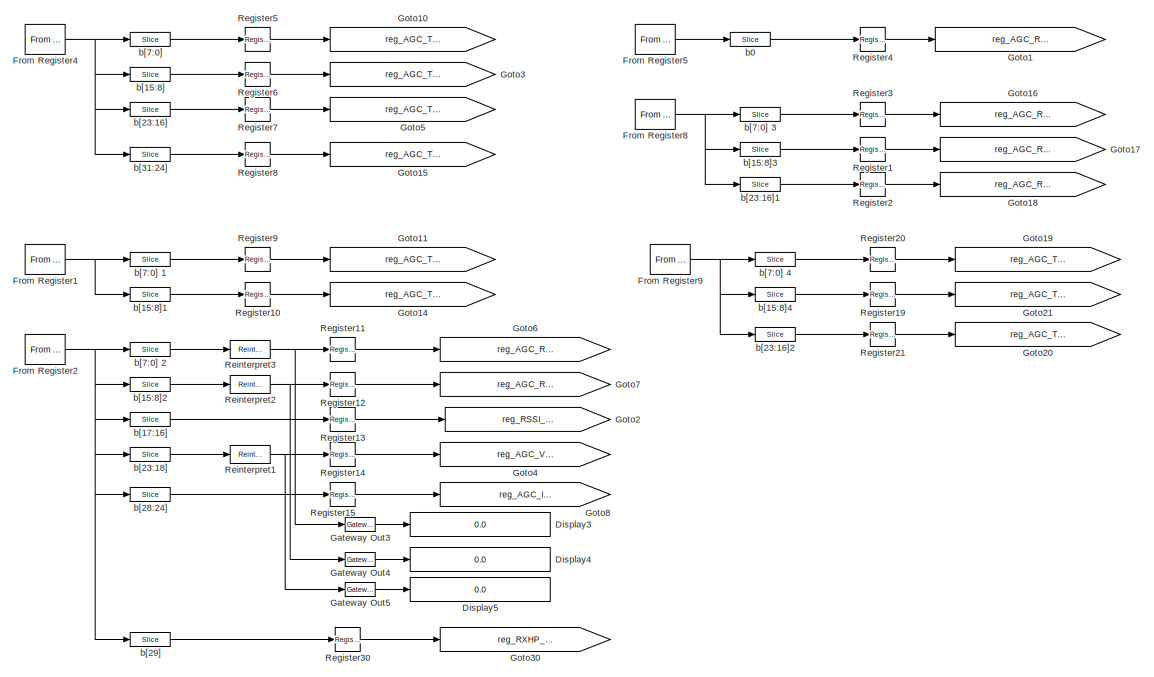
[diagram: Registers - part 1/2, full width, top band]
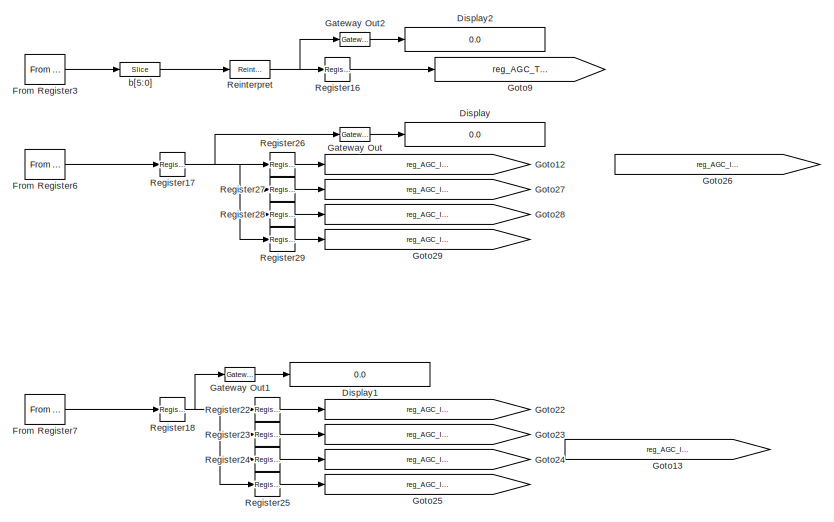
[diagram: Registers - part 2/2, bottom center region]
BLOCK [SubSystem] Registers
  FunctionWithSeparateData = off
  MaskHideContents = off
  MaskIconFrame = on
  MaskIconOpaque = on
  MaskIconRotate = none
  MaskIconUnits = autoscale
  MaskPortRotate = default
  MinAlgLoopOccurrences = off
  Opaque = off
  Ports = []
  PropExecContextOutsideSubsystem = off
  RTWSystemCode = Auto
  RequestExecContextInheritance = off
  SID = 1496
BLOCK [Display] Registers/Display
  Decimation = 1
  Format = long
  Lockdown = off
  MaskIconFrame = on
  MaskIconOpaque = on
  MaskIconRotate = none
  MaskIconUnits = autoscale
  MaskPortRotate = default
  Ports = [1]
  SID = 1497
BLOCK [Display] Registers/Display1
  Decimation = 1
  Format = long
  Lockdown = off
  MaskIconFrame = on
  MaskIconOpaque = on
  MaskIconRotate = none
  MaskIconUnits = autoscale
  MaskPortRotate = default
  Ports = [1]
  SID = 1498
BLOCK [Display] Registers/Display2
  Decimation = 1
  Format = long
  Lockdown = off
  MaskIconFrame = on
  MaskIconOpaque = on
  MaskIconRotate = none
  MaskIconUnits = autoscale
  MaskPortRotate = default
  Ports = [1]
  SID = 1499
BLOCK [Display] Registers/Display3
  Decimation = 1
  Format = long
  Lockdown = off
  MaskIconFrame = on
  MaskIconOpaque = on
  MaskIconRotate = none
  MaskIconUnits = autoscale
  MaskPortRotate = default
  Ports = [1]
  SID = 1500
BLOCK [Display] Registers/Display4
  Decimation = 1
  Format = long
  Lockdown = off
  MaskIconFrame = on
  MaskIconOpaque = on
  MaskIconRotate = none
  MaskIconUnits = autoscale
  MaskPortRotate = default
  Ports = [1]
  SID = 1501
BLOCK [Display] Registers/Display5
  Decimation = 1
  Format = long
  Lockdown = off
  MaskIconFrame = on
  MaskIconOpaque = on
  MaskIconRotate = none
  MaskIconUnits = autoscale
  MaskPortRotate = default
  Ports = [1]
  SID = 1502
BLOCK [Reference] Registers/From Register1  REF=xbsIndex_r4/From Register
  AttributesFormatString = << %<shared_memory_name> >>
  Ports = [0, 1]
  SID = 1503
  SourceBlock = xbsIndex_r4/From Register
  SourceType = Xilinx Shared Memory Based From Register Block
  arith_type = Unsigned
  bin_pt = 0
  block_type = fromreg
  dbl_ovrd = off
  gui_display_data_type = Fixed-point
  has_advanced_control = 0
  infoedit = Register block that reads data to a shared memory register.  Delay of one sample period.
  init = REG_AGC_Timing_DCO
  n_bits = 32
  ownership = Locally owned and initialized
  period = 1
  preci_type = Single
  sg_icon_stat = 40,30,0,1,white,blue,0,b27a07ff,right,,[ ],[ ]
  sg_mask_display = fprintf('','COMMENT: begin icon graphics');\npatch([0 40 40 0 0 ],[0 0 30 30 0 ],[0.77 0.82 0.91 ]);\nplot([0 40 40 0 0 ],[0 0 30 30 0 ]);\npatch([11.1 16.88 20.88 24.88 28.88 20.88 15.1 11.1 ],[19.44 19.44 23.44 19.44 23.44 23.44 23.44 19.44 ],[1 1 1 ]);\npatch([15.1 20.88 16.88 11.1 15.1 ],[15.44 15.44 19.44 19.44 15.44 ],[0.931 0.946 0.973 ]);\npatch([11.1 16.88 20.88 15.1 11.1 ],[11.44 11.44 1...<+312ch>  <repeated x9 — deduplicated; at blocks: From Register1, From Register2, From Register3, From Register4, From Register5, From Register6, From Register7, From Register8, From Register9>
  sggui_pos = -1,-1,-1,-1
  shared_memory_name = 'TIMING_DCO'
  xl_area = [0,0,0,0,0,0,0]
  xl_use_area = off
BLOCK [Reference] Registers/From Register2  REF=xbsIndex_r4/From Register
  AttributesFormatString = << %<shared_memory_name> >>
  Ports = [0, 1]
  SID = 1504
  SourceBlock = xbsIndex_r4/From Register
  SourceType = Xilinx Shared Memory Based From Register Block
  arith_type = Unsigned
  bin_pt = 0
  block_type = fromreg
  dbl_ovrd = off
  gui_display_data_type = Fixed-point
  has_advanced_control = 0
  infoedit = Register block that reads data to a shared memory register.  Delay of one sample period.
  init = REG_AGC_Config
  n_bits = 32
  ownership = Locally owned and initialized
  period = 1
  preci_type = Single
  sg_icon_stat = 40,30,0,1,white,blue,0,b27a07ff,right,,[ ],[ ]
  sggui_pos = -1,-1,-1,-1
  shared_memory_name = 'CONFIG'
  xl_area = [0,0,0,0,0,0,0]
  xl_use_area = off
BLOCK [Reference] Registers/From Register3  REF=xbsIndex_r4/From Register
  AttributesFormatString = << %<shared_memory_name> >>
  Ports = [0, 1]
  SID = 1505
  SourceBlock = xbsIndex_r4/From Register
  SourceType = Xilinx Shared Memory Based From Register Block
  arith_type = Unsigned
  bin_pt = 0
  block_type = fromreg
  dbl_ovrd = off
  gui_display_data_type = Fixed-point
  has_advanced_control = 0
  infoedit = Register block that reads data to a shared memory register.  Delay of one sample period.
  init = REG_AGC_Target
  n_bits = 32
  ownership = Locally owned and initialized
  period = 1
  preci_type = Single
  sg_icon_stat = 40,30,0,1,white,blue,0,b27a07ff,right,,[ ],[ ]
  sggui_pos = -1,-1,-1,-1
  shared_memory_name = 'TARGET'
  xl_area = [0,0,0,0,0,0,0]
  xl_use_area = off
BLOCK [Reference] Registers/From Register4  REF=xbsIndex_r4/From Register
  AttributesFormatString = << %<shared_memory_name> >>
  Ports = [0, 1]
  SID = 1506
  SourceBlock = xbsIndex_r4/From Register
  SourceType = Xilinx Shared Memory Based From Register Block
  arith_type = Unsigned
  bin_pt = 0
  block_type = fromreg
  dbl_ovrd = off
  gui_display_data_type = Fixed-point
  has_advanced_control = 0
  infoedit = Register block that reads data to a shared memory register.  Delay of one sample period.
  init = REG_AGC_Timing_AGC
  n_bits = 32
  ownership = Locally owned and initialized
  period = 1
  preci_type = Single
  sg_icon_stat = 40,30,0,1,white,blue,0,b27a07ff,right,,[ ],[ ]
  sggui_pos = -1,-1,-1,-1
  shared_memory_name = 'TIMING_AGC'
  xl_area = [0,0,0,0,0,0,0]
  xl_use_area = off
BLOCK [Reference] Registers/From Register5  REF=xbsIndex_r4/From Register
  AttributesFormatString = << %<shared_memory_name> >>
  Ports = [0, 1]
  SID = 1507
  SourceBlock = xbsIndex_r4/From Register
  SourceType = Xilinx Shared Memory Based From Register Block
  arith_type = Unsigned
  bin_pt = 0
  block_type = fromreg
  dbl_ovrd = off
  gui_display_data_type = Fixed-point
  has_advanced_control = 0
  infoedit = Register block that reads data to a shared memory register.  Delay of one sample period.
  init = 0
  n_bits = 32
  ownership = Locally owned and initialized
  period = 1
  preci_type = Single
  sg_icon_stat = 40,30,0,1,white,blue,0,b27a07ff,right,,[ ],[ ]
  sggui_pos = -1,-1,-1,-1
  shared_memory_name = 'RESET'
  xl_area = [0,0,0,0,0,0,0]
  xl_use_area = off
BLOCK [Reference] Registers/From Register6  REF=xbsIndex_r4/From Register
  AttributesFormatString = << %<shared_memory_name> >>
  Ports = [0, 1]
  SID = 1508
  SourceBlock = xbsIndex_r4/From Register
  SourceType = Xilinx Shared Memory Based From Register Block
  arith_type = Signed  (2's comp)
  bin_pt = 17
  block_type = fromreg
  dbl_ovrd = off
  gui_display_data_type = Fixed-point
  has_advanced_control = 0
  infoedit = Register block that reads data to a shared memory register.  Delay of one sample period.
  init = REG_AGC_IIR_Coef_A1
  n_bits = 18
  ownership = Locally owned and initialized
  period = 1
  preci_type = Single
  sg_icon_stat = 40,30,0,1,white,blue,0,b27a07ff,right,,[ ],[ ]
  sggui_pos = -1,-1,-1,-1
  shared_memory_name = 'IIR_COEF_A1'
  xl_area = [0,0,0,0,0,0,0]
  xl_use_area = off
BLOCK [Reference] Registers/From Register7  REF=xbsIndex_r4/From Register
  AttributesFormatString = << %<shared_memory_name> >>
  Ports = [0, 1]
  SID = 1509
  SourceBlock = xbsIndex_r4/From Register
  SourceType = Xilinx Shared Memory Based From Register Block
  arith_type = Unsigned
  bin_pt = 17
  block_type = fromreg
  dbl_ovrd = off
  gui_display_data_type = Fixed-point
  has_advanced_control = 0
  infoedit = Register block that reads data to a shared memory register.  Delay of one sample period.
  init = REG_AGC_IIR_Coef_B0
  n_bits = 18
  ownership = Locally owned and initialized
  period = 1
  preci_type = Single
  sg_icon_stat = 40,30,0,1,white,blue,0,b27a07ff,right,,[ ],[ ]
  sggui_pos = -1,-1,-1,-1
  shared_memory_name = 'IIR_COEF_B0'
  xl_area = [0,0,0,0,0,0,0]
  xl_use_area = off
BLOCK [Reference] Registers/From Register8  REF=xbsIndex_r4/From Register
  AttributesFormatString = << %<shared_memory_name> >>
  Ports = [0, 1]
  SID = 1510
  SourceBlock = xbsIndex_r4/From Register
  SourceType = Xilinx Shared Memory Based From Register Block
  arith_type = Unsigned
  bin_pt = 0
  block_type = fromreg
  dbl_ovrd = off
  gui_display_data_type = Fixed-point
  has_advanced_control = 0
  infoedit = Register block that reads data to a shared memory register.  Delay of one sample period.
  init = REG_AGC_RSSI_RX_PWR_CALIB
  n_bits = 32
  ownership = Locally owned and initialized
  period = 1
  preci_type = Single
  sg_icon_stat = 40,30,0,1,white,blue,0,b27a07ff,right,,[ ],[ ]
  sggui_pos = -1,-1,-1,-1
  shared_memory_name = 'RSSI_PWR_CALIB'
  xl_area = [0,0,0,0,0,0,0]
  xl_use_area = off
BLOCK [Reference] Registers/From Register9  REF=xbsIndex_r4/From Register
  AttributesFormatString = << %<shared_memory_name> >>
  Ports = [0, 1]
  SID = 1511
  SourceBlock = xbsIndex_r4/From Register
  SourceType = Xilinx Shared Memory Based From Register Block
  arith_type = Unsigned
  bin_pt = 0
  block_type = fromreg
  dbl_ovrd = off
  gui_display_data_type = Fixed-point
  has_advanced_control = 0
  infoedit = Register block that reads data to a shared memory register.  Delay of one sample period.
  init = REG_AGC_Timing_Reset
  n_bits = 32
  ownership = Locally owned and initialized
  period = 1
  preci_type = Single
  sg_icon_stat = 40,30,0,1,white,blue,0,b27a07ff,right,,[ ],[ ]
  sggui_pos = -1,-1,-1,-1
  shared_memory_name = 'TIMING_RESET'
  xl_area = [0,0,0,0,0,0,0]
  xl_use_area = off
BLOCK [Reference] Registers/Gateway Out  REF=xbsIndex_r4/Gateway Out
  DACChannel = '1'
  LOCs = {}
  Ports = [1, 1]
  SID = 1512
  SourceBlock = xbsIndex_r4/Gateway Out
  SourceType = Xilinx Gateway Out Block
  UseAsDAC = off
  block_type = gatewayout
  has_advanced_control = 0
  hdl_port = off
  inherit_from_input = off
  locs_specified = off
  sg_icon_stat = 30,14,1,1,white,grey,1,632ec840,right,,[ ],[ ]
  sg_mask_display = fprintf('','COMMENT: begin icon graphics');\npatch([0 30 30 0 0 ],[0 0 14 14 0 ],[0.88 0.88 0.88 ]);\nplot([0 30 30 0 0 ],[0 0 14 14 0 ]);\npatch([10.55 13.44 15.44 17.44 19.44 15.44 12.55 10.55 ],[9.22 9.22 11.22 9.22 11.22 11.22 11.22 9.22 ],[1 1 1 ]);\npatch([12.55 15.44 13.44 10.55 12.55 ],[7.22 7.22 9.22 9.22 7.22 ],[0.964 0.964 0.964 ]);\npatch([10.55 13.44 15.44 12.55 10.55 ],[5.22 5.22 7.2...<+382ch>  <repeated x6 — deduplicated; at blocks: Gateway Out, Gateway Out1, Gateway Out2, Gateway Out3, Gateway Out4, Gateway Out5>
  sggui_pos = -1,-1,-1,-1
  timing_constraint = None
  xl_area = [0,0,0,0,0,0,0]
  xl_use_area = off
BLOCK [Reference] Registers/Gateway Out1  REF=xbsIndex_r4/Gateway Out
  DACChannel = '1'
  LOCs = {}
  Ports = [1, 1]
  SID = 1513
  SourceBlock = xbsIndex_r4/Gateway Out
  SourceType = Xilinx Gateway Out Block
  UseAsDAC = off
  block_type = gatewayout
  has_advanced_control = 0
  hdl_port = off
  inherit_from_input = off
  locs_specified = off
  sg_icon_stat = 30,14,1,1,white,grey,1,632ec840,right,,[ ],[ ]
  sggui_pos = -1,-1,-1,-1
  timing_constraint = None
  xl_area = [0,0,0,0,0,0,0]
  xl_use_area = off
BLOCK [Reference] Registers/Gateway Out2  REF=xbsIndex_r4/Gateway Out
  DACChannel = '1'
  LOCs = {}
  Ports = [1, 1]
  SID = 1514
  SourceBlock = xbsIndex_r4/Gateway Out
  SourceType = Xilinx Gateway Out Block
  UseAsDAC = off
  block_type = gatewayout
  has_advanced_control = 0
  hdl_port = off
  inherit_from_input = off
  locs_specified = off
  sg_icon_stat = 30,14,1,1,white,grey,1,632ec840,right,,[ ],[ ]
  sggui_pos = -1,-1,-1,-1
  timing_constraint = None
  xl_area = [0,0,0,0,0,0,0]
  xl_use_area = off
BLOCK [Reference] Registers/Gateway Out3  REF=xbsIndex_r4/Gateway Out
  DACChannel = '1'
  LOCs = {}
  Ports = [1, 1]
  SID = 1515
  SourceBlock = xbsIndex_r4/Gateway Out
  SourceType = Xilinx Gateway Out Block
  UseAsDAC = off
  block_type = gatewayout
  has_advanced_control = 0
  hdl_port = off
  inherit_from_input = off
  locs_specified = off
  sg_icon_stat = 30,14,1,1,white,grey,1,632ec840,right,,[ ],[ ]
  sggui_pos = -1,-1,-1,-1
  timing_constraint = None
  xl_area = [0,0,0,0,0,0,0]
  xl_use_area = off
BLOCK [Reference] Registers/Gateway Out4  REF=xbsIndex_r4/Gateway Out
  DACChannel = '1'
  LOCs = {}
  Ports = [1, 1]
  SID = 1516
  SourceBlock = xbsIndex_r4/Gateway Out
  SourceType = Xilinx Gateway Out Block
  UseAsDAC = off
  block_type = gatewayout
  has_advanced_control = 0
  hdl_port = off
  inherit_from_input = off
  locs_specified = off
  sg_icon_stat = 30,14,1,1,white,grey,1,632ec840,right,,[ ],[ ]
  sggui_pos = -1,-1,-1,-1
  timing_constraint = None
  xl_area = [0,0,0,0,0,0,0]
  xl_use_area = off
BLOCK [Reference] Registers/Gateway Out5  REF=xbsIndex_r4/Gateway Out
  DACChannel = '1'
  LOCs = {}
  Ports = [1, 1]
  SID = 1517
  SourceBlock = xbsIndex_r4/Gateway Out
  SourceType = Xilinx Gateway Out Block
  UseAsDAC = off
  block_type = gatewayout
  has_advanced_control = 0
  hdl_port = off
  inherit_from_input = off
  locs_specified = off
  sg_icon_stat = 30,14,1,1,white,grey,1,632ec840,right,,[ ],[ ]
  sggui_pos = -1,-1,-1,-1
  timing_constraint = None
  xl_area = [0,0,0,0,0,0,0]
  xl_use_area = off
BLOCK [Goto] Registers/Goto1
  GotoTag = reg_AGC_RESET
  MaskIconFrame = on
  MaskIconOpaque = on
  MaskIconRotate = none
  MaskIconUnits = autoscale
  MaskPortRotate = default
  SID = 1518
  TagVisibility = global
BLOCK [Goto] Registers/Goto10
  GotoTag = reg_AGC_TIMING_CAPT_RSSI_1
  MaskIconFrame = on
  MaskIconOpaque = on
  MaskIconRotate = none
  MaskIconUnits = autoscale
  MaskPortRotate = default
  SID = 1519
  TagVisibility = global
BLOCK [Goto] Registers/Goto11
  GotoTag = reg_AGC_TIMING_START_DCO
  MaskIconFrame = on
  MaskIconOpaque = on
  MaskIconRotate = none
  MaskIconUnits = autoscale
  MaskPortRotate = default
  SID = 1520
  TagVisibility = global
BLOCK [Goto] Registers/Goto12
  GotoTag = reg_AGC_IIR_COEF_A1_A
  MaskIconFrame = on
  MaskIconOpaque = on
  MaskIconRotate = none
  MaskIconUnits = autoscale
  MaskPortRotate = default
  SID = 1521
  TagVisibility = global
BLOCK [Goto] Registers/Goto13
  GotoTag = reg_AGC_IIR_COEF_B0
  MaskIconFrame = on
  MaskIconOpaque = on
  MaskIconRotate = none
  MaskIconUnits = autoscale
  MaskPortRotate = default
  SID = 1522
  TagVisibility = global
BLOCK [Goto] Registers/Goto14
  GotoTag = reg_AGC_TIMING_EN_IIR
  MaskIconFrame = on
  MaskIconOpaque = on
  MaskIconRotate = none
  MaskIconUnits = autoscale
  MaskPortRotate = default
  SID = 1523
  TagVisibility = global
BLOCK [Goto] Registers/Goto15
  GotoTag = reg_AGC_TIMING_DONE
  MaskIconFrame = on
  MaskIconOpaque = on
  MaskIconRotate = none
  MaskIconUnits = autoscale
  MaskPortRotate = default
  SID = 1524
  TagVisibility = global
BLOCK [Goto] Registers/Goto16
  GotoTag = reg_AGC_RSSI_CALIB_G3
  MaskIconFrame = on
  MaskIconOpaque = on
  MaskIconRotate = none
  MaskIconUnits = autoscale
  MaskPortRotate = default
  SID = 1525
  TagVisibility = global
BLOCK [Goto] Registers/Goto17
  GotoTag = reg_AGC_RSSI_CALIB_G2
  MaskIconFrame = on
  MaskIconOpaque = on
  MaskIconRotate = none
  MaskIconUnits = autoscale
  MaskPortRotate = default
  SID = 1526
  TagVisibility = global
BLOCK [Goto] Registers/Goto18
  GotoTag = reg_AGC_RSSI_CALIB_G1
  MaskIconFrame = on
  MaskIconOpaque = on
  MaskIconRotate = none
  MaskIconUnits = autoscale
  MaskPortRotate = default
  SID = 1527
  TagVisibility = global
BLOCK [Goto] Registers/Goto19
  GotoTag = reg_AGC_TIMING_RESET_RXHP
  MaskIconFrame = on
  MaskIconOpaque = on
  MaskIconRotate = none
  MaskIconUnits = autoscale
  MaskPortRotate = default
  SID = 1528
  TagVisibility = global
BLOCK [Goto] Registers/Goto2
  GotoTag = reg_RSSI_AVG_LEN_SEL
  MaskIconFrame = on
  MaskIconOpaque = on
  MaskIconRotate = none
  MaskIconUnits = autoscale
  MaskPortRotate = default
  SID = 1529
  TagVisibility = global
BLOCK [Goto] Registers/Goto20
  GotoTag = reg_AGC_TIMING_RESET_G_BB
  MaskIconFrame = on
  MaskIconOpaque = on
  MaskIconRotate = none
  MaskIconUnits = autoscale
  MaskPortRotate = default
  SID = 1530
  TagVisibility = global
BLOCK [Goto] Registers/Goto21
  GotoTag = reg_AGC_TIMING_RESET_G_RF
  MaskIconFrame = on
  MaskIconOpaque = on
  MaskIconRotate = none
  MaskIconUnits = autoscale
  MaskPortRotate = default
  SID = 1531
  TagVisibility = global
BLOCK [Goto] Registers/Goto22
  GotoTag = reg_AGC_IIR_COEF_B0_A
  MaskIconFrame = on
  MaskIconOpaque = on
  MaskIconRotate = none
  MaskIconUnits = autoscale
  MaskPortRotate = default
  SID = 1532
  TagVisibility = global
BLOCK [Goto] Registers/Goto23
  GotoTag = reg_AGC_IIR_COEF_B0_B
  MaskIconFrame = on
  MaskIconOpaque = on
  MaskIconRotate = none
  MaskIconUnits = autoscale
  MaskPortRotate = default
  SID = 1533
  TagVisibility = global
BLOCK [Goto] Registers/Goto24
  GotoTag = reg_AGC_IIR_COEF_B0_C
  MaskIconFrame = on
  MaskIconOpaque = on
  MaskIconRotate = none
  MaskIconUnits = autoscale
  MaskPortRotate = default
  SID = 1534
  TagVisibility = global
BLOCK [Goto] Registers/Goto25
  GotoTag = reg_AGC_IIR_COEF_B0_D
  MaskIconFrame = on
  MaskIconOpaque = on
  MaskIconRotate = none
  MaskIconUnits = autoscale
  MaskPortRotate = default
  SID = 1535
  TagVisibility = global
BLOCK [Goto] Registers/Goto26
  GotoTag = reg_AGC_IIR_COEF_A1
  MaskIconFrame = on
  MaskIconOpaque = on
  MaskIconRotate = none
  MaskIconUnits = autoscale
  MaskPortRotate = default
  SID = 1536
  TagVisibility = global
BLOCK [Goto] Registers/Goto27
  GotoTag = reg_AGC_IIR_COEF_A1_B
  MaskIconFrame = on
  MaskIconOpaque = on
  MaskIconRotate = none
  MaskIconUnits = autoscale
  MaskPortRotate = default
  SID = 1537
  TagVisibility = global
BLOCK [Goto] Registers/Goto28
  GotoTag = reg_AGC_IIR_COEF_A1_C
  MaskIconFrame = on
  MaskIconOpaque = on
  MaskIconRotate = none
  MaskIconUnits = autoscale
  MaskPortRotate = default
  SID = 1538
  TagVisibility = global
BLOCK [Goto] Registers/Goto29
  GotoTag = reg_AGC_IIR_COEF_A1_D
  MaskIconFrame = on
  MaskIconOpaque = on
  MaskIconRotate = none
  MaskIconUnits = autoscale
  MaskPortRotate = default
  SID = 1539
  TagVisibility = global
BLOCK [Goto] Registers/Goto3
  GotoTag = reg_AGC_TIMING_CAPT_RSSI_2
  MaskIconFrame = on
  MaskIconOpaque = on
  MaskIconRotate = none
  MaskIconUnits = autoscale
  MaskPortRotate = default
  SID = 1540
  TagVisibility = global
BLOCK [Goto] Registers/Goto30
  GotoTag = reg_RXHP_Ctrl_Mode
  MaskIconFrame = on
  MaskIconOpaque = on
  MaskIconRotate = none
  MaskIconUnits = autoscale
  MaskPortRotate = default
  SID = 1623
  TagVisibility = global
BLOCK [Goto] Registers/Goto4
  GotoTag = reg_AGC_V_DB_ADJ
  MaskIconFrame = on
  MaskIconOpaque = on
  MaskIconRotate = none
  MaskIconUnits = autoscale
  MaskPortRotate = default
  SID = 1541
  TagVisibility = global
BLOCK [Goto] Registers/Goto5
  GotoTag = reg_AGC_TIMING_CAPT_V_DB
  MaskIconFrame = on
  MaskIconOpaque = on
  MaskIconRotate = none
  MaskIconUnits = autoscale
  MaskPortRotate = default
  SID = 1542
  TagVisibility = global
BLOCK [Goto] Registers/Goto6
  GotoTag = reg_AGC_RFG_THRESH_32
  MaskIconFrame = on
  MaskIconOpaque = on
  MaskIconRotate = none
  MaskIconUnits = autoscale
  MaskPortRotate = default
  SID = 1543
  TagVisibility = global
BLOCK [Goto] Registers/Goto7
  GotoTag = reg_AGC_RFG_THRESH_21
  MaskIconFrame = on
  MaskIconOpaque = on
  MaskIconRotate = none
  MaskIconUnits = autoscale
  MaskPortRotate = default
  SID = 1544
  TagVisibility = global
BLOCK [Goto] Registers/Goto8
  GotoTag = reg_AGC_INIT_G_BB
  MaskIconFrame = on
  MaskIconOpaque = on
  MaskIconRotate = none
  MaskIconUnits = autoscale
  MaskPortRotate = default
  SID = 1545
  TagVisibility = global
BLOCK [Goto] Registers/Goto9
  GotoTag = reg_AGC_TARGET_PWR
  MaskIconFrame = on
  MaskIconOpaque = on
  MaskIconRotate = none
  MaskIconUnits = autoscale
  MaskPortRotate = default
  SID = 1546
  TagVisibility = global
BLOCK [Reference] Registers/Register1  REF=xbsIndex_r4/Register
  Ports = [1, 1]
  SID = 1547
  SourceBlock = xbsIndex_r4/Register
  SourceType = Xilinx Register Block
  block_type = register
  dbl_ovrd = off
  en = off
  has_advanced_control = 0
  init = 0
  rst = off
  sg_icon_stat = 25,24,1,1,white,blue,0,c80657c5,right,,[ ],[ ]
  sg_mask_display = fprintf('','COMMENT: begin icon graphics');\npatch([0 25 25 0 0 ],[0 0 24 24 0 ],[0.77 0.82 0.91 ]);\nplot([0 25 25 0 0 ],[0 0 24 24 0 ]);\npatch([5.325 9.66 12.66 15.66 18.66 12.66 8.325 5.325 ],[15.33 15.33 18.33 15.33 18.33 18.33 18.33 15.33 ],[1 1 1 ]);\npatch([8.325 12.66 9.66 5.325 8.325 ],[12.33 12.33 15.33 15.33 12.33 ],[0.931 0.946 0.973 ]);\npatch([5.325 9.66 12.66 8.325 5.325 ],[9.33 9....<+401ch>  <repeated x30 — deduplicated; at blocks: Register1, Register10, Register11, Register12, Register13, Register14, Register15, Register16, Register17, Register18, Register19, Register2, Register20, Register21, Register22, Register23, +14 more>
  sggui_pos = -1,-1,-1,-1
  xl_area = [0,0,0,0,0,0,0]
  xl_use_area = off
BLOCK [Reference] Registers/Register10  REF=xbsIndex_r4/Register
  Ports = [1, 1]
  SID = 1548
  SourceBlock = xbsIndex_r4/Register
  SourceType = Xilinx Register Block
  block_type = register
  dbl_ovrd = off
  en = off
  has_advanced_control = 0
  init = 0
  rst = off
  sg_icon_stat = 25,24,1,1,white,blue,0,c80657c5,right,,[ ],[ ]
  sggui_pos = -1,-1,-1,-1
  xl_area = [0,0,0,0,0,0,0]
  xl_use_area = off
BLOCK [Reference] Registers/Register11  REF=xbsIndex_r4/Register
  Ports = [1, 1]
  SID = 1549
  SourceBlock = xbsIndex_r4/Register
  SourceType = Xilinx Register Block
  block_type = register
  dbl_ovrd = off
  en = off
  has_advanced_control = 0
  init = 0
  rst = off
  sg_icon_stat = 25,24,1,1,white,blue,0,c80657c5,right,,[ ],[ ]
  sggui_pos = -1,-1,-1,-1
  xl_area = [0,0,0,0,0,0,0]
  xl_use_area = off
BLOCK [Reference] Registers/Register12  REF=xbsIndex_r4/Register
  Ports = [1, 1]
  SID = 1550
  SourceBlock = xbsIndex_r4/Register
  SourceType = Xilinx Register Block
  block_type = register
  dbl_ovrd = off
  en = off
  has_advanced_control = 0
  init = 0
  rst = off
  sg_icon_stat = 25,24,1,1,white,blue,0,c80657c5,right,,[ ],[ ]
  sggui_pos = -1,-1,-1,-1
  xl_area = [0,0,0,0,0,0,0]
  xl_use_area = off
BLOCK [Reference] Registers/Register13  REF=xbsIndex_r4/Register
  Ports = [1, 1]
  SID = 1551
  SourceBlock = xbsIndex_r4/Register
  SourceType = Xilinx Register Block
  block_type = register
  dbl_ovrd = off
  en = off
  has_advanced_control = 0
  init = 0
  rst = off
  sg_icon_stat = 25,24,1,1,white,blue,0,c80657c5,right,,[ ],[ ]
  sggui_pos = -1,-1,-1,-1
  xl_area = [0,0,0,0,0,0,0]
  xl_use_area = off
BLOCK [Reference] Registers/Register14  REF=xbsIndex_r4/Register
  Ports = [1, 1]
  SID = 1552
  SourceBlock = xbsIndex_r4/Register
  SourceType = Xilinx Register Block
  block_type = register
  dbl_ovrd = off
  en = off
  has_advanced_control = 0
  init = 0
  rst = off
  sg_icon_stat = 25,24,1,1,white,blue,0,c80657c5,right,,[ ],[ ]
  sggui_pos = -1,-1,-1,-1
  xl_area = [0,0,0,0,0,0,0]
  xl_use_area = off
BLOCK [Reference] Registers/Register15  REF=xbsIndex_r4/Register
  Ports = [1, 1]
  SID = 1553
  SourceBlock = xbsIndex_r4/Register
  SourceType = Xilinx Register Block
  block_type = register
  dbl_ovrd = off
  en = off
  has_advanced_control = 0
  init = 0
  rst = off
  sg_icon_stat = 25,24,1,1,white,blue,0,c80657c5,right,,[ ],[ ]
  sggui_pos = -1,-1,-1,-1
  xl_area = [0,0,0,0,0,0,0]
  xl_use_area = off
BLOCK [Reference] Registers/Register16  REF=xbsIndex_r4/Register
  Ports = [1, 1]
  SID = 1554
  SourceBlock = xbsIndex_r4/Register
  SourceType = Xilinx Register Block
  block_type = register
  dbl_ovrd = off
  en = off
  has_advanced_control = 0
  init = 0
  rst = off
  sg_icon_stat = 25,24,1,1,white,blue,0,c80657c5,right,,[ ],[ ]
  sggui_pos = -1,-1,-1,-1
  xl_area = [0,0,0,0,0,0,0]
  xl_use_area = off
BLOCK [Reference] Registers/Register17  REF=xbsIndex_r4/Register
  Ports = [1, 1]
  SID = 1555
  SourceBlock = xbsIndex_r4/Register
  SourceType = Xilinx Register Block
  block_type = register
  dbl_ovrd = off
  en = off
  has_advanced_control = 0
  init = 0
  rst = off
  sg_icon_stat = 25,24,1,1,white,blue,0,c80657c5,right,,[ ],[ ]
  sggui_pos = -1,-1,-1,-1
  xl_area = [0,0,0,0,0,0,0]
  xl_use_area = off
BLOCK [Reference] Registers/Register18  REF=xbsIndex_r4/Register
  Ports = [1, 1]
  SID = 1556
  SourceBlock = xbsIndex_r4/Register
  SourceType = Xilinx Register Block
  block_type = register
  dbl_ovrd = off
  en = off
  has_advanced_control = 0
  init = 0
  rst = off
  sg_icon_stat = 25,24,1,1,white,blue,0,c80657c5,right,,[ ],[ ]
  sggui_pos = -1,-1,-1,-1
  xl_area = [0,0,0,0,0,0,0]
  xl_use_area = off
BLOCK [Reference] Registers/Register19  REF=xbsIndex_r4/Register
  Ports = [1, 1]
  SID = 1557
  SourceBlock = xbsIndex_r4/Register
  SourceType = Xilinx Register Block
  block_type = register
  dbl_ovrd = off
  en = off
  has_advanced_control = 0
  init = 0
  rst = off
  sg_icon_stat = 25,24,1,1,white,blue,0,c80657c5,right,,[ ],[ ]
  sggui_pos = -1,-1,-1,-1
  xl_area = [0,0,0,0,0,0,0]
  xl_use_area = off
BLOCK [Reference] Registers/Register2  REF=xbsIndex_r4/Register
  Ports = [1, 1]
  SID = 1558
  SourceBlock = xbsIndex_r4/Register
  SourceType = Xilinx Register Block
  block_type = register
  dbl_ovrd = off
  en = off
  has_advanced_control = 0
  init = 0
  rst = off
  sg_icon_stat = 25,24,1,1,white,blue,0,c80657c5,right,,[ ],[ ]
  sggui_pos = -1,-1,-1,-1
  xl_area = [0,0,0,0,0,0,0]
  xl_use_area = off
BLOCK [Reference] Registers/Register20  REF=xbsIndex_r4/Register
  Ports = [1, 1]
  SID = 1559
  SourceBlock = xbsIndex_r4/Register
  SourceType = Xilinx Register Block
  block_type = register
  dbl_ovrd = off
  en = off
  has_advanced_control = 0
  init = 0
  rst = off
  sg_icon_stat = 25,24,1,1,white,blue,0,c80657c5,right,,[ ],[ ]
  sggui_pos = -1,-1,-1,-1
  xl_area = [0,0,0,0,0,0,0]
  xl_use_area = off
BLOCK [Reference] Registers/Register21  REF=xbsIndex_r4/Register
  Ports = [1, 1]
  SID = 1560
  SourceBlock = xbsIndex_r4/Register
  SourceType = Xilinx Register Block
  block_type = register
  dbl_ovrd = off
  en = off
  has_advanced_control = 0
  init = 0
  rst = off
  sg_icon_stat = 25,24,1,1,white,blue,0,c80657c5,right,,[ ],[ ]
  sggui_pos = -1,-1,-1,-1
  xl_area = [0,0,0,0,0,0,0]
  xl_use_area = off
BLOCK [Reference] Registers/Register22  REF=xbsIndex_r4/Register
  Ports = [1, 1]
  SID = 1561
  SourceBlock = xbsIndex_r4/Register
  SourceType = Xilinx Register Block
  block_type = register
  dbl_ovrd = off
  en = off
  has_advanced_control = 0
  init = 0
  rst = off
  sg_icon_stat = 25,24,1,1,white,blue,0,c80657c5,right,,[ ],[ ]
  sggui_pos = -1,-1,-1,-1
  xl_area = [0,0,0,0,0,0,0]
  xl_use_area = off
BLOCK [Reference] Registers/Register23  REF=xbsIndex_r4/Register
  Ports = [1, 1]
  SID = 1562
  SourceBlock = xbsIndex_r4/Register
  SourceType = Xilinx Register Block
  block_type = register
  dbl_ovrd = off
  en = off
  has_advanced_control = 0
  init = 0
  rst = off
  sg_icon_stat = 25,24,1,1,white,blue,0,c80657c5,right,,[ ],[ ]
  sggui_pos = -1,-1,-1,-1
  xl_area = [0,0,0,0,0,0,0]
  xl_use_area = off
BLOCK [Reference] Registers/Register24  REF=xbsIndex_r4/Register
  Ports = [1, 1]
  SID = 1563
  SourceBlock = xbsIndex_r4/Register
  SourceType = Xilinx Register Block
  block_type = register
  dbl_ovrd = off
  en = off
  has_advanced_control = 0
  init = 0
  rst = off
  sg_icon_stat = 25,24,1,1,white,blue,0,c80657c5,right,,[ ],[ ]
  sggui_pos = -1,-1,-1,-1
  xl_area = [0,0,0,0,0,0,0]
  xl_use_area = off
BLOCK [Reference] Registers/Register25  REF=xbsIndex_r4/Register
  Ports = [1, 1]
  SID = 1564
  SourceBlock = xbsIndex_r4/Register
  SourceType = Xilinx Register Block
  block_type = register
  dbl_ovrd = off
  en = off
  has_advanced_control = 0
  init = 0
  rst = off
  sg_icon_stat = 25,24,1,1,white,blue,0,c80657c5,right,,[ ],[ ]
  sggui_pos = -1,-1,-1,-1
  xl_area = [0,0,0,0,0,0,0]
  xl_use_area = off
BLOCK [Reference] Registers/Register26  REF=xbsIndex_r4/Register
  Ports = [1, 1]
  SID = 1565
  SourceBlock = xbsIndex_r4/Register
  SourceType = Xilinx Register Block
  block_type = register
  dbl_ovrd = off
  en = off
  has_advanced_control = 0
  init = 0
  rst = off
  sg_icon_stat = 25,24,1,1,white,blue,0,c80657c5,right,,[ ],[ ]
  sggui_pos = -1,-1,-1,-1
  xl_area = [0,0,0,0,0,0,0]
  xl_use_area = off
BLOCK [Reference] Registers/Register27  REF=xbsIndex_r4/Register
  Ports = [1, 1]
  SID = 1566
  SourceBlock = xbsIndex_r4/Register
  SourceType = Xilinx Register Block
  block_type = register
  dbl_ovrd = off
  en = off
  has_advanced_control = 0
  init = 0
  rst = off
  sg_icon_stat = 25,24,1,1,white,blue,0,c80657c5,right,,[ ],[ ]
  sggui_pos = -1,-1,-1,-1
  xl_area = [0,0,0,0,0,0,0]
  xl_use_area = off
BLOCK [Reference] Registers/Register28  REF=xbsIndex_r4/Register
  Ports = [1, 1]
  SID = 1567
  SourceBlock = xbsIndex_r4/Register
  SourceType = Xilinx Register Block
  block_type = register
  dbl_ovrd = off
  en = off
  has_advanced_control = 0
  init = 0
  rst = off
  sg_icon_stat = 25,24,1,1,white,blue,0,c80657c5,right,,[ ],[ ]
  sggui_pos = -1,-1,-1,-1
  xl_area = [0,0,0,0,0,0,0]
  xl_use_area = off
BLOCK [Reference] Registers/Register29  REF=xbsIndex_r4/Register
  Ports = [1, 1]
  SID = 1568
  SourceBlock = xbsIndex_r4/Register
  SourceType = Xilinx Register Block
  block_type = register
  dbl_ovrd = off
  en = off
  has_advanced_control = 0
  init = 0
  rst = off
  sg_icon_stat = 25,24,1,1,white,blue,0,c80657c5,right,,[ ],[ ]
  sggui_pos = -1,-1,-1,-1
  xl_area = [0,0,0,0,0,0,0]
  xl_use_area = off
BLOCK [Reference] Registers/Register3  REF=xbsIndex_r4/Register
  Ports = [1, 1]
  SID = 1569
  SourceBlock = xbsIndex_r4/Register
  SourceType = Xilinx Register Block
  block_type = register
  dbl_ovrd = off
  en = off
  has_advanced_control = 0
  init = 0
  rst = off
  sg_icon_stat = 25,24,1,1,white,blue,0,c80657c5,right,,[ ],[ ]
  sggui_pos = -1,-1,-1,-1
  xl_area = [0,0,0,0,0,0,0]
  xl_use_area = off
BLOCK [Reference] Registers/Register30  REF=xbsIndex_r4/Register
  Ports = [1, 1]
  SID = 1622
  SourceBlock = xbsIndex_r4/Register
  SourceType = Xilinx Register Block
  block_type = register
  dbl_ovrd = off
  en = off
  has_advanced_control = 0
  init = 0
  rst = off
  sg_icon_stat = 25,24,1,1,white,blue,0,c80657c5,right,,[ ],[ ]
  sggui_pos = -1,-1,-1,-1
  xl_area = [0,0,0,0,0,0,0]
  xl_use_area = off
BLOCK [Reference] Registers/Register4  REF=xbsIndex_r4/Register
  Ports = [1, 1]
  SID = 1570
  SourceBlock = xbsIndex_r4/Register
  SourceType = Xilinx Register Block
  block_type = register
  dbl_ovrd = off
  en = off
  has_advanced_control = 0
  init = 0
  rst = off
  sg_icon_stat = 25,24,1,1,white,blue,0,c80657c5,right,,[ ],[ ]
  sggui_pos = -1,-1,-1,-1
  xl_area = [0,0,0,0,0,0,0]
  xl_use_area = off
BLOCK [Reference] Registers/Register5  REF=xbsIndex_r4/Register
  Ports = [1, 1]
  SID = 1571
  SourceBlock = xbsIndex_r4/Register
  SourceType = Xilinx Register Block
  block_type = register
  dbl_ovrd = off
  en = off
  has_advanced_control = 0
  init = 0
  rst = off
  sg_icon_stat = 25,24,1,1,white,blue,0,c80657c5,right,,[ ],[ ]
  sggui_pos = -1,-1,-1,-1
  xl_area = [0,0,0,0,0,0,0]
  xl_use_area = off
BLOCK [Reference] Registers/Register6  REF=xbsIndex_r4/Register
  Ports = [1, 1]
  SID = 1572
  SourceBlock = xbsIndex_r4/Register
  SourceType = Xilinx Register Block
  block_type = register
  dbl_ovrd = off
  en = off
  has_advanced_control = 0
  init = 0
  rst = off
  sg_icon_stat = 25,24,1,1,white,blue,0,c80657c5,right,,[ ],[ ]
  sggui_pos = -1,-1,-1,-1
  xl_area = [0,0,0,0,0,0,0]
  xl_use_area = off
BLOCK [Reference] Registers/Register7  REF=xbsIndex_r4/Register
  Ports = [1, 1]
  SID = 1573
  SourceBlock = xbsIndex_r4/Register
  SourceType = Xilinx Register Block
  block_type = register
  dbl_ovrd = off
  en = off
  has_advanced_control = 0
  init = 0
  rst = off
  sg_icon_stat = 25,24,1,1,white,blue,0,c80657c5,right,,[ ],[ ]
  sggui_pos = -1,-1,-1,-1
  xl_area = [0,0,0,0,0,0,0]
  xl_use_area = off
BLOCK [Reference] Registers/Register8  REF=xbsIndex_r4/Register
  Ports = [1, 1]
  SID = 1574
  SourceBlock = xbsIndex_r4/Register
  SourceType = Xilinx Register Block
  block_type = register
  dbl_ovrd = off
  en = off
  has_advanced_control = 0
  init = 0
  rst = off
  sg_icon_stat = 25,24,1,1,white,blue,0,c80657c5,right,,[ ],[ ]
  sggui_pos = -1,-1,-1,-1
  xl_area = [0,0,0,0,0,0,0]
  xl_use_area = off
BLOCK [Reference] Registers/Register9  REF=xbsIndex_r4/Register
  Ports = [1, 1]
  SID = 1575
  SourceBlock = xbsIndex_r4/Register
  SourceType = Xilinx Register Block
  block_type = register
  dbl_ovrd = off
  en = off
  has_advanced_control = 0
  init = 0
  rst = off
  sg_icon_stat = 25,24,1,1,white,blue,0,c80657c5,right,,[ ],[ ]
  sggui_pos = -1,-1,-1,-1
  xl_area = [0,0,0,0,0,0,0]
  xl_use_area = off
BLOCK [Reference] Registers/Reinterpret  REF=xbsIndex_r4/Reinterpret
  Ports = [1, 1]
  SID = 1576
  SourceBlock = xbsIndex_r4/Reinterpret
  SourceType = Xilinx Type Reinterpreter Block
  arith_type = Signed  (2's comp)
  bin_pt = 0
  block_type = reinterpret
  force_arith_type = on
  force_bin_pt = off
  has_advanced_control = 0
  sg_icon_stat = 40,18,1,1,white,blue,0,6b04d0b0,right,,[ ],[ ]
  sg_mask_display = fprintf('','COMMENT: begin icon graphics');\npatch([0 40 40 0 0 ],[0 0 18 18 0 ],[0.77 0.82 0.91 ]);\nplot([0 40 40 0 0 ],[0 0 18 18 0 ]);\npatch([15.55 18.44 20.44 22.44 24.44 20.44 17.55 15.55 ],[11.22 11.22 13.22 11.22 13.22 13.22 13.22 11.22 ],[1 1 1 ]);\npatch([17.55 20.44 18.44 15.55 17.55 ],[9.22 9.22 11.22 11.22 9.22 ],[0.931 0.946 0.973 ]);\npatch([15.55 18.44 20.44 17.55 15.55 ],[7.22 7....<+307ch>  <repeated x4 — deduplicated; at blocks: Reinterpret, Reinterpret1, Reinterpret2, Reinterpret3>
  sggui_pos = -1,-1,-1,-1
BLOCK [Reference] Registers/Reinterpret1  REF=xbsIndex_r4/Reinterpret
  Ports = [1, 1]
  SID = 1577
  SourceBlock = xbsIndex_r4/Reinterpret
  SourceType = Xilinx Type Reinterpreter Block
  arith_type = Signed  (2's comp)
  bin_pt = 0
  block_type = reinterpret
  force_arith_type = on
  force_bin_pt = off
  has_advanced_control = 0
  sg_icon_stat = 40,18,1,1,white,blue,0,6b04d0b0,right,,[ ],[ ]
  sggui_pos = -1,-1,-1,-1
BLOCK [Reference] Registers/Reinterpret2  REF=xbsIndex_r4/Reinterpret
  Ports = [1, 1]
  SID = 1578
  SourceBlock = xbsIndex_r4/Reinterpret
  SourceType = Xilinx Type Reinterpreter Block
  arith_type = Signed  (2's comp)
  bin_pt = 0
  block_type = reinterpret
  force_arith_type = on
  force_bin_pt = off
  has_advanced_control = 0
  sg_icon_stat = 40,18,1,1,white,blue,0,6b04d0b0,right,,[ ],[ ]
  sggui_pos = -1,-1,-1,-1
BLOCK [Reference] Registers/Reinterpret3  REF=xbsIndex_r4/Reinterpret
  Ports = [1, 1]
  SID = 1579
  SourceBlock = xbsIndex_r4/Reinterpret
  SourceType = Xilinx Type Reinterpreter Block
  arith_type = Signed  (2's comp)
  bin_pt = 0
  block_type = reinterpret
  force_arith_type = on
  force_bin_pt = off
  has_advanced_control = 0
  sg_icon_stat = 40,18,1,1,white,blue,0,6b04d0b0,right,,[ ],[ ]
  sggui_pos = -1,-1,-1,-1
BLOCK [Reference] Registers/b0  REF=xbsIndex_r4/Slice
  Ports = [1, 1]
  SID = 1580
  SourceBlock = xbsIndex_r4/Slice
  SourceType = Xilinx Bit Slice Extractor Block
  base0 = LSB of Input
  base1 = MSB of Input
  bit0 = 0
  bit1 = 0
  block_type = slice
  block_version = VER_STRING_GOES_HERE
  boolean_output = on
  dbl_ovrd = off
  has_advanced_control = 0
  infoedit = Extracts a given range of bits from each input sample and presents it at the output.  The output type is ordinarily unsigned with binary point at zero, but can be Boolean when the slice is one bit wide.<br><br>Hardware notes: In hardware this block costs nothing.  <repeated x20 — deduplicated; at blocks: b0, b[15:8], b[15:8]1, b[15:8]2, b[15:8]3, b[15:8]4, b[17:16], b[23:16], b[23:16]1, b[23:16]2, b[23:18], b[28:24], b[29], b[31:24], b[5:0], b[7:0], +4 more>
  mode = Lower Bit Location + Width
  nbits = 1
  sg_icon_stat = 40,14,1,1,white,blue,0,1fd851a7,right,,[ ],[ ]
  sg_mask_display = fprintf('','COMMENT: begin icon graphics');\npatch([0 40 40 0 0 ],[0 0 14 14 0 ],[0.77 0.82 0.91 ]);\nplot([0 40 40 0 0 ],[0 0 14 14 0 ]);\npatch([15.55 18.44 20.44 22.44 24.44 20.44 17.55 15.55 ],[9.22 9.22 11.22 9.22 11.22 11.22 11.22 9.22 ],[1 1 1 ]);\npatch([17.55 20.44 18.44 15.55 17.55 ],[7.22 7.22 9.22 9.22 7.22 ],[0.931 0.946 0.973 ]);\npatch([15.55 18.44 20.44 17.55 15.55 ],[5.22 5.22 7.2...<+310ch>  <repeated x20 — deduplicated; at blocks: b0, b[15:8], b[15:8]1, b[15:8]2, b[15:8]3, b[15:8]4, b[17:16], b[23:16], b[23:16]1, b[23:16]2, b[23:18], b[28:24], b[29], b[31:24], b[5:0], b[7:0], +4 more>
  sggui_pos = 20,20,449,398
BLOCK [Reference] Registers/b[15:8]  REF=xbsIndex_r4/Slice
  Ports = [1, 1]
  SID = 1581
  SourceBlock = xbsIndex_r4/Slice
  SourceType = Xilinx Bit Slice Extractor Block
  base0 = LSB of Input
  base1 = MSB of Input
  bit0 = 8
  bit1 = 0
  block_type = slice
  block_version = VER_STRING_GOES_HERE
  boolean_output = off
  dbl_ovrd = off
  has_advanced_control = 0
  mode = Lower Bit Location + Width
  nbits = 8
  sg_icon_stat = 40,14,1,1,white,blue,0,1fd851a7,right,,[ ],[ ]
  sggui_pos = 20,20,449,398
BLOCK [Reference] Registers/b[15:8]1  REF=xbsIndex_r4/Slice
  Ports = [1, 1]
  SID = 1582
  SourceBlock = xbsIndex_r4/Slice
  SourceType = Xilinx Bit Slice Extractor Block
  base0 = LSB of Input
  base1 = MSB of Input
  bit0 = 8
  bit1 = 0
  block_type = slice
  block_version = VER_STRING_GOES_HERE
  boolean_output = off
  dbl_ovrd = off
  has_advanced_control = 0
  mode = Lower Bit Location + Width
  nbits = 8
  sg_icon_stat = 40,14,1,1,white,blue,0,1fd851a7,right,,[ ],[ ]
  sggui_pos = 20,20,449,398
BLOCK [Reference] Registers/b[15:8]2  REF=xbsIndex_r4/Slice
  Ports = [1, 1]
  SID = 1583
  SourceBlock = xbsIndex_r4/Slice
  SourceType = Xilinx Bit Slice Extractor Block
  base0 = LSB of Input
  base1 = MSB of Input
  bit0 = 8
  bit1 = 0
  block_type = slice
  block_version = VER_STRING_GOES_HERE
  boolean_output = off
  dbl_ovrd = off
  has_advanced_control = 0
  mode = Lower Bit Location + Width
  nbits = 8
  sg_icon_stat = 40,14,1,1,white,blue,0,1fd851a7,right,,[ ],[ ]
  sggui_pos = 20,20,449,398
BLOCK [Reference] Registers/b[15:8]3  REF=xbsIndex_r4/Slice
  Ports = [1, 1]
  SID = 1584
  SourceBlock = xbsIndex_r4/Slice
  SourceType = Xilinx Bit Slice Extractor Block
  base0 = LSB of Input
  base1 = MSB of Input
  bit0 = 8
  bit1 = 0
  block_type = slice
  block_version = VER_STRING_GOES_HERE
  boolean_output = off
  dbl_ovrd = off
  has_advanced_control = 0
  mode = Lower Bit Location + Width
  nbits = 8
  sg_icon_stat = 40,14,1,1,white,blue,0,1fd851a7,right,,[ ],[ ]
  sggui_pos = 20,20,449,398
BLOCK [Reference] Registers/b[15:8]4  REF=xbsIndex_r4/Slice
  Ports = [1, 1]
  SID = 1585
  SourceBlock = xbsIndex_r4/Slice
  SourceType = Xilinx Bit Slice Extractor Block
  base0 = LSB of Input
  base1 = MSB of Input
  bit0 = 8
  bit1 = 0
  block_type = slice
  block_version = VER_STRING_GOES_HERE
  boolean_output = off
  dbl_ovrd = off
  has_advanced_control = 0
  mode = Lower Bit Location + Width
  nbits = 8
  sg_icon_stat = 40,14,1,1,white,blue,0,1fd851a7,right,,[ ],[ ]
  sggui_pos = 20,20,449,398
BLOCK [Reference] Registers/b[17:16]  REF=xbsIndex_r4/Slice
  Ports = [1, 1]
  SID = 1586
  SourceBlock = xbsIndex_r4/Slice
  SourceType = Xilinx Bit Slice Extractor Block
  base0 = LSB of Input
  base1 = MSB of Input
  bit0 = 16
  bit1 = 0
  block_type = slice
  block_version = VER_STRING_GOES_HERE
  boolean_output = off
  dbl_ovrd = off
  has_advanced_control = 0
  mode = Lower Bit Location + Width
  nbits = 2
  sg_icon_stat = 40,14,1,1,white,blue,0,1fd851a7,right,,[ ],[ ]
  sggui_pos = 20,20,449,398
BLOCK [Reference] Registers/b[23:16]  REF=xbsIndex_r4/Slice
  Ports = [1, 1]
  SID = 1587
  SourceBlock = xbsIndex_r4/Slice
  SourceType = Xilinx Bit Slice Extractor Block
  base0 = LSB of Input
  base1 = MSB of Input
  bit0 = 16
  bit1 = 0
  block_type = slice
  block_version = VER_STRING_GOES_HERE
  boolean_output = off
  dbl_ovrd = off
  has_advanced_control = 0
  mode = Lower Bit Location + Width
  nbits = 8
  sg_icon_stat = 40,14,1,1,white,blue,0,1fd851a7,right,,[ ],[ ]
  sggui_pos = 20,20,449,398
BLOCK [Reference] Registers/b[23:16]1  REF=xbsIndex_r4/Slice
  Ports = [1, 1]
  SID = 1588
  SourceBlock = xbsIndex_r4/Slice
  SourceType = Xilinx Bit Slice Extractor Block
  base0 = LSB of Input
  base1 = MSB of Input
  bit0 = 16
  bit1 = 0
  block_type = slice
  block_version = VER_STRING_GOES_HERE
  boolean_output = off
  dbl_ovrd = off
  has_advanced_control = 0
  mode = Lower Bit Location + Width
  nbits = 8
  sg_icon_stat = 40,14,1,1,white,blue,0,1fd851a7,right,,[ ],[ ]
  sggui_pos = 20,20,449,398
BLOCK [Reference] Registers/b[23:16]2  REF=xbsIndex_r4/Slice
  Ports = [1, 1]
  SID = 1589
  SourceBlock = xbsIndex_r4/Slice
  SourceType = Xilinx Bit Slice Extractor Block
  base0 = LSB of Input
  base1 = MSB of Input
  bit0 = 16
  bit1 = 0
  block_type = slice
  block_version = VER_STRING_GOES_HERE
  boolean_output = off
  dbl_ovrd = off
  has_advanced_control = 0
  mode = Lower Bit Location + Width
  nbits = 8
  sg_icon_stat = 40,14,1,1,white,blue,0,1fd851a7,right,,[ ],[ ]
  sggui_pos = 20,20,449,398
BLOCK [Reference] Registers/b[23:18]  REF=xbsIndex_r4/Slice
  Ports = [1, 1]
  SID = 1590
  SourceBlock = xbsIndex_r4/Slice
  SourceType = Xilinx Bit Slice Extractor Block
  base0 = LSB of Input
  base1 = MSB of Input
  bit0 = 18
  bit1 = 0
  block_type = slice
  block_version = VER_STRING_GOES_HERE
  boolean_output = off
  dbl_ovrd = off
  has_advanced_control = 0
  mode = Lower Bit Location + Width
  nbits = 6
  sg_icon_stat = 40,14,1,1,white,blue,0,1fd851a7,right,,[ ],[ ]
  sggui_pos = 20,20,449,398
BLOCK [Reference] Registers/b[28:24]  REF=xbsIndex_r4/Slice
  Ports = [1, 1]
  SID = 1591
  SourceBlock = xbsIndex_r4/Slice
  SourceType = Xilinx Bit Slice Extractor Block
  base0 = LSB of Input
  base1 = MSB of Input
  bit0 = 24
  bit1 = 0
  block_type = slice
  block_version = VER_STRING_GOES_HERE
  boolean_output = off
  dbl_ovrd = off
  has_advanced_control = 0
  mode = Lower Bit Location + Width
  nbits = 5
  sg_icon_stat = 40,14,1,1,white,blue,0,1fd851a7,right,,[ ],[ ]
  sggui_pos = 20,20,449,398
BLOCK [Reference] Registers/b[29]  REF=xbsIndex_r4/Slice
  Ports = [1, 1]
  SID = 1621
  SourceBlock = xbsIndex_r4/Slice
  SourceType = Xilinx Bit Slice Extractor Block
  base0 = LSB of Input
  base1 = MSB of Input
  bit0 = 29
  bit1 = 0
  block_type = slice
  block_version = VER_STRING_GOES_HERE
  boolean_output = off
  dbl_ovrd = off
  has_advanced_control = 0
  mode = Lower Bit Location + Width
  nbits = 1
  sg_icon_stat = 40,14,1,1,white,blue,0,1fd851a7,right,,[ ],[ ]
  sggui_pos = 20,20,449,398
BLOCK [Reference] Registers/b[31:24]  REF=xbsIndex_r4/Slice
  Ports = [1, 1]
  SID = 1592
  SourceBlock = xbsIndex_r4/Slice
  SourceType = Xilinx Bit Slice Extractor Block
  base0 = LSB of Input
  base1 = MSB of Input
  bit0 = 24
  bit1 = 0
  block_type = slice
  block_version = VER_STRING_GOES_HERE
  boolean_output = off
  dbl_ovrd = off
  has_advanced_control = 0
  mode = Lower Bit Location + Width
  nbits = 8
  sg_icon_stat = 40,14,1,1,white,blue,0,1fd851a7,right,,[ ],[ ]
  sggui_pos = 20,20,449,398
BLOCK [Reference] Registers/b[5:0]  REF=xbsIndex_r4/Slice
  Ports = [1, 1]
  SID = 1593
  SourceBlock = xbsIndex_r4/Slice
  SourceType = Xilinx Bit Slice Extractor Block
  base0 = LSB of Input
  base1 = MSB of Input
  bit0 = 0
  bit1 = 0
  block_type = slice
  block_version = VER_STRING_GOES_HERE
  boolean_output = off
  dbl_ovrd = off
  has_advanced_control = 0
  mode = Lower Bit Location + Width
  nbits = 6
  sg_icon_stat = 40,14,1,1,white,blue,0,1fd851a7,right,,[ ],[ ]
  sggui_pos = 20,20,449,398
BLOCK [Reference] Registers/b[7:0]   REF=xbsIndex_r4/Slice
  Ports = [1, 1]
  SID = 1594
  SourceBlock = xbsIndex_r4/Slice
  SourceType = Xilinx Bit Slice Extractor Block
  base0 = LSB of Input
  base1 = MSB of Input
  bit0 = 0
  bit1 = 0
  block_type = slice
  block_version = VER_STRING_GOES_HERE
  boolean_output = off
  dbl_ovrd = off
  has_advanced_control = 0
  mode = Lower Bit Location + Width
  nbits = 8
  sg_icon_stat = 40,14,1,1,white,blue,0,1fd851a7,right,,[ ],[ ]
  sggui_pos = 20,20,449,398
BLOCK [Reference] Registers/b[7:0] 1  REF=xbsIndex_r4/Slice
  Ports = [1, 1]
  SID = 1595
  SourceBlock = xbsIndex_r4/Slice
  SourceType = Xilinx Bit Slice Extractor Block
  base0 = LSB of Input
  base1 = MSB of Input
  bit0 = 0
  bit1 = 0
  block_type = slice
  block_version = VER_STRING_GOES_HERE
  boolean_output = off
  dbl_ovrd = off
  has_advanced_control = 0
  mode = Lower Bit Location + Width
  nbits = 8
  sg_icon_stat = 40,14,1,1,white,blue,0,1fd851a7,right,,[ ],[ ]
  sggui_pos = 20,20,449,398
BLOCK [Reference] Registers/b[7:0] 2  REF=xbsIndex_r4/Slice
  Ports = [1, 1]
  SID = 1596
  SourceBlock = xbsIndex_r4/Slice
  SourceType = Xilinx Bit Slice Extractor Block
  base0 = LSB of Input
  base1 = MSB of Input
  bit0 = 0
  bit1 = 0
  block_type = slice
  block_version = VER_STRING_GOES_HERE
  boolean_output = off
  dbl_ovrd = off
  has_advanced_control = 0
  mode = Lower Bit Location + Width
  nbits = 8
  sg_icon_stat = 40,14,1,1,white,blue,0,1fd851a7,right,,[ ],[ ]
  sggui_pos = 20,20,449,398
BLOCK [Reference] Registers/b[7:0] 3  REF=xbsIndex_r4/Slice
  Ports = [1, 1]
  SID = 1597
  SourceBlock = xbsIndex_r4/Slice
  SourceType = Xilinx Bit Slice Extractor Block
  base0 = LSB of Input
  base1 = MSB of Input
  bit0 = 0
  bit1 = 0
  block_type = slice
  block_version = VER_STRING_GOES_HERE
  boolean_output = off
  dbl_ovrd = off
  has_advanced_control = 0
  mode = Lower Bit Location + Width
  nbits = 8
  sg_icon_stat = 40,14,1,1,white,blue,0,1fd851a7,right,,[ ],[ ]
  sggui_pos = 20,20,449,398
BLOCK [Reference] Registers/b[7:0] 4  REF=xbsIndex_r4/Slice
  Ports = [1, 1]
  SID = 1598
  SourceBlock = xbsIndex_r4/Slice
  SourceType = Xilinx Bit Slice Extractor Block
  base0 = LSB of Input
  base1 = MSB of Input
  bit0 = 0
  bit1 = 0
  block_type = slice
  block_version = VER_STRING_GOES_HERE
  boolean_output = off
  dbl_ovrd = off
  has_advanced_control = 0
  mode = Lower Bit Location + Width
  nbits = 8
  sg_icon_stat = 40,14,1,1,white,blue,0,1fd851a7,right,,[ ],[ ]
  sggui_pos = 20,20,449,398
BLOCK [SubSystem] S-R Latch
  FunctionWithSeparateData = off
  MaskHideContents = off
  MaskIconFrame = on
  MaskIconOpaque = on
  MaskIconRotate = none
  MaskIconUnits = autoscale
  MaskPortRotate = default
  MinAlgLoopOccurrences = off
  Opaque = off
  Ports = [2, 1]
  PropExecContextOutsideSubsystem = off
  RTWSystemCode = Auto
  RequestExecContextInheritance = off
  SID = 1599
BLOCK [Reference] S-R Latch/Constant1  REF=xbsIndex_r4/Constant
  Ports = [0, 1]
  SID = 1602
  SourceBlock = xbsIndex_r4/Constant
  SourceType = Xilinx Constant Block Block
  arith_type = Boolean
  bin_pt = 0
  block_type = constant
  block_version = VER_STRING_GOES_HERE
  carry = CIN
  const = 1
  dbl_ovrd = off
  dsp48_infoedit = The use of this block for DSP48 instructions is deprecated.  Please use the Opmode block.
  equ = P=C
  exp_width = 8
  explicit_period = off
  frac_width = 24
  gui_display_data_type = Boolean
  has_advanced_control = 0
  inp1 = P
  inp2 = PCIN>>17
  n_bits = 1
  opr = +
  opselect = C
  period = 1
  preci_type = Single
  sg_icon_stat = 15,18,0,1,white,blue,0,1c72b5be,right,,[ ],[ ]
  sggui_pos = -1,-1,-1,-1
BLOCK [Reference] S-R Latch/Convert1  REF=xbsIndex_r4/Convert
  Ports = [1, 1]
  SID = 1603
  SourceBlock = xbsIndex_r4/Convert
  SourceType = Xilinx Type Converter Block
  arith_type = Boolean
  bin_pt = 0
  block_type = convert
  dbl_ovrd = off
  en = off
  exp_bits = 8
  float_type = Single
  fraction_bits = 24
  gui_display_data_type = Boolean
  has_advanced_control = 0
  infoedit = Hardware notes: rounding and saturating require hardware resources; truncating and wrapping do not.
  latency = 0
  n_bits = 1
  overflow = Wrap
  pipeline = off
  quantization = Truncate
  sg_icon_stat = 25,18,1,1,white,blue,0,edca21da,right,,[ ],[ ]
  sggui_pos = -1,-1,-1,-1
  xl_area = [0,0,0,0,0,0,0]
  xl_use_area = off
BLOCK [Reference] S-R Latch/Convert2  REF=xbsIndex_r4/Convert
  Ports = [1, 1]
  SID = 1604
  SourceBlock = xbsIndex_r4/Convert
  SourceType = Xilinx Type Converter Block
  arith_type = Boolean
  bin_pt = 0
  block_type = convert
  dbl_ovrd = off
  en = off
  exp_bits = 8
  float_type = Single
  fraction_bits = 24
  gui_display_data_type = Boolean
  has_advanced_control = 0
  infoedit = Hardware notes: rounding and saturating require hardware resources; truncating and wrapping do not.
  latency = 0
  n_bits = 1
  overflow = Wrap
  pipeline = off
  quantization = Truncate
  sg_icon_stat = 25,18,1,1,white,blue,0,edca21da,right,,[ ],[ ]
  sggui_pos = -1,-1,-1,-1
  xl_area = [0,0,0,0,0,0,0]
  xl_use_area = off
BLOCK [Outport] S-R Latch/Q
  IconDisplay = Port number
  MaskIconFrame = on
  MaskIconOpaque = on
  MaskIconRotate = none
  MaskIconUnits = autoscale
  MaskPortRotate = default
  SID = 1606
BLOCK [Inport] S-R Latch/R
  IconDisplay = Port number
  MaskIconFrame = on
  MaskIconOpaque = on
  MaskIconRotate = none
  MaskIconUnits = autoscale
  MaskPortRotate = default
  Port = 2
  SID = 1601
BLOCK [Reference] S-R Latch/Register2  REF=xbsIndex_r4/Register
  Ports = [3, 1]
  SID = 1605
  SourceBlock = xbsIndex_r4/Register
  SourceType = Xilinx Register Block
  block_type = register
  block_version = VER_STRING_GOES_HERE
  dbl_ovrd = off
  en = on
  has_advanced_control = 0
  init = 0
  rst = on
  sg_icon_stat = 45,48,3,1,white,blue,0,30546de1,right,,[ ],[ ]
  sggui_pos = 20,20,348,193
  xl_area = [1 1 0 0 0 0 0]
  xl_use_area = off
BLOCK [Inport] S-R Latch/S
  IconDisplay = Port number
  MaskIconFrame = on
  MaskIconOpaque = on
  MaskIconRotate = none
  MaskIconUnits = autoscale
  MaskPortRotate = default
  SID = 1600
BLOCK [SubSystem] S-R Latch1
  FunctionWithSeparateData = off
  MaskHideContents = off
  MaskIconFrame = on
  MaskIconOpaque = on
  MaskIconRotate = none
  MaskIconUnits = autoscale
  MaskPortRotate = default
  MinAlgLoopOccurrences = off
  Opaque = off
  Ports = [2, 1]
  PropExecContextOutsideSubsystem = off
  RTWSystemCode = Auto
  RequestExecContextInheritance = off
  SID = 1628
BLOCK [Reference] S-R Latch1/Constant1  REF=xbsIndex_r4/Constant
  Ports = [0, 1]
  SID = 1631
  SourceBlock = xbsIndex_r4/Constant
  SourceType = Xilinx Constant Block Block
  arith_type = Boolean
  bin_pt = 0
  block_type = constant
  block_version = VER_STRING_GOES_HERE
  carry = CIN
  const = 1
  dbl_ovrd = off
  dsp48_infoedit = The use of this block for DSP48 instructions is deprecated.  Please use the Opmode block.
  equ = P=C
  exp_width = 8
  explicit_period = off
  frac_width = 24
  gui_display_data_type = Boolean
  has_advanced_control = 0
  inp1 = P
  inp2 = PCIN>>17
  n_bits = 1
  opr = +
  opselect = C
  period = 1
  preci_type = Single
  sg_icon_stat = 15,18,0,1,white,blue,0,1c72b5be,right,,[ ],[ ]
  sggui_pos = -1,-1,-1,-1
BLOCK [Reference] S-R Latch1/Convert1  REF=xbsIndex_r4/Convert
  Ports = [1, 1]
  SID = 1632
  SourceBlock = xbsIndex_r4/Convert
  SourceType = Xilinx Type Converter Block
  arith_type = Boolean
  bin_pt = 0
  block_type = convert
  dbl_ovrd = off
  en = off
  exp_bits = 8
  float_type = Single
  fraction_bits = 24
  gui_display_data_type = Boolean
  has_advanced_control = 0
  infoedit = Hardware notes: rounding and saturating require hardware resources; truncating and wrapping do not.
  latency = 0
  n_bits = 1
  overflow = Wrap
  pipeline = off
  quantization = Truncate
  sg_icon_stat = 25,18,1,1,white,blue,0,edca21da,right,,[ ],[ ]
  sggui_pos = -1,-1,-1,-1
  xl_area = [0,0,0,0,0,0,0]
  xl_use_area = off
BLOCK [Reference] S-R Latch1/Convert2  REF=xbsIndex_r4/Convert
  Ports = [1, 1]
  SID = 1633
  SourceBlock = xbsIndex_r4/Convert
  SourceType = Xilinx Type Converter Block
  arith_type = Boolean
  bin_pt = 0
  block_type = convert
  dbl_ovrd = off
  en = off
  exp_bits = 8
  float_type = Single
  fraction_bits = 24
  gui_display_data_type = Boolean
  has_advanced_control = 0
  infoedit = Hardware notes: rounding and saturating require hardware resources; truncating and wrapping do not.
  latency = 0
  n_bits = 1
  overflow = Wrap
  pipeline = off
  quantization = Truncate
  sg_icon_stat = 25,18,1,1,white,blue,0,edca21da,right,,[ ],[ ]
  sggui_pos = -1,-1,-1,-1
  xl_area = [0,0,0,0,0,0,0]
  xl_use_area = off
BLOCK [Outport] S-R Latch1/Q
  IconDisplay = Port number
  MaskIconFrame = on
  MaskIconOpaque = on
  MaskIconRotate = none
  MaskIconUnits = autoscale
  MaskPortRotate = default
  SID = 1635
BLOCK [Inport] S-R Latch1/R
  IconDisplay = Port number
  MaskIconFrame = on
  MaskIconOpaque = on
  MaskIconRotate = none
  MaskIconUnits = autoscale
  MaskPortRotate = default
  Port = 2
  SID = 1630
BLOCK [Reference] S-R Latch1/Register2  REF=xbsIndex_r4/Register
  Ports = [3, 1]
  SID = 1634
  SourceBlock = xbsIndex_r4/Register
  SourceType = Xilinx Register Block
  block_type = register
  block_version = VER_STRING_GOES_HERE
  dbl_ovrd = off
  en = on
  has_advanced_control = 0
  init = 0
  rst = on
  sg_icon_stat = 45,48,3,1,white,blue,0,30546de1,right,,[ ],[ ]
  sggui_pos = 20,20,348,193
  xl_area = [1 1 0 0 0 0 0]
  xl_use_area = off
BLOCK [Inport] S-R Latch1/S
  IconDisplay = Port number
  MaskIconFrame = on
  MaskIconOpaque = on
  MaskIconRotate = none
  MaskIconUnits = autoscale
  MaskPortRotate = default
  SID = 1629
ANNOTATION (root): Alternate RXHP control:\n-Set RXHP=1 immediately when AGC FSM is started\n-Set RXHP=0 when AGC gains are locked\n-Leave RXHP=0 after end of packet
ANNOTATION (root): <copyright redacted>\n\nDistributed under the Mango Reference Design License:\nhttp://mangocomm.com/802.11/license
ANNOTATION Auto-Corr Pkt Det: SIM ONLY!\nReplica of PHY pkt det block\nfor stand-alone sim of AGC
ANNOTATION Changelog: 1.00.g:\n-Changed second G_BB update to reference first G_BB setting, not the init gain\n-Changed V_DB capt register reset to G_BB reset, to avoid extra G_BB step at reset\n\n1.00.<path>:\n-Added RF B path\n\n1.00.k:\n-Added RF C,D paths\n-Added ADC_RX_CLK port for external control of sampling rate\n\n1.00.l:\n-Ex...<+752ch>
ANNOTATION Ctrl: Pulse stretch reset to avoid very\nunlikely bad state of stale\nen pulses in delay lines\npost-reset
ANNOTATION Ctrl/Posedge1: Rising Edge Detection
ANNOTATION Ctrl/Posedge10: Rising Edge Detection
ANNOTATION Ctrl/Posedge2: Rising Edge Detection
ANNOTATION Ctrl/Posedge3: Rising Edge Detection
ANNOTATION Ctrl/Posedge4: Rising Edge Detection
ANNOTATION Ctrl/Posedge5: Rising Edge Detection
ANNOTATION Ctrl/Posedge6: Rising Edge Detection
ANNOTATION Ctrl/Posedge7: Rising Edge Detection
ANNOTATION Ctrl/Posedge8: Rising Edge Detection
ANNOTATION Ctrl/Posedge9: Rising Edge Detection
ANNOTATION DCO Correction: NOTE: DCO output data must be temporally \n correlated with the IIR HPF output data
ANNOTATION DCO Correction: NOTE: Need to account for \n delay through IIR HPF
ANNOTATION Gain Calc A/Capture & Convert: Shift slope-adjusted value by gain-dependent\noffset (top-center plot on pg 16 of MAX2829 ds)
ANNOTATION Gain Calc A/RSSI Avg: Flush recursive sum whenever sum\nlength changes. Otherwise let it run\n(overflow is impossible, and lower\nlatency here is helpful to AGC timing)
ANNOTATION Gain Calc B/Capture & Convert: Shift slope-adjusted value by gain-dependent\noffset (top-center plot on pg 16 of MAX2829 ds)
ANNOTATION Gain Calc B/RSSI Avg: Flush recursive sum whenever sum\nlength changes. Otherwise let it run\n(overflow is impossible, and lower\nlatency here is helpful to AGC timing)
ANNOTATION Gain Calc C/Capture & Convert: Shift slope-adjusted value by gain-dependent\noffset (top-center plot on pg 16 of MAX2829 ds)
ANNOTATION Gain Calc C/RSSI Avg: Flush recursive sum whenever sum\nlength changes. Otherwise let it run\n(overflow is impossible, and lower\nlatency here is helpful to AGC timing)
ANNOTATION Gain Calc D/Capture & Convert: Shift slope-adjusted value by gain-dependent\noffset (top-center plot on pg 16 of MAX2829 ds)
ANNOTATION Gain Calc D/RSSI Avg: Flush recursive sum whenever sum\nlength changes. Otherwise let it run\n(overflow is impossible, and lower\nlatency here is helpful to AGC timing)
ANNOTATION Posedge3: Rising Edge Detection
LINE ADC Inputs/ADC_IQ_VALID:1 -> ADC Inputs/Convert2:1
LINE ADC Inputs/Constant:1 -> ADC Inputs/Up Sample:1
NET ADC Inputs/Convert2:1 -> ADC Inputs/Goto3:1, ADC Inputs/IQ Valid:1
LINE ADC Inputs/From\nWorkspace1:1 -> ADC Inputs/RFA_RX_Q_IN:1
LINE ADC Inputs/From\nWorkspace2:1 -> ADC Inputs/RFB_RX_I_IN:1
LINE ADC Inputs/From\nWorkspace3:1 -> ADC Inputs/RFB_RX_Q_IN:1
LINE ADC Inputs/From\nWorkspace:1 -> ADC Inputs/RFA_RX_I_IN:1
LINE ADC Inputs/Pulse\nGenerator3:1 -> ADC Inputs/ADC_IQ_VALID:1
NET ADC Inputs/RFA_RX_I_IN:1 -> ADC Inputs/A I:1, ADC Inputs/Goto1:1
NET ADC Inputs/RFA_RX_Q_IN:1 -> ADC Inputs/A Q:1, ADC Inputs/Goto2:1
LINE ADC Inputs/RFB_RX_I_IN:1 -> ADC Inputs/B I:1
LINE ADC Inputs/RFB_RX_Q_IN:1 -> ADC Inputs/B Q:1
LINE ADC Inputs/RFC_RX_I_IN:1 -> ADC Inputs/C I:1
LINE ADC Inputs/RFC_RX_Q_IN:1 -> ADC Inputs/C Q:1
LINE ADC Inputs/RFD_RX_I_IN:1 -> ADC Inputs/D I:1
LINE ADC Inputs/RFD_RX_Q_IN:1 -> ADC Inputs/D Q:1
NET ADC Inputs:1 -> Register19:1, Register28:1
NET ADC Inputs:2 -> Register20:1, Register7:1
NET ADC Inputs:3 -> Register12:1, Register21:1
NET ADC Inputs:4 -> Register14:1, Register22:1
NET ADC Inputs:5 -> Register13:1, Register23:1
NET ADC Inputs:6 -> Register15:1, Register24:1
NET ADC Inputs:7 -> Register16:1, Register25:1
NET ADC Inputs:8 -> Register17:1, Register26:1
NET ADC Inputs:9 -> Register18:1, Register27:1
LINE AGC_RUN:1 -> Ctrl:2
LINE Auto-Corr Pkt Det/Auto Corr/Avg Mag/AddSub1:1 -> Auto-Corr Pkt Det/Auto Corr/Avg Mag/M:1
LINE Auto-Corr Pkt Det/Auto Corr/Avg Mag/Delay1:1 -> Auto-Corr Pkt Det/Auto Corr/Avg Mag/Delay:1
LINE Auto-Corr Pkt Det/Auto Corr/Avg Mag/Delay:1 -> Auto-Corr Pkt Det/Auto Corr/Avg Mag/AddSub1:3
LINE Auto-Corr Pkt Det/Auto Corr/Avg Mag/I:1 -> Auto-Corr Pkt Det/Auto Corr/Avg Mag/Running Sum:2
LINE Auto-Corr Pkt Det/Auto Corr/Avg Mag/Mult1:1 -> Auto-Corr Pkt Det/Auto Corr/Avg Mag/AddSub1:2
LINE Auto-Corr Pkt Det/Auto Corr/Avg Mag/Mult:1 -> Auto-Corr Pkt Det/Auto Corr/Avg Mag/AddSub1:1
LINE Auto-Corr Pkt Det/Auto Corr/Avg Mag/Q:1 -> Auto-Corr Pkt Det/Auto Corr/Avg Mag/Running Sum1:2
LINE Auto-Corr Pkt Det/Auto Corr/Avg Mag/Running Sum/Accum1:1 -> Auto-Corr Pkt Det/Auto Corr/Avg Mag/Running Sum/Register:1
LINE Auto-Corr Pkt Det/Auto Corr/Avg Mag/Running Sum/AddSub1:1 -> Auto-Corr Pkt Det/Auto Corr/Avg Mag/Running Sum/Accum1:1
NET Auto-Corr Pkt Det/Auto Corr/Avg Mag/Running Sum/D:1 -> Auto-Corr Pkt Det/Auto Corr/Avg Mag/Running Sum/AddSub1:1, Auto-Corr Pkt Det/Auto Corr/Avg Mag/Running Sum/Delay6:1
LINE Auto-Corr Pkt Det/Auto Corr/Avg Mag/Running Sum/Delay1:1 -> Auto-Corr Pkt Det/Auto Corr/Avg Mag/Running Sum/Delay2:1
LINE Auto-Corr Pkt Det/Auto Corr/Avg Mag/Running Sum/Delay2:1 -> Auto-Corr Pkt Det/Auto Corr/Avg Mag/Running Sum/Valid:1
LINE Auto-Corr Pkt Det/Auto Corr/Avg Mag/Running Sum/Delay6:1 -> Auto-Corr Pkt Det/Auto Corr/Avg Mag/Running Sum/AddSub1:2
NET Auto-Corr Pkt Det/Auto Corr/Avg Mag/Running Sum/Delay:1 -> Auto-Corr Pkt Det/Auto Corr/Avg Mag/Running Sum/Accum1:2, Auto-Corr Pkt Det/Auto Corr/Avg Mag/Running Sum/Delay1:1
NET Auto-Corr Pkt Det/Auto Corr/Avg Mag/Running Sum/En:1 -> Auto-Corr Pkt Det/Auto Corr/Avg Mag/Running Sum/Delay6:2, Auto-Corr Pkt Det/Auto Corr/Avg Mag/Running Sum/Delay:1
LINE Auto-Corr Pkt Det/Auto Corr/Avg Mag/Running Sum/Register:1 -> Auto-Corr Pkt Det/Auto Corr/Avg Mag/Running Sum/Sum:1
LINE Auto-Corr Pkt Det/Auto Corr/Avg Mag/Running Sum1/Accum1:1 -> Auto-Corr Pkt Det/Auto Corr/Avg Mag/Running Sum1/Register:1
LINE Auto-Corr Pkt Det/Auto Corr/Avg Mag/Running Sum1/AddSub1:1 -> Auto-Corr Pkt Det/Auto Corr/Avg Mag/Running Sum1/Accum1:1
NET Auto-Corr Pkt Det/Auto Corr/Avg Mag/Running Sum1/D:1 -> Auto-Corr Pkt Det/Auto Corr/Avg Mag/Running Sum1/AddSub1:1, Auto-Corr Pkt Det/Auto Corr/Avg Mag/Running Sum1/Delay6:1
LINE Auto-Corr Pkt Det/Auto Corr/Avg Mag/Running Sum1/Delay1:1 -> Auto-Corr Pkt Det/Auto Corr/Avg Mag/Running Sum1/Delay2:1
LINE Auto-Corr Pkt Det/Auto Corr/Avg Mag/Running Sum1/Delay2:1 -> Auto-Corr Pkt Det/Auto Corr/Avg Mag/Running Sum1/Valid:1
LINE Auto-Corr Pkt Det/Auto Corr/Avg Mag/Running Sum1/Delay6:1 -> Auto-Corr Pkt Det/Auto Corr/Avg Mag/Running Sum1/AddSub1:2
NET Auto-Corr Pkt Det/Auto Corr/Avg Mag/Running Sum1/Delay:1 -> Auto-Corr Pkt Det/Auto Corr/Avg Mag/Running Sum1/Accum1:2, Auto-Corr Pkt Det/Auto Corr/Avg Mag/Running Sum1/Delay1:1
NET Auto-Corr Pkt Det/Auto Corr/Avg Mag/Running Sum1/En:1 -> Auto-Corr Pkt Det/Auto Corr/Avg Mag/Running Sum1/Delay6:2, Auto-Corr Pkt Det/Auto Corr/Avg Mag/Running Sum1/Delay:1
LINE Auto-Corr Pkt Det/Auto Corr/Avg Mag/Running Sum1/Register:1 -> Auto-Corr Pkt Det/Auto Corr/Avg Mag/Running Sum1/Sum:1
NET Auto-Corr Pkt Det/Auto Corr/Avg Mag/Running Sum1:2 -> Auto-Corr Pkt Det/Auto Corr/Avg Mag/Mult1:1, Auto-Corr Pkt Det/Auto Corr/Avg Mag/Mult1:2
NET Auto-Corr Pkt Det/Auto Corr/Avg Mag/Running Sum:2 -> Auto-Corr Pkt Det/Auto Corr/Avg Mag/Mult:1, Auto-Corr Pkt Det/Auto Corr/Avg Mag/Mult:2
NET Auto-Corr Pkt Det/Auto Corr/Avg Mag/Valid:1 -> Auto-Corr Pkt Det/Auto Corr/Avg Mag/Delay1:1, Auto-Corr Pkt Det/Auto Corr/Avg Mag/Running Sum1:1, Auto-Corr Pkt Det/Auto Corr/Avg Mag/Running Sum:1
LINE Auto-Corr Pkt Det/Auto Corr/Avg Mag:1 -> Auto-Corr Pkt Det/Auto Corr/Corr:1
NET Auto-Corr Pkt Det/Auto Corr/Conj Mult/A I:1 -> Auto-Corr Pkt Det/Auto Corr/Conj Mult/Mult2:1, Auto-Corr Pkt Det/Auto Corr/Conj Mult/Mult:1
NET Auto-Corr Pkt Det/Auto Corr/Conj Mult/A Q:1 -> Auto-Corr Pkt Det/Auto Corr/Conj Mult/Mult1:1, Auto-Corr Pkt Det/Auto Corr/Conj Mult/Mult3:2
LINE Auto-Corr Pkt Det/Auto Corr/Conj Mult/AddSub1:1 -> Auto-Corr Pkt Det/Auto Corr/Conj Mult/ Q:1
LINE Auto-Corr Pkt Det/Auto Corr/Conj Mult/AddSub:1 -> Auto-Corr Pkt Det/Auto Corr/Conj Mult/ I:1
NET Auto-Corr Pkt Det/Auto Corr/Conj Mult/B I:1 -> Auto-Corr Pkt Det/Auto Corr/Conj Mult/Mult3:1, Auto-Corr Pkt Det/Auto Corr/Conj Mult/Mult:2
LINE Auto-Corr Pkt Det/Auto Corr/Conj Mult/B Q:1 -> Auto-Corr Pkt Det/Auto Corr/Conj Mult/Negate:1
LINE Auto-Corr Pkt Det/Auto Corr/Conj Mult/Delay:1 -> Auto-Corr Pkt Det/Auto Corr/Conj Mult/ Valid:1
LINE Auto-Corr Pkt Det/Auto Corr/Conj Mult/Mult1:1 -> Auto-Corr Pkt Det/Auto Corr/Conj Mult/AddSub:2
LINE Auto-Corr Pkt Det/Auto Corr/Conj Mult/Mult2:1 -> Auto-Corr Pkt Det/Auto Corr/Conj Mult/AddSub1:1
LINE Auto-Corr Pkt Det/Auto Corr/Conj Mult/Mult3:1 -> Auto-Corr Pkt Det/Auto Corr/Conj Mult/AddSub1:2
LINE Auto-Corr Pkt Det/Auto Corr/Conj Mult/Mult:1 -> Auto-Corr Pkt Det/Auto Corr/Conj Mult/AddSub:1
NET Auto-Corr Pkt Det/Auto Corr/Conj Mult/Negate:1 -> Auto-Corr Pkt Det/Auto Corr/Conj Mult/Mult1:2, Auto-Corr Pkt Det/Auto Corr/Conj Mult/Mult2:2
LINE Auto-Corr Pkt Det/Auto Corr/Conj Mult/Valid:1 -> Auto-Corr Pkt Det/Auto Corr/Conj Mult/Delay:1
LINE Auto-Corr Pkt Det/Auto Corr/Conj Mult:1 -> Auto-Corr Pkt Det/Auto Corr/Avg Mag:1
LINE Auto-Corr Pkt Det/Auto Corr/Conj Mult:2 -> Auto-Corr Pkt Det/Auto Corr/Avg Mag:2
LINE Auto-Corr Pkt Det/Auto Corr/Conj Mult:3 -> Auto-Corr Pkt Det/Auto Corr/Avg Mag:3
LINE Auto-Corr Pkt Det/Auto Corr/Delay1:1 -> Auto-Corr Pkt Det/Auto Corr/Conj Mult:5
LINE Auto-Corr Pkt Det/Auto Corr/Delay:1 -> Auto-Corr Pkt Det/Auto Corr/Conj Mult:4
NET Auto-Corr Pkt Det/Auto Corr/I:1 -> Auto-Corr Pkt Det/Auto Corr/Conj Mult:2, Auto-Corr Pkt Det/Auto Corr/Delay:1
NET Auto-Corr Pkt Det/Auto Corr/Q:1 -> Auto-Corr Pkt Det/Auto Corr/Conj Mult:3, Auto-Corr Pkt Det/Auto Corr/Delay1:1
NET Auto-Corr Pkt Det/Auto Corr/Valid:1 -> Auto-Corr Pkt Det/Auto Corr/Conj Mult:1, Auto-Corr Pkt Det/Auto Corr/Delay1:2, Auto-Corr Pkt Det/Auto Corr/Delay:2
NET Auto-Corr Pkt Det/Auto Corr:1 -> Auto-Corr Pkt Det/Decision:2, Auto-Corr Pkt Det/done5:1
LINE Auto-Corr Pkt Det/Constant1:1 -> Auto-Corr Pkt Det/To_UFix8_7:1
LINE Auto-Corr Pkt Det/Constant2:1 -> Auto-Corr Pkt Det/To_UFix8_1:1
LINE Auto-Corr Pkt Det/Constant3:1 -> Auto-Corr Pkt Det/Down Sample2:1
LINE Auto-Corr Pkt Det/Constant:1 -> Auto-Corr Pkt Det/Decision:1
LINE Auto-Corr Pkt Det/Decision/Corr:1 -> Auto-Corr Pkt Det/Decision/Relational:1
LINE Auto-Corr Pkt Det/Decision/From1:1 -> Auto-Corr Pkt Det/Decision/Mult1:1
NET Auto-Corr Pkt Det/Decision/From2:1 -> Auto-Corr Pkt Det/Decision/Reinterpret:1, Auto-Corr Pkt Det/Decision/done14:1
NET Auto-Corr Pkt Det/Decision/From3:1 -> Auto-Corr Pkt Det/Decision/Reinterpret1:1, Auto-Corr Pkt Det/Decision/done15:1
LINE Auto-Corr Pkt Det/Decision/From4:1 -> Auto-Corr Pkt Det/Decision/Relational1:2
LINE Auto-Corr Pkt Det/Decision/Logical:1 -> Auto-Corr Pkt Det/Decision/Min Dur:1
NET Auto-Corr Pkt Det/Decision/Mag:1 -> Auto-Corr Pkt Det/Decision/Mult1:2, Auto-Corr Pkt Det/Decision/Relational1:1
LINE Auto-Corr Pkt Det/Decision/Min Dur/Convert1:1 -> Auto-Corr Pkt Det/Decision/Min Dur/Pkt Det:1
NET Auto-Corr Pkt Det/Decision/Min Dur/Convert2:1 -> Auto-Corr Pkt Det/Decision/Min Dur/Counter1:2, Auto-Corr Pkt Det/Decision/Min Dur/Inverter1:1
NET Auto-Corr Pkt Det/Decision/Min Dur/Counter1:1 -> Auto-Corr Pkt Det/Decision/Min Dur/Relational3:1, Auto-Corr Pkt Det/Decision/Min Dur/done5:1
NET Auto-Corr Pkt Det/Decision/Min Dur/Det:1 -> Auto-Corr Pkt Det/Decision/Min Dur/Convert2:1, Auto-Corr Pkt Det/Decision/Min Dur/done4:1
NET Auto-Corr Pkt Det/Decision/Min Dur/From4:1 -> Auto-Corr Pkt Det/Decision/Min Dur/Relational3:2, Auto-Corr Pkt Det/Decision/Min Dur/done14:1
LINE Auto-Corr Pkt Det/Decision/Min Dur/Inverter1:1 -> Auto-Corr Pkt Det/Decision/Min Dur/Logical1:2
LINE Auto-Corr Pkt Det/Decision/Min Dur/Logical1:1 -> Auto-Corr Pkt Det/Decision/Min Dur/Counter1:1
LINE Auto-Corr Pkt Det/Decision/Min Dur/Relational3:1 -> Auto-Corr Pkt Det/Decision/Min Dur/S-R Latch:2
NET Auto-Corr Pkt Det/Decision/Min Dur/Reset:1 -> Auto-Corr Pkt Det/Decision/Min Dur/Logical1:1, Auto-Corr Pkt Det/Decision/Min Dur/S-R Latch:1, Auto-Corr Pkt Det/Decision/Min Dur/done2:1
LINE Auto-Corr Pkt Det/Decision/Min Dur/S-R Latch/Constant1:1 -> Auto-Corr Pkt Det/Decision/Min Dur/S-R Latch/Register2:1
LINE Auto-Corr Pkt Det/Decision/Min Dur/S-R Latch/R:1 -> Auto-Corr Pkt Det/Decision/Min Dur/S-R Latch/Register2:2
LINE Auto-Corr Pkt Det/Decision/Min Dur/S-R Latch/Register2:1 -> Auto-Corr Pkt Det/Decision/Min Dur/S-R Latch/Q:1
LINE Auto-Corr Pkt Det/Decision/Min Dur/S-R Latch/S:1 -> Auto-Corr Pkt Det/Decision/Min Dur/S-R Latch/Register2:3
NET Auto-Corr Pkt Det/Decision/Min Dur/S-R Latch:1 -> Auto-Corr Pkt Det/Decision/Min Dur/Convert1:1, Auto-Corr Pkt Det/Decision/Min Dur/done1:1
LINE Auto-Corr Pkt Det/Decision/Min Dur/done14:1 -> Auto-Corr Pkt Det/Decision/Min Dur/Display:1
LINE Auto-Corr Pkt Det/Decision/Min Dur/done1:1 -> Auto-Corr Pkt Det/Decision/Min Dur/Pkt Det Ctrl:4
LINE Auto-Corr Pkt Det/Decision/Min Dur/done2:1 -> Auto-Corr Pkt Det/Decision/Min Dur/Pkt Det Ctrl:2
LINE Auto-Corr Pkt Det/Decision/Min Dur/done4:1 -> Auto-Corr Pkt Det/Decision/Min Dur/Pkt Det Ctrl:1
LINE Auto-Corr Pkt Det/Decision/Min Dur/done5:1 -> Auto-Corr Pkt Det/Decision/Min Dur/Pkt Det Ctrl:3
LINE Auto-Corr Pkt Det/Decision/Min Dur:1 -> Auto-Corr Pkt Det/Decision/PktDet:1
LINE Auto-Corr Pkt Det/Decision/Mult1:1 -> Auto-Corr Pkt Det/Decision/Relational:2
LINE Auto-Corr Pkt Det/Decision/PktDet Reset:1 -> Auto-Corr Pkt Det/Decision/Min Dur:2
LINE Auto-Corr Pkt Det/Decision/Reinterpret1:1 -> Auto-Corr Pkt Det/Decision/done18:1
LINE Auto-Corr Pkt Det/Decision/Reinterpret:1 -> Auto-Corr Pkt Det/Decision/done17:1
LINE Auto-Corr Pkt Det/Decision/Relational1:1 -> Auto-Corr Pkt Det/Decision/Logical:2
LINE Auto-Corr Pkt Det/Decision/Relational:1 -> Auto-Corr Pkt Det/Decision/Logical:1
LINE Auto-Corr Pkt Det/Decision/done14:1 -> Auto-Corr Pkt Det/Decision/Display:1
LINE Auto-Corr Pkt Det/Decision/done15:1 -> Auto-Corr Pkt Det/Decision/Display1:1
LINE Auto-Corr Pkt Det/Decision/done17:1 -> Auto-Corr Pkt Det/Decision/Display2:1
LINE Auto-Corr Pkt Det/Decision/done18:1 -> Auto-Corr Pkt Det/Decision/Display3:1
NET Auto-Corr Pkt Det/Decision:1 -> Auto-Corr Pkt Det/done1:1, Auto-Corr Pkt Det/done6:1
NET Auto-Corr Pkt Det/Down Sample16:1 -> Auto-Corr Pkt Det/Goto7:1, Auto-Corr Pkt Det/done7:1
NET Auto-Corr Pkt Det/Down Sample1:1 -> Auto-Corr Pkt Det/Goto8:1, Auto-Corr Pkt Det/done8:1
LINE Auto-Corr Pkt Det/Down Sample2:1 -> Auto-Corr Pkt Det/Goto11:1
LINE Auto-Corr Pkt Det/From1:1 -> Auto-Corr Pkt Det/Register3:1
LINE Auto-Corr Pkt Det/From2:1 -> Auto-Corr Pkt Det/Register2:1
LINE Auto-Corr Pkt Det/From6:1 -> Auto-Corr Pkt Det/Register1:1
LINE Auto-Corr Pkt Det/Mag/AddSub:1 -> Auto-Corr Pkt Det/Mag/Running Sum:2
LINE Auto-Corr Pkt Det/Mag/Delay:1 -> Auto-Corr Pkt Det/Mag/Running Sum:1
NET Auto-Corr Pkt Det/Mag/I:1 -> Auto-Corr Pkt Det/Mag/Mult:1, Auto-Corr Pkt Det/Mag/Mult:2
LINE Auto-Corr Pkt Det/Mag/Mult1:1 -> Auto-Corr Pkt Det/Mag/AddSub:2
LINE Auto-Corr Pkt Det/Mag/Mult2:1 -> Auto-Corr Pkt Det/Mag/Mag Sq:1
LINE Auto-Corr Pkt Det/Mag/Mult:1 -> Auto-Corr Pkt Det/Mag/AddSub:1
NET Auto-Corr Pkt Det/Mag/Q:1 -> Auto-Corr Pkt Det/Mag/Mult1:1, Auto-Corr Pkt Det/Mag/Mult1:2
LINE Auto-Corr Pkt Det/Mag/Running Sum/Accum1:1 -> Auto-Corr Pkt Det/Mag/Running Sum/Register:1
LINE Auto-Corr Pkt Det/Mag/Running Sum/AddSub1:1 -> Auto-Corr Pkt Det/Mag/Running Sum/Accum1:1
NET Auto-Corr Pkt Det/Mag/Running Sum/D:1 -> Auto-Corr Pkt Det/Mag/Running Sum/AddSub1:1, Auto-Corr Pkt Det/Mag/Running Sum/Delay6:1
LINE Auto-Corr Pkt Det/Mag/Running Sum/Delay1:1 -> Auto-Corr Pkt Det/Mag/Running Sum/Delay2:1
LINE Auto-Corr Pkt Det/Mag/Running Sum/Delay2:1 -> Auto-Corr Pkt Det/Mag/Running Sum/Valid:1
LINE Auto-Corr Pkt Det/Mag/Running Sum/Delay6:1 -> Auto-Corr Pkt Det/Mag/Running Sum/AddSub1:2
NET Auto-Corr Pkt Det/Mag/Running Sum/Delay:1 -> Auto-Corr Pkt Det/Mag/Running Sum/Accum1:2, Auto-Corr Pkt Det/Mag/Running Sum/Delay1:1
NET Auto-Corr Pkt Det/Mag/Running Sum/En:1 -> Auto-Corr Pkt Det/Mag/Running Sum/Delay6:2, Auto-Corr Pkt Det/Mag/Running Sum/Delay:1
LINE Auto-Corr Pkt Det/Mag/Running Sum/Register:1 -> Auto-Corr Pkt Det/Mag/Running Sum/Sum:1
NET Auto-Corr Pkt Det/Mag/Running Sum:1 -> Auto-Corr Pkt Det/Mag/Mag:1, Auto-Corr Pkt Det/Mag/Mult2:1, Auto-Corr Pkt Det/Mag/Mult2:2
LINE Auto-Corr Pkt Det/Mag/Running Sum:2 -> Auto-Corr Pkt Det/Mag/Mult2:3
LINE Auto-Corr Pkt Det/Mag/Valid:1 -> Auto-Corr Pkt Det/Mag/Delay:1
NET Auto-Corr Pkt Det/Mag:1 -> Auto-Corr Pkt Det/Decision:3, Auto-Corr Pkt Det/done3:1
NET Auto-Corr Pkt Det/Register1:1 -> Auto-Corr Pkt Det/Auto Corr:2, Auto-Corr Pkt Det/Mag:2, Auto-Corr Pkt Det/done4:1
NET Auto-Corr Pkt Det/Register2:1 -> Auto-Corr Pkt Det/Auto Corr:1, Auto-Corr Pkt Det/Mag:1
NET Auto-Corr Pkt Det/Register3:1 -> Auto-Corr Pkt Det/Auto Corr:3, Auto-Corr Pkt Det/Mag:3, Auto-Corr Pkt Det/done2:1
LINE Auto-Corr Pkt Det/To_UFix8_1:1 -> Auto-Corr Pkt Det/Down Sample1:1
LINE Auto-Corr Pkt Det/To_UFix8_7:1 -> Auto-Corr Pkt Det/Down Sample16:1
LINE Auto-Corr Pkt Det/done1:1 -> Auto-Corr Pkt Det/PktDet:1
LINE Auto-Corr Pkt Det/done2:1 -> Auto-Corr Pkt Det/Auto Corr Pkt Det:2
LINE Auto-Corr Pkt Det/done3:1 -> Auto-Corr Pkt Det/Auto Corr Pkt Det:4
LINE Auto-Corr Pkt Det/done4:1 -> Auto-Corr Pkt Det/Auto Corr Pkt Det:1
LINE Auto-Corr Pkt Det/done5:1 -> Auto-Corr Pkt Det/Auto Corr Pkt Det:3
LINE Auto-Corr Pkt Det/done6:1 -> Auto-Corr Pkt Det/Auto Corr Pkt Det:5
LINE Auto-Corr Pkt Det/done7:1 -> Auto-Corr Pkt Det/Display:1
LINE Auto-Corr Pkt Det/done8:1 -> Auto-Corr Pkt Det/Display1:1
LINE Auto-Corr Pkt Det:1 -> AGC_RUN:1
LINE Ctrl/Counter1:1 -> Ctrl/Goto5:1
LINE Ctrl/Delay1:1 -> Ctrl/Goto6:1
LINE Ctrl/Delay2:1 -> Ctrl/Logical2:1
LINE Ctrl/Delay3:1 -> Ctrl/S-R Latch:2
LINE Ctrl/Delay:1 -> Ctrl/Logical2:2
LINE Ctrl/From10:1 -> Ctrl/Relational7:1
LINE Ctrl/From11:1 -> Ctrl/S-R Latch:1
LINE Ctrl/From12:1 -> Ctrl/Relational8:1
LINE Ctrl/From13:1 -> Ctrl/Relational6:2
LINE Ctrl/From14:1 -> Ctrl/Relational2:2
LINE Ctrl/From15:1 -> Ctrl/Relational2:1
LINE Ctrl/From16:1 -> Ctrl/Relational5:2
LINE Ctrl/From17:1 -> Ctrl/Relational5:1
LINE Ctrl/From18:1 -> Ctrl/Relational7:2
NET Ctrl/From19:1 -> Ctrl/Logical1:1, Ctrl/Logical4:1, Ctrl/Logical5:1
LINE Ctrl/From1:1 -> Ctrl/Relational4:1
LINE Ctrl/From2:1 -> Ctrl/Relational6:1
LINE Ctrl/From3:1 -> Ctrl/Relational1:2
LINE Ctrl/From4:1 -> Ctrl/Relational8:2
LINE Ctrl/From5:1 -> Ctrl/Relational:1
LINE Ctrl/From6:1 -> Ctrl/Relational1:1
LINE Ctrl/From7:1 -> Ctrl/Relational3:2
LINE Ctrl/From8:1 -> Ctrl/Relational3:1
LINE Ctrl/From9:1 -> Ctrl/Relational4:2
LINE Ctrl/From:1 -> Ctrl/Relational:2
NET Ctrl/IQ Valid:1 -> Ctrl/Reset Counter:1, Ctrl/Start Counter:1
LINE Ctrl/Logical1:1 -> Ctrl/Goto10:1
LINE Ctrl/Logical2:1 -> Ctrl/Counter1:2
LINE Ctrl/Logical3:1 -> Ctrl/Goto4:1
LINE Ctrl/Logical4:1 -> Ctrl/Goto11:1
LINE Ctrl/Logical5:1 -> Ctrl/Goto12:1
NET Ctrl/Negedge/D:1 -> Ctrl/Negedge/Delay:1, Ctrl/Negedge/Inverter:1
LINE Ctrl/Negedge/Delay:1 -> Ctrl/Negedge/Logical1:1
LINE Ctrl/Negedge/Inverter:1 -> Ctrl/Negedge/Logical1:2
LINE Ctrl/Negedge/Logical1:1 -> Ctrl/Negedge/Q:1
NET Ctrl/Negedge:1 -> Ctrl/Reset Counter:2, Ctrl/Start Counter:3
NET Ctrl/Posedge1/D:1 -> Ctrl/Posedge1/Delay:1, Ctrl/Posedge1/Logical1:2
LINE Ctrl/Posedge1/Delay:1 -> Ctrl/Posedge1/Inverter:1
LINE Ctrl/Posedge1/Inverter:1 -> Ctrl/Posedge1/Logical1:1
LINE Ctrl/Posedge1/Logical1:1 -> Ctrl/Posedge1/Q:1
NET Ctrl/Posedge10/D:1 -> Ctrl/Posedge10/Delay:1, Ctrl/Posedge10/Logical1:2
LINE Ctrl/Posedge10/Delay:1 -> Ctrl/Posedge10/Inverter:1
LINE Ctrl/Posedge10/Inverter:1 -> Ctrl/Posedge10/Logical1:1
LINE Ctrl/Posedge10/Logical1:1 -> Ctrl/Posedge10/Q:1
LINE Ctrl/Posedge10:1 -> Ctrl/Goto9:1
NET Ctrl/Posedge1:1 -> Ctrl/Delay1:1, Ctrl/Logical3:1
NET Ctrl/Posedge2/D:1 -> Ctrl/Posedge2/Delay:1, Ctrl/Posedge2/Logical1:2
LINE Ctrl/Posedge2/Delay:1 -> Ctrl/Posedge2/Inverter:1
LINE Ctrl/Posedge2/Inverter:1 -> Ctrl/Posedge2/Logical1:1
LINE Ctrl/Posedge2/Logical1:1 -> Ctrl/Posedge2/Q:1
NET Ctrl/Posedge2:1 -> Ctrl/Delay:1, Ctrl/Goto3:1
NET Ctrl/Posedge3/D:1 -> Ctrl/Posedge3/Delay:1, Ctrl/Posedge3/Logical1:2
LINE Ctrl/Posedge3/Delay:1 -> Ctrl/Posedge3/Inverter:1
LINE Ctrl/Posedge3/Inverter:1 -> Ctrl/Posedge3/Logical1:1
LINE Ctrl/Posedge3/Logical1:1 -> Ctrl/Posedge3/Q:1
LINE Ctrl/Posedge3:1 -> Ctrl/Start Counter:2
NET Ctrl/Posedge4/D:1 -> Ctrl/Posedge4/Delay:1, Ctrl/Posedge4/Logical1:2
LINE Ctrl/Posedge4/Delay:1 -> Ctrl/Posedge4/Inverter:1
LINE Ctrl/Posedge4/Inverter:1 -> Ctrl/Posedge4/Logical1:1
LINE Ctrl/Posedge4/Logical1:1 -> Ctrl/Posedge4/Q:1
NET Ctrl/Posedge4:1 -> Ctrl/Delay2:1, Ctrl/Logical3:2
NET Ctrl/Posedge5/D:1 -> Ctrl/Posedge5/Delay:1, Ctrl/Posedge5/Logical1:2
LINE Ctrl/Posedge5/Delay:1 -> Ctrl/Posedge5/Inverter:1
LINE Ctrl/Posedge5/Inverter:1 -> Ctrl/Posedge5/Logical1:1
LINE Ctrl/Posedge5/Logical1:1 -> Ctrl/Posedge5/Q:1
LINE Ctrl/Posedge5:1 -> Ctrl/Logical1:2
NET Ctrl/Posedge6/D:1 -> Ctrl/Posedge6/Delay:1, Ctrl/Posedge6/Logical1:2
LINE Ctrl/Posedge6/Delay:1 -> Ctrl/Posedge6/Inverter:1
LINE Ctrl/Posedge6/Inverter:1 -> Ctrl/Posedge6/Logical1:1
LINE Ctrl/Posedge6/Logical1:1 -> Ctrl/Posedge6/Q:1
LINE Ctrl/Posedge6:1 -> Ctrl/Logical4:2
NET Ctrl/Posedge7/D:1 -> Ctrl/Posedge7/Delay:1, Ctrl/Posedge7/Logical1:2
LINE Ctrl/Posedge7/Delay:1 -> Ctrl/Posedge7/Inverter:1
LINE Ctrl/Posedge7/Inverter:1 -> Ctrl/Posedge7/Logical1:1
LINE Ctrl/Posedge7/Logical1:1 -> Ctrl/Posedge7/Q:1
LINE Ctrl/Posedge7:1 -> Ctrl/Logical5:2
NET Ctrl/Posedge8/D:1 -> Ctrl/Posedge8/Delay:1, Ctrl/Posedge8/Logical1:2
LINE Ctrl/Posedge8/Delay:1 -> Ctrl/Posedge8/Inverter:1
LINE Ctrl/Posedge8/Inverter:1 -> Ctrl/Posedge8/Logical1:1
LINE Ctrl/Posedge8/Logical1:1 -> Ctrl/Posedge8/Q:1
LINE Ctrl/Posedge8:1 -> Ctrl/Goto7:1
NET Ctrl/Posedge9/D:1 -> Ctrl/Posedge9/Delay:1, Ctrl/Posedge9/Logical1:2
LINE Ctrl/Posedge9/Delay:1 -> Ctrl/Posedge9/Inverter:1
LINE Ctrl/Posedge9/Inverter:1 -> Ctrl/Posedge9/Logical1:1
LINE Ctrl/Posedge9/Logical1:1 -> Ctrl/Posedge9/Q:1
LINE Ctrl/Posedge9:1 -> Ctrl/Goto8:1
LINE Ctrl/Relational1:1 -> Ctrl/Posedge2:1
LINE Ctrl/Relational2:1 -> Ctrl/Posedge4:1
LINE Ctrl/Relational3:1 -> Ctrl/Posedge5:1
LINE Ctrl/Relational4:1 -> Ctrl/Posedge6:1
LINE Ctrl/Relational5:1 -> Ctrl/Posedge8:1
LINE Ctrl/Relational6:1 -> Ctrl/Posedge7:1
LINE Ctrl/Relational7:1 -> Ctrl/Posedge9:1
LINE Ctrl/Relational8:1 -> Ctrl/Posedge10:1
LINE Ctrl/Relational:1 -> Ctrl/Posedge1:1
LINE Ctrl/Reset Counter/Constant2:1 -> Ctrl/Reset Counter/Relational1:2
NET Ctrl/Reset Counter/Counter1:1 -> Ctrl/Reset Counter/Count:1, Ctrl/Reset Counter/Relational1:1
LINE Ctrl/Reset Counter/Done:1 -> Ctrl/Reset Counter/S-R Latch1:1
LINE Ctrl/Reset Counter/IQ Valid:1 -> Ctrl/Reset Counter/Logical2:1
NET Ctrl/Reset Counter/Inverter1:1 -> Ctrl/Reset Counter/Counter1:1, Ctrl/Reset Counter/S-R Latch1:2
LINE Ctrl/Reset Counter/Logical2:1 -> Ctrl/Reset Counter/Counter1:2
NET Ctrl/Reset Counter/Relational1:1 -> Ctrl/Reset Counter/Inverter1:1, Ctrl/Reset Counter/Logical2:3
LINE Ctrl/Reset Counter/S-R Latch1/Constant1:1 -> Ctrl/Reset Counter/S-R Latch1/Register2:1
LINE Ctrl/Reset Counter/S-R Latch1/Convert1:1 -> Ctrl/Reset Counter/S-R Latch1/Register2:2
LINE Ctrl/Reset Counter/S-R Latch1/Convert2:1 -> Ctrl/Reset Counter/S-R Latch1/Register2:3
LINE Ctrl/Reset Counter/S-R Latch1/R:1 -> Ctrl/Reset Counter/S-R Latch1/Convert1:1
LINE Ctrl/Reset Counter/S-R Latch1/Register2:1 -> Ctrl/Reset Counter/S-R Latch1/Q:1
LINE Ctrl/Reset Counter/S-R Latch1/S:1 -> Ctrl/Reset Counter/S-R Latch1/Convert2:1
LINE Ctrl/Reset Counter/S-R Latch1:1 -> Ctrl/Reset Counter/Logical2:2
LINE Ctrl/Reset Counter:1 -> Ctrl/Goto2:1
NET Ctrl/Run:1 -> Ctrl/Negedge:1, Ctrl/Posedge3:1
LINE Ctrl/S-R Latch/Constant1:1 -> Ctrl/S-R Latch/Register2:1
LINE Ctrl/S-R Latch/Convert1:1 -> Ctrl/S-R Latch/Register2:2
LINE Ctrl/S-R Latch/Convert2:1 -> Ctrl/S-R Latch/Register2:3
LINE Ctrl/S-R Latch/R:1 -> Ctrl/S-R Latch/Convert1:1
LINE Ctrl/S-R Latch/Register2:1 -> Ctrl/S-R Latch/Q:1
LINE Ctrl/S-R Latch/S:1 -> Ctrl/S-R Latch/Convert2:1
NET Ctrl/S-R Latch:1 -> Ctrl/Counter1:1, Ctrl/Delay3:1
LINE Ctrl/Start Counter/Constant1:1 -> Ctrl/Start Counter/Relational5:2
NET Ctrl/Start Counter/Counter:1 -> Ctrl/Start Counter/Count:1, Ctrl/Start Counter/Relational5:1
LINE Ctrl/Start Counter/Done:1 -> Ctrl/Start Counter/Logical1:1
LINE Ctrl/Start Counter/From2:1 -> Ctrl/Start Counter/Logical1:2
LINE Ctrl/Start Counter/IQ Valid:1 -> Ctrl/Start Counter/Logical:2
NET Ctrl/Start Counter/Inverter:1 -> Ctrl/Start Counter/Counter:1, Ctrl/Start Counter/Goto5:1
LINE Ctrl/Start Counter/Logical1:1 -> Ctrl/Start Counter/S-R Latch:2
LINE Ctrl/Start Counter/Logical:1 -> Ctrl/Start Counter/Counter:2
LINE Ctrl/Start Counter/Relational5:1 -> Ctrl/Start Counter/Logical:3
LINE Ctrl/Start Counter/S-R Latch/Constant1:1 -> Ctrl/Start Counter/S-R Latch/Register2:1
LINE Ctrl/Start Counter/S-R Latch/Convert1:1 -> Ctrl/Start Counter/S-R Latch/Register2:2
LINE Ctrl/Start Counter/S-R Latch/Convert2:1 -> Ctrl/Start Counter/S-R Latch/Register2:3
LINE Ctrl/Start Counter/S-R Latch/R:1 -> Ctrl/Start Counter/S-R Latch/Convert1:1
LINE Ctrl/Start Counter/S-R Latch/Register2:1 -> Ctrl/Start Counter/S-R Latch/Q:1
LINE Ctrl/Start Counter/S-R Latch/S:1 -> Ctrl/Start Counter/S-R Latch/Convert2:1
NET Ctrl/Start Counter/S-R Latch:1 -> Ctrl/Start Counter/Goto1:1, Ctrl/Start Counter/Inverter:1, Ctrl/Start Counter/Logical:1
LINE Ctrl/Start Counter/Start:1 -> Ctrl/Start Counter/S-R Latch:1
LINE Ctrl/Start Counter:1 -> Ctrl/Goto1:1
NET DCO Correction/A I:1 -> DCO Correction/DCO Corr:2, DCO Correction/Delay8:1, DCO Correction/done4:1
LINE DCO Correction/A Q:1 -> DCO Correction/DCO Corr:3
LINE DCO Correction/AddSub:1 -> DCO Correction/done9:1
LINE DCO Correction/B I:1 -> DCO Correction/DCO Corr1:2
LINE DCO Correction/B Q:1 -> DCO Correction/DCO Corr1:3
LINE DCO Correction/C I:1 -> DCO Correction/DCO Corr2:2
LINE DCO Correction/C Q:1 -> DCO Correction/DCO Corr2:3
LINE DCO Correction/D I:1 -> DCO Correction/DCO Corr3:2
LINE DCO Correction/D Q:1 -> DCO Correction/DCO Corr3:3
LINE DCO Correction/DCO Corr/Accumulator1:1 -> DCO Correction/DCO Corr/Scale1:1
LINE DCO Correction/DCO Corr/Accumulator:1 -> DCO Correction/DCO Corr/Scale:1
NET DCO Correction/DCO Corr/AddSub1:1 -> DCO Correction/DCO Corr/ Q:1, DCO Correction/DCO Corr/done7:1
NET DCO Correction/DCO Corr/AddSub:1 -> DCO Correction/DCO Corr/ I:1, DCO Correction/DCO Corr/done1:1
LINE DCO Correction/DCO Corr/Constant:1 -> DCO Correction/DCO Corr/Relational:2
LINE DCO Correction/DCO Corr/Counter:1 -> DCO Correction/DCO Corr/Relational:1
LINE DCO Correction/DCO Corr/Delay:1 -> DCO Correction/DCO Corr/Valid:1
NET DCO Correction/DCO Corr/From1:1 -> DCO Correction/DCO Corr/Accumulator1:2, DCO Correction/DCO Corr/Accumulator:2
LINE DCO Correction/DCO Corr/From2:1 -> DCO Correction/DCO Corr/S-R Latch:1
LINE DCO Correction/DCO Corr/From3:1 -> DCO Correction/DCO Corr/Logical1:1
NET DCO Correction/DCO Corr/I:1 -> DCO Correction/DCO Corr/Accumulator:1, DCO Correction/DCO Corr/AddSub:1, DCO Correction/DCO Corr/done4:1
NET DCO Correction/DCO Corr/IQ Valid:1 -> DCO Correction/DCO Corr/Delay:1, DCO Correction/DCO Corr/Logical2:1, DCO Correction/DCO Corr/Logical:1
NET DCO Correction/DCO Corr/Logical1:1 -> DCO Correction/DCO Corr/Counter:1, DCO Correction/DCO Corr/S-R Latch:2
LINE DCO Correction/DCO Corr/Logical2:1 -> DCO Correction/DCO Corr/Logical1:2
NET DCO Correction/DCO Corr/Logical:1 -> DCO Correction/DCO Corr/Accumulator1:3, DCO Correction/DCO Corr/Accumulator:3, DCO Correction/DCO Corr/Counter:2, DCO Correction/DCO Corr/done5:1
NET DCO Correction/DCO Corr/Q:1 -> DCO Correction/DCO Corr/Accumulator1:1, DCO Correction/DCO Corr/AddSub1:1, DCO Correction/DCO Corr/done2:1
LINE DCO Correction/DCO Corr/Relational:1 -> DCO Correction/DCO Corr/Logical2:2
LINE DCO Correction/DCO Corr/S-R Latch/Constant1:1 -> DCO Correction/DCO Corr/S-R Latch/Register2:1
LINE DCO Correction/DCO Corr/S-R Latch/R:1 -> DCO Correction/DCO Corr/S-R Latch/Register2:2
LINE DCO Correction/DCO Corr/S-R Latch/Register2:1 -> DCO Correction/DCO Corr/S-R Latch/Q:1
LINE DCO Correction/DCO Corr/S-R Latch/S:1 -> DCO Correction/DCO Corr/S-R Latch/Register2:3
LINE DCO Correction/DCO Corr/S-R Latch:1 -> DCO Correction/DCO Corr/Logical:2
NET DCO Correction/DCO Corr/Scale1:1 -> DCO Correction/DCO Corr/AddSub1:2, DCO Correction/DCO Corr/done6:1
NET DCO Correction/DCO Corr/Scale:1 -> DCO Correction/DCO Corr/AddSub:2, DCO Correction/DCO Corr/done3:1
LINE DCO Correction/DCO Corr/done1:1 -> DCO Correction/DCO Corr/DCO Est:6
LINE DCO Correction/DCO Corr/done2:1 -> DCO Correction/DCO Corr/DCO Est:2
LINE DCO Correction/DCO Corr/done3:1 -> DCO Correction/DCO Corr/DCO Est:4
LINE DCO Correction/DCO Corr/done4:1 -> DCO Correction/DCO Corr/DCO Est:1
LINE DCO Correction/DCO Corr/done5:1 -> DCO Correction/DCO Corr/DCO Est:3
LINE DCO Correction/DCO Corr/done6:1 -> DCO Correction/DCO Corr/DCO Est:5
LINE DCO Correction/DCO Corr/done7:1 -> DCO Correction/DCO Corr/DCO Est:7
LINE DCO Correction/DCO Corr1/Accumulator1:1 -> DCO Correction/DCO Corr1/Scale1:1
LINE DCO Correction/DCO Corr1/Accumulator:1 -> DCO Correction/DCO Corr1/Scale:1
NET DCO Correction/DCO Corr1/AddSub1:1 -> DCO Correction/DCO Corr1/ Q:1, DCO Correction/DCO Corr1/done7:1
NET DCO Correction/DCO Corr1/AddSub:1 -> DCO Correction/DCO Corr1/ I:1, DCO Correction/DCO Corr1/done1:1
LINE DCO Correction/DCO Corr1/Constant:1 -> DCO Correction/DCO Corr1/Relational:2
LINE DCO Correction/DCO Corr1/Counter:1 -> DCO Correction/DCO Corr1/Relational:1
LINE DCO Correction/DCO Corr1/Delay:1 -> DCO Correction/DCO Corr1/Valid:1
NET DCO Correction/DCO Corr1/From1:1 -> DCO Correction/DCO Corr1/Accumulator1:2, DCO Correction/DCO Corr1/Accumulator:2
LINE DCO Correction/DCO Corr1/From2:1 -> DCO Correction/DCO Corr1/S-R Latch:1
LINE DCO Correction/DCO Corr1/From3:1 -> DCO Correction/DCO Corr1/Logical1:1
NET DCO Correction/DCO Corr1/I:1 -> DCO Correction/DCO Corr1/Accumulator:1, DCO Correction/DCO Corr1/AddSub:1, DCO Correction/DCO Corr1/done4:1
NET DCO Correction/DCO Corr1/IQ Valid:1 -> DCO Correction/DCO Corr1/Delay:1, DCO Correction/DCO Corr1/Logical2:1, DCO Correction/DCO Corr1/Logical:1
NET DCO Correction/DCO Corr1/Logical1:1 -> DCO Correction/DCO Corr1/Counter:1, DCO Correction/DCO Corr1/S-R Latch:2
LINE DCO Correction/DCO Corr1/Logical2:1 -> DCO Correction/DCO Corr1/Logical1:2
NET DCO Correction/DCO Corr1/Logical:1 -> DCO Correction/DCO Corr1/Accumulator1:3, DCO Correction/DCO Corr1/Accumulator:3, DCO Correction/DCO Corr1/Counter:2, DCO Correction/DCO Corr1/done5:1
NET DCO Correction/DCO Corr1/Q:1 -> DCO Correction/DCO Corr1/Accumulator1:1, DCO Correction/DCO Corr1/AddSub1:1, DCO Correction/DCO Corr1/done2:1
LINE DCO Correction/DCO Corr1/Relational:1 -> DCO Correction/DCO Corr1/Logical2:2
LINE DCO Correction/DCO Corr1/S-R Latch/Constant1:1 -> DCO Correction/DCO Corr1/S-R Latch/Register2:1
LINE DCO Correction/DCO Corr1/S-R Latch/R:1 -> DCO Correction/DCO Corr1/S-R Latch/Register2:2
LINE DCO Correction/DCO Corr1/S-R Latch/Register2:1 -> DCO Correction/DCO Corr1/S-R Latch/Q:1
LINE DCO Correction/DCO Corr1/S-R Latch/S:1 -> DCO Correction/DCO Corr1/S-R Latch/Register2:3
LINE DCO Correction/DCO Corr1/S-R Latch:1 -> DCO Correction/DCO Corr1/Logical:2
NET DCO Correction/DCO Corr1/Scale1:1 -> DCO Correction/DCO Corr1/AddSub1:2, DCO Correction/DCO Corr1/done6:1
NET DCO Correction/DCO Corr1/Scale:1 -> DCO Correction/DCO Corr1/AddSub:2, DCO Correction/DCO Corr1/done3:1
LINE DCO Correction/DCO Corr1/done1:1 -> DCO Correction/DCO Corr1/DCO Est:6
LINE DCO Correction/DCO Corr1/done2:1 -> DCO Correction/DCO Corr1/DCO Est:2
LINE DCO Correction/DCO Corr1/done3:1 -> DCO Correction/DCO Corr1/DCO Est:4
LINE DCO Correction/DCO Corr1/done4:1 -> DCO Correction/DCO Corr1/DCO Est:1
LINE DCO Correction/DCO Corr1/done5:1 -> DCO Correction/DCO Corr1/DCO Est:3
LINE DCO Correction/DCO Corr1/done6:1 -> DCO Correction/DCO Corr1/DCO Est:5
LINE DCO Correction/DCO Corr1/done7:1 -> DCO Correction/DCO Corr1/DCO Est:7
LINE DCO Correction/DCO Corr1:1 -> DCO Correction/Delay1:1
NET DCO Correction/DCO Corr1:2 -> DCO Correction/Delay13:1, DCO Correction/Register2:1
NET DCO Correction/DCO Corr1:3 -> DCO Correction/Delay14:1, DCO Correction/Register3:1
LINE DCO Correction/DCO Corr2/Accumulator1:1 -> DCO Correction/DCO Corr2/Scale1:1
LINE DCO Correction/DCO Corr2/Accumulator:1 -> DCO Correction/DCO Corr2/Scale:1
NET DCO Correction/DCO Corr2/AddSub1:1 -> DCO Correction/DCO Corr2/ Q:1, DCO Correction/DCO Corr2/done7:1
NET DCO Correction/DCO Corr2/AddSub:1 -> DCO Correction/DCO Corr2/ I:1, DCO Correction/DCO Corr2/done1:1
LINE DCO Correction/DCO Corr2/Constant:1 -> DCO Correction/DCO Corr2/Relational:2
LINE DCO Correction/DCO Corr2/Counter:1 -> DCO Correction/DCO Corr2/Relational:1
LINE DCO Correction/DCO Corr2/Delay:1 -> DCO Correction/DCO Corr2/Valid:1
NET DCO Correction/DCO Corr2/From1:1 -> DCO Correction/DCO Corr2/Accumulator1:2, DCO Correction/DCO Corr2/Accumulator:2
LINE DCO Correction/DCO Corr2/From2:1 -> DCO Correction/DCO Corr2/S-R Latch:1
LINE DCO Correction/DCO Corr2/From3:1 -> DCO Correction/DCO Corr2/Logical1:1
NET DCO Correction/DCO Corr2/I:1 -> DCO Correction/DCO Corr2/Accumulator:1, DCO Correction/DCO Corr2/AddSub:1, DCO Correction/DCO Corr2/done4:1
NET DCO Correction/DCO Corr2/IQ Valid:1 -> DCO Correction/DCO Corr2/Delay:1, DCO Correction/DCO Corr2/Logical2:1, DCO Correction/DCO Corr2/Logical:1
NET DCO Correction/DCO Corr2/Logical1:1 -> DCO Correction/DCO Corr2/Counter:1, DCO Correction/DCO Corr2/S-R Latch:2
LINE DCO Correction/DCO Corr2/Logical2:1 -> DCO Correction/DCO Corr2/Logical1:2
NET DCO Correction/DCO Corr2/Logical:1 -> DCO Correction/DCO Corr2/Accumulator1:3, DCO Correction/DCO Corr2/Accumulator:3, DCO Correction/DCO Corr2/Counter:2, DCO Correction/DCO Corr2/done5:1
NET DCO Correction/DCO Corr2/Q:1 -> DCO Correction/DCO Corr2/Accumulator1:1, DCO Correction/DCO Corr2/AddSub1:1, DCO Correction/DCO Corr2/done2:1
LINE DCO Correction/DCO Corr2/Relational:1 -> DCO Correction/DCO Corr2/Logical2:2
LINE DCO Correction/DCO Corr2/S-R Latch/Constant1:1 -> DCO Correction/DCO Corr2/S-R Latch/Register2:1
LINE DCO Correction/DCO Corr2/S-R Latch/R:1 -> DCO Correction/DCO Corr2/S-R Latch/Register2:2
LINE DCO Correction/DCO Corr2/S-R Latch/Register2:1 -> DCO Correction/DCO Corr2/S-R Latch/Q:1
LINE DCO Correction/DCO Corr2/S-R Latch/S:1 -> DCO Correction/DCO Corr2/S-R Latch/Register2:3
LINE DCO Correction/DCO Corr2/S-R Latch:1 -> DCO Correction/DCO Corr2/Logical:2
NET DCO Correction/DCO Corr2/Scale1:1 -> DCO Correction/DCO Corr2/AddSub1:2, DCO Correction/DCO Corr2/done6:1
NET DCO Correction/DCO Corr2/Scale:1 -> DCO Correction/DCO Corr2/AddSub:2, DCO Correction/DCO Corr2/done3:1
LINE DCO Correction/DCO Corr2/done1:1 -> DCO Correction/DCO Corr2/DCO Est:6
LINE DCO Correction/DCO Corr2/done2:1 -> DCO Correction/DCO Corr2/DCO Est:2
LINE DCO Correction/DCO Corr2/done3:1 -> DCO Correction/DCO Corr2/DCO Est:4
LINE DCO Correction/DCO Corr2/done4:1 -> DCO Correction/DCO Corr2/DCO Est:1
LINE DCO Correction/DCO Corr2/done5:1 -> DCO Correction/DCO Corr2/DCO Est:3
LINE DCO Correction/DCO Corr2/done6:1 -> DCO Correction/DCO Corr2/DCO Est:5
LINE DCO Correction/DCO Corr2/done7:1 -> DCO Correction/DCO Corr2/DCO Est:7
LINE DCO Correction/DCO Corr2:1 -> DCO Correction/Delay3:1
NET DCO Correction/DCO Corr2:2 -> DCO Correction/Delay19:1, DCO Correction/Register6:1
NET DCO Correction/DCO Corr2:3 -> DCO Correction/Delay20:1, DCO Correction/Register7:1
LINE DCO Correction/DCO Corr3/Accumulator1:1 -> DCO Correction/DCO Corr3/Scale1:1
LINE DCO Correction/DCO Corr3/Accumulator:1 -> DCO Correction/DCO Corr3/Scale:1
NET DCO Correction/DCO Corr3/AddSub1:1 -> DCO Correction/DCO Corr3/ Q:1, DCO Correction/DCO Corr3/done7:1
NET DCO Correction/DCO Corr3/AddSub:1 -> DCO Correction/DCO Corr3/ I:1, DCO Correction/DCO Corr3/done1:1
LINE DCO Correction/DCO Corr3/Constant:1 -> DCO Correction/DCO Corr3/Relational:2
LINE DCO Correction/DCO Corr3/Counter:1 -> DCO Correction/DCO Corr3/Relational:1
LINE DCO Correction/DCO Corr3/Delay:1 -> DCO Correction/DCO Corr3/Valid:1
NET DCO Correction/DCO Corr3/From1:1 -> DCO Correction/DCO Corr3/Accumulator1:2, DCO Correction/DCO Corr3/Accumulator:2
LINE DCO Correction/DCO Corr3/From2:1 -> DCO Correction/DCO Corr3/S-R Latch:1
LINE DCO Correction/DCO Corr3/From3:1 -> DCO Correction/DCO Corr3/Logical1:1
NET DCO Correction/DCO Corr3/I:1 -> DCO Correction/DCO Corr3/Accumulator:1, DCO Correction/DCO Corr3/AddSub:1, DCO Correction/DCO Corr3/done4:1
NET DCO Correction/DCO Corr3/IQ Valid:1 -> DCO Correction/DCO Corr3/Delay:1, DCO Correction/DCO Corr3/Logical2:1, DCO Correction/DCO Corr3/Logical:1
NET DCO Correction/DCO Corr3/Logical1:1 -> DCO Correction/DCO Corr3/Counter:1, DCO Correction/DCO Corr3/S-R Latch:2
LINE DCO Correction/DCO Corr3/Logical2:1 -> DCO Correction/DCO Corr3/Logical1:2
NET DCO Correction/DCO Corr3/Logical:1 -> DCO Correction/DCO Corr3/Accumulator1:3, DCO Correction/DCO Corr3/Accumulator:3, DCO Correction/DCO Corr3/Counter:2, DCO Correction/DCO Corr3/done5:1
NET DCO Correction/DCO Corr3/Q:1 -> DCO Correction/DCO Corr3/Accumulator1:1, DCO Correction/DCO Corr3/AddSub1:1, DCO Correction/DCO Corr3/done2:1
LINE DCO Correction/DCO Corr3/Relational:1 -> DCO Correction/DCO Corr3/Logical2:2
LINE DCO Correction/DCO Corr3/S-R Latch/Constant1:1 -> DCO Correction/DCO Corr3/S-R Latch/Register2:1
LINE DCO Correction/DCO Corr3/S-R Latch/R:1 -> DCO Correction/DCO Corr3/S-R Latch/Register2:2
LINE DCO Correction/DCO Corr3/S-R Latch/Register2:1 -> DCO Correction/DCO Corr3/S-R Latch/Q:1
LINE DCO Correction/DCO Corr3/S-R Latch/S:1 -> DCO Correction/DCO Corr3/S-R Latch/Register2:3
LINE DCO Correction/DCO Corr3/S-R Latch:1 -> DCO Correction/DCO Corr3/Logical:2
NET DCO Correction/DCO Corr3/Scale1:1 -> DCO Correction/DCO Corr3/AddSub1:2, DCO Correction/DCO Corr3/done6:1
NET DCO Correction/DCO Corr3/Scale:1 -> DCO Correction/DCO Corr3/AddSub:2, DCO Correction/DCO Corr3/done3:1
LINE DCO Correction/DCO Corr3/done1:1 -> DCO Correction/DCO Corr3/DCO Est:6
LINE DCO Correction/DCO Corr3/done2:1 -> DCO Correction/DCO Corr3/DCO Est:2
LINE DCO Correction/DCO Corr3/done3:1 -> DCO Correction/DCO Corr3/DCO Est:4
LINE DCO Correction/DCO Corr3/done4:1 -> DCO Correction/DCO Corr3/DCO Est:1
LINE DCO Correction/DCO Corr3/done5:1 -> DCO Correction/DCO Corr3/DCO Est:3
LINE DCO Correction/DCO Corr3/done6:1 -> DCO Correction/DCO Corr3/DCO Est:5
LINE DCO Correction/DCO Corr3/done7:1 -> DCO Correction/DCO Corr3/DCO Est:7
LINE DCO Correction/DCO Corr3:1 -> DCO Correction/Delay4:1
NET DCO Correction/DCO Corr3:2 -> DCO Correction/Delay21:1, DCO Correction/Register14:1
NET DCO Correction/DCO Corr3:3 -> DCO Correction/Delay22:1, DCO Correction/Register15:1
LINE DCO Correction/DCO Corr:1 -> DCO Correction/Delay2:1
NET DCO Correction/DCO Corr:2 -> DCO Correction/Delay5:1, DCO Correction/Register:1
NET DCO Correction/DCO Corr:3 -> DCO Correction/Delay6:1, DCO Correction/Register1:1
LINE DCO Correction/Delay10:1 -> DCO Correction/Mux2:2
NET DCO Correction/Delay11:1 -> DCO Correction/Mux1:1, DCO Correction/Mux2:1, DCO Correction/Mux3:1, DCO Correction/Mux4:1, DCO Correction/Mux5:1, DCO Correction/Mux6:1, DCO Correction/Mux7:1, DCO Correction/Mux:1
LINE DCO Correction/Delay12:1 -> DCO Correction/Mux3:2
LINE DCO Correction/Delay13:1 -> DCO Correction/Delay10:1
LINE DCO Correction/Delay14:1 -> DCO Correction/Delay12:1
LINE DCO Correction/Delay15:1 -> DCO Correction/Mux4:2
LINE DCO Correction/Delay16:1 -> DCO Correction/Mux5:2
LINE DCO Correction/Delay17:1 -> DCO Correction/Mux6:2
LINE DCO Correction/Delay18:1 -> DCO Correction/Mux7:2
LINE DCO Correction/Delay19:1 -> DCO Correction/Delay15:1
LINE DCO Correction/Delay1:1 -> DCO Correction/IIR HPF Filt1:2
LINE DCO Correction/Delay20:1 -> DCO Correction/Delay16:1
LINE DCO Correction/Delay21:1 -> DCO Correction/Delay17:1
LINE DCO Correction/Delay22:1 -> DCO Correction/Delay18:1
LINE DCO Correction/Delay2:1 -> DCO Correction/IIR HPF Filt:2
LINE DCO Correction/Delay3:1 -> DCO Correction/IIR HPF Filt2:2
LINE DCO Correction/Delay4:1 -> DCO Correction/IIR HPF Filt3:2
LINE DCO Correction/Delay5:1 -> DCO Correction/Delay7:1
LINE DCO Correction/Delay6:1 -> DCO Correction/Delay9:1
NET DCO Correction/Delay7:1 -> DCO Correction/Mux:2, DCO Correction/done1:1
NET DCO Correction/Delay8:1 -> DCO Correction/AddSub:1, DCO Correction/done7:1
LINE DCO Correction/Delay9:1 -> DCO Correction/Mux1:2
NET DCO Correction/From1:1 -> DCO Correction/S-R Latch:1, DCO Correction/done2:1
LINE DCO Correction/From2:1 -> DCO Correction/S-R Latch:2
NET DCO Correction/IIR HPF Filt/AddSub1:1 -> DCO Correction/IIR HPF Filt/Mult1:1, DCO Correction/IIR HPF Filt/Register:1, DCO Correction/IIR HPF Filt/done6:1
LINE DCO Correction/IIR HPF Filt/AddSub2:1 -> DCO Correction/IIR HPF Filt/AddSub3:1
NET DCO Correction/IIR HPF Filt/AddSub3:1 -> DCO Correction/IIR HPF Filt/Mult3:1, DCO Correction/IIR HPF Filt/Register1:1
NET DCO Correction/IIR HPF Filt/AddSub:1 -> DCO Correction/IIR HPF Filt/AddSub1:1, DCO Correction/IIR HPF Filt/done3:1
LINE DCO Correction/IIR HPF Filt/Convert1:1 -> DCO Correction/IIR HPF Filt/ I:1
LINE DCO Correction/IIR HPF Filt/Convert2:1 -> DCO Correction/IIR HPF Filt/ Q:1
LINE DCO Correction/IIR HPF Filt/Delay1:1 -> DCO Correction/IIR HPF Filt/AddSub:2
NET DCO Correction/IIR HPF Filt/Delay2:1 -> DCO Correction/IIR HPF Filt/Delay1:2, DCO Correction/IIR HPF Filt/Delay4:2, DCO Correction/IIR HPF Filt/Delay5:1
LINE DCO Correction/IIR HPF Filt/Delay3:1 -> DCO Correction/IIR HPF Filt/Delay6:1
LINE DCO Correction/IIR HPF Filt/Delay4:1 -> DCO Correction/IIR HPF Filt/AddSub2:2
NET DCO Correction/IIR HPF Filt/Delay5:1 -> DCO Correction/IIR HPF Filt/ IQ Valid:1, DCO Correction/IIR HPF Filt/Mult1:3, DCO Correction/IIR HPF Filt/Mult3:3, DCO Correction/IIR HPF Filt/Register1:2, DCO Correction/IIR HPF Filt/Register:2, DCO Correction/IIR HPF Filt/done7:1
LINE DCO Correction/IIR HPF Filt/Delay6:1 -> DCO Correction/IIR HPF Filt/Register2:2
LINE DCO Correction/IIR HPF Filt/From2:1 -> DCO Correction/IIR HPF Filt/Mult2:2
LINE DCO Correction/IIR HPF Filt/From4:1 -> DCO Correction/IIR HPF Filt/Mult:2
LINE DCO Correction/IIR HPF Filt/From5:1 -> DCO Correction/IIR HPF Filt/Register2:1
NET DCO Correction/IIR HPF Filt/I:1 -> DCO Correction/IIR HPF Filt/Mult:1, DCO Correction/IIR HPF Filt/done4:1
LINE DCO Correction/IIR HPF Filt/IQ Valid:1 -> DCO Correction/IIR HPF Filt/Delay2:1
NET DCO Correction/IIR HPF Filt/Mult1:1 -> DCO Correction/IIR HPF Filt/AddSub1:2, DCO Correction/IIR HPF Filt/done5:1
NET DCO Correction/IIR HPF Filt/Mult2:1 -> DCO Correction/IIR HPF Filt/AddSub2:1, DCO Correction/IIR HPF Filt/Delay4:1
LINE DCO Correction/IIR HPF Filt/Mult3:1 -> DCO Correction/IIR HPF Filt/AddSub3:2
NET DCO Correction/IIR HPF Filt/Mult:1 -> DCO Correction/IIR HPF Filt/AddSub:1, DCO Correction/IIR HPF Filt/Delay1:1, DCO Correction/IIR HPF Filt/done2:1
LINE DCO Correction/IIR HPF Filt/Q:1 -> DCO Correction/IIR HPF Filt/Mult2:1
LINE DCO Correction/IIR HPF Filt/Register1:1 -> DCO Correction/IIR HPF Filt/Convert2:1
NET DCO Correction/IIR HPF Filt/Register2:1 -> DCO Correction/IIR HPF Filt/Mult1:2, DCO Correction/IIR HPF Filt/Mult3:2
NET DCO Correction/IIR HPF Filt/Register:1 -> DCO Correction/IIR HPF Filt/Convert1:1, DCO Correction/IIR HPF Filt/done1:1
LINE DCO Correction/IIR HPF Filt/Reset:1 -> DCO Correction/IIR HPF Filt/Delay3:1
LINE DCO Correction/IIR HPF Filt/done1:1 -> DCO Correction/IIR HPF Filt/IIR Filt:7
LINE DCO Correction/IIR HPF Filt/done2:1 -> DCO Correction/IIR HPF Filt/IIR Filt:2
LINE DCO Correction/IIR HPF Filt/done3:1 -> DCO Correction/IIR HPF Filt/IIR Filt:3
LINE DCO Correction/IIR HPF Filt/done4:1 -> DCO Correction/IIR HPF Filt/IIR Filt:1
LINE DCO Correction/IIR HPF Filt/done5:1 -> DCO Correction/IIR HPF Filt/IIR Filt:4
LINE DCO Correction/IIR HPF Filt/done6:1 -> DCO Correction/IIR HPF Filt/IIR Filt:5
LINE DCO Correction/IIR HPF Filt/done7:1 -> DCO Correction/IIR HPF Filt/IIR Filt:6
NET DCO Correction/IIR HPF Filt1/AddSub1:1 -> DCO Correction/IIR HPF Filt1/Mult1:1, DCO Correction/IIR HPF Filt1/Register:1, DCO Correction/IIR HPF Filt1/done6:1
LINE DCO Correction/IIR HPF Filt1/AddSub2:1 -> DCO Correction/IIR HPF Filt1/AddSub3:1
NET DCO Correction/IIR HPF Filt1/AddSub3:1 -> DCO Correction/IIR HPF Filt1/Mult3:1, DCO Correction/IIR HPF Filt1/Register1:1
NET DCO Correction/IIR HPF Filt1/AddSub:1 -> DCO Correction/IIR HPF Filt1/AddSub1:1, DCO Correction/IIR HPF Filt1/done3:1
LINE DCO Correction/IIR HPF Filt1/Convert1:1 -> DCO Correction/IIR HPF Filt1/ I:1
LINE DCO Correction/IIR HPF Filt1/Convert2:1 -> DCO Correction/IIR HPF Filt1/ Q:1
LINE DCO Correction/IIR HPF Filt1/Delay1:1 -> DCO Correction/IIR HPF Filt1/AddSub:2
NET DCO Correction/IIR HPF Filt1/Delay2:1 -> DCO Correction/IIR HPF Filt1/Delay1:2, DCO Correction/IIR HPF Filt1/Delay4:2, DCO Correction/IIR HPF Filt1/Delay5:1
LINE DCO Correction/IIR HPF Filt1/Delay3:1 -> DCO Correction/IIR HPF Filt1/Delay6:1
LINE DCO Correction/IIR HPF Filt1/Delay4:1 -> DCO Correction/IIR HPF Filt1/AddSub2:2
NET DCO Correction/IIR HPF Filt1/Delay5:1 -> DCO Correction/IIR HPF Filt1/ IQ Valid:1, DCO Correction/IIR HPF Filt1/Mult1:3, DCO Correction/IIR HPF Filt1/Mult3:3, DCO Correction/IIR HPF Filt1/Register1:2, DCO Correction/IIR HPF Filt1/Register:2, DCO Correction/IIR HPF Filt1/done7:1
LINE DCO Correction/IIR HPF Filt1/Delay6:1 -> DCO Correction/IIR HPF Filt1/Register2:2
LINE DCO Correction/IIR HPF Filt1/From2:1 -> DCO Correction/IIR HPF Filt1/Mult2:2
LINE DCO Correction/IIR HPF Filt1/From4:1 -> DCO Correction/IIR HPF Filt1/Mult:2
LINE DCO Correction/IIR HPF Filt1/From5:1 -> DCO Correction/IIR HPF Filt1/Register2:1
NET DCO Correction/IIR HPF Filt1/I:1 -> DCO Correction/IIR HPF Filt1/Mult:1, DCO Correction/IIR HPF Filt1/done4:1
LINE DCO Correction/IIR HPF Filt1/IQ Valid:1 -> DCO Correction/IIR HPF Filt1/Delay2:1
NET DCO Correction/IIR HPF Filt1/Mult1:1 -> DCO Correction/IIR HPF Filt1/AddSub1:2, DCO Correction/IIR HPF Filt1/done5:1
NET DCO Correction/IIR HPF Filt1/Mult2:1 -> DCO Correction/IIR HPF Filt1/AddSub2:1, DCO Correction/IIR HPF Filt1/Delay4:1
LINE DCO Correction/IIR HPF Filt1/Mult3:1 -> DCO Correction/IIR HPF Filt1/AddSub3:2
NET DCO Correction/IIR HPF Filt1/Mult:1 -> DCO Correction/IIR HPF Filt1/AddSub:1, DCO Correction/IIR HPF Filt1/Delay1:1, DCO Correction/IIR HPF Filt1/done2:1
LINE DCO Correction/IIR HPF Filt1/Q:1 -> DCO Correction/IIR HPF Filt1/Mult2:1
LINE DCO Correction/IIR HPF Filt1/Register1:1 -> DCO Correction/IIR HPF Filt1/Convert2:1
NET DCO Correction/IIR HPF Filt1/Register2:1 -> DCO Correction/IIR HPF Filt1/Mult1:2, DCO Correction/IIR HPF Filt1/Mult3:2
NET DCO Correction/IIR HPF Filt1/Register:1 -> DCO Correction/IIR HPF Filt1/Convert1:1, DCO Correction/IIR HPF Filt1/done1:1
LINE DCO Correction/IIR HPF Filt1/Reset:1 -> DCO Correction/IIR HPF Filt1/Delay3:1
LINE DCO Correction/IIR HPF Filt1/done1:1 -> DCO Correction/IIR HPF Filt1/IIR Filt:7
LINE DCO Correction/IIR HPF Filt1/done2:1 -> DCO Correction/IIR HPF Filt1/IIR Filt:2
LINE DCO Correction/IIR HPF Filt1/done3:1 -> DCO Correction/IIR HPF Filt1/IIR Filt:3
LINE DCO Correction/IIR HPF Filt1/done4:1 -> DCO Correction/IIR HPF Filt1/IIR Filt:1
LINE DCO Correction/IIR HPF Filt1/done5:1 -> DCO Correction/IIR HPF Filt1/IIR Filt:4
LINE DCO Correction/IIR HPF Filt1/done6:1 -> DCO Correction/IIR HPF Filt1/IIR Filt:5
LINE DCO Correction/IIR HPF Filt1/done7:1 -> DCO Correction/IIR HPF Filt1/IIR Filt:6
LINE DCO Correction/IIR HPF Filt1:1 -> DCO Correction/Mux2:3
LINE DCO Correction/IIR HPF Filt1:2 -> DCO Correction/Mux3:3
NET DCO Correction/IIR HPF Filt2/AddSub1:1 -> DCO Correction/IIR HPF Filt2/Mult1:1, DCO Correction/IIR HPF Filt2/Register:1, DCO Correction/IIR HPF Filt2/done6:1
LINE DCO Correction/IIR HPF Filt2/AddSub2:1 -> DCO Correction/IIR HPF Filt2/AddSub3:1
NET DCO Correction/IIR HPF Filt2/AddSub3:1 -> DCO Correction/IIR HPF Filt2/Mult3:1, DCO Correction/IIR HPF Filt2/Register1:1
NET DCO Correction/IIR HPF Filt2/AddSub:1 -> DCO Correction/IIR HPF Filt2/AddSub1:1, DCO Correction/IIR HPF Filt2/done3:1
LINE DCO Correction/IIR HPF Filt2/Convert1:1 -> DCO Correction/IIR HPF Filt2/ I:1
LINE DCO Correction/IIR HPF Filt2/Convert2:1 -> DCO Correction/IIR HPF Filt2/ Q:1
LINE DCO Correction/IIR HPF Filt2/Delay1:1 -> DCO Correction/IIR HPF Filt2/AddSub:2
NET DCO Correction/IIR HPF Filt2/Delay2:1 -> DCO Correction/IIR HPF Filt2/Delay1:2, DCO Correction/IIR HPF Filt2/Delay4:2, DCO Correction/IIR HPF Filt2/Delay5:1
LINE DCO Correction/IIR HPF Filt2/Delay3:1 -> DCO Correction/IIR HPF Filt2/Delay6:1
LINE DCO Correction/IIR HPF Filt2/Delay4:1 -> DCO Correction/IIR HPF Filt2/AddSub2:2
NET DCO Correction/IIR HPF Filt2/Delay5:1 -> DCO Correction/IIR HPF Filt2/ IQ Valid:1, DCO Correction/IIR HPF Filt2/Mult1:3, DCO Correction/IIR HPF Filt2/Mult3:3, DCO Correction/IIR HPF Filt2/Register1:2, DCO Correction/IIR HPF Filt2/Register:2, DCO Correction/IIR HPF Filt2/done7:1
LINE DCO Correction/IIR HPF Filt2/Delay6:1 -> DCO Correction/IIR HPF Filt2/Register2:2
LINE DCO Correction/IIR HPF Filt2/From2:1 -> DCO Correction/IIR HPF Filt2/Mult2:2
LINE DCO Correction/IIR HPF Filt2/From4:1 -> DCO Correction/IIR HPF Filt2/Mult:2
LINE DCO Correction/IIR HPF Filt2/From5:1 -> DCO Correction/IIR HPF Filt2/Register2:1
NET DCO Correction/IIR HPF Filt2/I:1 -> DCO Correction/IIR HPF Filt2/Mult:1, DCO Correction/IIR HPF Filt2/done4:1
LINE DCO Correction/IIR HPF Filt2/IQ Valid:1 -> DCO Correction/IIR HPF Filt2/Delay2:1
NET DCO Correction/IIR HPF Filt2/Mult1:1 -> DCO Correction/IIR HPF Filt2/AddSub1:2, DCO Correction/IIR HPF Filt2/done5:1
NET DCO Correction/IIR HPF Filt2/Mult2:1 -> DCO Correction/IIR HPF Filt2/AddSub2:1, DCO Correction/IIR HPF Filt2/Delay4:1
LINE DCO Correction/IIR HPF Filt2/Mult3:1 -> DCO Correction/IIR HPF Filt2/AddSub3:2
NET DCO Correction/IIR HPF Filt2/Mult:1 -> DCO Correction/IIR HPF Filt2/AddSub:1, DCO Correction/IIR HPF Filt2/Delay1:1, DCO Correction/IIR HPF Filt2/done2:1
LINE DCO Correction/IIR HPF Filt2/Q:1 -> DCO Correction/IIR HPF Filt2/Mult2:1
LINE DCO Correction/IIR HPF Filt2/Register1:1 -> DCO Correction/IIR HPF Filt2/Convert2:1
NET DCO Correction/IIR HPF Filt2/Register2:1 -> DCO Correction/IIR HPF Filt2/Mult1:2, DCO Correction/IIR HPF Filt2/Mult3:2
NET DCO Correction/IIR HPF Filt2/Register:1 -> DCO Correction/IIR HPF Filt2/Convert1:1, DCO Correction/IIR HPF Filt2/done1:1
LINE DCO Correction/IIR HPF Filt2/Reset:1 -> DCO Correction/IIR HPF Filt2/Delay3:1
LINE DCO Correction/IIR HPF Filt2/done1:1 -> DCO Correction/IIR HPF Filt2/IIR Filt:7
LINE DCO Correction/IIR HPF Filt2/done2:1 -> DCO Correction/IIR HPF Filt2/IIR Filt:2
LINE DCO Correction/IIR HPF Filt2/done3:1 -> DCO Correction/IIR HPF Filt2/IIR Filt:3
LINE DCO Correction/IIR HPF Filt2/done4:1 -> DCO Correction/IIR HPF Filt2/IIR Filt:1
LINE DCO Correction/IIR HPF Filt2/done5:1 -> DCO Correction/IIR HPF Filt2/IIR Filt:4
LINE DCO Correction/IIR HPF Filt2/done6:1 -> DCO Correction/IIR HPF Filt2/IIR Filt:5
LINE DCO Correction/IIR HPF Filt2/done7:1 -> DCO Correction/IIR HPF Filt2/IIR Filt:6
LINE DCO Correction/IIR HPF Filt2:1 -> DCO Correction/Mux4:3
LINE DCO Correction/IIR HPF Filt2:2 -> DCO Correction/Mux5:3
NET DCO Correction/IIR HPF Filt3/AddSub1:1 -> DCO Correction/IIR HPF Filt3/Mult1:1, DCO Correction/IIR HPF Filt3/Register:1, DCO Correction/IIR HPF Filt3/done6:1
LINE DCO Correction/IIR HPF Filt3/AddSub2:1 -> DCO Correction/IIR HPF Filt3/AddSub3:1
NET DCO Correction/IIR HPF Filt3/AddSub3:1 -> DCO Correction/IIR HPF Filt3/Mult3:1, DCO Correction/IIR HPF Filt3/Register1:1
NET DCO Correction/IIR HPF Filt3/AddSub:1 -> DCO Correction/IIR HPF Filt3/AddSub1:1, DCO Correction/IIR HPF Filt3/done3:1
LINE DCO Correction/IIR HPF Filt3/Convert1:1 -> DCO Correction/IIR HPF Filt3/ I:1
LINE DCO Correction/IIR HPF Filt3/Convert2:1 -> DCO Correction/IIR HPF Filt3/ Q:1
LINE DCO Correction/IIR HPF Filt3/Delay1:1 -> DCO Correction/IIR HPF Filt3/AddSub:2
NET DCO Correction/IIR HPF Filt3/Delay2:1 -> DCO Correction/IIR HPF Filt3/Delay1:2, DCO Correction/IIR HPF Filt3/Delay4:2, DCO Correction/IIR HPF Filt3/Delay5:1
LINE DCO Correction/IIR HPF Filt3/Delay3:1 -> DCO Correction/IIR HPF Filt3/Delay6:1
LINE DCO Correction/IIR HPF Filt3/Delay4:1 -> DCO Correction/IIR HPF Filt3/AddSub2:2
NET DCO Correction/IIR HPF Filt3/Delay5:1 -> DCO Correction/IIR HPF Filt3/ IQ Valid:1, DCO Correction/IIR HPF Filt3/Mult1:3, DCO Correction/IIR HPF Filt3/Mult3:3, DCO Correction/IIR HPF Filt3/Register1:2, DCO Correction/IIR HPF Filt3/Register:2, DCO Correction/IIR HPF Filt3/done7:1
LINE DCO Correction/IIR HPF Filt3/Delay6:1 -> DCO Correction/IIR HPF Filt3/Register2:2
LINE DCO Correction/IIR HPF Filt3/From2:1 -> DCO Correction/IIR HPF Filt3/Mult2:2
LINE DCO Correction/IIR HPF Filt3/From4:1 -> DCO Correction/IIR HPF Filt3/Mult:2
LINE DCO Correction/IIR HPF Filt3/From5:1 -> DCO Correction/IIR HPF Filt3/Register2:1
NET DCO Correction/IIR HPF Filt3/I:1 -> DCO Correction/IIR HPF Filt3/Mult:1, DCO Correction/IIR HPF Filt3/done4:1
LINE DCO Correction/IIR HPF Filt3/IQ Valid:1 -> DCO Correction/IIR HPF Filt3/Delay2:1
NET DCO Correction/IIR HPF Filt3/Mult1:1 -> DCO Correction/IIR HPF Filt3/AddSub1:2, DCO Correction/IIR HPF Filt3/done5:1
NET DCO Correction/IIR HPF Filt3/Mult2:1 -> DCO Correction/IIR HPF Filt3/AddSub2:1, DCO Correction/IIR HPF Filt3/Delay4:1
LINE DCO Correction/IIR HPF Filt3/Mult3:1 -> DCO Correction/IIR HPF Filt3/AddSub3:2
NET DCO Correction/IIR HPF Filt3/Mult:1 -> DCO Correction/IIR HPF Filt3/AddSub:1, DCO Correction/IIR HPF Filt3/Delay1:1, DCO Correction/IIR HPF Filt3/done2:1
LINE DCO Correction/IIR HPF Filt3/Q:1 -> DCO Correction/IIR HPF Filt3/Mult2:1
LINE DCO Correction/IIR HPF Filt3/Register1:1 -> DCO Correction/IIR HPF Filt3/Convert2:1
NET DCO Correction/IIR HPF Filt3/Register2:1 -> DCO Correction/IIR HPF Filt3/Mult1:2, DCO Correction/IIR HPF Filt3/Mult3:2
NET DCO Correction/IIR HPF Filt3/Register:1 -> DCO Correction/IIR HPF Filt3/Convert1:1, DCO Correction/IIR HPF Filt3/done1:1
LINE DCO Correction/IIR HPF Filt3/Reset:1 -> DCO Correction/IIR HPF Filt3/Delay3:1
LINE DCO Correction/IIR HPF Filt3/done1:1 -> DCO Correction/IIR HPF Filt3/IIR Filt:7
LINE DCO Correction/IIR HPF Filt3/done2:1 -> DCO Correction/IIR HPF Filt3/IIR Filt:2
LINE DCO Correction/IIR HPF Filt3/done3:1 -> DCO Correction/IIR HPF Filt3/IIR Filt:3
LINE DCO Correction/IIR HPF Filt3/done4:1 -> DCO Correction/IIR HPF Filt3/IIR Filt:1
LINE DCO Correction/IIR HPF Filt3/done5:1 -> DCO Correction/IIR HPF Filt3/IIR Filt:4
LINE DCO Correction/IIR HPF Filt3/done6:1 -> DCO Correction/IIR HPF Filt3/IIR Filt:5
LINE DCO Correction/IIR HPF Filt3/done7:1 -> DCO Correction/IIR HPF Filt3/IIR Filt:6
LINE DCO Correction/IIR HPF Filt3:1 -> DCO Correction/Mux6:3
LINE DCO Correction/IIR HPF Filt3:2 -> DCO Correction/Mux7:3
NET DCO Correction/IIR HPF Filt:1 -> DCO Correction/Mux:3, DCO Correction/done3:1
LINE DCO Correction/IIR HPF Filt:2 -> DCO Correction/Mux1:3
NET DCO Correction/IIR HPF Filt:3 -> DCO Correction/ IQ Valid:1, DCO Correction/AddSub:3
NET DCO Correction/IQ Valid:1 -> DCO Correction/DCO Corr1:1, DCO Correction/DCO Corr2:1, DCO Correction/DCO Corr3:1, DCO Correction/DCO Corr:1
NET DCO Correction/Inverter:1 -> DCO Correction/IIR HPF Filt1:1, DCO Correction/IIR HPF Filt2:1, DCO Correction/IIR HPF Filt3:1, DCO Correction/IIR HPF Filt:1, DCO Correction/Register14:2, DCO Correction/Register15:2, DCO Correction/Register1:2, DCO Correction/Register2:2, DCO Correction/Register3:2, DCO Correction/Register6:2, DCO Correction/Register7:2, DCO Correction/Register:2
LINE DCO Correction/Mux1:1 -> DCO Correction/Register4:1
LINE DCO Correction/Mux2:1 -> DCO Correction/Register8:1
LINE DCO Correction/Mux3:1 -> DCO Correction/Register9:1
LINE DCO Correction/Mux4:1 -> DCO Correction/Register10:1
LINE DCO Correction/Mux5:1 -> DCO Correction/Register11:1
LINE DCO Correction/Mux6:1 -> DCO Correction/Register12:1
LINE DCO Correction/Mux7:1 -> DCO Correction/Register13:1
NET DCO Correction/Mux:1 -> DCO Correction/AddSub:2, DCO Correction/Register5:1, DCO Correction/done6:1, DCO Correction/done8:1
LINE DCO Correction/Register10:1 -> DCO Correction/RFC I:1
LINE DCO Correction/Register11:1 -> DCO Correction/RFC Q:1
LINE DCO Correction/Register12:1 -> DCO Correction/RFD I:1
LINE DCO Correction/Register13:1 -> DCO Correction/RFD Q:1
LINE DCO Correction/Register14:1 -> DCO Correction/IIR HPF Filt3:3
LINE DCO Correction/Register15:1 -> DCO Correction/IIR HPF Filt3:4
LINE DCO Correction/Register1:1 -> DCO Correction/IIR HPF Filt:4
LINE DCO Correction/Register2:1 -> DCO Correction/IIR HPF Filt1:3
LINE DCO Correction/Register3:1 -> DCO Correction/IIR HPF Filt1:4
LINE DCO Correction/Register4:1 -> DCO Correction/ RFA Q:1
LINE DCO Correction/Register5:1 -> DCO Correction/ RFA I:1
LINE DCO Correction/Register6:1 -> DCO Correction/IIR HPF Filt2:3
LINE DCO Correction/Register7:1 -> DCO Correction/IIR HPF Filt2:4
LINE DCO Correction/Register8:1 -> DCO Correction/RFB I:1
LINE DCO Correction/Register9:1 -> DCO Correction/RFB Q:1
NET DCO Correction/Register:1 -> DCO Correction/IIR HPF Filt:3, DCO Correction/done5:1
LINE DCO Correction/S-R Latch/Constant1:1 -> DCO Correction/S-R Latch/Register2:1
LINE DCO Correction/S-R Latch/R:1 -> DCO Correction/S-R Latch/Register2:2
LINE DCO Correction/S-R Latch/Register2:1 -> DCO Correction/S-R Latch/Q:1
LINE DCO Correction/S-R Latch/S:1 -> DCO Correction/S-R Latch/Register2:3
NET DCO Correction/S-R Latch:1 -> DCO Correction/Delay11:1, DCO Correction/Inverter:1
LINE DCO Correction/done1:1 -> DCO Correction/DCO:5
LINE DCO Correction/done2:1 -> DCO Correction/DCO:2
LINE DCO Correction/done3:1 -> DCO Correction/DCO:4
LINE DCO Correction/done4:1 -> DCO Correction/DCO:1
LINE DCO Correction/done5:1 -> DCO Correction/DCO:3
LINE DCO Correction/done6:1 -> DCO Correction/DCO:6
LINE DCO Correction/done7:1 -> DCO Correction/DCO Comp:1
LINE DCO Correction/done8:1 -> DCO Correction/DCO Comp:2
LINE DCO Correction/done9:1 -> DCO Correction/DCO Comp:3
LINE DCO Correction:1 -> IQ Outputs:1
LINE DCO Correction:2 -> IQ Outputs:2
LINE DCO Correction:3 -> IQ Outputs:3
LINE DCO Correction:4 -> IQ Outputs:4
LINE DCO Correction:5 -> IQ Outputs:5
LINE DCO Correction:6 -> IQ Outputs:6
LINE DCO Correction:7 -> IQ Outputs:7
LINE DCO Correction:8 -> IQ Outputs:8
LINE DCO Correction:9 -> IQ Outputs:9
LINE EDK Processor/AXI_ARESETN:1 -> EDK Processor/memmap:1
LINE EDK Processor/Constant10:1 -> EDK Processor/S_AXI_AWADDR:1
LINE EDK Processor/Constant11:1 -> EDK Processor/S_AXI_AWBURST:1
LINE EDK Processor/Constant12:1 -> EDK Processor/S_AXI_AWCACHE:1
LINE EDK Processor/Constant13:1 -> EDK Processor/S_AXI_AWID:1
LINE EDK Processor/Constant14:1 -> EDK Processor/S_AXI_AWLEN:1
LINE EDK Processor/Constant15:1 -> EDK Processor/S_AXI_AWLOCK:1
LINE EDK Processor/Constant16:1 -> EDK Processor/S_AXI_AWPROT:1
LINE EDK Processor/Constant17:1 -> EDK Processor/S_AXI_AWSIZE:1
LINE EDK Processor/Constant18:1 -> EDK Processor/S_AXI_AWVALID:1
LINE EDK Processor/Constant19:1 -> EDK Processor/S_AXI_BREADY:1
LINE EDK Processor/Constant1:1 -> EDK Processor/S_AXI_ARADDR:1
LINE EDK Processor/Constant20:1 -> EDK Processor/S_AXI_RREADY:1
LINE EDK Processor/Constant21:1 -> EDK Processor/S_AXI_WDATA:1
LINE EDK Processor/Constant22:1 -> EDK Processor/S_AXI_WLAST:1
LINE EDK Processor/Constant23:1 -> EDK Processor/S_AXI_WSTRB:1
LINE EDK Processor/Constant24:1 -> EDK Processor/S_AXI_WVALID:1
LINE EDK Processor/Constant2:1 -> EDK Processor/S_AXI_ARBURST:1
LINE EDK Processor/Constant3:1 -> EDK Processor/S_AXI_ARCACHE:1
LINE EDK Processor/Constant4:1 -> EDK Processor/S_AXI_ARID:1
LINE EDK Processor/Constant5:1 -> EDK Processor/S_AXI_ARLEN:1
LINE EDK Processor/Constant6:1 -> EDK Processor/S_AXI_ARLOCK:1
LINE EDK Processor/Constant7:1 -> EDK Processor/S_AXI_ARPROT:1
LINE EDK Processor/Constant8:1 -> EDK Processor/S_AXI_ARSIZE:1
LINE EDK Processor/Constant9:1 -> EDK Processor/S_AXI_ARVALID:1
LINE EDK Processor/Constant:1 -> EDK Processor/AXI_ARESETN:1
LINE EDK Processor/S_AXI_ARADDR:1 -> EDK Processor/memmap:2
LINE EDK Processor/S_AXI_ARBURST:1 -> EDK Processor/memmap:3
LINE EDK Processor/S_AXI_ARCACHE:1 -> EDK Processor/memmap:4
LINE EDK Processor/S_AXI_ARID:1 -> EDK Processor/memmap:5
LINE EDK Processor/S_AXI_ARLEN:1 -> EDK Processor/memmap:6
LINE EDK Processor/S_AXI_ARLOCK:1 -> EDK Processor/memmap:7
LINE EDK Processor/S_AXI_ARPROT:1 -> EDK Processor/memmap:8
LINE EDK Processor/S_AXI_ARREADY:1 -> EDK Processor/Terminator:1
LINE EDK Processor/S_AXI_ARSIZE:1 -> EDK Processor/memmap:9
LINE EDK Processor/S_AXI_ARVALID:1 -> EDK Processor/memmap:10
LINE EDK Processor/S_AXI_AWADDR:1 -> EDK Processor/memmap:11
LINE EDK Processor/S_AXI_AWBURST:1 -> EDK Processor/memmap:12
LINE EDK Processor/S_AXI_AWCACHE:1 -> EDK Processor/memmap:13
LINE EDK Processor/S_AXI_AWID:1 -> EDK Processor/memmap:14
LINE EDK Processor/S_AXI_AWLEN:1 -> EDK Processor/memmap:15
LINE EDK Processor/S_AXI_AWLOCK:1 -> EDK Processor/memmap:16
LINE EDK Processor/S_AXI_AWPROT:1 -> EDK Processor/memmap:17
LINE EDK Processor/S_AXI_AWREADY:1 -> EDK Processor/Terminator1:1
LINE EDK Processor/S_AXI_AWSIZE:1 -> EDK Processor/memmap:18
LINE EDK Processor/S_AXI_AWVALID:1 -> EDK Processor/memmap:19
LINE EDK Processor/S_AXI_BID:1 -> EDK Processor/Terminator2:1
LINE EDK Processor/S_AXI_BREADY:1 -> EDK Processor/memmap:20
LINE EDK Processor/S_AXI_BRESP:1 -> EDK Processor/Terminator3:1
LINE EDK Processor/S_AXI_BVALID:1 -> EDK Processor/Terminator4:1
LINE EDK Processor/S_AXI_RDATA:1 -> EDK Processor/Terminator5:1
LINE EDK Processor/S_AXI_RID:1 -> EDK Processor/Terminator6:1
LINE EDK Processor/S_AXI_RLAST:1 -> EDK Processor/Terminator7:1
LINE EDK Processor/S_AXI_RREADY:1 -> EDK Processor/memmap:21
LINE EDK Processor/S_AXI_RRESP:1 -> EDK Processor/Terminator8:1
LINE EDK Processor/S_AXI_RVALID:1 -> EDK Processor/Terminator9:1
LINE EDK Processor/S_AXI_WDATA:1 -> EDK Processor/memmap:22
LINE EDK Processor/S_AXI_WLAST:1 -> EDK Processor/memmap:23
LINE EDK Processor/S_AXI_WREADY:1 -> EDK Processor/Terminator10:1
LINE EDK Processor/S_AXI_WSTRB:1 -> EDK Processor/memmap:24
LINE EDK Processor/S_AXI_WVALID:1 -> EDK Processor/memmap:25
LINE EDK Processor/To Register1:1 -> EDK Processor/memmap:27
LINE EDK Processor/To Register2:1 -> EDK Processor/memmap:28
LINE EDK Processor/To Register3:1 -> EDK Processor/memmap:29
LINE EDK Processor/To Register4:1 -> EDK Processor/memmap:30
LINE EDK Processor/To Register5:1 -> EDK Processor/memmap:31
LINE EDK Processor/To Register6:1 -> EDK Processor/memmap:32
LINE EDK Processor/To Register7:1 -> EDK Processor/memmap:33
LINE EDK Processor/To Register8:1 -> EDK Processor/memmap:34
LINE EDK Processor/To Register:1 -> EDK Processor/memmap:26
LINE EDK Processor/memmap:1 -> EDK Processor/S_AXI_ARREADY:1
LINE EDK Processor/memmap:10 -> EDK Processor/S_AXI_RVALID:1
LINE EDK Processor/memmap:11 -> EDK Processor/S_AXI_WREADY:1
LINE EDK Processor/memmap:12 -> EDK Processor/To Register:1
LINE EDK Processor/memmap:13 -> EDK Processor/To Register:2
LINE EDK Processor/memmap:14 -> EDK Processor/To Register1:1
LINE EDK Processor/memmap:15 -> EDK Processor/To Register1:2
LINE EDK Processor/memmap:16 -> EDK Processor/To Register2:1
LINE EDK Processor/memmap:17 -> EDK Processor/To Register2:2
LINE EDK Processor/memmap:18 -> EDK Processor/To Register3:1
LINE EDK Processor/memmap:19 -> EDK Processor/To Register3:2
LINE EDK Processor/memmap:2 -> EDK Processor/S_AXI_AWREADY:1
LINE EDK Processor/memmap:20 -> EDK Processor/To Register4:1
LINE EDK Processor/memmap:21 -> EDK Processor/To Register4:2
LINE EDK Processor/memmap:22 -> EDK Processor/To Register5:1
LINE EDK Processor/memmap:23 -> EDK Processor/To Register5:2
LINE EDK Processor/memmap:24 -> EDK Processor/To Register6:1
LINE EDK Processor/memmap:25 -> EDK Processor/To Register6:2
LINE EDK Processor/memmap:26 -> EDK Processor/To Register7:1
LINE EDK Processor/memmap:27 -> EDK Processor/To Register7:2
LINE EDK Processor/memmap:28 -> EDK Processor/To Register8:1
LINE EDK Processor/memmap:29 -> EDK Processor/To Register8:2
LINE EDK Processor/memmap:3 -> EDK Processor/S_AXI_BID:1
LINE EDK Processor/memmap:4 -> EDK Processor/S_AXI_BRESP:1
LINE EDK Processor/memmap:5 -> EDK Processor/S_AXI_BVALID:1
LINE EDK Processor/memmap:6 -> EDK Processor/S_AXI_RDATA:1
LINE EDK Processor/memmap:7 -> EDK Processor/S_AXI_RID:1
LINE EDK Processor/memmap:8 -> EDK Processor/S_AXI_RLAST:1
LINE EDK Processor/memmap:9 -> EDK Processor/S_AXI_RRESP:1
LINE From1:1 -> S-R Latch:1
LINE From2:1 -> S-R Latch:2
LINE From3:1 -> Gain Calc B:4
LINE From4:1 -> Gain Calc C:4
LINE From5:1 -> Gain Calc D:4
LINE From6:1 -> Register29:1
LINE From7:1 -> S-R Latch1:2
LINE From8:1 -> Posedge3:1
LINE From:1 -> Gain Calc A:4
NET Gain Calc A/BB gain/AddSub1:1 -> Gain Calc A/BB gain/AddSub3:2, Gain Calc A/BB gain/Shift:1
LINE Gain Calc A/BB gain/AddSub2:1 -> Gain Calc A/BB gain/AddSub3:1
LINE Gain Calc A/BB gain/AddSub3:1 -> Gain Calc A/BB gain/Shift1:1
LINE Gain Calc A/BB gain/AddSub4:1 -> Gain Calc A/BB gain/AddSub2:2
LINE Gain Calc A/BB gain/AddSub:1 -> Gain Calc A/BB gain/AddSub1:1
LINE Gain Calc A/BB gain/Convert1:1 -> Gain Calc A/BB gain/Mux:3
LINE Gain Calc A/BB gain/Convert2:1 -> Gain Calc A/BB gain/Mux:4
LINE Gain Calc A/BB gain/From1:1 -> Gain Calc A/BB gain/AddSub4:2
LINE Gain Calc A/BB gain/From2:1 -> Gain Calc A/BB gain/Mux:2
NET Gain Calc A/BB gain/From3:1 -> Gain Calc A/BB gain/AddSub2:1, Gain Calc A/BB gain/AddSub:1
LINE Gain Calc A/BB gain/From5:1 -> Gain Calc A/BB gain/Mux:1
LINE Gain Calc A/BB gain/G_RF_dB:1 -> Gain Calc A/BB gain/AddSub1:2
LINE Gain Calc A/BB gain/IQ_dBv:1 -> Gain Calc A/BB gain/AddSub4:1
LINE Gain Calc A/BB gain/Mux:1 -> Gain Calc A/BB gain/G_BB:1
LINE Gain Calc A/BB gain/P_IN_RSSI:1 -> Gain Calc A/BB gain/AddSub:2
LINE Gain Calc A/BB gain/Shift1:1 -> Gain Calc A/BB gain/Convert2:1
LINE Gain Calc A/BB gain/Shift:1 -> Gain Calc A/BB gain/Convert1:1
LINE Gain Calc A/BB gain:1 -> Gain Calc A/Register3:1
NET Gain Calc A/Capture & Convert/AddSub:1 -> Gain Calc A/Capture & Convert/Rx Pwr (dBm):1, Gain Calc A/Capture & Convert/done2:1, Gain Calc A/Capture & Convert/done8:1
LINE Gain Calc A/Capture & Convert/Constant:1 -> Gain Calc A/Capture & Convert/Mult:2
NET Gain Calc A/Capture & Convert/From1:1 -> Gain Calc A/Capture & Convert/Mux1:2, Gain Calc A/Capture & Convert/Mux1:3
NET Gain Calc A/Capture & Convert/From2:1 -> Gain Calc A/Capture & Convert/Register:3, Gain Calc A/Capture & Convert/done5:1
LINE Gain Calc A/Capture & Convert/From3:1 -> Gain Calc A/Capture & Convert/Mux1:4
LINE Gain Calc A/Capture & Convert/From4:1 -> Gain Calc A/Capture & Convert/Register:2
LINE Gain Calc A/Capture & Convert/From5:1 -> Gain Calc A/Capture & Convert/Mux1:5
LINE Gain Calc A/Capture & Convert/G_RF:1 -> Gain Calc A/Capture & Convert/Mux1:1
NET Gain Calc A/Capture & Convert/Mult:1 -> Gain Calc A/Capture & Convert/AddSub:1, Gain Calc A/Capture & Convert/done4:1
NET Gain Calc A/Capture & Convert/Mux1:1 -> Gain Calc A/Capture & Convert/AddSub:2, Gain Calc A/Capture & Convert/done6:1
NET Gain Calc A/Capture & Convert/RSSI:1 -> Gain Calc A/Capture & Convert/Register:1, Gain Calc A/Capture & Convert/done7:1
NET Gain Calc A/Capture & Convert/Register:1 -> Gain Calc A/Capture & Convert/Mult:1, Gain Calc A/Capture & Convert/done1:1, Gain Calc A/Capture & Convert/done3:1
LINE Gain Calc A/Capture & Convert/done1:1 -> Gain Calc A/Capture & Convert/Display1:1
LINE Gain Calc A/Capture & Convert/done2:1 -> Gain Calc A/Capture & Convert/Display2:1
LINE Gain Calc A/Capture & Convert/done3:1 -> Gain Calc A/Capture & Convert/RSSI Calc:3
LINE Gain Calc A/Capture & Convert/done4:1 -> Gain Calc A/Capture & Convert/Display:1
LINE Gain Calc A/Capture & Convert/done5:1 -> Gain Calc A/Capture & Convert/RSSI Calc:2
LINE Gain Calc A/Capture & Convert/done6:1 -> Gain Calc A/Capture & Convert/RSSI Calc:4
LINE Gain Calc A/Capture & Convert/done7:1 -> Gain Calc A/Capture & Convert/RSSI Calc:1
LINE Gain Calc A/Capture & Convert/done8:1 -> Gain Calc A/Capture & Convert/RSSI Calc:5
NET Gain Calc A/Capture & Convert:1 -> Gain Calc A/BB gain:2, Gain Calc A/RF Gain:1
LINE Gain Calc A/I:1 -> Gain Calc A/IQ Mag:1
NET Gain Calc A/IQ Mag/AddSub:1 -> Gain Calc A/IQ Mag/Running Sum:2, Gain Calc A/IQ Mag/done1:1
LINE Gain Calc A/IQ Mag/Delay:1 -> Gain Calc A/IQ Mag/Running Sum:1
LINE Gain Calc A/IQ Mag/From11:1 -> Gain Calc A/IQ Mag/Register:2
NET Gain Calc A/IQ Mag/From4:1 -> Gain Calc A/IQ Mag/Register:3, Gain Calc A/IQ Mag/done7:1
NET Gain Calc A/IQ Mag/I:1 -> Gain Calc A/IQ Mag/Mult:1, Gain Calc A/IQ Mag/Mult:2, Gain Calc A/IQ Mag/done4:1
LINE Gain Calc A/IQ Mag/Mult1:1 -> Gain Calc A/IQ Mag/AddSub:2
LINE Gain Calc A/IQ Mag/Mult:1 -> Gain Calc A/IQ Mag/AddSub:1
NET Gain Calc A/IQ Mag/Q:1 -> Gain Calc A/IQ Mag/Mult1:1, Gain Calc A/IQ Mag/Mult1:2, Gain Calc A/IQ Mag/done2:1
NET Gain Calc A/IQ Mag/ROM:1 -> Gain Calc A/IQ Mag/Register:1, Gain Calc A/IQ Mag/done6:1
LINE Gain Calc A/IQ Mag/Register:1 -> Gain Calc A/IQ Mag/IQ_dBv:1
NET Gain Calc A/IQ Mag/Reinterpret:1 -> Gain Calc A/IQ Mag/ROM:1, Gain Calc A/IQ Mag/done5:1
LINE Gain Calc A/IQ Mag/Running Sum/Accum1:1 -> Gain Calc A/IQ Mag/Running Sum/Convert:1
LINE Gain Calc A/IQ Mag/Running Sum/AddSub1:1 -> Gain Calc A/IQ Mag/Running Sum/Accum1:1
LINE Gain Calc A/IQ Mag/Running Sum/Convert1:1 -> Gain Calc A/IQ Mag/Running Sum/Sum:1
LINE Gain Calc A/IQ Mag/Running Sum/Convert:1 -> Gain Calc A/IQ Mag/Running Sum/Register:1
NET Gain Calc A/IQ Mag/Running Sum/D:1 -> Gain Calc A/IQ Mag/Running Sum/AddSub1:1, Gain Calc A/IQ Mag/Running Sum/Delay6:1
LINE Gain Calc A/IQ Mag/Running Sum/Delay6:1 -> Gain Calc A/IQ Mag/Running Sum/AddSub1:2
LINE Gain Calc A/IQ Mag/Running Sum/Delay:1 -> Gain Calc A/IQ Mag/Running Sum/Accum1:2
NET Gain Calc A/IQ Mag/Running Sum/En:1 -> Gain Calc A/IQ Mag/Running Sum/Delay6:2, Gain Calc A/IQ Mag/Running Sum/Delay:1
LINE Gain Calc A/IQ Mag/Running Sum/Register:1 -> Gain Calc A/IQ Mag/Running Sum/Shift:1
LINE Gain Calc A/IQ Mag/Running Sum/Shift:1 -> Gain Calc A/IQ Mag/Running Sum/Convert1:1
NET Gain Calc A/IQ Mag/Running Sum:1 -> Gain Calc A/IQ Mag/Reinterpret:1, Gain Calc A/IQ Mag/done3:1
LINE Gain Calc A/IQ Mag/Valid:1 -> Gain Calc A/IQ Mag/Delay:1
LINE Gain Calc A/IQ Mag/done1:1 -> Gain Calc A/IQ Mag/V_DB:3
LINE Gain Calc A/IQ Mag/done2:1 -> Gain Calc A/IQ Mag/V_DB:2
LINE Gain Calc A/IQ Mag/done3:1 -> Gain Calc A/IQ Mag/V_DB:4
LINE Gain Calc A/IQ Mag/done4:1 -> Gain Calc A/IQ Mag/V_DB:1
LINE Gain Calc A/IQ Mag/done5:1 -> Gain Calc A/IQ Mag/V_DB:5
LINE Gain Calc A/IQ Mag/done6:1 -> Gain Calc A/IQ Mag/V_DB:6
LINE Gain Calc A/IQ Mag/done7:1 -> Gain Calc A/IQ Mag/V_DB:7
LINE Gain Calc A/IQ Mag:1 -> Gain Calc A/BB gain:3
LINE Gain Calc A/IQ Valid:1 -> Gain Calc A/IQ Mag:3
LINE Gain Calc A/Q:1 -> Gain Calc A/IQ Mag:2
NET Gain Calc A/RF Gain/Concat:1 -> Gain Calc A/RF Gain/Mux:1, Gain Calc A/RF Gain/done6:1
NET Gain Calc A/RF Gain/Constant1:1 -> Gain Calc A/RF Gain/Mux:3, Gain Calc A/RF Gain/Mux:4
LINE Gain Calc A/RF Gain/Constant2:1 -> Gain Calc A/RF Gain/Mux:5
NET Gain Calc A/RF Gain/Constant3:1 -> Gain Calc A/RF Gain/Mux1:2, Gain Calc A/RF Gain/Mux1:3
LINE Gain Calc A/RF Gain/Constant4:1 -> Gain Calc A/RF Gain/Mux1:4
LINE Gain Calc A/RF Gain/Constant5:1 -> Gain Calc A/RF Gain/Mux1:5
LINE Gain Calc A/RF Gain/Constant:1 -> Gain Calc A/RF Gain/Mux:2
NET Gain Calc A/RF Gain/From1:1 -> Gain Calc A/RF Gain/Relational1:2, Gain Calc A/RF Gain/done1:1
NET Gain Calc A/RF Gain/From2:1 -> Gain Calc A/RF Gain/Relational2:2, Gain Calc A/RF Gain/done2:1
NET Gain Calc A/RF Gain/From3:1 -> Gain Calc A/RF Gain/Register:3, Gain Calc A/RF Gain/done7:1
LINE Gain Calc A/RF Gain/From4:1 -> Gain Calc A/RF Gain/Register:2
LINE Gain Calc A/RF Gain/Mux1:1 -> Gain Calc A/RF Gain/G_RF_dB:1
NET Gain Calc A/RF Gain/Mux:1 -> Gain Calc A/RF Gain/Register:1, Gain Calc A/RF Gain/done4:1, Gain Calc A/RF Gain/done5:1
NET Gain Calc A/RF Gain/Register:1 -> Gain Calc A/RF Gain/G_RF:1, Gain Calc A/RF Gain/Mux1:1, Gain Calc A/RF Gain/done3:1, Gain Calc A/RF Gain/done9:1
LINE Gain Calc A/RF Gain/Relational1:1 -> Gain Calc A/RF Gain/Concat:1
LINE Gain Calc A/RF Gain/Relational2:1 -> Gain Calc A/RF Gain/Concat:2
NET Gain Calc A/RF Gain/Rx Pwr:1 -> Gain Calc A/RF Gain/Relational1:1, Gain Calc A/RF Gain/Relational2:1, Gain Calc A/RF Gain/done8:1
LINE Gain Calc A/RF Gain/done1:1 -> Gain Calc A/RF Gain/Display1:1
LINE Gain Calc A/RF Gain/done2:1 -> Gain Calc A/RF Gain/Display2:1
LINE Gain Calc A/RF Gain/done3:1 -> Gain Calc A/RF Gain/Display3:1
LINE Gain Calc A/RF Gain/done4:1 -> Gain Calc A/RF Gain/Display4:1
LINE Gain Calc A/RF Gain/done5:1 -> Gain Calc A/RF Gain/RF G:3
LINE Gain Calc A/RF Gain/done6:1 -> Gain Calc A/RF Gain/RF G:2
LINE Gain Calc A/RF Gain/done7:1 -> Gain Calc A/RF Gain/RF G:4
LINE Gain Calc A/RF Gain/done8:1 -> Gain Calc A/RF Gain/RF G:1
LINE Gain Calc A/RF Gain/done9:1 -> Gain Calc A/RF Gain/RF G:5
NET Gain Calc A/RF Gain:1 -> Gain Calc A/Capture & Convert:1, Gain Calc A/Register1:1
LINE Gain Calc A/RF Gain:2 -> Gain Calc A/BB gain:1
LINE Gain Calc A/RSSI Avg/ASR:1 -> Gain Calc A/RSSI Avg/AddSub:2
NET Gain Calc A/RSSI Avg/Accumulator:1 -> Gain Calc A/RSSI Avg/Mux1:2, Gain Calc A/RSSI Avg/Shift1:1, Gain Calc A/RSSI Avg/Shift2:1, Gain Calc A/RSSI Avg/Shift:1, Gain Calc A/RSSI Avg/done3:1
LINE Gain Calc A/RSSI Avg/AddSub:1 -> Gain Calc A/RSSI Avg/Accumulator:1
LINE Gain Calc A/RSSI Avg/Constant1:1 -> Gain Calc A/RSSI Avg/Mux:3
LINE Gain Calc A/RSSI Avg/Constant2:1 -> Gain Calc A/RSSI Avg/Mux:4
LINE Gain Calc A/RSSI Avg/Constant3:1 -> Gain Calc A/RSSI Avg/Mux:5
LINE Gain Calc A/RSSI Avg/Constant:1 -> Gain Calc A/RSSI Avg/Mux:2
NET Gain Calc A/RSSI Avg/Convert1:1 -> Gain Calc A/RSSI Avg/avg:1, Gain Calc A/RSSI Avg/done6:1
NET Gain Calc A/RSSI Avg/Down Sample1:1 -> Gain Calc A/RSSI Avg/Mux:1, Gain Calc A/RSSI Avg/Reset:1, Gain Calc A/RSSI Avg/done2:1
NET Gain Calc A/RSSI Avg/From1:1 -> Gain Calc A/RSSI Avg/Down Sample1:1, Gain Calc A/RSSI Avg/Mux1:1
LINE Gain Calc A/RSSI Avg/Mux1:1 -> Gain Calc A/RSSI Avg/Convert1:1
LINE Gain Calc A/RSSI Avg/Mux:1 -> Gain Calc A/RSSI Avg/ASR:2
NET Gain Calc A/RSSI Avg/RSSI:1 -> Gain Calc A/RSSI Avg/Register:1, Gain Calc A/RSSI Avg/done4:1
NET Gain Calc A/RSSI Avg/Register:1 -> Gain Calc A/RSSI Avg/ASR:1, Gain Calc A/RSSI Avg/AddSub:1
LINE Gain Calc A/RSSI Avg/Reset/Delay1:1 -> Gain Calc A/RSSI Avg/Reset/S-R Latch:2
LINE Gain Calc A/RSSI Avg/Reset/Delay:1 -> Gain Calc A/RSSI Avg/Reset/Relational:2
LINE Gain Calc A/RSSI Avg/Reset/Relational:1 -> Gain Calc A/RSSI Avg/Reset/S-R Latch:1
LINE Gain Calc A/RSSI Avg/Reset/S-R Latch/Constant1:1 -> Gain Calc A/RSSI Avg/Reset/S-R Latch/Register2:1
LINE Gain Calc A/RSSI Avg/Reset/S-R Latch/R:1 -> Gain Calc A/RSSI Avg/Reset/S-R Latch/Register2:2
LINE Gain Calc A/RSSI Avg/Reset/S-R Latch/Register2:1 -> Gain Calc A/RSSI Avg/Reset/S-R Latch/Q:1
LINE Gain Calc A/RSSI Avg/Reset/S-R Latch/S:1 -> Gain Calc A/RSSI Avg/Reset/S-R Latch/Register2:3
NET Gain Calc A/RSSI Avg/Reset/S-R Latch:1 -> Gain Calc A/RSSI Avg/Reset/Delay1:1, Gain Calc A/RSSI Avg/Reset/Rst:1
NET Gain Calc A/RSSI Avg/Reset/Start:1 -> Gain Calc A/RSSI Avg/Reset/Delay:1, Gain Calc A/RSSI Avg/Reset/Relational:1
NET Gain Calc A/RSSI Avg/Reset:1 -> Gain Calc A/RSSI Avg/Accumulator:2, Gain Calc A/RSSI Avg/Register:2, Gain Calc A/RSSI Avg/done5:1
LINE Gain Calc A/RSSI Avg/Shift1:1 -> Gain Calc A/RSSI Avg/Mux1:4
LINE Gain Calc A/RSSI Avg/Shift2:1 -> Gain Calc A/RSSI Avg/Mux1:5
LINE Gain Calc A/RSSI Avg/Shift:1 -> Gain Calc A/RSSI Avg/Mux1:3
LINE Gain Calc A/RSSI Avg/done2:1 -> Gain Calc A/RSSI Avg/RSSI Avg:2
LINE Gain Calc A/RSSI Avg/done3:1 -> Gain Calc A/RSSI Avg/RSSI Avg:4
LINE Gain Calc A/RSSI Avg/done4:1 -> Gain Calc A/RSSI Avg/RSSI Avg:1
LINE Gain Calc A/RSSI Avg/done5:1 -> Gain Calc A/RSSI Avg/RSSI Avg:3
LINE Gain Calc A/RSSI Avg/done6:1 -> Gain Calc A/RSSI Avg/RSSI Avg:5
LINE Gain Calc A/RSSI Avg:1 -> Gain Calc A/Capture & Convert:2
LINE Gain Calc A/RSSI:1 -> Gain Calc A/RSSI Avg:1
LINE Gain Calc A/Register1:1 -> Gain Calc A/Register2:1
LINE Gain Calc A/Register2:1 -> Gain Calc A/G_RF:1
LINE Gain Calc A/Register3:1 -> Gain Calc A/Register4:1
LINE Gain Calc A/Register4:1 -> Gain Calc A/G_BB:1
LINE Gain Calc A:1 -> RFA_AGC_G_RF:1
LINE Gain Calc A:2 -> RFA_AGC_G_BB:1
NET Gain Calc B/BB gain/AddSub1:1 -> Gain Calc B/BB gain/AddSub3:2, Gain Calc B/BB gain/Shift:1
LINE Gain Calc B/BB gain/AddSub2:1 -> Gain Calc B/BB gain/AddSub3:1
LINE Gain Calc B/BB gain/AddSub3:1 -> Gain Calc B/BB gain/Shift1:1
LINE Gain Calc B/BB gain/AddSub4:1 -> Gain Calc B/BB gain/AddSub2:2
LINE Gain Calc B/BB gain/AddSub:1 -> Gain Calc B/BB gain/AddSub1:1
LINE Gain Calc B/BB gain/Convert1:1 -> Gain Calc B/BB gain/Mux:3
LINE Gain Calc B/BB gain/Convert2:1 -> Gain Calc B/BB gain/Mux:4
LINE Gain Calc B/BB gain/From1:1 -> Gain Calc B/BB gain/AddSub4:2
LINE Gain Calc B/BB gain/From2:1 -> Gain Calc B/BB gain/Mux:2
NET Gain Calc B/BB gain/From3:1 -> Gain Calc B/BB gain/AddSub2:1, Gain Calc B/BB gain/AddSub:1
LINE Gain Calc B/BB gain/From5:1 -> Gain Calc B/BB gain/Mux:1
LINE Gain Calc B/BB gain/G_RF_dB:1 -> Gain Calc B/BB gain/AddSub1:2
LINE Gain Calc B/BB gain/IQ_dBv:1 -> Gain Calc B/BB gain/AddSub4:1
LINE Gain Calc B/BB gain/Mux:1 -> Gain Calc B/BB gain/G_BB:1
LINE Gain Calc B/BB gain/P_IN_RSSI:1 -> Gain Calc B/BB gain/AddSub:2
LINE Gain Calc B/BB gain/Shift1:1 -> Gain Calc B/BB gain/Convert2:1
LINE Gain Calc B/BB gain/Shift:1 -> Gain Calc B/BB gain/Convert1:1
LINE Gain Calc B/BB gain:1 -> Gain Calc B/Register3:1
NET Gain Calc B/Capture & Convert/AddSub:1 -> Gain Calc B/Capture & Convert/Rx Pwr (dBm):1, Gain Calc B/Capture & Convert/done2:1, Gain Calc B/Capture & Convert/done8:1
LINE Gain Calc B/Capture & Convert/Constant:1 -> Gain Calc B/Capture & Convert/Mult:2
NET Gain Calc B/Capture & Convert/From1:1 -> Gain Calc B/Capture & Convert/Mux1:2, Gain Calc B/Capture & Convert/Mux1:3
NET Gain Calc B/Capture & Convert/From2:1 -> Gain Calc B/Capture & Convert/Register:3, Gain Calc B/Capture & Convert/done5:1
LINE Gain Calc B/Capture & Convert/From3:1 -> Gain Calc B/Capture & Convert/Mux1:4
LINE Gain Calc B/Capture & Convert/From4:1 -> Gain Calc B/Capture & Convert/Register:2
LINE Gain Calc B/Capture & Convert/From5:1 -> Gain Calc B/Capture & Convert/Mux1:5
LINE Gain Calc B/Capture & Convert/G_RF:1 -> Gain Calc B/Capture & Convert/Mux1:1
NET Gain Calc B/Capture & Convert/Mult:1 -> Gain Calc B/Capture & Convert/AddSub:1, Gain Calc B/Capture & Convert/done4:1
NET Gain Calc B/Capture & Convert/Mux1:1 -> Gain Calc B/Capture & Convert/AddSub:2, Gain Calc B/Capture & Convert/done6:1
NET Gain Calc B/Capture & Convert/RSSI:1 -> Gain Calc B/Capture & Convert/Register:1, Gain Calc B/Capture & Convert/done7:1
NET Gain Calc B/Capture & Convert/Register:1 -> Gain Calc B/Capture & Convert/Mult:1, Gain Calc B/Capture & Convert/done1:1, Gain Calc B/Capture & Convert/done3:1
LINE Gain Calc B/Capture & Convert/done1:1 -> Gain Calc B/Capture & Convert/Display1:1
LINE Gain Calc B/Capture & Convert/done2:1 -> Gain Calc B/Capture & Convert/Display2:1
LINE Gain Calc B/Capture & Convert/done3:1 -> Gain Calc B/Capture & Convert/RSSI Calc:3
LINE Gain Calc B/Capture & Convert/done4:1 -> Gain Calc B/Capture & Convert/Display:1
LINE Gain Calc B/Capture & Convert/done5:1 -> Gain Calc B/Capture & Convert/RSSI Calc:2
LINE Gain Calc B/Capture & Convert/done6:1 -> Gain Calc B/Capture & Convert/RSSI Calc:4
LINE Gain Calc B/Capture & Convert/done7:1 -> Gain Calc B/Capture & Convert/RSSI Calc:1
LINE Gain Calc B/Capture & Convert/done8:1 -> Gain Calc B/Capture & Convert/RSSI Calc:5
NET Gain Calc B/Capture & Convert:1 -> Gain Calc B/BB gain:2, Gain Calc B/RF Gain:1
LINE Gain Calc B/I:1 -> Gain Calc B/IQ Mag:1
NET Gain Calc B/IQ Mag/AddSub:1 -> Gain Calc B/IQ Mag/Running Sum:2, Gain Calc B/IQ Mag/done1:1
LINE Gain Calc B/IQ Mag/Delay:1 -> Gain Calc B/IQ Mag/Running Sum:1
LINE Gain Calc B/IQ Mag/From11:1 -> Gain Calc B/IQ Mag/Register:2
NET Gain Calc B/IQ Mag/From4:1 -> Gain Calc B/IQ Mag/Register:3, Gain Calc B/IQ Mag/done7:1
NET Gain Calc B/IQ Mag/I:1 -> Gain Calc B/IQ Mag/Mult:1, Gain Calc B/IQ Mag/Mult:2, Gain Calc B/IQ Mag/done4:1
LINE Gain Calc B/IQ Mag/Mult1:1 -> Gain Calc B/IQ Mag/AddSub:2
LINE Gain Calc B/IQ Mag/Mult:1 -> Gain Calc B/IQ Mag/AddSub:1
NET Gain Calc B/IQ Mag/Q:1 -> Gain Calc B/IQ Mag/Mult1:1, Gain Calc B/IQ Mag/Mult1:2, Gain Calc B/IQ Mag/done2:1
NET Gain Calc B/IQ Mag/ROM:1 -> Gain Calc B/IQ Mag/Register:1, Gain Calc B/IQ Mag/done6:1
LINE Gain Calc B/IQ Mag/Register:1 -> Gain Calc B/IQ Mag/IQ_dBv:1
NET Gain Calc B/IQ Mag/Reinterpret:1 -> Gain Calc B/IQ Mag/ROM:1, Gain Calc B/IQ Mag/done5:1
LINE Gain Calc B/IQ Mag/Running Sum/Accum1:1 -> Gain Calc B/IQ Mag/Running Sum/Convert:1
LINE Gain Calc B/IQ Mag/Running Sum/AddSub1:1 -> Gain Calc B/IQ Mag/Running Sum/Accum1:1
LINE Gain Calc B/IQ Mag/Running Sum/Convert1:1 -> Gain Calc B/IQ Mag/Running Sum/Sum:1
LINE Gain Calc B/IQ Mag/Running Sum/Convert:1 -> Gain Calc B/IQ Mag/Running Sum/Register:1
NET Gain Calc B/IQ Mag/Running Sum/D:1 -> Gain Calc B/IQ Mag/Running Sum/AddSub1:1, Gain Calc B/IQ Mag/Running Sum/Delay6:1
LINE Gain Calc B/IQ Mag/Running Sum/Delay6:1 -> Gain Calc B/IQ Mag/Running Sum/AddSub1:2
LINE Gain Calc B/IQ Mag/Running Sum/Delay:1 -> Gain Calc B/IQ Mag/Running Sum/Accum1:2
NET Gain Calc B/IQ Mag/Running Sum/En:1 -> Gain Calc B/IQ Mag/Running Sum/Delay6:2, Gain Calc B/IQ Mag/Running Sum/Delay:1
LINE Gain Calc B/IQ Mag/Running Sum/Register:1 -> Gain Calc B/IQ Mag/Running Sum/Shift:1
LINE Gain Calc B/IQ Mag/Running Sum/Shift:1 -> Gain Calc B/IQ Mag/Running Sum/Convert1:1
NET Gain Calc B/IQ Mag/Running Sum:1 -> Gain Calc B/IQ Mag/Reinterpret:1, Gain Calc B/IQ Mag/done3:1
LINE Gain Calc B/IQ Mag/Valid:1 -> Gain Calc B/IQ Mag/Delay:1
LINE Gain Calc B/IQ Mag/done1:1 -> Gain Calc B/IQ Mag/V_DB:3
LINE Gain Calc B/IQ Mag/done2:1 -> Gain Calc B/IQ Mag/V_DB:2
LINE Gain Calc B/IQ Mag/done3:1 -> Gain Calc B/IQ Mag/V_DB:4
LINE Gain Calc B/IQ Mag/done4:1 -> Gain Calc B/IQ Mag/V_DB:1
LINE Gain Calc B/IQ Mag/done5:1 -> Gain Calc B/IQ Mag/V_DB:5
LINE Gain Calc B/IQ Mag/done6:1 -> Gain Calc B/IQ Mag/V_DB:6
LINE Gain Calc B/IQ Mag/done7:1 -> Gain Calc B/IQ Mag/V_DB:7
LINE Gain Calc B/IQ Mag:1 -> Gain Calc B/BB gain:3
LINE Gain Calc B/IQ Valid:1 -> Gain Calc B/IQ Mag:3
LINE Gain Calc B/Q:1 -> Gain Calc B/IQ Mag:2
NET Gain Calc B/RF Gain/Concat:1 -> Gain Calc B/RF Gain/Mux:1, Gain Calc B/RF Gain/done6:1
NET Gain Calc B/RF Gain/Constant1:1 -> Gain Calc B/RF Gain/Mux:3, Gain Calc B/RF Gain/Mux:4
LINE Gain Calc B/RF Gain/Constant2:1 -> Gain Calc B/RF Gain/Mux:5
NET Gain Calc B/RF Gain/Constant3:1 -> Gain Calc B/RF Gain/Mux1:2, Gain Calc B/RF Gain/Mux1:3
LINE Gain Calc B/RF Gain/Constant4:1 -> Gain Calc B/RF Gain/Mux1:4
LINE Gain Calc B/RF Gain/Constant5:1 -> Gain Calc B/RF Gain/Mux1:5
LINE Gain Calc B/RF Gain/Constant:1 -> Gain Calc B/RF Gain/Mux:2
NET Gain Calc B/RF Gain/From1:1 -> Gain Calc B/RF Gain/Relational1:2, Gain Calc B/RF Gain/done1:1
NET Gain Calc B/RF Gain/From2:1 -> Gain Calc B/RF Gain/Relational2:2, Gain Calc B/RF Gain/done2:1
NET Gain Calc B/RF Gain/From3:1 -> Gain Calc B/RF Gain/Register:3, Gain Calc B/RF Gain/done7:1
LINE Gain Calc B/RF Gain/From4:1 -> Gain Calc B/RF Gain/Register:2
LINE Gain Calc B/RF Gain/Mux1:1 -> Gain Calc B/RF Gain/G_RF_dB:1
NET Gain Calc B/RF Gain/Mux:1 -> Gain Calc B/RF Gain/Register:1, Gain Calc B/RF Gain/done4:1, Gain Calc B/RF Gain/done5:1
NET Gain Calc B/RF Gain/Register:1 -> Gain Calc B/RF Gain/G_RF:1, Gain Calc B/RF Gain/Mux1:1, Gain Calc B/RF Gain/done3:1, Gain Calc B/RF Gain/done9:1
LINE Gain Calc B/RF Gain/Relational1:1 -> Gain Calc B/RF Gain/Concat:1
LINE Gain Calc B/RF Gain/Relational2:1 -> Gain Calc B/RF Gain/Concat:2
NET Gain Calc B/RF Gain/Rx Pwr:1 -> Gain Calc B/RF Gain/Relational1:1, Gain Calc B/RF Gain/Relational2:1, Gain Calc B/RF Gain/done8:1
LINE Gain Calc B/RF Gain/done1:1 -> Gain Calc B/RF Gain/Display1:1
LINE Gain Calc B/RF Gain/done2:1 -> Gain Calc B/RF Gain/Display2:1
LINE Gain Calc B/RF Gain/done3:1 -> Gain Calc B/RF Gain/Display3:1
LINE Gain Calc B/RF Gain/done4:1 -> Gain Calc B/RF Gain/Display4:1
LINE Gain Calc B/RF Gain/done5:1 -> Gain Calc B/RF Gain/RF G:3
LINE Gain Calc B/RF Gain/done6:1 -> Gain Calc B/RF Gain/RF G:2
LINE Gain Calc B/RF Gain/done7:1 -> Gain Calc B/RF Gain/RF G:4
LINE Gain Calc B/RF Gain/done8:1 -> Gain Calc B/RF Gain/RF G:1
LINE Gain Calc B/RF Gain/done9:1 -> Gain Calc B/RF Gain/RF G:5
NET Gain Calc B/RF Gain:1 -> Gain Calc B/Capture & Convert:1, Gain Calc B/Register1:1
LINE Gain Calc B/RF Gain:2 -> Gain Calc B/BB gain:1
LINE Gain Calc B/RSSI Avg/ASR:1 -> Gain Calc B/RSSI Avg/AddSub:2
NET Gain Calc B/RSSI Avg/Accumulator:1 -> Gain Calc B/RSSI Avg/Mux1:2, Gain Calc B/RSSI Avg/Shift1:1, Gain Calc B/RSSI Avg/Shift2:1, Gain Calc B/RSSI Avg/Shift:1, Gain Calc B/RSSI Avg/done3:1
LINE Gain Calc B/RSSI Avg/AddSub:1 -> Gain Calc B/RSSI Avg/Accumulator:1
LINE Gain Calc B/RSSI Avg/Constant1:1 -> Gain Calc B/RSSI Avg/Mux:3
LINE Gain Calc B/RSSI Avg/Constant2:1 -> Gain Calc B/RSSI Avg/Mux:4
LINE Gain Calc B/RSSI Avg/Constant3:1 -> Gain Calc B/RSSI Avg/Mux:5
LINE Gain Calc B/RSSI Avg/Constant:1 -> Gain Calc B/RSSI Avg/Mux:2
NET Gain Calc B/RSSI Avg/Convert1:1 -> Gain Calc B/RSSI Avg/avg:1, Gain Calc B/RSSI Avg/done6:1
NET Gain Calc B/RSSI Avg/Down Sample1:1 -> Gain Calc B/RSSI Avg/Mux:1, Gain Calc B/RSSI Avg/Reset:1, Gain Calc B/RSSI Avg/done2:1
NET Gain Calc B/RSSI Avg/From1:1 -> Gain Calc B/RSSI Avg/Down Sample1:1, Gain Calc B/RSSI Avg/Mux1:1
LINE Gain Calc B/RSSI Avg/Mux1:1 -> Gain Calc B/RSSI Avg/Convert1:1
LINE Gain Calc B/RSSI Avg/Mux:1 -> Gain Calc B/RSSI Avg/ASR:2
NET Gain Calc B/RSSI Avg/RSSI:1 -> Gain Calc B/RSSI Avg/Register:1, Gain Calc B/RSSI Avg/done4:1
NET Gain Calc B/RSSI Avg/Register:1 -> Gain Calc B/RSSI Avg/ASR:1, Gain Calc B/RSSI Avg/AddSub:1
LINE Gain Calc B/RSSI Avg/Reset/Delay1:1 -> Gain Calc B/RSSI Avg/Reset/S-R Latch:2
LINE Gain Calc B/RSSI Avg/Reset/Delay:1 -> Gain Calc B/RSSI Avg/Reset/Relational:2
LINE Gain Calc B/RSSI Avg/Reset/Relational:1 -> Gain Calc B/RSSI Avg/Reset/S-R Latch:1
LINE Gain Calc B/RSSI Avg/Reset/S-R Latch/Constant1:1 -> Gain Calc B/RSSI Avg/Reset/S-R Latch/Register2:1
LINE Gain Calc B/RSSI Avg/Reset/S-R Latch/R:1 -> Gain Calc B/RSSI Avg/Reset/S-R Latch/Register2:2
LINE Gain Calc B/RSSI Avg/Reset/S-R Latch/Register2:1 -> Gain Calc B/RSSI Avg/Reset/S-R Latch/Q:1
LINE Gain Calc B/RSSI Avg/Reset/S-R Latch/S:1 -> Gain Calc B/RSSI Avg/Reset/S-R Latch/Register2:3
NET Gain Calc B/RSSI Avg/Reset/S-R Latch:1 -> Gain Calc B/RSSI Avg/Reset/Delay1:1, Gain Calc B/RSSI Avg/Reset/Rst:1
NET Gain Calc B/RSSI Avg/Reset/Start:1 -> Gain Calc B/RSSI Avg/Reset/Delay:1, Gain Calc B/RSSI Avg/Reset/Relational:1
NET Gain Calc B/RSSI Avg/Reset:1 -> Gain Calc B/RSSI Avg/Accumulator:2, Gain Calc B/RSSI Avg/Register:2, Gain Calc B/RSSI Avg/done5:1
LINE Gain Calc B/RSSI Avg/Shift1:1 -> Gain Calc B/RSSI Avg/Mux1:4
LINE Gain Calc B/RSSI Avg/Shift2:1 -> Gain Calc B/RSSI Avg/Mux1:5
LINE Gain Calc B/RSSI Avg/Shift:1 -> Gain Calc B/RSSI Avg/Mux1:3
LINE Gain Calc B/RSSI Avg/done2:1 -> Gain Calc B/RSSI Avg/RSSI Avg:2
LINE Gain Calc B/RSSI Avg/done3:1 -> Gain Calc B/RSSI Avg/RSSI Avg:4
LINE Gain Calc B/RSSI Avg/done4:1 -> Gain Calc B/RSSI Avg/RSSI Avg:1
LINE Gain Calc B/RSSI Avg/done5:1 -> Gain Calc B/RSSI Avg/RSSI Avg:3
LINE Gain Calc B/RSSI Avg/done6:1 -> Gain Calc B/RSSI Avg/RSSI Avg:5
LINE Gain Calc B/RSSI Avg:1 -> Gain Calc B/Capture & Convert:2
LINE Gain Calc B/RSSI:1 -> Gain Calc B/RSSI Avg:1
LINE Gain Calc B/Register1:1 -> Gain Calc B/Register2:1
LINE Gain Calc B/Register2:1 -> Gain Calc B/G_RF:1
LINE Gain Calc B/Register3:1 -> Gain Calc B/Register4:1
LINE Gain Calc B/Register4:1 -> Gain Calc B/G_BB:1
LINE Gain Calc B:1 -> RFB_AGC_G_RF:1
LINE Gain Calc B:2 -> RFB_AGC_G_BB:1
NET Gain Calc C/BB gain/AddSub1:1 -> Gain Calc C/BB gain/AddSub3:2, Gain Calc C/BB gain/Shift:1
LINE Gain Calc C/BB gain/AddSub2:1 -> Gain Calc C/BB gain/AddSub3:1
LINE Gain Calc C/BB gain/AddSub3:1 -> Gain Calc C/BB gain/Shift1:1
LINE Gain Calc C/BB gain/AddSub4:1 -> Gain Calc C/BB gain/AddSub2:2
LINE Gain Calc C/BB gain/AddSub:1 -> Gain Calc C/BB gain/AddSub1:1
LINE Gain Calc C/BB gain/Convert1:1 -> Gain Calc C/BB gain/Mux:3
LINE Gain Calc C/BB gain/Convert2:1 -> Gain Calc C/BB gain/Mux:4
LINE Gain Calc C/BB gain/From1:1 -> Gain Calc C/BB gain/AddSub4:2
LINE Gain Calc C/BB gain/From2:1 -> Gain Calc C/BB gain/Mux:2
NET Gain Calc C/BB gain/From3:1 -> Gain Calc C/BB gain/AddSub2:1, Gain Calc C/BB gain/AddSub:1
LINE Gain Calc C/BB gain/From5:1 -> Gain Calc C/BB gain/Mux:1
LINE Gain Calc C/BB gain/G_RF_dB:1 -> Gain Calc C/BB gain/AddSub1:2
LINE Gain Calc C/BB gain/IQ_dBv:1 -> Gain Calc C/BB gain/AddSub4:1
LINE Gain Calc C/BB gain/Mux:1 -> Gain Calc C/BB gain/G_BB:1
LINE Gain Calc C/BB gain/P_IN_RSSI:1 -> Gain Calc C/BB gain/AddSub:2
LINE Gain Calc C/BB gain/Shift1:1 -> Gain Calc C/BB gain/Convert2:1
LINE Gain Calc C/BB gain/Shift:1 -> Gain Calc C/BB gain/Convert1:1
LINE Gain Calc C/BB gain:1 -> Gain Calc C/Register3:1
NET Gain Calc C/Capture & Convert/AddSub:1 -> Gain Calc C/Capture & Convert/Rx Pwr (dBm):1, Gain Calc C/Capture & Convert/done2:1, Gain Calc C/Capture & Convert/done8:1
LINE Gain Calc C/Capture & Convert/Constant:1 -> Gain Calc C/Capture & Convert/Mult:2
NET Gain Calc C/Capture & Convert/From1:1 -> Gain Calc C/Capture & Convert/Mux1:2, Gain Calc C/Capture & Convert/Mux1:3
NET Gain Calc C/Capture & Convert/From2:1 -> Gain Calc C/Capture & Convert/Register:3, Gain Calc C/Capture & Convert/done5:1
LINE Gain Calc C/Capture & Convert/From3:1 -> Gain Calc C/Capture & Convert/Mux1:4
LINE Gain Calc C/Capture & Convert/From4:1 -> Gain Calc C/Capture & Convert/Register:2
LINE Gain Calc C/Capture & Convert/From5:1 -> Gain Calc C/Capture & Convert/Mux1:5
LINE Gain Calc C/Capture & Convert/G_RF:1 -> Gain Calc C/Capture & Convert/Mux1:1
NET Gain Calc C/Capture & Convert/Mult:1 -> Gain Calc C/Capture & Convert/AddSub:1, Gain Calc C/Capture & Convert/done4:1
NET Gain Calc C/Capture & Convert/Mux1:1 -> Gain Calc C/Capture & Convert/AddSub:2, Gain Calc C/Capture & Convert/done6:1
NET Gain Calc C/Capture & Convert/RSSI:1 -> Gain Calc C/Capture & Convert/Register:1, Gain Calc C/Capture & Convert/done7:1
NET Gain Calc C/Capture & Convert/Register:1 -> Gain Calc C/Capture & Convert/Mult:1, Gain Calc C/Capture & Convert/done1:1, Gain Calc C/Capture & Convert/done3:1
LINE Gain Calc C/Capture & Convert/done1:1 -> Gain Calc C/Capture & Convert/Display1:1
LINE Gain Calc C/Capture & Convert/done2:1 -> Gain Calc C/Capture & Convert/Display2:1
LINE Gain Calc C/Capture & Convert/done3:1 -> Gain Calc C/Capture & Convert/RSSI Calc:3
LINE Gain Calc C/Capture & Convert/done4:1 -> Gain Calc C/Capture & Convert/Display:1
LINE Gain Calc C/Capture & Convert/done5:1 -> Gain Calc C/Capture & Convert/RSSI Calc:2
LINE Gain Calc C/Capture & Convert/done6:1 -> Gain Calc C/Capture & Convert/RSSI Calc:4
LINE Gain Calc C/Capture & Convert/done7:1 -> Gain Calc C/Capture & Convert/RSSI Calc:1
LINE Gain Calc C/Capture & Convert/done8:1 -> Gain Calc C/Capture & Convert/RSSI Calc:5
NET Gain Calc C/Capture & Convert:1 -> Gain Calc C/BB gain:2, Gain Calc C/RF Gain:1
LINE Gain Calc C/I:1 -> Gain Calc C/IQ Mag:1
NET Gain Calc C/IQ Mag/AddSub:1 -> Gain Calc C/IQ Mag/Running Sum:2, Gain Calc C/IQ Mag/done1:1
LINE Gain Calc C/IQ Mag/Delay:1 -> Gain Calc C/IQ Mag/Running Sum:1
LINE Gain Calc C/IQ Mag/From11:1 -> Gain Calc C/IQ Mag/Register:2
NET Gain Calc C/IQ Mag/From4:1 -> Gain Calc C/IQ Mag/Register:3, Gain Calc C/IQ Mag/done7:1
NET Gain Calc C/IQ Mag/I:1 -> Gain Calc C/IQ Mag/Mult:1, Gain Calc C/IQ Mag/Mult:2, Gain Calc C/IQ Mag/done4:1
LINE Gain Calc C/IQ Mag/Mult1:1 -> Gain Calc C/IQ Mag/AddSub:2
LINE Gain Calc C/IQ Mag/Mult:1 -> Gain Calc C/IQ Mag/AddSub:1
NET Gain Calc C/IQ Mag/Q:1 -> Gain Calc C/IQ Mag/Mult1:1, Gain Calc C/IQ Mag/Mult1:2, Gain Calc C/IQ Mag/done2:1
NET Gain Calc C/IQ Mag/ROM:1 -> Gain Calc C/IQ Mag/Register:1, Gain Calc C/IQ Mag/done6:1
LINE Gain Calc C/IQ Mag/Register:1 -> Gain Calc C/IQ Mag/IQ_dBv:1
NET Gain Calc C/IQ Mag/Reinterpret:1 -> Gain Calc C/IQ Mag/ROM:1, Gain Calc C/IQ Mag/done5:1
LINE Gain Calc C/IQ Mag/Running Sum/Accum1:1 -> Gain Calc C/IQ Mag/Running Sum/Convert:1
LINE Gain Calc C/IQ Mag/Running Sum/AddSub1:1 -> Gain Calc C/IQ Mag/Running Sum/Accum1:1
LINE Gain Calc C/IQ Mag/Running Sum/Convert1:1 -> Gain Calc C/IQ Mag/Running Sum/Sum:1
LINE Gain Calc C/IQ Mag/Running Sum/Convert:1 -> Gain Calc C/IQ Mag/Running Sum/Register:1
NET Gain Calc C/IQ Mag/Running Sum/D:1 -> Gain Calc C/IQ Mag/Running Sum/AddSub1:1, Gain Calc C/IQ Mag/Running Sum/Delay6:1
LINE Gain Calc C/IQ Mag/Running Sum/Delay6:1 -> Gain Calc C/IQ Mag/Running Sum/AddSub1:2
LINE Gain Calc C/IQ Mag/Running Sum/Delay:1 -> Gain Calc C/IQ Mag/Running Sum/Accum1:2
NET Gain Calc C/IQ Mag/Running Sum/En:1 -> Gain Calc C/IQ Mag/Running Sum/Delay6:2, Gain Calc C/IQ Mag/Running Sum/Delay:1
LINE Gain Calc C/IQ Mag/Running Sum/Register:1 -> Gain Calc C/IQ Mag/Running Sum/Shift:1
LINE Gain Calc C/IQ Mag/Running Sum/Shift:1 -> Gain Calc C/IQ Mag/Running Sum/Convert1:1
NET Gain Calc C/IQ Mag/Running Sum:1 -> Gain Calc C/IQ Mag/Reinterpret:1, Gain Calc C/IQ Mag/done3:1
LINE Gain Calc C/IQ Mag/Valid:1 -> Gain Calc C/IQ Mag/Delay:1
LINE Gain Calc C/IQ Mag/done1:1 -> Gain Calc C/IQ Mag/V_DB:3
LINE Gain Calc C/IQ Mag/done2:1 -> Gain Calc C/IQ Mag/V_DB:2
LINE Gain Calc C/IQ Mag/done3:1 -> Gain Calc C/IQ Mag/V_DB:4
LINE Gain Calc C/IQ Mag/done4:1 -> Gain Calc C/IQ Mag/V_DB:1
LINE Gain Calc C/IQ Mag/done5:1 -> Gain Calc C/IQ Mag/V_DB:5
LINE Gain Calc C/IQ Mag/done6:1 -> Gain Calc C/IQ Mag/V_DB:6
LINE Gain Calc C/IQ Mag/done7:1 -> Gain Calc C/IQ Mag/V_DB:7
LINE Gain Calc C/IQ Mag:1 -> Gain Calc C/BB gain:3
LINE Gain Calc C/IQ Valid:1 -> Gain Calc C/IQ Mag:3
LINE Gain Calc C/Q:1 -> Gain Calc C/IQ Mag:2
NET Gain Calc C/RF Gain/Concat:1 -> Gain Calc C/RF Gain/Mux:1, Gain Calc C/RF Gain/done6:1
NET Gain Calc C/RF Gain/Constant1:1 -> Gain Calc C/RF Gain/Mux:3, Gain Calc C/RF Gain/Mux:4
LINE Gain Calc C/RF Gain/Constant2:1 -> Gain Calc C/RF Gain/Mux:5
NET Gain Calc C/RF Gain/Constant3:1 -> Gain Calc C/RF Gain/Mux1:2, Gain Calc C/RF Gain/Mux1:3
LINE Gain Calc C/RF Gain/Constant4:1 -> Gain Calc C/RF Gain/Mux1:4
LINE Gain Calc C/RF Gain/Constant5:1 -> Gain Calc C/RF Gain/Mux1:5
LINE Gain Calc C/RF Gain/Constant:1 -> Gain Calc C/RF Gain/Mux:2
NET Gain Calc C/RF Gain/From1:1 -> Gain Calc C/RF Gain/Relational1:2, Gain Calc C/RF Gain/done1:1
NET Gain Calc C/RF Gain/From2:1 -> Gain Calc C/RF Gain/Relational2:2, Gain Calc C/RF Gain/done2:1
NET Gain Calc C/RF Gain/From3:1 -> Gain Calc C/RF Gain/Register:3, Gain Calc C/RF Gain/done7:1
LINE Gain Calc C/RF Gain/From4:1 -> Gain Calc C/RF Gain/Register:2
LINE Gain Calc C/RF Gain/Mux1:1 -> Gain Calc C/RF Gain/G_RF_dB:1
NET Gain Calc C/RF Gain/Mux:1 -> Gain Calc C/RF Gain/Register:1, Gain Calc C/RF Gain/done4:1, Gain Calc C/RF Gain/done5:1
NET Gain Calc C/RF Gain/Register:1 -> Gain Calc C/RF Gain/G_RF:1, Gain Calc C/RF Gain/Mux1:1, Gain Calc C/RF Gain/done3:1, Gain Calc C/RF Gain/done9:1
LINE Gain Calc C/RF Gain/Relational1:1 -> Gain Calc C/RF Gain/Concat:1
LINE Gain Calc C/RF Gain/Relational2:1 -> Gain Calc C/RF Gain/Concat:2
NET Gain Calc C/RF Gain/Rx Pwr:1 -> Gain Calc C/RF Gain/Relational1:1, Gain Calc C/RF Gain/Relational2:1, Gain Calc C/RF Gain/done8:1
LINE Gain Calc C/RF Gain/done1:1 -> Gain Calc C/RF Gain/Display1:1
LINE Gain Calc C/RF Gain/done2:1 -> Gain Calc C/RF Gain/Display2:1
LINE Gain Calc C/RF Gain/done3:1 -> Gain Calc C/RF Gain/Display3:1
LINE Gain Calc C/RF Gain/done4:1 -> Gain Calc C/RF Gain/Display4:1
LINE Gain Calc C/RF Gain/done5:1 -> Gain Calc C/RF Gain/RF G:3
LINE Gain Calc C/RF Gain/done6:1 -> Gain Calc C/RF Gain/RF G:2
LINE Gain Calc C/RF Gain/done7:1 -> Gain Calc C/RF Gain/RF G:4
LINE Gain Calc C/RF Gain/done8:1 -> Gain Calc C/RF Gain/RF G:1
LINE Gain Calc C/RF Gain/done9:1 -> Gain Calc C/RF Gain/RF G:5
NET Gain Calc C/RF Gain:1 -> Gain Calc C/Capture & Convert:1, Gain Calc C/Register1:1
LINE Gain Calc C/RF Gain:2 -> Gain Calc C/BB gain:1
LINE Gain Calc C/RSSI Avg/ASR:1 -> Gain Calc C/RSSI Avg/AddSub:2
NET Gain Calc C/RSSI Avg/Accumulator:1 -> Gain Calc C/RSSI Avg/Mux1:2, Gain Calc C/RSSI Avg/Shift1:1, Gain Calc C/RSSI Avg/Shift2:1, Gain Calc C/RSSI Avg/Shift:1, Gain Calc C/RSSI Avg/done3:1
LINE Gain Calc C/RSSI Avg/AddSub:1 -> Gain Calc C/RSSI Avg/Accumulator:1
LINE Gain Calc C/RSSI Avg/Constant1:1 -> Gain Calc C/RSSI Avg/Mux:3
LINE Gain Calc C/RSSI Avg/Constant2:1 -> Gain Calc C/RSSI Avg/Mux:4
LINE Gain Calc C/RSSI Avg/Constant3:1 -> Gain Calc C/RSSI Avg/Mux:5
LINE Gain Calc C/RSSI Avg/Constant:1 -> Gain Calc C/RSSI Avg/Mux:2
NET Gain Calc C/RSSI Avg/Convert1:1 -> Gain Calc C/RSSI Avg/avg:1, Gain Calc C/RSSI Avg/done6:1
NET Gain Calc C/RSSI Avg/Down Sample1:1 -> Gain Calc C/RSSI Avg/Mux:1, Gain Calc C/RSSI Avg/Reset:1, Gain Calc C/RSSI Avg/done2:1
NET Gain Calc C/RSSI Avg/From1:1 -> Gain Calc C/RSSI Avg/Down Sample1:1, Gain Calc C/RSSI Avg/Mux1:1
LINE Gain Calc C/RSSI Avg/Mux1:1 -> Gain Calc C/RSSI Avg/Convert1:1
LINE Gain Calc C/RSSI Avg/Mux:1 -> Gain Calc C/RSSI Avg/ASR:2
NET Gain Calc C/RSSI Avg/RSSI:1 -> Gain Calc C/RSSI Avg/Register:1, Gain Calc C/RSSI Avg/done4:1
NET Gain Calc C/RSSI Avg/Register:1 -> Gain Calc C/RSSI Avg/ASR:1, Gain Calc C/RSSI Avg/AddSub:1
LINE Gain Calc C/RSSI Avg/Reset/Delay1:1 -> Gain Calc C/RSSI Avg/Reset/S-R Latch:2
LINE Gain Calc C/RSSI Avg/Reset/Delay:1 -> Gain Calc C/RSSI Avg/Reset/Relational:2
LINE Gain Calc C/RSSI Avg/Reset/Relational:1 -> Gain Calc C/RSSI Avg/Reset/S-R Latch:1
LINE Gain Calc C/RSSI Avg/Reset/S-R Latch/Constant1:1 -> Gain Calc C/RSSI Avg/Reset/S-R Latch/Register2:1
LINE Gain Calc C/RSSI Avg/Reset/S-R Latch/R:1 -> Gain Calc C/RSSI Avg/Reset/S-R Latch/Register2:2
LINE Gain Calc C/RSSI Avg/Reset/S-R Latch/Register2:1 -> Gain Calc C/RSSI Avg/Reset/S-R Latch/Q:1
LINE Gain Calc C/RSSI Avg/Reset/S-R Latch/S:1 -> Gain Calc C/RSSI Avg/Reset/S-R Latch/Register2:3
NET Gain Calc C/RSSI Avg/Reset/S-R Latch:1 -> Gain Calc C/RSSI Avg/Reset/Delay1:1, Gain Calc C/RSSI Avg/Reset/Rst:1
NET Gain Calc C/RSSI Avg/Reset/Start:1 -> Gain Calc C/RSSI Avg/Reset/Delay:1, Gain Calc C/RSSI Avg/Reset/Relational:1
NET Gain Calc C/RSSI Avg/Reset:1 -> Gain Calc C/RSSI Avg/Accumulator:2, Gain Calc C/RSSI Avg/Register:2, Gain Calc C/RSSI Avg/done5:1
LINE Gain Calc C/RSSI Avg/Shift1:1 -> Gain Calc C/RSSI Avg/Mux1:4
LINE Gain Calc C/RSSI Avg/Shift2:1 -> Gain Calc C/RSSI Avg/Mux1:5
LINE Gain Calc C/RSSI Avg/Shift:1 -> Gain Calc C/RSSI Avg/Mux1:3
LINE Gain Calc C/RSSI Avg/done2:1 -> Gain Calc C/RSSI Avg/RSSI Avg:2
LINE Gain Calc C/RSSI Avg/done3:1 -> Gain Calc C/RSSI Avg/RSSI Avg:4
LINE Gain Calc C/RSSI Avg/done4:1 -> Gain Calc C/RSSI Avg/RSSI Avg:1
LINE Gain Calc C/RSSI Avg/done5:1 -> Gain Calc C/RSSI Avg/RSSI Avg:3
LINE Gain Calc C/RSSI Avg/done6:1 -> Gain Calc C/RSSI Avg/RSSI Avg:5
LINE Gain Calc C/RSSI Avg:1 -> Gain Calc C/Capture & Convert:2
LINE Gain Calc C/RSSI:1 -> Gain Calc C/RSSI Avg:1
LINE Gain Calc C/Register1:1 -> Gain Calc C/Register2:1
LINE Gain Calc C/Register2:1 -> Gain Calc C/G_RF:1
LINE Gain Calc C/Register3:1 -> Gain Calc C/Register4:1
LINE Gain Calc C/Register4:1 -> Gain Calc C/G_BB:1
LINE Gain Calc C:1 -> RFC_AGC_G_RF:1
LINE Gain Calc C:2 -> RFC_AGC_G_BB:1
NET Gain Calc D/BB gain/AddSub1:1 -> Gain Calc D/BB gain/AddSub3:2, Gain Calc D/BB gain/Shift:1
LINE Gain Calc D/BB gain/AddSub2:1 -> Gain Calc D/BB gain/AddSub3:1
LINE Gain Calc D/BB gain/AddSub3:1 -> Gain Calc D/BB gain/Shift1:1
LINE Gain Calc D/BB gain/AddSub4:1 -> Gain Calc D/BB gain/AddSub2:2
LINE Gain Calc D/BB gain/AddSub:1 -> Gain Calc D/BB gain/AddSub1:1
LINE Gain Calc D/BB gain/Convert1:1 -> Gain Calc D/BB gain/Mux:3
LINE Gain Calc D/BB gain/Convert2:1 -> Gain Calc D/BB gain/Mux:4
LINE Gain Calc D/BB gain/From1:1 -> Gain Calc D/BB gain/AddSub4:2
LINE Gain Calc D/BB gain/From2:1 -> Gain Calc D/BB gain/Mux:2
NET Gain Calc D/BB gain/From3:1 -> Gain Calc D/BB gain/AddSub2:1, Gain Calc D/BB gain/AddSub:1
LINE Gain Calc D/BB gain/From5:1 -> Gain Calc D/BB gain/Mux:1
LINE Gain Calc D/BB gain/G_RF_dB:1 -> Gain Calc D/BB gain/AddSub1:2
LINE Gain Calc D/BB gain/IQ_dBv:1 -> Gain Calc D/BB gain/AddSub4:1
LINE Gain Calc D/BB gain/Mux:1 -> Gain Calc D/BB gain/G_BB:1
LINE Gain Calc D/BB gain/P_IN_RSSI:1 -> Gain Calc D/BB gain/AddSub:2
LINE Gain Calc D/BB gain/Shift1:1 -> Gain Calc D/BB gain/Convert2:1
LINE Gain Calc D/BB gain/Shift:1 -> Gain Calc D/BB gain/Convert1:1
LINE Gain Calc D/BB gain:1 -> Gain Calc D/Register3:1
NET Gain Calc D/Capture & Convert/AddSub:1 -> Gain Calc D/Capture & Convert/Rx Pwr (dBm):1, Gain Calc D/Capture & Convert/done2:1, Gain Calc D/Capture & Convert/done8:1
LINE Gain Calc D/Capture & Convert/Constant:1 -> Gain Calc D/Capture & Convert/Mult:2
NET Gain Calc D/Capture & Convert/From1:1 -> Gain Calc D/Capture & Convert/Mux1:2, Gain Calc D/Capture & Convert/Mux1:3
NET Gain Calc D/Capture & Convert/From2:1 -> Gain Calc D/Capture & Convert/Register:3, Gain Calc D/Capture & Convert/done5:1
LINE Gain Calc D/Capture & Convert/From3:1 -> Gain Calc D/Capture & Convert/Mux1:4
LINE Gain Calc D/Capture & Convert/From4:1 -> Gain Calc D/Capture & Convert/Register:2
LINE Gain Calc D/Capture & Convert/From5:1 -> Gain Calc D/Capture & Convert/Mux1:5
LINE Gain Calc D/Capture & Convert/G_RF:1 -> Gain Calc D/Capture & Convert/Mux1:1
NET Gain Calc D/Capture & Convert/Mult:1 -> Gain Calc D/Capture & Convert/AddSub:1, Gain Calc D/Capture & Convert/done4:1
NET Gain Calc D/Capture & Convert/Mux1:1 -> Gain Calc D/Capture & Convert/AddSub:2, Gain Calc D/Capture & Convert/done6:1
NET Gain Calc D/Capture & Convert/RSSI:1 -> Gain Calc D/Capture & Convert/Register:1, Gain Calc D/Capture & Convert/done7:1
NET Gain Calc D/Capture & Convert/Register:1 -> Gain Calc D/Capture & Convert/Mult:1, Gain Calc D/Capture & Convert/done1:1, Gain Calc D/Capture & Convert/done3:1
LINE Gain Calc D/Capture & Convert/done1:1 -> Gain Calc D/Capture & Convert/Display1:1
LINE Gain Calc D/Capture & Convert/done2:1 -> Gain Calc D/Capture & Convert/Display2:1
LINE Gain Calc D/Capture & Convert/done3:1 -> Gain Calc D/Capture & Convert/RSSI Calc:3
LINE Gain Calc D/Capture & Convert/done4:1 -> Gain Calc D/Capture & Convert/Display:1
LINE Gain Calc D/Capture & Convert/done5:1 -> Gain Calc D/Capture & Convert/RSSI Calc:2
LINE Gain Calc D/Capture & Convert/done6:1 -> Gain Calc D/Capture & Convert/RSSI Calc:4
LINE Gain Calc D/Capture & Convert/done7:1 -> Gain Calc D/Capture & Convert/RSSI Calc:1
LINE Gain Calc D/Capture & Convert/done8:1 -> Gain Calc D/Capture & Convert/RSSI Calc:5
NET Gain Calc D/Capture & Convert:1 -> Gain Calc D/BB gain:2, Gain Calc D/RF Gain:1
LINE Gain Calc D/I:1 -> Gain Calc D/IQ Mag:1
NET Gain Calc D/IQ Mag/AddSub:1 -> Gain Calc D/IQ Mag/Running Sum:2, Gain Calc D/IQ Mag/done1:1
LINE Gain Calc D/IQ Mag/Delay:1 -> Gain Calc D/IQ Mag/Running Sum:1
LINE Gain Calc D/IQ Mag/From11:1 -> Gain Calc D/IQ Mag/Register:2
NET Gain Calc D/IQ Mag/From4:1 -> Gain Calc D/IQ Mag/Register:3, Gain Calc D/IQ Mag/done7:1
NET Gain Calc D/IQ Mag/I:1 -> Gain Calc D/IQ Mag/Mult:1, Gain Calc D/IQ Mag/Mult:2, Gain Calc D/IQ Mag/done4:1
LINE Gain Calc D/IQ Mag/Mult1:1 -> Gain Calc D/IQ Mag/AddSub:2
LINE Gain Calc D/IQ Mag/Mult:1 -> Gain Calc D/IQ Mag/AddSub:1
NET Gain Calc D/IQ Mag/Q:1 -> Gain Calc D/IQ Mag/Mult1:1, Gain Calc D/IQ Mag/Mult1:2, Gain Calc D/IQ Mag/done2:1
NET Gain Calc D/IQ Mag/ROM:1 -> Gain Calc D/IQ Mag/Register:1, Gain Calc D/IQ Mag/done6:1
LINE Gain Calc D/IQ Mag/Register:1 -> Gain Calc D/IQ Mag/IQ_dBv:1
NET Gain Calc D/IQ Mag/Reinterpret:1 -> Gain Calc D/IQ Mag/ROM:1, Gain Calc D/IQ Mag/done5:1
LINE Gain Calc D/IQ Mag/Running Sum/Accum1:1 -> Gain Calc D/IQ Mag/Running Sum/Convert:1
LINE Gain Calc D/IQ Mag/Running Sum/AddSub1:1 -> Gain Calc D/IQ Mag/Running Sum/Accum1:1
LINE Gain Calc D/IQ Mag/Running Sum/Convert1:1 -> Gain Calc D/IQ Mag/Running Sum/Sum:1
LINE Gain Calc D/IQ Mag/Running Sum/Convert:1 -> Gain Calc D/IQ Mag/Running Sum/Register:1
NET Gain Calc D/IQ Mag/Running Sum/D:1 -> Gain Calc D/IQ Mag/Running Sum/AddSub1:1, Gain Calc D/IQ Mag/Running Sum/Delay6:1
LINE Gain Calc D/IQ Mag/Running Sum/Delay6:1 -> Gain Calc D/IQ Mag/Running Sum/AddSub1:2
LINE Gain Calc D/IQ Mag/Running Sum/Delay:1 -> Gain Calc D/IQ Mag/Running Sum/Accum1:2
NET Gain Calc D/IQ Mag/Running Sum/En:1 -> Gain Calc D/IQ Mag/Running Sum/Delay6:2, Gain Calc D/IQ Mag/Running Sum/Delay:1
LINE Gain Calc D/IQ Mag/Running Sum/Register:1 -> Gain Calc D/IQ Mag/Running Sum/Shift:1
LINE Gain Calc D/IQ Mag/Running Sum/Shift:1 -> Gain Calc D/IQ Mag/Running Sum/Convert1:1
NET Gain Calc D/IQ Mag/Running Sum:1 -> Gain Calc D/IQ Mag/Reinterpret:1, Gain Calc D/IQ Mag/done3:1
LINE Gain Calc D/IQ Mag/Valid:1 -> Gain Calc D/IQ Mag/Delay:1
LINE Gain Calc D/IQ Mag/done1:1 -> Gain Calc D/IQ Mag/V_DB:3
LINE Gain Calc D/IQ Mag/done2:1 -> Gain Calc D/IQ Mag/V_DB:2
LINE Gain Calc D/IQ Mag/done3:1 -> Gain Calc D/IQ Mag/V_DB:4
LINE Gain Calc D/IQ Mag/done4:1 -> Gain Calc D/IQ Mag/V_DB:1
LINE Gain Calc D/IQ Mag/done5:1 -> Gain Calc D/IQ Mag/V_DB:5
LINE Gain Calc D/IQ Mag/done6:1 -> Gain Calc D/IQ Mag/V_DB:6
LINE Gain Calc D/IQ Mag/done7:1 -> Gain Calc D/IQ Mag/V_DB:7
LINE Gain Calc D/IQ Mag:1 -> Gain Calc D/BB gain:3
LINE Gain Calc D/IQ Valid:1 -> Gain Calc D/IQ Mag:3
LINE Gain Calc D/Q:1 -> Gain Calc D/IQ Mag:2
NET Gain Calc D/RF Gain/Concat:1 -> Gain Calc D/RF Gain/Mux:1, Gain Calc D/RF Gain/done6:1
NET Gain Calc D/RF Gain/Constant1:1 -> Gain Calc D/RF Gain/Mux:3, Gain Calc D/RF Gain/Mux:4
LINE Gain Calc D/RF Gain/Constant2:1 -> Gain Calc D/RF Gain/Mux:5
NET Gain Calc D/RF Gain/Constant3:1 -> Gain Calc D/RF Gain/Mux1:2, Gain Calc D/RF Gain/Mux1:3
LINE Gain Calc D/RF Gain/Constant4:1 -> Gain Calc D/RF Gain/Mux1:4
LINE Gain Calc D/RF Gain/Constant5:1 -> Gain Calc D/RF Gain/Mux1:5
LINE Gain Calc D/RF Gain/Constant:1 -> Gain Calc D/RF Gain/Mux:2
NET Gain Calc D/RF Gain/From1:1 -> Gain Calc D/RF Gain/Relational1:2, Gain Calc D/RF Gain/done1:1
NET Gain Calc D/RF Gain/From2:1 -> Gain Calc D/RF Gain/Relational2:2, Gain Calc D/RF Gain/done2:1
NET Gain Calc D/RF Gain/From3:1 -> Gain Calc D/RF Gain/Register:3, Gain Calc D/RF Gain/done7:1
LINE Gain Calc D/RF Gain/From4:1 -> Gain Calc D/RF Gain/Register:2
LINE Gain Calc D/RF Gain/Mux1:1 -> Gain Calc D/RF Gain/G_RF_dB:1
NET Gain Calc D/RF Gain/Mux:1 -> Gain Calc D/RF Gain/Register:1, Gain Calc D/RF Gain/done4:1, Gain Calc D/RF Gain/done5:1
NET Gain Calc D/RF Gain/Register:1 -> Gain Calc D/RF Gain/G_RF:1, Gain Calc D/RF Gain/Mux1:1, Gain Calc D/RF Gain/done3:1, Gain Calc D/RF Gain/done9:1
LINE Gain Calc D/RF Gain/Relational1:1 -> Gain Calc D/RF Gain/Concat:1
LINE Gain Calc D/RF Gain/Relational2:1 -> Gain Calc D/RF Gain/Concat:2
NET Gain Calc D/RF Gain/Rx Pwr:1 -> Gain Calc D/RF Gain/Relational1:1, Gain Calc D/RF Gain/Relational2:1, Gain Calc D/RF Gain/done8:1
LINE Gain Calc D/RF Gain/done1:1 -> Gain Calc D/RF Gain/Display1:1
LINE Gain Calc D/RF Gain/done2:1 -> Gain Calc D/RF Gain/Display2:1
LINE Gain Calc D/RF Gain/done3:1 -> Gain Calc D/RF Gain/Display3:1
LINE Gain Calc D/RF Gain/done4:1 -> Gain Calc D/RF Gain/Display4:1
LINE Gain Calc D/RF Gain/done5:1 -> Gain Calc D/RF Gain/RF G:3
LINE Gain Calc D/RF Gain/done6:1 -> Gain Calc D/RF Gain/RF G:2
LINE Gain Calc D/RF Gain/done7:1 -> Gain Calc D/RF Gain/RF G:4
LINE Gain Calc D/RF Gain/done8:1 -> Gain Calc D/RF Gain/RF G:1
LINE Gain Calc D/RF Gain/done9:1 -> Gain Calc D/RF Gain/RF G:5
NET Gain Calc D/RF Gain:1 -> Gain Calc D/Capture & Convert:1, Gain Calc D/Register1:1
LINE Gain Calc D/RF Gain:2 -> Gain Calc D/BB gain:1
LINE Gain Calc D/RSSI Avg/ASR:1 -> Gain Calc D/RSSI Avg/AddSub:2
NET Gain Calc D/RSSI Avg/Accumulator:1 -> Gain Calc D/RSSI Avg/Mux1:2, Gain Calc D/RSSI Avg/Shift1:1, Gain Calc D/RSSI Avg/Shift2:1, Gain Calc D/RSSI Avg/Shift:1, Gain Calc D/RSSI Avg/done3:1
LINE Gain Calc D/RSSI Avg/AddSub:1 -> Gain Calc D/RSSI Avg/Accumulator:1
LINE Gain Calc D/RSSI Avg/Constant1:1 -> Gain Calc D/RSSI Avg/Mux:3
LINE Gain Calc D/RSSI Avg/Constant2:1 -> Gain Calc D/RSSI Avg/Mux:4
LINE Gain Calc D/RSSI Avg/Constant3:1 -> Gain Calc D/RSSI Avg/Mux:5
LINE Gain Calc D/RSSI Avg/Constant:1 -> Gain Calc D/RSSI Avg/Mux:2
NET Gain Calc D/RSSI Avg/Convert1:1 -> Gain Calc D/RSSI Avg/avg:1, Gain Calc D/RSSI Avg/done6:1
NET Gain Calc D/RSSI Avg/Down Sample1:1 -> Gain Calc D/RSSI Avg/Mux:1, Gain Calc D/RSSI Avg/Reset:1, Gain Calc D/RSSI Avg/done2:1
NET Gain Calc D/RSSI Avg/From1:1 -> Gain Calc D/RSSI Avg/Down Sample1:1, Gain Calc D/RSSI Avg/Mux1:1
LINE Gain Calc D/RSSI Avg/Mux1:1 -> Gain Calc D/RSSI Avg/Convert1:1
LINE Gain Calc D/RSSI Avg/Mux:1 -> Gain Calc D/RSSI Avg/ASR:2
NET Gain Calc D/RSSI Avg/RSSI:1 -> Gain Calc D/RSSI Avg/Register:1, Gain Calc D/RSSI Avg/done4:1
NET Gain Calc D/RSSI Avg/Register:1 -> Gain Calc D/RSSI Avg/ASR:1, Gain Calc D/RSSI Avg/AddSub:1
LINE Gain Calc D/RSSI Avg/Reset/Delay1:1 -> Gain Calc D/RSSI Avg/Reset/S-R Latch:2
LINE Gain Calc D/RSSI Avg/Reset/Delay:1 -> Gain Calc D/RSSI Avg/Reset/Relational:2
LINE Gain Calc D/RSSI Avg/Reset/Relational:1 -> Gain Calc D/RSSI Avg/Reset/S-R Latch:1
LINE Gain Calc D/RSSI Avg/Reset/S-R Latch/Constant1:1 -> Gain Calc D/RSSI Avg/Reset/S-R Latch/Register2:1
LINE Gain Calc D/RSSI Avg/Reset/S-R Latch/R:1 -> Gain Calc D/RSSI Avg/Reset/S-R Latch/Register2:2
LINE Gain Calc D/RSSI Avg/Reset/S-R Latch/Register2:1 -> Gain Calc D/RSSI Avg/Reset/S-R Latch/Q:1
LINE Gain Calc D/RSSI Avg/Reset/S-R Latch/S:1 -> Gain Calc D/RSSI Avg/Reset/S-R Latch/Register2:3
NET Gain Calc D/RSSI Avg/Reset/S-R Latch:1 -> Gain Calc D/RSSI Avg/Reset/Delay1:1, Gain Calc D/RSSI Avg/Reset/Rst:1
NET Gain Calc D/RSSI Avg/Reset/Start:1 -> Gain Calc D/RSSI Avg/Reset/Delay:1, Gain Calc D/RSSI Avg/Reset/Relational:1
NET Gain Calc D/RSSI Avg/Reset:1 -> Gain Calc D/RSSI Avg/Accumulator:2, Gain Calc D/RSSI Avg/Register:2, Gain Calc D/RSSI Avg/done5:1
LINE Gain Calc D/RSSI Avg/Shift1:1 -> Gain Calc D/RSSI Avg/Mux1:4
LINE Gain Calc D/RSSI Avg/Shift2:1 -> Gain Calc D/RSSI Avg/Mux1:5
LINE Gain Calc D/RSSI Avg/Shift:1 -> Gain Calc D/RSSI Avg/Mux1:3
LINE Gain Calc D/RSSI Avg/done2:1 -> Gain Calc D/RSSI Avg/RSSI Avg:2
LINE Gain Calc D/RSSI Avg/done3:1 -> Gain Calc D/RSSI Avg/RSSI Avg:4
LINE Gain Calc D/RSSI Avg/done4:1 -> Gain Calc D/RSSI Avg/RSSI Avg:1
LINE Gain Calc D/RSSI Avg/done5:1 -> Gain Calc D/RSSI Avg/RSSI Avg:3
LINE Gain Calc D/RSSI Avg/done6:1 -> Gain Calc D/RSSI Avg/RSSI Avg:5
LINE Gain Calc D/RSSI Avg:1 -> Gain Calc D/Capture & Convert:2
LINE Gain Calc D/RSSI:1 -> Gain Calc D/RSSI Avg:1
LINE Gain Calc D/Register1:1 -> Gain Calc D/Register2:1
LINE Gain Calc D/Register2:1 -> Gain Calc D/G_RF:1
LINE Gain Calc D/Register3:1 -> Gain Calc D/Register4:1
LINE Gain Calc D/Register4:1 -> Gain Calc D/G_BB:1
LINE Gain Calc D:1 -> RFD_AGC_G_RF:1
LINE Gain Calc D:2 -> RFD_AGC_G_BB:1
LINE IQ Outputs/A I:1 -> IQ Outputs/RFA_RX_I_OUT:1
LINE IQ Outputs/A Q:1 -> IQ Outputs/RFA_RX_Q_OUT:1
LINE IQ Outputs/B I:1 -> IQ Outputs/RFB_RX_I_OUT:1
LINE IQ Outputs/B Q:1 -> IQ Outputs/RFB_RX_Q_OUT:1
LINE IQ Outputs/C I:1 -> IQ Outputs/RFC_RX_I_OUT:1
LINE IQ Outputs/C Q:1 -> IQ Outputs/RFC_RX_Q_OUT:1
LINE IQ Outputs/D I:1 -> IQ Outputs/RFD_RX_I_OUT:1
LINE IQ Outputs/D Q:1 -> IQ Outputs/RFD_RX_Q_OUT:1
LINE IQ Outputs/IQ Valid:1 -> IQ Outputs/IQ_Valid_Out:1
LINE Inverter:1 -> Mux:2
NET Mux:1 -> Register1:1, Register3:1, Register5:1, Register8:1
NET Posedge3/D:1 -> Posedge3/Delay:1, Posedge3/Logical1:2
LINE Posedge3/Delay:1 -> Posedge3/Inverter:1
LINE Posedge3/Inverter:1 -> Posedge3/Logical1:1
LINE Posedge3/Logical1:1 -> Posedge3/Q:1
LINE Posedge3:1 -> S-R Latch1:1
NET RSSI Src/Add:1 -> RSSI Src/RFA_RSSI:1, RSSI Src/RFB_RSSI:1, RSSI Src/RFC_RSSI:1, RSSI Src/RFD_RSSI:1
LINE RSSI Src/Band-Limited\nWhite Noise:1 -> RSSI Src/Add:2
LINE RSSI Src/Constant:1 -> RSSI Src/Add:1
LINE RSSI Src/Down Sample1:1 -> RSSI Src/ RFB_RSSI:1
LINE RSSI Src/Down Sample2:1 -> RSSI Src/ RFC_RSSI:1
LINE RSSI Src/Down Sample3:1 -> RSSI Src/ RFD_RSSI:1
LINE RSSI Src/Down Sample:1 -> RSSI Src/ RFA_RSSI:1
LINE RSSI Src/RFA_RSSI:1 -> RSSI Src/Register:1
LINE RSSI Src/RFB_RSSI:1 -> RSSI Src/Register1:1
LINE RSSI Src/RFC_RSSI:1 -> RSSI Src/Register2:1
LINE RSSI Src/RFD_RSSI:1 -> RSSI Src/Register3:1
LINE RSSI Src/Register1:1 -> RSSI Src/Down Sample1:1
LINE RSSI Src/Register2:1 -> RSSI Src/Down Sample2:1
LINE RSSI Src/Register3:1 -> RSSI Src/Down Sample3:1
LINE RSSI Src/Register:1 -> RSSI Src/Down Sample:1
LINE RSSI Src:1 -> Goto1:1
LINE RSSI Src:2 -> Goto2:1
LINE RSSI Src:3 -> Goto3:1
LINE RSSI Src:4 -> Goto4:1
LINE Register10:1 -> AGC_DONE:1
LINE Register11:1 -> Register10:1
LINE Register12:1 -> Gain Calc A:2
LINE Register13:1 -> Gain Calc B:2
LINE Register14:1 -> Gain Calc B:1
LINE Register15:1 -> Gain Calc C:1
LINE Register16:1 -> Gain Calc C:2
LINE Register17:1 -> Gain Calc D:1
LINE Register18:1 -> Gain Calc D:2
NET Register19:1 -> Ctrl:1, DCO Correction:1
LINE Register1:1 -> Register2:1
LINE Register20:1 -> DCO Correction:2
LINE Register21:1 -> DCO Correction:3
LINE Register22:1 -> DCO Correction:4
LINE Register23:1 -> DCO Correction:5
LINE Register24:1 -> DCO Correction:6
LINE Register25:1 -> DCO Correction:7
LINE Register26:1 -> DCO Correction:8
LINE Register27:1 -> DCO Correction:9
NET Register28:1 -> Gain Calc A:3, Gain Calc B:3, Gain Calc C:3, Gain Calc D:3
LINE Register29:1 -> Mux:1
LINE Register2:1 -> RFB_AGC_RXHP:1
LINE Register3:1 -> Register4:1
LINE Register4:1 -> RFC_AGC_RXHP:1
LINE Register5:1 -> Register6:1
LINE Register6:1 -> RFD_AGC_RXHP:1
LINE Register7:1 -> Gain Calc A:1
LINE Register8:1 -> Register9:1
LINE Register9:1 -> RFA_AGC_RXHP:1
NET Registers/From Register1:1 -> Registers/b[15:8]1:1, Registers/b[7:0] 1:1
NET Registers/From Register2:1 -> Registers/b[15:8]2:1, Registers/b[17:16]:1, Registers/b[23:18]:1, Registers/b[28:24]:1, Registers/b[29]:1, Registers/b[7:0] 2:1
LINE Registers/From Register3:1 -> Registers/b[5:0]:1
NET Registers/From Register4:1 -> Registers/b[15:8]:1, Registers/b[23:16]:1, Registers/b[31:24]:1, Registers/b[7:0] :1
LINE Registers/From Register5:1 -> Registers/b0:1
LINE Registers/From Register6:1 -> Registers/Register17:1
LINE Registers/From Register7:1 -> Registers/Register18:1
NET Registers/From Register8:1 -> Registers/b[15:8]3:1, Registers/b[23:16]1:1, Registers/b[7:0] 3:1
NET Registers/From Register9:1 -> Registers/b[15:8]4:1, Registers/b[23:16]2:1, Registers/b[7:0] 4:1
LINE Registers/Gateway Out1:1 -> Registers/Display1:1
LINE Registers/Gateway Out2:1 -> Registers/Display2:1
LINE Registers/Gateway Out3:1 -> Registers/Display3:1
LINE Registers/Gateway Out4:1 -> Registers/Display4:1
LINE Registers/Gateway Out5:1 -> Registers/Display5:1
LINE Registers/Gateway Out:1 -> Registers/Display:1
LINE Registers/Register10:1 -> Registers/Goto14:1
LINE Registers/Register11:1 -> Registers/Goto6:1
LINE Registers/Register12:1 -> Registers/Goto7:1
LINE Registers/Register13:1 -> Registers/Goto2:1
LINE Registers/Register14:1 -> Registers/Goto4:1
LINE Registers/Register15:1 -> Registers/Goto8:1
LINE Registers/Register16:1 -> Registers/Goto9:1
NET Registers/Register17:1 -> Registers/Gateway Out:1, Registers/Register26:1, Registers/Register27:1, Registers/Register28:1, Registers/Register29:1
NET Registers/Register18:1 -> Registers/Gateway Out1:1, Registers/Register22:1, Registers/Register23:1, Registers/Register24:1, Registers/Register25:1
LINE Registers/Register19:1 -> Registers/Goto21:1
LINE Registers/Register1:1 -> Registers/Goto17:1
LINE Registers/Register20:1 -> Registers/Goto19:1
LINE Registers/Register21:1 -> Registers/Goto20:1
LINE Registers/Register22:1 -> Registers/Goto22:1
LINE Registers/Register23:1 -> Registers/Goto23:1
LINE Registers/Register24:1 -> Registers/Goto24:1
LINE Registers/Register25:1 -> Registers/Goto25:1
LINE Registers/Register26:1 -> Registers/Goto12:1
LINE Registers/Register27:1 -> Registers/Goto27:1
LINE Registers/Register28:1 -> Registers/Goto28:1
LINE Registers/Register29:1 -> Registers/Goto29:1
LINE Registers/Register2:1 -> Registers/Goto18:1
LINE Registers/Register30:1 -> Registers/Goto30:1
LINE Registers/Register3:1 -> Registers/Goto16:1
LINE Registers/Register4:1 -> Registers/Goto1:1
LINE Registers/Register5:1 -> Registers/Goto10:1
LINE Registers/Register6:1 -> Registers/Goto3:1
LINE Registers/Register7:1 -> Registers/Goto5:1
LINE Registers/Register8:1 -> Registers/Goto15:1
LINE Registers/Register9:1 -> Registers/Goto11:1
NET Registers/Reinterpret1:1 -> Registers/Gateway Out5:1, Registers/Register14:1
NET Registers/Reinterpret2:1 -> Registers/Gateway Out4:1, Registers/Register12:1
NET Registers/Reinterpret3:1 -> Registers/Gateway Out3:1, Registers/Register11:1
NET Registers/Reinterpret:1 -> Registers/Gateway Out2:1, Registers/Register16:1
LINE Registers/b0:1 -> Registers/Register4:1
LINE Registers/b[15:8]1:1 -> Registers/Register10:1
LINE Registers/b[15:8]2:1 -> Registers/Reinterpret2:1
LINE Registers/b[15:8]3:1 -> Registers/Register1:1
LINE Registers/b[15:8]4:1 -> Registers/Register19:1
LINE Registers/b[15:8]:1 -> Registers/Register6:1
LINE Registers/b[17:16]:1 -> Registers/Register13:1
LINE Registers/b[23:16]1:1 -> Registers/Register2:1
LINE Registers/b[23:16]2:1 -> Registers/Register21:1
LINE Registers/b[23:16]:1 -> Registers/Register7:1
LINE Registers/b[23:18]:1 -> Registers/Reinterpret1:1
LINE Registers/b[28:24]:1 -> Registers/Register15:1
LINE Registers/b[29]:1 -> Registers/Register30:1
LINE Registers/b[31:24]:1 -> Registers/Register8:1
LINE Registers/b[5:0]:1 -> Registers/Reinterpret:1
LINE Registers/b[7:0] 1:1 -> Registers/Register9:1
LINE Registers/b[7:0] 2:1 -> Registers/Reinterpret3:1
LINE Registers/b[7:0] 3:1 -> Registers/Register3:1
LINE Registers/b[7:0] 4:1 -> Registers/Register20:1
LINE Registers/b[7:0] :1 -> Registers/Register5:1
LINE S-R Latch/Constant1:1 -> S-R Latch/Register2:1
LINE S-R Latch/Convert1:1 -> S-R Latch/Register2:2
LINE S-R Latch/Convert2:1 -> S-R Latch/Register2:3
LINE S-R Latch/R:1 -> S-R Latch/Convert1:1
LINE S-R Latch/Register2:1 -> S-R Latch/Q:1
LINE S-R Latch/S:1 -> S-R Latch/Convert2:1
LINE S-R Latch1/Constant1:1 -> S-R Latch1/Register2:1
LINE S-R Latch1/Convert1:1 -> S-R Latch1/Register2:2
LINE S-R Latch1/Convert2:1 -> S-R Latch1/Register2:3
LINE S-R Latch1/R:1 -> S-R Latch1/Convert1:1
LINE S-R Latch1/Register2:1 -> S-R Latch1/Q:1
LINE S-R Latch1/S:1 -> S-R Latch1/Convert2:1
LINE S-R Latch1:1 -> Mux:3
NET S-R Latch:1 -> Inverter:1, Register11:1
note: NET lines group one-source signal fan-out (src -> all destinations, sorted); 1:1 wires keep LINE
note: 4 file-system paths scrubbed to <path> (not preserved elsewhere — flat text is the only slx artifact)
